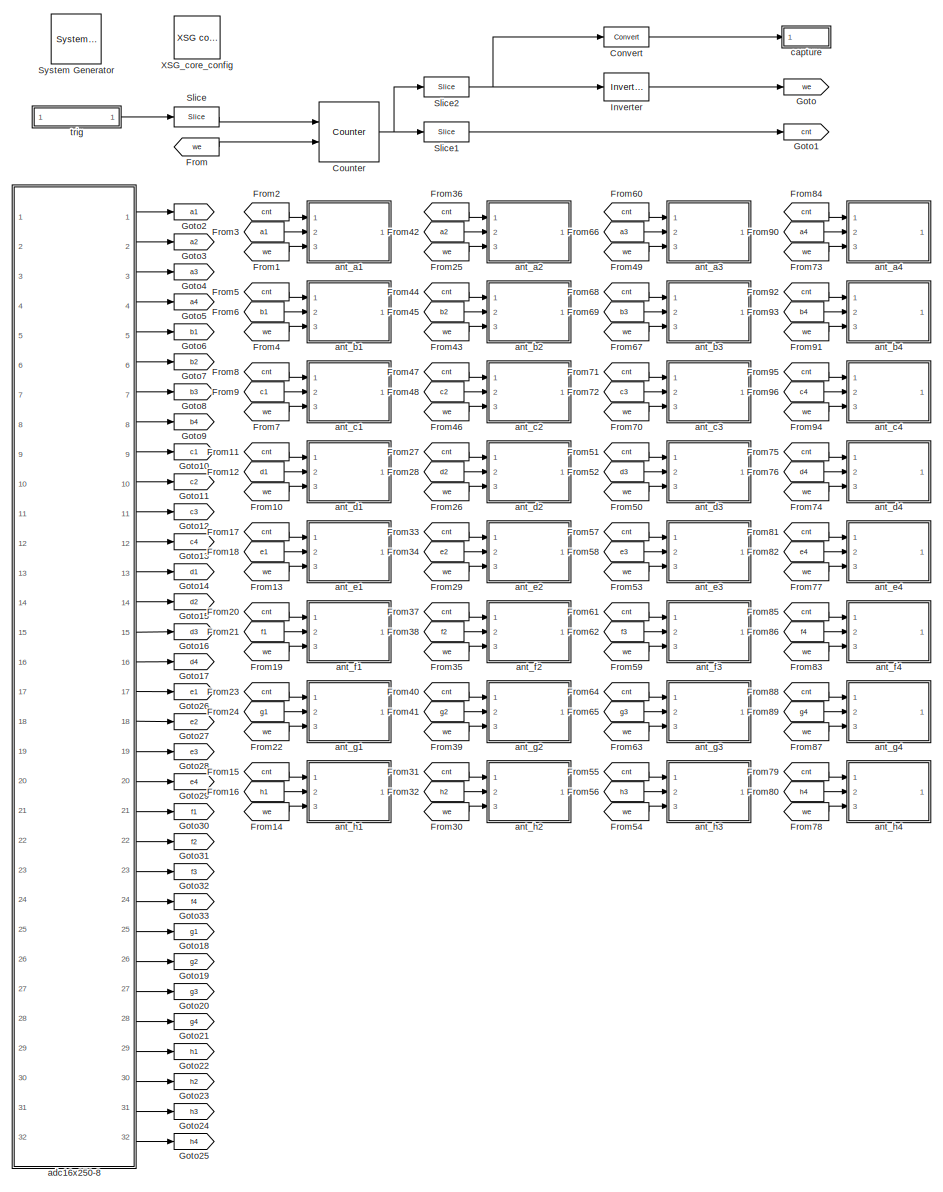
[diagram: root canvas - part 1/1, most of the canvas]
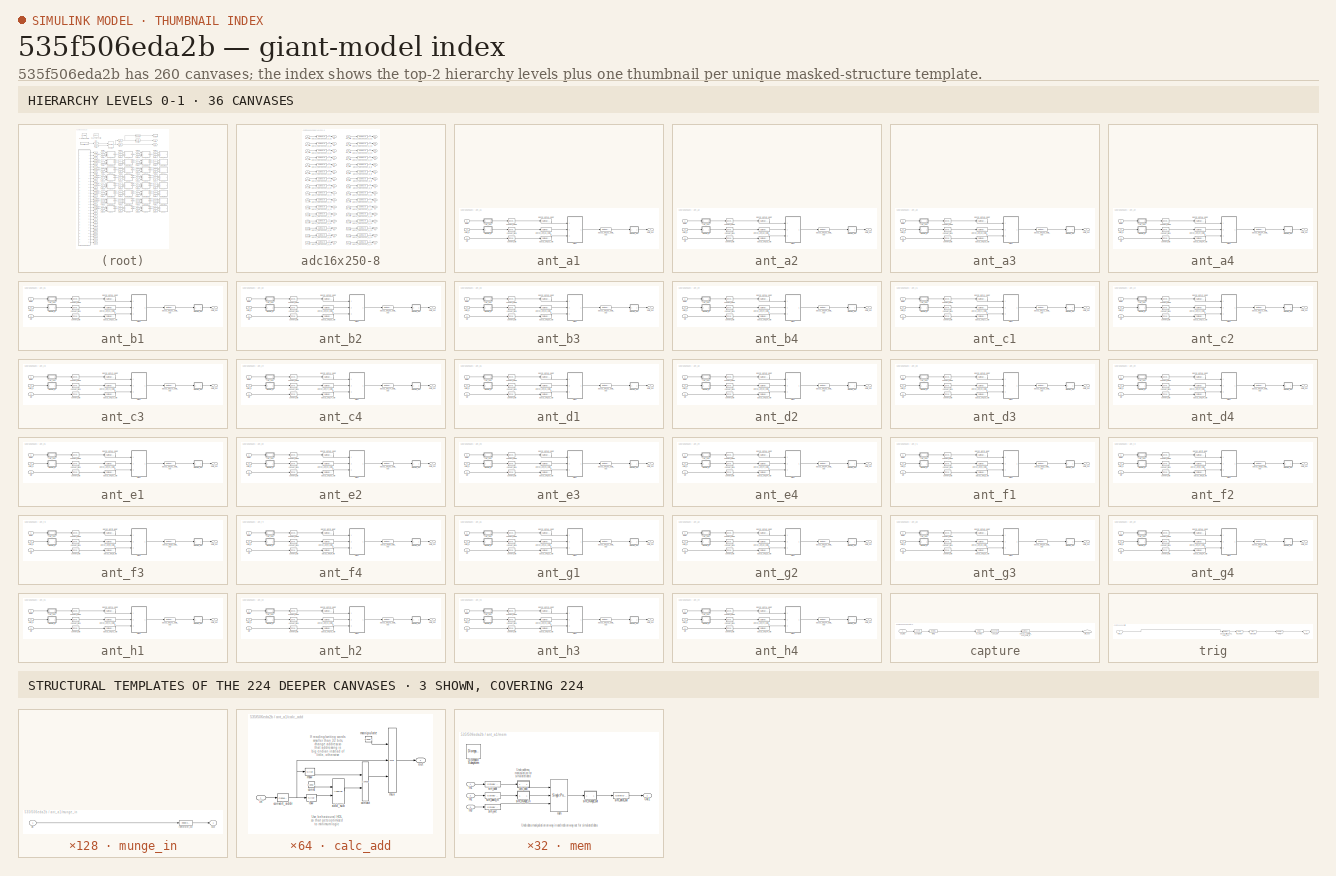
[diagram: thumbnail index - top-2 hierarchy levels (36 canvases) + 3 structural-template representatives of the remaining 224 canvases]
MODEL slx_535f506eda2b
KIND model
BLOCK [Reference]  System Generator  REF=xbsIndex_r4/ System Generator
  AttributesFormatString = System\nGenerator
  Impl_file = ISE Defaults
  Ports = []
  SourceBlock = xbsIndex_r4/ System Generator
  SourceType = Xilinx System Generator Block
  Synth_file = XST Defaults
  Tag = genX
  UserDataPersistent = on
  block_type = sysgen
  clock_wrapper = Clock Enables
  core_generation = According to Block Masks
  dbl_ovrd = According to Block Masks
  dcm_input_clock_period = 100
  deprecated_control = off
  directory = ./adc32/sysgen
  eval_field = 0
  has_advanced_control = 0
  incr_netlist = off
  infoedit = System Generator
  package = ff1759
  part = xc6vsx475t
  proj_type = Project Navigator
  run_coregen = off
  sg_icon_stat = 50,50,0,0,token,white,0,58c5b5770fe5f7c311f53dbc6e73f0f6,right,,[ ],[ ]
  sg_mask_display = fprintf('','COMMENT: begin icon graphics');\npatch([0 50 50 0 0 ],[0 0 50 50 0 ],[1 1 1 ]);\npatch([1.6375 16.81 27.31 37.81 48.31 27.31 12.1375 1.6375 ],[36.655 36.655 47.155 36.655 47.155 47.155 47.155 36.655 ],[0.933333 0.203922 0.141176 ]);\npatch([12.1375 27.31 16.81 1.6375 12.1375 ],[26.155 26.155 36.655 36.655 26.155 ],[0.698039 0.0313725 0.219608 ]);\npatch([1.6375 16.81 27.31 12.1375 1.6375 ]...<+327ch>
  sggui_pos = 339,221,464,465
  simulink_period = 1
  speed = -1
  synthesis_tool = XST
  sysclk_period = 5
  testbench = off
  trim_vbits = Everywhere in SubSystem
  xilinxfamily = virtex6
BLOCK [Reference] Convert  REF=xbsIndex_r4/Convert
  Ports = [1, 1]
  SourceBlock = xbsIndex_r4/Convert
  SourceType = Xilinx Type Converter Block
  arith_type = Unsigned
  bin_pt = 0
  block_type = convert
  dbl_ovrd = off
  en = off
  exp_bits = 8
  float_type = Single
  fraction_bits = 24
  gui_display_data_type = Fixed-point
  has_advanced_control = 0
  infoedit = Hardware notes: rounding and saturating require hardware resources; truncating and wrapping do not.
  latency = 0
  n_bits = 32
  overflow = Wrap
  pipeline = off
  quantization = Truncate
  sg_icon_stat = 45,20,1,1,white,blue,0,edca21da,right,,[ ],[ ]
  sg_mask_display = fprintf('','COMMENT: begin icon graphics');\npatch([0 45 45 0 0 ],[0 0 20 20 0 ],[0.77 0.82 0.91 ]);\nplot([0 45 45 0 0 ],[0 0 20 20 0 ]);\npatch([17.55 20.44 22.44 24.44 26.44 22.44 19.55 17.55 ],[12.22 12.22 14.22 12.22 14.22 14.22 14.22 12.22 ],[1 1 1 ]);\npatch([19.55 22.44 20.44 17.55 19.55 ],[10.22 10.22 12.22 12.22 10.22 ],[0.931 0.946 0.973 ]);\npatch([17.55 20.44 22.44 19.55 17.55 ],[8.22 8.22...<+309ch>
  sggui_pos = 20,20,677,759
  xl_area = [0,0,0,0,0,0,0]
  xl_use_area = off
BLOCK [Reference] Counter  REF=xbsIndex_r4/Counter
  Ports = [2, 1]
  SourceBlock = xbsIndex_r4/Counter
  SourceType = Xilinx Counter Block
  arith_type = Unsigned
  bin_pt = 0
  block_type = counter
  cnt_by_val = 1
  cnt_to = Inf
  cnt_type = Free Running
  dbl_ovrd = off
  en = on
  explicit_period = on
  has_advanced_control = 0
  implementation = Fabric
  infoedit = Hardware notes: Free running counters are the least expensive in hardware.  A count limited counter is implemented by combining a counter with a comparator.
  load_pin = off
  n_bits = 12
  operation = Up
  period = 1
  rst = on
  sg_icon_stat = 60,60,2,1,white,blue,0,ae3608d6,right,,[ ],[ ]
  sg_mask_display = fprintf('','COMMENT: begin icon graphics');\npatch([0 60 60 0 0 ],[0 0 60 60 0 ],[0.77 0.82 0.91 ]);\nplot([0 60 60 0 0 ],[0 0 60 60 0 ]);\npatch([12.2 23.76 31.76 39.76 47.76 31.76 20.2 12.2 ],[38.88 38.88 46.88 38.88 46.88 46.88 46.88 38.88 ],[1 1 1 ]);\npatch([20.2 31.76 23.76 12.2 20.2 ],[30.88 30.88 38.88 38.88 30.88 ],[0.931 0.946 0.973 ]);\npatch([12.2 23.76 31.76 20.2 12.2 ],[22.88 22.88 30.88 ...<+408ch>
  sggui_pos = 20,20,559,887
  start_count = 0
  use_behavioral_HDL = off
  xl_area = [0,0,0,0,0,0,0]
  xl_use_area = off
BLOCK [From] From
  GotoTag = we
BLOCK [From] From1
  GotoTag = we
BLOCK [From] From10
  GotoTag = we
BLOCK [From] From11
  GotoTag = cnt
BLOCK [From] From12
  GotoTag = d1
BLOCK [From] From13
  GotoTag = we
BLOCK [From] From14
  GotoTag = we
BLOCK [From] From15
  GotoTag = cnt
BLOCK [From] From16
  GotoTag = h1
BLOCK [From] From17
  GotoTag = cnt
BLOCK [From] From18
  GotoTag = e1
BLOCK [From] From19
  GotoTag = we
BLOCK [From] From2
  GotoTag = cnt
BLOCK [From] From20
  GotoTag = cnt
BLOCK [From] From21
  GotoTag = f1
BLOCK [From] From22
  GotoTag = we
BLOCK [From] From23
  GotoTag = cnt
BLOCK [From] From24
  GotoTag = g1
BLOCK [From] From25
  GotoTag = we
BLOCK [From] From26
  GotoTag = we
BLOCK [From] From27
  GotoTag = cnt
BLOCK [From] From28
  GotoTag = d2
BLOCK [From] From29
  GotoTag = we
BLOCK [From] From3
  GotoTag = a1
BLOCK [From] From30
  GotoTag = we
BLOCK [From] From31
  GotoTag = cnt
BLOCK [From] From32
  GotoTag = h2
BLOCK [From] From33
  GotoTag = cnt
BLOCK [From] From34
  GotoTag = e2
BLOCK [From] From35
  GotoTag = we
BLOCK [From] From36
  GotoTag = cnt
BLOCK [From] From37
  GotoTag = cnt
BLOCK [From] From38
  GotoTag = f2
BLOCK [From] From39
  GotoTag = we
BLOCK [From] From4
  GotoTag = we
BLOCK [From] From40
  GotoTag = cnt
BLOCK [From] From41
  GotoTag = g2
BLOCK [From] From42
  GotoTag = a2
BLOCK [From] From43
  GotoTag = we
BLOCK [From] From44
  GotoTag = cnt
BLOCK [From] From45
  GotoTag = b2
BLOCK [From] From46
  GotoTag = we
BLOCK [From] From47
  GotoTag = cnt
BLOCK [From] From48
  GotoTag = c2
BLOCK [From] From49
  GotoTag = we
BLOCK [From] From5
  GotoTag = cnt
BLOCK [From] From50
  GotoTag = we
BLOCK [From] From51
  GotoTag = cnt
BLOCK [From] From52
  GotoTag = d3
BLOCK [From] From53
  GotoTag = we
BLOCK [From] From54
  GotoTag = we
BLOCK [From] From55
  GotoTag = cnt
BLOCK [From] From56
  GotoTag = h3
BLOCK [From] From57
  GotoTag = cnt
BLOCK [From] From58
  GotoTag = e3
BLOCK [From] From59
  GotoTag = we
BLOCK [From] From6
  GotoTag = b1
BLOCK [From] From60
  GotoTag = cnt
BLOCK [From] From61
  GotoTag = cnt
BLOCK [From] From62
  GotoTag = f3
BLOCK [From] From63
  GotoTag = we
BLOCK [From] From64
  GotoTag = cnt
BLOCK [From] From65
  GotoTag = g3
BLOCK [From] From66
  GotoTag = a3
BLOCK [From] From67
  GotoTag = we
BLOCK [From] From68
  GotoTag = cnt
BLOCK [From] From69
  GotoTag = b3
BLOCK [From] From7
  GotoTag = we
BLOCK [From] From70
  GotoTag = we
BLOCK [From] From71
  GotoTag = cnt
BLOCK [From] From72
  GotoTag = c3
BLOCK [From] From73
  GotoTag = we
BLOCK [From] From74
  GotoTag = we
BLOCK [From] From75
  GotoTag = cnt
BLOCK [From] From76
  GotoTag = d4
BLOCK [From] From77
  GotoTag = we
BLOCK [From] From78
  GotoTag = we
BLOCK [From] From79
  GotoTag = cnt
BLOCK [From] From8
  GotoTag = cnt
BLOCK [From] From80
  GotoTag = h4
BLOCK [From] From81
  GotoTag = cnt
BLOCK [From] From82
  GotoTag = e4
BLOCK [From] From83
  GotoTag = we
BLOCK [From] From84
  GotoTag = cnt
BLOCK [From] From85
  GotoTag = cnt
BLOCK [From] From86
  GotoTag = f4
BLOCK [From] From87
  GotoTag = we
BLOCK [From] From88
  GotoTag = cnt
BLOCK [From] From89
  GotoTag = g4
BLOCK [From] From9
  GotoTag = c1
BLOCK [From] From90
  GotoTag = a4
BLOCK [From] From91
  GotoTag = we
BLOCK [From] From92
  GotoTag = cnt
BLOCK [From] From93
  GotoTag = b4
BLOCK [From] From94
  GotoTag = we
BLOCK [From] From95
  GotoTag = cnt
BLOCK [From] From96
  GotoTag = c4
BLOCK [Goto] Goto
  GotoTag = we
BLOCK [Goto] Goto1
  GotoTag = cnt
BLOCK [Goto] Goto10
  GotoTag = c1
BLOCK [Goto] Goto11
  GotoTag = c2
BLOCK [Goto] Goto12
  GotoTag = c3
BLOCK [Goto] Goto13
  GotoTag = c4
BLOCK [Goto] Goto14
  GotoTag = d1
BLOCK [Goto] Goto15
  GotoTag = d2
BLOCK [Goto] Goto16
  GotoTag = d3
BLOCK [Goto] Goto17
  GotoTag = d4
BLOCK [Goto] Goto18
  GotoTag = g1
BLOCK [Goto] Goto19
  GotoTag = g2
BLOCK [Goto] Goto2
  GotoTag = a1
BLOCK [Goto] Goto20
  GotoTag = g3
BLOCK [Goto] Goto21
  GotoTag = g4
BLOCK [Goto] Goto22
  GotoTag = h1
BLOCK [Goto] Goto23
  GotoTag = h2
BLOCK [Goto] Goto24
  GotoTag = h3
BLOCK [Goto] Goto25
  GotoTag = h4
BLOCK [Goto] Goto26
  GotoTag = e1
BLOCK [Goto] Goto27
  GotoTag = e2
BLOCK [Goto] Goto28
  GotoTag = e3
BLOCK [Goto] Goto29
  GotoTag = e4
BLOCK [Goto] Goto3
  GotoTag = a2
BLOCK [Goto] Goto30
  GotoTag = f1
BLOCK [Goto] Goto31
  GotoTag = f2
BLOCK [Goto] Goto32
  GotoTag = f3
BLOCK [Goto] Goto33
  GotoTag = f4
BLOCK [Goto] Goto4
  GotoTag = a3
BLOCK [Goto] Goto5
  GotoTag = a4
BLOCK [Goto] Goto6
  GotoTag = b1
BLOCK [Goto] Goto7
  GotoTag = b2
BLOCK [Goto] Goto8
  GotoTag = b3
BLOCK [Goto] Goto9
  GotoTag = b4
BLOCK [Reference] Inverter  REF=xbsIndex_r4/Inverter
  Ports = [1, 1]
  SourceBlock = xbsIndex_r4/Inverter
  SourceType = Xilinx Inverter Block
  block_type = inv
  dbl_ovrd = off
  en = off
  has_advanced_control = 0
  infoedit = Bitwise logical negation (one's complement) operator.
  latency = 0
  sg_icon_stat = 45,28,1,1,white,blue,0,267846e5,right,,[ ],[ ]
  sg_mask_display = fprintf('','COMMENT: begin icon graphics');\npatch([0 45 45 0 0 ],[0 0 28 28 0 ],[0.77 0.82 0.91 ]);\nplot([0 45 45 0 0 ],[0 0 28 28 0 ]);\npatch([13.1 18.88 22.88 26.88 30.88 22.88 17.1 13.1 ],[18.44 18.44 22.44 18.44 22.44 22.44 22.44 18.44 ],[1 1 1 ]);\npatch([17.1 22.88 18.88 13.1 17.1 ],[14.44 14.44 18.44 18.44 14.44 ],[0.931 0.946 0.973 ]);\npatch([13.1 18.88 22.88 17.1 13.1 ],[10.44 10.44 14.44 ...<+286ch>
  sggui_pos = -1,-1,-1,-1
  xl_area = [0,0,0,0,0,0,0]
  xl_use_area = off
BLOCK [Reference] Slice  REF=xbsIndex_r4/Slice
  Ports = [1, 1]
  SourceBlock = xbsIndex_r4/Slice
  SourceType = Xilinx Bit Slice Extractor Block
  base0 = LSB of Input
  base1 = MSB of Input
  bit0 = 0
  bit1 = 0
  block_type = slice
  boolean_output = on
  dbl_ovrd = off
  has_advanced_control = 0
  infoedit = Extracts a given range of bits from each input sample and presents it at the output.  The output type is ordinarily unsigned with binary point at zero, but can be Boolean when the slice is one bit wide.<br><br>Hardware notes: In hardware this block costs nothing.  <repeated x132 — deduplicated; at blocks: Slice, Slice1, Slice2, lsw, msw, slice_reg>
  mode = Lower Bit Location + Width
  nbits = 1
  sg_icon_stat = 45,20,1,1,white,blue,0,1fd851a7,right,,[ ],[ ]
  sg_mask_display = fprintf('','COMMENT: begin icon graphics');\npatch([0 45 45 0 0 ],[0 0 20 20 0 ],[0.77 0.82 0.91 ]);\nplot([0 45 45 0 0 ],[0 0 20 20 0 ]);\npatch([17.55 20.44 22.44 24.44 26.44 22.44 19.55 17.55 ],[12.22 12.22 14.22 12.22 14.22 14.22 14.22 12.22 ],[1 1 1 ]);\npatch([19.55 22.44 20.44 17.55 19.55 ],[10.22 10.22 12.22 12.22 10.22 ],[0.931 0.946 0.973 ]);\npatch([17.55 20.44 22.44 19.55 17.55 ],[8.22 8.22...<+310ch>  <repeated x3 — deduplicated; at blocks: Slice, Slice1, Slice2>
  sggui_pos = -1,-1,-1,-1
BLOCK [Reference] Slice1  REF=xbsIndex_r4/Slice
  Ports = [1, 1]
  SourceBlock = xbsIndex_r4/Slice
  SourceType = Xilinx Bit Slice Extractor Block
  base0 = LSB of Input
  base1 = MSB of Input
  bit0 = 0
  bit1 = 0
  block_type = slice
  boolean_output = off
  dbl_ovrd = off
  has_advanced_control = 0
  mode = Lower Bit Location + Width
  nbits = 11
  sg_icon_stat = 45,20,1,1,white,blue,0,1fd851a7,right,,[ ],[ ]
  sggui_pos = 20,20,704,582
BLOCK [Reference] Slice2  REF=xbsIndex_r4/Slice
  Ports = [1, 1]
  SourceBlock = xbsIndex_r4/Slice
  SourceType = Xilinx Bit Slice Extractor Block
  base0 = LSB of Input
  base1 = MSB of Input
  bit0 = 0
  bit1 = 0
  block_type = slice
  boolean_output = on
  dbl_ovrd = off
  has_advanced_control = 0
  mode = Upper Bit Location + Width
  nbits = 1
  sg_icon_stat = 45,20,1,1,white,blue,0,1fd851a7,right,,[ ],[ ]
  sggui_pos = 20,20,704,582
BLOCK [Reference] XSG_core_config  REF=xps_library/XSG core config  (lib defined in mdl_00b5cec29cd0, mdl_02ab6ecaa3d1, +5 more)
  MKDIG_clk_src = sys_clk
  Ports = []
  ROACH2_clk_src = adc0_clk
  ROACH_clk_src = adc0_clk
  SourceBlock = xps_library/XSG core config
  SourceType = xsg core config
  Tag = xps:xsg
  clk_rate = 200
  clk_src = adc0_clk
  hw_sys = ROACH2:sx475t
  sample_period = 1
  synthesis_tool = XST
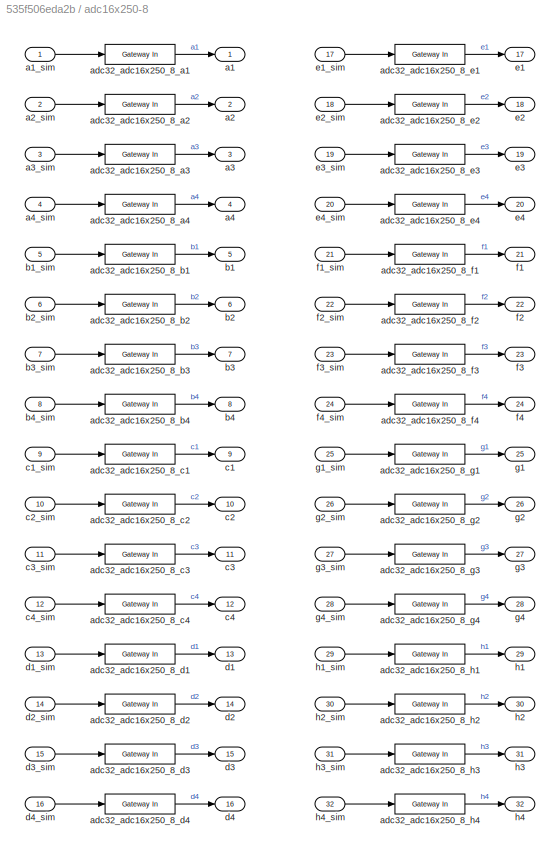
BLOCK [SubSystem] adc16x250-8
  AncestorBlock = xps_library/ADCs/adc16x250-8
  AttributesFormatString = r2 rev%<roach2_rev>\nzdok rev%<zdok_rev>
  FunctionWithSeparateData = off
  MaskHideContents = off
  MinAlgLoopOccurrences = off
  Opaque = off
  Ports = [32, 32]
  PropExecContextOutsideSubsystem = off
  RTWSystemCode = Auto
  RequestExecContextInheritance = off
  Tag = xps:adc16
  UserDataPersistent = on
BLOCK [Outport] adc16x250-8/a1
  IconDisplay = Port number
BLOCK [Inport] adc16x250-8/a1_sim
  IconDisplay = Port number
BLOCK [Outport] adc16x250-8/a2
  IconDisplay = Port number
  Port = 2
BLOCK [Inport] adc16x250-8/a2_sim
  IconDisplay = Port number
  Port = 2
BLOCK [Outport] adc16x250-8/a3
  IconDisplay = Port number
  Port = 3
BLOCK [Inport] adc16x250-8/a3_sim
  IconDisplay = Port number
  Port = 3
BLOCK [Outport] adc16x250-8/a4
  IconDisplay = Port number
  Port = 4
BLOCK [Inport] adc16x250-8/a4_sim
  IconDisplay = Port number
  Port = 4
BLOCK [Reference] adc16x250-8/adc32_adc16x250_8_a1  REF=xbsIndex_r4/Gateway In
  ADCChannel = '1'
  LOCs = {}
  Ports = [1, 1]
  SourceBlock = xbsIndex_r4/Gateway In
  SourceType = Xilinx Gateway In Block
  UseAsADC = off
  arith_type = Signed  (2's comp)
  bin_pt = 7
  block_type = gatewayin
  dbl_ovrd = off
  exp_width = 8
  frac_width = 24
  gui_display_data_type = Fixed-point
  has_advanced_control = 0
  hdl_port = on
  infoedit = Gateway in block.  Converts inputs of type Simulink integer, single, double and fixed-point to  Xilinx fixed-point or floating-point data type.<br><br>Hardware notes:  In hardware these blocks become top level input ports.  <repeated x97 — deduplicated; at blocks: adc32_adc16x250_8_a1, adc32_adc16x250_8_a2, adc32_adc16x250_8_a3, adc32_adc16x250_8_a4, adc32_adc16x250_8_b1, adc32_adc16x250_8_b2, adc32_adc16x250_8_b3, adc32_adc16x250_8_b4, adc32_adc16x250_8_c1, adc32_adc16x250_8_c2, adc32_adc16x250_8_c3, adc32_adc16x250_8_c4, adc32_adc16x250_8_d1, adc32_adc16x250_8_d2, adc32_adc16x250_8_d3, adc32_adc16x250_8_d4, +50 more>
  inherit_from_input = off
  locs_specified = off
  n_bits = 8
  overflow = Saturate
  period = 1
  preci_type = Single
  quantization = Round  (unbiased: +/- Inf)
  sg_icon_stat = 70,20,1,1,white,yellow,1,00d3666e,right,,[ ],[ ]
  sg_mask_display = fprintf('','COMMENT: begin icon graphics');\npatch([0 70 70 0 0 ],[0 0 20 20 0 ],[0.95 0.93 0.65 ]);\nplot([0 70 70 0 0 ],[0 0 20 20 0 ]);\npatch([30.55 33.44 35.44 37.44 39.44 35.44 32.55 30.55 ],[12.22 12.22 14.22 12.22 14.22 14.22 14.22 12.22 ],[1 1 1 ]);\npatch([32.55 35.44 33.44 30.55 32.55 ],[10.22 10.22 12.22 12.22 10.22 ],[0.985 0.979 0.895 ]);\npatch([30.55 33.44 35.44 32.55 30.55 ],[8.22 8.22...<+383ch>  <repeated x32 — deduplicated; at blocks: adc32_adc16x250_8_a1, adc32_adc16x250_8_a2, adc32_adc16x250_8_a3, adc32_adc16x250_8_a4, adc32_adc16x250_8_b1, adc32_adc16x250_8_b2, adc32_adc16x250_8_b3, adc32_adc16x250_8_b4, adc32_adc16x250_8_c1, adc32_adc16x250_8_c2, adc32_adc16x250_8_c3, adc32_adc16x250_8_c4, adc32_adc16x250_8_d1, adc32_adc16x250_8_d2, adc32_adc16x250_8_d3, adc32_adc16x250_8_d4, +16 more>
  sggui_pos = -1,-1,-1,-1
  timing_constraint = None
  xl_area = [0,0,0,0,0,0,0]
  xl_use_area = off
BLOCK [Reference] adc16x250-8/adc32_adc16x250_8_a2  REF=xbsIndex_r4/Gateway In
  ADCChannel = '1'
  LOCs = {}
  Ports = [1, 1]
  SourceBlock = xbsIndex_r4/Gateway In
  SourceType = Xilinx Gateway In Block
  UseAsADC = off
  arith_type = Signed  (2's comp)
  bin_pt = 7
  block_type = gatewayin
  dbl_ovrd = off
  exp_width = 8
  frac_width = 24
  gui_display_data_type = Fixed-point
  has_advanced_control = 0
  hdl_port = on
  inherit_from_input = off
  locs_specified = off
  n_bits = 8
  overflow = Saturate
  period = 1
  preci_type = Single
  quantization = Round  (unbiased: +/- Inf)
  sg_icon_stat = 70,20,1,1,white,yellow,1,00d3666e,right,,[ ],[ ]
  sggui_pos = -1,-1,-1,-1
  timing_constraint = None
  xl_area = [0,0,0,0,0,0,0]
  xl_use_area = off
BLOCK [Reference] adc16x250-8/adc32_adc16x250_8_a3  REF=xbsIndex_r4/Gateway In
  ADCChannel = '1'
  LOCs = {}
  Ports = [1, 1]
  SourceBlock = xbsIndex_r4/Gateway In
  SourceType = Xilinx Gateway In Block
  UseAsADC = off
  arith_type = Signed  (2's comp)
  bin_pt = 7
  block_type = gatewayin
  dbl_ovrd = off
  exp_width = 8
  frac_width = 24
  gui_display_data_type = Fixed-point
  has_advanced_control = 0
  hdl_port = on
  inherit_from_input = off
  locs_specified = off
  n_bits = 8
  overflow = Saturate
  period = 1
  preci_type = Single
  quantization = Round  (unbiased: +/- Inf)
  sg_icon_stat = 70,20,1,1,white,yellow,1,00d3666e,right,,[ ],[ ]
  sggui_pos = -1,-1,-1,-1
  timing_constraint = None
  xl_area = [0,0,0,0,0,0,0]
  xl_use_area = off
BLOCK [Reference] adc16x250-8/adc32_adc16x250_8_a4  REF=xbsIndex_r4/Gateway In
  ADCChannel = '1'
  LOCs = {}
  Ports = [1, 1]
  SourceBlock = xbsIndex_r4/Gateway In
  SourceType = Xilinx Gateway In Block
  UseAsADC = off
  arith_type = Signed  (2's comp)
  bin_pt = 7
  block_type = gatewayin
  dbl_ovrd = off
  exp_width = 8
  frac_width = 24
  gui_display_data_type = Fixed-point
  has_advanced_control = 0
  hdl_port = on
  inherit_from_input = off
  locs_specified = off
  n_bits = 8
  overflow = Saturate
  period = 1
  preci_type = Single
  quantization = Round  (unbiased: +/- Inf)
  sg_icon_stat = 70,20,1,1,white,yellow,1,00d3666e,right,,[ ],[ ]
  sggui_pos = -1,-1,-1,-1
  timing_constraint = None
  xl_area = [0,0,0,0,0,0,0]
  xl_use_area = off
BLOCK [Reference] adc16x250-8/adc32_adc16x250_8_b1  REF=xbsIndex_r4/Gateway In
  ADCChannel = '1'
  LOCs = {}
  Ports = [1, 1]
  SourceBlock = xbsIndex_r4/Gateway In
  SourceType = Xilinx Gateway In Block
  UseAsADC = off
  arith_type = Signed  (2's comp)
  bin_pt = 7
  block_type = gatewayin
  dbl_ovrd = off
  exp_width = 8
  frac_width = 24
  gui_display_data_type = Fixed-point
  has_advanced_control = 0
  hdl_port = on
  inherit_from_input = off
  locs_specified = off
  n_bits = 8
  overflow = Saturate
  period = 1
  preci_type = Single
  quantization = Round  (unbiased: +/- Inf)
  sg_icon_stat = 70,20,1,1,white,yellow,1,00d3666e,right,,[ ],[ ]
  sggui_pos = -1,-1,-1,-1
  timing_constraint = None
  xl_area = [0,0,0,0,0,0,0]
  xl_use_area = off
BLOCK [Reference] adc16x250-8/adc32_adc16x250_8_b2  REF=xbsIndex_r4/Gateway In
  ADCChannel = '1'
  LOCs = {}
  Ports = [1, 1]
  SourceBlock = xbsIndex_r4/Gateway In
  SourceType = Xilinx Gateway In Block
  UseAsADC = off
  arith_type = Signed  (2's comp)
  bin_pt = 7
  block_type = gatewayin
  dbl_ovrd = off
  exp_width = 8
  frac_width = 24
  gui_display_data_type = Fixed-point
  has_advanced_control = 0
  hdl_port = on
  inherit_from_input = off
  locs_specified = off
  n_bits = 8
  overflow = Saturate
  period = 1
  preci_type = Single
  quantization = Round  (unbiased: +/- Inf)
  sg_icon_stat = 70,20,1,1,white,yellow,1,00d3666e,right,,[ ],[ ]
  sggui_pos = -1,-1,-1,-1
  timing_constraint = None
  xl_area = [0,0,0,0,0,0,0]
  xl_use_area = off
BLOCK [Reference] adc16x250-8/adc32_adc16x250_8_b3  REF=xbsIndex_r4/Gateway In
  ADCChannel = '1'
  LOCs = {}
  Ports = [1, 1]
  SourceBlock = xbsIndex_r4/Gateway In
  SourceType = Xilinx Gateway In Block
  UseAsADC = off
  arith_type = Signed  (2's comp)
  bin_pt = 7
  block_type = gatewayin
  dbl_ovrd = off
  exp_width = 8
  frac_width = 24
  gui_display_data_type = Fixed-point
  has_advanced_control = 0
  hdl_port = on
  inherit_from_input = off
  locs_specified = off
  n_bits = 8
  overflow = Saturate
  period = 1
  preci_type = Single
  quantization = Round  (unbiased: +/- Inf)
  sg_icon_stat = 70,20,1,1,white,yellow,1,00d3666e,right,,[ ],[ ]
  sggui_pos = -1,-1,-1,-1
  timing_constraint = None
  xl_area = [0,0,0,0,0,0,0]
  xl_use_area = off
BLOCK [Reference] adc16x250-8/adc32_adc16x250_8_b4  REF=xbsIndex_r4/Gateway In
  ADCChannel = '1'
  LOCs = {}
  Ports = [1, 1]
  SourceBlock = xbsIndex_r4/Gateway In
  SourceType = Xilinx Gateway In Block
  UseAsADC = off
  arith_type = Signed  (2's comp)
  bin_pt = 7
  block_type = gatewayin
  dbl_ovrd = off
  exp_width = 8
  frac_width = 24
  gui_display_data_type = Fixed-point
  has_advanced_control = 0
  hdl_port = on
  inherit_from_input = off
  locs_specified = off
  n_bits = 8
  overflow = Saturate
  period = 1
  preci_type = Single
  quantization = Round  (unbiased: +/- Inf)
  sg_icon_stat = 70,20,1,1,white,yellow,1,00d3666e,right,,[ ],[ ]
  sggui_pos = -1,-1,-1,-1
  timing_constraint = None
  xl_area = [0,0,0,0,0,0,0]
  xl_use_area = off
BLOCK [Reference] adc16x250-8/adc32_adc16x250_8_c1  REF=xbsIndex_r4/Gateway In
  ADCChannel = '1'
  LOCs = {}
  Ports = [1, 1]
  SourceBlock = xbsIndex_r4/Gateway In
  SourceType = Xilinx Gateway In Block
  UseAsADC = off
  arith_type = Signed  (2's comp)
  bin_pt = 7
  block_type = gatewayin
  dbl_ovrd = off
  exp_width = 8
  frac_width = 24
  gui_display_data_type = Fixed-point
  has_advanced_control = 0
  hdl_port = on
  inherit_from_input = off
  locs_specified = off
  n_bits = 8
  overflow = Saturate
  period = 1
  preci_type = Single
  quantization = Round  (unbiased: +/- Inf)
  sg_icon_stat = 70,20,1,1,white,yellow,1,00d3666e,right,,[ ],[ ]
  sggui_pos = -1,-1,-1,-1
  timing_constraint = None
  xl_area = [0,0,0,0,0,0,0]
  xl_use_area = off
BLOCK [Reference] adc16x250-8/adc32_adc16x250_8_c2  REF=xbsIndex_r4/Gateway In
  ADCChannel = '1'
  LOCs = {}
  Ports = [1, 1]
  SourceBlock = xbsIndex_r4/Gateway In
  SourceType = Xilinx Gateway In Block
  UseAsADC = off
  arith_type = Signed  (2's comp)
  bin_pt = 7
  block_type = gatewayin
  dbl_ovrd = off
  exp_width = 8
  frac_width = 24
  gui_display_data_type = Fixed-point
  has_advanced_control = 0
  hdl_port = on
  inherit_from_input = off
  locs_specified = off
  n_bits = 8
  overflow = Saturate
  period = 1
  preci_type = Single
  quantization = Round  (unbiased: +/- Inf)
  sg_icon_stat = 70,20,1,1,white,yellow,1,00d3666e,right,,[ ],[ ]
  sggui_pos = -1,-1,-1,-1
  timing_constraint = None
  xl_area = [0,0,0,0,0,0,0]
  xl_use_area = off
BLOCK [Reference] adc16x250-8/adc32_adc16x250_8_c3  REF=xbsIndex_r4/Gateway In
  ADCChannel = '1'
  LOCs = {}
  Ports = [1, 1]
  SourceBlock = xbsIndex_r4/Gateway In
  SourceType = Xilinx Gateway In Block
  UseAsADC = off
  arith_type = Signed  (2's comp)
  bin_pt = 7
  block_type = gatewayin
  dbl_ovrd = off
  exp_width = 8
  frac_width = 24
  gui_display_data_type = Fixed-point
  has_advanced_control = 0
  hdl_port = on
  inherit_from_input = off
  locs_specified = off
  n_bits = 8
  overflow = Saturate
  period = 1
  preci_type = Single
  quantization = Round  (unbiased: +/- Inf)
  sg_icon_stat = 70,20,1,1,white,yellow,1,00d3666e,right,,[ ],[ ]
  sggui_pos = -1,-1,-1,-1
  timing_constraint = None
  xl_area = [0,0,0,0,0,0,0]
  xl_use_area = off
BLOCK [Reference] adc16x250-8/adc32_adc16x250_8_c4  REF=xbsIndex_r4/Gateway In
  ADCChannel = '1'
  LOCs = {}
  Ports = [1, 1]
  SourceBlock = xbsIndex_r4/Gateway In
  SourceType = Xilinx Gateway In Block
  UseAsADC = off
  arith_type = Signed  (2's comp)
  bin_pt = 7
  block_type = gatewayin
  dbl_ovrd = off
  exp_width = 8
  frac_width = 24
  gui_display_data_type = Fixed-point
  has_advanced_control = 0
  hdl_port = on
  inherit_from_input = off
  locs_specified = off
  n_bits = 8
  overflow = Saturate
  period = 1
  preci_type = Single
  quantization = Round  (unbiased: +/- Inf)
  sg_icon_stat = 70,20,1,1,white,yellow,1,00d3666e,right,,[ ],[ ]
  sggui_pos = -1,-1,-1,-1
  timing_constraint = None
  xl_area = [0,0,0,0,0,0,0]
  xl_use_area = off
BLOCK [Reference] adc16x250-8/adc32_adc16x250_8_d1  REF=xbsIndex_r4/Gateway In
  ADCChannel = '1'
  LOCs = {}
  Ports = [1, 1]
  SourceBlock = xbsIndex_r4/Gateway In
  SourceType = Xilinx Gateway In Block
  UseAsADC = off
  arith_type = Signed  (2's comp)
  bin_pt = 7
  block_type = gatewayin
  dbl_ovrd = off
  exp_width = 8
  frac_width = 24
  gui_display_data_type = Fixed-point
  has_advanced_control = 0
  hdl_port = on
  inherit_from_input = off
  locs_specified = off
  n_bits = 8
  overflow = Saturate
  period = 1
  preci_type = Single
  quantization = Round  (unbiased: +/- Inf)
  sg_icon_stat = 70,20,1,1,white,yellow,1,00d3666e,right,,[ ],[ ]
  sggui_pos = -1,-1,-1,-1
  timing_constraint = None
  xl_area = [0,0,0,0,0,0,0]
  xl_use_area = off
BLOCK [Reference] adc16x250-8/adc32_adc16x250_8_d2  REF=xbsIndex_r4/Gateway In
  ADCChannel = '1'
  LOCs = {}
  Ports = [1, 1]
  SourceBlock = xbsIndex_r4/Gateway In
  SourceType = Xilinx Gateway In Block
  UseAsADC = off
  arith_type = Signed  (2's comp)
  bin_pt = 7
  block_type = gatewayin
  dbl_ovrd = off
  exp_width = 8
  frac_width = 24
  gui_display_data_type = Fixed-point
  has_advanced_control = 0
  hdl_port = on
  inherit_from_input = off
  locs_specified = off
  n_bits = 8
  overflow = Saturate
  period = 1
  preci_type = Single
  quantization = Round  (unbiased: +/- Inf)
  sg_icon_stat = 70,20,1,1,white,yellow,1,00d3666e,right,,[ ],[ ]
  sggui_pos = -1,-1,-1,-1
  timing_constraint = None
  xl_area = [0,0,0,0,0,0,0]
  xl_use_area = off
BLOCK [Reference] adc16x250-8/adc32_adc16x250_8_d3  REF=xbsIndex_r4/Gateway In
  ADCChannel = '1'
  LOCs = {}
  Ports = [1, 1]
  SourceBlock = xbsIndex_r4/Gateway In
  SourceType = Xilinx Gateway In Block
  UseAsADC = off
  arith_type = Signed  (2's comp)
  bin_pt = 7
  block_type = gatewayin
  dbl_ovrd = off
  exp_width = 8
  frac_width = 24
  gui_display_data_type = Fixed-point
  has_advanced_control = 0
  hdl_port = on
  inherit_from_input = off
  locs_specified = off
  n_bits = 8
  overflow = Saturate
  period = 1
  preci_type = Single
  quantization = Round  (unbiased: +/- Inf)
  sg_icon_stat = 70,20,1,1,white,yellow,1,00d3666e,right,,[ ],[ ]
  sggui_pos = -1,-1,-1,-1
  timing_constraint = None
  xl_area = [0,0,0,0,0,0,0]
  xl_use_area = off
BLOCK [Reference] adc16x250-8/adc32_adc16x250_8_d4  REF=xbsIndex_r4/Gateway In
  ADCChannel = '1'
  LOCs = {}
  Ports = [1, 1]
  SourceBlock = xbsIndex_r4/Gateway In
  SourceType = Xilinx Gateway In Block
  UseAsADC = off
  arith_type = Signed  (2's comp)
  bin_pt = 7
  block_type = gatewayin
  dbl_ovrd = off
  exp_width = 8
  frac_width = 24
  gui_display_data_type = Fixed-point
  has_advanced_control = 0
  hdl_port = on
  inherit_from_input = off
  locs_specified = off
  n_bits = 8
  overflow = Saturate
  period = 1
  preci_type = Single
  quantization = Round  (unbiased: +/- Inf)
  sg_icon_stat = 70,20,1,1,white,yellow,1,00d3666e,right,,[ ],[ ]
  sggui_pos = -1,-1,-1,-1
  timing_constraint = None
  xl_area = [0,0,0,0,0,0,0]
  xl_use_area = off
BLOCK [Reference] adc16x250-8/adc32_adc16x250_8_e1  REF=xbsIndex_r4/Gateway In
  ADCChannel = '1'
  LOCs = {}
  Ports = [1, 1]
  SourceBlock = xbsIndex_r4/Gateway In
  SourceType = Xilinx Gateway In Block
  UseAsADC = off
  arith_type = Signed  (2's comp)
  bin_pt = 7
  block_type = gatewayin
  dbl_ovrd = off
  exp_width = 8
  frac_width = 24
  gui_display_data_type = Fixed-point
  has_advanced_control = 0
  hdl_port = on
  inherit_from_input = off
  locs_specified = off
  n_bits = 8
  overflow = Saturate
  period = 1
  preci_type = Single
  quantization = Round  (unbiased: +/- Inf)
  sg_icon_stat = 70,20,1,1,white,yellow,1,00d3666e,right,,[ ],[ ]
  sggui_pos = -1,-1,-1,-1
  timing_constraint = None
  xl_area = [0,0,0,0,0,0,0]
  xl_use_area = off
BLOCK [Reference] adc16x250-8/adc32_adc16x250_8_e2  REF=xbsIndex_r4/Gateway In
  ADCChannel = '1'
  LOCs = {}
  Ports = [1, 1]
  SourceBlock = xbsIndex_r4/Gateway In
  SourceType = Xilinx Gateway In Block
  UseAsADC = off
  arith_type = Signed  (2's comp)
  bin_pt = 7
  block_type = gatewayin
  dbl_ovrd = off
  exp_width = 8
  frac_width = 24
  gui_display_data_type = Fixed-point
  has_advanced_control = 0
  hdl_port = on
  inherit_from_input = off
  locs_specified = off
  n_bits = 8
  overflow = Saturate
  period = 1
  preci_type = Single
  quantization = Round  (unbiased: +/- Inf)
  sg_icon_stat = 70,20,1,1,white,yellow,1,00d3666e,right,,[ ],[ ]
  sggui_pos = -1,-1,-1,-1
  timing_constraint = None
  xl_area = [0,0,0,0,0,0,0]
  xl_use_area = off
BLOCK [Reference] adc16x250-8/adc32_adc16x250_8_e3  REF=xbsIndex_r4/Gateway In
  ADCChannel = '1'
  LOCs = {}
  Ports = [1, 1]
  SourceBlock = xbsIndex_r4/Gateway In
  SourceType = Xilinx Gateway In Block
  UseAsADC = off
  arith_type = Signed  (2's comp)
  bin_pt = 7
  block_type = gatewayin
  dbl_ovrd = off
  exp_width = 8
  frac_width = 24
  gui_display_data_type = Fixed-point
  has_advanced_control = 0
  hdl_port = on
  inherit_from_input = off
  locs_specified = off
  n_bits = 8
  overflow = Saturate
  period = 1
  preci_type = Single
  quantization = Round  (unbiased: +/- Inf)
  sg_icon_stat = 70,20,1,1,white,yellow,1,00d3666e,right,,[ ],[ ]
  sggui_pos = -1,-1,-1,-1
  timing_constraint = None
  xl_area = [0,0,0,0,0,0,0]
  xl_use_area = off
BLOCK [Reference] adc16x250-8/adc32_adc16x250_8_e4  REF=xbsIndex_r4/Gateway In
  ADCChannel = '1'
  LOCs = {}
  Ports = [1, 1]
  SourceBlock = xbsIndex_r4/Gateway In
  SourceType = Xilinx Gateway In Block
  UseAsADC = off
  arith_type = Signed  (2's comp)
  bin_pt = 7
  block_type = gatewayin
  dbl_ovrd = off
  exp_width = 8
  frac_width = 24
  gui_display_data_type = Fixed-point
  has_advanced_control = 0
  hdl_port = on
  inherit_from_input = off
  locs_specified = off
  n_bits = 8
  overflow = Saturate
  period = 1
  preci_type = Single
  quantization = Round  (unbiased: +/- Inf)
  sg_icon_stat = 70,20,1,1,white,yellow,1,00d3666e,right,,[ ],[ ]
  sggui_pos = -1,-1,-1,-1
  timing_constraint = None
  xl_area = [0,0,0,0,0,0,0]
  xl_use_area = off
BLOCK [Reference] adc16x250-8/adc32_adc16x250_8_f1  REF=xbsIndex_r4/Gateway In
  ADCChannel = '1'
  LOCs = {}
  Ports = [1, 1]
  SourceBlock = xbsIndex_r4/Gateway In
  SourceType = Xilinx Gateway In Block
  UseAsADC = off
  arith_type = Signed  (2's comp)
  bin_pt = 7
  block_type = gatewayin
  dbl_ovrd = off
  exp_width = 8
  frac_width = 24
  gui_display_data_type = Fixed-point
  has_advanced_control = 0
  hdl_port = on
  inherit_from_input = off
  locs_specified = off
  n_bits = 8
  overflow = Saturate
  period = 1
  preci_type = Single
  quantization = Round  (unbiased: +/- Inf)
  sg_icon_stat = 70,20,1,1,white,yellow,1,00d3666e,right,,[ ],[ ]
  sggui_pos = -1,-1,-1,-1
  timing_constraint = None
  xl_area = [0,0,0,0,0,0,0]
  xl_use_area = off
BLOCK [Reference] adc16x250-8/adc32_adc16x250_8_f2  REF=xbsIndex_r4/Gateway In
  ADCChannel = '1'
  LOCs = {}
  Ports = [1, 1]
  SourceBlock = xbsIndex_r4/Gateway In
  SourceType = Xilinx Gateway In Block
  UseAsADC = off
  arith_type = Signed  (2's comp)
  bin_pt = 7
  block_type = gatewayin
  dbl_ovrd = off
  exp_width = 8
  frac_width = 24
  gui_display_data_type = Fixed-point
  has_advanced_control = 0
  hdl_port = on
  inherit_from_input = off
  locs_specified = off
  n_bits = 8
  overflow = Saturate
  period = 1
  preci_type = Single
  quantization = Round  (unbiased: +/- Inf)
  sg_icon_stat = 70,20,1,1,white,yellow,1,00d3666e,right,,[ ],[ ]
  sggui_pos = -1,-1,-1,-1
  timing_constraint = None
  xl_area = [0,0,0,0,0,0,0]
  xl_use_area = off
BLOCK [Reference] adc16x250-8/adc32_adc16x250_8_f3  REF=xbsIndex_r4/Gateway In
  ADCChannel = '1'
  LOCs = {}
  Ports = [1, 1]
  SourceBlock = xbsIndex_r4/Gateway In
  SourceType = Xilinx Gateway In Block
  UseAsADC = off
  arith_type = Signed  (2's comp)
  bin_pt = 7
  block_type = gatewayin
  dbl_ovrd = off
  exp_width = 8
  frac_width = 24
  gui_display_data_type = Fixed-point
  has_advanced_control = 0
  hdl_port = on
  inherit_from_input = off
  locs_specified = off
  n_bits = 8
  overflow = Saturate
  period = 1
  preci_type = Single
  quantization = Round  (unbiased: +/- Inf)
  sg_icon_stat = 70,20,1,1,white,yellow,1,00d3666e,right,,[ ],[ ]
  sggui_pos = -1,-1,-1,-1
  timing_constraint = None
  xl_area = [0,0,0,0,0,0,0]
  xl_use_area = off
BLOCK [Reference] adc16x250-8/adc32_adc16x250_8_f4  REF=xbsIndex_r4/Gateway In
  ADCChannel = '1'
  LOCs = {}
  Ports = [1, 1]
  SourceBlock = xbsIndex_r4/Gateway In
  SourceType = Xilinx Gateway In Block
  UseAsADC = off
  arith_type = Signed  (2's comp)
  bin_pt = 7
  block_type = gatewayin
  dbl_ovrd = off
  exp_width = 8
  frac_width = 24
  gui_display_data_type = Fixed-point
  has_advanced_control = 0
  hdl_port = on
  inherit_from_input = off
  locs_specified = off
  n_bits = 8
  overflow = Saturate
  period = 1
  preci_type = Single
  quantization = Round  (unbiased: +/- Inf)
  sg_icon_stat = 70,20,1,1,white,yellow,1,00d3666e,right,,[ ],[ ]
  sggui_pos = -1,-1,-1,-1
  timing_constraint = None
  xl_area = [0,0,0,0,0,0,0]
  xl_use_area = off
BLOCK [Reference] adc16x250-8/adc32_adc16x250_8_g1  REF=xbsIndex_r4/Gateway In
  ADCChannel = '1'
  LOCs = {}
  Ports = [1, 1]
  SourceBlock = xbsIndex_r4/Gateway In
  SourceType = Xilinx Gateway In Block
  UseAsADC = off
  arith_type = Signed  (2's comp)
  bin_pt = 7
  block_type = gatewayin
  dbl_ovrd = off
  exp_width = 8
  frac_width = 24
  gui_display_data_type = Fixed-point
  has_advanced_control = 0
  hdl_port = on
  inherit_from_input = off
  locs_specified = off
  n_bits = 8
  overflow = Saturate
  period = 1
  preci_type = Single
  quantization = Round  (unbiased: +/- Inf)
  sg_icon_stat = 70,20,1,1,white,yellow,1,00d3666e,right,,[ ],[ ]
  sggui_pos = -1,-1,-1,-1
  timing_constraint = None
  xl_area = [0,0,0,0,0,0,0]
  xl_use_area = off
BLOCK [Reference] adc16x250-8/adc32_adc16x250_8_g2  REF=xbsIndex_r4/Gateway In
  ADCChannel = '1'
  LOCs = {}
  Ports = [1, 1]
  SourceBlock = xbsIndex_r4/Gateway In
  SourceType = Xilinx Gateway In Block
  UseAsADC = off
  arith_type = Signed  (2's comp)
  bin_pt = 7
  block_type = gatewayin
  dbl_ovrd = off
  exp_width = 8
  frac_width = 24
  gui_display_data_type = Fixed-point
  has_advanced_control = 0
  hdl_port = on
  inherit_from_input = off
  locs_specified = off
  n_bits = 8
  overflow = Saturate
  period = 1
  preci_type = Single
  quantization = Round  (unbiased: +/- Inf)
  sg_icon_stat = 70,20,1,1,white,yellow,1,00d3666e,right,,[ ],[ ]
  sggui_pos = -1,-1,-1,-1
  timing_constraint = None
  xl_area = [0,0,0,0,0,0,0]
  xl_use_area = off
BLOCK [Reference] adc16x250-8/adc32_adc16x250_8_g3  REF=xbsIndex_r4/Gateway In
  ADCChannel = '1'
  LOCs = {}
  Ports = [1, 1]
  SourceBlock = xbsIndex_r4/Gateway In
  SourceType = Xilinx Gateway In Block
  UseAsADC = off
  arith_type = Signed  (2's comp)
  bin_pt = 7
  block_type = gatewayin
  dbl_ovrd = off
  exp_width = 8
  frac_width = 24
  gui_display_data_type = Fixed-point
  has_advanced_control = 0
  hdl_port = on
  inherit_from_input = off
  locs_specified = off
  n_bits = 8
  overflow = Saturate
  period = 1
  preci_type = Single
  quantization = Round  (unbiased: +/- Inf)
  sg_icon_stat = 70,20,1,1,white,yellow,1,00d3666e,right,,[ ],[ ]
  sggui_pos = -1,-1,-1,-1
  timing_constraint = None
  xl_area = [0,0,0,0,0,0,0]
  xl_use_area = off
BLOCK [Reference] adc16x250-8/adc32_adc16x250_8_g4  REF=xbsIndex_r4/Gateway In
  ADCChannel = '1'
  LOCs = {}
  Ports = [1, 1]
  SourceBlock = xbsIndex_r4/Gateway In
  SourceType = Xilinx Gateway In Block
  UseAsADC = off
  arith_type = Signed  (2's comp)
  bin_pt = 7
  block_type = gatewayin
  dbl_ovrd = off
  exp_width = 8
  frac_width = 24
  gui_display_data_type = Fixed-point
  has_advanced_control = 0
  hdl_port = on
  inherit_from_input = off
  locs_specified = off
  n_bits = 8
  overflow = Saturate
  period = 1
  preci_type = Single
  quantization = Round  (unbiased: +/- Inf)
  sg_icon_stat = 70,20,1,1,white,yellow,1,00d3666e,right,,[ ],[ ]
  sggui_pos = -1,-1,-1,-1
  timing_constraint = None
  xl_area = [0,0,0,0,0,0,0]
  xl_use_area = off
BLOCK [Reference] adc16x250-8/adc32_adc16x250_8_h1  REF=xbsIndex_r4/Gateway In
  ADCChannel = '1'
  LOCs = {}
  Ports = [1, 1]
  SourceBlock = xbsIndex_r4/Gateway In
  SourceType = Xilinx Gateway In Block
  UseAsADC = off
  arith_type = Signed  (2's comp)
  bin_pt = 7
  block_type = gatewayin
  dbl_ovrd = off
  exp_width = 8
  frac_width = 24
  gui_display_data_type = Fixed-point
  has_advanced_control = 0
  hdl_port = on
  inherit_from_input = off
  locs_specified = off
  n_bits = 8
  overflow = Saturate
  period = 1
  preci_type = Single
  quantization = Round  (unbiased: +/- Inf)
  sg_icon_stat = 70,20,1,1,white,yellow,1,00d3666e,right,,[ ],[ ]
  sggui_pos = -1,-1,-1,-1
  timing_constraint = None
  xl_area = [0,0,0,0,0,0,0]
  xl_use_area = off
BLOCK [Reference] adc16x250-8/adc32_adc16x250_8_h2  REF=xbsIndex_r4/Gateway In
  ADCChannel = '1'
  LOCs = {}
  Ports = [1, 1]
  SourceBlock = xbsIndex_r4/Gateway In
  SourceType = Xilinx Gateway In Block
  UseAsADC = off
  arith_type = Signed  (2's comp)
  bin_pt = 7
  block_type = gatewayin
  dbl_ovrd = off
  exp_width = 8
  frac_width = 24
  gui_display_data_type = Fixed-point
  has_advanced_control = 0
  hdl_port = on
  inherit_from_input = off
  locs_specified = off
  n_bits = 8
  overflow = Saturate
  period = 1
  preci_type = Single
  quantization = Round  (unbiased: +/- Inf)
  sg_icon_stat = 70,20,1,1,white,yellow,1,00d3666e,right,,[ ],[ ]
  sggui_pos = -1,-1,-1,-1
  timing_constraint = None
  xl_area = [0,0,0,0,0,0,0]
  xl_use_area = off
BLOCK [Reference] adc16x250-8/adc32_adc16x250_8_h3  REF=xbsIndex_r4/Gateway In
  ADCChannel = '1'
  LOCs = {}
  Ports = [1, 1]
  SourceBlock = xbsIndex_r4/Gateway In
  SourceType = Xilinx Gateway In Block
  UseAsADC = off
  arith_type = Signed  (2's comp)
  bin_pt = 7
  block_type = gatewayin
  dbl_ovrd = off
  exp_width = 8
  frac_width = 24
  gui_display_data_type = Fixed-point
  has_advanced_control = 0
  hdl_port = on
  inherit_from_input = off
  locs_specified = off
  n_bits = 8
  overflow = Saturate
  period = 1
  preci_type = Single
  quantization = Round  (unbiased: +/- Inf)
  sg_icon_stat = 70,20,1,1,white,yellow,1,00d3666e,right,,[ ],[ ]
  sggui_pos = -1,-1,-1,-1
  timing_constraint = None
  xl_area = [0,0,0,0,0,0,0]
  xl_use_area = off
BLOCK [Reference] adc16x250-8/adc32_adc16x250_8_h4  REF=xbsIndex_r4/Gateway In
  ADCChannel = '1'
  LOCs = {}
  Ports = [1, 1]
  SourceBlock = xbsIndex_r4/Gateway In
  SourceType = Xilinx Gateway In Block
  UseAsADC = off
  arith_type = Signed  (2's comp)
  bin_pt = 7
  block_type = gatewayin
  dbl_ovrd = off
  exp_width = 8
  frac_width = 24
  gui_display_data_type = Fixed-point
  has_advanced_control = 0
  hdl_port = on
  inherit_from_input = off
  locs_specified = off
  n_bits = 8
  overflow = Saturate
  period = 1
  preci_type = Single
  quantization = Round  (unbiased: +/- Inf)
  sg_icon_stat = 70,20,1,1,white,yellow,1,00d3666e,right,,[ ],[ ]
  sggui_pos = -1,-1,-1,-1
  timing_constraint = None
  xl_area = [0,0,0,0,0,0,0]
  xl_use_area = off
BLOCK [Outport] adc16x250-8/b1
  IconDisplay = Port number
  Port = 5
BLOCK [Inport] adc16x250-8/b1_sim
  IconDisplay = Port number
  Port = 5
BLOCK [Outport] adc16x250-8/b2
  IconDisplay = Port number
  Port = 6
BLOCK [Inport] adc16x250-8/b2_sim
  IconDisplay = Port number
  Port = 6
BLOCK [Outport] adc16x250-8/b3
  IconDisplay = Port number
  Port = 7
BLOCK [Inport] adc16x250-8/b3_sim
  IconDisplay = Port number
  Port = 7
BLOCK [Outport] adc16x250-8/b4
  IconDisplay = Port number
  Port = 8
BLOCK [Inport] adc16x250-8/b4_sim
  IconDisplay = Port number
  Port = 8
BLOCK [Outport] adc16x250-8/c1
  IconDisplay = Port number
  Port = 9
BLOCK [Inport] adc16x250-8/c1_sim
  IconDisplay = Port number
  Port = 9
BLOCK [Outport] adc16x250-8/c2
  IconDisplay = Port number
  Port = 10
BLOCK [Inport] adc16x250-8/c2_sim
  IconDisplay = Port number
  Port = 10
BLOCK [Outport] adc16x250-8/c3
  IconDisplay = Port number
  Port = 11
BLOCK [Inport] adc16x250-8/c3_sim
  IconDisplay = Port number
  Port = 11
BLOCK [Outport] adc16x250-8/c4
  IconDisplay = Port number
  Port = 12
BLOCK [Inport] adc16x250-8/c4_sim
  IconDisplay = Port number
  Port = 12
BLOCK [Outport] adc16x250-8/d1
  IconDisplay = Port number
  Port = 13
BLOCK [Inport] adc16x250-8/d1_sim
  IconDisplay = Port number
  Port = 13
BLOCK [Outport] adc16x250-8/d2
  IconDisplay = Port number
  Port = 14
BLOCK [Inport] adc16x250-8/d2_sim
  IconDisplay = Port number
  Port = 14
BLOCK [Outport] adc16x250-8/d3
  IconDisplay = Port number
  Port = 15
BLOCK [Inport] adc16x250-8/d3_sim
  IconDisplay = Port number
  Port = 15
BLOCK [Outport] adc16x250-8/d4
  IconDisplay = Port number
  Port = 16
BLOCK [Inport] adc16x250-8/d4_sim
  IconDisplay = Port number
  Port = 16
BLOCK [Outport] adc16x250-8/e1
  IconDisplay = Port number
  Port = 17
BLOCK [Inport] adc16x250-8/e1_sim
  IconDisplay = Port number
  Port = 17
BLOCK [Outport] adc16x250-8/e2
  IconDisplay = Port number
  Port = 18
BLOCK [Inport] adc16x250-8/e2_sim
  IconDisplay = Port number
  Port = 18
BLOCK [Outport] adc16x250-8/e3
  IconDisplay = Port number
  Port = 19
BLOCK [Inport] adc16x250-8/e3_sim
  IconDisplay = Port number
  Port = 19
BLOCK [Outport] adc16x250-8/e4
  IconDisplay = Port number
  Port = 20
BLOCK [Inport] adc16x250-8/e4_sim
  IconDisplay = Port number
  Port = 20
BLOCK [Outport] adc16x250-8/f1
  IconDisplay = Port number
  Port = 21
BLOCK [Inport] adc16x250-8/f1_sim
  IconDisplay = Port number
  Port = 21
BLOCK [Outport] adc16x250-8/f2
  IconDisplay = Port number
  Port = 22
BLOCK [Inport] adc16x250-8/f2_sim
  IconDisplay = Port number
  Port = 22
BLOCK [Outport] adc16x250-8/f3
  IconDisplay = Port number
  Port = 23
BLOCK [Inport] adc16x250-8/f3_sim
  IconDisplay = Port number
  Port = 23
BLOCK [Outport] adc16x250-8/f4
  IconDisplay = Port number
  Port = 24
BLOCK [Inport] adc16x250-8/f4_sim
  IconDisplay = Port number
  Port = 24
BLOCK [Outport] adc16x250-8/g1
  IconDisplay = Port number
  Port = 25
BLOCK [Inport] adc16x250-8/g1_sim
  IconDisplay = Port number
  Port = 25
BLOCK [Outport] adc16x250-8/g2
  IconDisplay = Port number
  Port = 26
BLOCK [Inport] adc16x250-8/g2_sim
  IconDisplay = Port number
  Port = 26
BLOCK [Outport] adc16x250-8/g3
  IconDisplay = Port number
  Port = 27
BLOCK [Inport] adc16x250-8/g3_sim
  IconDisplay = Port number
  Port = 27
BLOCK [Outport] adc16x250-8/g4
  IconDisplay = Port number
  Port = 28
BLOCK [Inport] adc16x250-8/g4_sim
  IconDisplay = Port number
  Port = 28
BLOCK [Outport] adc16x250-8/h1
  IconDisplay = Port number
  Port = 29
BLOCK [Inport] adc16x250-8/h1_sim
  IconDisplay = Port number
  Port = 29
BLOCK [Outport] adc16x250-8/h2
  IconDisplay = Port number
  Port = 30
BLOCK [Inport] adc16x250-8/h2_sim
  IconDisplay = Port number
  Port = 30
BLOCK [Outport] adc16x250-8/h3
  IconDisplay = Port number
  Port = 31
BLOCK [Inport] adc16x250-8/h3_sim
  IconDisplay = Port number
  Port = 31
BLOCK [Outport] adc16x250-8/h4
  IconDisplay = Port number
  Port = 32
BLOCK [Inport] adc16x250-8/h4_sim
  IconDisplay = Port number
  Port = 32
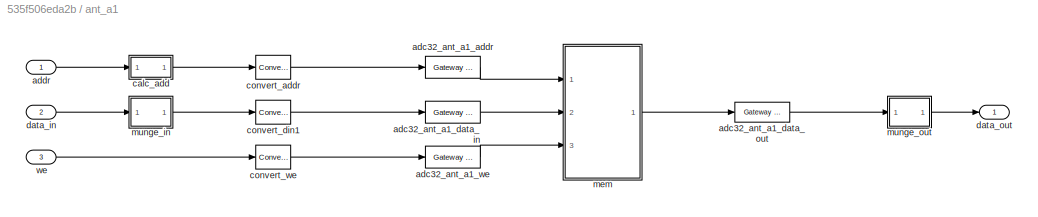
BLOCK [SubSystem] ant_a1
  AncestorBlock = xps_library/Shared BRAM
  FunctionWithSeparateData = off
  MaskHideContents = off
  MinAlgLoopOccurrences = off
  Opaque = off
  Ports = [3, 1]
  PropExecContextOutsideSubsystem = off
  RTWSystemCode = Auto
  RequestExecContextInheritance = off
  Tag = xps:bram
BLOCK [Reference] ant_a1/adc32_ant_a1_addr  REF=xbsIndex_r4/Gateway Out
  DACChannel = '1'
  LOCs = {'A5','B9','A9','C1','A3','G6','E9','A6','A7','A8','B8','B1','B3','D9','B5','B4','B6','C2'}
  Ports = [1, 1]
  SourceBlock = xbsIndex_r4/Gateway Out
  SourceType = Xilinx Gateway Out Block
  UseAsDAC = off
  block_type = gatewayout
  block_version = 9.1.01
  has_advanced_control = 0
  hdl_port = on
  infoedit = Gateway out block.  Converts Xilinx fixed point inputs into ouputs of type Simulink integer, double, or fixed point.<P><P>Hardware notes:  In hardware these blocks become top level output ports or are discarded, depending on how they are configured.  <repeated x128 — deduplicated; at blocks: adc32_ant_a1_addr, adc32_ant_a1_data_in, adc32_ant_a1_we, sim_data_out, adc32_ant_a2_addr, adc32_ant_a2_data_in, adc32_ant_a2_we, adc32_ant_a3_addr, adc32_ant_a3_data_in, adc32_ant_a3_we, adc32_ant_a4_addr, adc32_ant_a4_data_in, adc32_ant_a4_we, adc32_ant_b1_addr, adc32_ant_b1_data_in, adc32_ant_b1_we, +81 more>
  inherit_from_input = off
  locs_specified = off
  sg_icon_stat = 55,22,1,1,white,yellow,1,cc31b7ac,right,,[ ],[ ]
  sg_mask_display = fprintf('','COMMENT: begin icon graphics');\npatch([0 55 55 0 0 ],[0 0 22 22 0 ],[0.95 0.93 0.65 ]);\nplot([0 55 55 0 0 ],[0 0 22 22 0 ]);\npatch([20.325 24.66 27.66 30.66 33.66 27.66 23.325 20.325 ],[14.33 14.33 17.33 14.33 17.33 17.33 17.33 14.33 ],[1 1 1 ]);\npatch([23.325 27.66 24.66 20.325 23.325 ],[11.33 11.33 14.33 14.33 11.33 ],[0.985 0.979 0.895 ]);\npatch([20.325 24.66 27.66 23.325 20.325 ],[...<+396ch>  <repeated x128 — deduplicated; at blocks: adc32_ant_a1_addr, adc32_ant_a1_data_in, adc32_ant_a1_we, sim_data_out, adc32_ant_a2_addr, adc32_ant_a2_data_in, adc32_ant_a2_we, adc32_ant_a3_addr, adc32_ant_a3_data_in, adc32_ant_a3_we, adc32_ant_a4_addr, adc32_ant_a4_data_in, adc32_ant_a4_we, adc32_ant_b1_addr, adc32_ant_b1_data_in, adc32_ant_b1_we, +81 more>
  sggui_pos = 21,71,403,473
  sginterface = {'Nallatech'=>{'xdspkit'=>{'non_memory_mapped_port'=>'uprev_Shared_BRAM_addr'}},'Xilinx'=>{'jtaghwcosim'=>{'non_memory_mapped_port'=>'uprev_Shared_BRAM_addr'},'xdspkit'=>{'non_memory_mapped_port'=>'uprev_Shared_BRAM_addr'}}}  <repeated x32 — deduplicated; at blocks: adc32_ant_a1_addr, adc32_ant_a2_addr, adc32_ant_a3_addr, adc32_ant_a4_addr, adc32_ant_b1_addr, adc32_ant_b2_addr, adc32_ant_b3_addr, adc32_ant_b4_addr, adc32_ant_c1_addr, adc32_ant_c2_addr, adc32_ant_c3_addr, adc32_ant_c4_addr, adc32_ant_d1_addr, adc32_ant_d2_addr, adc32_ant_d3_addr, adc32_ant_d4_addr, +16 more>
  timing_constraint = None
  xl_area = [0, 0, 0, 0, 0, 0, 0]
  xl_use_area = off
BLOCK [Reference] ant_a1/adc32_ant_a1_data_in  REF=xbsIndex_r4/Gateway Out
  DACChannel = '1'
  LOCs = {'B21','B22','A22','B23','B19','C19','A20','A21','A23','B24','A24','A25','E18','D18','C18','B18'}
  Ports = [1, 1]
  SourceBlock = xbsIndex_r4/Gateway Out
  SourceType = Xilinx Gateway Out Block
  UseAsDAC = off
  block_type = gatewayout
  block_version = 9.1.01
  has_advanced_control = 0
  hdl_port = on
  inherit_from_input = off
  locs_specified = off
  sg_icon_stat = 55,22,1,1,white,yellow,1,cc31b7ac,right,,[ ],[ ]
  sggui_pos = 23,125,404,629
  sginterface = {'Nallatech'=>{'xdspkit'=>{'non_memory_mapped_port'=>'uprev_Shared_BRAM_data_in'}},'Xilinx'=>{'jtaghwcosim'=>{'non_memory_mapped_port'=>'uprev_Shared_BRAM_data_in'},'xdspkit'=>{'non_memory_mapped_port'=>'uprev_Shared_BRAM_data_in'}}}  <repeated x32 — deduplicated; at blocks: adc32_ant_a1_data_in, adc32_ant_a2_data_in, adc32_ant_a3_data_in, adc32_ant_a4_data_in, adc32_ant_b1_data_in, adc32_ant_b2_data_in, adc32_ant_b3_data_in, adc32_ant_b4_data_in, adc32_ant_c1_data_in, adc32_ant_c2_data_in, adc32_ant_c3_data_in, adc32_ant_c4_data_in, adc32_ant_d1_data_in, adc32_ant_d2_data_in, adc32_ant_d3_data_in, adc32_ant_d4_data_in, +16 more>
  timing_constraint = None
  xl_area = [0, 0, 0, 0, 0, 0, 0]
  xl_use_area = off
BLOCK [Reference] ant_a1/adc32_ant_a1_data_out  REF=xbsIndex_r4/Gateway In
  ADCChannel = '1'
  LOCs = {}
  Ports = [1, 1]
  SourceBlock = xbsIndex_r4/Gateway In
  SourceType = Xilinx Gateway In Block
  UseAsADC = off
  arith_type = Unsigned
  bin_pt = 0
  block_type = gatewayin
  block_version = 9.1.01
  dbl_ovrd = off
  exp_width = 8
  frac_width = 24
  gui_display_data_type = Fixed-point
  has_advanced_control = 0
  hdl_port = on
  inherit_from_input = off
  locs_specified = off
  n_bits = 32
  overflow = Wrap
  period = sample_rate
  preci_type = Single
  quantization = Truncate
  sg_icon_stat = 55,20,1,1,white,yellow,1,00d3666e,right,,[ ],[ ]
  sg_mask_display = fprintf('','COMMENT: begin icon graphics');\npatch([0 55 55 0 0 ],[0 0 20 20 0 ],[0.95 0.93 0.65 ]);\nplot([0 55 55 0 0 ],[0 0 20 20 0 ]);\npatch([22.55 25.44 27.44 29.44 31.44 27.44 24.55 22.55 ],[12.22 12.22 14.22 12.22 14.22 14.22 14.22 12.22 ],[1 1 1 ]);\npatch([24.55 27.44 25.44 22.55 24.55 ],[10.22 10.22 12.22 12.22 10.22 ],[0.985 0.979 0.895 ]);\npatch([22.55 25.44 27.44 24.55 22.55 ],[8.22 8.22...<+383ch>  <repeated x128 — deduplicated; at blocks: adc32_ant_a1_data_out, sim_addr, sim_data_in, sim_we, adc32_ant_a2_data_out, adc32_ant_a3_data_out, adc32_ant_a4_data_out, adc32_ant_b1_data_out, adc32_ant_b2_data_out, adc32_ant_b3_data_out, adc32_ant_b4_data_out, adc32_ant_c1_data_out, adc32_ant_c2_data_out, adc32_ant_c3_data_out, adc32_ant_c4_data_out, adc32_ant_d1_data_out, +19 more>
  sggui_pos = 22,152,420,659
  sginterface = {'Nallatech'=>{'xdspkit'=>{'non_memory_mapped_port'=>'uprev_Shared_BRAM_data_out'}},'Xilinx'=>{'jtaghwcosim'=>{'non_memory_mapped_port'=>'uprev_Shared_BRAM_data_out'},'xdspkit'=>{'non_memory_mapped_port'=>'uprev_Shared_BRAM_data_out'}}}  <repeated x32 — deduplicated; at blocks: adc32_ant_a1_data_out, adc32_ant_a2_data_out, adc32_ant_a3_data_out, adc32_ant_a4_data_out, adc32_ant_b1_data_out, adc32_ant_b2_data_out, adc32_ant_b3_data_out, adc32_ant_b4_data_out, adc32_ant_c1_data_out, adc32_ant_c2_data_out, adc32_ant_c3_data_out, adc32_ant_c4_data_out, adc32_ant_d1_data_out, adc32_ant_d2_data_out, adc32_ant_d3_data_out, adc32_ant_d4_data_out, +16 more>
  timing_constraint = None
  xl_area = [0, 0, 0, 0, 0, 0, 0]
  xl_use_area = off
BLOCK [Reference] ant_a1/adc32_ant_a1_we  REF=xbsIndex_r4/Gateway Out
  DACChannel = '1'
  LOCs = {'A14'}
  Ports = [1, 1]
  SourceBlock = xbsIndex_r4/Gateway Out
  SourceType = Xilinx Gateway Out Block
  UseAsDAC = off
  block_type = gatewayout
  block_version = 9.1.01
  has_advanced_control = 0
  hdl_port = on
  inherit_from_input = off
  locs_specified = off
  sg_icon_stat = 55,22,1,1,white,yellow,1,cc31b7ac,right,,[ ],[ ]
  sggui_pos = 20,20,404,629
  sginterface = {'Nallatech'=>{'xdspkit'=>{'non_memory_mapped_port'=>'uprev_Shared_BRAM_we'}},'Xilinx'=>{'jtaghwcosim'=>{'non_memory_mapped_port'=>'uprev_Shared_BRAM_we'},'xdspkit'=>{'non_memory_mapped_port'=>'uprev_Shared_BRAM_we'}}}  <repeated x32 — deduplicated; at blocks: adc32_ant_a1_we, adc32_ant_a2_we, adc32_ant_a3_we, adc32_ant_a4_we, adc32_ant_b1_we, adc32_ant_b2_we, adc32_ant_b3_we, adc32_ant_b4_we, adc32_ant_c1_we, adc32_ant_c2_we, adc32_ant_c3_we, adc32_ant_c4_we, adc32_ant_d1_we, adc32_ant_d2_we, adc32_ant_d3_we, adc32_ant_d4_we, +16 more>
  timing_constraint = None
  xl_area = [0, 0, 0, 0, 0, 0, 0]
  xl_use_area = off
BLOCK [Inport] ant_a1/addr
  IconDisplay = Port number
BLOCK [SubSystem] ant_a1/calc_add
  FunctionWithSeparateData = off
  MaskHideContents = off
  MinAlgLoopOccurrences = off
  Opaque = off
  Ports = [1, 1]
  PropExecContextOutsideSubsystem = off
  RTWSystemCode = Auto
  RequestExecContextInheritance = off
BLOCK [Reference] ant_a1/calc_add/add_sub  REF=xbsIndex_r4/AddSub
  Ports = [2, 1]
  SourceBlock = xbsIndex_r4/AddSub
  SourceType = Xilinx Adder/Subtracter Block
  arith_type = Unsigned
  bin_pt = 0
  block_type = addsub
  block_version = 11.4
  dbl_ovrd = off
  en = off
  has_advanced_control = 0
  hw_selection = Fabric
  latency = 0
  mode = Subtraction
  n_bits = max(1, log2(32/data_width))
  overflow = Wrap
  pipelined = off
  precision = User Defined
  quantization = Truncate
  sg_icon_stat = 35,78,2,1,white,blue,0,32e1f85f,right,,[ ],[ ]
  sg_mask_display = fprintf('','COMMENT: begin icon graphics');\npatch([0 35 35 0 0 ],[0 0 78 78 0 ],[0.77 0.82 0.91 ]);\nplot([0 35 35 0 0 ],[0 0 78 78 0 ]);\npatch([5.875 13.1 18.1 23.1 28.1 18.1 10.875 5.875 ],[44.55 44.55 49.55 44.55 49.55 49.55 49.55 44.55 ],[1 1 1 ]);\npatch([10.875 18.1 13.1 5.875 10.875 ],[39.55 39.55 44.55 44.55 39.55 ],[0.931 0.946 0.973 ]);\npatch([5.875 13.1 18.1 10.875 5.875 ],[34.55 34.55 39...<+416ch>  <repeated x64 — deduplicated; at blocks: add_sub>
  sggui_pos = 24,152,420,360
  use_behavioral_HDL = on
  use_carryin = off
  use_carryout = off
  xl_area = [0,0,0,0,0,0,0]
  xl_use_area = off
BLOCK [Reference] ant_a1/calc_add/concat  REF=xbsIndex_r4/Concat
  Ports = [2, 1]
  SourceBlock = xbsIndex_r4/Concat
  SourceType = Xilinx Bus Concatenator Block
  block_type = concat
  block_version = 11.4
  dbl_ovrd = off
  has_advanced_control = 0
  infoedit = Concatenates two or more inputs.  Output will be cast to an unsigned value with the binary point at zero.
  num_inputs = 2
  sg_icon_stat = 20,120,2,1,white,blue,0,16398980,right,,[ ],[ ]
  sg_mask_display = fprintf('','COMMENT: begin icon graphics');\npatch([0 20 20 0 0 ],[0 0 120 120 0 ],[0.77 0.82 0.91 ]);\nplot([0 20 20 0 0 ],[0 0 120 120 0 ]);\npatch([5.55 8.44 10.44 12.44 14.44 10.44 7.55 5.55 ],[62.22 62.22 64.22 62.22 64.22 64.22 64.22 62.22 ],[1 1 1 ]);\npatch([7.55 10.44 8.44 5.55 7.55 ],[60.22 60.22 62.22 62.22 60.22 ],[0.931 0.946 0.973 ]);\npatch([5.55 8.44 10.44 7.55 5.55 ],[58.22 58.22 60.22...<+402ch>  <repeated x64 — deduplicated; at blocks: concat>
  sggui_pos = -1,-1,-1,-1
BLOCK [Reference] ant_a1/calc_add/const  REF=xbsIndex_r4/Constant
  Ports = [0, 1]
  SourceBlock = xbsIndex_r4/Constant
  SourceType = Xilinx Constant Block Block
  arith_type = Unsigned
  bin_pt = 0
  block_type = constant
  block_version = 11.4
  carry = CIN
  const = max(0, 32/data_width-1)
  dbl_ovrd = off
  dsp48_infoedit = The use of this block for DSP48 instructions is deprecated.  Please use the Opmode block.
  equ = P=C
  exp_width = 8
  explicit_period = on
  frac_width = 24
  gui_display_data_type = Fixed-point
  has_advanced_control = 0
  inp1 = P
  inp2 = PCIN>>17
  n_bits = max(1, log2(32/data_width))
  opr = +
  opselect = C
  period = sample_rate
  preci_type = Single
  sg_icon_stat = 20,18,0,1,white,blue,0,bf4ddd8b,right,,[ ],[ ]
  sg_list_contents = {'table'=>{'carry'=>'popup(0|1|CIN|~SIGN(P or PCIN)|~SIGN(A*B or A:B)|~SIGND(A*B or A:B))','inp1'=>'popup(0|P|A:B|A*B|C|P+C|A:B+C)','inp2'=>'popup(0|PCIN|P|C|PCIN>>17|P>>17)','opselect'=>'popup(C + A*B|PCIN + A*B|P + A*B|A * B|C + A:B|C - A:B|C|Custom)','userSelections'=>{'carry'=>'CIN','inp1'=>'P','inp2'=>'PCIN>>17','opselect'=>'C'}}}  <repeated x128 — deduplicated; at blocks: const, manipulate>
  sg_mask_display = fprintf('','COMMENT: begin icon graphics');\npatch([0 20 20 0 0 ],[0 0 18 18 0 ],[0.77 0.82 0.91 ]);\nplot([0 20 20 0 0 ],[0 0 18 18 0 ]);\npatch([5.55 8.44 10.44 12.44 14.44 10.44 7.55 5.55 ],[11.22 11.22 13.22 11.22 13.22 13.22 13.22 11.22 ],[1 1 1 ]);\npatch([7.55 10.44 8.44 5.55 7.55 ],[9.22 9.22 11.22 11.22 9.22 ],[0.931 0.946 0.973 ]);\npatch([5.55 8.44 10.44 7.55 5.55 ],[7.22 7.22 9.22 9.22 7.22...<+284ch>  <repeated x128 — deduplicated; at blocks: const, manipulate>
  sggui_pos = 536,513,474,439
BLOCK [Reference] ant_a1/calc_add/convert_addr  REF=xbsIndex_r4/Convert
  Ports = [1, 1]
  SourceBlock = xbsIndex_r4/Convert
  SourceType = Xilinx Type Converter Block
  arith_type = Unsigned
  bin_pt = 0
  block_type = convert
  block_version = 9.1.01
  dbl_ovrd = off
  en = off
  exp_bits = 8
  float_type = Single
  fraction_bits = 24
  gui_display_data_type = Fixed-point
  has_advanced_control = 0
  infoedit = Hardware notes: rounding and saturating require hardware resources; truncating and wrapping do not.
  latency = 0
  n_bits = addr_width
  overflow = Wrap
  pipeline = off
  quantization = Truncate
  sg_icon_stat = 35,24,1,1,white,blue,0,edca21da,right,,[ ],[ ]
  sg_mask_display = fprintf('','COMMENT: begin icon graphics');\npatch([0 35 35 0 0 ],[0 0 24 24 0 ],[0.77 0.82 0.91 ]);\nplot([0 35 35 0 0 ],[0 0 24 24 0 ]);\npatch([10.325 14.66 17.66 20.66 23.66 17.66 13.325 10.325 ],[15.33 15.33 18.33 15.33 18.33 18.33 18.33 15.33 ],[1 1 1 ]);\npatch([13.325 17.66 14.66 10.325 13.325 ],[12.33 12.33 15.33 15.33 12.33 ],[0.931 0.946 0.973 ]);\npatch([10.325 14.66 17.66 13.325 10.325 ],[...<+321ch>  <repeated x160 — deduplicated; at blocks: convert_addr, convert_din1, convert_we>
  sggui_pos = 21,51,636,521
  xl_area = [0, 0, 0, 0, 0, 0, 0]
  xl_use_area = off
BLOCK [Inport] ant_a1/calc_add/in
  IconDisplay = Port number
BLOCK [Reference] ant_a1/calc_add/lsw  REF=xbsIndex_r4/Slice
  Ports = [1, 1]
  SourceBlock = xbsIndex_r4/Slice
  SourceType = Xilinx Bit Slice Extractor Block
  base0 = LSB of Input
  base1 = MSB of Input
  bit0 = 0
  bit1 = 0
  block_type = slice
  block_version = 11.4
  boolean_output = off
  dbl_ovrd = off
  has_advanced_control = 0
  mode = Lower Bit Location + Width
  nbits = max(1, log2(32/data_width))
  sg_icon_stat = 30,22,1,1,white,blue,0,1fd851a7,right,,[ ],[ ]
  sg_mask_display = fprintf('','COMMENT: begin icon graphics');\npatch([0 30 30 0 0 ],[0 0 22 22 0 ],[0.77 0.82 0.91 ]);\nplot([0 30 30 0 0 ],[0 0 22 22 0 ]);\npatch([8.325 12.66 15.66 18.66 21.66 15.66 11.325 8.325 ],[14.33 14.33 17.33 14.33 17.33 17.33 17.33 14.33 ],[1 1 1 ]);\npatch([11.325 15.66 12.66 8.325 11.325 ],[11.33 11.33 14.33 14.33 11.33 ],[0.931 0.946 0.973 ]);\npatch([8.325 12.66 15.66 11.325 8.325 ],[8.33 ...<+316ch>  <repeated x128 — deduplicated; at blocks: lsw, msw>
  sggui_pos = 1059,231,540,482
BLOCK [Reference] ant_a1/calc_add/manipulate  REF=xbsIndex_r4/Constant
  Ports = [0, 1]
  SourceBlock = xbsIndex_r4/Constant
  SourceType = Xilinx Constant Block Block
  arith_type = Unsigned
  bin_pt = 0
  block_type = constant
  block_version = 11.4
  carry = CIN
  const = min(1, floor(32/data_width) - 1)
  dbl_ovrd = off
  dsp48_infoedit = The use of this block for DSP48 instructions is deprecated.  Please use the Opmode block.
  equ = P=C
  exp_width = 8
  explicit_period = on
  frac_width = 24
  gui_display_data_type = Fixed-point
  has_advanced_control = 0
  inp1 = P
  inp2 = PCIN>>17
  n_bits = 1
  opr = +
  opselect = C
  period = sample_rate
  preci_type = Single
  sg_icon_stat = 20,18,0,1,white,blue,0,bf4ddd8b,right,,[ ],[ ]
  sggui_pos = 445,457,474,461
BLOCK [Reference] ant_a1/calc_add/msw  REF=xbsIndex_r4/Slice
  Ports = [1, 1]
  SourceBlock = xbsIndex_r4/Slice
  SourceType = Xilinx Bit Slice Extractor Block
  base0 = LSB of Input
  base1 = MSB of Input
  bit0 = 0
  bit1 = 0
  block_type = slice
  block_version = 11.4
  boolean_output = off
  dbl_ovrd = off
  has_advanced_control = 0
  mode = Upper Bit Location + Width
  nbits = addr_width - max(1, log2(32/data_width))
  sg_icon_stat = 30,22,1,1,white,blue,0,1fd851a7,right,,[ ],[ ]
  sggui_pos = 956,177,540,482
BLOCK [Reference] ant_a1/calc_add/mux  REF=xbsIndex_r4/Mux
  Ports = [3, 1]
  SourceBlock = xbsIndex_r4/Mux
  SourceType = Xilinx Bus Multiplexer Block
  arith_type = Unsigned
  bin_pt = 14
  block_type = mux
  block_version = 11.4
  dbl_ovrd = off
  en = off
  has_advanced_control = 0
  inputs = 2
  latency = 0
  n_bits = 16
  overflow = Wrap
  precision = Full
  quantization = Truncate
  sg_icon_stat = 25,198,3,1,white,blue,3,eb98d690,right,,[ ],[ ]
  sg_mask_display = fprintf('','COMMENT: begin icon graphics');\npatch([0 25 25 0 0 ],[0 28.2857 169.714 198 0 ],[0.77 0.82 0.91 ]);\nplot([0 25 25 0 0 ],[0 28.2857 169.714 198 0 ]);\npatch([5.325 9.66 12.66 15.66 18.66 12.66 8.325 5.325 ],[102.33 102.33 105.33 102.33 105.33 105.33 105.33 102.33 ],[1 1 1 ]);\npatch([8.325 12.66 9.66 5.325 8.325 ],[99.33 99.33 102.33 102.33 99.33 ],[0.931 0.946 0.973 ]);\npatch([5.325 9.66...<+478ch>  <repeated x64 — deduplicated; at blocks: mux>
  sggui_pos = -1,-1,-1,-1
  xl_area = [0,0,0,0,0,0,0]
  xl_use_area = off
BLOCK [Outport] ant_a1/calc_add/out
  IconDisplay = Port number
BLOCK [Reference] ant_a1/convert_addr  REF=xbsIndex_r4/Convert
  Ports = [1, 1]
  SourceBlock = xbsIndex_r4/Convert
  SourceType = Xilinx Type Converter Block
  arith_type = Unsigned
  bin_pt = 0
  block_type = convert
  block_version = 9.1.01
  dbl_ovrd = off
  en = off
  exp_bits = 8
  float_type = Single
  fraction_bits = 24
  gui_display_data_type = Fixed-point
  has_advanced_control = 0
  infoedit = Hardware notes: rounding and saturating require hardware resources; truncating and wrapping do not.
  latency = 0
  n_bits = addr_width
  overflow = Wrap
  pipeline = off
  quantization = Truncate
  sg_icon_stat = 35,24,1,1,white,blue,0,edca21da,right,,[ ],[ ]
  sggui_pos = 22,78,636,627
  xl_area = [0, 0, 0, 0, 0, 0, 0]
  xl_use_area = off
BLOCK [Reference] ant_a1/convert_din1  REF=xbsIndex_r4/Convert
  Ports = [1, 1]
  SourceBlock = xbsIndex_r4/Convert
  SourceType = Xilinx Type Converter Block
  arith_type = Unsigned
  bin_pt = 0
  block_type = convert
  block_version = 9.1.01
  dbl_ovrd = off
  en = off
  exp_bits = 8
  float_type = Single
  fraction_bits = 24
  gui_display_data_type = Fixed-point
  has_advanced_control = 0
  infoedit = Hardware notes: rounding and saturating require hardware resources; truncating and wrapping do not.
  latency = 0
  n_bits = 32
  overflow = Wrap
  pipeline = off
  quantization = Truncate
  sg_icon_stat = 35,24,1,1,white,blue,0,edca21da,right,,[ ],[ ]
  sggui_pos = 26,186,636,627
  xl_area = [0, 0, 0, 0, 0, 0, 0]
  xl_use_area = off
BLOCK [Reference] ant_a1/convert_we  REF=xbsIndex_r4/Convert
  Ports = [1, 1]
  SourceBlock = xbsIndex_r4/Convert
  SourceType = Xilinx Type Converter Block
  arith_type = Unsigned
  bin_pt = 0
  block_type = convert
  block_version = 9.1.01
  dbl_ovrd = off
  en = off
  exp_bits = 8
  float_type = Single
  fraction_bits = 24
  gui_display_data_type = Fixed-point
  has_advanced_control = 0
  infoedit = Hardware notes: rounding and saturating require hardware resources; truncating and wrapping do not.
  latency = 0
  n_bits = 1
  overflow = Wrap
  pipeline = off
  quantization = Truncate
  sg_icon_stat = 35,24,1,1,white,blue,0,edca21da,right,,[ ],[ ]
  sggui_pos = 21,51,636,627
  xl_area = [0, 0, 0, 0, 0, 0, 0]
  xl_use_area = off
BLOCK [Inport] ant_a1/data_in
  IconDisplay = Port number
  Port = 2
BLOCK [Outport] ant_a1/data_out
  IconDisplay = Port number
BLOCK [SubSystem] ant_a1/mem
  FunctionWithSeparateData = off
  MaskHideContents = off
  MinAlgLoopOccurrences = off
  Opaque = off
  Ports = [3, 1]
  PropExecContextOutsideSubsystem = off
  RTWSystemCode = Auto
  RequestExecContextInheritance = off
BLOCK [Reference] ant_a1/mem/Disregard Subsystem  REF=xbsIndex_r4/Disregard Subsystem
  AttributesFormatString = Disregard Subsystem\nFor Generation
  Ports = []
  SourceBlock = xbsIndex_r4/Disregard Subsystem
  SourceType = Xilinx Disregard Subsystem For Generation Block
  Tag = discardX
  block_type = disregard
  block_version = 9.1.01
  has_advanced_control = 0
  infoedit = Place this block into a subsystem to have System Generator ignore the subsystem during code generation. This block can be used in combination with the Simulation Multiplexer block to provide an alternative simulation model for another subsystem (e.g., to provide a simulation model for a black box).  <repeated x32 — deduplicated; at blocks: Disregard Subsystem>
  sg_icon_stat = 51,50,-1,-1,darkgray,black,0,0,right,
  sg_mask_display = fprintf('','COMMENT: begin icon graphics');\npatch([0 51 51 0 ],[0 0 50 50 ],[0.1 0.1 0.1]);\npatch([12 4 16 4 12 25 29 33 47 36 25 17 29 17 25 36 47 33 29 25 12 ],[5 13 25 37 45 45 41 45 45 34 45 37 25 13 5 16 5 5 9 5 5 ],[0.33 0.33 0.33]);\nplot([0 0 51 51 0 ],[0 50 50 0 0 ]);\nfprintf('','COMMENT: end icon graphics');\nfprintf('','COMMENT: begin icon text');\nfprintf('','COMMENT: end icon text');  <repeated x32 — deduplicated; at blocks: Disregard Subsystem>
  sggui_pos = -1,-1,-1,-1
BLOCK [Inport] ant_a1/mem/In1
  IconDisplay = Port number
BLOCK [Inport] ant_a1/mem/In2
  IconDisplay = Port number
  Port = 2
BLOCK [Inport] ant_a1/mem/In3
  IconDisplay = Port number
  Port = 3
BLOCK [Outport] ant_a1/mem/Out1
  IconDisplay = Port number
BLOCK [SubSystem] ant_a1/mem/calc_add
  FunctionWithSeparateData = off
  MaskHideContents = off
  MinAlgLoopOccurrences = off
  Opaque = off
  Ports = [1, 1]
  PropExecContextOutsideSubsystem = off
  RTWSystemCode = Auto
  RequestExecContextInheritance = off
BLOCK [Reference] ant_a1/mem/calc_add/add_sub  REF=xbsIndex_r4/AddSub
  Ports = [2, 1]
  SourceBlock = xbsIndex_r4/AddSub
  SourceType = Xilinx Adder/Subtracter Block
  arith_type = Unsigned
  bin_pt = 0
  block_type = addsub
  block_version = 11.4
  dbl_ovrd = off
  en = off
  has_advanced_control = 0
  hw_selection = Fabric
  latency = 0
  mode = Subtraction
  n_bits = max(1, log2(32/data_width))
  overflow = Wrap
  pipelined = off
  precision = User Defined
  quantization = Truncate
  sg_icon_stat = 35,78,2,1,white,blue,0,32e1f85f,right,,[ ],[ ]
  sggui_pos = 24,152,420,360
  use_behavioral_HDL = on
  use_carryin = off
  use_carryout = off
  xl_area = [0,0,0,0,0,0,0]
  xl_use_area = off
BLOCK [Reference] ant_a1/mem/calc_add/concat  REF=xbsIndex_r4/Concat
  Ports = [2, 1]
  SourceBlock = xbsIndex_r4/Concat
  SourceType = Xilinx Bus Concatenator Block
  block_type = concat
  block_version = 11.4
  dbl_ovrd = off
  has_advanced_control = 0
  infoedit = Concatenates two or more inputs.  Output will be cast to an unsigned value with the binary point at zero.
  num_inputs = 2
  sg_icon_stat = 20,120,2,1,white,blue,0,16398980,right,,[ ],[ ]
  sggui_pos = -1,-1,-1,-1
BLOCK [Reference] ant_a1/mem/calc_add/const  REF=xbsIndex_r4/Constant
  Ports = [0, 1]
  SourceBlock = xbsIndex_r4/Constant
  SourceType = Xilinx Constant Block Block
  arith_type = Unsigned
  bin_pt = 0
  block_type = constant
  block_version = 11.4
  carry = CIN
  const = max(0, 32/data_width-1)
  dbl_ovrd = off
  dsp48_infoedit = The use of this block for DSP48 instructions is deprecated.  Please use the Opmode block.
  equ = P=C
  exp_width = 8
  explicit_period = on
  frac_width = 24
  gui_display_data_type = Fixed-point
  has_advanced_control = 0
  inp1 = P
  inp2 = PCIN>>17
  n_bits = max(1, log2(32/data_width))
  opr = +
  opselect = C
  period = sample_rate
  preci_type = Single
  sg_icon_stat = 20,18,0,1,white,blue,0,bf4ddd8b,right,,[ ],[ ]
  sggui_pos = 536,513,474,439
BLOCK [Reference] ant_a1/mem/calc_add/convert_addr  REF=xbsIndex_r4/Convert
  Ports = [1, 1]
  SourceBlock = xbsIndex_r4/Convert
  SourceType = Xilinx Type Converter Block
  arith_type = Unsigned
  bin_pt = 0
  block_type = convert
  block_version = 9.1.01
  dbl_ovrd = off
  en = off
  exp_bits = 8
  float_type = Single
  fraction_bits = 24
  gui_display_data_type = Fixed-point
  has_advanced_control = 0
  infoedit = Hardware notes: rounding and saturating require hardware resources; truncating and wrapping do not.
  latency = 0
  n_bits = addr_width
  overflow = Wrap
  pipeline = off
  quantization = Truncate
  sg_icon_stat = 35,24,1,1,white,blue,0,edca21da,right,,[ ],[ ]
  sggui_pos = 21,51,636,521
  xl_area = [0, 0, 0, 0, 0, 0, 0]
  xl_use_area = off
BLOCK [Inport] ant_a1/mem/calc_add/in
  IconDisplay = Port number
BLOCK [Reference] ant_a1/mem/calc_add/lsw  REF=xbsIndex_r4/Slice
  Ports = [1, 1]
  SourceBlock = xbsIndex_r4/Slice
  SourceType = Xilinx Bit Slice Extractor Block
  base0 = LSB of Input
  base1 = MSB of Input
  bit0 = 0
  bit1 = 0
  block_type = slice
  block_version = 11.4
  boolean_output = off
  dbl_ovrd = off
  has_advanced_control = 0
  mode = Lower Bit Location + Width
  nbits = max(1, log2(32/data_width))
  sg_icon_stat = 30,22,1,1,white,blue,0,1fd851a7,right,,[ ],[ ]
  sggui_pos = 1059,231,540,482
BLOCK [Reference] ant_a1/mem/calc_add/manipulate  REF=xbsIndex_r4/Constant
  Ports = [0, 1]
  SourceBlock = xbsIndex_r4/Constant
  SourceType = Xilinx Constant Block Block
  arith_type = Unsigned
  bin_pt = 0
  block_type = constant
  block_version = 11.4
  carry = CIN
  const = min(1, floor(32/data_width) - 1)
  dbl_ovrd = off
  dsp48_infoedit = The use of this block for DSP48 instructions is deprecated.  Please use the Opmode block.
  equ = P=C
  exp_width = 8
  explicit_period = on
  frac_width = 24
  gui_display_data_type = Fixed-point
  has_advanced_control = 0
  inp1 = P
  inp2 = PCIN>>17
  n_bits = 1
  opr = +
  opselect = C
  period = sample_rate
  preci_type = Single
  sg_icon_stat = 20,18,0,1,white,blue,0,bf4ddd8b,right,,[ ],[ ]
  sggui_pos = 445,457,474,461
BLOCK [Reference] ant_a1/mem/calc_add/msw  REF=xbsIndex_r4/Slice
  Ports = [1, 1]
  SourceBlock = xbsIndex_r4/Slice
  SourceType = Xilinx Bit Slice Extractor Block
  base0 = LSB of Input
  base1 = MSB of Input
  bit0 = 0
  bit1 = 0
  block_type = slice
  block_version = 11.4
  boolean_output = off
  dbl_ovrd = off
  has_advanced_control = 0
  mode = Upper Bit Location + Width
  nbits = addr_width - max(1, log2(32/data_width))
  sg_icon_stat = 30,22,1,1,white,blue,0,1fd851a7,right,,[ ],[ ]
  sggui_pos = 956,177,540,482
BLOCK [Reference] ant_a1/mem/calc_add/mux  REF=xbsIndex_r4/Mux
  Ports = [3, 1]
  SourceBlock = xbsIndex_r4/Mux
  SourceType = Xilinx Bus Multiplexer Block
  arith_type = Unsigned
  bin_pt = 14
  block_type = mux
  block_version = 11.4
  dbl_ovrd = off
  en = off
  has_advanced_control = 0
  inputs = 2
  latency = 0
  n_bits = 16
  overflow = Wrap
  precision = Full
  quantization = Truncate
  sg_icon_stat = 25,198,3,1,white,blue,3,eb98d690,right,,[ ],[ ]
  sggui_pos = -1,-1,-1,-1
  xl_area = [0,0,0,0,0,0,0]
  xl_use_area = off
BLOCK [Outport] ant_a1/mem/calc_add/out
  IconDisplay = Port number
BLOCK [Reference] ant_a1/mem/ram  REF=xbsIndex_r4/Single Port RAM
  Ports = [3, 1]
  SourceBlock = xbsIndex_r4/Single Port RAM
  SourceType = Xilinx Single Port Random Access Memory Block
  block_type = spram
  block_version = 11.4
  dbl_ovrd = off
  depth = 2^addr_width
  distributed_mem = Block RAM
  en = off
  has_advanced_control = 0
  initVector = init_vals
  init_reg = 0
  latency = 1
  optimize = Area
  rst = off
  sg_icon_stat = 60,114,3,1,white,blue,0,afe23399,right,,[ ],[ ]
  sg_mask_display = fprintf('','COMMENT: begin icon graphics');\npatch([0 60 60 0 0 ],[0 0 114 114 0 ],[0.77 0.82 0.91 ]);\nplot([0 60 60 0 0 ],[0 0 114 114 0 ]);\npatch([12.2 23.76 31.76 39.76 47.76 31.76 20.2 12.2 ],[65.88 65.88 73.88 65.88 73.88 73.88 73.88 65.88 ],[1 1 1 ]);\npatch([20.2 31.76 23.76 12.2 20.2 ],[57.88 57.88 65.88 65.88 57.88 ],[0.931 0.946 0.973 ]);\npatch([12.2 23.76 31.76 20.2 12.2 ],[49.88 49.88 57...<+444ch>  <repeated x32 — deduplicated; at blocks: ram>
  sggui_pos = 22,98,435,384
  write_mode = Read After Write
  xl_area = [0,0,0,0,0,0,0]
  xl_use_area = off
BLOCK [Reference] ant_a1/mem/sim_addr  REF=xbsIndex_r4/Gateway In
  ADCChannel = '1'
  LOCs = {}
  Ports = [1, 1]
  SourceBlock = xbsIndex_r4/Gateway In
  SourceType = Xilinx Gateway In Block
  UseAsADC = off
  arith_type = Unsigned
  bin_pt = 0
  block_type = gatewayin
  block_version = 9.1.01
  dbl_ovrd = off
  exp_width = 8
  frac_width = 24
  gui_display_data_type = Fixed-point
  has_advanced_control = 0
  hdl_port = on
  infoedit = Gateway in block.  Converts inputs of type Simulink integer, double and fixed point to  Xilinx fixed point type.<br><br>Hardware notes:  In hardware these blocks become top level input ports.  <repeated x64 — deduplicated; at blocks: sim_addr, sim_we>
  inherit_from_input = off
  locs_specified = off
  n_bits = addr_width
  overflow = Wrap
  period = sample_rate
  preci_type = Single
  quantization = Truncate
  sg_icon_stat = 55,20,1,1,white,yellow,1,00d3666e,right,,[ ],[ ]
  sggui_pos = 24,152,419,481
  sginterface = {'Nallatech'=>{'xdspkit'=>{'non_memory_mapped_port'=>'sim_addr'}},'Xilinx'=>{'jtaghwcosim'=>{'non_memory_mapped_port'=>'sim_addr'},'xdspkit'=>{'non_memory_mapped_port'=>'sim_addr'}}}
  timing_constraint = None
  xl_area = [0, 0, 0, 0, 0, 0, 0]
  xl_use_area = off
BLOCK [Reference] ant_a1/mem/sim_data_in  REF=xbsIndex_r4/Gateway In
  ADCChannel = '1'
  LOCs = {}
  Ports = [1, 1]
  SourceBlock = xbsIndex_r4/Gateway In
  SourceType = Xilinx Gateway In Block
  UseAsADC = off
  arith_type = Unsigned
  bin_pt = 0
  block_type = gatewayin
  block_version = 9.1.01
  dbl_ovrd = off
  exp_width = 8
  frac_width = 24
  gui_display_data_type = Fixed-point
  has_advanced_control = 0
  hdl_port = on
  inherit_from_input = off
  locs_specified = off
  n_bits = 32
  overflow = Wrap
  period = sample_rate
  preci_type = Single
  quantization = Truncate
  sg_icon_stat = 55,20,1,1,white,yellow,1,00d3666e,right,,[ ],[ ]
  sggui_pos = 56,254,420,659
  sginterface = {'Nallatech'=>{'xdspkit'=>{'non_memory_mapped_port'=>'sim_data_in'}},'Xilinx'=>{'jtaghwcosim'=>{'non_memory_mapped_port'=>'sim_data_in'},'xdspkit'=>{'non_memory_mapped_port'=>'sim_data_in'}}}  <repeated x32 — deduplicated; at blocks: sim_data_in>
  timing_constraint = None
  xl_area = [0, 0, 0, 0, 0, 0, 0]
  xl_use_area = off
BLOCK [Reference] ant_a1/mem/sim_data_out  REF=xbsIndex_r4/Gateway Out
  DACChannel = '1'
  LOCs = {'B21','B22','A22','B23','B19','C19','A20','A21','A23','B24','A24','A25','E18','D18','C18','B18'}
  Ports = [1, 1]
  SourceBlock = xbsIndex_r4/Gateway Out
  SourceType = Xilinx Gateway Out Block
  UseAsDAC = off
  block_type = gatewayout
  block_version = 9.1.01
  has_advanced_control = 0
  hdl_port = on
  inherit_from_input = off
  locs_specified = off
  sg_icon_stat = 55,22,1,1,white,yellow,1,cc31b7ac,right,,[ ],[ ]
  sggui_pos = 23,125,404,629
  sginterface = {'Nallatech'=>{'xdspkit'=>{'non_memory_mapped_port'=>'sim_data_out'}},'Xilinx'=>{'jtaghwcosim'=>{'non_memory_mapped_port'=>'sim_data_out'},'xdspkit'=>{'non_memory_mapped_port'=>'sim_data_out'}}}  <repeated x32 — deduplicated; at blocks: sim_data_out>
  timing_constraint = None
  xl_area = [0, 0, 0, 0, 0, 0, 0]
  xl_use_area = off
BLOCK [SubSystem] ant_a1/mem/sim_munge_in
  AncestorBlock = casper_library_flow_control/munge
  AttributesFormatString = split:32\njoin:0\nUnsigned [32,0]
  FunctionWithSeparateData = off
  MaskHideContents = off
  MinAlgLoopOccurrences = off
  Opaque = off
  Ports = [1, 1]
  PropExecContextOutsideSubsystem = off
  RTWSystemCode = Auto
  RequestExecContextInheritance = off
  UserDataPersistent = on
BLOCK [Inport] ant_a1/mem/sim_munge_in/din
  IconDisplay = Port number
BLOCK [Outport] ant_a1/mem/sim_munge_in/dout
  IconDisplay = Port number
BLOCK [Reference] ant_a1/mem/sim_munge_in/reinterpret_out  REF=xbsIndex_r4/Reinterpret
  Ports = [1, 1]
  SourceBlock = xbsIndex_r4/Reinterpret
  SourceType = Xilinx Type Reinterpreter Block
  arith_type = Unsigned
  bin_pt = 0
  block_type = reinterpret
  force_arith_type = on
  force_bin_pt = on
  has_advanced_control = 0
  infoedit = Changes signal type without altering the binary representation.   You can change the signal between signed and unsigned, and relocate the binary point.<br><br>Hardware notes: In hardware this block costs nothing.<br><br>Example:  Suppose the input is 6 bits wide, signed, with 2 fractional bits, and the output is forced to unsigned with 0 fractional bits.  Then an input of -2.0 (1110.00 in binary 2...<+58ch>  <repeated x130 — deduplicated; at blocks: reinterpret_out, reint1>
  sg_icon_stat = 55,20,1,1,white,blue,0,6b04d0b0,right,,[ ],[ ]
  sg_mask_display = fprintf('','COMMENT: begin icon graphics');\npatch([0 55 55 0 0 ],[0 0 20 20 0 ],[0.77 0.82 0.91 ]);\nplot([0 55 55 0 0 ],[0 0 20 20 0 ]);\npatch([22.55 25.44 27.44 29.44 31.44 27.44 24.55 22.55 ],[12.22 12.22 14.22 12.22 14.22 14.22 14.22 12.22 ],[1 1 1 ]);\npatch([24.55 27.44 25.44 22.55 24.55 ],[10.22 10.22 12.22 12.22 10.22 ],[0.931 0.946 0.973 ]);\npatch([22.55 25.44 27.44 24.55 22.55 ],[8.22 8.22...<+300ch>  <repeated x128 — deduplicated; at blocks: reinterpret_out>
  sggui_pos = -1,-1,-1,-1
BLOCK [SubSystem] ant_a1/mem/sim_munge_out
  AncestorBlock = casper_library_flow_control/munge
  AttributesFormatString = split:32\njoin:0\nUnsigned [32,0]
  FunctionWithSeparateData = off
  MaskHideContents = off
  MinAlgLoopOccurrences = off
  Opaque = off
  Ports = [1, 1]
  PropExecContextOutsideSubsystem = off
  RTWSystemCode = Auto
  RequestExecContextInheritance = off
  UserDataPersistent = on
BLOCK [Inport] ant_a1/mem/sim_munge_out/din
  IconDisplay = Port number
BLOCK [Outport] ant_a1/mem/sim_munge_out/dout
  IconDisplay = Port number
BLOCK [Reference] ant_a1/mem/sim_munge_out/reinterpret_out  REF=xbsIndex_r4/Reinterpret
  Ports = [1, 1]
  SourceBlock = xbsIndex_r4/Reinterpret
  SourceType = Xilinx Type Reinterpreter Block
  arith_type = Unsigned
  bin_pt = 0
  block_type = reinterpret
  force_arith_type = on
  force_bin_pt = on
  has_advanced_control = 0
  sg_icon_stat = 55,20,1,1,white,blue,0,6b04d0b0,right,,[ ],[ ]
  sggui_pos = -1,-1,-1,-1
BLOCK [Reference] ant_a1/mem/sim_we  REF=xbsIndex_r4/Gateway In
  ADCChannel = '1'
  LOCs = {}
  Ports = [1, 1]
  SourceBlock = xbsIndex_r4/Gateway In
  SourceType = Xilinx Gateway In Block
  UseAsADC = off
  arith_type = Boolean
  bin_pt = 0
  block_type = gatewayin
  block_version = 9.1.01
  dbl_ovrd = off
  exp_width = 8
  frac_width = 24
  gui_display_data_type = Fixed-point
  has_advanced_control = 0
  hdl_port = on
  inherit_from_input = off
  locs_specified = off
  n_bits = 1
  overflow = Wrap
  period = sample_rate
  preci_type = Single
  quantization = Truncate
  sg_icon_stat = 55,20,1,1,white,yellow,1,00d3666e,right,,[ ],[ ]
  sggui_pos = -1,-1,-1,-1
  sginterface = {'Nallatech'=>{'xdspkit'=>{'non_memory_mapped_port'=>'sim_we'}},'Xilinx'=>{'jtaghwcosim'=>{'non_memory_mapped_port'=>'sim_we'},'xdspkit'=>{'non_memory_mapped_port'=>'sim_we'}}}
  timing_constraint = None
  xl_area = [0, 0, 0, 0, 0, 0, 0]
  xl_use_area = off
BLOCK [SubSystem] ant_a1/munge_in
  AncestorBlock = casper_library_flow_control/munge
  AttributesFormatString = split:32\njoin:0\nUnsigned [32,0]
  FunctionWithSeparateData = off
  MaskHideContents = off
  MinAlgLoopOccurrences = off
  Opaque = off
  Ports = [1, 1]
  PropExecContextOutsideSubsystem = off
  RTWSystemCode = Auto
  RequestExecContextInheritance = off
  UserDataPersistent = on
BLOCK [Inport] ant_a1/munge_in/din
  IconDisplay = Port number
BLOCK [Outport] ant_a1/munge_in/dout
  IconDisplay = Port number
BLOCK [Reference] ant_a1/munge_in/reinterpret_out  REF=xbsIndex_r4/Reinterpret
  Ports = [1, 1]
  SourceBlock = xbsIndex_r4/Reinterpret
  SourceType = Xilinx Type Reinterpreter Block
  arith_type = Unsigned
  bin_pt = 0
  block_type = reinterpret
  force_arith_type = on
  force_bin_pt = on
  has_advanced_control = 0
  sg_icon_stat = 55,20,1,1,white,blue,0,6b04d0b0,right,,[ ],[ ]
  sggui_pos = -1,-1,-1,-1
BLOCK [SubSystem] ant_a1/munge_out
  AncestorBlock = casper_library_flow_control/munge
  AttributesFormatString = split:32\njoin:0\nUnsigned [32,0]
  FunctionWithSeparateData = off
  MaskHideContents = off
  MinAlgLoopOccurrences = off
  Opaque = off
  Ports = [1, 1]
  PropExecContextOutsideSubsystem = off
  RTWSystemCode = Auto
  RequestExecContextInheritance = off
  UserDataPersistent = on
BLOCK [Inport] ant_a1/munge_out/din
  IconDisplay = Port number
BLOCK [Outport] ant_a1/munge_out/dout
  IconDisplay = Port number
BLOCK [Reference] ant_a1/munge_out/reinterpret_out  REF=xbsIndex_r4/Reinterpret
  Ports = [1, 1]
  SourceBlock = xbsIndex_r4/Reinterpret
  SourceType = Xilinx Type Reinterpreter Block
  arith_type = Unsigned
  bin_pt = 0
  block_type = reinterpret
  force_arith_type = on
  force_bin_pt = on
  has_advanced_control = 0
  sg_icon_stat = 55,20,1,1,white,blue,0,6b04d0b0,right,,[ ],[ ]
  sggui_pos = -1,-1,-1,-1
BLOCK [Inport] ant_a1/we
  IconDisplay = Port number
  Port = 3
BLOCK [SubSystem] ant_a2
  AncestorBlock = xps_library/Shared BRAM
  FunctionWithSeparateData = off
  MaskHideContents = off
  MinAlgLoopOccurrences = off
  Opaque = off
  Ports = [3, 1]
  PropExecContextOutsideSubsystem = off
  RTWSystemCode = Auto
  RequestExecContextInheritance = off
  Tag = xps:bram
BLOCK [Reference] ant_a2/adc32_ant_a2_addr  REF=xbsIndex_r4/Gateway Out
  DACChannel = '1'
  LOCs = {'A5','B9','A9','C1','A3','G6','E9','A6','A7','A8','B8','B1','B3','D9','B5','B4','B6','C2'}
  Ports = [1, 1]
  SourceBlock = xbsIndex_r4/Gateway Out
  SourceType = Xilinx Gateway Out Block
  UseAsDAC = off
  block_type = gatewayout
  block_version = 9.1.01
  has_advanced_control = 0
  hdl_port = on
  inherit_from_input = off
  locs_specified = off
  sg_icon_stat = 55,22,1,1,white,yellow,1,cc31b7ac,right,,[ ],[ ]
  sggui_pos = 21,71,403,473
  timing_constraint = None
  xl_area = [0, 0, 0, 0, 0, 0, 0]
  xl_use_area = off
BLOCK [Reference] ant_a2/adc32_ant_a2_data_in  REF=xbsIndex_r4/Gateway Out
  DACChannel = '1'
  LOCs = {'B21','B22','A22','B23','B19','C19','A20','A21','A23','B24','A24','A25','E18','D18','C18','B18'}
  Ports = [1, 1]
  SourceBlock = xbsIndex_r4/Gateway Out
  SourceType = Xilinx Gateway Out Block
  UseAsDAC = off
  block_type = gatewayout
  block_version = 9.1.01
  has_advanced_control = 0
  hdl_port = on
  inherit_from_input = off
  locs_specified = off
  sg_icon_stat = 55,22,1,1,white,yellow,1,cc31b7ac,right,,[ ],[ ]
  sggui_pos = 23,125,404,629
  timing_constraint = None
  xl_area = [0, 0, 0, 0, 0, 0, 0]
  xl_use_area = off
BLOCK [Reference] ant_a2/adc32_ant_a2_data_out  REF=xbsIndex_r4/Gateway In
  ADCChannel = '1'
  LOCs = {}
  Ports = [1, 1]
  SourceBlock = xbsIndex_r4/Gateway In
  SourceType = Xilinx Gateway In Block
  UseAsADC = off
  arith_type = Unsigned
  bin_pt = 0
  block_type = gatewayin
  block_version = 9.1.01
  dbl_ovrd = off
  exp_width = 8
  frac_width = 24
  gui_display_data_type = Fixed-point
  has_advanced_control = 0
  hdl_port = on
  inherit_from_input = off
  locs_specified = off
  n_bits = 32
  overflow = Wrap
  period = sample_rate
  preci_type = Single
  quantization = Truncate
  sg_icon_stat = 55,20,1,1,white,yellow,1,00d3666e,right,,[ ],[ ]
  sggui_pos = 22,152,420,659
  timing_constraint = None
  xl_area = [0, 0, 0, 0, 0, 0, 0]
  xl_use_area = off
BLOCK [Reference] ant_a2/adc32_ant_a2_we  REF=xbsIndex_r4/Gateway Out
  DACChannel = '1'
  LOCs = {'A14'}
  Ports = [1, 1]
  SourceBlock = xbsIndex_r4/Gateway Out
  SourceType = Xilinx Gateway Out Block
  UseAsDAC = off
  block_type = gatewayout
  block_version = 9.1.01
  has_advanced_control = 0
  hdl_port = on
  inherit_from_input = off
  locs_specified = off
  sg_icon_stat = 55,22,1,1,white,yellow,1,cc31b7ac,right,,[ ],[ ]
  sggui_pos = 20,20,404,629
  timing_constraint = None
  xl_area = [0, 0, 0, 0, 0, 0, 0]
  xl_use_area = off
BLOCK [Inport] ant_a2/addr
  IconDisplay = Port number
BLOCK [SubSystem] ant_a2/calc_add
  FunctionWithSeparateData = off
  MaskHideContents = off
  MinAlgLoopOccurrences = off
  Opaque = off
  Ports = [1, 1]
  PropExecContextOutsideSubsystem = off
  RTWSystemCode = Auto
  RequestExecContextInheritance = off
BLOCK [Reference] ant_a2/calc_add/add_sub  REF=xbsIndex_r4/AddSub
  Ports = [2, 1]
  SourceBlock = xbsIndex_r4/AddSub
  SourceType = Xilinx Adder/Subtracter Block
  arith_type = Unsigned
  bin_pt = 0
  block_type = addsub
  block_version = 11.4
  dbl_ovrd = off
  en = off
  has_advanced_control = 0
  hw_selection = Fabric
  latency = 0
  mode = Subtraction
  n_bits = max(1, log2(32/data_width))
  overflow = Wrap
  pipelined = off
  precision = User Defined
  quantization = Truncate
  sg_icon_stat = 35,78,2,1,white,blue,0,32e1f85f,right,,[ ],[ ]
  sggui_pos = 24,152,420,360
  use_behavioral_HDL = on
  use_carryin = off
  use_carryout = off
  xl_area = [0,0,0,0,0,0,0]
  xl_use_area = off
BLOCK [Reference] ant_a2/calc_add/concat  REF=xbsIndex_r4/Concat
  Ports = [2, 1]
  SourceBlock = xbsIndex_r4/Concat
  SourceType = Xilinx Bus Concatenator Block
  block_type = concat
  block_version = 11.4
  dbl_ovrd = off
  has_advanced_control = 0
  infoedit = Concatenates two or more inputs.  Output will be cast to an unsigned value with the binary point at zero.
  num_inputs = 2
  sg_icon_stat = 20,120,2,1,white,blue,0,16398980,right,,[ ],[ ]
  sggui_pos = -1,-1,-1,-1
BLOCK [Reference] ant_a2/calc_add/const  REF=xbsIndex_r4/Constant
  Ports = [0, 1]
  SourceBlock = xbsIndex_r4/Constant
  SourceType = Xilinx Constant Block Block
  arith_type = Unsigned
  bin_pt = 0
  block_type = constant
  block_version = 11.4
  carry = CIN
  const = max(0, 32/data_width-1)
  dbl_ovrd = off
  dsp48_infoedit = The use of this block for DSP48 instructions is deprecated.  Please use the Opmode block.
  equ = P=C
  exp_width = 8
  explicit_period = on
  frac_width = 24
  gui_display_data_type = Fixed-point
  has_advanced_control = 0
  inp1 = P
  inp2 = PCIN>>17
  n_bits = max(1, log2(32/data_width))
  opr = +
  opselect = C
  period = sample_rate
  preci_type = Single
  sg_icon_stat = 20,18,0,1,white,blue,0,bf4ddd8b,right,,[ ],[ ]
  sggui_pos = 536,513,474,439
BLOCK [Reference] ant_a2/calc_add/convert_addr  REF=xbsIndex_r4/Convert
  Ports = [1, 1]
  SourceBlock = xbsIndex_r4/Convert
  SourceType = Xilinx Type Converter Block
  arith_type = Unsigned
  bin_pt = 0
  block_type = convert
  block_version = 9.1.01
  dbl_ovrd = off
  en = off
  exp_bits = 8
  float_type = Single
  fraction_bits = 24
  gui_display_data_type = Fixed-point
  has_advanced_control = 0
  infoedit = Hardware notes: rounding and saturating require hardware resources; truncating and wrapping do not.
  latency = 0
  n_bits = addr_width
  overflow = Wrap
  pipeline = off
  quantization = Truncate
  sg_icon_stat = 35,24,1,1,white,blue,0,edca21da,right,,[ ],[ ]
  sggui_pos = 21,51,636,521
  xl_area = [0, 0, 0, 0, 0, 0, 0]
  xl_use_area = off
BLOCK [Inport] ant_a2/calc_add/in
  IconDisplay = Port number
BLOCK [Reference] ant_a2/calc_add/lsw  REF=xbsIndex_r4/Slice
  Ports = [1, 1]
  SourceBlock = xbsIndex_r4/Slice
  SourceType = Xilinx Bit Slice Extractor Block
  base0 = LSB of Input
  base1 = MSB of Input
  bit0 = 0
  bit1 = 0
  block_type = slice
  block_version = 11.4
  boolean_output = off
  dbl_ovrd = off
  has_advanced_control = 0
  mode = Lower Bit Location + Width
  nbits = max(1, log2(32/data_width))
  sg_icon_stat = 30,22,1,1,white,blue,0,1fd851a7,right,,[ ],[ ]
  sggui_pos = 1059,231,540,482
BLOCK [Reference] ant_a2/calc_add/manipulate  REF=xbsIndex_r4/Constant
  Ports = [0, 1]
  SourceBlock = xbsIndex_r4/Constant
  SourceType = Xilinx Constant Block Block
  arith_type = Unsigned
  bin_pt = 0
  block_type = constant
  block_version = 11.4
  carry = CIN
  const = min(1, floor(32/data_width) - 1)
  dbl_ovrd = off
  dsp48_infoedit = The use of this block for DSP48 instructions is deprecated.  Please use the Opmode block.
  equ = P=C
  exp_width = 8
  explicit_period = on
  frac_width = 24
  gui_display_data_type = Fixed-point
  has_advanced_control = 0
  inp1 = P
  inp2 = PCIN>>17
  n_bits = 1
  opr = +
  opselect = C
  period = sample_rate
  preci_type = Single
  sg_icon_stat = 20,18,0,1,white,blue,0,bf4ddd8b,right,,[ ],[ ]
  sggui_pos = 445,457,474,461
BLOCK [Reference] ant_a2/calc_add/msw  REF=xbsIndex_r4/Slice
  Ports = [1, 1]
  SourceBlock = xbsIndex_r4/Slice
  SourceType = Xilinx Bit Slice Extractor Block
  base0 = LSB of Input
  base1 = MSB of Input
  bit0 = 0
  bit1 = 0
  block_type = slice
  block_version = 11.4
  boolean_output = off
  dbl_ovrd = off
  has_advanced_control = 0
  mode = Upper Bit Location + Width
  nbits = addr_width - max(1, log2(32/data_width))
  sg_icon_stat = 30,22,1,1,white,blue,0,1fd851a7,right,,[ ],[ ]
  sggui_pos = 956,177,540,482
BLOCK [Reference] ant_a2/calc_add/mux  REF=xbsIndex_r4/Mux
  Ports = [3, 1]
  SourceBlock = xbsIndex_r4/Mux
  SourceType = Xilinx Bus Multiplexer Block
  arith_type = Unsigned
  bin_pt = 14
  block_type = mux
  block_version = 11.4
  dbl_ovrd = off
  en = off
  has_advanced_control = 0
  inputs = 2
  latency = 0
  n_bits = 16
  overflow = Wrap
  precision = Full
  quantization = Truncate
  sg_icon_stat = 25,198,3,1,white,blue,3,eb98d690,right,,[ ],[ ]
  sggui_pos = -1,-1,-1,-1
  xl_area = [0,0,0,0,0,0,0]
  xl_use_area = off
BLOCK [Outport] ant_a2/calc_add/out
  IconDisplay = Port number
BLOCK [Reference] ant_a2/convert_addr  REF=xbsIndex_r4/Convert
  Ports = [1, 1]
  SourceBlock = xbsIndex_r4/Convert
  SourceType = Xilinx Type Converter Block
  arith_type = Unsigned
  bin_pt = 0
  block_type = convert
  block_version = 9.1.01
  dbl_ovrd = off
  en = off
  exp_bits = 8
  float_type = Single
  fraction_bits = 24
  gui_display_data_type = Fixed-point
  has_advanced_control = 0
  infoedit = Hardware notes: rounding and saturating require hardware resources; truncating and wrapping do not.
  latency = 0
  n_bits = addr_width
  overflow = Wrap
  pipeline = off
  quantization = Truncate
  sg_icon_stat = 35,24,1,1,white,blue,0,edca21da,right,,[ ],[ ]
  sggui_pos = 22,78,636,627
  xl_area = [0, 0, 0, 0, 0, 0, 0]
  xl_use_area = off
BLOCK [Reference] ant_a2/convert_din1  REF=xbsIndex_r4/Convert
  Ports = [1, 1]
  SourceBlock = xbsIndex_r4/Convert
  SourceType = Xilinx Type Converter Block
  arith_type = Unsigned
  bin_pt = 0
  block_type = convert
  block_version = 9.1.01
  dbl_ovrd = off
  en = off
  exp_bits = 8
  float_type = Single
  fraction_bits = 24
  gui_display_data_type = Fixed-point
  has_advanced_control = 0
  infoedit = Hardware notes: rounding and saturating require hardware resources; truncating and wrapping do not.
  latency = 0
  n_bits = 32
  overflow = Wrap
  pipeline = off
  quantization = Truncate
  sg_icon_stat = 35,24,1,1,white,blue,0,edca21da,right,,[ ],[ ]
  sggui_pos = 26,186,636,627
  xl_area = [0, 0, 0, 0, 0, 0, 0]
  xl_use_area = off
BLOCK [Reference] ant_a2/convert_we  REF=xbsIndex_r4/Convert
  Ports = [1, 1]
  SourceBlock = xbsIndex_r4/Convert
  SourceType = Xilinx Type Converter Block
  arith_type = Unsigned
  bin_pt = 0
  block_type = convert
  block_version = 9.1.01
  dbl_ovrd = off
  en = off
  exp_bits = 8
  float_type = Single
  fraction_bits = 24
  gui_display_data_type = Fixed-point
  has_advanced_control = 0
  infoedit = Hardware notes: rounding and saturating require hardware resources; truncating and wrapping do not.
  latency = 0
  n_bits = 1
  overflow = Wrap
  pipeline = off
  quantization = Truncate
  sg_icon_stat = 35,24,1,1,white,blue,0,edca21da,right,,[ ],[ ]
  sggui_pos = 21,51,636,627
  xl_area = [0, 0, 0, 0, 0, 0, 0]
  xl_use_area = off
BLOCK [Inport] ant_a2/data_in
  IconDisplay = Port number
  Port = 2
BLOCK [Outport] ant_a2/data_out
  IconDisplay = Port number
BLOCK [SubSystem] ant_a2/mem
  FunctionWithSeparateData = off
  MaskHideContents = off
  MinAlgLoopOccurrences = off
  Opaque = off
  Ports = [3, 1]
  PropExecContextOutsideSubsystem = off
  RTWSystemCode = Auto
  RequestExecContextInheritance = off
BLOCK [Reference] ant_a2/mem/Disregard Subsystem  REF=xbsIndex_r4/Disregard Subsystem
  AttributesFormatString = Disregard Subsystem\nFor Generation
  Ports = []
  SourceBlock = xbsIndex_r4/Disregard Subsystem
  SourceType = Xilinx Disregard Subsystem For Generation Block
  Tag = discardX
  block_type = disregard
  block_version = 9.1.01
  has_advanced_control = 0
  sg_icon_stat = 51,50,-1,-1,darkgray,black,0,0,right,
  sggui_pos = -1,-1,-1,-1
BLOCK [Inport] ant_a2/mem/In1
  IconDisplay = Port number
BLOCK [Inport] ant_a2/mem/In2
  IconDisplay = Port number
  Port = 2
BLOCK [Inport] ant_a2/mem/In3
  IconDisplay = Port number
  Port = 3
BLOCK [Outport] ant_a2/mem/Out1
  IconDisplay = Port number
BLOCK [SubSystem] ant_a2/mem/calc_add
  FunctionWithSeparateData = off
  MaskHideContents = off
  MinAlgLoopOccurrences = off
  Opaque = off
  Ports = [1, 1]
  PropExecContextOutsideSubsystem = off
  RTWSystemCode = Auto
  RequestExecContextInheritance = off
BLOCK [Reference] ant_a2/mem/calc_add/add_sub  REF=xbsIndex_r4/AddSub
  Ports = [2, 1]
  SourceBlock = xbsIndex_r4/AddSub
  SourceType = Xilinx Adder/Subtracter Block
  arith_type = Unsigned
  bin_pt = 0
  block_type = addsub
  block_version = 11.4
  dbl_ovrd = off
  en = off
  has_advanced_control = 0
  hw_selection = Fabric
  latency = 0
  mode = Subtraction
  n_bits = max(1, log2(32/data_width))
  overflow = Wrap
  pipelined = off
  precision = User Defined
  quantization = Truncate
  sg_icon_stat = 35,78,2,1,white,blue,0,32e1f85f,right,,[ ],[ ]
  sggui_pos = 24,152,420,360
  use_behavioral_HDL = on
  use_carryin = off
  use_carryout = off
  xl_area = [0,0,0,0,0,0,0]
  xl_use_area = off
BLOCK [Reference] ant_a2/mem/calc_add/concat  REF=xbsIndex_r4/Concat
  Ports = [2, 1]
  SourceBlock = xbsIndex_r4/Concat
  SourceType = Xilinx Bus Concatenator Block
  block_type = concat
  block_version = 11.4
  dbl_ovrd = off
  has_advanced_control = 0
  infoedit = Concatenates two or more inputs.  Output will be cast to an unsigned value with the binary point at zero.
  num_inputs = 2
  sg_icon_stat = 20,120,2,1,white,blue,0,16398980,right,,[ ],[ ]
  sggui_pos = -1,-1,-1,-1
BLOCK [Reference] ant_a2/mem/calc_add/const  REF=xbsIndex_r4/Constant
  Ports = [0, 1]
  SourceBlock = xbsIndex_r4/Constant
  SourceType = Xilinx Constant Block Block
  arith_type = Unsigned
  bin_pt = 0
  block_type = constant
  block_version = 11.4
  carry = CIN
  const = max(0, 32/data_width-1)
  dbl_ovrd = off
  dsp48_infoedit = The use of this block for DSP48 instructions is deprecated.  Please use the Opmode block.
  equ = P=C
  exp_width = 8
  explicit_period = on
  frac_width = 24
  gui_display_data_type = Fixed-point
  has_advanced_control = 0
  inp1 = P
  inp2 = PCIN>>17
  n_bits = max(1, log2(32/data_width))
  opr = +
  opselect = C
  period = sample_rate
  preci_type = Single
  sg_icon_stat = 20,18,0,1,white,blue,0,bf4ddd8b,right,,[ ],[ ]
  sggui_pos = 536,513,474,439
BLOCK [Reference] ant_a2/mem/calc_add/convert_addr  REF=xbsIndex_r4/Convert
  Ports = [1, 1]
  SourceBlock = xbsIndex_r4/Convert
  SourceType = Xilinx Type Converter Block
  arith_type = Unsigned
  bin_pt = 0
  block_type = convert
  block_version = 9.1.01
  dbl_ovrd = off
  en = off
  exp_bits = 8
  float_type = Single
  fraction_bits = 24
  gui_display_data_type = Fixed-point
  has_advanced_control = 0
  infoedit = Hardware notes: rounding and saturating require hardware resources; truncating and wrapping do not.
  latency = 0
  n_bits = addr_width
  overflow = Wrap
  pipeline = off
  quantization = Truncate
  sg_icon_stat = 35,24,1,1,white,blue,0,edca21da,right,,[ ],[ ]
  sggui_pos = 21,51,636,521
  xl_area = [0, 0, 0, 0, 0, 0, 0]
  xl_use_area = off
BLOCK [Inport] ant_a2/mem/calc_add/in
  IconDisplay = Port number
BLOCK [Reference] ant_a2/mem/calc_add/lsw  REF=xbsIndex_r4/Slice
  Ports = [1, 1]
  SourceBlock = xbsIndex_r4/Slice
  SourceType = Xilinx Bit Slice Extractor Block
  base0 = LSB of Input
  base1 = MSB of Input
  bit0 = 0
  bit1 = 0
  block_type = slice
  block_version = 11.4
  boolean_output = off
  dbl_ovrd = off
  has_advanced_control = 0
  mode = Lower Bit Location + Width
  nbits = max(1, log2(32/data_width))
  sg_icon_stat = 30,22,1,1,white,blue,0,1fd851a7,right,,[ ],[ ]
  sggui_pos = 1059,231,540,482
BLOCK [Reference] ant_a2/mem/calc_add/manipulate  REF=xbsIndex_r4/Constant
  Ports = [0, 1]
  SourceBlock = xbsIndex_r4/Constant
  SourceType = Xilinx Constant Block Block
  arith_type = Unsigned
  bin_pt = 0
  block_type = constant
  block_version = 11.4
  carry = CIN
  const = min(1, floor(32/data_width) - 1)
  dbl_ovrd = off
  dsp48_infoedit = The use of this block for DSP48 instructions is deprecated.  Please use the Opmode block.
  equ = P=C
  exp_width = 8
  explicit_period = on
  frac_width = 24
  gui_display_data_type = Fixed-point
  has_advanced_control = 0
  inp1 = P
  inp2 = PCIN>>17
  n_bits = 1
  opr = +
  opselect = C
  period = sample_rate
  preci_type = Single
  sg_icon_stat = 20,18,0,1,white,blue,0,bf4ddd8b,right,,[ ],[ ]
  sggui_pos = 445,457,474,461
BLOCK [Reference] ant_a2/mem/calc_add/msw  REF=xbsIndex_r4/Slice
  Ports = [1, 1]
  SourceBlock = xbsIndex_r4/Slice
  SourceType = Xilinx Bit Slice Extractor Block
  base0 = LSB of Input
  base1 = MSB of Input
  bit0 = 0
  bit1 = 0
  block_type = slice
  block_version = 11.4
  boolean_output = off
  dbl_ovrd = off
  has_advanced_control = 0
  mode = Upper Bit Location + Width
  nbits = addr_width - max(1, log2(32/data_width))
  sg_icon_stat = 30,22,1,1,white,blue,0,1fd851a7,right,,[ ],[ ]
  sggui_pos = 956,177,540,482
BLOCK [Reference] ant_a2/mem/calc_add/mux  REF=xbsIndex_r4/Mux
  Ports = [3, 1]
  SourceBlock = xbsIndex_r4/Mux
  SourceType = Xilinx Bus Multiplexer Block
  arith_type = Unsigned
  bin_pt = 14
  block_type = mux
  block_version = 11.4
  dbl_ovrd = off
  en = off
  has_advanced_control = 0
  inputs = 2
  latency = 0
  n_bits = 16
  overflow = Wrap
  precision = Full
  quantization = Truncate
  sg_icon_stat = 25,198,3,1,white,blue,3,eb98d690,right,,[ ],[ ]
  sggui_pos = -1,-1,-1,-1
  xl_area = [0,0,0,0,0,0,0]
  xl_use_area = off
BLOCK [Outport] ant_a2/mem/calc_add/out
  IconDisplay = Port number
BLOCK [Reference] ant_a2/mem/ram  REF=xbsIndex_r4/Single Port RAM
  Ports = [3, 1]
  SourceBlock = xbsIndex_r4/Single Port RAM
  SourceType = Xilinx Single Port Random Access Memory Block
  block_type = spram
  block_version = 11.4
  dbl_ovrd = off
  depth = 2^addr_width
  distributed_mem = Block RAM
  en = off
  has_advanced_control = 0
  initVector = init_vals
  init_reg = 0
  latency = 1
  optimize = Area
  rst = off
  sg_icon_stat = 60,114,3,1,white,blue,0,afe23399,right,,[ ],[ ]
  sggui_pos = 22,98,435,384
  write_mode = Read After Write
  xl_area = [0,0,0,0,0,0,0]
  xl_use_area = off
BLOCK [Reference] ant_a2/mem/sim_addr  REF=xbsIndex_r4/Gateway In
  ADCChannel = '1'
  LOCs = {}
  Ports = [1, 1]
  SourceBlock = xbsIndex_r4/Gateway In
  SourceType = Xilinx Gateway In Block
  UseAsADC = off
  arith_type = Unsigned
  bin_pt = 0
  block_type = gatewayin
  block_version = 9.1.01
  dbl_ovrd = off
  exp_width = 8
  frac_width = 24
  gui_display_data_type = Fixed-point
  has_advanced_control = 0
  hdl_port = on
  inherit_from_input = off
  locs_specified = off
  n_bits = addr_width
  overflow = Wrap
  period = sample_rate
  preci_type = Single
  quantization = Truncate
  sg_icon_stat = 55,20,1,1,white,yellow,1,00d3666e,right,,[ ],[ ]
  sggui_pos = 24,152,419,481
  sginterface = {'Nallatech'=>{'xdspkit'=>{'non_memory_mapped_port'=>'sim_addr'}},'Xilinx'=>{'jtaghwcosim'=>{'non_memory_mapped_port'=>'sim_addr'},'xdspkit'=>{'non_memory_mapped_port'=>'sim_addr'}}}
  timing_constraint = None
  xl_area = [0, 0, 0, 0, 0, 0, 0]
  xl_use_area = off
BLOCK [Reference] ant_a2/mem/sim_data_in  REF=xbsIndex_r4/Gateway In
  ADCChannel = '1'
  LOCs = {}
  Ports = [1, 1]
  SourceBlock = xbsIndex_r4/Gateway In
  SourceType = Xilinx Gateway In Block
  UseAsADC = off
  arith_type = Unsigned
  bin_pt = 0
  block_type = gatewayin
  block_version = 9.1.01
  dbl_ovrd = off
  exp_width = 8
  frac_width = 24
  gui_display_data_type = Fixed-point
  has_advanced_control = 0
  hdl_port = on
  inherit_from_input = off
  locs_specified = off
  n_bits = 32
  overflow = Wrap
  period = sample_rate
  preci_type = Single
  quantization = Truncate
  sg_icon_stat = 55,20,1,1,white,yellow,1,00d3666e,right,,[ ],[ ]
  sggui_pos = 56,254,420,659
  timing_constraint = None
  xl_area = [0, 0, 0, 0, 0, 0, 0]
  xl_use_area = off
BLOCK [Reference] ant_a2/mem/sim_data_out  REF=xbsIndex_r4/Gateway Out
  DACChannel = '1'
  LOCs = {'B21','B22','A22','B23','B19','C19','A20','A21','A23','B24','A24','A25','E18','D18','C18','B18'}
  Ports = [1, 1]
  SourceBlock = xbsIndex_r4/Gateway Out
  SourceType = Xilinx Gateway Out Block
  UseAsDAC = off
  block_type = gatewayout
  block_version = 9.1.01
  has_advanced_control = 0
  hdl_port = on
  inherit_from_input = off
  locs_specified = off
  sg_icon_stat = 55,22,1,1,white,yellow,1,cc31b7ac,right,,[ ],[ ]
  sggui_pos = 23,125,404,629
  timing_constraint = None
  xl_area = [0, 0, 0, 0, 0, 0, 0]
  xl_use_area = off
BLOCK [SubSystem] ant_a2/mem/sim_munge_in
  AncestorBlock = casper_library_flow_control/munge
  AttributesFormatString = split:32\njoin:0\nUnsigned [32,0]
  FunctionWithSeparateData = off
  MaskHideContents = off
  MinAlgLoopOccurrences = off
  Opaque = off
  Ports = [1, 1]
  PropExecContextOutsideSubsystem = off
  RTWSystemCode = Auto
  RequestExecContextInheritance = off
  UserDataPersistent = on
BLOCK [Inport] ant_a2/mem/sim_munge_in/din
  IconDisplay = Port number
BLOCK [Outport] ant_a2/mem/sim_munge_in/dout
  IconDisplay = Port number
BLOCK [Reference] ant_a2/mem/sim_munge_in/reinterpret_out  REF=xbsIndex_r4/Reinterpret
  Ports = [1, 1]
  SourceBlock = xbsIndex_r4/Reinterpret
  SourceType = Xilinx Type Reinterpreter Block
  arith_type = Unsigned
  bin_pt = 0
  block_type = reinterpret
  force_arith_type = on
  force_bin_pt = on
  has_advanced_control = 0
  sg_icon_stat = 55,20,1,1,white,blue,0,6b04d0b0,right,,[ ],[ ]
  sggui_pos = -1,-1,-1,-1
BLOCK [SubSystem] ant_a2/mem/sim_munge_out
  AncestorBlock = casper_library_flow_control/munge
  AttributesFormatString = split:32\njoin:0\nUnsigned [32,0]
  FunctionWithSeparateData = off
  MaskHideContents = off
  MinAlgLoopOccurrences = off
  Opaque = off
  Ports = [1, 1]
  PropExecContextOutsideSubsystem = off
  RTWSystemCode = Auto
  RequestExecContextInheritance = off
  UserDataPersistent = on
BLOCK [Inport] ant_a2/mem/sim_munge_out/din
  IconDisplay = Port number
BLOCK [Outport] ant_a2/mem/sim_munge_out/dout
  IconDisplay = Port number
BLOCK [Reference] ant_a2/mem/sim_munge_out/reinterpret_out  REF=xbsIndex_r4/Reinterpret
  Ports = [1, 1]
  SourceBlock = xbsIndex_r4/Reinterpret
  SourceType = Xilinx Type Reinterpreter Block
  arith_type = Unsigned
  bin_pt = 0
  block_type = reinterpret
  force_arith_type = on
  force_bin_pt = on
  has_advanced_control = 0
  sg_icon_stat = 55,20,1,1,white,blue,0,6b04d0b0,right,,[ ],[ ]
  sggui_pos = -1,-1,-1,-1
BLOCK [Reference] ant_a2/mem/sim_we  REF=xbsIndex_r4/Gateway In
  ADCChannel = '1'
  LOCs = {}
  Ports = [1, 1]
  SourceBlock = xbsIndex_r4/Gateway In
  SourceType = Xilinx Gateway In Block
  UseAsADC = off
  arith_type = Boolean
  bin_pt = 0
  block_type = gatewayin
  block_version = 9.1.01
  dbl_ovrd = off
  exp_width = 8
  frac_width = 24
  gui_display_data_type = Fixed-point
  has_advanced_control = 0
  hdl_port = on
  inherit_from_input = off
  locs_specified = off
  n_bits = 1
  overflow = Wrap
  period = sample_rate
  preci_type = Single
  quantization = Truncate
  sg_icon_stat = 55,20,1,1,white,yellow,1,00d3666e,right,,[ ],[ ]
  sggui_pos = -1,-1,-1,-1
  sginterface = {'Nallatech'=>{'xdspkit'=>{'non_memory_mapped_port'=>'sim_we'}},'Xilinx'=>{'jtaghwcosim'=>{'non_memory_mapped_port'=>'sim_we'},'xdspkit'=>{'non_memory_mapped_port'=>'sim_we'}}}
  timing_constraint = None
  xl_area = [0, 0, 0, 0, 0, 0, 0]
  xl_use_area = off
BLOCK [SubSystem] ant_a2/munge_in
  AncestorBlock = casper_library_flow_control/munge
  AttributesFormatString = split:32\njoin:0\nUnsigned [32,0]
  FunctionWithSeparateData = off
  MaskHideContents = off
  MinAlgLoopOccurrences = off
  Opaque = off
  Ports = [1, 1]
  PropExecContextOutsideSubsystem = off
  RTWSystemCode = Auto
  RequestExecContextInheritance = off
  UserDataPersistent = on
BLOCK [Inport] ant_a2/munge_in/din
  IconDisplay = Port number
BLOCK [Outport] ant_a2/munge_in/dout
  IconDisplay = Port number
BLOCK [Reference] ant_a2/munge_in/reinterpret_out  REF=xbsIndex_r4/Reinterpret
  Ports = [1, 1]
  SourceBlock = xbsIndex_r4/Reinterpret
  SourceType = Xilinx Type Reinterpreter Block
  arith_type = Unsigned
  bin_pt = 0
  block_type = reinterpret
  force_arith_type = on
  force_bin_pt = on
  has_advanced_control = 0
  sg_icon_stat = 55,20,1,1,white,blue,0,6b04d0b0,right,,[ ],[ ]
  sggui_pos = -1,-1,-1,-1
BLOCK [SubSystem] ant_a2/munge_out
  AncestorBlock = casper_library_flow_control/munge
  AttributesFormatString = split:32\njoin:0\nUnsigned [32,0]
  FunctionWithSeparateData = off
  MaskHideContents = off
  MinAlgLoopOccurrences = off
  Opaque = off
  Ports = [1, 1]
  PropExecContextOutsideSubsystem = off
  RTWSystemCode = Auto
  RequestExecContextInheritance = off
  UserDataPersistent = on
BLOCK [Inport] ant_a2/munge_out/din
  IconDisplay = Port number
BLOCK [Outport] ant_a2/munge_out/dout
  IconDisplay = Port number
BLOCK [Reference] ant_a2/munge_out/reinterpret_out  REF=xbsIndex_r4/Reinterpret
  Ports = [1, 1]
  SourceBlock = xbsIndex_r4/Reinterpret
  SourceType = Xilinx Type Reinterpreter Block
  arith_type = Unsigned
  bin_pt = 0
  block_type = reinterpret
  force_arith_type = on
  force_bin_pt = on
  has_advanced_control = 0
  sg_icon_stat = 55,20,1,1,white,blue,0,6b04d0b0,right,,[ ],[ ]
  sggui_pos = -1,-1,-1,-1
BLOCK [Inport] ant_a2/we
  IconDisplay = Port number
  Port = 3
BLOCK [SubSystem] ant_a3
  AncestorBlock = xps_library/Shared BRAM
  FunctionWithSeparateData = off
  MaskHideContents = off
  MinAlgLoopOccurrences = off
  Opaque = off
  Ports = [3, 1]
  PropExecContextOutsideSubsystem = off
  RTWSystemCode = Auto
  RequestExecContextInheritance = off
  Tag = xps:bram
BLOCK [Reference] ant_a3/adc32_ant_a3_addr  REF=xbsIndex_r4/Gateway Out
  DACChannel = '1'
  LOCs = {'A5','B9','A9','C1','A3','G6','E9','A6','A7','A8','B8','B1','B3','D9','B5','B4','B6','C2'}
  Ports = [1, 1]
  SourceBlock = xbsIndex_r4/Gateway Out
  SourceType = Xilinx Gateway Out Block
  UseAsDAC = off
  block_type = gatewayout
  block_version = 9.1.01
  has_advanced_control = 0
  hdl_port = on
  inherit_from_input = off
  locs_specified = off
  sg_icon_stat = 55,22,1,1,white,yellow,1,cc31b7ac,right,,[ ],[ ]
  sggui_pos = 21,71,403,473
  timing_constraint = None
  xl_area = [0, 0, 0, 0, 0, 0, 0]
  xl_use_area = off
BLOCK [Reference] ant_a3/adc32_ant_a3_data_in  REF=xbsIndex_r4/Gateway Out
  DACChannel = '1'
  LOCs = {'B21','B22','A22','B23','B19','C19','A20','A21','A23','B24','A24','A25','E18','D18','C18','B18'}
  Ports = [1, 1]
  SourceBlock = xbsIndex_r4/Gateway Out
  SourceType = Xilinx Gateway Out Block
  UseAsDAC = off
  block_type = gatewayout
  block_version = 9.1.01
  has_advanced_control = 0
  hdl_port = on
  inherit_from_input = off
  locs_specified = off
  sg_icon_stat = 55,22,1,1,white,yellow,1,cc31b7ac,right,,[ ],[ ]
  sggui_pos = 23,125,404,629
  timing_constraint = None
  xl_area = [0, 0, 0, 0, 0, 0, 0]
  xl_use_area = off
BLOCK [Reference] ant_a3/adc32_ant_a3_data_out  REF=xbsIndex_r4/Gateway In
  ADCChannel = '1'
  LOCs = {}
  Ports = [1, 1]
  SourceBlock = xbsIndex_r4/Gateway In
  SourceType = Xilinx Gateway In Block
  UseAsADC = off
  arith_type = Unsigned
  bin_pt = 0
  block_type = gatewayin
  block_version = 9.1.01
  dbl_ovrd = off
  exp_width = 8
  frac_width = 24
  gui_display_data_type = Fixed-point
  has_advanced_control = 0
  hdl_port = on
  inherit_from_input = off
  locs_specified = off
  n_bits = 32
  overflow = Wrap
  period = sample_rate
  preci_type = Single
  quantization = Truncate
  sg_icon_stat = 55,20,1,1,white,yellow,1,00d3666e,right,,[ ],[ ]
  sggui_pos = 22,152,420,659
  timing_constraint = None
  xl_area = [0, 0, 0, 0, 0, 0, 0]
  xl_use_area = off
BLOCK [Reference] ant_a3/adc32_ant_a3_we  REF=xbsIndex_r4/Gateway Out
  DACChannel = '1'
  LOCs = {'A14'}
  Ports = [1, 1]
  SourceBlock = xbsIndex_r4/Gateway Out
  SourceType = Xilinx Gateway Out Block
  UseAsDAC = off
  block_type = gatewayout
  block_version = 9.1.01
  has_advanced_control = 0
  hdl_port = on
  inherit_from_input = off
  locs_specified = off
  sg_icon_stat = 55,22,1,1,white,yellow,1,cc31b7ac,right,,[ ],[ ]
  sggui_pos = 20,20,404,629
  timing_constraint = None
  xl_area = [0, 0, 0, 0, 0, 0, 0]
  xl_use_area = off
BLOCK [Inport] ant_a3/addr
  IconDisplay = Port number
BLOCK [SubSystem] ant_a3/calc_add
  FunctionWithSeparateData = off
  MaskHideContents = off
  MinAlgLoopOccurrences = off
  Opaque = off
  Ports = [1, 1]
  PropExecContextOutsideSubsystem = off
  RTWSystemCode = Auto
  RequestExecContextInheritance = off
BLOCK [Reference] ant_a3/calc_add/add_sub  REF=xbsIndex_r4/AddSub
  Ports = [2, 1]
  SourceBlock = xbsIndex_r4/AddSub
  SourceType = Xilinx Adder/Subtracter Block
  arith_type = Unsigned
  bin_pt = 0
  block_type = addsub
  block_version = 11.4
  dbl_ovrd = off
  en = off
  has_advanced_control = 0
  hw_selection = Fabric
  latency = 0
  mode = Subtraction
  n_bits = max(1, log2(32/data_width))
  overflow = Wrap
  pipelined = off
  precision = User Defined
  quantization = Truncate
  sg_icon_stat = 35,78,2,1,white,blue,0,32e1f85f,right,,[ ],[ ]
  sggui_pos = 24,152,420,360
  use_behavioral_HDL = on
  use_carryin = off
  use_carryout = off
  xl_area = [0,0,0,0,0,0,0]
  xl_use_area = off
BLOCK [Reference] ant_a3/calc_add/concat  REF=xbsIndex_r4/Concat
  Ports = [2, 1]
  SourceBlock = xbsIndex_r4/Concat
  SourceType = Xilinx Bus Concatenator Block
  block_type = concat
  block_version = 11.4
  dbl_ovrd = off
  has_advanced_control = 0
  infoedit = Concatenates two or more inputs.  Output will be cast to an unsigned value with the binary point at zero.
  num_inputs = 2
  sg_icon_stat = 20,120,2,1,white,blue,0,16398980,right,,[ ],[ ]
  sggui_pos = -1,-1,-1,-1
BLOCK [Reference] ant_a3/calc_add/const  REF=xbsIndex_r4/Constant
  Ports = [0, 1]
  SourceBlock = xbsIndex_r4/Constant
  SourceType = Xilinx Constant Block Block
  arith_type = Unsigned
  bin_pt = 0
  block_type = constant
  block_version = 11.4
  carry = CIN
  const = max(0, 32/data_width-1)
  dbl_ovrd = off
  dsp48_infoedit = The use of this block for DSP48 instructions is deprecated.  Please use the Opmode block.
  equ = P=C
  exp_width = 8
  explicit_period = on
  frac_width = 24
  gui_display_data_type = Fixed-point
  has_advanced_control = 0
  inp1 = P
  inp2 = PCIN>>17
  n_bits = max(1, log2(32/data_width))
  opr = +
  opselect = C
  period = sample_rate
  preci_type = Single
  sg_icon_stat = 20,18,0,1,white,blue,0,bf4ddd8b,right,,[ ],[ ]
  sggui_pos = 536,513,474,439
BLOCK [Reference] ant_a3/calc_add/convert_addr  REF=xbsIndex_r4/Convert
  Ports = [1, 1]
  SourceBlock = xbsIndex_r4/Convert
  SourceType = Xilinx Type Converter Block
  arith_type = Unsigned
  bin_pt = 0
  block_type = convert
  block_version = 9.1.01
  dbl_ovrd = off
  en = off
  exp_bits = 8
  float_type = Single
  fraction_bits = 24
  gui_display_data_type = Fixed-point
  has_advanced_control = 0
  infoedit = Hardware notes: rounding and saturating require hardware resources; truncating and wrapping do not.
  latency = 0
  n_bits = addr_width
  overflow = Wrap
  pipeline = off
  quantization = Truncate
  sg_icon_stat = 35,24,1,1,white,blue,0,edca21da,right,,[ ],[ ]
  sggui_pos = 21,51,636,521
  xl_area = [0, 0, 0, 0, 0, 0, 0]
  xl_use_area = off
BLOCK [Inport] ant_a3/calc_add/in
  IconDisplay = Port number
BLOCK [Reference] ant_a3/calc_add/lsw  REF=xbsIndex_r4/Slice
  Ports = [1, 1]
  SourceBlock = xbsIndex_r4/Slice
  SourceType = Xilinx Bit Slice Extractor Block
  base0 = LSB of Input
  base1 = MSB of Input
  bit0 = 0
  bit1 = 0
  block_type = slice
  block_version = 11.4
  boolean_output = off
  dbl_ovrd = off
  has_advanced_control = 0
  mode = Lower Bit Location + Width
  nbits = max(1, log2(32/data_width))
  sg_icon_stat = 30,22,1,1,white,blue,0,1fd851a7,right,,[ ],[ ]
  sggui_pos = 1059,231,540,482
BLOCK [Reference] ant_a3/calc_add/manipulate  REF=xbsIndex_r4/Constant
  Ports = [0, 1]
  SourceBlock = xbsIndex_r4/Constant
  SourceType = Xilinx Constant Block Block
  arith_type = Unsigned
  bin_pt = 0
  block_type = constant
  block_version = 11.4
  carry = CIN
  const = min(1, floor(32/data_width) - 1)
  dbl_ovrd = off
  dsp48_infoedit = The use of this block for DSP48 instructions is deprecated.  Please use the Opmode block.
  equ = P=C
  exp_width = 8
  explicit_period = on
  frac_width = 24
  gui_display_data_type = Fixed-point
  has_advanced_control = 0
  inp1 = P
  inp2 = PCIN>>17
  n_bits = 1
  opr = +
  opselect = C
  period = sample_rate
  preci_type = Single
  sg_icon_stat = 20,18,0,1,white,blue,0,bf4ddd8b,right,,[ ],[ ]
  sggui_pos = 445,457,474,461
BLOCK [Reference] ant_a3/calc_add/msw  REF=xbsIndex_r4/Slice
  Ports = [1, 1]
  SourceBlock = xbsIndex_r4/Slice
  SourceType = Xilinx Bit Slice Extractor Block
  base0 = LSB of Input
  base1 = MSB of Input
  bit0 = 0
  bit1 = 0
  block_type = slice
  block_version = 11.4
  boolean_output = off
  dbl_ovrd = off
  has_advanced_control = 0
  mode = Upper Bit Location + Width
  nbits = addr_width - max(1, log2(32/data_width))
  sg_icon_stat = 30,22,1,1,white,blue,0,1fd851a7,right,,[ ],[ ]
  sggui_pos = 956,177,540,482
BLOCK [Reference] ant_a3/calc_add/mux  REF=xbsIndex_r4/Mux
  Ports = [3, 1]
  SourceBlock = xbsIndex_r4/Mux
  SourceType = Xilinx Bus Multiplexer Block
  arith_type = Unsigned
  bin_pt = 14
  block_type = mux
  block_version = 11.4
  dbl_ovrd = off
  en = off
  has_advanced_control = 0
  inputs = 2
  latency = 0
  n_bits = 16
  overflow = Wrap
  precision = Full
  quantization = Truncate
  sg_icon_stat = 25,198,3,1,white,blue,3,eb98d690,right,,[ ],[ ]
  sggui_pos = -1,-1,-1,-1
  xl_area = [0,0,0,0,0,0,0]
  xl_use_area = off
BLOCK [Outport] ant_a3/calc_add/out
  IconDisplay = Port number
BLOCK [Reference] ant_a3/convert_addr  REF=xbsIndex_r4/Convert
  Ports = [1, 1]
  SourceBlock = xbsIndex_r4/Convert
  SourceType = Xilinx Type Converter Block
  arith_type = Unsigned
  bin_pt = 0
  block_type = convert
  block_version = 9.1.01
  dbl_ovrd = off
  en = off
  exp_bits = 8
  float_type = Single
  fraction_bits = 24
  gui_display_data_type = Fixed-point
  has_advanced_control = 0
  infoedit = Hardware notes: rounding and saturating require hardware resources; truncating and wrapping do not.
  latency = 0
  n_bits = addr_width
  overflow = Wrap
  pipeline = off
  quantization = Truncate
  sg_icon_stat = 35,24,1,1,white,blue,0,edca21da,right,,[ ],[ ]
  sggui_pos = 22,78,636,627
  xl_area = [0, 0, 0, 0, 0, 0, 0]
  xl_use_area = off
BLOCK [Reference] ant_a3/convert_din1  REF=xbsIndex_r4/Convert
  Ports = [1, 1]
  SourceBlock = xbsIndex_r4/Convert
  SourceType = Xilinx Type Converter Block
  arith_type = Unsigned
  bin_pt = 0
  block_type = convert
  block_version = 9.1.01
  dbl_ovrd = off
  en = off
  exp_bits = 8
  float_type = Single
  fraction_bits = 24
  gui_display_data_type = Fixed-point
  has_advanced_control = 0
  infoedit = Hardware notes: rounding and saturating require hardware resources; truncating and wrapping do not.
  latency = 0
  n_bits = 32
  overflow = Wrap
  pipeline = off
  quantization = Truncate
  sg_icon_stat = 35,24,1,1,white,blue,0,edca21da,right,,[ ],[ ]
  sggui_pos = 26,186,636,627
  xl_area = [0, 0, 0, 0, 0, 0, 0]
  xl_use_area = off
BLOCK [Reference] ant_a3/convert_we  REF=xbsIndex_r4/Convert
  Ports = [1, 1]
  SourceBlock = xbsIndex_r4/Convert
  SourceType = Xilinx Type Converter Block
  arith_type = Unsigned
  bin_pt = 0
  block_type = convert
  block_version = 9.1.01
  dbl_ovrd = off
  en = off
  exp_bits = 8
  float_type = Single
  fraction_bits = 24
  gui_display_data_type = Fixed-point
  has_advanced_control = 0
  infoedit = Hardware notes: rounding and saturating require hardware resources; truncating and wrapping do not.
  latency = 0
  n_bits = 1
  overflow = Wrap
  pipeline = off
  quantization = Truncate
  sg_icon_stat = 35,24,1,1,white,blue,0,edca21da,right,,[ ],[ ]
  sggui_pos = 21,51,636,627
  xl_area = [0, 0, 0, 0, 0, 0, 0]
  xl_use_area = off
BLOCK [Inport] ant_a3/data_in
  IconDisplay = Port number
  Port = 2
BLOCK [Outport] ant_a3/data_out
  IconDisplay = Port number
BLOCK [SubSystem] ant_a3/mem
  FunctionWithSeparateData = off
  MaskHideContents = off
  MinAlgLoopOccurrences = off
  Opaque = off
  Ports = [3, 1]
  PropExecContextOutsideSubsystem = off
  RTWSystemCode = Auto
  RequestExecContextInheritance = off
BLOCK [Reference] ant_a3/mem/Disregard Subsystem  REF=xbsIndex_r4/Disregard Subsystem
  AttributesFormatString = Disregard Subsystem\nFor Generation
  Ports = []
  SourceBlock = xbsIndex_r4/Disregard Subsystem
  SourceType = Xilinx Disregard Subsystem For Generation Block
  Tag = discardX
  block_type = disregard
  block_version = 9.1.01
  has_advanced_control = 0
  sg_icon_stat = 51,50,-1,-1,darkgray,black,0,0,right,
  sggui_pos = -1,-1,-1,-1
BLOCK [Inport] ant_a3/mem/In1
  IconDisplay = Port number
BLOCK [Inport] ant_a3/mem/In2
  IconDisplay = Port number
  Port = 2
BLOCK [Inport] ant_a3/mem/In3
  IconDisplay = Port number
  Port = 3
BLOCK [Outport] ant_a3/mem/Out1
  IconDisplay = Port number
BLOCK [SubSystem] ant_a3/mem/calc_add
  FunctionWithSeparateData = off
  MaskHideContents = off
  MinAlgLoopOccurrences = off
  Opaque = off
  Ports = [1, 1]
  PropExecContextOutsideSubsystem = off
  RTWSystemCode = Auto
  RequestExecContextInheritance = off
BLOCK [Reference] ant_a3/mem/calc_add/add_sub  REF=xbsIndex_r4/AddSub
  Ports = [2, 1]
  SourceBlock = xbsIndex_r4/AddSub
  SourceType = Xilinx Adder/Subtracter Block
  arith_type = Unsigned
  bin_pt = 0
  block_type = addsub
  block_version = 11.4
  dbl_ovrd = off
  en = off
  has_advanced_control = 0
  hw_selection = Fabric
  latency = 0
  mode = Subtraction
  n_bits = max(1, log2(32/data_width))
  overflow = Wrap
  pipelined = off
  precision = User Defined
  quantization = Truncate
  sg_icon_stat = 35,78,2,1,white,blue,0,32e1f85f,right,,[ ],[ ]
  sggui_pos = 24,152,420,360
  use_behavioral_HDL = on
  use_carryin = off
  use_carryout = off
  xl_area = [0,0,0,0,0,0,0]
  xl_use_area = off
BLOCK [Reference] ant_a3/mem/calc_add/concat  REF=xbsIndex_r4/Concat
  Ports = [2, 1]
  SourceBlock = xbsIndex_r4/Concat
  SourceType = Xilinx Bus Concatenator Block
  block_type = concat
  block_version = 11.4
  dbl_ovrd = off
  has_advanced_control = 0
  infoedit = Concatenates two or more inputs.  Output will be cast to an unsigned value with the binary point at zero.
  num_inputs = 2
  sg_icon_stat = 20,120,2,1,white,blue,0,16398980,right,,[ ],[ ]
  sggui_pos = -1,-1,-1,-1
BLOCK [Reference] ant_a3/mem/calc_add/const  REF=xbsIndex_r4/Constant
  Ports = [0, 1]
  SourceBlock = xbsIndex_r4/Constant
  SourceType = Xilinx Constant Block Block
  arith_type = Unsigned
  bin_pt = 0
  block_type = constant
  block_version = 11.4
  carry = CIN
  const = max(0, 32/data_width-1)
  dbl_ovrd = off
  dsp48_infoedit = The use of this block for DSP48 instructions is deprecated.  Please use the Opmode block.
  equ = P=C
  exp_width = 8
  explicit_period = on
  frac_width = 24
  gui_display_data_type = Fixed-point
  has_advanced_control = 0
  inp1 = P
  inp2 = PCIN>>17
  n_bits = max(1, log2(32/data_width))
  opr = +
  opselect = C
  period = sample_rate
  preci_type = Single
  sg_icon_stat = 20,18,0,1,white,blue,0,bf4ddd8b,right,,[ ],[ ]
  sggui_pos = 536,513,474,439
BLOCK [Reference] ant_a3/mem/calc_add/convert_addr  REF=xbsIndex_r4/Convert
  Ports = [1, 1]
  SourceBlock = xbsIndex_r4/Convert
  SourceType = Xilinx Type Converter Block
  arith_type = Unsigned
  bin_pt = 0
  block_type = convert
  block_version = 9.1.01
  dbl_ovrd = off
  en = off
  exp_bits = 8
  float_type = Single
  fraction_bits = 24
  gui_display_data_type = Fixed-point
  has_advanced_control = 0
  infoedit = Hardware notes: rounding and saturating require hardware resources; truncating and wrapping do not.
  latency = 0
  n_bits = addr_width
  overflow = Wrap
  pipeline = off
  quantization = Truncate
  sg_icon_stat = 35,24,1,1,white,blue,0,edca21da,right,,[ ],[ ]
  sggui_pos = 21,51,636,521
  xl_area = [0, 0, 0, 0, 0, 0, 0]
  xl_use_area = off
BLOCK [Inport] ant_a3/mem/calc_add/in
  IconDisplay = Port number
BLOCK [Reference] ant_a3/mem/calc_add/lsw  REF=xbsIndex_r4/Slice
  Ports = [1, 1]
  SourceBlock = xbsIndex_r4/Slice
  SourceType = Xilinx Bit Slice Extractor Block
  base0 = LSB of Input
  base1 = MSB of Input
  bit0 = 0
  bit1 = 0
  block_type = slice
  block_version = 11.4
  boolean_output = off
  dbl_ovrd = off
  has_advanced_control = 0
  mode = Lower Bit Location + Width
  nbits = max(1, log2(32/data_width))
  sg_icon_stat = 30,22,1,1,white,blue,0,1fd851a7,right,,[ ],[ ]
  sggui_pos = 1059,231,540,482
BLOCK [Reference] ant_a3/mem/calc_add/manipulate  REF=xbsIndex_r4/Constant
  Ports = [0, 1]
  SourceBlock = xbsIndex_r4/Constant
  SourceType = Xilinx Constant Block Block
  arith_type = Unsigned
  bin_pt = 0
  block_type = constant
  block_version = 11.4
  carry = CIN
  const = min(1, floor(32/data_width) - 1)
  dbl_ovrd = off
  dsp48_infoedit = The use of this block for DSP48 instructions is deprecated.  Please use the Opmode block.
  equ = P=C
  exp_width = 8
  explicit_period = on
  frac_width = 24
  gui_display_data_type = Fixed-point
  has_advanced_control = 0
  inp1 = P
  inp2 = PCIN>>17
  n_bits = 1
  opr = +
  opselect = C
  period = sample_rate
  preci_type = Single
  sg_icon_stat = 20,18,0,1,white,blue,0,bf4ddd8b,right,,[ ],[ ]
  sggui_pos = 445,457,474,461
BLOCK [Reference] ant_a3/mem/calc_add/msw  REF=xbsIndex_r4/Slice
  Ports = [1, 1]
  SourceBlock = xbsIndex_r4/Slice
  SourceType = Xilinx Bit Slice Extractor Block
  base0 = LSB of Input
  base1 = MSB of Input
  bit0 = 0
  bit1 = 0
  block_type = slice
  block_version = 11.4
  boolean_output = off
  dbl_ovrd = off
  has_advanced_control = 0
  mode = Upper Bit Location + Width
  nbits = addr_width - max(1, log2(32/data_width))
  sg_icon_stat = 30,22,1,1,white,blue,0,1fd851a7,right,,[ ],[ ]
  sggui_pos = 956,177,540,482
BLOCK [Reference] ant_a3/mem/calc_add/mux  REF=xbsIndex_r4/Mux
  Ports = [3, 1]
  SourceBlock = xbsIndex_r4/Mux
  SourceType = Xilinx Bus Multiplexer Block
  arith_type = Unsigned
  bin_pt = 14
  block_type = mux
  block_version = 11.4
  dbl_ovrd = off
  en = off
  has_advanced_control = 0
  inputs = 2
  latency = 0
  n_bits = 16
  overflow = Wrap
  precision = Full
  quantization = Truncate
  sg_icon_stat = 25,198,3,1,white,blue,3,eb98d690,right,,[ ],[ ]
  sggui_pos = -1,-1,-1,-1
  xl_area = [0,0,0,0,0,0,0]
  xl_use_area = off
BLOCK [Outport] ant_a3/mem/calc_add/out
  IconDisplay = Port number
BLOCK [Reference] ant_a3/mem/ram  REF=xbsIndex_r4/Single Port RAM
  Ports = [3, 1]
  SourceBlock = xbsIndex_r4/Single Port RAM
  SourceType = Xilinx Single Port Random Access Memory Block
  block_type = spram
  block_version = 11.4
  dbl_ovrd = off
  depth = 2^addr_width
  distributed_mem = Block RAM
  en = off
  has_advanced_control = 0
  initVector = init_vals
  init_reg = 0
  latency = 1
  optimize = Area
  rst = off
  sg_icon_stat = 60,114,3,1,white,blue,0,afe23399,right,,[ ],[ ]
  sggui_pos = 22,98,435,384
  write_mode = Read After Write
  xl_area = [0,0,0,0,0,0,0]
  xl_use_area = off
BLOCK [Reference] ant_a3/mem/sim_addr  REF=xbsIndex_r4/Gateway In
  ADCChannel = '1'
  LOCs = {}
  Ports = [1, 1]
  SourceBlock = xbsIndex_r4/Gateway In
  SourceType = Xilinx Gateway In Block
  UseAsADC = off
  arith_type = Unsigned
  bin_pt = 0
  block_type = gatewayin
  block_version = 9.1.01
  dbl_ovrd = off
  exp_width = 8
  frac_width = 24
  gui_display_data_type = Fixed-point
  has_advanced_control = 0
  hdl_port = on
  inherit_from_input = off
  locs_specified = off
  n_bits = addr_width
  overflow = Wrap
  period = sample_rate
  preci_type = Single
  quantization = Truncate
  sg_icon_stat = 55,20,1,1,white,yellow,1,00d3666e,right,,[ ],[ ]
  sggui_pos = 24,152,419,481
  sginterface = {'Nallatech'=>{'xdspkit'=>{'non_memory_mapped_port'=>'sim_addr'}},'Xilinx'=>{'jtaghwcosim'=>{'non_memory_mapped_port'=>'sim_addr'},'xdspkit'=>{'non_memory_mapped_port'=>'sim_addr'}}}
  timing_constraint = None
  xl_area = [0, 0, 0, 0, 0, 0, 0]
  xl_use_area = off
BLOCK [Reference] ant_a3/mem/sim_data_in  REF=xbsIndex_r4/Gateway In
  ADCChannel = '1'
  LOCs = {}
  Ports = [1, 1]
  SourceBlock = xbsIndex_r4/Gateway In
  SourceType = Xilinx Gateway In Block
  UseAsADC = off
  arith_type = Unsigned
  bin_pt = 0
  block_type = gatewayin
  block_version = 9.1.01
  dbl_ovrd = off
  exp_width = 8
  frac_width = 24
  gui_display_data_type = Fixed-point
  has_advanced_control = 0
  hdl_port = on
  inherit_from_input = off
  locs_specified = off
  n_bits = 32
  overflow = Wrap
  period = sample_rate
  preci_type = Single
  quantization = Truncate
  sg_icon_stat = 55,20,1,1,white,yellow,1,00d3666e,right,,[ ],[ ]
  sggui_pos = 56,254,420,659
  timing_constraint = None
  xl_area = [0, 0, 0, 0, 0, 0, 0]
  xl_use_area = off
BLOCK [Reference] ant_a3/mem/sim_data_out  REF=xbsIndex_r4/Gateway Out
  DACChannel = '1'
  LOCs = {'B21','B22','A22','B23','B19','C19','A20','A21','A23','B24','A24','A25','E18','D18','C18','B18'}
  Ports = [1, 1]
  SourceBlock = xbsIndex_r4/Gateway Out
  SourceType = Xilinx Gateway Out Block
  UseAsDAC = off
  block_type = gatewayout
  block_version = 9.1.01
  has_advanced_control = 0
  hdl_port = on
  inherit_from_input = off
  locs_specified = off
  sg_icon_stat = 55,22,1,1,white,yellow,1,cc31b7ac,right,,[ ],[ ]
  sggui_pos = 23,125,404,629
  timing_constraint = None
  xl_area = [0, 0, 0, 0, 0, 0, 0]
  xl_use_area = off
BLOCK [SubSystem] ant_a3/mem/sim_munge_in
  AncestorBlock = casper_library_flow_control/munge
  AttributesFormatString = split:32\njoin:0\nUnsigned [32,0]
  FunctionWithSeparateData = off
  MaskHideContents = off
  MinAlgLoopOccurrences = off
  Opaque = off
  Ports = [1, 1]
  PropExecContextOutsideSubsystem = off
  RTWSystemCode = Auto
  RequestExecContextInheritance = off
  UserDataPersistent = on
BLOCK [Inport] ant_a3/mem/sim_munge_in/din
  IconDisplay = Port number
BLOCK [Outport] ant_a3/mem/sim_munge_in/dout
  IconDisplay = Port number
BLOCK [Reference] ant_a3/mem/sim_munge_in/reinterpret_out  REF=xbsIndex_r4/Reinterpret
  Ports = [1, 1]
  SourceBlock = xbsIndex_r4/Reinterpret
  SourceType = Xilinx Type Reinterpreter Block
  arith_type = Unsigned
  bin_pt = 0
  block_type = reinterpret
  force_arith_type = on
  force_bin_pt = on
  has_advanced_control = 0
  sg_icon_stat = 55,20,1,1,white,blue,0,6b04d0b0,right,,[ ],[ ]
  sggui_pos = -1,-1,-1,-1
BLOCK [SubSystem] ant_a3/mem/sim_munge_out
  AncestorBlock = casper_library_flow_control/munge
  AttributesFormatString = split:32\njoin:0\nUnsigned [32,0]
  FunctionWithSeparateData = off
  MaskHideContents = off
  MinAlgLoopOccurrences = off
  Opaque = off
  Ports = [1, 1]
  PropExecContextOutsideSubsystem = off
  RTWSystemCode = Auto
  RequestExecContextInheritance = off
  UserDataPersistent = on
BLOCK [Inport] ant_a3/mem/sim_munge_out/din
  IconDisplay = Port number
BLOCK [Outport] ant_a3/mem/sim_munge_out/dout
  IconDisplay = Port number
BLOCK [Reference] ant_a3/mem/sim_munge_out/reinterpret_out  REF=xbsIndex_r4/Reinterpret
  Ports = [1, 1]
  SourceBlock = xbsIndex_r4/Reinterpret
  SourceType = Xilinx Type Reinterpreter Block
  arith_type = Unsigned
  bin_pt = 0
  block_type = reinterpret
  force_arith_type = on
  force_bin_pt = on
  has_advanced_control = 0
  sg_icon_stat = 55,20,1,1,white,blue,0,6b04d0b0,right,,[ ],[ ]
  sggui_pos = -1,-1,-1,-1
BLOCK [Reference] ant_a3/mem/sim_we  REF=xbsIndex_r4/Gateway In
  ADCChannel = '1'
  LOCs = {}
  Ports = [1, 1]
  SourceBlock = xbsIndex_r4/Gateway In
  SourceType = Xilinx Gateway In Block
  UseAsADC = off
  arith_type = Boolean
  bin_pt = 0
  block_type = gatewayin
  block_version = 9.1.01
  dbl_ovrd = off
  exp_width = 8
  frac_width = 24
  gui_display_data_type = Fixed-point
  has_advanced_control = 0
  hdl_port = on
  inherit_from_input = off
  locs_specified = off
  n_bits = 1
  overflow = Wrap
  period = sample_rate
  preci_type = Single
  quantization = Truncate
  sg_icon_stat = 55,20,1,1,white,yellow,1,00d3666e,right,,[ ],[ ]
  sggui_pos = -1,-1,-1,-1
  sginterface = {'Nallatech'=>{'xdspkit'=>{'non_memory_mapped_port'=>'sim_we'}},'Xilinx'=>{'jtaghwcosim'=>{'non_memory_mapped_port'=>'sim_we'},'xdspkit'=>{'non_memory_mapped_port'=>'sim_we'}}}
  timing_constraint = None
  xl_area = [0, 0, 0, 0, 0, 0, 0]
  xl_use_area = off
BLOCK [SubSystem] ant_a3/munge_in
  AncestorBlock = casper_library_flow_control/munge
  AttributesFormatString = split:32\njoin:0\nUnsigned [32,0]
  FunctionWithSeparateData = off
  MaskHideContents = off
  MinAlgLoopOccurrences = off
  Opaque = off
  Ports = [1, 1]
  PropExecContextOutsideSubsystem = off
  RTWSystemCode = Auto
  RequestExecContextInheritance = off
  UserDataPersistent = on
BLOCK [Inport] ant_a3/munge_in/din
  IconDisplay = Port number
BLOCK [Outport] ant_a3/munge_in/dout
  IconDisplay = Port number
BLOCK [Reference] ant_a3/munge_in/reinterpret_out  REF=xbsIndex_r4/Reinterpret
  Ports = [1, 1]
  SourceBlock = xbsIndex_r4/Reinterpret
  SourceType = Xilinx Type Reinterpreter Block
  arith_type = Unsigned
  bin_pt = 0
  block_type = reinterpret
  force_arith_type = on
  force_bin_pt = on
  has_advanced_control = 0
  sg_icon_stat = 55,20,1,1,white,blue,0,6b04d0b0,right,,[ ],[ ]
  sggui_pos = -1,-1,-1,-1
BLOCK [SubSystem] ant_a3/munge_out
  AncestorBlock = casper_library_flow_control/munge
  AttributesFormatString = split:32\njoin:0\nUnsigned [32,0]
  FunctionWithSeparateData = off
  MaskHideContents = off
  MinAlgLoopOccurrences = off
  Opaque = off
  Ports = [1, 1]
  PropExecContextOutsideSubsystem = off
  RTWSystemCode = Auto
  RequestExecContextInheritance = off
  UserDataPersistent = on
BLOCK [Inport] ant_a3/munge_out/din
  IconDisplay = Port number
BLOCK [Outport] ant_a3/munge_out/dout
  IconDisplay = Port number
BLOCK [Reference] ant_a3/munge_out/reinterpret_out  REF=xbsIndex_r4/Reinterpret
  Ports = [1, 1]
  SourceBlock = xbsIndex_r4/Reinterpret
  SourceType = Xilinx Type Reinterpreter Block
  arith_type = Unsigned
  bin_pt = 0
  block_type = reinterpret
  force_arith_type = on
  force_bin_pt = on
  has_advanced_control = 0
  sg_icon_stat = 55,20,1,1,white,blue,0,6b04d0b0,right,,[ ],[ ]
  sggui_pos = -1,-1,-1,-1
BLOCK [Inport] ant_a3/we
  IconDisplay = Port number
  Port = 3
BLOCK [SubSystem] ant_a4
  AncestorBlock = xps_library/Shared BRAM
  FunctionWithSeparateData = off
  MaskHideContents = off
  MinAlgLoopOccurrences = off
  Opaque = off
  Ports = [3, 1]
  PropExecContextOutsideSubsystem = off
  RTWSystemCode = Auto
  RequestExecContextInheritance = off
  Tag = xps:bram
BLOCK [Reference] ant_a4/adc32_ant_a4_addr  REF=xbsIndex_r4/Gateway Out
  DACChannel = '1'
  LOCs = {'A5','B9','A9','C1','A3','G6','E9','A6','A7','A8','B8','B1','B3','D9','B5','B4','B6','C2'}
  Ports = [1, 1]
  SourceBlock = xbsIndex_r4/Gateway Out
  SourceType = Xilinx Gateway Out Block
  UseAsDAC = off
  block_type = gatewayout
  block_version = 9.1.01
  has_advanced_control = 0
  hdl_port = on
  inherit_from_input = off
  locs_specified = off
  sg_icon_stat = 55,22,1,1,white,yellow,1,cc31b7ac,right,,[ ],[ ]
  sggui_pos = 21,71,403,473
  timing_constraint = None
  xl_area = [0, 0, 0, 0, 0, 0, 0]
  xl_use_area = off
BLOCK [Reference] ant_a4/adc32_ant_a4_data_in  REF=xbsIndex_r4/Gateway Out
  DACChannel = '1'
  LOCs = {'B21','B22','A22','B23','B19','C19','A20','A21','A23','B24','A24','A25','E18','D18','C18','B18'}
  Ports = [1, 1]
  SourceBlock = xbsIndex_r4/Gateway Out
  SourceType = Xilinx Gateway Out Block
  UseAsDAC = off
  block_type = gatewayout
  block_version = 9.1.01
  has_advanced_control = 0
  hdl_port = on
  inherit_from_input = off
  locs_specified = off
  sg_icon_stat = 55,22,1,1,white,yellow,1,cc31b7ac,right,,[ ],[ ]
  sggui_pos = 23,125,404,629
  timing_constraint = None
  xl_area = [0, 0, 0, 0, 0, 0, 0]
  xl_use_area = off
BLOCK [Reference] ant_a4/adc32_ant_a4_data_out  REF=xbsIndex_r4/Gateway In
  ADCChannel = '1'
  LOCs = {}
  Ports = [1, 1]
  SourceBlock = xbsIndex_r4/Gateway In
  SourceType = Xilinx Gateway In Block
  UseAsADC = off
  arith_type = Unsigned
  bin_pt = 0
  block_type = gatewayin
  block_version = 9.1.01
  dbl_ovrd = off
  exp_width = 8
  frac_width = 24
  gui_display_data_type = Fixed-point
  has_advanced_control = 0
  hdl_port = on
  inherit_from_input = off
  locs_specified = off
  n_bits = 32
  overflow = Wrap
  period = sample_rate
  preci_type = Single
  quantization = Truncate
  sg_icon_stat = 55,20,1,1,white,yellow,1,00d3666e,right,,[ ],[ ]
  sggui_pos = 22,152,420,659
  timing_constraint = None
  xl_area = [0, 0, 0, 0, 0, 0, 0]
  xl_use_area = off
BLOCK [Reference] ant_a4/adc32_ant_a4_we  REF=xbsIndex_r4/Gateway Out
  DACChannel = '1'
  LOCs = {'A14'}
  Ports = [1, 1]
  SourceBlock = xbsIndex_r4/Gateway Out
  SourceType = Xilinx Gateway Out Block
  UseAsDAC = off
  block_type = gatewayout
  block_version = 9.1.01
  has_advanced_control = 0
  hdl_port = on
  inherit_from_input = off
  locs_specified = off
  sg_icon_stat = 55,22,1,1,white,yellow,1,cc31b7ac,right,,[ ],[ ]
  sggui_pos = 20,20,404,629
  timing_constraint = None
  xl_area = [0, 0, 0, 0, 0, 0, 0]
  xl_use_area = off
BLOCK [Inport] ant_a4/addr
  IconDisplay = Port number
BLOCK [SubSystem] ant_a4/calc_add
  FunctionWithSeparateData = off
  MaskHideContents = off
  MinAlgLoopOccurrences = off
  Opaque = off
  Ports = [1, 1]
  PropExecContextOutsideSubsystem = off
  RTWSystemCode = Auto
  RequestExecContextInheritance = off
BLOCK [Reference] ant_a4/calc_add/add_sub  REF=xbsIndex_r4/AddSub
  Ports = [2, 1]
  SourceBlock = xbsIndex_r4/AddSub
  SourceType = Xilinx Adder/Subtracter Block
  arith_type = Unsigned
  bin_pt = 0
  block_type = addsub
  block_version = 11.4
  dbl_ovrd = off
  en = off
  has_advanced_control = 0
  hw_selection = Fabric
  latency = 0
  mode = Subtraction
  n_bits = max(1, log2(32/data_width))
  overflow = Wrap
  pipelined = off
  precision = User Defined
  quantization = Truncate
  sg_icon_stat = 35,78,2,1,white,blue,0,32e1f85f,right,,[ ],[ ]
  sggui_pos = 24,152,420,360
  use_behavioral_HDL = on
  use_carryin = off
  use_carryout = off
  xl_area = [0,0,0,0,0,0,0]
  xl_use_area = off
BLOCK [Reference] ant_a4/calc_add/concat  REF=xbsIndex_r4/Concat
  Ports = [2, 1]
  SourceBlock = xbsIndex_r4/Concat
  SourceType = Xilinx Bus Concatenator Block
  block_type = concat
  block_version = 11.4
  dbl_ovrd = off
  has_advanced_control = 0
  infoedit = Concatenates two or more inputs.  Output will be cast to an unsigned value with the binary point at zero.
  num_inputs = 2
  sg_icon_stat = 20,120,2,1,white,blue,0,16398980,right,,[ ],[ ]
  sggui_pos = -1,-1,-1,-1
BLOCK [Reference] ant_a4/calc_add/const  REF=xbsIndex_r4/Constant
  Ports = [0, 1]
  SourceBlock = xbsIndex_r4/Constant
  SourceType = Xilinx Constant Block Block
  arith_type = Unsigned
  bin_pt = 0
  block_type = constant
  block_version = 11.4
  carry = CIN
  const = max(0, 32/data_width-1)
  dbl_ovrd = off
  dsp48_infoedit = The use of this block for DSP48 instructions is deprecated.  Please use the Opmode block.
  equ = P=C
  exp_width = 8
  explicit_period = on
  frac_width = 24
  gui_display_data_type = Fixed-point
  has_advanced_control = 0
  inp1 = P
  inp2 = PCIN>>17
  n_bits = max(1, log2(32/data_width))
  opr = +
  opselect = C
  period = sample_rate
  preci_type = Single
  sg_icon_stat = 20,18,0,1,white,blue,0,bf4ddd8b,right,,[ ],[ ]
  sggui_pos = 536,513,474,439
BLOCK [Reference] ant_a4/calc_add/convert_addr  REF=xbsIndex_r4/Convert
  Ports = [1, 1]
  SourceBlock = xbsIndex_r4/Convert
  SourceType = Xilinx Type Converter Block
  arith_type = Unsigned
  bin_pt = 0
  block_type = convert
  block_version = 9.1.01
  dbl_ovrd = off
  en = off
  exp_bits = 8
  float_type = Single
  fraction_bits = 24
  gui_display_data_type = Fixed-point
  has_advanced_control = 0
  infoedit = Hardware notes: rounding and saturating require hardware resources; truncating and wrapping do not.
  latency = 0
  n_bits = addr_width
  overflow = Wrap
  pipeline = off
  quantization = Truncate
  sg_icon_stat = 35,24,1,1,white,blue,0,edca21da,right,,[ ],[ ]
  sggui_pos = 21,51,636,521
  xl_area = [0, 0, 0, 0, 0, 0, 0]
  xl_use_area = off
BLOCK [Inport] ant_a4/calc_add/in
  IconDisplay = Port number
BLOCK [Reference] ant_a4/calc_add/lsw  REF=xbsIndex_r4/Slice
  Ports = [1, 1]
  SourceBlock = xbsIndex_r4/Slice
  SourceType = Xilinx Bit Slice Extractor Block
  base0 = LSB of Input
  base1 = MSB of Input
  bit0 = 0
  bit1 = 0
  block_type = slice
  block_version = 11.4
  boolean_output = off
  dbl_ovrd = off
  has_advanced_control = 0
  mode = Lower Bit Location + Width
  nbits = max(1, log2(32/data_width))
  sg_icon_stat = 30,22,1,1,white,blue,0,1fd851a7,right,,[ ],[ ]
  sggui_pos = 1059,231,540,482
BLOCK [Reference] ant_a4/calc_add/manipulate  REF=xbsIndex_r4/Constant
  Ports = [0, 1]
  SourceBlock = xbsIndex_r4/Constant
  SourceType = Xilinx Constant Block Block
  arith_type = Unsigned
  bin_pt = 0
  block_type = constant
  block_version = 11.4
  carry = CIN
  const = min(1, floor(32/data_width) - 1)
  dbl_ovrd = off
  dsp48_infoedit = The use of this block for DSP48 instructions is deprecated.  Please use the Opmode block.
  equ = P=C
  exp_width = 8
  explicit_period = on
  frac_width = 24
  gui_display_data_type = Fixed-point
  has_advanced_control = 0
  inp1 = P
  inp2 = PCIN>>17
  n_bits = 1
  opr = +
  opselect = C
  period = sample_rate
  preci_type = Single
  sg_icon_stat = 20,18,0,1,white,blue,0,bf4ddd8b,right,,[ ],[ ]
  sggui_pos = 445,457,474,461
BLOCK [Reference] ant_a4/calc_add/msw  REF=xbsIndex_r4/Slice
  Ports = [1, 1]
  SourceBlock = xbsIndex_r4/Slice
  SourceType = Xilinx Bit Slice Extractor Block
  base0 = LSB of Input
  base1 = MSB of Input
  bit0 = 0
  bit1 = 0
  block_type = slice
  block_version = 11.4
  boolean_output = off
  dbl_ovrd = off
  has_advanced_control = 0
  mode = Upper Bit Location + Width
  nbits = addr_width - max(1, log2(32/data_width))
  sg_icon_stat = 30,22,1,1,white,blue,0,1fd851a7,right,,[ ],[ ]
  sggui_pos = 956,177,540,482
BLOCK [Reference] ant_a4/calc_add/mux  REF=xbsIndex_r4/Mux
  Ports = [3, 1]
  SourceBlock = xbsIndex_r4/Mux
  SourceType = Xilinx Bus Multiplexer Block
  arith_type = Unsigned
  bin_pt = 14
  block_type = mux
  block_version = 11.4
  dbl_ovrd = off
  en = off
  has_advanced_control = 0
  inputs = 2
  latency = 0
  n_bits = 16
  overflow = Wrap
  precision = Full
  quantization = Truncate
  sg_icon_stat = 25,198,3,1,white,blue,3,eb98d690,right,,[ ],[ ]
  sggui_pos = -1,-1,-1,-1
  xl_area = [0,0,0,0,0,0,0]
  xl_use_area = off
BLOCK [Outport] ant_a4/calc_add/out
  IconDisplay = Port number
BLOCK [Reference] ant_a4/convert_addr  REF=xbsIndex_r4/Convert
  Ports = [1, 1]
  SourceBlock = xbsIndex_r4/Convert
  SourceType = Xilinx Type Converter Block
  arith_type = Unsigned
  bin_pt = 0
  block_type = convert
  block_version = 9.1.01
  dbl_ovrd = off
  en = off
  exp_bits = 8
  float_type = Single
  fraction_bits = 24
  gui_display_data_type = Fixed-point
  has_advanced_control = 0
  infoedit = Hardware notes: rounding and saturating require hardware resources; truncating and wrapping do not.
  latency = 0
  n_bits = addr_width
  overflow = Wrap
  pipeline = off
  quantization = Truncate
  sg_icon_stat = 35,24,1,1,white,blue,0,edca21da,right,,[ ],[ ]
  sggui_pos = 22,78,636,627
  xl_area = [0, 0, 0, 0, 0, 0, 0]
  xl_use_area = off
BLOCK [Reference] ant_a4/convert_din1  REF=xbsIndex_r4/Convert
  Ports = [1, 1]
  SourceBlock = xbsIndex_r4/Convert
  SourceType = Xilinx Type Converter Block
  arith_type = Unsigned
  bin_pt = 0
  block_type = convert
  block_version = 9.1.01
  dbl_ovrd = off
  en = off
  exp_bits = 8
  float_type = Single
  fraction_bits = 24
  gui_display_data_type = Fixed-point
  has_advanced_control = 0
  infoedit = Hardware notes: rounding and saturating require hardware resources; truncating and wrapping do not.
  latency = 0
  n_bits = 32
  overflow = Wrap
  pipeline = off
  quantization = Truncate
  sg_icon_stat = 35,24,1,1,white,blue,0,edca21da,right,,[ ],[ ]
  sggui_pos = 26,186,636,627
  xl_area = [0, 0, 0, 0, 0, 0, 0]
  xl_use_area = off
BLOCK [Reference] ant_a4/convert_we  REF=xbsIndex_r4/Convert
  Ports = [1, 1]
  SourceBlock = xbsIndex_r4/Convert
  SourceType = Xilinx Type Converter Block
  arith_type = Unsigned
  bin_pt = 0
  block_type = convert
  block_version = 9.1.01
  dbl_ovrd = off
  en = off
  exp_bits = 8
  float_type = Single
  fraction_bits = 24
  gui_display_data_type = Fixed-point
  has_advanced_control = 0
  infoedit = Hardware notes: rounding and saturating require hardware resources; truncating and wrapping do not.
  latency = 0
  n_bits = 1
  overflow = Wrap
  pipeline = off
  quantization = Truncate
  sg_icon_stat = 35,24,1,1,white,blue,0,edca21da,right,,[ ],[ ]
  sggui_pos = 21,51,636,627
  xl_area = [0, 0, 0, 0, 0, 0, 0]
  xl_use_area = off
BLOCK [Inport] ant_a4/data_in
  IconDisplay = Port number
  Port = 2
BLOCK [Outport] ant_a4/data_out
  IconDisplay = Port number
BLOCK [SubSystem] ant_a4/mem
  FunctionWithSeparateData = off
  MaskHideContents = off
  MinAlgLoopOccurrences = off
  Opaque = off
  Ports = [3, 1]
  PropExecContextOutsideSubsystem = off
  RTWSystemCode = Auto
  RequestExecContextInheritance = off
BLOCK [Reference] ant_a4/mem/Disregard Subsystem  REF=xbsIndex_r4/Disregard Subsystem
  AttributesFormatString = Disregard Subsystem\nFor Generation
  Ports = []
  SourceBlock = xbsIndex_r4/Disregard Subsystem
  SourceType = Xilinx Disregard Subsystem For Generation Block
  Tag = discardX
  block_type = disregard
  block_version = 9.1.01
  has_advanced_control = 0
  sg_icon_stat = 51,50,-1,-1,darkgray,black,0,0,right,
  sggui_pos = -1,-1,-1,-1
BLOCK [Inport] ant_a4/mem/In1
  IconDisplay = Port number
BLOCK [Inport] ant_a4/mem/In2
  IconDisplay = Port number
  Port = 2
BLOCK [Inport] ant_a4/mem/In3
  IconDisplay = Port number
  Port = 3
BLOCK [Outport] ant_a4/mem/Out1
  IconDisplay = Port number
BLOCK [SubSystem] ant_a4/mem/calc_add
  FunctionWithSeparateData = off
  MaskHideContents = off
  MinAlgLoopOccurrences = off
  Opaque = off
  Ports = [1, 1]
  PropExecContextOutsideSubsystem = off
  RTWSystemCode = Auto
  RequestExecContextInheritance = off
BLOCK [Reference] ant_a4/mem/calc_add/add_sub  REF=xbsIndex_r4/AddSub
  Ports = [2, 1]
  SourceBlock = xbsIndex_r4/AddSub
  SourceType = Xilinx Adder/Subtracter Block
  arith_type = Unsigned
  bin_pt = 0
  block_type = addsub
  block_version = 11.4
  dbl_ovrd = off
  en = off
  has_advanced_control = 0
  hw_selection = Fabric
  latency = 0
  mode = Subtraction
  n_bits = max(1, log2(32/data_width))
  overflow = Wrap
  pipelined = off
  precision = User Defined
  quantization = Truncate
  sg_icon_stat = 35,78,2,1,white,blue,0,32e1f85f,right,,[ ],[ ]
  sggui_pos = 24,152,420,360
  use_behavioral_HDL = on
  use_carryin = off
  use_carryout = off
  xl_area = [0,0,0,0,0,0,0]
  xl_use_area = off
BLOCK [Reference] ant_a4/mem/calc_add/concat  REF=xbsIndex_r4/Concat
  Ports = [2, 1]
  SourceBlock = xbsIndex_r4/Concat
  SourceType = Xilinx Bus Concatenator Block
  block_type = concat
  block_version = 11.4
  dbl_ovrd = off
  has_advanced_control = 0
  infoedit = Concatenates two or more inputs.  Output will be cast to an unsigned value with the binary point at zero.
  num_inputs = 2
  sg_icon_stat = 20,120,2,1,white,blue,0,16398980,right,,[ ],[ ]
  sggui_pos = -1,-1,-1,-1
BLOCK [Reference] ant_a4/mem/calc_add/const  REF=xbsIndex_r4/Constant
  Ports = [0, 1]
  SourceBlock = xbsIndex_r4/Constant
  SourceType = Xilinx Constant Block Block
  arith_type = Unsigned
  bin_pt = 0
  block_type = constant
  block_version = 11.4
  carry = CIN
  const = max(0, 32/data_width-1)
  dbl_ovrd = off
  dsp48_infoedit = The use of this block for DSP48 instructions is deprecated.  Please use the Opmode block.
  equ = P=C
  exp_width = 8
  explicit_period = on
  frac_width = 24
  gui_display_data_type = Fixed-point
  has_advanced_control = 0
  inp1 = P
  inp2 = PCIN>>17
  n_bits = max(1, log2(32/data_width))
  opr = +
  opselect = C
  period = sample_rate
  preci_type = Single
  sg_icon_stat = 20,18,0,1,white,blue,0,bf4ddd8b,right,,[ ],[ ]
  sggui_pos = 536,513,474,439
BLOCK [Reference] ant_a4/mem/calc_add/convert_addr  REF=xbsIndex_r4/Convert
  Ports = [1, 1]
  SourceBlock = xbsIndex_r4/Convert
  SourceType = Xilinx Type Converter Block
  arith_type = Unsigned
  bin_pt = 0
  block_type = convert
  block_version = 9.1.01
  dbl_ovrd = off
  en = off
  exp_bits = 8
  float_type = Single
  fraction_bits = 24
  gui_display_data_type = Fixed-point
  has_advanced_control = 0
  infoedit = Hardware notes: rounding and saturating require hardware resources; truncating and wrapping do not.
  latency = 0
  n_bits = addr_width
  overflow = Wrap
  pipeline = off
  quantization = Truncate
  sg_icon_stat = 35,24,1,1,white,blue,0,edca21da,right,,[ ],[ ]
  sggui_pos = 21,51,636,521
  xl_area = [0, 0, 0, 0, 0, 0, 0]
  xl_use_area = off
BLOCK [Inport] ant_a4/mem/calc_add/in
  IconDisplay = Port number
BLOCK [Reference] ant_a4/mem/calc_add/lsw  REF=xbsIndex_r4/Slice
  Ports = [1, 1]
  SourceBlock = xbsIndex_r4/Slice
  SourceType = Xilinx Bit Slice Extractor Block
  base0 = LSB of Input
  base1 = MSB of Input
  bit0 = 0
  bit1 = 0
  block_type = slice
  block_version = 11.4
  boolean_output = off
  dbl_ovrd = off
  has_advanced_control = 0
  mode = Lower Bit Location + Width
  nbits = max(1, log2(32/data_width))
  sg_icon_stat = 30,22,1,1,white,blue,0,1fd851a7,right,,[ ],[ ]
  sggui_pos = 1059,231,540,482
BLOCK [Reference] ant_a4/mem/calc_add/manipulate  REF=xbsIndex_r4/Constant
  Ports = [0, 1]
  SourceBlock = xbsIndex_r4/Constant
  SourceType = Xilinx Constant Block Block
  arith_type = Unsigned
  bin_pt = 0
  block_type = constant
  block_version = 11.4
  carry = CIN
  const = min(1, floor(32/data_width) - 1)
  dbl_ovrd = off
  dsp48_infoedit = The use of this block for DSP48 instructions is deprecated.  Please use the Opmode block.
  equ = P=C
  exp_width = 8
  explicit_period = on
  frac_width = 24
  gui_display_data_type = Fixed-point
  has_advanced_control = 0
  inp1 = P
  inp2 = PCIN>>17
  n_bits = 1
  opr = +
  opselect = C
  period = sample_rate
  preci_type = Single
  sg_icon_stat = 20,18,0,1,white,blue,0,bf4ddd8b,right,,[ ],[ ]
  sggui_pos = 445,457,474,461
BLOCK [Reference] ant_a4/mem/calc_add/msw  REF=xbsIndex_r4/Slice
  Ports = [1, 1]
  SourceBlock = xbsIndex_r4/Slice
  SourceType = Xilinx Bit Slice Extractor Block
  base0 = LSB of Input
  base1 = MSB of Input
  bit0 = 0
  bit1 = 0
  block_type = slice
  block_version = 11.4
  boolean_output = off
  dbl_ovrd = off
  has_advanced_control = 0
  mode = Upper Bit Location + Width
  nbits = addr_width - max(1, log2(32/data_width))
  sg_icon_stat = 30,22,1,1,white,blue,0,1fd851a7,right,,[ ],[ ]
  sggui_pos = 956,177,540,482
BLOCK [Reference] ant_a4/mem/calc_add/mux  REF=xbsIndex_r4/Mux
  Ports = [3, 1]
  SourceBlock = xbsIndex_r4/Mux
  SourceType = Xilinx Bus Multiplexer Block
  arith_type = Unsigned
  bin_pt = 14
  block_type = mux
  block_version = 11.4
  dbl_ovrd = off
  en = off
  has_advanced_control = 0
  inputs = 2
  latency = 0
  n_bits = 16
  overflow = Wrap
  precision = Full
  quantization = Truncate
  sg_icon_stat = 25,198,3,1,white,blue,3,eb98d690,right,,[ ],[ ]
  sggui_pos = -1,-1,-1,-1
  xl_area = [0,0,0,0,0,0,0]
  xl_use_area = off
BLOCK [Outport] ant_a4/mem/calc_add/out
  IconDisplay = Port number
BLOCK [Reference] ant_a4/mem/ram  REF=xbsIndex_r4/Single Port RAM
  Ports = [3, 1]
  SourceBlock = xbsIndex_r4/Single Port RAM
  SourceType = Xilinx Single Port Random Access Memory Block
  block_type = spram
  block_version = 11.4
  dbl_ovrd = off
  depth = 2^addr_width
  distributed_mem = Block RAM
  en = off
  has_advanced_control = 0
  initVector = init_vals
  init_reg = 0
  latency = 1
  optimize = Area
  rst = off
  sg_icon_stat = 60,114,3,1,white,blue,0,afe23399,right,,[ ],[ ]
  sggui_pos = 22,98,435,384
  write_mode = Read After Write
  xl_area = [0,0,0,0,0,0,0]
  xl_use_area = off
BLOCK [Reference] ant_a4/mem/sim_addr  REF=xbsIndex_r4/Gateway In
  ADCChannel = '1'
  LOCs = {}
  Ports = [1, 1]
  SourceBlock = xbsIndex_r4/Gateway In
  SourceType = Xilinx Gateway In Block
  UseAsADC = off
  arith_type = Unsigned
  bin_pt = 0
  block_type = gatewayin
  block_version = 9.1.01
  dbl_ovrd = off
  exp_width = 8
  frac_width = 24
  gui_display_data_type = Fixed-point
  has_advanced_control = 0
  hdl_port = on
  inherit_from_input = off
  locs_specified = off
  n_bits = addr_width
  overflow = Wrap
  period = sample_rate
  preci_type = Single
  quantization = Truncate
  sg_icon_stat = 55,20,1,1,white,yellow,1,00d3666e,right,,[ ],[ ]
  sggui_pos = 24,152,419,481
  sginterface = {'Nallatech'=>{'xdspkit'=>{'non_memory_mapped_port'=>'sim_addr'}},'Xilinx'=>{'jtaghwcosim'=>{'non_memory_mapped_port'=>'sim_addr'},'xdspkit'=>{'non_memory_mapped_port'=>'sim_addr'}}}
  timing_constraint = None
  xl_area = [0, 0, 0, 0, 0, 0, 0]
  xl_use_area = off
BLOCK [Reference] ant_a4/mem/sim_data_in  REF=xbsIndex_r4/Gateway In
  ADCChannel = '1'
  LOCs = {}
  Ports = [1, 1]
  SourceBlock = xbsIndex_r4/Gateway In
  SourceType = Xilinx Gateway In Block
  UseAsADC = off
  arith_type = Unsigned
  bin_pt = 0
  block_type = gatewayin
  block_version = 9.1.01
  dbl_ovrd = off
  exp_width = 8
  frac_width = 24
  gui_display_data_type = Fixed-point
  has_advanced_control = 0
  hdl_port = on
  inherit_from_input = off
  locs_specified = off
  n_bits = 32
  overflow = Wrap
  period = sample_rate
  preci_type = Single
  quantization = Truncate
  sg_icon_stat = 55,20,1,1,white,yellow,1,00d3666e,right,,[ ],[ ]
  sggui_pos = 56,254,420,659
  timing_constraint = None
  xl_area = [0, 0, 0, 0, 0, 0, 0]
  xl_use_area = off
BLOCK [Reference] ant_a4/mem/sim_data_out  REF=xbsIndex_r4/Gateway Out
  DACChannel = '1'
  LOCs = {'B21','B22','A22','B23','B19','C19','A20','A21','A23','B24','A24','A25','E18','D18','C18','B18'}
  Ports = [1, 1]
  SourceBlock = xbsIndex_r4/Gateway Out
  SourceType = Xilinx Gateway Out Block
  UseAsDAC = off
  block_type = gatewayout
  block_version = 9.1.01
  has_advanced_control = 0
  hdl_port = on
  inherit_from_input = off
  locs_specified = off
  sg_icon_stat = 55,22,1,1,white,yellow,1,cc31b7ac,right,,[ ],[ ]
  sggui_pos = 23,125,404,629
  timing_constraint = None
  xl_area = [0, 0, 0, 0, 0, 0, 0]
  xl_use_area = off
BLOCK [SubSystem] ant_a4/mem/sim_munge_in
  AncestorBlock = casper_library_flow_control/munge
  AttributesFormatString = split:32\njoin:0\nUnsigned [32,0]
  FunctionWithSeparateData = off
  MaskHideContents = off
  MinAlgLoopOccurrences = off
  Opaque = off
  Ports = [1, 1]
  PropExecContextOutsideSubsystem = off
  RTWSystemCode = Auto
  RequestExecContextInheritance = off
  UserDataPersistent = on
BLOCK [Inport] ant_a4/mem/sim_munge_in/din
  IconDisplay = Port number
BLOCK [Outport] ant_a4/mem/sim_munge_in/dout
  IconDisplay = Port number
BLOCK [Reference] ant_a4/mem/sim_munge_in/reinterpret_out  REF=xbsIndex_r4/Reinterpret
  Ports = [1, 1]
  SourceBlock = xbsIndex_r4/Reinterpret
  SourceType = Xilinx Type Reinterpreter Block
  arith_type = Unsigned
  bin_pt = 0
  block_type = reinterpret
  force_arith_type = on
  force_bin_pt = on
  has_advanced_control = 0
  sg_icon_stat = 55,20,1,1,white,blue,0,6b04d0b0,right,,[ ],[ ]
  sggui_pos = -1,-1,-1,-1
BLOCK [SubSystem] ant_a4/mem/sim_munge_out
  AncestorBlock = casper_library_flow_control/munge
  AttributesFormatString = split:32\njoin:0\nUnsigned [32,0]
  FunctionWithSeparateData = off
  MaskHideContents = off
  MinAlgLoopOccurrences = off
  Opaque = off
  Ports = [1, 1]
  PropExecContextOutsideSubsystem = off
  RTWSystemCode = Auto
  RequestExecContextInheritance = off
  UserDataPersistent = on
BLOCK [Inport] ant_a4/mem/sim_munge_out/din
  IconDisplay = Port number
BLOCK [Outport] ant_a4/mem/sim_munge_out/dout
  IconDisplay = Port number
BLOCK [Reference] ant_a4/mem/sim_munge_out/reinterpret_out  REF=xbsIndex_r4/Reinterpret
  Ports = [1, 1]
  SourceBlock = xbsIndex_r4/Reinterpret
  SourceType = Xilinx Type Reinterpreter Block
  arith_type = Unsigned
  bin_pt = 0
  block_type = reinterpret
  force_arith_type = on
  force_bin_pt = on
  has_advanced_control = 0
  sg_icon_stat = 55,20,1,1,white,blue,0,6b04d0b0,right,,[ ],[ ]
  sggui_pos = -1,-1,-1,-1
BLOCK [Reference] ant_a4/mem/sim_we  REF=xbsIndex_r4/Gateway In
  ADCChannel = '1'
  LOCs = {}
  Ports = [1, 1]
  SourceBlock = xbsIndex_r4/Gateway In
  SourceType = Xilinx Gateway In Block
  UseAsADC = off
  arith_type = Boolean
  bin_pt = 0
  block_type = gatewayin
  block_version = 9.1.01
  dbl_ovrd = off
  exp_width = 8
  frac_width = 24
  gui_display_data_type = Fixed-point
  has_advanced_control = 0
  hdl_port = on
  inherit_from_input = off
  locs_specified = off
  n_bits = 1
  overflow = Wrap
  period = sample_rate
  preci_type = Single
  quantization = Truncate
  sg_icon_stat = 55,20,1,1,white,yellow,1,00d3666e,right,,[ ],[ ]
  sggui_pos = -1,-1,-1,-1
  sginterface = {'Nallatech'=>{'xdspkit'=>{'non_memory_mapped_port'=>'sim_we'}},'Xilinx'=>{'jtaghwcosim'=>{'non_memory_mapped_port'=>'sim_we'},'xdspkit'=>{'non_memory_mapped_port'=>'sim_we'}}}
  timing_constraint = None
  xl_area = [0, 0, 0, 0, 0, 0, 0]
  xl_use_area = off
BLOCK [SubSystem] ant_a4/munge_in
  AncestorBlock = casper_library_flow_control/munge
  AttributesFormatString = split:32\njoin:0\nUnsigned [32,0]
  FunctionWithSeparateData = off
  MaskHideContents = off
  MinAlgLoopOccurrences = off
  Opaque = off
  Ports = [1, 1]
  PropExecContextOutsideSubsystem = off
  RTWSystemCode = Auto
  RequestExecContextInheritance = off
  UserDataPersistent = on
BLOCK [Inport] ant_a4/munge_in/din
  IconDisplay = Port number
BLOCK [Outport] ant_a4/munge_in/dout
  IconDisplay = Port number
BLOCK [Reference] ant_a4/munge_in/reinterpret_out  REF=xbsIndex_r4/Reinterpret
  Ports = [1, 1]
  SourceBlock = xbsIndex_r4/Reinterpret
  SourceType = Xilinx Type Reinterpreter Block
  arith_type = Unsigned
  bin_pt = 0
  block_type = reinterpret
  force_arith_type = on
  force_bin_pt = on
  has_advanced_control = 0
  sg_icon_stat = 55,20,1,1,white,blue,0,6b04d0b0,right,,[ ],[ ]
  sggui_pos = -1,-1,-1,-1
BLOCK [SubSystem] ant_a4/munge_out
  AncestorBlock = casper_library_flow_control/munge
  AttributesFormatString = split:32\njoin:0\nUnsigned [32,0]
  FunctionWithSeparateData = off
  MaskHideContents = off
  MinAlgLoopOccurrences = off
  Opaque = off
  Ports = [1, 1]
  PropExecContextOutsideSubsystem = off
  RTWSystemCode = Auto
  RequestExecContextInheritance = off
  UserDataPersistent = on
BLOCK [Inport] ant_a4/munge_out/din
  IconDisplay = Port number
BLOCK [Outport] ant_a4/munge_out/dout
  IconDisplay = Port number
BLOCK [Reference] ant_a4/munge_out/reinterpret_out  REF=xbsIndex_r4/Reinterpret
  Ports = [1, 1]
  SourceBlock = xbsIndex_r4/Reinterpret
  SourceType = Xilinx Type Reinterpreter Block
  arith_type = Unsigned
  bin_pt = 0
  block_type = reinterpret
  force_arith_type = on
  force_bin_pt = on
  has_advanced_control = 0
  sg_icon_stat = 55,20,1,1,white,blue,0,6b04d0b0,right,,[ ],[ ]
  sggui_pos = -1,-1,-1,-1
BLOCK [Inport] ant_a4/we
  IconDisplay = Port number
  Port = 3
BLOCK [SubSystem] ant_b1
  AncestorBlock = xps_library/Shared BRAM
  FunctionWithSeparateData = off
  MaskHideContents = off
  MinAlgLoopOccurrences = off
  Opaque = off
  Ports = [3, 1]
  PropExecContextOutsideSubsystem = off
  RTWSystemCode = Auto
  RequestExecContextInheritance = off
  Tag = xps:bram
BLOCK [Reference] ant_b1/adc32_ant_b1_addr  REF=xbsIndex_r4/Gateway Out
  DACChannel = '1'
  LOCs = {'A5','B9','A9','C1','A3','G6','E9','A6','A7','A8','B8','B1','B3','D9','B5','B4','B6','C2'}
  Ports = [1, 1]
  SourceBlock = xbsIndex_r4/Gateway Out
  SourceType = Xilinx Gateway Out Block
  UseAsDAC = off
  block_type = gatewayout
  block_version = 9.1.01
  has_advanced_control = 0
  hdl_port = on
  inherit_from_input = off
  locs_specified = off
  sg_icon_stat = 55,22,1,1,white,yellow,1,cc31b7ac,right,,[ ],[ ]
  sggui_pos = 21,71,403,473
  timing_constraint = None
  xl_area = [0, 0, 0, 0, 0, 0, 0]
  xl_use_area = off
BLOCK [Reference] ant_b1/adc32_ant_b1_data_in  REF=xbsIndex_r4/Gateway Out
  DACChannel = '1'
  LOCs = {'B21','B22','A22','B23','B19','C19','A20','A21','A23','B24','A24','A25','E18','D18','C18','B18'}
  Ports = [1, 1]
  SourceBlock = xbsIndex_r4/Gateway Out
  SourceType = Xilinx Gateway Out Block
  UseAsDAC = off
  block_type = gatewayout
  block_version = 9.1.01
  has_advanced_control = 0
  hdl_port = on
  inherit_from_input = off
  locs_specified = off
  sg_icon_stat = 55,22,1,1,white,yellow,1,cc31b7ac,right,,[ ],[ ]
  sggui_pos = 23,125,404,629
  timing_constraint = None
  xl_area = [0, 0, 0, 0, 0, 0, 0]
  xl_use_area = off
BLOCK [Reference] ant_b1/adc32_ant_b1_data_out  REF=xbsIndex_r4/Gateway In
  ADCChannel = '1'
  LOCs = {}
  Ports = [1, 1]
  SourceBlock = xbsIndex_r4/Gateway In
  SourceType = Xilinx Gateway In Block
  UseAsADC = off
  arith_type = Unsigned
  bin_pt = 0
  block_type = gatewayin
  block_version = 9.1.01
  dbl_ovrd = off
  exp_width = 8
  frac_width = 24
  gui_display_data_type = Fixed-point
  has_advanced_control = 0
  hdl_port = on
  inherit_from_input = off
  locs_specified = off
  n_bits = 32
  overflow = Wrap
  period = sample_rate
  preci_type = Single
  quantization = Truncate
  sg_icon_stat = 55,20,1,1,white,yellow,1,00d3666e,right,,[ ],[ ]
  sggui_pos = 22,152,420,659
  timing_constraint = None
  xl_area = [0, 0, 0, 0, 0, 0, 0]
  xl_use_area = off
BLOCK [Reference] ant_b1/adc32_ant_b1_we  REF=xbsIndex_r4/Gateway Out
  DACChannel = '1'
  LOCs = {'A14'}
  Ports = [1, 1]
  SourceBlock = xbsIndex_r4/Gateway Out
  SourceType = Xilinx Gateway Out Block
  UseAsDAC = off
  block_type = gatewayout
  block_version = 9.1.01
  has_advanced_control = 0
  hdl_port = on
  inherit_from_input = off
  locs_specified = off
  sg_icon_stat = 55,22,1,1,white,yellow,1,cc31b7ac,right,,[ ],[ ]
  sggui_pos = 20,20,404,629
  timing_constraint = None
  xl_area = [0, 0, 0, 0, 0, 0, 0]
  xl_use_area = off
BLOCK [Inport] ant_b1/addr
  IconDisplay = Port number
BLOCK [SubSystem] ant_b1/calc_add
  FunctionWithSeparateData = off
  MaskHideContents = off
  MinAlgLoopOccurrences = off
  Opaque = off
  Ports = [1, 1]
  PropExecContextOutsideSubsystem = off
  RTWSystemCode = Auto
  RequestExecContextInheritance = off
BLOCK [Reference] ant_b1/calc_add/add_sub  REF=xbsIndex_r4/AddSub
  Ports = [2, 1]
  SourceBlock = xbsIndex_r4/AddSub
  SourceType = Xilinx Adder/Subtracter Block
  arith_type = Unsigned
  bin_pt = 0
  block_type = addsub
  block_version = 11.4
  dbl_ovrd = off
  en = off
  has_advanced_control = 0
  hw_selection = Fabric
  latency = 0
  mode = Subtraction
  n_bits = max(1, log2(32/data_width))
  overflow = Wrap
  pipelined = off
  precision = User Defined
  quantization = Truncate
  sg_icon_stat = 35,78,2,1,white,blue,0,32e1f85f,right,,[ ],[ ]
  sggui_pos = 24,152,420,360
  use_behavioral_HDL = on
  use_carryin = off
  use_carryout = off
  xl_area = [0,0,0,0,0,0,0]
  xl_use_area = off
BLOCK [Reference] ant_b1/calc_add/concat  REF=xbsIndex_r4/Concat
  Ports = [2, 1]
  SourceBlock = xbsIndex_r4/Concat
  SourceType = Xilinx Bus Concatenator Block
  block_type = concat
  block_version = 11.4
  dbl_ovrd = off
  has_advanced_control = 0
  infoedit = Concatenates two or more inputs.  Output will be cast to an unsigned value with the binary point at zero.
  num_inputs = 2
  sg_icon_stat = 20,120,2,1,white,blue,0,16398980,right,,[ ],[ ]
  sggui_pos = -1,-1,-1,-1
BLOCK [Reference] ant_b1/calc_add/const  REF=xbsIndex_r4/Constant
  Ports = [0, 1]
  SourceBlock = xbsIndex_r4/Constant
  SourceType = Xilinx Constant Block Block
  arith_type = Unsigned
  bin_pt = 0
  block_type = constant
  block_version = 11.4
  carry = CIN
  const = max(0, 32/data_width-1)
  dbl_ovrd = off
  dsp48_infoedit = The use of this block for DSP48 instructions is deprecated.  Please use the Opmode block.
  equ = P=C
  exp_width = 8
  explicit_period = on
  frac_width = 24
  gui_display_data_type = Fixed-point
  has_advanced_control = 0
  inp1 = P
  inp2 = PCIN>>17
  n_bits = max(1, log2(32/data_width))
  opr = +
  opselect = C
  period = sample_rate
  preci_type = Single
  sg_icon_stat = 20,18,0,1,white,blue,0,bf4ddd8b,right,,[ ],[ ]
  sggui_pos = 536,513,474,439
BLOCK [Reference] ant_b1/calc_add/convert_addr  REF=xbsIndex_r4/Convert
  Ports = [1, 1]
  SourceBlock = xbsIndex_r4/Convert
  SourceType = Xilinx Type Converter Block
  arith_type = Unsigned
  bin_pt = 0
  block_type = convert
  block_version = 9.1.01
  dbl_ovrd = off
  en = off
  exp_bits = 8
  float_type = Single
  fraction_bits = 24
  gui_display_data_type = Fixed-point
  has_advanced_control = 0
  infoedit = Hardware notes: rounding and saturating require hardware resources; truncating and wrapping do not.
  latency = 0
  n_bits = addr_width
  overflow = Wrap
  pipeline = off
  quantization = Truncate
  sg_icon_stat = 35,24,1,1,white,blue,0,edca21da,right,,[ ],[ ]
  sggui_pos = 21,51,636,521
  xl_area = [0, 0, 0, 0, 0, 0, 0]
  xl_use_area = off
BLOCK [Inport] ant_b1/calc_add/in
  IconDisplay = Port number
BLOCK [Reference] ant_b1/calc_add/lsw  REF=xbsIndex_r4/Slice
  Ports = [1, 1]
  SourceBlock = xbsIndex_r4/Slice
  SourceType = Xilinx Bit Slice Extractor Block
  base0 = LSB of Input
  base1 = MSB of Input
  bit0 = 0
  bit1 = 0
  block_type = slice
  block_version = 11.4
  boolean_output = off
  dbl_ovrd = off
  has_advanced_control = 0
  mode = Lower Bit Location + Width
  nbits = max(1, log2(32/data_width))
  sg_icon_stat = 30,22,1,1,white,blue,0,1fd851a7,right,,[ ],[ ]
  sggui_pos = 1059,231,540,482
BLOCK [Reference] ant_b1/calc_add/manipulate  REF=xbsIndex_r4/Constant
  Ports = [0, 1]
  SourceBlock = xbsIndex_r4/Constant
  SourceType = Xilinx Constant Block Block
  arith_type = Unsigned
  bin_pt = 0
  block_type = constant
  block_version = 11.4
  carry = CIN
  const = min(1, floor(32/data_width) - 1)
  dbl_ovrd = off
  dsp48_infoedit = The use of this block for DSP48 instructions is deprecated.  Please use the Opmode block.
  equ = P=C
  exp_width = 8
  explicit_period = on
  frac_width = 24
  gui_display_data_type = Fixed-point
  has_advanced_control = 0
  inp1 = P
  inp2 = PCIN>>17
  n_bits = 1
  opr = +
  opselect = C
  period = sample_rate
  preci_type = Single
  sg_icon_stat = 20,18,0,1,white,blue,0,bf4ddd8b,right,,[ ],[ ]
  sggui_pos = 445,457,474,461
BLOCK [Reference] ant_b1/calc_add/msw  REF=xbsIndex_r4/Slice
  Ports = [1, 1]
  SourceBlock = xbsIndex_r4/Slice
  SourceType = Xilinx Bit Slice Extractor Block
  base0 = LSB of Input
  base1 = MSB of Input
  bit0 = 0
  bit1 = 0
  block_type = slice
  block_version = 11.4
  boolean_output = off
  dbl_ovrd = off
  has_advanced_control = 0
  mode = Upper Bit Location + Width
  nbits = addr_width - max(1, log2(32/data_width))
  sg_icon_stat = 30,22,1,1,white,blue,0,1fd851a7,right,,[ ],[ ]
  sggui_pos = 956,177,540,482
BLOCK [Reference] ant_b1/calc_add/mux  REF=xbsIndex_r4/Mux
  Ports = [3, 1]
  SourceBlock = xbsIndex_r4/Mux
  SourceType = Xilinx Bus Multiplexer Block
  arith_type = Unsigned
  bin_pt = 14
  block_type = mux
  block_version = 11.4
  dbl_ovrd = off
  en = off
  has_advanced_control = 0
  inputs = 2
  latency = 0
  n_bits = 16
  overflow = Wrap
  precision = Full
  quantization = Truncate
  sg_icon_stat = 25,198,3,1,white,blue,3,eb98d690,right,,[ ],[ ]
  sggui_pos = -1,-1,-1,-1
  xl_area = [0,0,0,0,0,0,0]
  xl_use_area = off
BLOCK [Outport] ant_b1/calc_add/out
  IconDisplay = Port number
BLOCK [Reference] ant_b1/convert_addr  REF=xbsIndex_r4/Convert
  Ports = [1, 1]
  SourceBlock = xbsIndex_r4/Convert
  SourceType = Xilinx Type Converter Block
  arith_type = Unsigned
  bin_pt = 0
  block_type = convert
  block_version = 9.1.01
  dbl_ovrd = off
  en = off
  exp_bits = 8
  float_type = Single
  fraction_bits = 24
  gui_display_data_type = Fixed-point
  has_advanced_control = 0
  infoedit = Hardware notes: rounding and saturating require hardware resources; truncating and wrapping do not.
  latency = 0
  n_bits = addr_width
  overflow = Wrap
  pipeline = off
  quantization = Truncate
  sg_icon_stat = 35,24,1,1,white,blue,0,edca21da,right,,[ ],[ ]
  sggui_pos = 22,78,636,627
  xl_area = [0, 0, 0, 0, 0, 0, 0]
  xl_use_area = off
BLOCK [Reference] ant_b1/convert_din1  REF=xbsIndex_r4/Convert
  Ports = [1, 1]
  SourceBlock = xbsIndex_r4/Convert
  SourceType = Xilinx Type Converter Block
  arith_type = Unsigned
  bin_pt = 0
  block_type = convert
  block_version = 9.1.01
  dbl_ovrd = off
  en = off
  exp_bits = 8
  float_type = Single
  fraction_bits = 24
  gui_display_data_type = Fixed-point
  has_advanced_control = 0
  infoedit = Hardware notes: rounding and saturating require hardware resources; truncating and wrapping do not.
  latency = 0
  n_bits = 32
  overflow = Wrap
  pipeline = off
  quantization = Truncate
  sg_icon_stat = 35,24,1,1,white,blue,0,edca21da,right,,[ ],[ ]
  sggui_pos = 26,186,636,627
  xl_area = [0, 0, 0, 0, 0, 0, 0]
  xl_use_area = off
BLOCK [Reference] ant_b1/convert_we  REF=xbsIndex_r4/Convert
  Ports = [1, 1]
  SourceBlock = xbsIndex_r4/Convert
  SourceType = Xilinx Type Converter Block
  arith_type = Unsigned
  bin_pt = 0
  block_type = convert
  block_version = 9.1.01
  dbl_ovrd = off
  en = off
  exp_bits = 8
  float_type = Single
  fraction_bits = 24
  gui_display_data_type = Fixed-point
  has_advanced_control = 0
  infoedit = Hardware notes: rounding and saturating require hardware resources; truncating and wrapping do not.
  latency = 0
  n_bits = 1
  overflow = Wrap
  pipeline = off
  quantization = Truncate
  sg_icon_stat = 35,24,1,1,white,blue,0,edca21da,right,,[ ],[ ]
  sggui_pos = 21,51,636,627
  xl_area = [0, 0, 0, 0, 0, 0, 0]
  xl_use_area = off
BLOCK [Inport] ant_b1/data_in
  IconDisplay = Port number
  Port = 2
BLOCK [Outport] ant_b1/data_out
  IconDisplay = Port number
BLOCK [SubSystem] ant_b1/mem
  FunctionWithSeparateData = off
  MaskHideContents = off
  MinAlgLoopOccurrences = off
  Opaque = off
  Ports = [3, 1]
  PropExecContextOutsideSubsystem = off
  RTWSystemCode = Auto
  RequestExecContextInheritance = off
BLOCK [Reference] ant_b1/mem/Disregard Subsystem  REF=xbsIndex_r4/Disregard Subsystem
  AttributesFormatString = Disregard Subsystem\nFor Generation
  Ports = []
  SourceBlock = xbsIndex_r4/Disregard Subsystem
  SourceType = Xilinx Disregard Subsystem For Generation Block
  Tag = discardX
  block_type = disregard
  block_version = 9.1.01
  has_advanced_control = 0
  sg_icon_stat = 51,50,-1,-1,darkgray,black,0,0,right,
  sggui_pos = -1,-1,-1,-1
BLOCK [Inport] ant_b1/mem/In1
  IconDisplay = Port number
BLOCK [Inport] ant_b1/mem/In2
  IconDisplay = Port number
  Port = 2
BLOCK [Inport] ant_b1/mem/In3
  IconDisplay = Port number
  Port = 3
BLOCK [Outport] ant_b1/mem/Out1
  IconDisplay = Port number
BLOCK [SubSystem] ant_b1/mem/calc_add
  FunctionWithSeparateData = off
  MaskHideContents = off
  MinAlgLoopOccurrences = off
  Opaque = off
  Ports = [1, 1]
  PropExecContextOutsideSubsystem = off
  RTWSystemCode = Auto
  RequestExecContextInheritance = off
BLOCK [Reference] ant_b1/mem/calc_add/add_sub  REF=xbsIndex_r4/AddSub
  Ports = [2, 1]
  SourceBlock = xbsIndex_r4/AddSub
  SourceType = Xilinx Adder/Subtracter Block
  arith_type = Unsigned
  bin_pt = 0
  block_type = addsub
  block_version = 11.4
  dbl_ovrd = off
  en = off
  has_advanced_control = 0
  hw_selection = Fabric
  latency = 0
  mode = Subtraction
  n_bits = max(1, log2(32/data_width))
  overflow = Wrap
  pipelined = off
  precision = User Defined
  quantization = Truncate
  sg_icon_stat = 35,78,2,1,white,blue,0,32e1f85f,right,,[ ],[ ]
  sggui_pos = 24,152,420,360
  use_behavioral_HDL = on
  use_carryin = off
  use_carryout = off
  xl_area = [0,0,0,0,0,0,0]
  xl_use_area = off
BLOCK [Reference] ant_b1/mem/calc_add/concat  REF=xbsIndex_r4/Concat
  Ports = [2, 1]
  SourceBlock = xbsIndex_r4/Concat
  SourceType = Xilinx Bus Concatenator Block
  block_type = concat
  block_version = 11.4
  dbl_ovrd = off
  has_advanced_control = 0
  infoedit = Concatenates two or more inputs.  Output will be cast to an unsigned value with the binary point at zero.
  num_inputs = 2
  sg_icon_stat = 20,120,2,1,white,blue,0,16398980,right,,[ ],[ ]
  sggui_pos = -1,-1,-1,-1
BLOCK [Reference] ant_b1/mem/calc_add/const  REF=xbsIndex_r4/Constant
  Ports = [0, 1]
  SourceBlock = xbsIndex_r4/Constant
  SourceType = Xilinx Constant Block Block
  arith_type = Unsigned
  bin_pt = 0
  block_type = constant
  block_version = 11.4
  carry = CIN
  const = max(0, 32/data_width-1)
  dbl_ovrd = off
  dsp48_infoedit = The use of this block for DSP48 instructions is deprecated.  Please use the Opmode block.
  equ = P=C
  exp_width = 8
  explicit_period = on
  frac_width = 24
  gui_display_data_type = Fixed-point
  has_advanced_control = 0
  inp1 = P
  inp2 = PCIN>>17
  n_bits = max(1, log2(32/data_width))
  opr = +
  opselect = C
  period = sample_rate
  preci_type = Single
  sg_icon_stat = 20,18,0,1,white,blue,0,bf4ddd8b,right,,[ ],[ ]
  sggui_pos = 536,513,474,439
BLOCK [Reference] ant_b1/mem/calc_add/convert_addr  REF=xbsIndex_r4/Convert
  Ports = [1, 1]
  SourceBlock = xbsIndex_r4/Convert
  SourceType = Xilinx Type Converter Block
  arith_type = Unsigned
  bin_pt = 0
  block_type = convert
  block_version = 9.1.01
  dbl_ovrd = off
  en = off
  exp_bits = 8
  float_type = Single
  fraction_bits = 24
  gui_display_data_type = Fixed-point
  has_advanced_control = 0
  infoedit = Hardware notes: rounding and saturating require hardware resources; truncating and wrapping do not.
  latency = 0
  n_bits = addr_width
  overflow = Wrap
  pipeline = off
  quantization = Truncate
  sg_icon_stat = 35,24,1,1,white,blue,0,edca21da,right,,[ ],[ ]
  sggui_pos = 21,51,636,521
  xl_area = [0, 0, 0, 0, 0, 0, 0]
  xl_use_area = off
BLOCK [Inport] ant_b1/mem/calc_add/in
  IconDisplay = Port number
BLOCK [Reference] ant_b1/mem/calc_add/lsw  REF=xbsIndex_r4/Slice
  Ports = [1, 1]
  SourceBlock = xbsIndex_r4/Slice
  SourceType = Xilinx Bit Slice Extractor Block
  base0 = LSB of Input
  base1 = MSB of Input
  bit0 = 0
  bit1 = 0
  block_type = slice
  block_version = 11.4
  boolean_output = off
  dbl_ovrd = off
  has_advanced_control = 0
  mode = Lower Bit Location + Width
  nbits = max(1, log2(32/data_width))
  sg_icon_stat = 30,22,1,1,white,blue,0,1fd851a7,right,,[ ],[ ]
  sggui_pos = 1059,231,540,482
BLOCK [Reference] ant_b1/mem/calc_add/manipulate  REF=xbsIndex_r4/Constant
  Ports = [0, 1]
  SourceBlock = xbsIndex_r4/Constant
  SourceType = Xilinx Constant Block Block
  arith_type = Unsigned
  bin_pt = 0
  block_type = constant
  block_version = 11.4
  carry = CIN
  const = min(1, floor(32/data_width) - 1)
  dbl_ovrd = off
  dsp48_infoedit = The use of this block for DSP48 instructions is deprecated.  Please use the Opmode block.
  equ = P=C
  exp_width = 8
  explicit_period = on
  frac_width = 24
  gui_display_data_type = Fixed-point
  has_advanced_control = 0
  inp1 = P
  inp2 = PCIN>>17
  n_bits = 1
  opr = +
  opselect = C
  period = sample_rate
  preci_type = Single
  sg_icon_stat = 20,18,0,1,white,blue,0,bf4ddd8b,right,,[ ],[ ]
  sggui_pos = 445,457,474,461
BLOCK [Reference] ant_b1/mem/calc_add/msw  REF=xbsIndex_r4/Slice
  Ports = [1, 1]
  SourceBlock = xbsIndex_r4/Slice
  SourceType = Xilinx Bit Slice Extractor Block
  base0 = LSB of Input
  base1 = MSB of Input
  bit0 = 0
  bit1 = 0
  block_type = slice
  block_version = 11.4
  boolean_output = off
  dbl_ovrd = off
  has_advanced_control = 0
  mode = Upper Bit Location + Width
  nbits = addr_width - max(1, log2(32/data_width))
  sg_icon_stat = 30,22,1,1,white,blue,0,1fd851a7,right,,[ ],[ ]
  sggui_pos = 956,177,540,482
BLOCK [Reference] ant_b1/mem/calc_add/mux  REF=xbsIndex_r4/Mux
  Ports = [3, 1]
  SourceBlock = xbsIndex_r4/Mux
  SourceType = Xilinx Bus Multiplexer Block
  arith_type = Unsigned
  bin_pt = 14
  block_type = mux
  block_version = 11.4
  dbl_ovrd = off
  en = off
  has_advanced_control = 0
  inputs = 2
  latency = 0
  n_bits = 16
  overflow = Wrap
  precision = Full
  quantization = Truncate
  sg_icon_stat = 25,198,3,1,white,blue,3,eb98d690,right,,[ ],[ ]
  sggui_pos = -1,-1,-1,-1
  xl_area = [0,0,0,0,0,0,0]
  xl_use_area = off
BLOCK [Outport] ant_b1/mem/calc_add/out
  IconDisplay = Port number
BLOCK [Reference] ant_b1/mem/ram  REF=xbsIndex_r4/Single Port RAM
  Ports = [3, 1]
  SourceBlock = xbsIndex_r4/Single Port RAM
  SourceType = Xilinx Single Port Random Access Memory Block
  block_type = spram
  block_version = 11.4
  dbl_ovrd = off
  depth = 2^addr_width
  distributed_mem = Block RAM
  en = off
  has_advanced_control = 0
  initVector = init_vals
  init_reg = 0
  latency = 1
  optimize = Area
  rst = off
  sg_icon_stat = 60,114,3,1,white,blue,0,afe23399,right,,[ ],[ ]
  sggui_pos = 22,98,435,384
  write_mode = Read After Write
  xl_area = [0,0,0,0,0,0,0]
  xl_use_area = off
BLOCK [Reference] ant_b1/mem/sim_addr  REF=xbsIndex_r4/Gateway In
  ADCChannel = '1'
  LOCs = {}
  Ports = [1, 1]
  SourceBlock = xbsIndex_r4/Gateway In
  SourceType = Xilinx Gateway In Block
  UseAsADC = off
  arith_type = Unsigned
  bin_pt = 0
  block_type = gatewayin
  block_version = 9.1.01
  dbl_ovrd = off
  exp_width = 8
  frac_width = 24
  gui_display_data_type = Fixed-point
  has_advanced_control = 0
  hdl_port = on
  inherit_from_input = off
  locs_specified = off
  n_bits = addr_width
  overflow = Wrap
  period = sample_rate
  preci_type = Single
  quantization = Truncate
  sg_icon_stat = 55,20,1,1,white,yellow,1,00d3666e,right,,[ ],[ ]
  sggui_pos = 24,152,419,481
  sginterface = {'Nallatech'=>{'xdspkit'=>{'non_memory_mapped_port'=>'sim_addr'}},'Xilinx'=>{'jtaghwcosim'=>{'non_memory_mapped_port'=>'sim_addr'},'xdspkit'=>{'non_memory_mapped_port'=>'sim_addr'}}}
  timing_constraint = None
  xl_area = [0, 0, 0, 0, 0, 0, 0]
  xl_use_area = off
BLOCK [Reference] ant_b1/mem/sim_data_in  REF=xbsIndex_r4/Gateway In
  ADCChannel = '1'
  LOCs = {}
  Ports = [1, 1]
  SourceBlock = xbsIndex_r4/Gateway In
  SourceType = Xilinx Gateway In Block
  UseAsADC = off
  arith_type = Unsigned
  bin_pt = 0
  block_type = gatewayin
  block_version = 9.1.01
  dbl_ovrd = off
  exp_width = 8
  frac_width = 24
  gui_display_data_type = Fixed-point
  has_advanced_control = 0
  hdl_port = on
  inherit_from_input = off
  locs_specified = off
  n_bits = 32
  overflow = Wrap
  period = sample_rate
  preci_type = Single
  quantization = Truncate
  sg_icon_stat = 55,20,1,1,white,yellow,1,00d3666e,right,,[ ],[ ]
  sggui_pos = 56,254,420,659
  timing_constraint = None
  xl_area = [0, 0, 0, 0, 0, 0, 0]
  xl_use_area = off
BLOCK [Reference] ant_b1/mem/sim_data_out  REF=xbsIndex_r4/Gateway Out
  DACChannel = '1'
  LOCs = {'B21','B22','A22','B23','B19','C19','A20','A21','A23','B24','A24','A25','E18','D18','C18','B18'}
  Ports = [1, 1]
  SourceBlock = xbsIndex_r4/Gateway Out
  SourceType = Xilinx Gateway Out Block
  UseAsDAC = off
  block_type = gatewayout
  block_version = 9.1.01
  has_advanced_control = 0
  hdl_port = on
  inherit_from_input = off
  locs_specified = off
  sg_icon_stat = 55,22,1,1,white,yellow,1,cc31b7ac,right,,[ ],[ ]
  sggui_pos = 23,125,404,629
  timing_constraint = None
  xl_area = [0, 0, 0, 0, 0, 0, 0]
  xl_use_area = off
BLOCK [SubSystem] ant_b1/mem/sim_munge_in
  AncestorBlock = casper_library_flow_control/munge
  AttributesFormatString = split:32\njoin:0\nUnsigned [32,0]
  FunctionWithSeparateData = off
  MaskHideContents = off
  MinAlgLoopOccurrences = off
  Opaque = off
  Ports = [1, 1]
  PropExecContextOutsideSubsystem = off
  RTWSystemCode = Auto
  RequestExecContextInheritance = off
  UserDataPersistent = on
BLOCK [Inport] ant_b1/mem/sim_munge_in/din
  IconDisplay = Port number
BLOCK [Outport] ant_b1/mem/sim_munge_in/dout
  IconDisplay = Port number
BLOCK [Reference] ant_b1/mem/sim_munge_in/reinterpret_out  REF=xbsIndex_r4/Reinterpret
  Ports = [1, 1]
  SourceBlock = xbsIndex_r4/Reinterpret
  SourceType = Xilinx Type Reinterpreter Block
  arith_type = Unsigned
  bin_pt = 0
  block_type = reinterpret
  force_arith_type = on
  force_bin_pt = on
  has_advanced_control = 0
  sg_icon_stat = 55,20,1,1,white,blue,0,6b04d0b0,right,,[ ],[ ]
  sggui_pos = -1,-1,-1,-1
BLOCK [SubSystem] ant_b1/mem/sim_munge_out
  AncestorBlock = casper_library_flow_control/munge
  AttributesFormatString = split:32\njoin:0\nUnsigned [32,0]
  FunctionWithSeparateData = off
  MaskHideContents = off
  MinAlgLoopOccurrences = off
  Opaque = off
  Ports = [1, 1]
  PropExecContextOutsideSubsystem = off
  RTWSystemCode = Auto
  RequestExecContextInheritance = off
  UserDataPersistent = on
BLOCK [Inport] ant_b1/mem/sim_munge_out/din
  IconDisplay = Port number
BLOCK [Outport] ant_b1/mem/sim_munge_out/dout
  IconDisplay = Port number
BLOCK [Reference] ant_b1/mem/sim_munge_out/reinterpret_out  REF=xbsIndex_r4/Reinterpret
  Ports = [1, 1]
  SourceBlock = xbsIndex_r4/Reinterpret
  SourceType = Xilinx Type Reinterpreter Block
  arith_type = Unsigned
  bin_pt = 0
  block_type = reinterpret
  force_arith_type = on
  force_bin_pt = on
  has_advanced_control = 0
  sg_icon_stat = 55,20,1,1,white,blue,0,6b04d0b0,right,,[ ],[ ]
  sggui_pos = -1,-1,-1,-1
BLOCK [Reference] ant_b1/mem/sim_we  REF=xbsIndex_r4/Gateway In
  ADCChannel = '1'
  LOCs = {}
  Ports = [1, 1]
  SourceBlock = xbsIndex_r4/Gateway In
  SourceType = Xilinx Gateway In Block
  UseAsADC = off
  arith_type = Boolean
  bin_pt = 0
  block_type = gatewayin
  block_version = 9.1.01
  dbl_ovrd = off
  exp_width = 8
  frac_width = 24
  gui_display_data_type = Fixed-point
  has_advanced_control = 0
  hdl_port = on
  inherit_from_input = off
  locs_specified = off
  n_bits = 1
  overflow = Wrap
  period = sample_rate
  preci_type = Single
  quantization = Truncate
  sg_icon_stat = 55,20,1,1,white,yellow,1,00d3666e,right,,[ ],[ ]
  sggui_pos = -1,-1,-1,-1
  sginterface = {'Nallatech'=>{'xdspkit'=>{'non_memory_mapped_port'=>'sim_we'}},'Xilinx'=>{'jtaghwcosim'=>{'non_memory_mapped_port'=>'sim_we'},'xdspkit'=>{'non_memory_mapped_port'=>'sim_we'}}}
  timing_constraint = None
  xl_area = [0, 0, 0, 0, 0, 0, 0]
  xl_use_area = off
BLOCK [SubSystem] ant_b1/munge_in
  AncestorBlock = casper_library_flow_control/munge
  AttributesFormatString = split:32\njoin:0\nUnsigned [32,0]
  FunctionWithSeparateData = off
  MaskHideContents = off
  MinAlgLoopOccurrences = off
  Opaque = off
  Ports = [1, 1]
  PropExecContextOutsideSubsystem = off
  RTWSystemCode = Auto
  RequestExecContextInheritance = off
  UserDataPersistent = on
BLOCK [Inport] ant_b1/munge_in/din
  IconDisplay = Port number
BLOCK [Outport] ant_b1/munge_in/dout
  IconDisplay = Port number
BLOCK [Reference] ant_b1/munge_in/reinterpret_out  REF=xbsIndex_r4/Reinterpret
  Ports = [1, 1]
  SourceBlock = xbsIndex_r4/Reinterpret
  SourceType = Xilinx Type Reinterpreter Block
  arith_type = Unsigned
  bin_pt = 0
  block_type = reinterpret
  force_arith_type = on
  force_bin_pt = on
  has_advanced_control = 0
  sg_icon_stat = 55,20,1,1,white,blue,0,6b04d0b0,right,,[ ],[ ]
  sggui_pos = -1,-1,-1,-1
BLOCK [SubSystem] ant_b1/munge_out
  AncestorBlock = casper_library_flow_control/munge
  AttributesFormatString = split:32\njoin:0\nUnsigned [32,0]
  FunctionWithSeparateData = off
  MaskHideContents = off
  MinAlgLoopOccurrences = off
  Opaque = off
  Ports = [1, 1]
  PropExecContextOutsideSubsystem = off
  RTWSystemCode = Auto
  RequestExecContextInheritance = off
  UserDataPersistent = on
BLOCK [Inport] ant_b1/munge_out/din
  IconDisplay = Port number
BLOCK [Outport] ant_b1/munge_out/dout
  IconDisplay = Port number
BLOCK [Reference] ant_b1/munge_out/reinterpret_out  REF=xbsIndex_r4/Reinterpret
  Ports = [1, 1]
  SourceBlock = xbsIndex_r4/Reinterpret
  SourceType = Xilinx Type Reinterpreter Block
  arith_type = Unsigned
  bin_pt = 0
  block_type = reinterpret
  force_arith_type = on
  force_bin_pt = on
  has_advanced_control = 0
  sg_icon_stat = 55,20,1,1,white,blue,0,6b04d0b0,right,,[ ],[ ]
  sggui_pos = -1,-1,-1,-1
BLOCK [Inport] ant_b1/we
  IconDisplay = Port number
  Port = 3
BLOCK [SubSystem] ant_b2
  AncestorBlock = xps_library/Shared BRAM
  FunctionWithSeparateData = off
  MaskHideContents = off
  MinAlgLoopOccurrences = off
  Opaque = off
  Ports = [3, 1]
  PropExecContextOutsideSubsystem = off
  RTWSystemCode = Auto
  RequestExecContextInheritance = off
  Tag = xps:bram
BLOCK [Reference] ant_b2/adc32_ant_b2_addr  REF=xbsIndex_r4/Gateway Out
  DACChannel = '1'
  LOCs = {'A5','B9','A9','C1','A3','G6','E9','A6','A7','A8','B8','B1','B3','D9','B5','B4','B6','C2'}
  Ports = [1, 1]
  SourceBlock = xbsIndex_r4/Gateway Out
  SourceType = Xilinx Gateway Out Block
  UseAsDAC = off
  block_type = gatewayout
  block_version = 9.1.01
  has_advanced_control = 0
  hdl_port = on
  inherit_from_input = off
  locs_specified = off
  sg_icon_stat = 55,22,1,1,white,yellow,1,cc31b7ac,right,,[ ],[ ]
  sggui_pos = 21,71,403,473
  timing_constraint = None
  xl_area = [0, 0, 0, 0, 0, 0, 0]
  xl_use_area = off
BLOCK [Reference] ant_b2/adc32_ant_b2_data_in  REF=xbsIndex_r4/Gateway Out
  DACChannel = '1'
  LOCs = {'B21','B22','A22','B23','B19','C19','A20','A21','A23','B24','A24','A25','E18','D18','C18','B18'}
  Ports = [1, 1]
  SourceBlock = xbsIndex_r4/Gateway Out
  SourceType = Xilinx Gateway Out Block
  UseAsDAC = off
  block_type = gatewayout
  block_version = 9.1.01
  has_advanced_control = 0
  hdl_port = on
  inherit_from_input = off
  locs_specified = off
  sg_icon_stat = 55,22,1,1,white,yellow,1,cc31b7ac,right,,[ ],[ ]
  sggui_pos = 23,125,404,629
  timing_constraint = None
  xl_area = [0, 0, 0, 0, 0, 0, 0]
  xl_use_area = off
BLOCK [Reference] ant_b2/adc32_ant_b2_data_out  REF=xbsIndex_r4/Gateway In
  ADCChannel = '1'
  LOCs = {}
  Ports = [1, 1]
  SourceBlock = xbsIndex_r4/Gateway In
  SourceType = Xilinx Gateway In Block
  UseAsADC = off
  arith_type = Unsigned
  bin_pt = 0
  block_type = gatewayin
  block_version = 9.1.01
  dbl_ovrd = off
  exp_width = 8
  frac_width = 24
  gui_display_data_type = Fixed-point
  has_advanced_control = 0
  hdl_port = on
  inherit_from_input = off
  locs_specified = off
  n_bits = 32
  overflow = Wrap
  period = sample_rate
  preci_type = Single
  quantization = Truncate
  sg_icon_stat = 55,20,1,1,white,yellow,1,00d3666e,right,,[ ],[ ]
  sggui_pos = 22,152,420,659
  timing_constraint = None
  xl_area = [0, 0, 0, 0, 0, 0, 0]
  xl_use_area = off
BLOCK [Reference] ant_b2/adc32_ant_b2_we  REF=xbsIndex_r4/Gateway Out
  DACChannel = '1'
  LOCs = {'A14'}
  Ports = [1, 1]
  SourceBlock = xbsIndex_r4/Gateway Out
  SourceType = Xilinx Gateway Out Block
  UseAsDAC = off
  block_type = gatewayout
  block_version = 9.1.01
  has_advanced_control = 0
  hdl_port = on
  inherit_from_input = off
  locs_specified = off
  sg_icon_stat = 55,22,1,1,white,yellow,1,cc31b7ac,right,,[ ],[ ]
  sggui_pos = 20,20,404,629
  timing_constraint = None
  xl_area = [0, 0, 0, 0, 0, 0, 0]
  xl_use_area = off
BLOCK [Inport] ant_b2/addr
  IconDisplay = Port number
BLOCK [SubSystem] ant_b2/calc_add
  FunctionWithSeparateData = off
  MaskHideContents = off
  MinAlgLoopOccurrences = off
  Opaque = off
  Ports = [1, 1]
  PropExecContextOutsideSubsystem = off
  RTWSystemCode = Auto
  RequestExecContextInheritance = off
BLOCK [Reference] ant_b2/calc_add/add_sub  REF=xbsIndex_r4/AddSub
  Ports = [2, 1]
  SourceBlock = xbsIndex_r4/AddSub
  SourceType = Xilinx Adder/Subtracter Block
  arith_type = Unsigned
  bin_pt = 0
  block_type = addsub
  block_version = 11.4
  dbl_ovrd = off
  en = off
  has_advanced_control = 0
  hw_selection = Fabric
  latency = 0
  mode = Subtraction
  n_bits = max(1, log2(32/data_width))
  overflow = Wrap
  pipelined = off
  precision = User Defined
  quantization = Truncate
  sg_icon_stat = 35,78,2,1,white,blue,0,32e1f85f,right,,[ ],[ ]
  sggui_pos = 24,152,420,360
  use_behavioral_HDL = on
  use_carryin = off
  use_carryout = off
  xl_area = [0,0,0,0,0,0,0]
  xl_use_area = off
BLOCK [Reference] ant_b2/calc_add/concat  REF=xbsIndex_r4/Concat
  Ports = [2, 1]
  SourceBlock = xbsIndex_r4/Concat
  SourceType = Xilinx Bus Concatenator Block
  block_type = concat
  block_version = 11.4
  dbl_ovrd = off
  has_advanced_control = 0
  infoedit = Concatenates two or more inputs.  Output will be cast to an unsigned value with the binary point at zero.
  num_inputs = 2
  sg_icon_stat = 20,120,2,1,white,blue,0,16398980,right,,[ ],[ ]
  sggui_pos = -1,-1,-1,-1
BLOCK [Reference] ant_b2/calc_add/const  REF=xbsIndex_r4/Constant
  Ports = [0, 1]
  SourceBlock = xbsIndex_r4/Constant
  SourceType = Xilinx Constant Block Block
  arith_type = Unsigned
  bin_pt = 0
  block_type = constant
  block_version = 11.4
  carry = CIN
  const = max(0, 32/data_width-1)
  dbl_ovrd = off
  dsp48_infoedit = The use of this block for DSP48 instructions is deprecated.  Please use the Opmode block.
  equ = P=C
  exp_width = 8
  explicit_period = on
  frac_width = 24
  gui_display_data_type = Fixed-point
  has_advanced_control = 0
  inp1 = P
  inp2 = PCIN>>17
  n_bits = max(1, log2(32/data_width))
  opr = +
  opselect = C
  period = sample_rate
  preci_type = Single
  sg_icon_stat = 20,18,0,1,white,blue,0,bf4ddd8b,right,,[ ],[ ]
  sggui_pos = 536,513,474,439
BLOCK [Reference] ant_b2/calc_add/convert_addr  REF=xbsIndex_r4/Convert
  Ports = [1, 1]
  SourceBlock = xbsIndex_r4/Convert
  SourceType = Xilinx Type Converter Block
  arith_type = Unsigned
  bin_pt = 0
  block_type = convert
  block_version = 9.1.01
  dbl_ovrd = off
  en = off
  exp_bits = 8
  float_type = Single
  fraction_bits = 24
  gui_display_data_type = Fixed-point
  has_advanced_control = 0
  infoedit = Hardware notes: rounding and saturating require hardware resources; truncating and wrapping do not.
  latency = 0
  n_bits = addr_width
  overflow = Wrap
  pipeline = off
  quantization = Truncate
  sg_icon_stat = 35,24,1,1,white,blue,0,edca21da,right,,[ ],[ ]
  sggui_pos = 21,51,636,521
  xl_area = [0, 0, 0, 0, 0, 0, 0]
  xl_use_area = off
BLOCK [Inport] ant_b2/calc_add/in
  IconDisplay = Port number
BLOCK [Reference] ant_b2/calc_add/lsw  REF=xbsIndex_r4/Slice
  Ports = [1, 1]
  SourceBlock = xbsIndex_r4/Slice
  SourceType = Xilinx Bit Slice Extractor Block
  base0 = LSB of Input
  base1 = MSB of Input
  bit0 = 0
  bit1 = 0
  block_type = slice
  block_version = 11.4
  boolean_output = off
  dbl_ovrd = off
  has_advanced_control = 0
  mode = Lower Bit Location + Width
  nbits = max(1, log2(32/data_width))
  sg_icon_stat = 30,22,1,1,white,blue,0,1fd851a7,right,,[ ],[ ]
  sggui_pos = 1059,231,540,482
BLOCK [Reference] ant_b2/calc_add/manipulate  REF=xbsIndex_r4/Constant
  Ports = [0, 1]
  SourceBlock = xbsIndex_r4/Constant
  SourceType = Xilinx Constant Block Block
  arith_type = Unsigned
  bin_pt = 0
  block_type = constant
  block_version = 11.4
  carry = CIN
  const = min(1, floor(32/data_width) - 1)
  dbl_ovrd = off
  dsp48_infoedit = The use of this block for DSP48 instructions is deprecated.  Please use the Opmode block.
  equ = P=C
  exp_width = 8
  explicit_period = on
  frac_width = 24
  gui_display_data_type = Fixed-point
  has_advanced_control = 0
  inp1 = P
  inp2 = PCIN>>17
  n_bits = 1
  opr = +
  opselect = C
  period = sample_rate
  preci_type = Single
  sg_icon_stat = 20,18,0,1,white,blue,0,bf4ddd8b,right,,[ ],[ ]
  sggui_pos = 445,457,474,461
BLOCK [Reference] ant_b2/calc_add/msw  REF=xbsIndex_r4/Slice
  Ports = [1, 1]
  SourceBlock = xbsIndex_r4/Slice
  SourceType = Xilinx Bit Slice Extractor Block
  base0 = LSB of Input
  base1 = MSB of Input
  bit0 = 0
  bit1 = 0
  block_type = slice
  block_version = 11.4
  boolean_output = off
  dbl_ovrd = off
  has_advanced_control = 0
  mode = Upper Bit Location + Width
  nbits = addr_width - max(1, log2(32/data_width))
  sg_icon_stat = 30,22,1,1,white,blue,0,1fd851a7,right,,[ ],[ ]
  sggui_pos = 956,177,540,482
BLOCK [Reference] ant_b2/calc_add/mux  REF=xbsIndex_r4/Mux
  Ports = [3, 1]
  SourceBlock = xbsIndex_r4/Mux
  SourceType = Xilinx Bus Multiplexer Block
  arith_type = Unsigned
  bin_pt = 14
  block_type = mux
  block_version = 11.4
  dbl_ovrd = off
  en = off
  has_advanced_control = 0
  inputs = 2
  latency = 0
  n_bits = 16
  overflow = Wrap
  precision = Full
  quantization = Truncate
  sg_icon_stat = 25,198,3,1,white,blue,3,eb98d690,right,,[ ],[ ]
  sggui_pos = -1,-1,-1,-1
  xl_area = [0,0,0,0,0,0,0]
  xl_use_area = off
BLOCK [Outport] ant_b2/calc_add/out
  IconDisplay = Port number
BLOCK [Reference] ant_b2/convert_addr  REF=xbsIndex_r4/Convert
  Ports = [1, 1]
  SourceBlock = xbsIndex_r4/Convert
  SourceType = Xilinx Type Converter Block
  arith_type = Unsigned
  bin_pt = 0
  block_type = convert
  block_version = 9.1.01
  dbl_ovrd = off
  en = off
  exp_bits = 8
  float_type = Single
  fraction_bits = 24
  gui_display_data_type = Fixed-point
  has_advanced_control = 0
  infoedit = Hardware notes: rounding and saturating require hardware resources; truncating and wrapping do not.
  latency = 0
  n_bits = addr_width
  overflow = Wrap
  pipeline = off
  quantization = Truncate
  sg_icon_stat = 35,24,1,1,white,blue,0,edca21da,right,,[ ],[ ]
  sggui_pos = 22,78,636,627
  xl_area = [0, 0, 0, 0, 0, 0, 0]
  xl_use_area = off
BLOCK [Reference] ant_b2/convert_din1  REF=xbsIndex_r4/Convert
  Ports = [1, 1]
  SourceBlock = xbsIndex_r4/Convert
  SourceType = Xilinx Type Converter Block
  arith_type = Unsigned
  bin_pt = 0
  block_type = convert
  block_version = 9.1.01
  dbl_ovrd = off
  en = off
  exp_bits = 8
  float_type = Single
  fraction_bits = 24
  gui_display_data_type = Fixed-point
  has_advanced_control = 0
  infoedit = Hardware notes: rounding and saturating require hardware resources; truncating and wrapping do not.
  latency = 0
  n_bits = 32
  overflow = Wrap
  pipeline = off
  quantization = Truncate
  sg_icon_stat = 35,24,1,1,white,blue,0,edca21da,right,,[ ],[ ]
  sggui_pos = 26,186,636,627
  xl_area = [0, 0, 0, 0, 0, 0, 0]
  xl_use_area = off
BLOCK [Reference] ant_b2/convert_we  REF=xbsIndex_r4/Convert
  Ports = [1, 1]
  SourceBlock = xbsIndex_r4/Convert
  SourceType = Xilinx Type Converter Block
  arith_type = Unsigned
  bin_pt = 0
  block_type = convert
  block_version = 9.1.01
  dbl_ovrd = off
  en = off
  exp_bits = 8
  float_type = Single
  fraction_bits = 24
  gui_display_data_type = Fixed-point
  has_advanced_control = 0
  infoedit = Hardware notes: rounding and saturating require hardware resources; truncating and wrapping do not.
  latency = 0
  n_bits = 1
  overflow = Wrap
  pipeline = off
  quantization = Truncate
  sg_icon_stat = 35,24,1,1,white,blue,0,edca21da,right,,[ ],[ ]
  sggui_pos = 21,51,636,627
  xl_area = [0, 0, 0, 0, 0, 0, 0]
  xl_use_area = off
BLOCK [Inport] ant_b2/data_in
  IconDisplay = Port number
  Port = 2
BLOCK [Outport] ant_b2/data_out
  IconDisplay = Port number
BLOCK [SubSystem] ant_b2/mem
  FunctionWithSeparateData = off
  MaskHideContents = off
  MinAlgLoopOccurrences = off
  Opaque = off
  Ports = [3, 1]
  PropExecContextOutsideSubsystem = off
  RTWSystemCode = Auto
  RequestExecContextInheritance = off
BLOCK [Reference] ant_b2/mem/Disregard Subsystem  REF=xbsIndex_r4/Disregard Subsystem
  AttributesFormatString = Disregard Subsystem\nFor Generation
  Ports = []
  SourceBlock = xbsIndex_r4/Disregard Subsystem
  SourceType = Xilinx Disregard Subsystem For Generation Block
  Tag = discardX
  block_type = disregard
  block_version = 9.1.01
  has_advanced_control = 0
  sg_icon_stat = 51,50,-1,-1,darkgray,black,0,0,right,
  sggui_pos = -1,-1,-1,-1
BLOCK [Inport] ant_b2/mem/In1
  IconDisplay = Port number
BLOCK [Inport] ant_b2/mem/In2
  IconDisplay = Port number
  Port = 2
BLOCK [Inport] ant_b2/mem/In3
  IconDisplay = Port number
  Port = 3
BLOCK [Outport] ant_b2/mem/Out1
  IconDisplay = Port number
BLOCK [SubSystem] ant_b2/mem/calc_add
  FunctionWithSeparateData = off
  MaskHideContents = off
  MinAlgLoopOccurrences = off
  Opaque = off
  Ports = [1, 1]
  PropExecContextOutsideSubsystem = off
  RTWSystemCode = Auto
  RequestExecContextInheritance = off
BLOCK [Reference] ant_b2/mem/calc_add/add_sub  REF=xbsIndex_r4/AddSub
  Ports = [2, 1]
  SourceBlock = xbsIndex_r4/AddSub
  SourceType = Xilinx Adder/Subtracter Block
  arith_type = Unsigned
  bin_pt = 0
  block_type = addsub
  block_version = 11.4
  dbl_ovrd = off
  en = off
  has_advanced_control = 0
  hw_selection = Fabric
  latency = 0
  mode = Subtraction
  n_bits = max(1, log2(32/data_width))
  overflow = Wrap
  pipelined = off
  precision = User Defined
  quantization = Truncate
  sg_icon_stat = 35,78,2,1,white,blue,0,32e1f85f,right,,[ ],[ ]
  sggui_pos = 24,152,420,360
  use_behavioral_HDL = on
  use_carryin = off
  use_carryout = off
  xl_area = [0,0,0,0,0,0,0]
  xl_use_area = off
BLOCK [Reference] ant_b2/mem/calc_add/concat  REF=xbsIndex_r4/Concat
  Ports = [2, 1]
  SourceBlock = xbsIndex_r4/Concat
  SourceType = Xilinx Bus Concatenator Block
  block_type = concat
  block_version = 11.4
  dbl_ovrd = off
  has_advanced_control = 0
  infoedit = Concatenates two or more inputs.  Output will be cast to an unsigned value with the binary point at zero.
  num_inputs = 2
  sg_icon_stat = 20,120,2,1,white,blue,0,16398980,right,,[ ],[ ]
  sggui_pos = -1,-1,-1,-1
BLOCK [Reference] ant_b2/mem/calc_add/const  REF=xbsIndex_r4/Constant
  Ports = [0, 1]
  SourceBlock = xbsIndex_r4/Constant
  SourceType = Xilinx Constant Block Block
  arith_type = Unsigned
  bin_pt = 0
  block_type = constant
  block_version = 11.4
  carry = CIN
  const = max(0, 32/data_width-1)
  dbl_ovrd = off
  dsp48_infoedit = The use of this block for DSP48 instructions is deprecated.  Please use the Opmode block.
  equ = P=C
  exp_width = 8
  explicit_period = on
  frac_width = 24
  gui_display_data_type = Fixed-point
  has_advanced_control = 0
  inp1 = P
  inp2 = PCIN>>17
  n_bits = max(1, log2(32/data_width))
  opr = +
  opselect = C
  period = sample_rate
  preci_type = Single
  sg_icon_stat = 20,18,0,1,white,blue,0,bf4ddd8b,right,,[ ],[ ]
  sggui_pos = 536,513,474,439
BLOCK [Reference] ant_b2/mem/calc_add/convert_addr  REF=xbsIndex_r4/Convert
  Ports = [1, 1]
  SourceBlock = xbsIndex_r4/Convert
  SourceType = Xilinx Type Converter Block
  arith_type = Unsigned
  bin_pt = 0
  block_type = convert
  block_version = 9.1.01
  dbl_ovrd = off
  en = off
  exp_bits = 8
  float_type = Single
  fraction_bits = 24
  gui_display_data_type = Fixed-point
  has_advanced_control = 0
  infoedit = Hardware notes: rounding and saturating require hardware resources; truncating and wrapping do not.
  latency = 0
  n_bits = addr_width
  overflow = Wrap
  pipeline = off
  quantization = Truncate
  sg_icon_stat = 35,24,1,1,white,blue,0,edca21da,right,,[ ],[ ]
  sggui_pos = 21,51,636,521
  xl_area = [0, 0, 0, 0, 0, 0, 0]
  xl_use_area = off
BLOCK [Inport] ant_b2/mem/calc_add/in
  IconDisplay = Port number
BLOCK [Reference] ant_b2/mem/calc_add/lsw  REF=xbsIndex_r4/Slice
  Ports = [1, 1]
  SourceBlock = xbsIndex_r4/Slice
  SourceType = Xilinx Bit Slice Extractor Block
  base0 = LSB of Input
  base1 = MSB of Input
  bit0 = 0
  bit1 = 0
  block_type = slice
  block_version = 11.4
  boolean_output = off
  dbl_ovrd = off
  has_advanced_control = 0
  mode = Lower Bit Location + Width
  nbits = max(1, log2(32/data_width))
  sg_icon_stat = 30,22,1,1,white,blue,0,1fd851a7,right,,[ ],[ ]
  sggui_pos = 1059,231,540,482
BLOCK [Reference] ant_b2/mem/calc_add/manipulate  REF=xbsIndex_r4/Constant
  Ports = [0, 1]
  SourceBlock = xbsIndex_r4/Constant
  SourceType = Xilinx Constant Block Block
  arith_type = Unsigned
  bin_pt = 0
  block_type = constant
  block_version = 11.4
  carry = CIN
  const = min(1, floor(32/data_width) - 1)
  dbl_ovrd = off
  dsp48_infoedit = The use of this block for DSP48 instructions is deprecated.  Please use the Opmode block.
  equ = P=C
  exp_width = 8
  explicit_period = on
  frac_width = 24
  gui_display_data_type = Fixed-point
  has_advanced_control = 0
  inp1 = P
  inp2 = PCIN>>17
  n_bits = 1
  opr = +
  opselect = C
  period = sample_rate
  preci_type = Single
  sg_icon_stat = 20,18,0,1,white,blue,0,bf4ddd8b,right,,[ ],[ ]
  sggui_pos = 445,457,474,461
BLOCK [Reference] ant_b2/mem/calc_add/msw  REF=xbsIndex_r4/Slice
  Ports = [1, 1]
  SourceBlock = xbsIndex_r4/Slice
  SourceType = Xilinx Bit Slice Extractor Block
  base0 = LSB of Input
  base1 = MSB of Input
  bit0 = 0
  bit1 = 0
  block_type = slice
  block_version = 11.4
  boolean_output = off
  dbl_ovrd = off
  has_advanced_control = 0
  mode = Upper Bit Location + Width
  nbits = addr_width - max(1, log2(32/data_width))
  sg_icon_stat = 30,22,1,1,white,blue,0,1fd851a7,right,,[ ],[ ]
  sggui_pos = 956,177,540,482
BLOCK [Reference] ant_b2/mem/calc_add/mux  REF=xbsIndex_r4/Mux
  Ports = [3, 1]
  SourceBlock = xbsIndex_r4/Mux
  SourceType = Xilinx Bus Multiplexer Block
  arith_type = Unsigned
  bin_pt = 14
  block_type = mux
  block_version = 11.4
  dbl_ovrd = off
  en = off
  has_advanced_control = 0
  inputs = 2
  latency = 0
  n_bits = 16
  overflow = Wrap
  precision = Full
  quantization = Truncate
  sg_icon_stat = 25,198,3,1,white,blue,3,eb98d690,right,,[ ],[ ]
  sggui_pos = -1,-1,-1,-1
  xl_area = [0,0,0,0,0,0,0]
  xl_use_area = off
BLOCK [Outport] ant_b2/mem/calc_add/out
  IconDisplay = Port number
BLOCK [Reference] ant_b2/mem/ram  REF=xbsIndex_r4/Single Port RAM
  Ports = [3, 1]
  SourceBlock = xbsIndex_r4/Single Port RAM
  SourceType = Xilinx Single Port Random Access Memory Block
  block_type = spram
  block_version = 11.4
  dbl_ovrd = off
  depth = 2^addr_width
  distributed_mem = Block RAM
  en = off
  has_advanced_control = 0
  initVector = init_vals
  init_reg = 0
  latency = 1
  optimize = Area
  rst = off
  sg_icon_stat = 60,114,3,1,white,blue,0,afe23399,right,,[ ],[ ]
  sggui_pos = 22,98,435,384
  write_mode = Read After Write
  xl_area = [0,0,0,0,0,0,0]
  xl_use_area = off
BLOCK [Reference] ant_b2/mem/sim_addr  REF=xbsIndex_r4/Gateway In
  ADCChannel = '1'
  LOCs = {}
  Ports = [1, 1]
  SourceBlock = xbsIndex_r4/Gateway In
  SourceType = Xilinx Gateway In Block
  UseAsADC = off
  arith_type = Unsigned
  bin_pt = 0
  block_type = gatewayin
  block_version = 9.1.01
  dbl_ovrd = off
  exp_width = 8
  frac_width = 24
  gui_display_data_type = Fixed-point
  has_advanced_control = 0
  hdl_port = on
  inherit_from_input = off
  locs_specified = off
  n_bits = addr_width
  overflow = Wrap
  period = sample_rate
  preci_type = Single
  quantization = Truncate
  sg_icon_stat = 55,20,1,1,white,yellow,1,00d3666e,right,,[ ],[ ]
  sggui_pos = 24,152,419,481
  sginterface = {'Nallatech'=>{'xdspkit'=>{'non_memory_mapped_port'=>'sim_addr'}},'Xilinx'=>{'jtaghwcosim'=>{'non_memory_mapped_port'=>'sim_addr'},'xdspkit'=>{'non_memory_mapped_port'=>'sim_addr'}}}
  timing_constraint = None
  xl_area = [0, 0, 0, 0, 0, 0, 0]
  xl_use_area = off
BLOCK [Reference] ant_b2/mem/sim_data_in  REF=xbsIndex_r4/Gateway In
  ADCChannel = '1'
  LOCs = {}
  Ports = [1, 1]
  SourceBlock = xbsIndex_r4/Gateway In
  SourceType = Xilinx Gateway In Block
  UseAsADC = off
  arith_type = Unsigned
  bin_pt = 0
  block_type = gatewayin
  block_version = 9.1.01
  dbl_ovrd = off
  exp_width = 8
  frac_width = 24
  gui_display_data_type = Fixed-point
  has_advanced_control = 0
  hdl_port = on
  inherit_from_input = off
  locs_specified = off
  n_bits = 32
  overflow = Wrap
  period = sample_rate
  preci_type = Single
  quantization = Truncate
  sg_icon_stat = 55,20,1,1,white,yellow,1,00d3666e,right,,[ ],[ ]
  sggui_pos = 56,254,420,659
  timing_constraint = None
  xl_area = [0, 0, 0, 0, 0, 0, 0]
  xl_use_area = off
BLOCK [Reference] ant_b2/mem/sim_data_out  REF=xbsIndex_r4/Gateway Out
  DACChannel = '1'
  LOCs = {'B21','B22','A22','B23','B19','C19','A20','A21','A23','B24','A24','A25','E18','D18','C18','B18'}
  Ports = [1, 1]
  SourceBlock = xbsIndex_r4/Gateway Out
  SourceType = Xilinx Gateway Out Block
  UseAsDAC = off
  block_type = gatewayout
  block_version = 9.1.01
  has_advanced_control = 0
  hdl_port = on
  inherit_from_input = off
  locs_specified = off
  sg_icon_stat = 55,22,1,1,white,yellow,1,cc31b7ac,right,,[ ],[ ]
  sggui_pos = 23,125,404,629
  timing_constraint = None
  xl_area = [0, 0, 0, 0, 0, 0, 0]
  xl_use_area = off
BLOCK [SubSystem] ant_b2/mem/sim_munge_in
  AncestorBlock = casper_library_flow_control/munge
  AttributesFormatString = split:32\njoin:0\nUnsigned [32,0]
  FunctionWithSeparateData = off
  MaskHideContents = off
  MinAlgLoopOccurrences = off
  Opaque = off
  Ports = [1, 1]
  PropExecContextOutsideSubsystem = off
  RTWSystemCode = Auto
  RequestExecContextInheritance = off
  UserDataPersistent = on
BLOCK [Inport] ant_b2/mem/sim_munge_in/din
  IconDisplay = Port number
BLOCK [Outport] ant_b2/mem/sim_munge_in/dout
  IconDisplay = Port number
BLOCK [Reference] ant_b2/mem/sim_munge_in/reinterpret_out  REF=xbsIndex_r4/Reinterpret
  Ports = [1, 1]
  SourceBlock = xbsIndex_r4/Reinterpret
  SourceType = Xilinx Type Reinterpreter Block
  arith_type = Unsigned
  bin_pt = 0
  block_type = reinterpret
  force_arith_type = on
  force_bin_pt = on
  has_advanced_control = 0
  sg_icon_stat = 55,20,1,1,white,blue,0,6b04d0b0,right,,[ ],[ ]
  sggui_pos = -1,-1,-1,-1
BLOCK [SubSystem] ant_b2/mem/sim_munge_out
  AncestorBlock = casper_library_flow_control/munge
  AttributesFormatString = split:32\njoin:0\nUnsigned [32,0]
  FunctionWithSeparateData = off
  MaskHideContents = off
  MinAlgLoopOccurrences = off
  Opaque = off
  Ports = [1, 1]
  PropExecContextOutsideSubsystem = off
  RTWSystemCode = Auto
  RequestExecContextInheritance = off
  UserDataPersistent = on
BLOCK [Inport] ant_b2/mem/sim_munge_out/din
  IconDisplay = Port number
BLOCK [Outport] ant_b2/mem/sim_munge_out/dout
  IconDisplay = Port number
BLOCK [Reference] ant_b2/mem/sim_munge_out/reinterpret_out  REF=xbsIndex_r4/Reinterpret
  Ports = [1, 1]
  SourceBlock = xbsIndex_r4/Reinterpret
  SourceType = Xilinx Type Reinterpreter Block
  arith_type = Unsigned
  bin_pt = 0
  block_type = reinterpret
  force_arith_type = on
  force_bin_pt = on
  has_advanced_control = 0
  sg_icon_stat = 55,20,1,1,white,blue,0,6b04d0b0,right,,[ ],[ ]
  sggui_pos = -1,-1,-1,-1
BLOCK [Reference] ant_b2/mem/sim_we  REF=xbsIndex_r4/Gateway In
  ADCChannel = '1'
  LOCs = {}
  Ports = [1, 1]
  SourceBlock = xbsIndex_r4/Gateway In
  SourceType = Xilinx Gateway In Block
  UseAsADC = off
  arith_type = Boolean
  bin_pt = 0
  block_type = gatewayin
  block_version = 9.1.01
  dbl_ovrd = off
  exp_width = 8
  frac_width = 24
  gui_display_data_type = Fixed-point
  has_advanced_control = 0
  hdl_port = on
  inherit_from_input = off
  locs_specified = off
  n_bits = 1
  overflow = Wrap
  period = sample_rate
  preci_type = Single
  quantization = Truncate
  sg_icon_stat = 55,20,1,1,white,yellow,1,00d3666e,right,,[ ],[ ]
  sggui_pos = -1,-1,-1,-1
  sginterface = {'Nallatech'=>{'xdspkit'=>{'non_memory_mapped_port'=>'sim_we'}},'Xilinx'=>{'jtaghwcosim'=>{'non_memory_mapped_port'=>'sim_we'},'xdspkit'=>{'non_memory_mapped_port'=>'sim_we'}}}
  timing_constraint = None
  xl_area = [0, 0, 0, 0, 0, 0, 0]
  xl_use_area = off
BLOCK [SubSystem] ant_b2/munge_in
  AncestorBlock = casper_library_flow_control/munge
  AttributesFormatString = split:32\njoin:0\nUnsigned [32,0]
  FunctionWithSeparateData = off
  MaskHideContents = off
  MinAlgLoopOccurrences = off
  Opaque = off
  Ports = [1, 1]
  PropExecContextOutsideSubsystem = off
  RTWSystemCode = Auto
  RequestExecContextInheritance = off
  UserDataPersistent = on
BLOCK [Inport] ant_b2/munge_in/din
  IconDisplay = Port number
BLOCK [Outport] ant_b2/munge_in/dout
  IconDisplay = Port number
BLOCK [Reference] ant_b2/munge_in/reinterpret_out  REF=xbsIndex_r4/Reinterpret
  Ports = [1, 1]
  SourceBlock = xbsIndex_r4/Reinterpret
  SourceType = Xilinx Type Reinterpreter Block
  arith_type = Unsigned
  bin_pt = 0
  block_type = reinterpret
  force_arith_type = on
  force_bin_pt = on
  has_advanced_control = 0
  sg_icon_stat = 55,20,1,1,white,blue,0,6b04d0b0,right,,[ ],[ ]
  sggui_pos = -1,-1,-1,-1
BLOCK [SubSystem] ant_b2/munge_out
  AncestorBlock = casper_library_flow_control/munge
  AttributesFormatString = split:32\njoin:0\nUnsigned [32,0]
  FunctionWithSeparateData = off
  MaskHideContents = off
  MinAlgLoopOccurrences = off
  Opaque = off
  Ports = [1, 1]
  PropExecContextOutsideSubsystem = off
  RTWSystemCode = Auto
  RequestExecContextInheritance = off
  UserDataPersistent = on
BLOCK [Inport] ant_b2/munge_out/din
  IconDisplay = Port number
BLOCK [Outport] ant_b2/munge_out/dout
  IconDisplay = Port number
BLOCK [Reference] ant_b2/munge_out/reinterpret_out  REF=xbsIndex_r4/Reinterpret
  Ports = [1, 1]
  SourceBlock = xbsIndex_r4/Reinterpret
  SourceType = Xilinx Type Reinterpreter Block
  arith_type = Unsigned
  bin_pt = 0
  block_type = reinterpret
  force_arith_type = on
  force_bin_pt = on
  has_advanced_control = 0
  sg_icon_stat = 55,20,1,1,white,blue,0,6b04d0b0,right,,[ ],[ ]
  sggui_pos = -1,-1,-1,-1
BLOCK [Inport] ant_b2/we
  IconDisplay = Port number
  Port = 3
BLOCK [SubSystem] ant_b3
  AncestorBlock = xps_library/Shared BRAM
  FunctionWithSeparateData = off
  MaskHideContents = off
  MinAlgLoopOccurrences = off
  Opaque = off
  Ports = [3, 1]
  PropExecContextOutsideSubsystem = off
  RTWSystemCode = Auto
  RequestExecContextInheritance = off
  Tag = xps:bram
BLOCK [Reference] ant_b3/adc32_ant_b3_addr  REF=xbsIndex_r4/Gateway Out
  DACChannel = '1'
  LOCs = {'A5','B9','A9','C1','A3','G6','E9','A6','A7','A8','B8','B1','B3','D9','B5','B4','B6','C2'}
  Ports = [1, 1]
  SourceBlock = xbsIndex_r4/Gateway Out
  SourceType = Xilinx Gateway Out Block
  UseAsDAC = off
  block_type = gatewayout
  block_version = 9.1.01
  has_advanced_control = 0
  hdl_port = on
  inherit_from_input = off
  locs_specified = off
  sg_icon_stat = 55,22,1,1,white,yellow,1,cc31b7ac,right,,[ ],[ ]
  sggui_pos = 21,71,403,473
  timing_constraint = None
  xl_area = [0, 0, 0, 0, 0, 0, 0]
  xl_use_area = off
BLOCK [Reference] ant_b3/adc32_ant_b3_data_in  REF=xbsIndex_r4/Gateway Out
  DACChannel = '1'
  LOCs = {'B21','B22','A22','B23','B19','C19','A20','A21','A23','B24','A24','A25','E18','D18','C18','B18'}
  Ports = [1, 1]
  SourceBlock = xbsIndex_r4/Gateway Out
  SourceType = Xilinx Gateway Out Block
  UseAsDAC = off
  block_type = gatewayout
  block_version = 9.1.01
  has_advanced_control = 0
  hdl_port = on
  inherit_from_input = off
  locs_specified = off
  sg_icon_stat = 55,22,1,1,white,yellow,1,cc31b7ac,right,,[ ],[ ]
  sggui_pos = 23,125,404,629
  timing_constraint = None
  xl_area = [0, 0, 0, 0, 0, 0, 0]
  xl_use_area = off
BLOCK [Reference] ant_b3/adc32_ant_b3_data_out  REF=xbsIndex_r4/Gateway In
  ADCChannel = '1'
  LOCs = {}
  Ports = [1, 1]
  SourceBlock = xbsIndex_r4/Gateway In
  SourceType = Xilinx Gateway In Block
  UseAsADC = off
  arith_type = Unsigned
  bin_pt = 0
  block_type = gatewayin
  block_version = 9.1.01
  dbl_ovrd = off
  exp_width = 8
  frac_width = 24
  gui_display_data_type = Fixed-point
  has_advanced_control = 0
  hdl_port = on
  inherit_from_input = off
  locs_specified = off
  n_bits = 32
  overflow = Wrap
  period = sample_rate
  preci_type = Single
  quantization = Truncate
  sg_icon_stat = 55,20,1,1,white,yellow,1,00d3666e,right,,[ ],[ ]
  sggui_pos = 22,152,420,659
  timing_constraint = None
  xl_area = [0, 0, 0, 0, 0, 0, 0]
  xl_use_area = off
BLOCK [Reference] ant_b3/adc32_ant_b3_we  REF=xbsIndex_r4/Gateway Out
  DACChannel = '1'
  LOCs = {'A14'}
  Ports = [1, 1]
  SourceBlock = xbsIndex_r4/Gateway Out
  SourceType = Xilinx Gateway Out Block
  UseAsDAC = off
  block_type = gatewayout
  block_version = 9.1.01
  has_advanced_control = 0
  hdl_port = on
  inherit_from_input = off
  locs_specified = off
  sg_icon_stat = 55,22,1,1,white,yellow,1,cc31b7ac,right,,[ ],[ ]
  sggui_pos = 20,20,404,629
  timing_constraint = None
  xl_area = [0, 0, 0, 0, 0, 0, 0]
  xl_use_area = off
BLOCK [Inport] ant_b3/addr
  IconDisplay = Port number
BLOCK [SubSystem] ant_b3/calc_add
  FunctionWithSeparateData = off
  MaskHideContents = off
  MinAlgLoopOccurrences = off
  Opaque = off
  Ports = [1, 1]
  PropExecContextOutsideSubsystem = off
  RTWSystemCode = Auto
  RequestExecContextInheritance = off
BLOCK [Reference] ant_b3/calc_add/add_sub  REF=xbsIndex_r4/AddSub
  Ports = [2, 1]
  SourceBlock = xbsIndex_r4/AddSub
  SourceType = Xilinx Adder/Subtracter Block
  arith_type = Unsigned
  bin_pt = 0
  block_type = addsub
  block_version = 11.4
  dbl_ovrd = off
  en = off
  has_advanced_control = 0
  hw_selection = Fabric
  latency = 0
  mode = Subtraction
  n_bits = max(1, log2(32/data_width))
  overflow = Wrap
  pipelined = off
  precision = User Defined
  quantization = Truncate
  sg_icon_stat = 35,78,2,1,white,blue,0,32e1f85f,right,,[ ],[ ]
  sggui_pos = 24,152,420,360
  use_behavioral_HDL = on
  use_carryin = off
  use_carryout = off
  xl_area = [0,0,0,0,0,0,0]
  xl_use_area = off
BLOCK [Reference] ant_b3/calc_add/concat  REF=xbsIndex_r4/Concat
  Ports = [2, 1]
  SourceBlock = xbsIndex_r4/Concat
  SourceType = Xilinx Bus Concatenator Block
  block_type = concat
  block_version = 11.4
  dbl_ovrd = off
  has_advanced_control = 0
  infoedit = Concatenates two or more inputs.  Output will be cast to an unsigned value with the binary point at zero.
  num_inputs = 2
  sg_icon_stat = 20,120,2,1,white,blue,0,16398980,right,,[ ],[ ]
  sggui_pos = -1,-1,-1,-1
BLOCK [Reference] ant_b3/calc_add/const  REF=xbsIndex_r4/Constant
  Ports = [0, 1]
  SourceBlock = xbsIndex_r4/Constant
  SourceType = Xilinx Constant Block Block
  arith_type = Unsigned
  bin_pt = 0
  block_type = constant
  block_version = 11.4
  carry = CIN
  const = max(0, 32/data_width-1)
  dbl_ovrd = off
  dsp48_infoedit = The use of this block for DSP48 instructions is deprecated.  Please use the Opmode block.
  equ = P=C
  exp_width = 8
  explicit_period = on
  frac_width = 24
  gui_display_data_type = Fixed-point
  has_advanced_control = 0
  inp1 = P
  inp2 = PCIN>>17
  n_bits = max(1, log2(32/data_width))
  opr = +
  opselect = C
  period = sample_rate
  preci_type = Single
  sg_icon_stat = 20,18,0,1,white,blue,0,bf4ddd8b,right,,[ ],[ ]
  sggui_pos = 536,513,474,439
BLOCK [Reference] ant_b3/calc_add/convert_addr  REF=xbsIndex_r4/Convert
  Ports = [1, 1]
  SourceBlock = xbsIndex_r4/Convert
  SourceType = Xilinx Type Converter Block
  arith_type = Unsigned
  bin_pt = 0
  block_type = convert
  block_version = 9.1.01
  dbl_ovrd = off
  en = off
  exp_bits = 8
  float_type = Single
  fraction_bits = 24
  gui_display_data_type = Fixed-point
  has_advanced_control = 0
  infoedit = Hardware notes: rounding and saturating require hardware resources; truncating and wrapping do not.
  latency = 0
  n_bits = addr_width
  overflow = Wrap
  pipeline = off
  quantization = Truncate
  sg_icon_stat = 35,24,1,1,white,blue,0,edca21da,right,,[ ],[ ]
  sggui_pos = 21,51,636,521
  xl_area = [0, 0, 0, 0, 0, 0, 0]
  xl_use_area = off
BLOCK [Inport] ant_b3/calc_add/in
  IconDisplay = Port number
BLOCK [Reference] ant_b3/calc_add/lsw  REF=xbsIndex_r4/Slice
  Ports = [1, 1]
  SourceBlock = xbsIndex_r4/Slice
  SourceType = Xilinx Bit Slice Extractor Block
  base0 = LSB of Input
  base1 = MSB of Input
  bit0 = 0
  bit1 = 0
  block_type = slice
  block_version = 11.4
  boolean_output = off
  dbl_ovrd = off
  has_advanced_control = 0
  mode = Lower Bit Location + Width
  nbits = max(1, log2(32/data_width))
  sg_icon_stat = 30,22,1,1,white,blue,0,1fd851a7,right,,[ ],[ ]
  sggui_pos = 1059,231,540,482
BLOCK [Reference] ant_b3/calc_add/manipulate  REF=xbsIndex_r4/Constant
  Ports = [0, 1]
  SourceBlock = xbsIndex_r4/Constant
  SourceType = Xilinx Constant Block Block
  arith_type = Unsigned
  bin_pt = 0
  block_type = constant
  block_version = 11.4
  carry = CIN
  const = min(1, floor(32/data_width) - 1)
  dbl_ovrd = off
  dsp48_infoedit = The use of this block for DSP48 instructions is deprecated.  Please use the Opmode block.
  equ = P=C
  exp_width = 8
  explicit_period = on
  frac_width = 24
  gui_display_data_type = Fixed-point
  has_advanced_control = 0
  inp1 = P
  inp2 = PCIN>>17
  n_bits = 1
  opr = +
  opselect = C
  period = sample_rate
  preci_type = Single
  sg_icon_stat = 20,18,0,1,white,blue,0,bf4ddd8b,right,,[ ],[ ]
  sggui_pos = 445,457,474,461
BLOCK [Reference] ant_b3/calc_add/msw  REF=xbsIndex_r4/Slice
  Ports = [1, 1]
  SourceBlock = xbsIndex_r4/Slice
  SourceType = Xilinx Bit Slice Extractor Block
  base0 = LSB of Input
  base1 = MSB of Input
  bit0 = 0
  bit1 = 0
  block_type = slice
  block_version = 11.4
  boolean_output = off
  dbl_ovrd = off
  has_advanced_control = 0
  mode = Upper Bit Location + Width
  nbits = addr_width - max(1, log2(32/data_width))
  sg_icon_stat = 30,22,1,1,white,blue,0,1fd851a7,right,,[ ],[ ]
  sggui_pos = 956,177,540,482
BLOCK [Reference] ant_b3/calc_add/mux  REF=xbsIndex_r4/Mux
  Ports = [3, 1]
  SourceBlock = xbsIndex_r4/Mux
  SourceType = Xilinx Bus Multiplexer Block
  arith_type = Unsigned
  bin_pt = 14
  block_type = mux
  block_version = 11.4
  dbl_ovrd = off
  en = off
  has_advanced_control = 0
  inputs = 2
  latency = 0
  n_bits = 16
  overflow = Wrap
  precision = Full
  quantization = Truncate
  sg_icon_stat = 25,198,3,1,white,blue,3,eb98d690,right,,[ ],[ ]
  sggui_pos = -1,-1,-1,-1
  xl_area = [0,0,0,0,0,0,0]
  xl_use_area = off
BLOCK [Outport] ant_b3/calc_add/out
  IconDisplay = Port number
BLOCK [Reference] ant_b3/convert_addr  REF=xbsIndex_r4/Convert
  Ports = [1, 1]
  SourceBlock = xbsIndex_r4/Convert
  SourceType = Xilinx Type Converter Block
  arith_type = Unsigned
  bin_pt = 0
  block_type = convert
  block_version = 9.1.01
  dbl_ovrd = off
  en = off
  exp_bits = 8
  float_type = Single
  fraction_bits = 24
  gui_display_data_type = Fixed-point
  has_advanced_control = 0
  infoedit = Hardware notes: rounding and saturating require hardware resources; truncating and wrapping do not.
  latency = 0
  n_bits = addr_width
  overflow = Wrap
  pipeline = off
  quantization = Truncate
  sg_icon_stat = 35,24,1,1,white,blue,0,edca21da,right,,[ ],[ ]
  sggui_pos = 22,78,636,627
  xl_area = [0, 0, 0, 0, 0, 0, 0]
  xl_use_area = off
BLOCK [Reference] ant_b3/convert_din1  REF=xbsIndex_r4/Convert
  Ports = [1, 1]
  SourceBlock = xbsIndex_r4/Convert
  SourceType = Xilinx Type Converter Block
  arith_type = Unsigned
  bin_pt = 0
  block_type = convert
  block_version = 9.1.01
  dbl_ovrd = off
  en = off
  exp_bits = 8
  float_type = Single
  fraction_bits = 24
  gui_display_data_type = Fixed-point
  has_advanced_control = 0
  infoedit = Hardware notes: rounding and saturating require hardware resources; truncating and wrapping do not.
  latency = 0
  n_bits = 32
  overflow = Wrap
  pipeline = off
  quantization = Truncate
  sg_icon_stat = 35,24,1,1,white,blue,0,edca21da,right,,[ ],[ ]
  sggui_pos = 26,186,636,627
  xl_area = [0, 0, 0, 0, 0, 0, 0]
  xl_use_area = off
BLOCK [Reference] ant_b3/convert_we  REF=xbsIndex_r4/Convert
  Ports = [1, 1]
  SourceBlock = xbsIndex_r4/Convert
  SourceType = Xilinx Type Converter Block
  arith_type = Unsigned
  bin_pt = 0
  block_type = convert
  block_version = 9.1.01
  dbl_ovrd = off
  en = off
  exp_bits = 8
  float_type = Single
  fraction_bits = 24
  gui_display_data_type = Fixed-point
  has_advanced_control = 0
  infoedit = Hardware notes: rounding and saturating require hardware resources; truncating and wrapping do not.
  latency = 0
  n_bits = 1
  overflow = Wrap
  pipeline = off
  quantization = Truncate
  sg_icon_stat = 35,24,1,1,white,blue,0,edca21da,right,,[ ],[ ]
  sggui_pos = 21,51,636,627
  xl_area = [0, 0, 0, 0, 0, 0, 0]
  xl_use_area = off
BLOCK [Inport] ant_b3/data_in
  IconDisplay = Port number
  Port = 2
BLOCK [Outport] ant_b3/data_out
  IconDisplay = Port number
BLOCK [SubSystem] ant_b3/mem
  FunctionWithSeparateData = off
  MaskHideContents = off
  MinAlgLoopOccurrences = off
  Opaque = off
  Ports = [3, 1]
  PropExecContextOutsideSubsystem = off
  RTWSystemCode = Auto
  RequestExecContextInheritance = off
BLOCK [Reference] ant_b3/mem/Disregard Subsystem  REF=xbsIndex_r4/Disregard Subsystem
  AttributesFormatString = Disregard Subsystem\nFor Generation
  Ports = []
  SourceBlock = xbsIndex_r4/Disregard Subsystem
  SourceType = Xilinx Disregard Subsystem For Generation Block
  Tag = discardX
  block_type = disregard
  block_version = 9.1.01
  has_advanced_control = 0
  sg_icon_stat = 51,50,-1,-1,darkgray,black,0,0,right,
  sggui_pos = -1,-1,-1,-1
BLOCK [Inport] ant_b3/mem/In1
  IconDisplay = Port number
BLOCK [Inport] ant_b3/mem/In2
  IconDisplay = Port number
  Port = 2
BLOCK [Inport] ant_b3/mem/In3
  IconDisplay = Port number
  Port = 3
BLOCK [Outport] ant_b3/mem/Out1
  IconDisplay = Port number
BLOCK [SubSystem] ant_b3/mem/calc_add
  FunctionWithSeparateData = off
  MaskHideContents = off
  MinAlgLoopOccurrences = off
  Opaque = off
  Ports = [1, 1]
  PropExecContextOutsideSubsystem = off
  RTWSystemCode = Auto
  RequestExecContextInheritance = off
BLOCK [Reference] ant_b3/mem/calc_add/add_sub  REF=xbsIndex_r4/AddSub
  Ports = [2, 1]
  SourceBlock = xbsIndex_r4/AddSub
  SourceType = Xilinx Adder/Subtracter Block
  arith_type = Unsigned
  bin_pt = 0
  block_type = addsub
  block_version = 11.4
  dbl_ovrd = off
  en = off
  has_advanced_control = 0
  hw_selection = Fabric
  latency = 0
  mode = Subtraction
  n_bits = max(1, log2(32/data_width))
  overflow = Wrap
  pipelined = off
  precision = User Defined
  quantization = Truncate
  sg_icon_stat = 35,78,2,1,white,blue,0,32e1f85f,right,,[ ],[ ]
  sggui_pos = 24,152,420,360
  use_behavioral_HDL = on
  use_carryin = off
  use_carryout = off
  xl_area = [0,0,0,0,0,0,0]
  xl_use_area = off
BLOCK [Reference] ant_b3/mem/calc_add/concat  REF=xbsIndex_r4/Concat
  Ports = [2, 1]
  SourceBlock = xbsIndex_r4/Concat
  SourceType = Xilinx Bus Concatenator Block
  block_type = concat
  block_version = 11.4
  dbl_ovrd = off
  has_advanced_control = 0
  infoedit = Concatenates two or more inputs.  Output will be cast to an unsigned value with the binary point at zero.
  num_inputs = 2
  sg_icon_stat = 20,120,2,1,white,blue,0,16398980,right,,[ ],[ ]
  sggui_pos = -1,-1,-1,-1
BLOCK [Reference] ant_b3/mem/calc_add/const  REF=xbsIndex_r4/Constant
  Ports = [0, 1]
  SourceBlock = xbsIndex_r4/Constant
  SourceType = Xilinx Constant Block Block
  arith_type = Unsigned
  bin_pt = 0
  block_type = constant
  block_version = 11.4
  carry = CIN
  const = max(0, 32/data_width-1)
  dbl_ovrd = off
  dsp48_infoedit = The use of this block for DSP48 instructions is deprecated.  Please use the Opmode block.
  equ = P=C
  exp_width = 8
  explicit_period = on
  frac_width = 24
  gui_display_data_type = Fixed-point
  has_advanced_control = 0
  inp1 = P
  inp2 = PCIN>>17
  n_bits = max(1, log2(32/data_width))
  opr = +
  opselect = C
  period = sample_rate
  preci_type = Single
  sg_icon_stat = 20,18,0,1,white,blue,0,bf4ddd8b,right,,[ ],[ ]
  sggui_pos = 536,513,474,439
BLOCK [Reference] ant_b3/mem/calc_add/convert_addr  REF=xbsIndex_r4/Convert
  Ports = [1, 1]
  SourceBlock = xbsIndex_r4/Convert
  SourceType = Xilinx Type Converter Block
  arith_type = Unsigned
  bin_pt = 0
  block_type = convert
  block_version = 9.1.01
  dbl_ovrd = off
  en = off
  exp_bits = 8
  float_type = Single
  fraction_bits = 24
  gui_display_data_type = Fixed-point
  has_advanced_control = 0
  infoedit = Hardware notes: rounding and saturating require hardware resources; truncating and wrapping do not.
  latency = 0
  n_bits = addr_width
  overflow = Wrap
  pipeline = off
  quantization = Truncate
  sg_icon_stat = 35,24,1,1,white,blue,0,edca21da,right,,[ ],[ ]
  sggui_pos = 21,51,636,521
  xl_area = [0, 0, 0, 0, 0, 0, 0]
  xl_use_area = off
BLOCK [Inport] ant_b3/mem/calc_add/in
  IconDisplay = Port number
BLOCK [Reference] ant_b3/mem/calc_add/lsw  REF=xbsIndex_r4/Slice
  Ports = [1, 1]
  SourceBlock = xbsIndex_r4/Slice
  SourceType = Xilinx Bit Slice Extractor Block
  base0 = LSB of Input
  base1 = MSB of Input
  bit0 = 0
  bit1 = 0
  block_type = slice
  block_version = 11.4
  boolean_output = off
  dbl_ovrd = off
  has_advanced_control = 0
  mode = Lower Bit Location + Width
  nbits = max(1, log2(32/data_width))
  sg_icon_stat = 30,22,1,1,white,blue,0,1fd851a7,right,,[ ],[ ]
  sggui_pos = 1059,231,540,482
BLOCK [Reference] ant_b3/mem/calc_add/manipulate  REF=xbsIndex_r4/Constant
  Ports = [0, 1]
  SourceBlock = xbsIndex_r4/Constant
  SourceType = Xilinx Constant Block Block
  arith_type = Unsigned
  bin_pt = 0
  block_type = constant
  block_version = 11.4
  carry = CIN
  const = min(1, floor(32/data_width) - 1)
  dbl_ovrd = off
  dsp48_infoedit = The use of this block for DSP48 instructions is deprecated.  Please use the Opmode block.
  equ = P=C
  exp_width = 8
  explicit_period = on
  frac_width = 24
  gui_display_data_type = Fixed-point
  has_advanced_control = 0
  inp1 = P
  inp2 = PCIN>>17
  n_bits = 1
  opr = +
  opselect = C
  period = sample_rate
  preci_type = Single
  sg_icon_stat = 20,18,0,1,white,blue,0,bf4ddd8b,right,,[ ],[ ]
  sggui_pos = 445,457,474,461
BLOCK [Reference] ant_b3/mem/calc_add/msw  REF=xbsIndex_r4/Slice
  Ports = [1, 1]
  SourceBlock = xbsIndex_r4/Slice
  SourceType = Xilinx Bit Slice Extractor Block
  base0 = LSB of Input
  base1 = MSB of Input
  bit0 = 0
  bit1 = 0
  block_type = slice
  block_version = 11.4
  boolean_output = off
  dbl_ovrd = off
  has_advanced_control = 0
  mode = Upper Bit Location + Width
  nbits = addr_width - max(1, log2(32/data_width))
  sg_icon_stat = 30,22,1,1,white,blue,0,1fd851a7,right,,[ ],[ ]
  sggui_pos = 956,177,540,482
BLOCK [Reference] ant_b3/mem/calc_add/mux  REF=xbsIndex_r4/Mux
  Ports = [3, 1]
  SourceBlock = xbsIndex_r4/Mux
  SourceType = Xilinx Bus Multiplexer Block
  arith_type = Unsigned
  bin_pt = 14
  block_type = mux
  block_version = 11.4
  dbl_ovrd = off
  en = off
  has_advanced_control = 0
  inputs = 2
  latency = 0
  n_bits = 16
  overflow = Wrap
  precision = Full
  quantization = Truncate
  sg_icon_stat = 25,198,3,1,white,blue,3,eb98d690,right,,[ ],[ ]
  sggui_pos = -1,-1,-1,-1
  xl_area = [0,0,0,0,0,0,0]
  xl_use_area = off
BLOCK [Outport] ant_b3/mem/calc_add/out
  IconDisplay = Port number
BLOCK [Reference] ant_b3/mem/ram  REF=xbsIndex_r4/Single Port RAM
  Ports = [3, 1]
  SourceBlock = xbsIndex_r4/Single Port RAM
  SourceType = Xilinx Single Port Random Access Memory Block
  block_type = spram
  block_version = 11.4
  dbl_ovrd = off
  depth = 2^addr_width
  distributed_mem = Block RAM
  en = off
  has_advanced_control = 0
  initVector = init_vals
  init_reg = 0
  latency = 1
  optimize = Area
  rst = off
  sg_icon_stat = 60,114,3,1,white,blue,0,afe23399,right,,[ ],[ ]
  sggui_pos = 22,98,435,384
  write_mode = Read After Write
  xl_area = [0,0,0,0,0,0,0]
  xl_use_area = off
BLOCK [Reference] ant_b3/mem/sim_addr  REF=xbsIndex_r4/Gateway In
  ADCChannel = '1'
  LOCs = {}
  Ports = [1, 1]
  SourceBlock = xbsIndex_r4/Gateway In
  SourceType = Xilinx Gateway In Block
  UseAsADC = off
  arith_type = Unsigned
  bin_pt = 0
  block_type = gatewayin
  block_version = 9.1.01
  dbl_ovrd = off
  exp_width = 8
  frac_width = 24
  gui_display_data_type = Fixed-point
  has_advanced_control = 0
  hdl_port = on
  inherit_from_input = off
  locs_specified = off
  n_bits = addr_width
  overflow = Wrap
  period = sample_rate
  preci_type = Single
  quantization = Truncate
  sg_icon_stat = 55,20,1,1,white,yellow,1,00d3666e,right,,[ ],[ ]
  sggui_pos = 24,152,419,481
  sginterface = {'Nallatech'=>{'xdspkit'=>{'non_memory_mapped_port'=>'sim_addr'}},'Xilinx'=>{'jtaghwcosim'=>{'non_memory_mapped_port'=>'sim_addr'},'xdspkit'=>{'non_memory_mapped_port'=>'sim_addr'}}}
  timing_constraint = None
  xl_area = [0, 0, 0, 0, 0, 0, 0]
  xl_use_area = off
BLOCK [Reference] ant_b3/mem/sim_data_in  REF=xbsIndex_r4/Gateway In
  ADCChannel = '1'
  LOCs = {}
  Ports = [1, 1]
  SourceBlock = xbsIndex_r4/Gateway In
  SourceType = Xilinx Gateway In Block
  UseAsADC = off
  arith_type = Unsigned
  bin_pt = 0
  block_type = gatewayin
  block_version = 9.1.01
  dbl_ovrd = off
  exp_width = 8
  frac_width = 24
  gui_display_data_type = Fixed-point
  has_advanced_control = 0
  hdl_port = on
  inherit_from_input = off
  locs_specified = off
  n_bits = 32
  overflow = Wrap
  period = sample_rate
  preci_type = Single
  quantization = Truncate
  sg_icon_stat = 55,20,1,1,white,yellow,1,00d3666e,right,,[ ],[ ]
  sggui_pos = 56,254,420,659
  timing_constraint = None
  xl_area = [0, 0, 0, 0, 0, 0, 0]
  xl_use_area = off
BLOCK [Reference] ant_b3/mem/sim_data_out  REF=xbsIndex_r4/Gateway Out
  DACChannel = '1'
  LOCs = {'B21','B22','A22','B23','B19','C19','A20','A21','A23','B24','A24','A25','E18','D18','C18','B18'}
  Ports = [1, 1]
  SourceBlock = xbsIndex_r4/Gateway Out
  SourceType = Xilinx Gateway Out Block
  UseAsDAC = off
  block_type = gatewayout
  block_version = 9.1.01
  has_advanced_control = 0
  hdl_port = on
  inherit_from_input = off
  locs_specified = off
  sg_icon_stat = 55,22,1,1,white,yellow,1,cc31b7ac,right,,[ ],[ ]
  sggui_pos = 23,125,404,629
  timing_constraint = None
  xl_area = [0, 0, 0, 0, 0, 0, 0]
  xl_use_area = off
BLOCK [SubSystem] ant_b3/mem/sim_munge_in
  AncestorBlock = casper_library_flow_control/munge
  AttributesFormatString = split:32\njoin:0\nUnsigned [32,0]
  FunctionWithSeparateData = off
  MaskHideContents = off
  MinAlgLoopOccurrences = off
  Opaque = off
  Ports = [1, 1]
  PropExecContextOutsideSubsystem = off
  RTWSystemCode = Auto
  RequestExecContextInheritance = off
  UserDataPersistent = on
BLOCK [Inport] ant_b3/mem/sim_munge_in/din
  IconDisplay = Port number
BLOCK [Outport] ant_b3/mem/sim_munge_in/dout
  IconDisplay = Port number
BLOCK [Reference] ant_b3/mem/sim_munge_in/reinterpret_out  REF=xbsIndex_r4/Reinterpret
  Ports = [1, 1]
  SourceBlock = xbsIndex_r4/Reinterpret
  SourceType = Xilinx Type Reinterpreter Block
  arith_type = Unsigned
  bin_pt = 0
  block_type = reinterpret
  force_arith_type = on
  force_bin_pt = on
  has_advanced_control = 0
  sg_icon_stat = 55,20,1,1,white,blue,0,6b04d0b0,right,,[ ],[ ]
  sggui_pos = -1,-1,-1,-1
BLOCK [SubSystem] ant_b3/mem/sim_munge_out
  AncestorBlock = casper_library_flow_control/munge
  AttributesFormatString = split:32\njoin:0\nUnsigned [32,0]
  FunctionWithSeparateData = off
  MaskHideContents = off
  MinAlgLoopOccurrences = off
  Opaque = off
  Ports = [1, 1]
  PropExecContextOutsideSubsystem = off
  RTWSystemCode = Auto
  RequestExecContextInheritance = off
  UserDataPersistent = on
BLOCK [Inport] ant_b3/mem/sim_munge_out/din
  IconDisplay = Port number
BLOCK [Outport] ant_b3/mem/sim_munge_out/dout
  IconDisplay = Port number
BLOCK [Reference] ant_b3/mem/sim_munge_out/reinterpret_out  REF=xbsIndex_r4/Reinterpret
  Ports = [1, 1]
  SourceBlock = xbsIndex_r4/Reinterpret
  SourceType = Xilinx Type Reinterpreter Block
  arith_type = Unsigned
  bin_pt = 0
  block_type = reinterpret
  force_arith_type = on
  force_bin_pt = on
  has_advanced_control = 0
  sg_icon_stat = 55,20,1,1,white,blue,0,6b04d0b0,right,,[ ],[ ]
  sggui_pos = -1,-1,-1,-1
BLOCK [Reference] ant_b3/mem/sim_we  REF=xbsIndex_r4/Gateway In
  ADCChannel = '1'
  LOCs = {}
  Ports = [1, 1]
  SourceBlock = xbsIndex_r4/Gateway In
  SourceType = Xilinx Gateway In Block
  UseAsADC = off
  arith_type = Boolean
  bin_pt = 0
  block_type = gatewayin
  block_version = 9.1.01
  dbl_ovrd = off
  exp_width = 8
  frac_width = 24
  gui_display_data_type = Fixed-point
  has_advanced_control = 0
  hdl_port = on
  inherit_from_input = off
  locs_specified = off
  n_bits = 1
  overflow = Wrap
  period = sample_rate
  preci_type = Single
  quantization = Truncate
  sg_icon_stat = 55,20,1,1,white,yellow,1,00d3666e,right,,[ ],[ ]
  sggui_pos = -1,-1,-1,-1
  sginterface = {'Nallatech'=>{'xdspkit'=>{'non_memory_mapped_port'=>'sim_we'}},'Xilinx'=>{'jtaghwcosim'=>{'non_memory_mapped_port'=>'sim_we'},'xdspkit'=>{'non_memory_mapped_port'=>'sim_we'}}}
  timing_constraint = None
  xl_area = [0, 0, 0, 0, 0, 0, 0]
  xl_use_area = off
BLOCK [SubSystem] ant_b3/munge_in
  AncestorBlock = casper_library_flow_control/munge
  AttributesFormatString = split:32\njoin:0\nUnsigned [32,0]
  FunctionWithSeparateData = off
  MaskHideContents = off
  MinAlgLoopOccurrences = off
  Opaque = off
  Ports = [1, 1]
  PropExecContextOutsideSubsystem = off
  RTWSystemCode = Auto
  RequestExecContextInheritance = off
  UserDataPersistent = on
BLOCK [Inport] ant_b3/munge_in/din
  IconDisplay = Port number
BLOCK [Outport] ant_b3/munge_in/dout
  IconDisplay = Port number
BLOCK [Reference] ant_b3/munge_in/reinterpret_out  REF=xbsIndex_r4/Reinterpret
  Ports = [1, 1]
  SourceBlock = xbsIndex_r4/Reinterpret
  SourceType = Xilinx Type Reinterpreter Block
  arith_type = Unsigned
  bin_pt = 0
  block_type = reinterpret
  force_arith_type = on
  force_bin_pt = on
  has_advanced_control = 0
  sg_icon_stat = 55,20,1,1,white,blue,0,6b04d0b0,right,,[ ],[ ]
  sggui_pos = -1,-1,-1,-1
BLOCK [SubSystem] ant_b3/munge_out
  AncestorBlock = casper_library_flow_control/munge
  AttributesFormatString = split:32\njoin:0\nUnsigned [32,0]
  FunctionWithSeparateData = off
  MaskHideContents = off
  MinAlgLoopOccurrences = off
  Opaque = off
  Ports = [1, 1]
  PropExecContextOutsideSubsystem = off
  RTWSystemCode = Auto
  RequestExecContextInheritance = off
  UserDataPersistent = on
BLOCK [Inport] ant_b3/munge_out/din
  IconDisplay = Port number
BLOCK [Outport] ant_b3/munge_out/dout
  IconDisplay = Port number
BLOCK [Reference] ant_b3/munge_out/reinterpret_out  REF=xbsIndex_r4/Reinterpret
  Ports = [1, 1]
  SourceBlock = xbsIndex_r4/Reinterpret
  SourceType = Xilinx Type Reinterpreter Block
  arith_type = Unsigned
  bin_pt = 0
  block_type = reinterpret
  force_arith_type = on
  force_bin_pt = on
  has_advanced_control = 0
  sg_icon_stat = 55,20,1,1,white,blue,0,6b04d0b0,right,,[ ],[ ]
  sggui_pos = -1,-1,-1,-1
BLOCK [Inport] ant_b3/we
  IconDisplay = Port number
  Port = 3
BLOCK [SubSystem] ant_b4
  AncestorBlock = xps_library/Shared BRAM
  FunctionWithSeparateData = off
  MaskHideContents = off
  MinAlgLoopOccurrences = off
  Opaque = off
  Ports = [3, 1]
  PropExecContextOutsideSubsystem = off
  RTWSystemCode = Auto
  RequestExecContextInheritance = off
  Tag = xps:bram
BLOCK [Reference] ant_b4/adc32_ant_b4_addr  REF=xbsIndex_r4/Gateway Out
  DACChannel = '1'
  LOCs = {'A5','B9','A9','C1','A3','G6','E9','A6','A7','A8','B8','B1','B3','D9','B5','B4','B6','C2'}
  Ports = [1, 1]
  SourceBlock = xbsIndex_r4/Gateway Out
  SourceType = Xilinx Gateway Out Block
  UseAsDAC = off
  block_type = gatewayout
  block_version = 9.1.01
  has_advanced_control = 0
  hdl_port = on
  inherit_from_input = off
  locs_specified = off
  sg_icon_stat = 55,22,1,1,white,yellow,1,cc31b7ac,right,,[ ],[ ]
  sggui_pos = 21,71,403,473
  timing_constraint = None
  xl_area = [0, 0, 0, 0, 0, 0, 0]
  xl_use_area = off
BLOCK [Reference] ant_b4/adc32_ant_b4_data_in  REF=xbsIndex_r4/Gateway Out
  DACChannel = '1'
  LOCs = {'B21','B22','A22','B23','B19','C19','A20','A21','A23','B24','A24','A25','E18','D18','C18','B18'}
  Ports = [1, 1]
  SourceBlock = xbsIndex_r4/Gateway Out
  SourceType = Xilinx Gateway Out Block
  UseAsDAC = off
  block_type = gatewayout
  block_version = 9.1.01
  has_advanced_control = 0
  hdl_port = on
  inherit_from_input = off
  locs_specified = off
  sg_icon_stat = 55,22,1,1,white,yellow,1,cc31b7ac,right,,[ ],[ ]
  sggui_pos = 23,125,404,629
  timing_constraint = None
  xl_area = [0, 0, 0, 0, 0, 0, 0]
  xl_use_area = off
BLOCK [Reference] ant_b4/adc32_ant_b4_data_out  REF=xbsIndex_r4/Gateway In
  ADCChannel = '1'
  LOCs = {}
  Ports = [1, 1]
  SourceBlock = xbsIndex_r4/Gateway In
  SourceType = Xilinx Gateway In Block
  UseAsADC = off
  arith_type = Unsigned
  bin_pt = 0
  block_type = gatewayin
  block_version = 9.1.01
  dbl_ovrd = off
  exp_width = 8
  frac_width = 24
  gui_display_data_type = Fixed-point
  has_advanced_control = 0
  hdl_port = on
  inherit_from_input = off
  locs_specified = off
  n_bits = 32
  overflow = Wrap
  period = sample_rate
  preci_type = Single
  quantization = Truncate
  sg_icon_stat = 55,20,1,1,white,yellow,1,00d3666e,right,,[ ],[ ]
  sggui_pos = 22,152,420,659
  timing_constraint = None
  xl_area = [0, 0, 0, 0, 0, 0, 0]
  xl_use_area = off
BLOCK [Reference] ant_b4/adc32_ant_b4_we  REF=xbsIndex_r4/Gateway Out
  DACChannel = '1'
  LOCs = {'A14'}
  Ports = [1, 1]
  SourceBlock = xbsIndex_r4/Gateway Out
  SourceType = Xilinx Gateway Out Block
  UseAsDAC = off
  block_type = gatewayout
  block_version = 9.1.01
  has_advanced_control = 0
  hdl_port = on
  inherit_from_input = off
  locs_specified = off
  sg_icon_stat = 55,22,1,1,white,yellow,1,cc31b7ac,right,,[ ],[ ]
  sggui_pos = 20,20,404,629
  timing_constraint = None
  xl_area = [0, 0, 0, 0, 0, 0, 0]
  xl_use_area = off
BLOCK [Inport] ant_b4/addr
  IconDisplay = Port number
BLOCK [SubSystem] ant_b4/calc_add
  FunctionWithSeparateData = off
  MaskHideContents = off
  MinAlgLoopOccurrences = off
  Opaque = off
  Ports = [1, 1]
  PropExecContextOutsideSubsystem = off
  RTWSystemCode = Auto
  RequestExecContextInheritance = off
BLOCK [Reference] ant_b4/calc_add/add_sub  REF=xbsIndex_r4/AddSub
  Ports = [2, 1]
  SourceBlock = xbsIndex_r4/AddSub
  SourceType = Xilinx Adder/Subtracter Block
  arith_type = Unsigned
  bin_pt = 0
  block_type = addsub
  block_version = 11.4
  dbl_ovrd = off
  en = off
  has_advanced_control = 0
  hw_selection = Fabric
  latency = 0
  mode = Subtraction
  n_bits = max(1, log2(32/data_width))
  overflow = Wrap
  pipelined = off
  precision = User Defined
  quantization = Truncate
  sg_icon_stat = 35,78,2,1,white,blue,0,32e1f85f,right,,[ ],[ ]
  sggui_pos = 24,152,420,360
  use_behavioral_HDL = on
  use_carryin = off
  use_carryout = off
  xl_area = [0,0,0,0,0,0,0]
  xl_use_area = off
BLOCK [Reference] ant_b4/calc_add/concat  REF=xbsIndex_r4/Concat
  Ports = [2, 1]
  SourceBlock = xbsIndex_r4/Concat
  SourceType = Xilinx Bus Concatenator Block
  block_type = concat
  block_version = 11.4
  dbl_ovrd = off
  has_advanced_control = 0
  infoedit = Concatenates two or more inputs.  Output will be cast to an unsigned value with the binary point at zero.
  num_inputs = 2
  sg_icon_stat = 20,120,2,1,white,blue,0,16398980,right,,[ ],[ ]
  sggui_pos = -1,-1,-1,-1
BLOCK [Reference] ant_b4/calc_add/const  REF=xbsIndex_r4/Constant
  Ports = [0, 1]
  SourceBlock = xbsIndex_r4/Constant
  SourceType = Xilinx Constant Block Block
  arith_type = Unsigned
  bin_pt = 0
  block_type = constant
  block_version = 11.4
  carry = CIN
  const = max(0, 32/data_width-1)
  dbl_ovrd = off
  dsp48_infoedit = The use of this block for DSP48 instructions is deprecated.  Please use the Opmode block.
  equ = P=C
  exp_width = 8
  explicit_period = on
  frac_width = 24
  gui_display_data_type = Fixed-point
  has_advanced_control = 0
  inp1 = P
  inp2 = PCIN>>17
  n_bits = max(1, log2(32/data_width))
  opr = +
  opselect = C
  period = sample_rate
  preci_type = Single
  sg_icon_stat = 20,18,0,1,white,blue,0,bf4ddd8b,right,,[ ],[ ]
  sggui_pos = 536,513,474,439
BLOCK [Reference] ant_b4/calc_add/convert_addr  REF=xbsIndex_r4/Convert
  Ports = [1, 1]
  SourceBlock = xbsIndex_r4/Convert
  SourceType = Xilinx Type Converter Block
  arith_type = Unsigned
  bin_pt = 0
  block_type = convert
  block_version = 9.1.01
  dbl_ovrd = off
  en = off
  exp_bits = 8
  float_type = Single
  fraction_bits = 24
  gui_display_data_type = Fixed-point
  has_advanced_control = 0
  infoedit = Hardware notes: rounding and saturating require hardware resources; truncating and wrapping do not.
  latency = 0
  n_bits = addr_width
  overflow = Wrap
  pipeline = off
  quantization = Truncate
  sg_icon_stat = 35,24,1,1,white,blue,0,edca21da,right,,[ ],[ ]
  sggui_pos = 21,51,636,521
  xl_area = [0, 0, 0, 0, 0, 0, 0]
  xl_use_area = off
BLOCK [Inport] ant_b4/calc_add/in
  IconDisplay = Port number
BLOCK [Reference] ant_b4/calc_add/lsw  REF=xbsIndex_r4/Slice
  Ports = [1, 1]
  SourceBlock = xbsIndex_r4/Slice
  SourceType = Xilinx Bit Slice Extractor Block
  base0 = LSB of Input
  base1 = MSB of Input
  bit0 = 0
  bit1 = 0
  block_type = slice
  block_version = 11.4
  boolean_output = off
  dbl_ovrd = off
  has_advanced_control = 0
  mode = Lower Bit Location + Width
  nbits = max(1, log2(32/data_width))
  sg_icon_stat = 30,22,1,1,white,blue,0,1fd851a7,right,,[ ],[ ]
  sggui_pos = 1059,231,540,482
BLOCK [Reference] ant_b4/calc_add/manipulate  REF=xbsIndex_r4/Constant
  Ports = [0, 1]
  SourceBlock = xbsIndex_r4/Constant
  SourceType = Xilinx Constant Block Block
  arith_type = Unsigned
  bin_pt = 0
  block_type = constant
  block_version = 11.4
  carry = CIN
  const = min(1, floor(32/data_width) - 1)
  dbl_ovrd = off
  dsp48_infoedit = The use of this block for DSP48 instructions is deprecated.  Please use the Opmode block.
  equ = P=C
  exp_width = 8
  explicit_period = on
  frac_width = 24
  gui_display_data_type = Fixed-point
  has_advanced_control = 0
  inp1 = P
  inp2 = PCIN>>17
  n_bits = 1
  opr = +
  opselect = C
  period = sample_rate
  preci_type = Single
  sg_icon_stat = 20,18,0,1,white,blue,0,bf4ddd8b,right,,[ ],[ ]
  sggui_pos = 445,457,474,461
BLOCK [Reference] ant_b4/calc_add/msw  REF=xbsIndex_r4/Slice
  Ports = [1, 1]
  SourceBlock = xbsIndex_r4/Slice
  SourceType = Xilinx Bit Slice Extractor Block
  base0 = LSB of Input
  base1 = MSB of Input
  bit0 = 0
  bit1 = 0
  block_type = slice
  block_version = 11.4
  boolean_output = off
  dbl_ovrd = off
  has_advanced_control = 0
  mode = Upper Bit Location + Width
  nbits = addr_width - max(1, log2(32/data_width))
  sg_icon_stat = 30,22,1,1,white,blue,0,1fd851a7,right,,[ ],[ ]
  sggui_pos = 956,177,540,482
BLOCK [Reference] ant_b4/calc_add/mux  REF=xbsIndex_r4/Mux
  Ports = [3, 1]
  SourceBlock = xbsIndex_r4/Mux
  SourceType = Xilinx Bus Multiplexer Block
  arith_type = Unsigned
  bin_pt = 14
  block_type = mux
  block_version = 11.4
  dbl_ovrd = off
  en = off
  has_advanced_control = 0
  inputs = 2
  latency = 0
  n_bits = 16
  overflow = Wrap
  precision = Full
  quantization = Truncate
  sg_icon_stat = 25,198,3,1,white,blue,3,eb98d690,right,,[ ],[ ]
  sggui_pos = -1,-1,-1,-1
  xl_area = [0,0,0,0,0,0,0]
  xl_use_area = off
BLOCK [Outport] ant_b4/calc_add/out
  IconDisplay = Port number
BLOCK [Reference] ant_b4/convert_addr  REF=xbsIndex_r4/Convert
  Ports = [1, 1]
  SourceBlock = xbsIndex_r4/Convert
  SourceType = Xilinx Type Converter Block
  arith_type = Unsigned
  bin_pt = 0
  block_type = convert
  block_version = 9.1.01
  dbl_ovrd = off
  en = off
  exp_bits = 8
  float_type = Single
  fraction_bits = 24
  gui_display_data_type = Fixed-point
  has_advanced_control = 0
  infoedit = Hardware notes: rounding and saturating require hardware resources; truncating and wrapping do not.
  latency = 0
  n_bits = addr_width
  overflow = Wrap
  pipeline = off
  quantization = Truncate
  sg_icon_stat = 35,24,1,1,white,blue,0,edca21da,right,,[ ],[ ]
  sggui_pos = 22,78,636,627
  xl_area = [0, 0, 0, 0, 0, 0, 0]
  xl_use_area = off
BLOCK [Reference] ant_b4/convert_din1  REF=xbsIndex_r4/Convert
  Ports = [1, 1]
  SourceBlock = xbsIndex_r4/Convert
  SourceType = Xilinx Type Converter Block
  arith_type = Unsigned
  bin_pt = 0
  block_type = convert
  block_version = 9.1.01
  dbl_ovrd = off
  en = off
  exp_bits = 8
  float_type = Single
  fraction_bits = 24
  gui_display_data_type = Fixed-point
  has_advanced_control = 0
  infoedit = Hardware notes: rounding and saturating require hardware resources; truncating and wrapping do not.
  latency = 0
  n_bits = 32
  overflow = Wrap
  pipeline = off
  quantization = Truncate
  sg_icon_stat = 35,24,1,1,white,blue,0,edca21da,right,,[ ],[ ]
  sggui_pos = 26,186,636,627
  xl_area = [0, 0, 0, 0, 0, 0, 0]
  xl_use_area = off
BLOCK [Reference] ant_b4/convert_we  REF=xbsIndex_r4/Convert
  Ports = [1, 1]
  SourceBlock = xbsIndex_r4/Convert
  SourceType = Xilinx Type Converter Block
  arith_type = Unsigned
  bin_pt = 0
  block_type = convert
  block_version = 9.1.01
  dbl_ovrd = off
  en = off
  exp_bits = 8
  float_type = Single
  fraction_bits = 24
  gui_display_data_type = Fixed-point
  has_advanced_control = 0
  infoedit = Hardware notes: rounding and saturating require hardware resources; truncating and wrapping do not.
  latency = 0
  n_bits = 1
  overflow = Wrap
  pipeline = off
  quantization = Truncate
  sg_icon_stat = 35,24,1,1,white,blue,0,edca21da,right,,[ ],[ ]
  sggui_pos = 21,51,636,627
  xl_area = [0, 0, 0, 0, 0, 0, 0]
  xl_use_area = off
BLOCK [Inport] ant_b4/data_in
  IconDisplay = Port number
  Port = 2
BLOCK [Outport] ant_b4/data_out
  IconDisplay = Port number
BLOCK [SubSystem] ant_b4/mem
  FunctionWithSeparateData = off
  MaskHideContents = off
  MinAlgLoopOccurrences = off
  Opaque = off
  Ports = [3, 1]
  PropExecContextOutsideSubsystem = off
  RTWSystemCode = Auto
  RequestExecContextInheritance = off
BLOCK [Reference] ant_b4/mem/Disregard Subsystem  REF=xbsIndex_r4/Disregard Subsystem
  AttributesFormatString = Disregard Subsystem\nFor Generation
  Ports = []
  SourceBlock = xbsIndex_r4/Disregard Subsystem
  SourceType = Xilinx Disregard Subsystem For Generation Block
  Tag = discardX
  block_type = disregard
  block_version = 9.1.01
  has_advanced_control = 0
  sg_icon_stat = 51,50,-1,-1,darkgray,black,0,0,right,
  sggui_pos = -1,-1,-1,-1
BLOCK [Inport] ant_b4/mem/In1
  IconDisplay = Port number
BLOCK [Inport] ant_b4/mem/In2
  IconDisplay = Port number
  Port = 2
BLOCK [Inport] ant_b4/mem/In3
  IconDisplay = Port number
  Port = 3
BLOCK [Outport] ant_b4/mem/Out1
  IconDisplay = Port number
BLOCK [SubSystem] ant_b4/mem/calc_add
  FunctionWithSeparateData = off
  MaskHideContents = off
  MinAlgLoopOccurrences = off
  Opaque = off
  Ports = [1, 1]
  PropExecContextOutsideSubsystem = off
  RTWSystemCode = Auto
  RequestExecContextInheritance = off
BLOCK [Reference] ant_b4/mem/calc_add/add_sub  REF=xbsIndex_r4/AddSub
  Ports = [2, 1]
  SourceBlock = xbsIndex_r4/AddSub
  SourceType = Xilinx Adder/Subtracter Block
  arith_type = Unsigned
  bin_pt = 0
  block_type = addsub
  block_version = 11.4
  dbl_ovrd = off
  en = off
  has_advanced_control = 0
  hw_selection = Fabric
  latency = 0
  mode = Subtraction
  n_bits = max(1, log2(32/data_width))
  overflow = Wrap
  pipelined = off
  precision = User Defined
  quantization = Truncate
  sg_icon_stat = 35,78,2,1,white,blue,0,32e1f85f,right,,[ ],[ ]
  sggui_pos = 24,152,420,360
  use_behavioral_HDL = on
  use_carryin = off
  use_carryout = off
  xl_area = [0,0,0,0,0,0,0]
  xl_use_area = off
BLOCK [Reference] ant_b4/mem/calc_add/concat  REF=xbsIndex_r4/Concat
  Ports = [2, 1]
  SourceBlock = xbsIndex_r4/Concat
  SourceType = Xilinx Bus Concatenator Block
  block_type = concat
  block_version = 11.4
  dbl_ovrd = off
  has_advanced_control = 0
  infoedit = Concatenates two or more inputs.  Output will be cast to an unsigned value with the binary point at zero.
  num_inputs = 2
  sg_icon_stat = 20,120,2,1,white,blue,0,16398980,right,,[ ],[ ]
  sggui_pos = -1,-1,-1,-1
BLOCK [Reference] ant_b4/mem/calc_add/const  REF=xbsIndex_r4/Constant
  Ports = [0, 1]
  SourceBlock = xbsIndex_r4/Constant
  SourceType = Xilinx Constant Block Block
  arith_type = Unsigned
  bin_pt = 0
  block_type = constant
  block_version = 11.4
  carry = CIN
  const = max(0, 32/data_width-1)
  dbl_ovrd = off
  dsp48_infoedit = The use of this block for DSP48 instructions is deprecated.  Please use the Opmode block.
  equ = P=C
  exp_width = 8
  explicit_period = on
  frac_width = 24
  gui_display_data_type = Fixed-point
  has_advanced_control = 0
  inp1 = P
  inp2 = PCIN>>17
  n_bits = max(1, log2(32/data_width))
  opr = +
  opselect = C
  period = sample_rate
  preci_type = Single
  sg_icon_stat = 20,18,0,1,white,blue,0,bf4ddd8b,right,,[ ],[ ]
  sggui_pos = 536,513,474,439
BLOCK [Reference] ant_b4/mem/calc_add/convert_addr  REF=xbsIndex_r4/Convert
  Ports = [1, 1]
  SourceBlock = xbsIndex_r4/Convert
  SourceType = Xilinx Type Converter Block
  arith_type = Unsigned
  bin_pt = 0
  block_type = convert
  block_version = 9.1.01
  dbl_ovrd = off
  en = off
  exp_bits = 8
  float_type = Single
  fraction_bits = 24
  gui_display_data_type = Fixed-point
  has_advanced_control = 0
  infoedit = Hardware notes: rounding and saturating require hardware resources; truncating and wrapping do not.
  latency = 0
  n_bits = addr_width
  overflow = Wrap
  pipeline = off
  quantization = Truncate
  sg_icon_stat = 35,24,1,1,white,blue,0,edca21da,right,,[ ],[ ]
  sggui_pos = 21,51,636,521
  xl_area = [0, 0, 0, 0, 0, 0, 0]
  xl_use_area = off
BLOCK [Inport] ant_b4/mem/calc_add/in
  IconDisplay = Port number
BLOCK [Reference] ant_b4/mem/calc_add/lsw  REF=xbsIndex_r4/Slice
  Ports = [1, 1]
  SourceBlock = xbsIndex_r4/Slice
  SourceType = Xilinx Bit Slice Extractor Block
  base0 = LSB of Input
  base1 = MSB of Input
  bit0 = 0
  bit1 = 0
  block_type = slice
  block_version = 11.4
  boolean_output = off
  dbl_ovrd = off
  has_advanced_control = 0
  mode = Lower Bit Location + Width
  nbits = max(1, log2(32/data_width))
  sg_icon_stat = 30,22,1,1,white,blue,0,1fd851a7,right,,[ ],[ ]
  sggui_pos = 1059,231,540,482
BLOCK [Reference] ant_b4/mem/calc_add/manipulate  REF=xbsIndex_r4/Constant
  Ports = [0, 1]
  SourceBlock = xbsIndex_r4/Constant
  SourceType = Xilinx Constant Block Block
  arith_type = Unsigned
  bin_pt = 0
  block_type = constant
  block_version = 11.4
  carry = CIN
  const = min(1, floor(32/data_width) - 1)
  dbl_ovrd = off
  dsp48_infoedit = The use of this block for DSP48 instructions is deprecated.  Please use the Opmode block.
  equ = P=C
  exp_width = 8
  explicit_period = on
  frac_width = 24
  gui_display_data_type = Fixed-point
  has_advanced_control = 0
  inp1 = P
  inp2 = PCIN>>17
  n_bits = 1
  opr = +
  opselect = C
  period = sample_rate
  preci_type = Single
  sg_icon_stat = 20,18,0,1,white,blue,0,bf4ddd8b,right,,[ ],[ ]
  sggui_pos = 445,457,474,461
BLOCK [Reference] ant_b4/mem/calc_add/msw  REF=xbsIndex_r4/Slice
  Ports = [1, 1]
  SourceBlock = xbsIndex_r4/Slice
  SourceType = Xilinx Bit Slice Extractor Block
  base0 = LSB of Input
  base1 = MSB of Input
  bit0 = 0
  bit1 = 0
  block_type = slice
  block_version = 11.4
  boolean_output = off
  dbl_ovrd = off
  has_advanced_control = 0
  mode = Upper Bit Location + Width
  nbits = addr_width - max(1, log2(32/data_width))
  sg_icon_stat = 30,22,1,1,white,blue,0,1fd851a7,right,,[ ],[ ]
  sggui_pos = 956,177,540,482
BLOCK [Reference] ant_b4/mem/calc_add/mux  REF=xbsIndex_r4/Mux
  Ports = [3, 1]
  SourceBlock = xbsIndex_r4/Mux
  SourceType = Xilinx Bus Multiplexer Block
  arith_type = Unsigned
  bin_pt = 14
  block_type = mux
  block_version = 11.4
  dbl_ovrd = off
  en = off
  has_advanced_control = 0
  inputs = 2
  latency = 0
  n_bits = 16
  overflow = Wrap
  precision = Full
  quantization = Truncate
  sg_icon_stat = 25,198,3,1,white,blue,3,eb98d690,right,,[ ],[ ]
  sggui_pos = -1,-1,-1,-1
  xl_area = [0,0,0,0,0,0,0]
  xl_use_area = off
BLOCK [Outport] ant_b4/mem/calc_add/out
  IconDisplay = Port number
BLOCK [Reference] ant_b4/mem/ram  REF=xbsIndex_r4/Single Port RAM
  Ports = [3, 1]
  SourceBlock = xbsIndex_r4/Single Port RAM
  SourceType = Xilinx Single Port Random Access Memory Block
  block_type = spram
  block_version = 11.4
  dbl_ovrd = off
  depth = 2^addr_width
  distributed_mem = Block RAM
  en = off
  has_advanced_control = 0
  initVector = init_vals
  init_reg = 0
  latency = 1
  optimize = Area
  rst = off
  sg_icon_stat = 60,114,3,1,white,blue,0,afe23399,right,,[ ],[ ]
  sggui_pos = 22,98,435,384
  write_mode = Read After Write
  xl_area = [0,0,0,0,0,0,0]
  xl_use_area = off
BLOCK [Reference] ant_b4/mem/sim_addr  REF=xbsIndex_r4/Gateway In
  ADCChannel = '1'
  LOCs = {}
  Ports = [1, 1]
  SourceBlock = xbsIndex_r4/Gateway In
  SourceType = Xilinx Gateway In Block
  UseAsADC = off
  arith_type = Unsigned
  bin_pt = 0
  block_type = gatewayin
  block_version = 9.1.01
  dbl_ovrd = off
  exp_width = 8
  frac_width = 24
  gui_display_data_type = Fixed-point
  has_advanced_control = 0
  hdl_port = on
  inherit_from_input = off
  locs_specified = off
  n_bits = addr_width
  overflow = Wrap
  period = sample_rate
  preci_type = Single
  quantization = Truncate
  sg_icon_stat = 55,20,1,1,white,yellow,1,00d3666e,right,,[ ],[ ]
  sggui_pos = 24,152,419,481
  sginterface = {'Nallatech'=>{'xdspkit'=>{'non_memory_mapped_port'=>'sim_addr'}},'Xilinx'=>{'jtaghwcosim'=>{'non_memory_mapped_port'=>'sim_addr'},'xdspkit'=>{'non_memory_mapped_port'=>'sim_addr'}}}
  timing_constraint = None
  xl_area = [0, 0, 0, 0, 0, 0, 0]
  xl_use_area = off
BLOCK [Reference] ant_b4/mem/sim_data_in  REF=xbsIndex_r4/Gateway In
  ADCChannel = '1'
  LOCs = {}
  Ports = [1, 1]
  SourceBlock = xbsIndex_r4/Gateway In
  SourceType = Xilinx Gateway In Block
  UseAsADC = off
  arith_type = Unsigned
  bin_pt = 0
  block_type = gatewayin
  block_version = 9.1.01
  dbl_ovrd = off
  exp_width = 8
  frac_width = 24
  gui_display_data_type = Fixed-point
  has_advanced_control = 0
  hdl_port = on
  inherit_from_input = off
  locs_specified = off
  n_bits = 32
  overflow = Wrap
  period = sample_rate
  preci_type = Single
  quantization = Truncate
  sg_icon_stat = 55,20,1,1,white,yellow,1,00d3666e,right,,[ ],[ ]
  sggui_pos = 56,254,420,659
  timing_constraint = None
  xl_area = [0, 0, 0, 0, 0, 0, 0]
  xl_use_area = off
BLOCK [Reference] ant_b4/mem/sim_data_out  REF=xbsIndex_r4/Gateway Out
  DACChannel = '1'
  LOCs = {'B21','B22','A22','B23','B19','C19','A20','A21','A23','B24','A24','A25','E18','D18','C18','B18'}
  Ports = [1, 1]
  SourceBlock = xbsIndex_r4/Gateway Out
  SourceType = Xilinx Gateway Out Block
  UseAsDAC = off
  block_type = gatewayout
  block_version = 9.1.01
  has_advanced_control = 0
  hdl_port = on
  inherit_from_input = off
  locs_specified = off
  sg_icon_stat = 55,22,1,1,white,yellow,1,cc31b7ac,right,,[ ],[ ]
  sggui_pos = 23,125,404,629
  timing_constraint = None
  xl_area = [0, 0, 0, 0, 0, 0, 0]
  xl_use_area = off
BLOCK [SubSystem] ant_b4/mem/sim_munge_in
  AncestorBlock = casper_library_flow_control/munge
  AttributesFormatString = split:32\njoin:0\nUnsigned [32,0]
  FunctionWithSeparateData = off
  MaskHideContents = off
  MinAlgLoopOccurrences = off
  Opaque = off
  Ports = [1, 1]
  PropExecContextOutsideSubsystem = off
  RTWSystemCode = Auto
  RequestExecContextInheritance = off
  UserDataPersistent = on
BLOCK [Inport] ant_b4/mem/sim_munge_in/din
  IconDisplay = Port number
BLOCK [Outport] ant_b4/mem/sim_munge_in/dout
  IconDisplay = Port number
BLOCK [Reference] ant_b4/mem/sim_munge_in/reinterpret_out  REF=xbsIndex_r4/Reinterpret
  Ports = [1, 1]
  SourceBlock = xbsIndex_r4/Reinterpret
  SourceType = Xilinx Type Reinterpreter Block
  arith_type = Unsigned
  bin_pt = 0
  block_type = reinterpret
  force_arith_type = on
  force_bin_pt = on
  has_advanced_control = 0
  sg_icon_stat = 55,20,1,1,white,blue,0,6b04d0b0,right,,[ ],[ ]
  sggui_pos = -1,-1,-1,-1
BLOCK [SubSystem] ant_b4/mem/sim_munge_out
  AncestorBlock = casper_library_flow_control/munge
  AttributesFormatString = split:32\njoin:0\nUnsigned [32,0]
  FunctionWithSeparateData = off
  MaskHideContents = off
  MinAlgLoopOccurrences = off
  Opaque = off
  Ports = [1, 1]
  PropExecContextOutsideSubsystem = off
  RTWSystemCode = Auto
  RequestExecContextInheritance = off
  UserDataPersistent = on
BLOCK [Inport] ant_b4/mem/sim_munge_out/din
  IconDisplay = Port number
BLOCK [Outport] ant_b4/mem/sim_munge_out/dout
  IconDisplay = Port number
BLOCK [Reference] ant_b4/mem/sim_munge_out/reinterpret_out  REF=xbsIndex_r4/Reinterpret
  Ports = [1, 1]
  SourceBlock = xbsIndex_r4/Reinterpret
  SourceType = Xilinx Type Reinterpreter Block
  arith_type = Unsigned
  bin_pt = 0
  block_type = reinterpret
  force_arith_type = on
  force_bin_pt = on
  has_advanced_control = 0
  sg_icon_stat = 55,20,1,1,white,blue,0,6b04d0b0,right,,[ ],[ ]
  sggui_pos = -1,-1,-1,-1
BLOCK [Reference] ant_b4/mem/sim_we  REF=xbsIndex_r4/Gateway In
  ADCChannel = '1'
  LOCs = {}
  Ports = [1, 1]
  SourceBlock = xbsIndex_r4/Gateway In
  SourceType = Xilinx Gateway In Block
  UseAsADC = off
  arith_type = Boolean
  bin_pt = 0
  block_type = gatewayin
  block_version = 9.1.01
  dbl_ovrd = off
  exp_width = 8
  frac_width = 24
  gui_display_data_type = Fixed-point
  has_advanced_control = 0
  hdl_port = on
  inherit_from_input = off
  locs_specified = off
  n_bits = 1
  overflow = Wrap
  period = sample_rate
  preci_type = Single
  quantization = Truncate
  sg_icon_stat = 55,20,1,1,white,yellow,1,00d3666e,right,,[ ],[ ]
  sggui_pos = -1,-1,-1,-1
  sginterface = {'Nallatech'=>{'xdspkit'=>{'non_memory_mapped_port'=>'sim_we'}},'Xilinx'=>{'jtaghwcosim'=>{'non_memory_mapped_port'=>'sim_we'},'xdspkit'=>{'non_memory_mapped_port'=>'sim_we'}}}
  timing_constraint = None
  xl_area = [0, 0, 0, 0, 0, 0, 0]
  xl_use_area = off
BLOCK [SubSystem] ant_b4/munge_in
  AncestorBlock = casper_library_flow_control/munge
  AttributesFormatString = split:32\njoin:0\nUnsigned [32,0]
  FunctionWithSeparateData = off
  MaskHideContents = off
  MinAlgLoopOccurrences = off
  Opaque = off
  Ports = [1, 1]
  PropExecContextOutsideSubsystem = off
  RTWSystemCode = Auto
  RequestExecContextInheritance = off
  UserDataPersistent = on
BLOCK [Inport] ant_b4/munge_in/din
  IconDisplay = Port number
BLOCK [Outport] ant_b4/munge_in/dout
  IconDisplay = Port number
BLOCK [Reference] ant_b4/munge_in/reinterpret_out  REF=xbsIndex_r4/Reinterpret
  Ports = [1, 1]
  SourceBlock = xbsIndex_r4/Reinterpret
  SourceType = Xilinx Type Reinterpreter Block
  arith_type = Unsigned
  bin_pt = 0
  block_type = reinterpret
  force_arith_type = on
  force_bin_pt = on
  has_advanced_control = 0
  sg_icon_stat = 55,20,1,1,white,blue,0,6b04d0b0,right,,[ ],[ ]
  sggui_pos = -1,-1,-1,-1
BLOCK [SubSystem] ant_b4/munge_out
  AncestorBlock = casper_library_flow_control/munge
  AttributesFormatString = split:32\njoin:0\nUnsigned [32,0]
  FunctionWithSeparateData = off
  MaskHideContents = off
  MinAlgLoopOccurrences = off
  Opaque = off
  Ports = [1, 1]
  PropExecContextOutsideSubsystem = off
  RTWSystemCode = Auto
  RequestExecContextInheritance = off
  UserDataPersistent = on
BLOCK [Inport] ant_b4/munge_out/din
  IconDisplay = Port number
BLOCK [Outport] ant_b4/munge_out/dout
  IconDisplay = Port number
BLOCK [Reference] ant_b4/munge_out/reinterpret_out  REF=xbsIndex_r4/Reinterpret
  Ports = [1, 1]
  SourceBlock = xbsIndex_r4/Reinterpret
  SourceType = Xilinx Type Reinterpreter Block
  arith_type = Unsigned
  bin_pt = 0
  block_type = reinterpret
  force_arith_type = on
  force_bin_pt = on
  has_advanced_control = 0
  sg_icon_stat = 55,20,1,1,white,blue,0,6b04d0b0,right,,[ ],[ ]
  sggui_pos = -1,-1,-1,-1
BLOCK [Inport] ant_b4/we
  IconDisplay = Port number
  Port = 3
BLOCK [SubSystem] ant_c1
  AncestorBlock = xps_library/Shared BRAM
  FunctionWithSeparateData = off
  MaskHideContents = off
  MinAlgLoopOccurrences = off
  Opaque = off
  Ports = [3, 1]
  PropExecContextOutsideSubsystem = off
  RTWSystemCode = Auto
  RequestExecContextInheritance = off
  Tag = xps:bram
BLOCK [Reference] ant_c1/adc32_ant_c1_addr  REF=xbsIndex_r4/Gateway Out
  DACChannel = '1'
  LOCs = {'A5','B9','A9','C1','A3','G6','E9','A6','A7','A8','B8','B1','B3','D9','B5','B4','B6','C2'}
  Ports = [1, 1]
  SourceBlock = xbsIndex_r4/Gateway Out
  SourceType = Xilinx Gateway Out Block
  UseAsDAC = off
  block_type = gatewayout
  block_version = 9.1.01
  has_advanced_control = 0
  hdl_port = on
  inherit_from_input = off
  locs_specified = off
  sg_icon_stat = 55,22,1,1,white,yellow,1,cc31b7ac,right,,[ ],[ ]
  sggui_pos = 21,71,403,473
  timing_constraint = None
  xl_area = [0, 0, 0, 0, 0, 0, 0]
  xl_use_area = off
BLOCK [Reference] ant_c1/adc32_ant_c1_data_in  REF=xbsIndex_r4/Gateway Out
  DACChannel = '1'
  LOCs = {'B21','B22','A22','B23','B19','C19','A20','A21','A23','B24','A24','A25','E18','D18','C18','B18'}
  Ports = [1, 1]
  SourceBlock = xbsIndex_r4/Gateway Out
  SourceType = Xilinx Gateway Out Block
  UseAsDAC = off
  block_type = gatewayout
  block_version = 9.1.01
  has_advanced_control = 0
  hdl_port = on
  inherit_from_input = off
  locs_specified = off
  sg_icon_stat = 55,22,1,1,white,yellow,1,cc31b7ac,right,,[ ],[ ]
  sggui_pos = 23,125,404,629
  timing_constraint = None
  xl_area = [0, 0, 0, 0, 0, 0, 0]
  xl_use_area = off
BLOCK [Reference] ant_c1/adc32_ant_c1_data_out  REF=xbsIndex_r4/Gateway In
  ADCChannel = '1'
  LOCs = {}
  Ports = [1, 1]
  SourceBlock = xbsIndex_r4/Gateway In
  SourceType = Xilinx Gateway In Block
  UseAsADC = off
  arith_type = Unsigned
  bin_pt = 0
  block_type = gatewayin
  block_version = 9.1.01
  dbl_ovrd = off
  exp_width = 8
  frac_width = 24
  gui_display_data_type = Fixed-point
  has_advanced_control = 0
  hdl_port = on
  inherit_from_input = off
  locs_specified = off
  n_bits = 32
  overflow = Wrap
  period = sample_rate
  preci_type = Single
  quantization = Truncate
  sg_icon_stat = 55,20,1,1,white,yellow,1,00d3666e,right,,[ ],[ ]
  sggui_pos = 22,152,420,659
  timing_constraint = None
  xl_area = [0, 0, 0, 0, 0, 0, 0]
  xl_use_area = off
BLOCK [Reference] ant_c1/adc32_ant_c1_we  REF=xbsIndex_r4/Gateway Out
  DACChannel = '1'
  LOCs = {'A14'}
  Ports = [1, 1]
  SourceBlock = xbsIndex_r4/Gateway Out
  SourceType = Xilinx Gateway Out Block
  UseAsDAC = off
  block_type = gatewayout
  block_version = 9.1.01
  has_advanced_control = 0
  hdl_port = on
  inherit_from_input = off
  locs_specified = off
  sg_icon_stat = 55,22,1,1,white,yellow,1,cc31b7ac,right,,[ ],[ ]
  sggui_pos = 20,20,404,629
  timing_constraint = None
  xl_area = [0, 0, 0, 0, 0, 0, 0]
  xl_use_area = off
BLOCK [Inport] ant_c1/addr
  IconDisplay = Port number
BLOCK [SubSystem] ant_c1/calc_add
  FunctionWithSeparateData = off
  MaskHideContents = off
  MinAlgLoopOccurrences = off
  Opaque = off
  Ports = [1, 1]
  PropExecContextOutsideSubsystem = off
  RTWSystemCode = Auto
  RequestExecContextInheritance = off
BLOCK [Reference] ant_c1/calc_add/add_sub  REF=xbsIndex_r4/AddSub
  Ports = [2, 1]
  SourceBlock = xbsIndex_r4/AddSub
  SourceType = Xilinx Adder/Subtracter Block
  arith_type = Unsigned
  bin_pt = 0
  block_type = addsub
  block_version = 11.4
  dbl_ovrd = off
  en = off
  has_advanced_control = 0
  hw_selection = Fabric
  latency = 0
  mode = Subtraction
  n_bits = max(1, log2(32/data_width))
  overflow = Wrap
  pipelined = off
  precision = User Defined
  quantization = Truncate
  sg_icon_stat = 35,78,2,1,white,blue,0,32e1f85f,right,,[ ],[ ]
  sggui_pos = 24,152,420,360
  use_behavioral_HDL = on
  use_carryin = off
  use_carryout = off
  xl_area = [0,0,0,0,0,0,0]
  xl_use_area = off
BLOCK [Reference] ant_c1/calc_add/concat  REF=xbsIndex_r4/Concat
  Ports = [2, 1]
  SourceBlock = xbsIndex_r4/Concat
  SourceType = Xilinx Bus Concatenator Block
  block_type = concat
  block_version = 11.4
  dbl_ovrd = off
  has_advanced_control = 0
  infoedit = Concatenates two or more inputs.  Output will be cast to an unsigned value with the binary point at zero.
  num_inputs = 2
  sg_icon_stat = 20,120,2,1,white,blue,0,16398980,right,,[ ],[ ]
  sggui_pos = -1,-1,-1,-1
BLOCK [Reference] ant_c1/calc_add/const  REF=xbsIndex_r4/Constant
  Ports = [0, 1]
  SourceBlock = xbsIndex_r4/Constant
  SourceType = Xilinx Constant Block Block
  arith_type = Unsigned
  bin_pt = 0
  block_type = constant
  block_version = 11.4
  carry = CIN
  const = max(0, 32/data_width-1)
  dbl_ovrd = off
  dsp48_infoedit = The use of this block for DSP48 instructions is deprecated.  Please use the Opmode block.
  equ = P=C
  exp_width = 8
  explicit_period = on
  frac_width = 24
  gui_display_data_type = Fixed-point
  has_advanced_control = 0
  inp1 = P
  inp2 = PCIN>>17
  n_bits = max(1, log2(32/data_width))
  opr = +
  opselect = C
  period = sample_rate
  preci_type = Single
  sg_icon_stat = 20,18,0,1,white,blue,0,bf4ddd8b,right,,[ ],[ ]
  sggui_pos = 536,513,474,439
BLOCK [Reference] ant_c1/calc_add/convert_addr  REF=xbsIndex_r4/Convert
  Ports = [1, 1]
  SourceBlock = xbsIndex_r4/Convert
  SourceType = Xilinx Type Converter Block
  arith_type = Unsigned
  bin_pt = 0
  block_type = convert
  block_version = 9.1.01
  dbl_ovrd = off
  en = off
  exp_bits = 8
  float_type = Single
  fraction_bits = 24
  gui_display_data_type = Fixed-point
  has_advanced_control = 0
  infoedit = Hardware notes: rounding and saturating require hardware resources; truncating and wrapping do not.
  latency = 0
  n_bits = addr_width
  overflow = Wrap
  pipeline = off
  quantization = Truncate
  sg_icon_stat = 35,24,1,1,white,blue,0,edca21da,right,,[ ],[ ]
  sggui_pos = 21,51,636,521
  xl_area = [0, 0, 0, 0, 0, 0, 0]
  xl_use_area = off
BLOCK [Inport] ant_c1/calc_add/in
  IconDisplay = Port number
BLOCK [Reference] ant_c1/calc_add/lsw  REF=xbsIndex_r4/Slice
  Ports = [1, 1]
  SourceBlock = xbsIndex_r4/Slice
  SourceType = Xilinx Bit Slice Extractor Block
  base0 = LSB of Input
  base1 = MSB of Input
  bit0 = 0
  bit1 = 0
  block_type = slice
  block_version = 11.4
  boolean_output = off
  dbl_ovrd = off
  has_advanced_control = 0
  mode = Lower Bit Location + Width
  nbits = max(1, log2(32/data_width))
  sg_icon_stat = 30,22,1,1,white,blue,0,1fd851a7,right,,[ ],[ ]
  sggui_pos = 1059,231,540,482
BLOCK [Reference] ant_c1/calc_add/manipulate  REF=xbsIndex_r4/Constant
  Ports = [0, 1]
  SourceBlock = xbsIndex_r4/Constant
  SourceType = Xilinx Constant Block Block
  arith_type = Unsigned
  bin_pt = 0
  block_type = constant
  block_version = 11.4
  carry = CIN
  const = min(1, floor(32/data_width) - 1)
  dbl_ovrd = off
  dsp48_infoedit = The use of this block for DSP48 instructions is deprecated.  Please use the Opmode block.
  equ = P=C
  exp_width = 8
  explicit_period = on
  frac_width = 24
  gui_display_data_type = Fixed-point
  has_advanced_control = 0
  inp1 = P
  inp2 = PCIN>>17
  n_bits = 1
  opr = +
  opselect = C
  period = sample_rate
  preci_type = Single
  sg_icon_stat = 20,18,0,1,white,blue,0,bf4ddd8b,right,,[ ],[ ]
  sggui_pos = 445,457,474,461
BLOCK [Reference] ant_c1/calc_add/msw  REF=xbsIndex_r4/Slice
  Ports = [1, 1]
  SourceBlock = xbsIndex_r4/Slice
  SourceType = Xilinx Bit Slice Extractor Block
  base0 = LSB of Input
  base1 = MSB of Input
  bit0 = 0
  bit1 = 0
  block_type = slice
  block_version = 11.4
  boolean_output = off
  dbl_ovrd = off
  has_advanced_control = 0
  mode = Upper Bit Location + Width
  nbits = addr_width - max(1, log2(32/data_width))
  sg_icon_stat = 30,22,1,1,white,blue,0,1fd851a7,right,,[ ],[ ]
  sggui_pos = 956,177,540,482
BLOCK [Reference] ant_c1/calc_add/mux  REF=xbsIndex_r4/Mux
  Ports = [3, 1]
  SourceBlock = xbsIndex_r4/Mux
  SourceType = Xilinx Bus Multiplexer Block
  arith_type = Unsigned
  bin_pt = 14
  block_type = mux
  block_version = 11.4
  dbl_ovrd = off
  en = off
  has_advanced_control = 0
  inputs = 2
  latency = 0
  n_bits = 16
  overflow = Wrap
  precision = Full
  quantization = Truncate
  sg_icon_stat = 25,198,3,1,white,blue,3,eb98d690,right,,[ ],[ ]
  sggui_pos = -1,-1,-1,-1
  xl_area = [0,0,0,0,0,0,0]
  xl_use_area = off
BLOCK [Outport] ant_c1/calc_add/out
  IconDisplay = Port number
BLOCK [Reference] ant_c1/convert_addr  REF=xbsIndex_r4/Convert
  Ports = [1, 1]
  SourceBlock = xbsIndex_r4/Convert
  SourceType = Xilinx Type Converter Block
  arith_type = Unsigned
  bin_pt = 0
  block_type = convert
  block_version = 9.1.01
  dbl_ovrd = off
  en = off
  exp_bits = 8
  float_type = Single
  fraction_bits = 24
  gui_display_data_type = Fixed-point
  has_advanced_control = 0
  infoedit = Hardware notes: rounding and saturating require hardware resources; truncating and wrapping do not.
  latency = 0
  n_bits = addr_width
  overflow = Wrap
  pipeline = off
  quantization = Truncate
  sg_icon_stat = 35,24,1,1,white,blue,0,edca21da,right,,[ ],[ ]
  sggui_pos = 22,78,636,627
  xl_area = [0, 0, 0, 0, 0, 0, 0]
  xl_use_area = off
BLOCK [Reference] ant_c1/convert_din1  REF=xbsIndex_r4/Convert
  Ports = [1, 1]
  SourceBlock = xbsIndex_r4/Convert
  SourceType = Xilinx Type Converter Block
  arith_type = Unsigned
  bin_pt = 0
  block_type = convert
  block_version = 9.1.01
  dbl_ovrd = off
  en = off
  exp_bits = 8
  float_type = Single
  fraction_bits = 24
  gui_display_data_type = Fixed-point
  has_advanced_control = 0
  infoedit = Hardware notes: rounding and saturating require hardware resources; truncating and wrapping do not.
  latency = 0
  n_bits = 32
  overflow = Wrap
  pipeline = off
  quantization = Truncate
  sg_icon_stat = 35,24,1,1,white,blue,0,edca21da,right,,[ ],[ ]
  sggui_pos = 26,186,636,627
  xl_area = [0, 0, 0, 0, 0, 0, 0]
  xl_use_area = off
BLOCK [Reference] ant_c1/convert_we  REF=xbsIndex_r4/Convert
  Ports = [1, 1]
  SourceBlock = xbsIndex_r4/Convert
  SourceType = Xilinx Type Converter Block
  arith_type = Unsigned
  bin_pt = 0
  block_type = convert
  block_version = 9.1.01
  dbl_ovrd = off
  en = off
  exp_bits = 8
  float_type = Single
  fraction_bits = 24
  gui_display_data_type = Fixed-point
  has_advanced_control = 0
  infoedit = Hardware notes: rounding and saturating require hardware resources; truncating and wrapping do not.
  latency = 0
  n_bits = 1
  overflow = Wrap
  pipeline = off
  quantization = Truncate
  sg_icon_stat = 35,24,1,1,white,blue,0,edca21da,right,,[ ],[ ]
  sggui_pos = 21,51,636,627
  xl_area = [0, 0, 0, 0, 0, 0, 0]
  xl_use_area = off
BLOCK [Inport] ant_c1/data_in
  IconDisplay = Port number
  Port = 2
BLOCK [Outport] ant_c1/data_out
  IconDisplay = Port number
BLOCK [SubSystem] ant_c1/mem
  FunctionWithSeparateData = off
  MaskHideContents = off
  MinAlgLoopOccurrences = off
  Opaque = off
  Ports = [3, 1]
  PropExecContextOutsideSubsystem = off
  RTWSystemCode = Auto
  RequestExecContextInheritance = off
BLOCK [Reference] ant_c1/mem/Disregard Subsystem  REF=xbsIndex_r4/Disregard Subsystem
  AttributesFormatString = Disregard Subsystem\nFor Generation
  Ports = []
  SourceBlock = xbsIndex_r4/Disregard Subsystem
  SourceType = Xilinx Disregard Subsystem For Generation Block
  Tag = discardX
  block_type = disregard
  block_version = 9.1.01
  has_advanced_control = 0
  sg_icon_stat = 51,50,-1,-1,darkgray,black,0,0,right,
  sggui_pos = -1,-1,-1,-1
BLOCK [Inport] ant_c1/mem/In1
  IconDisplay = Port number
BLOCK [Inport] ant_c1/mem/In2
  IconDisplay = Port number
  Port = 2
BLOCK [Inport] ant_c1/mem/In3
  IconDisplay = Port number
  Port = 3
BLOCK [Outport] ant_c1/mem/Out1
  IconDisplay = Port number
BLOCK [SubSystem] ant_c1/mem/calc_add
  FunctionWithSeparateData = off
  MaskHideContents = off
  MinAlgLoopOccurrences = off
  Opaque = off
  Ports = [1, 1]
  PropExecContextOutsideSubsystem = off
  RTWSystemCode = Auto
  RequestExecContextInheritance = off
BLOCK [Reference] ant_c1/mem/calc_add/add_sub  REF=xbsIndex_r4/AddSub
  Ports = [2, 1]
  SourceBlock = xbsIndex_r4/AddSub
  SourceType = Xilinx Adder/Subtracter Block
  arith_type = Unsigned
  bin_pt = 0
  block_type = addsub
  block_version = 11.4
  dbl_ovrd = off
  en = off
  has_advanced_control = 0
  hw_selection = Fabric
  latency = 0
  mode = Subtraction
  n_bits = max(1, log2(32/data_width))
  overflow = Wrap
  pipelined = off
  precision = User Defined
  quantization = Truncate
  sg_icon_stat = 35,78,2,1,white,blue,0,32e1f85f,right,,[ ],[ ]
  sggui_pos = 24,152,420,360
  use_behavioral_HDL = on
  use_carryin = off
  use_carryout = off
  xl_area = [0,0,0,0,0,0,0]
  xl_use_area = off
BLOCK [Reference] ant_c1/mem/calc_add/concat  REF=xbsIndex_r4/Concat
  Ports = [2, 1]
  SourceBlock = xbsIndex_r4/Concat
  SourceType = Xilinx Bus Concatenator Block
  block_type = concat
  block_version = 11.4
  dbl_ovrd = off
  has_advanced_control = 0
  infoedit = Concatenates two or more inputs.  Output will be cast to an unsigned value with the binary point at zero.
  num_inputs = 2
  sg_icon_stat = 20,120,2,1,white,blue,0,16398980,right,,[ ],[ ]
  sggui_pos = -1,-1,-1,-1
BLOCK [Reference] ant_c1/mem/calc_add/const  REF=xbsIndex_r4/Constant
  Ports = [0, 1]
  SourceBlock = xbsIndex_r4/Constant
  SourceType = Xilinx Constant Block Block
  arith_type = Unsigned
  bin_pt = 0
  block_type = constant
  block_version = 11.4
  carry = CIN
  const = max(0, 32/data_width-1)
  dbl_ovrd = off
  dsp48_infoedit = The use of this block for DSP48 instructions is deprecated.  Please use the Opmode block.
  equ = P=C
  exp_width = 8
  explicit_period = on
  frac_width = 24
  gui_display_data_type = Fixed-point
  has_advanced_control = 0
  inp1 = P
  inp2 = PCIN>>17
  n_bits = max(1, log2(32/data_width))
  opr = +
  opselect = C
  period = sample_rate
  preci_type = Single
  sg_icon_stat = 20,18,0,1,white,blue,0,bf4ddd8b,right,,[ ],[ ]
  sggui_pos = 536,513,474,439
BLOCK [Reference] ant_c1/mem/calc_add/convert_addr  REF=xbsIndex_r4/Convert
  Ports = [1, 1]
  SourceBlock = xbsIndex_r4/Convert
  SourceType = Xilinx Type Converter Block
  arith_type = Unsigned
  bin_pt = 0
  block_type = convert
  block_version = 9.1.01
  dbl_ovrd = off
  en = off
  exp_bits = 8
  float_type = Single
  fraction_bits = 24
  gui_display_data_type = Fixed-point
  has_advanced_control = 0
  infoedit = Hardware notes: rounding and saturating require hardware resources; truncating and wrapping do not.
  latency = 0
  n_bits = addr_width
  overflow = Wrap
  pipeline = off
  quantization = Truncate
  sg_icon_stat = 35,24,1,1,white,blue,0,edca21da,right,,[ ],[ ]
  sggui_pos = 21,51,636,521
  xl_area = [0, 0, 0, 0, 0, 0, 0]
  xl_use_area = off
BLOCK [Inport] ant_c1/mem/calc_add/in
  IconDisplay = Port number
BLOCK [Reference] ant_c1/mem/calc_add/lsw  REF=xbsIndex_r4/Slice
  Ports = [1, 1]
  SourceBlock = xbsIndex_r4/Slice
  SourceType = Xilinx Bit Slice Extractor Block
  base0 = LSB of Input
  base1 = MSB of Input
  bit0 = 0
  bit1 = 0
  block_type = slice
  block_version = 11.4
  boolean_output = off
  dbl_ovrd = off
  has_advanced_control = 0
  mode = Lower Bit Location + Width
  nbits = max(1, log2(32/data_width))
  sg_icon_stat = 30,22,1,1,white,blue,0,1fd851a7,right,,[ ],[ ]
  sggui_pos = 1059,231,540,482
BLOCK [Reference] ant_c1/mem/calc_add/manipulate  REF=xbsIndex_r4/Constant
  Ports = [0, 1]
  SourceBlock = xbsIndex_r4/Constant
  SourceType = Xilinx Constant Block Block
  arith_type = Unsigned
  bin_pt = 0
  block_type = constant
  block_version = 11.4
  carry = CIN
  const = min(1, floor(32/data_width) - 1)
  dbl_ovrd = off
  dsp48_infoedit = The use of this block for DSP48 instructions is deprecated.  Please use the Opmode block.
  equ = P=C
  exp_width = 8
  explicit_period = on
  frac_width = 24
  gui_display_data_type = Fixed-point
  has_advanced_control = 0
  inp1 = P
  inp2 = PCIN>>17
  n_bits = 1
  opr = +
  opselect = C
  period = sample_rate
  preci_type = Single
  sg_icon_stat = 20,18,0,1,white,blue,0,bf4ddd8b,right,,[ ],[ ]
  sggui_pos = 445,457,474,461
BLOCK [Reference] ant_c1/mem/calc_add/msw  REF=xbsIndex_r4/Slice
  Ports = [1, 1]
  SourceBlock = xbsIndex_r4/Slice
  SourceType = Xilinx Bit Slice Extractor Block
  base0 = LSB of Input
  base1 = MSB of Input
  bit0 = 0
  bit1 = 0
  block_type = slice
  block_version = 11.4
  boolean_output = off
  dbl_ovrd = off
  has_advanced_control = 0
  mode = Upper Bit Location + Width
  nbits = addr_width - max(1, log2(32/data_width))
  sg_icon_stat = 30,22,1,1,white,blue,0,1fd851a7,right,,[ ],[ ]
  sggui_pos = 956,177,540,482
BLOCK [Reference] ant_c1/mem/calc_add/mux  REF=xbsIndex_r4/Mux
  Ports = [3, 1]
  SourceBlock = xbsIndex_r4/Mux
  SourceType = Xilinx Bus Multiplexer Block
  arith_type = Unsigned
  bin_pt = 14
  block_type = mux
  block_version = 11.4
  dbl_ovrd = off
  en = off
  has_advanced_control = 0
  inputs = 2
  latency = 0
  n_bits = 16
  overflow = Wrap
  precision = Full
  quantization = Truncate
  sg_icon_stat = 25,198,3,1,white,blue,3,eb98d690,right,,[ ],[ ]
  sggui_pos = -1,-1,-1,-1
  xl_area = [0,0,0,0,0,0,0]
  xl_use_area = off
BLOCK [Outport] ant_c1/mem/calc_add/out
  IconDisplay = Port number
BLOCK [Reference] ant_c1/mem/ram  REF=xbsIndex_r4/Single Port RAM
  Ports = [3, 1]
  SourceBlock = xbsIndex_r4/Single Port RAM
  SourceType = Xilinx Single Port Random Access Memory Block
  block_type = spram
  block_version = 11.4
  dbl_ovrd = off
  depth = 2^addr_width
  distributed_mem = Block RAM
  en = off
  has_advanced_control = 0
  initVector = init_vals
  init_reg = 0
  latency = 1
  optimize = Area
  rst = off
  sg_icon_stat = 60,114,3,1,white,blue,0,afe23399,right,,[ ],[ ]
  sggui_pos = 22,98,435,384
  write_mode = Read After Write
  xl_area = [0,0,0,0,0,0,0]
  xl_use_area = off
BLOCK [Reference] ant_c1/mem/sim_addr  REF=xbsIndex_r4/Gateway In
  ADCChannel = '1'
  LOCs = {}
  Ports = [1, 1]
  SourceBlock = xbsIndex_r4/Gateway In
  SourceType = Xilinx Gateway In Block
  UseAsADC = off
  arith_type = Unsigned
  bin_pt = 0
  block_type = gatewayin
  block_version = 9.1.01
  dbl_ovrd = off
  exp_width = 8
  frac_width = 24
  gui_display_data_type = Fixed-point
  has_advanced_control = 0
  hdl_port = on
  inherit_from_input = off
  locs_specified = off
  n_bits = addr_width
  overflow = Wrap
  period = sample_rate
  preci_type = Single
  quantization = Truncate
  sg_icon_stat = 55,20,1,1,white,yellow,1,00d3666e,right,,[ ],[ ]
  sggui_pos = 24,152,419,481
  sginterface = {'Nallatech'=>{'xdspkit'=>{'non_memory_mapped_port'=>'sim_addr'}},'Xilinx'=>{'jtaghwcosim'=>{'non_memory_mapped_port'=>'sim_addr'},'xdspkit'=>{'non_memory_mapped_port'=>'sim_addr'}}}
  timing_constraint = None
  xl_area = [0, 0, 0, 0, 0, 0, 0]
  xl_use_area = off
BLOCK [Reference] ant_c1/mem/sim_data_in  REF=xbsIndex_r4/Gateway In
  ADCChannel = '1'
  LOCs = {}
  Ports = [1, 1]
  SourceBlock = xbsIndex_r4/Gateway In
  SourceType = Xilinx Gateway In Block
  UseAsADC = off
  arith_type = Unsigned
  bin_pt = 0
  block_type = gatewayin
  block_version = 9.1.01
  dbl_ovrd = off
  exp_width = 8
  frac_width = 24
  gui_display_data_type = Fixed-point
  has_advanced_control = 0
  hdl_port = on
  inherit_from_input = off
  locs_specified = off
  n_bits = 32
  overflow = Wrap
  period = sample_rate
  preci_type = Single
  quantization = Truncate
  sg_icon_stat = 55,20,1,1,white,yellow,1,00d3666e,right,,[ ],[ ]
  sggui_pos = 56,254,420,659
  timing_constraint = None
  xl_area = [0, 0, 0, 0, 0, 0, 0]
  xl_use_area = off
BLOCK [Reference] ant_c1/mem/sim_data_out  REF=xbsIndex_r4/Gateway Out
  DACChannel = '1'
  LOCs = {'B21','B22','A22','B23','B19','C19','A20','A21','A23','B24','A24','A25','E18','D18','C18','B18'}
  Ports = [1, 1]
  SourceBlock = xbsIndex_r4/Gateway Out
  SourceType = Xilinx Gateway Out Block
  UseAsDAC = off
  block_type = gatewayout
  block_version = 9.1.01
  has_advanced_control = 0
  hdl_port = on
  inherit_from_input = off
  locs_specified = off
  sg_icon_stat = 55,22,1,1,white,yellow,1,cc31b7ac,right,,[ ],[ ]
  sggui_pos = 23,125,404,629
  timing_constraint = None
  xl_area = [0, 0, 0, 0, 0, 0, 0]
  xl_use_area = off
BLOCK [SubSystem] ant_c1/mem/sim_munge_in
  AncestorBlock = casper_library_flow_control/munge
  AttributesFormatString = split:32\njoin:0\nUnsigned [32,0]
  FunctionWithSeparateData = off
  MaskHideContents = off
  MinAlgLoopOccurrences = off
  Opaque = off
  Ports = [1, 1]
  PropExecContextOutsideSubsystem = off
  RTWSystemCode = Auto
  RequestExecContextInheritance = off
  UserDataPersistent = on
BLOCK [Inport] ant_c1/mem/sim_munge_in/din
  IconDisplay = Port number
BLOCK [Outport] ant_c1/mem/sim_munge_in/dout
  IconDisplay = Port number
BLOCK [Reference] ant_c1/mem/sim_munge_in/reinterpret_out  REF=xbsIndex_r4/Reinterpret
  Ports = [1, 1]
  SourceBlock = xbsIndex_r4/Reinterpret
  SourceType = Xilinx Type Reinterpreter Block
  arith_type = Unsigned
  bin_pt = 0
  block_type = reinterpret
  force_arith_type = on
  force_bin_pt = on
  has_advanced_control = 0
  sg_icon_stat = 55,20,1,1,white,blue,0,6b04d0b0,right,,[ ],[ ]
  sggui_pos = -1,-1,-1,-1
BLOCK [SubSystem] ant_c1/mem/sim_munge_out
  AncestorBlock = casper_library_flow_control/munge
  AttributesFormatString = split:32\njoin:0\nUnsigned [32,0]
  FunctionWithSeparateData = off
  MaskHideContents = off
  MinAlgLoopOccurrences = off
  Opaque = off
  Ports = [1, 1]
  PropExecContextOutsideSubsystem = off
  RTWSystemCode = Auto
  RequestExecContextInheritance = off
  UserDataPersistent = on
BLOCK [Inport] ant_c1/mem/sim_munge_out/din
  IconDisplay = Port number
BLOCK [Outport] ant_c1/mem/sim_munge_out/dout
  IconDisplay = Port number
BLOCK [Reference] ant_c1/mem/sim_munge_out/reinterpret_out  REF=xbsIndex_r4/Reinterpret
  Ports = [1, 1]
  SourceBlock = xbsIndex_r4/Reinterpret
  SourceType = Xilinx Type Reinterpreter Block
  arith_type = Unsigned
  bin_pt = 0
  block_type = reinterpret
  force_arith_type = on
  force_bin_pt = on
  has_advanced_control = 0
  sg_icon_stat = 55,20,1,1,white,blue,0,6b04d0b0,right,,[ ],[ ]
  sggui_pos = -1,-1,-1,-1
BLOCK [Reference] ant_c1/mem/sim_we  REF=xbsIndex_r4/Gateway In
  ADCChannel = '1'
  LOCs = {}
  Ports = [1, 1]
  SourceBlock = xbsIndex_r4/Gateway In
  SourceType = Xilinx Gateway In Block
  UseAsADC = off
  arith_type = Boolean
  bin_pt = 0
  block_type = gatewayin
  block_version = 9.1.01
  dbl_ovrd = off
  exp_width = 8
  frac_width = 24
  gui_display_data_type = Fixed-point
  has_advanced_control = 0
  hdl_port = on
  inherit_from_input = off
  locs_specified = off
  n_bits = 1
  overflow = Wrap
  period = sample_rate
  preci_type = Single
  quantization = Truncate
  sg_icon_stat = 55,20,1,1,white,yellow,1,00d3666e,right,,[ ],[ ]
  sggui_pos = -1,-1,-1,-1
  sginterface = {'Nallatech'=>{'xdspkit'=>{'non_memory_mapped_port'=>'sim_we'}},'Xilinx'=>{'jtaghwcosim'=>{'non_memory_mapped_port'=>'sim_we'},'xdspkit'=>{'non_memory_mapped_port'=>'sim_we'}}}
  timing_constraint = None
  xl_area = [0, 0, 0, 0, 0, 0, 0]
  xl_use_area = off
BLOCK [SubSystem] ant_c1/munge_in
  AncestorBlock = casper_library_flow_control/munge
  AttributesFormatString = split:32\njoin:0\nUnsigned [32,0]
  FunctionWithSeparateData = off
  MaskHideContents = off
  MinAlgLoopOccurrences = off
  Opaque = off
  Ports = [1, 1]
  PropExecContextOutsideSubsystem = off
  RTWSystemCode = Auto
  RequestExecContextInheritance = off
  UserDataPersistent = on
BLOCK [Inport] ant_c1/munge_in/din
  IconDisplay = Port number
BLOCK [Outport] ant_c1/munge_in/dout
  IconDisplay = Port number
BLOCK [Reference] ant_c1/munge_in/reinterpret_out  REF=xbsIndex_r4/Reinterpret
  Ports = [1, 1]
  SourceBlock = xbsIndex_r4/Reinterpret
  SourceType = Xilinx Type Reinterpreter Block
  arith_type = Unsigned
  bin_pt = 0
  block_type = reinterpret
  force_arith_type = on
  force_bin_pt = on
  has_advanced_control = 0
  sg_icon_stat = 55,20,1,1,white,blue,0,6b04d0b0,right,,[ ],[ ]
  sggui_pos = -1,-1,-1,-1
BLOCK [SubSystem] ant_c1/munge_out
  AncestorBlock = casper_library_flow_control/munge
  AttributesFormatString = split:32\njoin:0\nUnsigned [32,0]
  FunctionWithSeparateData = off
  MaskHideContents = off
  MinAlgLoopOccurrences = off
  Opaque = off
  Ports = [1, 1]
  PropExecContextOutsideSubsystem = off
  RTWSystemCode = Auto
  RequestExecContextInheritance = off
  UserDataPersistent = on
BLOCK [Inport] ant_c1/munge_out/din
  IconDisplay = Port number
BLOCK [Outport] ant_c1/munge_out/dout
  IconDisplay = Port number
BLOCK [Reference] ant_c1/munge_out/reinterpret_out  REF=xbsIndex_r4/Reinterpret
  Ports = [1, 1]
  SourceBlock = xbsIndex_r4/Reinterpret
  SourceType = Xilinx Type Reinterpreter Block
  arith_type = Unsigned
  bin_pt = 0
  block_type = reinterpret
  force_arith_type = on
  force_bin_pt = on
  has_advanced_control = 0
  sg_icon_stat = 55,20,1,1,white,blue,0,6b04d0b0,right,,[ ],[ ]
  sggui_pos = -1,-1,-1,-1
BLOCK [Inport] ant_c1/we
  IconDisplay = Port number
  Port = 3
BLOCK [SubSystem] ant_c2
  AncestorBlock = xps_library/Shared BRAM
  FunctionWithSeparateData = off
  MaskHideContents = off
  MinAlgLoopOccurrences = off
  Opaque = off
  Ports = [3, 1]
  PropExecContextOutsideSubsystem = off
  RTWSystemCode = Auto
  RequestExecContextInheritance = off
  Tag = xps:bram
BLOCK [Reference] ant_c2/adc32_ant_c2_addr  REF=xbsIndex_r4/Gateway Out
  DACChannel = '1'
  LOCs = {'A5','B9','A9','C1','A3','G6','E9','A6','A7','A8','B8','B1','B3','D9','B5','B4','B6','C2'}
  Ports = [1, 1]
  SourceBlock = xbsIndex_r4/Gateway Out
  SourceType = Xilinx Gateway Out Block
  UseAsDAC = off
  block_type = gatewayout
  block_version = 9.1.01
  has_advanced_control = 0
  hdl_port = on
  inherit_from_input = off
  locs_specified = off
  sg_icon_stat = 55,22,1,1,white,yellow,1,cc31b7ac,right,,[ ],[ ]
  sggui_pos = 21,71,403,473
  timing_constraint = None
  xl_area = [0, 0, 0, 0, 0, 0, 0]
  xl_use_area = off
BLOCK [Reference] ant_c2/adc32_ant_c2_data_in  REF=xbsIndex_r4/Gateway Out
  DACChannel = '1'
  LOCs = {'B21','B22','A22','B23','B19','C19','A20','A21','A23','B24','A24','A25','E18','D18','C18','B18'}
  Ports = [1, 1]
  SourceBlock = xbsIndex_r4/Gateway Out
  SourceType = Xilinx Gateway Out Block
  UseAsDAC = off
  block_type = gatewayout
  block_version = 9.1.01
  has_advanced_control = 0
  hdl_port = on
  inherit_from_input = off
  locs_specified = off
  sg_icon_stat = 55,22,1,1,white,yellow,1,cc31b7ac,right,,[ ],[ ]
  sggui_pos = 23,125,404,629
  timing_constraint = None
  xl_area = [0, 0, 0, 0, 0, 0, 0]
  xl_use_area = off
BLOCK [Reference] ant_c2/adc32_ant_c2_data_out  REF=xbsIndex_r4/Gateway In
  ADCChannel = '1'
  LOCs = {}
  Ports = [1, 1]
  SourceBlock = xbsIndex_r4/Gateway In
  SourceType = Xilinx Gateway In Block
  UseAsADC = off
  arith_type = Unsigned
  bin_pt = 0
  block_type = gatewayin
  block_version = 9.1.01
  dbl_ovrd = off
  exp_width = 8
  frac_width = 24
  gui_display_data_type = Fixed-point
  has_advanced_control = 0
  hdl_port = on
  inherit_from_input = off
  locs_specified = off
  n_bits = 32
  overflow = Wrap
  period = sample_rate
  preci_type = Single
  quantization = Truncate
  sg_icon_stat = 55,20,1,1,white,yellow,1,00d3666e,right,,[ ],[ ]
  sggui_pos = 22,152,420,659
  timing_constraint = None
  xl_area = [0, 0, 0, 0, 0, 0, 0]
  xl_use_area = off
BLOCK [Reference] ant_c2/adc32_ant_c2_we  REF=xbsIndex_r4/Gateway Out
  DACChannel = '1'
  LOCs = {'A14'}
  Ports = [1, 1]
  SourceBlock = xbsIndex_r4/Gateway Out
  SourceType = Xilinx Gateway Out Block
  UseAsDAC = off
  block_type = gatewayout
  block_version = 9.1.01
  has_advanced_control = 0
  hdl_port = on
  inherit_from_input = off
  locs_specified = off
  sg_icon_stat = 55,22,1,1,white,yellow,1,cc31b7ac,right,,[ ],[ ]
  sggui_pos = 20,20,404,629
  timing_constraint = None
  xl_area = [0, 0, 0, 0, 0, 0, 0]
  xl_use_area = off
BLOCK [Inport] ant_c2/addr
  IconDisplay = Port number
BLOCK [SubSystem] ant_c2/calc_add
  FunctionWithSeparateData = off
  MaskHideContents = off
  MinAlgLoopOccurrences = off
  Opaque = off
  Ports = [1, 1]
  PropExecContextOutsideSubsystem = off
  RTWSystemCode = Auto
  RequestExecContextInheritance = off
BLOCK [Reference] ant_c2/calc_add/add_sub  REF=xbsIndex_r4/AddSub
  Ports = [2, 1]
  SourceBlock = xbsIndex_r4/AddSub
  SourceType = Xilinx Adder/Subtracter Block
  arith_type = Unsigned
  bin_pt = 0
  block_type = addsub
  block_version = 11.4
  dbl_ovrd = off
  en = off
  has_advanced_control = 0
  hw_selection = Fabric
  latency = 0
  mode = Subtraction
  n_bits = max(1, log2(32/data_width))
  overflow = Wrap
  pipelined = off
  precision = User Defined
  quantization = Truncate
  sg_icon_stat = 35,78,2,1,white,blue,0,32e1f85f,right,,[ ],[ ]
  sggui_pos = 24,152,420,360
  use_behavioral_HDL = on
  use_carryin = off
  use_carryout = off
  xl_area = [0,0,0,0,0,0,0]
  xl_use_area = off
BLOCK [Reference] ant_c2/calc_add/concat  REF=xbsIndex_r4/Concat
  Ports = [2, 1]
  SourceBlock = xbsIndex_r4/Concat
  SourceType = Xilinx Bus Concatenator Block
  block_type = concat
  block_version = 11.4
  dbl_ovrd = off
  has_advanced_control = 0
  infoedit = Concatenates two or more inputs.  Output will be cast to an unsigned value with the binary point at zero.
  num_inputs = 2
  sg_icon_stat = 20,120,2,1,white,blue,0,16398980,right,,[ ],[ ]
  sggui_pos = -1,-1,-1,-1
BLOCK [Reference] ant_c2/calc_add/const  REF=xbsIndex_r4/Constant
  Ports = [0, 1]
  SourceBlock = xbsIndex_r4/Constant
  SourceType = Xilinx Constant Block Block
  arith_type = Unsigned
  bin_pt = 0
  block_type = constant
  block_version = 11.4
  carry = CIN
  const = max(0, 32/data_width-1)
  dbl_ovrd = off
  dsp48_infoedit = The use of this block for DSP48 instructions is deprecated.  Please use the Opmode block.
  equ = P=C
  exp_width = 8
  explicit_period = on
  frac_width = 24
  gui_display_data_type = Fixed-point
  has_advanced_control = 0
  inp1 = P
  inp2 = PCIN>>17
  n_bits = max(1, log2(32/data_width))
  opr = +
  opselect = C
  period = sample_rate
  preci_type = Single
  sg_icon_stat = 20,18,0,1,white,blue,0,bf4ddd8b,right,,[ ],[ ]
  sggui_pos = 536,513,474,439
BLOCK [Reference] ant_c2/calc_add/convert_addr  REF=xbsIndex_r4/Convert
  Ports = [1, 1]
  SourceBlock = xbsIndex_r4/Convert
  SourceType = Xilinx Type Converter Block
  arith_type = Unsigned
  bin_pt = 0
  block_type = convert
  block_version = 9.1.01
  dbl_ovrd = off
  en = off
  exp_bits = 8
  float_type = Single
  fraction_bits = 24
  gui_display_data_type = Fixed-point
  has_advanced_control = 0
  infoedit = Hardware notes: rounding and saturating require hardware resources; truncating and wrapping do not.
  latency = 0
  n_bits = addr_width
  overflow = Wrap
  pipeline = off
  quantization = Truncate
  sg_icon_stat = 35,24,1,1,white,blue,0,edca21da,right,,[ ],[ ]
  sggui_pos = 21,51,636,521
  xl_area = [0, 0, 0, 0, 0, 0, 0]
  xl_use_area = off
BLOCK [Inport] ant_c2/calc_add/in
  IconDisplay = Port number
BLOCK [Reference] ant_c2/calc_add/lsw  REF=xbsIndex_r4/Slice
  Ports = [1, 1]
  SourceBlock = xbsIndex_r4/Slice
  SourceType = Xilinx Bit Slice Extractor Block
  base0 = LSB of Input
  base1 = MSB of Input
  bit0 = 0
  bit1 = 0
  block_type = slice
  block_version = 11.4
  boolean_output = off
  dbl_ovrd = off
  has_advanced_control = 0
  mode = Lower Bit Location + Width
  nbits = max(1, log2(32/data_width))
  sg_icon_stat = 30,22,1,1,white,blue,0,1fd851a7,right,,[ ],[ ]
  sggui_pos = 1059,231,540,482
BLOCK [Reference] ant_c2/calc_add/manipulate  REF=xbsIndex_r4/Constant
  Ports = [0, 1]
  SourceBlock = xbsIndex_r4/Constant
  SourceType = Xilinx Constant Block Block
  arith_type = Unsigned
  bin_pt = 0
  block_type = constant
  block_version = 11.4
  carry = CIN
  const = min(1, floor(32/data_width) - 1)
  dbl_ovrd = off
  dsp48_infoedit = The use of this block for DSP48 instructions is deprecated.  Please use the Opmode block.
  equ = P=C
  exp_width = 8
  explicit_period = on
  frac_width = 24
  gui_display_data_type = Fixed-point
  has_advanced_control = 0
  inp1 = P
  inp2 = PCIN>>17
  n_bits = 1
  opr = +
  opselect = C
  period = sample_rate
  preci_type = Single
  sg_icon_stat = 20,18,0,1,white,blue,0,bf4ddd8b,right,,[ ],[ ]
  sggui_pos = 445,457,474,461
BLOCK [Reference] ant_c2/calc_add/msw  REF=xbsIndex_r4/Slice
  Ports = [1, 1]
  SourceBlock = xbsIndex_r4/Slice
  SourceType = Xilinx Bit Slice Extractor Block
  base0 = LSB of Input
  base1 = MSB of Input
  bit0 = 0
  bit1 = 0
  block_type = slice
  block_version = 11.4
  boolean_output = off
  dbl_ovrd = off
  has_advanced_control = 0
  mode = Upper Bit Location + Width
  nbits = addr_width - max(1, log2(32/data_width))
  sg_icon_stat = 30,22,1,1,white,blue,0,1fd851a7,right,,[ ],[ ]
  sggui_pos = 956,177,540,482
BLOCK [Reference] ant_c2/calc_add/mux  REF=xbsIndex_r4/Mux
  Ports = [3, 1]
  SourceBlock = xbsIndex_r4/Mux
  SourceType = Xilinx Bus Multiplexer Block
  arith_type = Unsigned
  bin_pt = 14
  block_type = mux
  block_version = 11.4
  dbl_ovrd = off
  en = off
  has_advanced_control = 0
  inputs = 2
  latency = 0
  n_bits = 16
  overflow = Wrap
  precision = Full
  quantization = Truncate
  sg_icon_stat = 25,198,3,1,white,blue,3,eb98d690,right,,[ ],[ ]
  sggui_pos = -1,-1,-1,-1
  xl_area = [0,0,0,0,0,0,0]
  xl_use_area = off
BLOCK [Outport] ant_c2/calc_add/out
  IconDisplay = Port number
BLOCK [Reference] ant_c2/convert_addr  REF=xbsIndex_r4/Convert
  Ports = [1, 1]
  SourceBlock = xbsIndex_r4/Convert
  SourceType = Xilinx Type Converter Block
  arith_type = Unsigned
  bin_pt = 0
  block_type = convert
  block_version = 9.1.01
  dbl_ovrd = off
  en = off
  exp_bits = 8
  float_type = Single
  fraction_bits = 24
  gui_display_data_type = Fixed-point
  has_advanced_control = 0
  infoedit = Hardware notes: rounding and saturating require hardware resources; truncating and wrapping do not.
  latency = 0
  n_bits = addr_width
  overflow = Wrap
  pipeline = off
  quantization = Truncate
  sg_icon_stat = 35,24,1,1,white,blue,0,edca21da,right,,[ ],[ ]
  sggui_pos = 22,78,636,627
  xl_area = [0, 0, 0, 0, 0, 0, 0]
  xl_use_area = off
BLOCK [Reference] ant_c2/convert_din1  REF=xbsIndex_r4/Convert
  Ports = [1, 1]
  SourceBlock = xbsIndex_r4/Convert
  SourceType = Xilinx Type Converter Block
  arith_type = Unsigned
  bin_pt = 0
  block_type = convert
  block_version = 9.1.01
  dbl_ovrd = off
  en = off
  exp_bits = 8
  float_type = Single
  fraction_bits = 24
  gui_display_data_type = Fixed-point
  has_advanced_control = 0
  infoedit = Hardware notes: rounding and saturating require hardware resources; truncating and wrapping do not.
  latency = 0
  n_bits = 32
  overflow = Wrap
  pipeline = off
  quantization = Truncate
  sg_icon_stat = 35,24,1,1,white,blue,0,edca21da,right,,[ ],[ ]
  sggui_pos = 26,186,636,627
  xl_area = [0, 0, 0, 0, 0, 0, 0]
  xl_use_area = off
BLOCK [Reference] ant_c2/convert_we  REF=xbsIndex_r4/Convert
  Ports = [1, 1]
  SourceBlock = xbsIndex_r4/Convert
  SourceType = Xilinx Type Converter Block
  arith_type = Unsigned
  bin_pt = 0
  block_type = convert
  block_version = 9.1.01
  dbl_ovrd = off
  en = off
  exp_bits = 8
  float_type = Single
  fraction_bits = 24
  gui_display_data_type = Fixed-point
  has_advanced_control = 0
  infoedit = Hardware notes: rounding and saturating require hardware resources; truncating and wrapping do not.
  latency = 0
  n_bits = 1
  overflow = Wrap
  pipeline = off
  quantization = Truncate
  sg_icon_stat = 35,24,1,1,white,blue,0,edca21da,right,,[ ],[ ]
  sggui_pos = 21,51,636,627
  xl_area = [0, 0, 0, 0, 0, 0, 0]
  xl_use_area = off
BLOCK [Inport] ant_c2/data_in
  IconDisplay = Port number
  Port = 2
BLOCK [Outport] ant_c2/data_out
  IconDisplay = Port number
BLOCK [SubSystem] ant_c2/mem
  FunctionWithSeparateData = off
  MaskHideContents = off
  MinAlgLoopOccurrences = off
  Opaque = off
  Ports = [3, 1]
  PropExecContextOutsideSubsystem = off
  RTWSystemCode = Auto
  RequestExecContextInheritance = off
BLOCK [Reference] ant_c2/mem/Disregard Subsystem  REF=xbsIndex_r4/Disregard Subsystem
  AttributesFormatString = Disregard Subsystem\nFor Generation
  Ports = []
  SourceBlock = xbsIndex_r4/Disregard Subsystem
  SourceType = Xilinx Disregard Subsystem For Generation Block
  Tag = discardX
  block_type = disregard
  block_version = 9.1.01
  has_advanced_control = 0
  sg_icon_stat = 51,50,-1,-1,darkgray,black,0,0,right,
  sggui_pos = -1,-1,-1,-1
BLOCK [Inport] ant_c2/mem/In1
  IconDisplay = Port number
BLOCK [Inport] ant_c2/mem/In2
  IconDisplay = Port number
  Port = 2
BLOCK [Inport] ant_c2/mem/In3
  IconDisplay = Port number
  Port = 3
BLOCK [Outport] ant_c2/mem/Out1
  IconDisplay = Port number
BLOCK [SubSystem] ant_c2/mem/calc_add
  FunctionWithSeparateData = off
  MaskHideContents = off
  MinAlgLoopOccurrences = off
  Opaque = off
  Ports = [1, 1]
  PropExecContextOutsideSubsystem = off
  RTWSystemCode = Auto
  RequestExecContextInheritance = off
BLOCK [Reference] ant_c2/mem/calc_add/add_sub  REF=xbsIndex_r4/AddSub
  Ports = [2, 1]
  SourceBlock = xbsIndex_r4/AddSub
  SourceType = Xilinx Adder/Subtracter Block
  arith_type = Unsigned
  bin_pt = 0
  block_type = addsub
  block_version = 11.4
  dbl_ovrd = off
  en = off
  has_advanced_control = 0
  hw_selection = Fabric
  latency = 0
  mode = Subtraction
  n_bits = max(1, log2(32/data_width))
  overflow = Wrap
  pipelined = off
  precision = User Defined
  quantization = Truncate
  sg_icon_stat = 35,78,2,1,white,blue,0,32e1f85f,right,,[ ],[ ]
  sggui_pos = 24,152,420,360
  use_behavioral_HDL = on
  use_carryin = off
  use_carryout = off
  xl_area = [0,0,0,0,0,0,0]
  xl_use_area = off
BLOCK [Reference] ant_c2/mem/calc_add/concat  REF=xbsIndex_r4/Concat
  Ports = [2, 1]
  SourceBlock = xbsIndex_r4/Concat
  SourceType = Xilinx Bus Concatenator Block
  block_type = concat
  block_version = 11.4
  dbl_ovrd = off
  has_advanced_control = 0
  infoedit = Concatenates two or more inputs.  Output will be cast to an unsigned value with the binary point at zero.
  num_inputs = 2
  sg_icon_stat = 20,120,2,1,white,blue,0,16398980,right,,[ ],[ ]
  sggui_pos = -1,-1,-1,-1
BLOCK [Reference] ant_c2/mem/calc_add/const  REF=xbsIndex_r4/Constant
  Ports = [0, 1]
  SourceBlock = xbsIndex_r4/Constant
  SourceType = Xilinx Constant Block Block
  arith_type = Unsigned
  bin_pt = 0
  block_type = constant
  block_version = 11.4
  carry = CIN
  const = max(0, 32/data_width-1)
  dbl_ovrd = off
  dsp48_infoedit = The use of this block for DSP48 instructions is deprecated.  Please use the Opmode block.
  equ = P=C
  exp_width = 8
  explicit_period = on
  frac_width = 24
  gui_display_data_type = Fixed-point
  has_advanced_control = 0
  inp1 = P
  inp2 = PCIN>>17
  n_bits = max(1, log2(32/data_width))
  opr = +
  opselect = C
  period = sample_rate
  preci_type = Single
  sg_icon_stat = 20,18,0,1,white,blue,0,bf4ddd8b,right,,[ ],[ ]
  sggui_pos = 536,513,474,439
BLOCK [Reference] ant_c2/mem/calc_add/convert_addr  REF=xbsIndex_r4/Convert
  Ports = [1, 1]
  SourceBlock = xbsIndex_r4/Convert
  SourceType = Xilinx Type Converter Block
  arith_type = Unsigned
  bin_pt = 0
  block_type = convert
  block_version = 9.1.01
  dbl_ovrd = off
  en = off
  exp_bits = 8
  float_type = Single
  fraction_bits = 24
  gui_display_data_type = Fixed-point
  has_advanced_control = 0
  infoedit = Hardware notes: rounding and saturating require hardware resources; truncating and wrapping do not.
  latency = 0
  n_bits = addr_width
  overflow = Wrap
  pipeline = off
  quantization = Truncate
  sg_icon_stat = 35,24,1,1,white,blue,0,edca21da,right,,[ ],[ ]
  sggui_pos = 21,51,636,521
  xl_area = [0, 0, 0, 0, 0, 0, 0]
  xl_use_area = off
BLOCK [Inport] ant_c2/mem/calc_add/in
  IconDisplay = Port number
BLOCK [Reference] ant_c2/mem/calc_add/lsw  REF=xbsIndex_r4/Slice
  Ports = [1, 1]
  SourceBlock = xbsIndex_r4/Slice
  SourceType = Xilinx Bit Slice Extractor Block
  base0 = LSB of Input
  base1 = MSB of Input
  bit0 = 0
  bit1 = 0
  block_type = slice
  block_version = 11.4
  boolean_output = off
  dbl_ovrd = off
  has_advanced_control = 0
  mode = Lower Bit Location + Width
  nbits = max(1, log2(32/data_width))
  sg_icon_stat = 30,22,1,1,white,blue,0,1fd851a7,right,,[ ],[ ]
  sggui_pos = 1059,231,540,482
BLOCK [Reference] ant_c2/mem/calc_add/manipulate  REF=xbsIndex_r4/Constant
  Ports = [0, 1]
  SourceBlock = xbsIndex_r4/Constant
  SourceType = Xilinx Constant Block Block
  arith_type = Unsigned
  bin_pt = 0
  block_type = constant
  block_version = 11.4
  carry = CIN
  const = min(1, floor(32/data_width) - 1)
  dbl_ovrd = off
  dsp48_infoedit = The use of this block for DSP48 instructions is deprecated.  Please use the Opmode block.
  equ = P=C
  exp_width = 8
  explicit_period = on
  frac_width = 24
  gui_display_data_type = Fixed-point
  has_advanced_control = 0
  inp1 = P
  inp2 = PCIN>>17
  n_bits = 1
  opr = +
  opselect = C
  period = sample_rate
  preci_type = Single
  sg_icon_stat = 20,18,0,1,white,blue,0,bf4ddd8b,right,,[ ],[ ]
  sggui_pos = 445,457,474,461
BLOCK [Reference] ant_c2/mem/calc_add/msw  REF=xbsIndex_r4/Slice
  Ports = [1, 1]
  SourceBlock = xbsIndex_r4/Slice
  SourceType = Xilinx Bit Slice Extractor Block
  base0 = LSB of Input
  base1 = MSB of Input
  bit0 = 0
  bit1 = 0
  block_type = slice
  block_version = 11.4
  boolean_output = off
  dbl_ovrd = off
  has_advanced_control = 0
  mode = Upper Bit Location + Width
  nbits = addr_width - max(1, log2(32/data_width))
  sg_icon_stat = 30,22,1,1,white,blue,0,1fd851a7,right,,[ ],[ ]
  sggui_pos = 956,177,540,482
BLOCK [Reference] ant_c2/mem/calc_add/mux  REF=xbsIndex_r4/Mux
  Ports = [3, 1]
  SourceBlock = xbsIndex_r4/Mux
  SourceType = Xilinx Bus Multiplexer Block
  arith_type = Unsigned
  bin_pt = 14
  block_type = mux
  block_version = 11.4
  dbl_ovrd = off
  en = off
  has_advanced_control = 0
  inputs = 2
  latency = 0
  n_bits = 16
  overflow = Wrap
  precision = Full
  quantization = Truncate
  sg_icon_stat = 25,198,3,1,white,blue,3,eb98d690,right,,[ ],[ ]
  sggui_pos = -1,-1,-1,-1
  xl_area = [0,0,0,0,0,0,0]
  xl_use_area = off
BLOCK [Outport] ant_c2/mem/calc_add/out
  IconDisplay = Port number
BLOCK [Reference] ant_c2/mem/ram  REF=xbsIndex_r4/Single Port RAM
  Ports = [3, 1]
  SourceBlock = xbsIndex_r4/Single Port RAM
  SourceType = Xilinx Single Port Random Access Memory Block
  block_type = spram
  block_version = 11.4
  dbl_ovrd = off
  depth = 2^addr_width
  distributed_mem = Block RAM
  en = off
  has_advanced_control = 0
  initVector = init_vals
  init_reg = 0
  latency = 1
  optimize = Area
  rst = off
  sg_icon_stat = 60,114,3,1,white,blue,0,afe23399,right,,[ ],[ ]
  sggui_pos = 22,98,435,384
  write_mode = Read After Write
  xl_area = [0,0,0,0,0,0,0]
  xl_use_area = off
BLOCK [Reference] ant_c2/mem/sim_addr  REF=xbsIndex_r4/Gateway In
  ADCChannel = '1'
  LOCs = {}
  Ports = [1, 1]
  SourceBlock = xbsIndex_r4/Gateway In
  SourceType = Xilinx Gateway In Block
  UseAsADC = off
  arith_type = Unsigned
  bin_pt = 0
  block_type = gatewayin
  block_version = 9.1.01
  dbl_ovrd = off
  exp_width = 8
  frac_width = 24
  gui_display_data_type = Fixed-point
  has_advanced_control = 0
  hdl_port = on
  inherit_from_input = off
  locs_specified = off
  n_bits = addr_width
  overflow = Wrap
  period = sample_rate
  preci_type = Single
  quantization = Truncate
  sg_icon_stat = 55,20,1,1,white,yellow,1,00d3666e,right,,[ ],[ ]
  sggui_pos = 24,152,419,481
  sginterface = {'Nallatech'=>{'xdspkit'=>{'non_memory_mapped_port'=>'sim_addr'}},'Xilinx'=>{'jtaghwcosim'=>{'non_memory_mapped_port'=>'sim_addr'},'xdspkit'=>{'non_memory_mapped_port'=>'sim_addr'}}}
  timing_constraint = None
  xl_area = [0, 0, 0, 0, 0, 0, 0]
  xl_use_area = off
BLOCK [Reference] ant_c2/mem/sim_data_in  REF=xbsIndex_r4/Gateway In
  ADCChannel = '1'
  LOCs = {}
  Ports = [1, 1]
  SourceBlock = xbsIndex_r4/Gateway In
  SourceType = Xilinx Gateway In Block
  UseAsADC = off
  arith_type = Unsigned
  bin_pt = 0
  block_type = gatewayin
  block_version = 9.1.01
  dbl_ovrd = off
  exp_width = 8
  frac_width = 24
  gui_display_data_type = Fixed-point
  has_advanced_control = 0
  hdl_port = on
  inherit_from_input = off
  locs_specified = off
  n_bits = 32
  overflow = Wrap
  period = sample_rate
  preci_type = Single
  quantization = Truncate
  sg_icon_stat = 55,20,1,1,white,yellow,1,00d3666e,right,,[ ],[ ]
  sggui_pos = 56,254,420,659
  timing_constraint = None
  xl_area = [0, 0, 0, 0, 0, 0, 0]
  xl_use_area = off
BLOCK [Reference] ant_c2/mem/sim_data_out  REF=xbsIndex_r4/Gateway Out
  DACChannel = '1'
  LOCs = {'B21','B22','A22','B23','B19','C19','A20','A21','A23','B24','A24','A25','E18','D18','C18','B18'}
  Ports = [1, 1]
  SourceBlock = xbsIndex_r4/Gateway Out
  SourceType = Xilinx Gateway Out Block
  UseAsDAC = off
  block_type = gatewayout
  block_version = 9.1.01
  has_advanced_control = 0
  hdl_port = on
  inherit_from_input = off
  locs_specified = off
  sg_icon_stat = 55,22,1,1,white,yellow,1,cc31b7ac,right,,[ ],[ ]
  sggui_pos = 23,125,404,629
  timing_constraint = None
  xl_area = [0, 0, 0, 0, 0, 0, 0]
  xl_use_area = off
BLOCK [SubSystem] ant_c2/mem/sim_munge_in
  AncestorBlock = casper_library_flow_control/munge
  AttributesFormatString = split:32\njoin:0\nUnsigned [32,0]
  FunctionWithSeparateData = off
  MaskHideContents = off
  MinAlgLoopOccurrences = off
  Opaque = off
  Ports = [1, 1]
  PropExecContextOutsideSubsystem = off
  RTWSystemCode = Auto
  RequestExecContextInheritance = off
  UserDataPersistent = on
BLOCK [Inport] ant_c2/mem/sim_munge_in/din
  IconDisplay = Port number
BLOCK [Outport] ant_c2/mem/sim_munge_in/dout
  IconDisplay = Port number
BLOCK [Reference] ant_c2/mem/sim_munge_in/reinterpret_out  REF=xbsIndex_r4/Reinterpret
  Ports = [1, 1]
  SourceBlock = xbsIndex_r4/Reinterpret
  SourceType = Xilinx Type Reinterpreter Block
  arith_type = Unsigned
  bin_pt = 0
  block_type = reinterpret
  force_arith_type = on
  force_bin_pt = on
  has_advanced_control = 0
  sg_icon_stat = 55,20,1,1,white,blue,0,6b04d0b0,right,,[ ],[ ]
  sggui_pos = -1,-1,-1,-1
BLOCK [SubSystem] ant_c2/mem/sim_munge_out
  AncestorBlock = casper_library_flow_control/munge
  AttributesFormatString = split:32\njoin:0\nUnsigned [32,0]
  FunctionWithSeparateData = off
  MaskHideContents = off
  MinAlgLoopOccurrences = off
  Opaque = off
  Ports = [1, 1]
  PropExecContextOutsideSubsystem = off
  RTWSystemCode = Auto
  RequestExecContextInheritance = off
  UserDataPersistent = on
BLOCK [Inport] ant_c2/mem/sim_munge_out/din
  IconDisplay = Port number
BLOCK [Outport] ant_c2/mem/sim_munge_out/dout
  IconDisplay = Port number
BLOCK [Reference] ant_c2/mem/sim_munge_out/reinterpret_out  REF=xbsIndex_r4/Reinterpret
  Ports = [1, 1]
  SourceBlock = xbsIndex_r4/Reinterpret
  SourceType = Xilinx Type Reinterpreter Block
  arith_type = Unsigned
  bin_pt = 0
  block_type = reinterpret
  force_arith_type = on
  force_bin_pt = on
  has_advanced_control = 0
  sg_icon_stat = 55,20,1,1,white,blue,0,6b04d0b0,right,,[ ],[ ]
  sggui_pos = -1,-1,-1,-1
BLOCK [Reference] ant_c2/mem/sim_we  REF=xbsIndex_r4/Gateway In
  ADCChannel = '1'
  LOCs = {}
  Ports = [1, 1]
  SourceBlock = xbsIndex_r4/Gateway In
  SourceType = Xilinx Gateway In Block
  UseAsADC = off
  arith_type = Boolean
  bin_pt = 0
  block_type = gatewayin
  block_version = 9.1.01
  dbl_ovrd = off
  exp_width = 8
  frac_width = 24
  gui_display_data_type = Fixed-point
  has_advanced_control = 0
  hdl_port = on
  inherit_from_input = off
  locs_specified = off
  n_bits = 1
  overflow = Wrap
  period = sample_rate
  preci_type = Single
  quantization = Truncate
  sg_icon_stat = 55,20,1,1,white,yellow,1,00d3666e,right,,[ ],[ ]
  sggui_pos = -1,-1,-1,-1
  sginterface = {'Nallatech'=>{'xdspkit'=>{'non_memory_mapped_port'=>'sim_we'}},'Xilinx'=>{'jtaghwcosim'=>{'non_memory_mapped_port'=>'sim_we'},'xdspkit'=>{'non_memory_mapped_port'=>'sim_we'}}}
  timing_constraint = None
  xl_area = [0, 0, 0, 0, 0, 0, 0]
  xl_use_area = off
BLOCK [SubSystem] ant_c2/munge_in
  AncestorBlock = casper_library_flow_control/munge
  AttributesFormatString = split:32\njoin:0\nUnsigned [32,0]
  FunctionWithSeparateData = off
  MaskHideContents = off
  MinAlgLoopOccurrences = off
  Opaque = off
  Ports = [1, 1]
  PropExecContextOutsideSubsystem = off
  RTWSystemCode = Auto
  RequestExecContextInheritance = off
  UserDataPersistent = on
BLOCK [Inport] ant_c2/munge_in/din
  IconDisplay = Port number
BLOCK [Outport] ant_c2/munge_in/dout
  IconDisplay = Port number
BLOCK [Reference] ant_c2/munge_in/reinterpret_out  REF=xbsIndex_r4/Reinterpret
  Ports = [1, 1]
  SourceBlock = xbsIndex_r4/Reinterpret
  SourceType = Xilinx Type Reinterpreter Block
  arith_type = Unsigned
  bin_pt = 0
  block_type = reinterpret
  force_arith_type = on
  force_bin_pt = on
  has_advanced_control = 0
  sg_icon_stat = 55,20,1,1,white,blue,0,6b04d0b0,right,,[ ],[ ]
  sggui_pos = -1,-1,-1,-1
BLOCK [SubSystem] ant_c2/munge_out
  AncestorBlock = casper_library_flow_control/munge
  AttributesFormatString = split:32\njoin:0\nUnsigned [32,0]
  FunctionWithSeparateData = off
  MaskHideContents = off
  MinAlgLoopOccurrences = off
  Opaque = off
  Ports = [1, 1]
  PropExecContextOutsideSubsystem = off
  RTWSystemCode = Auto
  RequestExecContextInheritance = off
  UserDataPersistent = on
BLOCK [Inport] ant_c2/munge_out/din
  IconDisplay = Port number
BLOCK [Outport] ant_c2/munge_out/dout
  IconDisplay = Port number
BLOCK [Reference] ant_c2/munge_out/reinterpret_out  REF=xbsIndex_r4/Reinterpret
  Ports = [1, 1]
  SourceBlock = xbsIndex_r4/Reinterpret
  SourceType = Xilinx Type Reinterpreter Block
  arith_type = Unsigned
  bin_pt = 0
  block_type = reinterpret
  force_arith_type = on
  force_bin_pt = on
  has_advanced_control = 0
  sg_icon_stat = 55,20,1,1,white,blue,0,6b04d0b0,right,,[ ],[ ]
  sggui_pos = -1,-1,-1,-1
BLOCK [Inport] ant_c2/we
  IconDisplay = Port number
  Port = 3
BLOCK [SubSystem] ant_c3
  AncestorBlock = xps_library/Shared BRAM
  FunctionWithSeparateData = off
  MaskHideContents = off
  MinAlgLoopOccurrences = off
  Opaque = off
  Ports = [3, 1]
  PropExecContextOutsideSubsystem = off
  RTWSystemCode = Auto
  RequestExecContextInheritance = off
  Tag = xps:bram
BLOCK [Reference] ant_c3/adc32_ant_c3_addr  REF=xbsIndex_r4/Gateway Out
  DACChannel = '1'
  LOCs = {'A5','B9','A9','C1','A3','G6','E9','A6','A7','A8','B8','B1','B3','D9','B5','B4','B6','C2'}
  Ports = [1, 1]
  SourceBlock = xbsIndex_r4/Gateway Out
  SourceType = Xilinx Gateway Out Block
  UseAsDAC = off
  block_type = gatewayout
  block_version = 9.1.01
  has_advanced_control = 0
  hdl_port = on
  inherit_from_input = off
  locs_specified = off
  sg_icon_stat = 55,22,1,1,white,yellow,1,cc31b7ac,right,,[ ],[ ]
  sggui_pos = 21,71,403,473
  timing_constraint = None
  xl_area = [0, 0, 0, 0, 0, 0, 0]
  xl_use_area = off
BLOCK [Reference] ant_c3/adc32_ant_c3_data_in  REF=xbsIndex_r4/Gateway Out
  DACChannel = '1'
  LOCs = {'B21','B22','A22','B23','B19','C19','A20','A21','A23','B24','A24','A25','E18','D18','C18','B18'}
  Ports = [1, 1]
  SourceBlock = xbsIndex_r4/Gateway Out
  SourceType = Xilinx Gateway Out Block
  UseAsDAC = off
  block_type = gatewayout
  block_version = 9.1.01
  has_advanced_control = 0
  hdl_port = on
  inherit_from_input = off
  locs_specified = off
  sg_icon_stat = 55,22,1,1,white,yellow,1,cc31b7ac,right,,[ ],[ ]
  sggui_pos = 23,125,404,629
  timing_constraint = None
  xl_area = [0, 0, 0, 0, 0, 0, 0]
  xl_use_area = off
BLOCK [Reference] ant_c3/adc32_ant_c3_data_out  REF=xbsIndex_r4/Gateway In
  ADCChannel = '1'
  LOCs = {}
  Ports = [1, 1]
  SourceBlock = xbsIndex_r4/Gateway In
  SourceType = Xilinx Gateway In Block
  UseAsADC = off
  arith_type = Unsigned
  bin_pt = 0
  block_type = gatewayin
  block_version = 9.1.01
  dbl_ovrd = off
  exp_width = 8
  frac_width = 24
  gui_display_data_type = Fixed-point
  has_advanced_control = 0
  hdl_port = on
  inherit_from_input = off
  locs_specified = off
  n_bits = 32
  overflow = Wrap
  period = sample_rate
  preci_type = Single
  quantization = Truncate
  sg_icon_stat = 55,20,1,1,white,yellow,1,00d3666e,right,,[ ],[ ]
  sggui_pos = 22,152,420,659
  timing_constraint = None
  xl_area = [0, 0, 0, 0, 0, 0, 0]
  xl_use_area = off
BLOCK [Reference] ant_c3/adc32_ant_c3_we  REF=xbsIndex_r4/Gateway Out
  DACChannel = '1'
  LOCs = {'A14'}
  Ports = [1, 1]
  SourceBlock = xbsIndex_r4/Gateway Out
  SourceType = Xilinx Gateway Out Block
  UseAsDAC = off
  block_type = gatewayout
  block_version = 9.1.01
  has_advanced_control = 0
  hdl_port = on
  inherit_from_input = off
  locs_specified = off
  sg_icon_stat = 55,22,1,1,white,yellow,1,cc31b7ac,right,,[ ],[ ]
  sggui_pos = 20,20,404,629
  timing_constraint = None
  xl_area = [0, 0, 0, 0, 0, 0, 0]
  xl_use_area = off
BLOCK [Inport] ant_c3/addr
  IconDisplay = Port number
BLOCK [SubSystem] ant_c3/calc_add
  FunctionWithSeparateData = off
  MaskHideContents = off
  MinAlgLoopOccurrences = off
  Opaque = off
  Ports = [1, 1]
  PropExecContextOutsideSubsystem = off
  RTWSystemCode = Auto
  RequestExecContextInheritance = off
BLOCK [Reference] ant_c3/calc_add/add_sub  REF=xbsIndex_r4/AddSub
  Ports = [2, 1]
  SourceBlock = xbsIndex_r4/AddSub
  SourceType = Xilinx Adder/Subtracter Block
  arith_type = Unsigned
  bin_pt = 0
  block_type = addsub
  block_version = 11.4
  dbl_ovrd = off
  en = off
  has_advanced_control = 0
  hw_selection = Fabric
  latency = 0
  mode = Subtraction
  n_bits = max(1, log2(32/data_width))
  overflow = Wrap
  pipelined = off
  precision = User Defined
  quantization = Truncate
  sg_icon_stat = 35,78,2,1,white,blue,0,32e1f85f,right,,[ ],[ ]
  sggui_pos = 24,152,420,360
  use_behavioral_HDL = on
  use_carryin = off
  use_carryout = off
  xl_area = [0,0,0,0,0,0,0]
  xl_use_area = off
BLOCK [Reference] ant_c3/calc_add/concat  REF=xbsIndex_r4/Concat
  Ports = [2, 1]
  SourceBlock = xbsIndex_r4/Concat
  SourceType = Xilinx Bus Concatenator Block
  block_type = concat
  block_version = 11.4
  dbl_ovrd = off
  has_advanced_control = 0
  infoedit = Concatenates two or more inputs.  Output will be cast to an unsigned value with the binary point at zero.
  num_inputs = 2
  sg_icon_stat = 20,120,2,1,white,blue,0,16398980,right,,[ ],[ ]
  sggui_pos = -1,-1,-1,-1
BLOCK [Reference] ant_c3/calc_add/const  REF=xbsIndex_r4/Constant
  Ports = [0, 1]
  SourceBlock = xbsIndex_r4/Constant
  SourceType = Xilinx Constant Block Block
  arith_type = Unsigned
  bin_pt = 0
  block_type = constant
  block_version = 11.4
  carry = CIN
  const = max(0, 32/data_width-1)
  dbl_ovrd = off
  dsp48_infoedit = The use of this block for DSP48 instructions is deprecated.  Please use the Opmode block.
  equ = P=C
  exp_width = 8
  explicit_period = on
  frac_width = 24
  gui_display_data_type = Fixed-point
  has_advanced_control = 0
  inp1 = P
  inp2 = PCIN>>17
  n_bits = max(1, log2(32/data_width))
  opr = +
  opselect = C
  period = sample_rate
  preci_type = Single
  sg_icon_stat = 20,18,0,1,white,blue,0,bf4ddd8b,right,,[ ],[ ]
  sggui_pos = 536,513,474,439
BLOCK [Reference] ant_c3/calc_add/convert_addr  REF=xbsIndex_r4/Convert
  Ports = [1, 1]
  SourceBlock = xbsIndex_r4/Convert
  SourceType = Xilinx Type Converter Block
  arith_type = Unsigned
  bin_pt = 0
  block_type = convert
  block_version = 9.1.01
  dbl_ovrd = off
  en = off
  exp_bits = 8
  float_type = Single
  fraction_bits = 24
  gui_display_data_type = Fixed-point
  has_advanced_control = 0
  infoedit = Hardware notes: rounding and saturating require hardware resources; truncating and wrapping do not.
  latency = 0
  n_bits = addr_width
  overflow = Wrap
  pipeline = off
  quantization = Truncate
  sg_icon_stat = 35,24,1,1,white,blue,0,edca21da,right,,[ ],[ ]
  sggui_pos = 21,51,636,521
  xl_area = [0, 0, 0, 0, 0, 0, 0]
  xl_use_area = off
BLOCK [Inport] ant_c3/calc_add/in
  IconDisplay = Port number
BLOCK [Reference] ant_c3/calc_add/lsw  REF=xbsIndex_r4/Slice
  Ports = [1, 1]
  SourceBlock = xbsIndex_r4/Slice
  SourceType = Xilinx Bit Slice Extractor Block
  base0 = LSB of Input
  base1 = MSB of Input
  bit0 = 0
  bit1 = 0
  block_type = slice
  block_version = 11.4
  boolean_output = off
  dbl_ovrd = off
  has_advanced_control = 0
  mode = Lower Bit Location + Width
  nbits = max(1, log2(32/data_width))
  sg_icon_stat = 30,22,1,1,white,blue,0,1fd851a7,right,,[ ],[ ]
  sggui_pos = 1059,231,540,482
BLOCK [Reference] ant_c3/calc_add/manipulate  REF=xbsIndex_r4/Constant
  Ports = [0, 1]
  SourceBlock = xbsIndex_r4/Constant
  SourceType = Xilinx Constant Block Block
  arith_type = Unsigned
  bin_pt = 0
  block_type = constant
  block_version = 11.4
  carry = CIN
  const = min(1, floor(32/data_width) - 1)
  dbl_ovrd = off
  dsp48_infoedit = The use of this block for DSP48 instructions is deprecated.  Please use the Opmode block.
  equ = P=C
  exp_width = 8
  explicit_period = on
  frac_width = 24
  gui_display_data_type = Fixed-point
  has_advanced_control = 0
  inp1 = P
  inp2 = PCIN>>17
  n_bits = 1
  opr = +
  opselect = C
  period = sample_rate
  preci_type = Single
  sg_icon_stat = 20,18,0,1,white,blue,0,bf4ddd8b,right,,[ ],[ ]
  sggui_pos = 445,457,474,461
BLOCK [Reference] ant_c3/calc_add/msw  REF=xbsIndex_r4/Slice
  Ports = [1, 1]
  SourceBlock = xbsIndex_r4/Slice
  SourceType = Xilinx Bit Slice Extractor Block
  base0 = LSB of Input
  base1 = MSB of Input
  bit0 = 0
  bit1 = 0
  block_type = slice
  block_version = 11.4
  boolean_output = off
  dbl_ovrd = off
  has_advanced_control = 0
  mode = Upper Bit Location + Width
  nbits = addr_width - max(1, log2(32/data_width))
  sg_icon_stat = 30,22,1,1,white,blue,0,1fd851a7,right,,[ ],[ ]
  sggui_pos = 956,177,540,482
BLOCK [Reference] ant_c3/calc_add/mux  REF=xbsIndex_r4/Mux
  Ports = [3, 1]
  SourceBlock = xbsIndex_r4/Mux
  SourceType = Xilinx Bus Multiplexer Block
  arith_type = Unsigned
  bin_pt = 14
  block_type = mux
  block_version = 11.4
  dbl_ovrd = off
  en = off
  has_advanced_control = 0
  inputs = 2
  latency = 0
  n_bits = 16
  overflow = Wrap
  precision = Full
  quantization = Truncate
  sg_icon_stat = 25,198,3,1,white,blue,3,eb98d690,right,,[ ],[ ]
  sggui_pos = -1,-1,-1,-1
  xl_area = [0,0,0,0,0,0,0]
  xl_use_area = off
BLOCK [Outport] ant_c3/calc_add/out
  IconDisplay = Port number
BLOCK [Reference] ant_c3/convert_addr  REF=xbsIndex_r4/Convert
  Ports = [1, 1]
  SourceBlock = xbsIndex_r4/Convert
  SourceType = Xilinx Type Converter Block
  arith_type = Unsigned
  bin_pt = 0
  block_type = convert
  block_version = 9.1.01
  dbl_ovrd = off
  en = off
  exp_bits = 8
  float_type = Single
  fraction_bits = 24
  gui_display_data_type = Fixed-point
  has_advanced_control = 0
  infoedit = Hardware notes: rounding and saturating require hardware resources; truncating and wrapping do not.
  latency = 0
  n_bits = addr_width
  overflow = Wrap
  pipeline = off
  quantization = Truncate
  sg_icon_stat = 35,24,1,1,white,blue,0,edca21da,right,,[ ],[ ]
  sggui_pos = 22,78,636,627
  xl_area = [0, 0, 0, 0, 0, 0, 0]
  xl_use_area = off
BLOCK [Reference] ant_c3/convert_din1  REF=xbsIndex_r4/Convert
  Ports = [1, 1]
  SourceBlock = xbsIndex_r4/Convert
  SourceType = Xilinx Type Converter Block
  arith_type = Unsigned
  bin_pt = 0
  block_type = convert
  block_version = 9.1.01
  dbl_ovrd = off
  en = off
  exp_bits = 8
  float_type = Single
  fraction_bits = 24
  gui_display_data_type = Fixed-point
  has_advanced_control = 0
  infoedit = Hardware notes: rounding and saturating require hardware resources; truncating and wrapping do not.
  latency = 0
  n_bits = 32
  overflow = Wrap
  pipeline = off
  quantization = Truncate
  sg_icon_stat = 35,24,1,1,white,blue,0,edca21da,right,,[ ],[ ]
  sggui_pos = 26,186,636,627
  xl_area = [0, 0, 0, 0, 0, 0, 0]
  xl_use_area = off
BLOCK [Reference] ant_c3/convert_we  REF=xbsIndex_r4/Convert
  Ports = [1, 1]
  SourceBlock = xbsIndex_r4/Convert
  SourceType = Xilinx Type Converter Block
  arith_type = Unsigned
  bin_pt = 0
  block_type = convert
  block_version = 9.1.01
  dbl_ovrd = off
  en = off
  exp_bits = 8
  float_type = Single
  fraction_bits = 24
  gui_display_data_type = Fixed-point
  has_advanced_control = 0
  infoedit = Hardware notes: rounding and saturating require hardware resources; truncating and wrapping do not.
  latency = 0
  n_bits = 1
  overflow = Wrap
  pipeline = off
  quantization = Truncate
  sg_icon_stat = 35,24,1,1,white,blue,0,edca21da,right,,[ ],[ ]
  sggui_pos = 21,51,636,627
  xl_area = [0, 0, 0, 0, 0, 0, 0]
  xl_use_area = off
BLOCK [Inport] ant_c3/data_in
  IconDisplay = Port number
  Port = 2
BLOCK [Outport] ant_c3/data_out
  IconDisplay = Port number
BLOCK [SubSystem] ant_c3/mem
  FunctionWithSeparateData = off
  MaskHideContents = off
  MinAlgLoopOccurrences = off
  Opaque = off
  Ports = [3, 1]
  PropExecContextOutsideSubsystem = off
  RTWSystemCode = Auto
  RequestExecContextInheritance = off
BLOCK [Reference] ant_c3/mem/Disregard Subsystem  REF=xbsIndex_r4/Disregard Subsystem
  AttributesFormatString = Disregard Subsystem\nFor Generation
  Ports = []
  SourceBlock = xbsIndex_r4/Disregard Subsystem
  SourceType = Xilinx Disregard Subsystem For Generation Block
  Tag = discardX
  block_type = disregard
  block_version = 9.1.01
  has_advanced_control = 0
  sg_icon_stat = 51,50,-1,-1,darkgray,black,0,0,right,
  sggui_pos = -1,-1,-1,-1
BLOCK [Inport] ant_c3/mem/In1
  IconDisplay = Port number
BLOCK [Inport] ant_c3/mem/In2
  IconDisplay = Port number
  Port = 2
BLOCK [Inport] ant_c3/mem/In3
  IconDisplay = Port number
  Port = 3
BLOCK [Outport] ant_c3/mem/Out1
  IconDisplay = Port number
BLOCK [SubSystem] ant_c3/mem/calc_add
  FunctionWithSeparateData = off
  MaskHideContents = off
  MinAlgLoopOccurrences = off
  Opaque = off
  Ports = [1, 1]
  PropExecContextOutsideSubsystem = off
  RTWSystemCode = Auto
  RequestExecContextInheritance = off
BLOCK [Reference] ant_c3/mem/calc_add/add_sub  REF=xbsIndex_r4/AddSub
  Ports = [2, 1]
  SourceBlock = xbsIndex_r4/AddSub
  SourceType = Xilinx Adder/Subtracter Block
  arith_type = Unsigned
  bin_pt = 0
  block_type = addsub
  block_version = 11.4
  dbl_ovrd = off
  en = off
  has_advanced_control = 0
  hw_selection = Fabric
  latency = 0
  mode = Subtraction
  n_bits = max(1, log2(32/data_width))
  overflow = Wrap
  pipelined = off
  precision = User Defined
  quantization = Truncate
  sg_icon_stat = 35,78,2,1,white,blue,0,32e1f85f,right,,[ ],[ ]
  sggui_pos = 24,152,420,360
  use_behavioral_HDL = on
  use_carryin = off
  use_carryout = off
  xl_area = [0,0,0,0,0,0,0]
  xl_use_area = off
BLOCK [Reference] ant_c3/mem/calc_add/concat  REF=xbsIndex_r4/Concat
  Ports = [2, 1]
  SourceBlock = xbsIndex_r4/Concat
  SourceType = Xilinx Bus Concatenator Block
  block_type = concat
  block_version = 11.4
  dbl_ovrd = off
  has_advanced_control = 0
  infoedit = Concatenates two or more inputs.  Output will be cast to an unsigned value with the binary point at zero.
  num_inputs = 2
  sg_icon_stat = 20,120,2,1,white,blue,0,16398980,right,,[ ],[ ]
  sggui_pos = -1,-1,-1,-1
BLOCK [Reference] ant_c3/mem/calc_add/const  REF=xbsIndex_r4/Constant
  Ports = [0, 1]
  SourceBlock = xbsIndex_r4/Constant
  SourceType = Xilinx Constant Block Block
  arith_type = Unsigned
  bin_pt = 0
  block_type = constant
  block_version = 11.4
  carry = CIN
  const = max(0, 32/data_width-1)
  dbl_ovrd = off
  dsp48_infoedit = The use of this block for DSP48 instructions is deprecated.  Please use the Opmode block.
  equ = P=C
  exp_width = 8
  explicit_period = on
  frac_width = 24
  gui_display_data_type = Fixed-point
  has_advanced_control = 0
  inp1 = P
  inp2 = PCIN>>17
  n_bits = max(1, log2(32/data_width))
  opr = +
  opselect = C
  period = sample_rate
  preci_type = Single
  sg_icon_stat = 20,18,0,1,white,blue,0,bf4ddd8b,right,,[ ],[ ]
  sggui_pos = 536,513,474,439
BLOCK [Reference] ant_c3/mem/calc_add/convert_addr  REF=xbsIndex_r4/Convert
  Ports = [1, 1]
  SourceBlock = xbsIndex_r4/Convert
  SourceType = Xilinx Type Converter Block
  arith_type = Unsigned
  bin_pt = 0
  block_type = convert
  block_version = 9.1.01
  dbl_ovrd = off
  en = off
  exp_bits = 8
  float_type = Single
  fraction_bits = 24
  gui_display_data_type = Fixed-point
  has_advanced_control = 0
  infoedit = Hardware notes: rounding and saturating require hardware resources; truncating and wrapping do not.
  latency = 0
  n_bits = addr_width
  overflow = Wrap
  pipeline = off
  quantization = Truncate
  sg_icon_stat = 35,24,1,1,white,blue,0,edca21da,right,,[ ],[ ]
  sggui_pos = 21,51,636,521
  xl_area = [0, 0, 0, 0, 0, 0, 0]
  xl_use_area = off
BLOCK [Inport] ant_c3/mem/calc_add/in
  IconDisplay = Port number
BLOCK [Reference] ant_c3/mem/calc_add/lsw  REF=xbsIndex_r4/Slice
  Ports = [1, 1]
  SourceBlock = xbsIndex_r4/Slice
  SourceType = Xilinx Bit Slice Extractor Block
  base0 = LSB of Input
  base1 = MSB of Input
  bit0 = 0
  bit1 = 0
  block_type = slice
  block_version = 11.4
  boolean_output = off
  dbl_ovrd = off
  has_advanced_control = 0
  mode = Lower Bit Location + Width
  nbits = max(1, log2(32/data_width))
  sg_icon_stat = 30,22,1,1,white,blue,0,1fd851a7,right,,[ ],[ ]
  sggui_pos = 1059,231,540,482
BLOCK [Reference] ant_c3/mem/calc_add/manipulate  REF=xbsIndex_r4/Constant
  Ports = [0, 1]
  SourceBlock = xbsIndex_r4/Constant
  SourceType = Xilinx Constant Block Block
  arith_type = Unsigned
  bin_pt = 0
  block_type = constant
  block_version = 11.4
  carry = CIN
  const = min(1, floor(32/data_width) - 1)
  dbl_ovrd = off
  dsp48_infoedit = The use of this block for DSP48 instructions is deprecated.  Please use the Opmode block.
  equ = P=C
  exp_width = 8
  explicit_period = on
  frac_width = 24
  gui_display_data_type = Fixed-point
  has_advanced_control = 0
  inp1 = P
  inp2 = PCIN>>17
  n_bits = 1
  opr = +
  opselect = C
  period = sample_rate
  preci_type = Single
  sg_icon_stat = 20,18,0,1,white,blue,0,bf4ddd8b,right,,[ ],[ ]
  sggui_pos = 445,457,474,461
BLOCK [Reference] ant_c3/mem/calc_add/msw  REF=xbsIndex_r4/Slice
  Ports = [1, 1]
  SourceBlock = xbsIndex_r4/Slice
  SourceType = Xilinx Bit Slice Extractor Block
  base0 = LSB of Input
  base1 = MSB of Input
  bit0 = 0
  bit1 = 0
  block_type = slice
  block_version = 11.4
  boolean_output = off
  dbl_ovrd = off
  has_advanced_control = 0
  mode = Upper Bit Location + Width
  nbits = addr_width - max(1, log2(32/data_width))
  sg_icon_stat = 30,22,1,1,white,blue,0,1fd851a7,right,,[ ],[ ]
  sggui_pos = 956,177,540,482
BLOCK [Reference] ant_c3/mem/calc_add/mux  REF=xbsIndex_r4/Mux
  Ports = [3, 1]
  SourceBlock = xbsIndex_r4/Mux
  SourceType = Xilinx Bus Multiplexer Block
  arith_type = Unsigned
  bin_pt = 14
  block_type = mux
  block_version = 11.4
  dbl_ovrd = off
  en = off
  has_advanced_control = 0
  inputs = 2
  latency = 0
  n_bits = 16
  overflow = Wrap
  precision = Full
  quantization = Truncate
  sg_icon_stat = 25,198,3,1,white,blue,3,eb98d690,right,,[ ],[ ]
  sggui_pos = -1,-1,-1,-1
  xl_area = [0,0,0,0,0,0,0]
  xl_use_area = off
BLOCK [Outport] ant_c3/mem/calc_add/out
  IconDisplay = Port number
BLOCK [Reference] ant_c3/mem/ram  REF=xbsIndex_r4/Single Port RAM
  Ports = [3, 1]
  SourceBlock = xbsIndex_r4/Single Port RAM
  SourceType = Xilinx Single Port Random Access Memory Block
  block_type = spram
  block_version = 11.4
  dbl_ovrd = off
  depth = 2^addr_width
  distributed_mem = Block RAM
  en = off
  has_advanced_control = 0
  initVector = init_vals
  init_reg = 0
  latency = 1
  optimize = Area
  rst = off
  sg_icon_stat = 60,114,3,1,white,blue,0,afe23399,right,,[ ],[ ]
  sggui_pos = 22,98,435,384
  write_mode = Read After Write
  xl_area = [0,0,0,0,0,0,0]
  xl_use_area = off
BLOCK [Reference] ant_c3/mem/sim_addr  REF=xbsIndex_r4/Gateway In
  ADCChannel = '1'
  LOCs = {}
  Ports = [1, 1]
  SourceBlock = xbsIndex_r4/Gateway In
  SourceType = Xilinx Gateway In Block
  UseAsADC = off
  arith_type = Unsigned
  bin_pt = 0
  block_type = gatewayin
  block_version = 9.1.01
  dbl_ovrd = off
  exp_width = 8
  frac_width = 24
  gui_display_data_type = Fixed-point
  has_advanced_control = 0
  hdl_port = on
  inherit_from_input = off
  locs_specified = off
  n_bits = addr_width
  overflow = Wrap
  period = sample_rate
  preci_type = Single
  quantization = Truncate
  sg_icon_stat = 55,20,1,1,white,yellow,1,00d3666e,right,,[ ],[ ]
  sggui_pos = 24,152,419,481
  sginterface = {'Nallatech'=>{'xdspkit'=>{'non_memory_mapped_port'=>'sim_addr'}},'Xilinx'=>{'jtaghwcosim'=>{'non_memory_mapped_port'=>'sim_addr'},'xdspkit'=>{'non_memory_mapped_port'=>'sim_addr'}}}
  timing_constraint = None
  xl_area = [0, 0, 0, 0, 0, 0, 0]
  xl_use_area = off
BLOCK [Reference] ant_c3/mem/sim_data_in  REF=xbsIndex_r4/Gateway In
  ADCChannel = '1'
  LOCs = {}
  Ports = [1, 1]
  SourceBlock = xbsIndex_r4/Gateway In
  SourceType = Xilinx Gateway In Block
  UseAsADC = off
  arith_type = Unsigned
  bin_pt = 0
  block_type = gatewayin
  block_version = 9.1.01
  dbl_ovrd = off
  exp_width = 8
  frac_width = 24
  gui_display_data_type = Fixed-point
  has_advanced_control = 0
  hdl_port = on
  inherit_from_input = off
  locs_specified = off
  n_bits = 32
  overflow = Wrap
  period = sample_rate
  preci_type = Single
  quantization = Truncate
  sg_icon_stat = 55,20,1,1,white,yellow,1,00d3666e,right,,[ ],[ ]
  sggui_pos = 56,254,420,659
  timing_constraint = None
  xl_area = [0, 0, 0, 0, 0, 0, 0]
  xl_use_area = off
BLOCK [Reference] ant_c3/mem/sim_data_out  REF=xbsIndex_r4/Gateway Out
  DACChannel = '1'
  LOCs = {'B21','B22','A22','B23','B19','C19','A20','A21','A23','B24','A24','A25','E18','D18','C18','B18'}
  Ports = [1, 1]
  SourceBlock = xbsIndex_r4/Gateway Out
  SourceType = Xilinx Gateway Out Block
  UseAsDAC = off
  block_type = gatewayout
  block_version = 9.1.01
  has_advanced_control = 0
  hdl_port = on
  inherit_from_input = off
  locs_specified = off
  sg_icon_stat = 55,22,1,1,white,yellow,1,cc31b7ac,right,,[ ],[ ]
  sggui_pos = 23,125,404,629
  timing_constraint = None
  xl_area = [0, 0, 0, 0, 0, 0, 0]
  xl_use_area = off
BLOCK [SubSystem] ant_c3/mem/sim_munge_in
  AncestorBlock = casper_library_flow_control/munge
  AttributesFormatString = split:32\njoin:0\nUnsigned [32,0]
  FunctionWithSeparateData = off
  MaskHideContents = off
  MinAlgLoopOccurrences = off
  Opaque = off
  Ports = [1, 1]
  PropExecContextOutsideSubsystem = off
  RTWSystemCode = Auto
  RequestExecContextInheritance = off
  UserDataPersistent = on
BLOCK [Inport] ant_c3/mem/sim_munge_in/din
  IconDisplay = Port number
BLOCK [Outport] ant_c3/mem/sim_munge_in/dout
  IconDisplay = Port number
BLOCK [Reference] ant_c3/mem/sim_munge_in/reinterpret_out  REF=xbsIndex_r4/Reinterpret
  Ports = [1, 1]
  SourceBlock = xbsIndex_r4/Reinterpret
  SourceType = Xilinx Type Reinterpreter Block
  arith_type = Unsigned
  bin_pt = 0
  block_type = reinterpret
  force_arith_type = on
  force_bin_pt = on
  has_advanced_control = 0
  sg_icon_stat = 55,20,1,1,white,blue,0,6b04d0b0,right,,[ ],[ ]
  sggui_pos = -1,-1,-1,-1
BLOCK [SubSystem] ant_c3/mem/sim_munge_out
  AncestorBlock = casper_library_flow_control/munge
  AttributesFormatString = split:32\njoin:0\nUnsigned [32,0]
  FunctionWithSeparateData = off
  MaskHideContents = off
  MinAlgLoopOccurrences = off
  Opaque = off
  Ports = [1, 1]
  PropExecContextOutsideSubsystem = off
  RTWSystemCode = Auto
  RequestExecContextInheritance = off
  UserDataPersistent = on
BLOCK [Inport] ant_c3/mem/sim_munge_out/din
  IconDisplay = Port number
BLOCK [Outport] ant_c3/mem/sim_munge_out/dout
  IconDisplay = Port number
BLOCK [Reference] ant_c3/mem/sim_munge_out/reinterpret_out  REF=xbsIndex_r4/Reinterpret
  Ports = [1, 1]
  SourceBlock = xbsIndex_r4/Reinterpret
  SourceType = Xilinx Type Reinterpreter Block
  arith_type = Unsigned
  bin_pt = 0
  block_type = reinterpret
  force_arith_type = on
  force_bin_pt = on
  has_advanced_control = 0
  sg_icon_stat = 55,20,1,1,white,blue,0,6b04d0b0,right,,[ ],[ ]
  sggui_pos = -1,-1,-1,-1
BLOCK [Reference] ant_c3/mem/sim_we  REF=xbsIndex_r4/Gateway In
  ADCChannel = '1'
  LOCs = {}
  Ports = [1, 1]
  SourceBlock = xbsIndex_r4/Gateway In
  SourceType = Xilinx Gateway In Block
  UseAsADC = off
  arith_type = Boolean
  bin_pt = 0
  block_type = gatewayin
  block_version = 9.1.01
  dbl_ovrd = off
  exp_width = 8
  frac_width = 24
  gui_display_data_type = Fixed-point
  has_advanced_control = 0
  hdl_port = on
  inherit_from_input = off
  locs_specified = off
  n_bits = 1
  overflow = Wrap
  period = sample_rate
  preci_type = Single
  quantization = Truncate
  sg_icon_stat = 55,20,1,1,white,yellow,1,00d3666e,right,,[ ],[ ]
  sggui_pos = -1,-1,-1,-1
  sginterface = {'Nallatech'=>{'xdspkit'=>{'non_memory_mapped_port'=>'sim_we'}},'Xilinx'=>{'jtaghwcosim'=>{'non_memory_mapped_port'=>'sim_we'},'xdspkit'=>{'non_memory_mapped_port'=>'sim_we'}}}
  timing_constraint = None
  xl_area = [0, 0, 0, 0, 0, 0, 0]
  xl_use_area = off
BLOCK [SubSystem] ant_c3/munge_in
  AncestorBlock = casper_library_flow_control/munge
  AttributesFormatString = split:32\njoin:0\nUnsigned [32,0]
  FunctionWithSeparateData = off
  MaskHideContents = off
  MinAlgLoopOccurrences = off
  Opaque = off
  Ports = [1, 1]
  PropExecContextOutsideSubsystem = off
  RTWSystemCode = Auto
  RequestExecContextInheritance = off
  UserDataPersistent = on
BLOCK [Inport] ant_c3/munge_in/din
  IconDisplay = Port number
BLOCK [Outport] ant_c3/munge_in/dout
  IconDisplay = Port number
BLOCK [Reference] ant_c3/munge_in/reinterpret_out  REF=xbsIndex_r4/Reinterpret
  Ports = [1, 1]
  SourceBlock = xbsIndex_r4/Reinterpret
  SourceType = Xilinx Type Reinterpreter Block
  arith_type = Unsigned
  bin_pt = 0
  block_type = reinterpret
  force_arith_type = on
  force_bin_pt = on
  has_advanced_control = 0
  sg_icon_stat = 55,20,1,1,white,blue,0,6b04d0b0,right,,[ ],[ ]
  sggui_pos = -1,-1,-1,-1
BLOCK [SubSystem] ant_c3/munge_out
  AncestorBlock = casper_library_flow_control/munge
  AttributesFormatString = split:32\njoin:0\nUnsigned [32,0]
  FunctionWithSeparateData = off
  MaskHideContents = off
  MinAlgLoopOccurrences = off
  Opaque = off
  Ports = [1, 1]
  PropExecContextOutsideSubsystem = off
  RTWSystemCode = Auto
  RequestExecContextInheritance = off
  UserDataPersistent = on
BLOCK [Inport] ant_c3/munge_out/din
  IconDisplay = Port number
BLOCK [Outport] ant_c3/munge_out/dout
  IconDisplay = Port number
BLOCK [Reference] ant_c3/munge_out/reinterpret_out  REF=xbsIndex_r4/Reinterpret
  Ports = [1, 1]
  SourceBlock = xbsIndex_r4/Reinterpret
  SourceType = Xilinx Type Reinterpreter Block
  arith_type = Unsigned
  bin_pt = 0
  block_type = reinterpret
  force_arith_type = on
  force_bin_pt = on
  has_advanced_control = 0
  sg_icon_stat = 55,20,1,1,white,blue,0,6b04d0b0,right,,[ ],[ ]
  sggui_pos = -1,-1,-1,-1
BLOCK [Inport] ant_c3/we
  IconDisplay = Port number
  Port = 3
BLOCK [SubSystem] ant_c4
  AncestorBlock = xps_library/Shared BRAM
  FunctionWithSeparateData = off
  MaskHideContents = off
  MinAlgLoopOccurrences = off
  Opaque = off
  Ports = [3, 1]
  PropExecContextOutsideSubsystem = off
  RTWSystemCode = Auto
  RequestExecContextInheritance = off
  Tag = xps:bram
BLOCK [Reference] ant_c4/adc32_ant_c4_addr  REF=xbsIndex_r4/Gateway Out
  DACChannel = '1'
  LOCs = {'A5','B9','A9','C1','A3','G6','E9','A6','A7','A8','B8','B1','B3','D9','B5','B4','B6','C2'}
  Ports = [1, 1]
  SourceBlock = xbsIndex_r4/Gateway Out
  SourceType = Xilinx Gateway Out Block
  UseAsDAC = off
  block_type = gatewayout
  block_version = 9.1.01
  has_advanced_control = 0
  hdl_port = on
  inherit_from_input = off
  locs_specified = off
  sg_icon_stat = 55,22,1,1,white,yellow,1,cc31b7ac,right,,[ ],[ ]
  sggui_pos = 21,71,403,473
  timing_constraint = None
  xl_area = [0, 0, 0, 0, 0, 0, 0]
  xl_use_area = off
BLOCK [Reference] ant_c4/adc32_ant_c4_data_in  REF=xbsIndex_r4/Gateway Out
  DACChannel = '1'
  LOCs = {'B21','B22','A22','B23','B19','C19','A20','A21','A23','B24','A24','A25','E18','D18','C18','B18'}
  Ports = [1, 1]
  SourceBlock = xbsIndex_r4/Gateway Out
  SourceType = Xilinx Gateway Out Block
  UseAsDAC = off
  block_type = gatewayout
  block_version = 9.1.01
  has_advanced_control = 0
  hdl_port = on
  inherit_from_input = off
  locs_specified = off
  sg_icon_stat = 55,22,1,1,white,yellow,1,cc31b7ac,right,,[ ],[ ]
  sggui_pos = 23,125,404,629
  timing_constraint = None
  xl_area = [0, 0, 0, 0, 0, 0, 0]
  xl_use_area = off
BLOCK [Reference] ant_c4/adc32_ant_c4_data_out  REF=xbsIndex_r4/Gateway In
  ADCChannel = '1'
  LOCs = {}
  Ports = [1, 1]
  SourceBlock = xbsIndex_r4/Gateway In
  SourceType = Xilinx Gateway In Block
  UseAsADC = off
  arith_type = Unsigned
  bin_pt = 0
  block_type = gatewayin
  block_version = 9.1.01
  dbl_ovrd = off
  exp_width = 8
  frac_width = 24
  gui_display_data_type = Fixed-point
  has_advanced_control = 0
  hdl_port = on
  inherit_from_input = off
  locs_specified = off
  n_bits = 32
  overflow = Wrap
  period = sample_rate
  preci_type = Single
  quantization = Truncate
  sg_icon_stat = 55,20,1,1,white,yellow,1,00d3666e,right,,[ ],[ ]
  sggui_pos = 22,152,420,659
  timing_constraint = None
  xl_area = [0, 0, 0, 0, 0, 0, 0]
  xl_use_area = off
BLOCK [Reference] ant_c4/adc32_ant_c4_we  REF=xbsIndex_r4/Gateway Out
  DACChannel = '1'
  LOCs = {'A14'}
  Ports = [1, 1]
  SourceBlock = xbsIndex_r4/Gateway Out
  SourceType = Xilinx Gateway Out Block
  UseAsDAC = off
  block_type = gatewayout
  block_version = 9.1.01
  has_advanced_control = 0
  hdl_port = on
  inherit_from_input = off
  locs_specified = off
  sg_icon_stat = 55,22,1,1,white,yellow,1,cc31b7ac,right,,[ ],[ ]
  sggui_pos = 20,20,404,629
  timing_constraint = None
  xl_area = [0, 0, 0, 0, 0, 0, 0]
  xl_use_area = off
BLOCK [Inport] ant_c4/addr
  IconDisplay = Port number
BLOCK [SubSystem] ant_c4/calc_add
  FunctionWithSeparateData = off
  MaskHideContents = off
  MinAlgLoopOccurrences = off
  Opaque = off
  Ports = [1, 1]
  PropExecContextOutsideSubsystem = off
  RTWSystemCode = Auto
  RequestExecContextInheritance = off
BLOCK [Reference] ant_c4/calc_add/add_sub  REF=xbsIndex_r4/AddSub
  Ports = [2, 1]
  SourceBlock = xbsIndex_r4/AddSub
  SourceType = Xilinx Adder/Subtracter Block
  arith_type = Unsigned
  bin_pt = 0
  block_type = addsub
  block_version = 11.4
  dbl_ovrd = off
  en = off
  has_advanced_control = 0
  hw_selection = Fabric
  latency = 0
  mode = Subtraction
  n_bits = max(1, log2(32/data_width))
  overflow = Wrap
  pipelined = off
  precision = User Defined
  quantization = Truncate
  sg_icon_stat = 35,78,2,1,white,blue,0,32e1f85f,right,,[ ],[ ]
  sggui_pos = 24,152,420,360
  use_behavioral_HDL = on
  use_carryin = off
  use_carryout = off
  xl_area = [0,0,0,0,0,0,0]
  xl_use_area = off
BLOCK [Reference] ant_c4/calc_add/concat  REF=xbsIndex_r4/Concat
  Ports = [2, 1]
  SourceBlock = xbsIndex_r4/Concat
  SourceType = Xilinx Bus Concatenator Block
  block_type = concat
  block_version = 11.4
  dbl_ovrd = off
  has_advanced_control = 0
  infoedit = Concatenates two or more inputs.  Output will be cast to an unsigned value with the binary point at zero.
  num_inputs = 2
  sg_icon_stat = 20,120,2,1,white,blue,0,16398980,right,,[ ],[ ]
  sggui_pos = -1,-1,-1,-1
BLOCK [Reference] ant_c4/calc_add/const  REF=xbsIndex_r4/Constant
  Ports = [0, 1]
  SourceBlock = xbsIndex_r4/Constant
  SourceType = Xilinx Constant Block Block
  arith_type = Unsigned
  bin_pt = 0
  block_type = constant
  block_version = 11.4
  carry = CIN
  const = max(0, 32/data_width-1)
  dbl_ovrd = off
  dsp48_infoedit = The use of this block for DSP48 instructions is deprecated.  Please use the Opmode block.
  equ = P=C
  exp_width = 8
  explicit_period = on
  frac_width = 24
  gui_display_data_type = Fixed-point
  has_advanced_control = 0
  inp1 = P
  inp2 = PCIN>>17
  n_bits = max(1, log2(32/data_width))
  opr = +
  opselect = C
  period = sample_rate
  preci_type = Single
  sg_icon_stat = 20,18,0,1,white,blue,0,bf4ddd8b,right,,[ ],[ ]
  sggui_pos = 536,513,474,439
BLOCK [Reference] ant_c4/calc_add/convert_addr  REF=xbsIndex_r4/Convert
  Ports = [1, 1]
  SourceBlock = xbsIndex_r4/Convert
  SourceType = Xilinx Type Converter Block
  arith_type = Unsigned
  bin_pt = 0
  block_type = convert
  block_version = 9.1.01
  dbl_ovrd = off
  en = off
  exp_bits = 8
  float_type = Single
  fraction_bits = 24
  gui_display_data_type = Fixed-point
  has_advanced_control = 0
  infoedit = Hardware notes: rounding and saturating require hardware resources; truncating and wrapping do not.
  latency = 0
  n_bits = addr_width
  overflow = Wrap
  pipeline = off
  quantization = Truncate
  sg_icon_stat = 35,24,1,1,white,blue,0,edca21da,right,,[ ],[ ]
  sggui_pos = 21,51,636,521
  xl_area = [0, 0, 0, 0, 0, 0, 0]
  xl_use_area = off
BLOCK [Inport] ant_c4/calc_add/in
  IconDisplay = Port number
BLOCK [Reference] ant_c4/calc_add/lsw  REF=xbsIndex_r4/Slice
  Ports = [1, 1]
  SourceBlock = xbsIndex_r4/Slice
  SourceType = Xilinx Bit Slice Extractor Block
  base0 = LSB of Input
  base1 = MSB of Input
  bit0 = 0
  bit1 = 0
  block_type = slice
  block_version = 11.4
  boolean_output = off
  dbl_ovrd = off
  has_advanced_control = 0
  mode = Lower Bit Location + Width
  nbits = max(1, log2(32/data_width))
  sg_icon_stat = 30,22,1,1,white,blue,0,1fd851a7,right,,[ ],[ ]
  sggui_pos = 1059,231,540,482
BLOCK [Reference] ant_c4/calc_add/manipulate  REF=xbsIndex_r4/Constant
  Ports = [0, 1]
  SourceBlock = xbsIndex_r4/Constant
  SourceType = Xilinx Constant Block Block
  arith_type = Unsigned
  bin_pt = 0
  block_type = constant
  block_version = 11.4
  carry = CIN
  const = min(1, floor(32/data_width) - 1)
  dbl_ovrd = off
  dsp48_infoedit = The use of this block for DSP48 instructions is deprecated.  Please use the Opmode block.
  equ = P=C
  exp_width = 8
  explicit_period = on
  frac_width = 24
  gui_display_data_type = Fixed-point
  has_advanced_control = 0
  inp1 = P
  inp2 = PCIN>>17
  n_bits = 1
  opr = +
  opselect = C
  period = sample_rate
  preci_type = Single
  sg_icon_stat = 20,18,0,1,white,blue,0,bf4ddd8b,right,,[ ],[ ]
  sggui_pos = 445,457,474,461
BLOCK [Reference] ant_c4/calc_add/msw  REF=xbsIndex_r4/Slice
  Ports = [1, 1]
  SourceBlock = xbsIndex_r4/Slice
  SourceType = Xilinx Bit Slice Extractor Block
  base0 = LSB of Input
  base1 = MSB of Input
  bit0 = 0
  bit1 = 0
  block_type = slice
  block_version = 11.4
  boolean_output = off
  dbl_ovrd = off
  has_advanced_control = 0
  mode = Upper Bit Location + Width
  nbits = addr_width - max(1, log2(32/data_width))
  sg_icon_stat = 30,22,1,1,white,blue,0,1fd851a7,right,,[ ],[ ]
  sggui_pos = 956,177,540,482
BLOCK [Reference] ant_c4/calc_add/mux  REF=xbsIndex_r4/Mux
  Ports = [3, 1]
  SourceBlock = xbsIndex_r4/Mux
  SourceType = Xilinx Bus Multiplexer Block
  arith_type = Unsigned
  bin_pt = 14
  block_type = mux
  block_version = 11.4
  dbl_ovrd = off
  en = off
  has_advanced_control = 0
  inputs = 2
  latency = 0
  n_bits = 16
  overflow = Wrap
  precision = Full
  quantization = Truncate
  sg_icon_stat = 25,198,3,1,white,blue,3,eb98d690,right,,[ ],[ ]
  sggui_pos = -1,-1,-1,-1
  xl_area = [0,0,0,0,0,0,0]
  xl_use_area = off
BLOCK [Outport] ant_c4/calc_add/out
  IconDisplay = Port number
BLOCK [Reference] ant_c4/convert_addr  REF=xbsIndex_r4/Convert
  Ports = [1, 1]
  SourceBlock = xbsIndex_r4/Convert
  SourceType = Xilinx Type Converter Block
  arith_type = Unsigned
  bin_pt = 0
  block_type = convert
  block_version = 9.1.01
  dbl_ovrd = off
  en = off
  exp_bits = 8
  float_type = Single
  fraction_bits = 24
  gui_display_data_type = Fixed-point
  has_advanced_control = 0
  infoedit = Hardware notes: rounding and saturating require hardware resources; truncating and wrapping do not.
  latency = 0
  n_bits = addr_width
  overflow = Wrap
  pipeline = off
  quantization = Truncate
  sg_icon_stat = 35,24,1,1,white,blue,0,edca21da,right,,[ ],[ ]
  sggui_pos = 22,78,636,627
  xl_area = [0, 0, 0, 0, 0, 0, 0]
  xl_use_area = off
BLOCK [Reference] ant_c4/convert_din1  REF=xbsIndex_r4/Convert
  Ports = [1, 1]
  SourceBlock = xbsIndex_r4/Convert
  SourceType = Xilinx Type Converter Block
  arith_type = Unsigned
  bin_pt = 0
  block_type = convert
  block_version = 9.1.01
  dbl_ovrd = off
  en = off
  exp_bits = 8
  float_type = Single
  fraction_bits = 24
  gui_display_data_type = Fixed-point
  has_advanced_control = 0
  infoedit = Hardware notes: rounding and saturating require hardware resources; truncating and wrapping do not.
  latency = 0
  n_bits = 32
  overflow = Wrap
  pipeline = off
  quantization = Truncate
  sg_icon_stat = 35,24,1,1,white,blue,0,edca21da,right,,[ ],[ ]
  sggui_pos = 26,186,636,627
  xl_area = [0, 0, 0, 0, 0, 0, 0]
  xl_use_area = off
BLOCK [Reference] ant_c4/convert_we  REF=xbsIndex_r4/Convert
  Ports = [1, 1]
  SourceBlock = xbsIndex_r4/Convert
  SourceType = Xilinx Type Converter Block
  arith_type = Unsigned
  bin_pt = 0
  block_type = convert
  block_version = 9.1.01
  dbl_ovrd = off
  en = off
  exp_bits = 8
  float_type = Single
  fraction_bits = 24
  gui_display_data_type = Fixed-point
  has_advanced_control = 0
  infoedit = Hardware notes: rounding and saturating require hardware resources; truncating and wrapping do not.
  latency = 0
  n_bits = 1
  overflow = Wrap
  pipeline = off
  quantization = Truncate
  sg_icon_stat = 35,24,1,1,white,blue,0,edca21da,right,,[ ],[ ]
  sggui_pos = 21,51,636,627
  xl_area = [0, 0, 0, 0, 0, 0, 0]
  xl_use_area = off
BLOCK [Inport] ant_c4/data_in
  IconDisplay = Port number
  Port = 2
BLOCK [Outport] ant_c4/data_out
  IconDisplay = Port number
BLOCK [SubSystem] ant_c4/mem
  FunctionWithSeparateData = off
  MaskHideContents = off
  MinAlgLoopOccurrences = off
  Opaque = off
  Ports = [3, 1]
  PropExecContextOutsideSubsystem = off
  RTWSystemCode = Auto
  RequestExecContextInheritance = off
BLOCK [Reference] ant_c4/mem/Disregard Subsystem  REF=xbsIndex_r4/Disregard Subsystem
  AttributesFormatString = Disregard Subsystem\nFor Generation
  Ports = []
  SourceBlock = xbsIndex_r4/Disregard Subsystem
  SourceType = Xilinx Disregard Subsystem For Generation Block
  Tag = discardX
  block_type = disregard
  block_version = 9.1.01
  has_advanced_control = 0
  sg_icon_stat = 51,50,-1,-1,darkgray,black,0,0,right,
  sggui_pos = -1,-1,-1,-1
BLOCK [Inport] ant_c4/mem/In1
  IconDisplay = Port number
BLOCK [Inport] ant_c4/mem/In2
  IconDisplay = Port number
  Port = 2
BLOCK [Inport] ant_c4/mem/In3
  IconDisplay = Port number
  Port = 3
BLOCK [Outport] ant_c4/mem/Out1
  IconDisplay = Port number
BLOCK [SubSystem] ant_c4/mem/calc_add
  FunctionWithSeparateData = off
  MaskHideContents = off
  MinAlgLoopOccurrences = off
  Opaque = off
  Ports = [1, 1]
  PropExecContextOutsideSubsystem = off
  RTWSystemCode = Auto
  RequestExecContextInheritance = off
BLOCK [Reference] ant_c4/mem/calc_add/add_sub  REF=xbsIndex_r4/AddSub
  Ports = [2, 1]
  SourceBlock = xbsIndex_r4/AddSub
  SourceType = Xilinx Adder/Subtracter Block
  arith_type = Unsigned
  bin_pt = 0
  block_type = addsub
  block_version = 11.4
  dbl_ovrd = off
  en = off
  has_advanced_control = 0
  hw_selection = Fabric
  latency = 0
  mode = Subtraction
  n_bits = max(1, log2(32/data_width))
  overflow = Wrap
  pipelined = off
  precision = User Defined
  quantization = Truncate
  sg_icon_stat = 35,78,2,1,white,blue,0,32e1f85f,right,,[ ],[ ]
  sggui_pos = 24,152,420,360
  use_behavioral_HDL = on
  use_carryin = off
  use_carryout = off
  xl_area = [0,0,0,0,0,0,0]
  xl_use_area = off
BLOCK [Reference] ant_c4/mem/calc_add/concat  REF=xbsIndex_r4/Concat
  Ports = [2, 1]
  SourceBlock = xbsIndex_r4/Concat
  SourceType = Xilinx Bus Concatenator Block
  block_type = concat
  block_version = 11.4
  dbl_ovrd = off
  has_advanced_control = 0
  infoedit = Concatenates two or more inputs.  Output will be cast to an unsigned value with the binary point at zero.
  num_inputs = 2
  sg_icon_stat = 20,120,2,1,white,blue,0,16398980,right,,[ ],[ ]
  sggui_pos = -1,-1,-1,-1
BLOCK [Reference] ant_c4/mem/calc_add/const  REF=xbsIndex_r4/Constant
  Ports = [0, 1]
  SourceBlock = xbsIndex_r4/Constant
  SourceType = Xilinx Constant Block Block
  arith_type = Unsigned
  bin_pt = 0
  block_type = constant
  block_version = 11.4
  carry = CIN
  const = max(0, 32/data_width-1)
  dbl_ovrd = off
  dsp48_infoedit = The use of this block for DSP48 instructions is deprecated.  Please use the Opmode block.
  equ = P=C
  exp_width = 8
  explicit_period = on
  frac_width = 24
  gui_display_data_type = Fixed-point
  has_advanced_control = 0
  inp1 = P
  inp2 = PCIN>>17
  n_bits = max(1, log2(32/data_width))
  opr = +
  opselect = C
  period = sample_rate
  preci_type = Single
  sg_icon_stat = 20,18,0,1,white,blue,0,bf4ddd8b,right,,[ ],[ ]
  sggui_pos = 536,513,474,439
BLOCK [Reference] ant_c4/mem/calc_add/convert_addr  REF=xbsIndex_r4/Convert
  Ports = [1, 1]
  SourceBlock = xbsIndex_r4/Convert
  SourceType = Xilinx Type Converter Block
  arith_type = Unsigned
  bin_pt = 0
  block_type = convert
  block_version = 9.1.01
  dbl_ovrd = off
  en = off
  exp_bits = 8
  float_type = Single
  fraction_bits = 24
  gui_display_data_type = Fixed-point
  has_advanced_control = 0
  infoedit = Hardware notes: rounding and saturating require hardware resources; truncating and wrapping do not.
  latency = 0
  n_bits = addr_width
  overflow = Wrap
  pipeline = off
  quantization = Truncate
  sg_icon_stat = 35,24,1,1,white,blue,0,edca21da,right,,[ ],[ ]
  sggui_pos = 21,51,636,521
  xl_area = [0, 0, 0, 0, 0, 0, 0]
  xl_use_area = off
BLOCK [Inport] ant_c4/mem/calc_add/in
  IconDisplay = Port number
BLOCK [Reference] ant_c4/mem/calc_add/lsw  REF=xbsIndex_r4/Slice
  Ports = [1, 1]
  SourceBlock = xbsIndex_r4/Slice
  SourceType = Xilinx Bit Slice Extractor Block
  base0 = LSB of Input
  base1 = MSB of Input
  bit0 = 0
  bit1 = 0
  block_type = slice
  block_version = 11.4
  boolean_output = off
  dbl_ovrd = off
  has_advanced_control = 0
  mode = Lower Bit Location + Width
  nbits = max(1, log2(32/data_width))
  sg_icon_stat = 30,22,1,1,white,blue,0,1fd851a7,right,,[ ],[ ]
  sggui_pos = 1059,231,540,482
BLOCK [Reference] ant_c4/mem/calc_add/manipulate  REF=xbsIndex_r4/Constant
  Ports = [0, 1]
  SourceBlock = xbsIndex_r4/Constant
  SourceType = Xilinx Constant Block Block
  arith_type = Unsigned
  bin_pt = 0
  block_type = constant
  block_version = 11.4
  carry = CIN
  const = min(1, floor(32/data_width) - 1)
  dbl_ovrd = off
  dsp48_infoedit = The use of this block for DSP48 instructions is deprecated.  Please use the Opmode block.
  equ = P=C
  exp_width = 8
  explicit_period = on
  frac_width = 24
  gui_display_data_type = Fixed-point
  has_advanced_control = 0
  inp1 = P
  inp2 = PCIN>>17
  n_bits = 1
  opr = +
  opselect = C
  period = sample_rate
  preci_type = Single
  sg_icon_stat = 20,18,0,1,white,blue,0,bf4ddd8b,right,,[ ],[ ]
  sggui_pos = 445,457,474,461
BLOCK [Reference] ant_c4/mem/calc_add/msw  REF=xbsIndex_r4/Slice
  Ports = [1, 1]
  SourceBlock = xbsIndex_r4/Slice
  SourceType = Xilinx Bit Slice Extractor Block
  base0 = LSB of Input
  base1 = MSB of Input
  bit0 = 0
  bit1 = 0
  block_type = slice
  block_version = 11.4
  boolean_output = off
  dbl_ovrd = off
  has_advanced_control = 0
  mode = Upper Bit Location + Width
  nbits = addr_width - max(1, log2(32/data_width))
  sg_icon_stat = 30,22,1,1,white,blue,0,1fd851a7,right,,[ ],[ ]
  sggui_pos = 956,177,540,482
BLOCK [Reference] ant_c4/mem/calc_add/mux  REF=xbsIndex_r4/Mux
  Ports = [3, 1]
  SourceBlock = xbsIndex_r4/Mux
  SourceType = Xilinx Bus Multiplexer Block
  arith_type = Unsigned
  bin_pt = 14
  block_type = mux
  block_version = 11.4
  dbl_ovrd = off
  en = off
  has_advanced_control = 0
  inputs = 2
  latency = 0
  n_bits = 16
  overflow = Wrap
  precision = Full
  quantization = Truncate
  sg_icon_stat = 25,198,3,1,white,blue,3,eb98d690,right,,[ ],[ ]
  sggui_pos = -1,-1,-1,-1
  xl_area = [0,0,0,0,0,0,0]
  xl_use_area = off
BLOCK [Outport] ant_c4/mem/calc_add/out
  IconDisplay = Port number
BLOCK [Reference] ant_c4/mem/ram  REF=xbsIndex_r4/Single Port RAM
  Ports = [3, 1]
  SourceBlock = xbsIndex_r4/Single Port RAM
  SourceType = Xilinx Single Port Random Access Memory Block
  block_type = spram
  block_version = 11.4
  dbl_ovrd = off
  depth = 2^addr_width
  distributed_mem = Block RAM
  en = off
  has_advanced_control = 0
  initVector = init_vals
  init_reg = 0
  latency = 1
  optimize = Area
  rst = off
  sg_icon_stat = 60,114,3,1,white,blue,0,afe23399,right,,[ ],[ ]
  sggui_pos = 22,98,435,384
  write_mode = Read After Write
  xl_area = [0,0,0,0,0,0,0]
  xl_use_area = off
BLOCK [Reference] ant_c4/mem/sim_addr  REF=xbsIndex_r4/Gateway In
  ADCChannel = '1'
  LOCs = {}
  Ports = [1, 1]
  SourceBlock = xbsIndex_r4/Gateway In
  SourceType = Xilinx Gateway In Block
  UseAsADC = off
  arith_type = Unsigned
  bin_pt = 0
  block_type = gatewayin
  block_version = 9.1.01
  dbl_ovrd = off
  exp_width = 8
  frac_width = 24
  gui_display_data_type = Fixed-point
  has_advanced_control = 0
  hdl_port = on
  inherit_from_input = off
  locs_specified = off
  n_bits = addr_width
  overflow = Wrap
  period = sample_rate
  preci_type = Single
  quantization = Truncate
  sg_icon_stat = 55,20,1,1,white,yellow,1,00d3666e,right,,[ ],[ ]
  sggui_pos = 24,152,419,481
  sginterface = {'Nallatech'=>{'xdspkit'=>{'non_memory_mapped_port'=>'sim_addr'}},'Xilinx'=>{'jtaghwcosim'=>{'non_memory_mapped_port'=>'sim_addr'},'xdspkit'=>{'non_memory_mapped_port'=>'sim_addr'}}}
  timing_constraint = None
  xl_area = [0, 0, 0, 0, 0, 0, 0]
  xl_use_area = off
BLOCK [Reference] ant_c4/mem/sim_data_in  REF=xbsIndex_r4/Gateway In
  ADCChannel = '1'
  LOCs = {}
  Ports = [1, 1]
  SourceBlock = xbsIndex_r4/Gateway In
  SourceType = Xilinx Gateway In Block
  UseAsADC = off
  arith_type = Unsigned
  bin_pt = 0
  block_type = gatewayin
  block_version = 9.1.01
  dbl_ovrd = off
  exp_width = 8
  frac_width = 24
  gui_display_data_type = Fixed-point
  has_advanced_control = 0
  hdl_port = on
  inherit_from_input = off
  locs_specified = off
  n_bits = 32
  overflow = Wrap
  period = sample_rate
  preci_type = Single
  quantization = Truncate
  sg_icon_stat = 55,20,1,1,white,yellow,1,00d3666e,right,,[ ],[ ]
  sggui_pos = 56,254,420,659
  timing_constraint = None
  xl_area = [0, 0, 0, 0, 0, 0, 0]
  xl_use_area = off
BLOCK [Reference] ant_c4/mem/sim_data_out  REF=xbsIndex_r4/Gateway Out
  DACChannel = '1'
  LOCs = {'B21','B22','A22','B23','B19','C19','A20','A21','A23','B24','A24','A25','E18','D18','C18','B18'}
  Ports = [1, 1]
  SourceBlock = xbsIndex_r4/Gateway Out
  SourceType = Xilinx Gateway Out Block
  UseAsDAC = off
  block_type = gatewayout
  block_version = 9.1.01
  has_advanced_control = 0
  hdl_port = on
  inherit_from_input = off
  locs_specified = off
  sg_icon_stat = 55,22,1,1,white,yellow,1,cc31b7ac,right,,[ ],[ ]
  sggui_pos = 23,125,404,629
  timing_constraint = None
  xl_area = [0, 0, 0, 0, 0, 0, 0]
  xl_use_area = off
BLOCK [SubSystem] ant_c4/mem/sim_munge_in
  AncestorBlock = casper_library_flow_control/munge
  AttributesFormatString = split:32\njoin:0\nUnsigned [32,0]
  FunctionWithSeparateData = off
  MaskHideContents = off
  MinAlgLoopOccurrences = off
  Opaque = off
  Ports = [1, 1]
  PropExecContextOutsideSubsystem = off
  RTWSystemCode = Auto
  RequestExecContextInheritance = off
  UserDataPersistent = on
BLOCK [Inport] ant_c4/mem/sim_munge_in/din
  IconDisplay = Port number
BLOCK [Outport] ant_c4/mem/sim_munge_in/dout
  IconDisplay = Port number
BLOCK [Reference] ant_c4/mem/sim_munge_in/reinterpret_out  REF=xbsIndex_r4/Reinterpret
  Ports = [1, 1]
  SourceBlock = xbsIndex_r4/Reinterpret
  SourceType = Xilinx Type Reinterpreter Block
  arith_type = Unsigned
  bin_pt = 0
  block_type = reinterpret
  force_arith_type = on
  force_bin_pt = on
  has_advanced_control = 0
  sg_icon_stat = 55,20,1,1,white,blue,0,6b04d0b0,right,,[ ],[ ]
  sggui_pos = -1,-1,-1,-1
BLOCK [SubSystem] ant_c4/mem/sim_munge_out
  AncestorBlock = casper_library_flow_control/munge
  AttributesFormatString = split:32\njoin:0\nUnsigned [32,0]
  FunctionWithSeparateData = off
  MaskHideContents = off
  MinAlgLoopOccurrences = off
  Opaque = off
  Ports = [1, 1]
  PropExecContextOutsideSubsystem = off
  RTWSystemCode = Auto
  RequestExecContextInheritance = off
  UserDataPersistent = on
BLOCK [Inport] ant_c4/mem/sim_munge_out/din
  IconDisplay = Port number
BLOCK [Outport] ant_c4/mem/sim_munge_out/dout
  IconDisplay = Port number
BLOCK [Reference] ant_c4/mem/sim_munge_out/reinterpret_out  REF=xbsIndex_r4/Reinterpret
  Ports = [1, 1]
  SourceBlock = xbsIndex_r4/Reinterpret
  SourceType = Xilinx Type Reinterpreter Block
  arith_type = Unsigned
  bin_pt = 0
  block_type = reinterpret
  force_arith_type = on
  force_bin_pt = on
  has_advanced_control = 0
  sg_icon_stat = 55,20,1,1,white,blue,0,6b04d0b0,right,,[ ],[ ]
  sggui_pos = -1,-1,-1,-1
BLOCK [Reference] ant_c4/mem/sim_we  REF=xbsIndex_r4/Gateway In
  ADCChannel = '1'
  LOCs = {}
  Ports = [1, 1]
  SourceBlock = xbsIndex_r4/Gateway In
  SourceType = Xilinx Gateway In Block
  UseAsADC = off
  arith_type = Boolean
  bin_pt = 0
  block_type = gatewayin
  block_version = 9.1.01
  dbl_ovrd = off
  exp_width = 8
  frac_width = 24
  gui_display_data_type = Fixed-point
  has_advanced_control = 0
  hdl_port = on
  inherit_from_input = off
  locs_specified = off
  n_bits = 1
  overflow = Wrap
  period = sample_rate
  preci_type = Single
  quantization = Truncate
  sg_icon_stat = 55,20,1,1,white,yellow,1,00d3666e,right,,[ ],[ ]
  sggui_pos = -1,-1,-1,-1
  sginterface = {'Nallatech'=>{'xdspkit'=>{'non_memory_mapped_port'=>'sim_we'}},'Xilinx'=>{'jtaghwcosim'=>{'non_memory_mapped_port'=>'sim_we'},'xdspkit'=>{'non_memory_mapped_port'=>'sim_we'}}}
  timing_constraint = None
  xl_area = [0, 0, 0, 0, 0, 0, 0]
  xl_use_area = off
BLOCK [SubSystem] ant_c4/munge_in
  AncestorBlock = casper_library_flow_control/munge
  AttributesFormatString = split:32\njoin:0\nUnsigned [32,0]
  FunctionWithSeparateData = off
  MaskHideContents = off
  MinAlgLoopOccurrences = off
  Opaque = off
  Ports = [1, 1]
  PropExecContextOutsideSubsystem = off
  RTWSystemCode = Auto
  RequestExecContextInheritance = off
  UserDataPersistent = on
BLOCK [Inport] ant_c4/munge_in/din
  IconDisplay = Port number
BLOCK [Outport] ant_c4/munge_in/dout
  IconDisplay = Port number
BLOCK [Reference] ant_c4/munge_in/reinterpret_out  REF=xbsIndex_r4/Reinterpret
  Ports = [1, 1]
  SourceBlock = xbsIndex_r4/Reinterpret
  SourceType = Xilinx Type Reinterpreter Block
  arith_type = Unsigned
  bin_pt = 0
  block_type = reinterpret
  force_arith_type = on
  force_bin_pt = on
  has_advanced_control = 0
  sg_icon_stat = 55,20,1,1,white,blue,0,6b04d0b0,right,,[ ],[ ]
  sggui_pos = -1,-1,-1,-1
BLOCK [SubSystem] ant_c4/munge_out
  AncestorBlock = casper_library_flow_control/munge
  AttributesFormatString = split:32\njoin:0\nUnsigned [32,0]
  FunctionWithSeparateData = off
  MaskHideContents = off
  MinAlgLoopOccurrences = off
  Opaque = off
  Ports = [1, 1]
  PropExecContextOutsideSubsystem = off
  RTWSystemCode = Auto
  RequestExecContextInheritance = off
  UserDataPersistent = on
BLOCK [Inport] ant_c4/munge_out/din
  IconDisplay = Port number
BLOCK [Outport] ant_c4/munge_out/dout
  IconDisplay = Port number
BLOCK [Reference] ant_c4/munge_out/reinterpret_out  REF=xbsIndex_r4/Reinterpret
  Ports = [1, 1]
  SourceBlock = xbsIndex_r4/Reinterpret
  SourceType = Xilinx Type Reinterpreter Block
  arith_type = Unsigned
  bin_pt = 0
  block_type = reinterpret
  force_arith_type = on
  force_bin_pt = on
  has_advanced_control = 0
  sg_icon_stat = 55,20,1,1,white,blue,0,6b04d0b0,right,,[ ],[ ]
  sggui_pos = -1,-1,-1,-1
BLOCK [Inport] ant_c4/we
  IconDisplay = Port number
  Port = 3
BLOCK [SubSystem] ant_d1
  AncestorBlock = xps_library/Shared BRAM
  FunctionWithSeparateData = off
  MaskHideContents = off
  MinAlgLoopOccurrences = off
  Opaque = off
  Ports = [3, 1]
  PropExecContextOutsideSubsystem = off
  RTWSystemCode = Auto
  RequestExecContextInheritance = off
  Tag = xps:bram
BLOCK [Reference] ant_d1/adc32_ant_d1_addr  REF=xbsIndex_r4/Gateway Out
  DACChannel = '1'
  LOCs = {'A5','B9','A9','C1','A3','G6','E9','A6','A7','A8','B8','B1','B3','D9','B5','B4','B6','C2'}
  Ports = [1, 1]
  SourceBlock = xbsIndex_r4/Gateway Out
  SourceType = Xilinx Gateway Out Block
  UseAsDAC = off
  block_type = gatewayout
  block_version = 9.1.01
  has_advanced_control = 0
  hdl_port = on
  inherit_from_input = off
  locs_specified = off
  sg_icon_stat = 55,22,1,1,white,yellow,1,cc31b7ac,right,,[ ],[ ]
  sggui_pos = 21,71,403,473
  timing_constraint = None
  xl_area = [0, 0, 0, 0, 0, 0, 0]
  xl_use_area = off
BLOCK [Reference] ant_d1/adc32_ant_d1_data_in  REF=xbsIndex_r4/Gateway Out
  DACChannel = '1'
  LOCs = {'B21','B22','A22','B23','B19','C19','A20','A21','A23','B24','A24','A25','E18','D18','C18','B18'}
  Ports = [1, 1]
  SourceBlock = xbsIndex_r4/Gateway Out
  SourceType = Xilinx Gateway Out Block
  UseAsDAC = off
  block_type = gatewayout
  block_version = 9.1.01
  has_advanced_control = 0
  hdl_port = on
  inherit_from_input = off
  locs_specified = off
  sg_icon_stat = 55,22,1,1,white,yellow,1,cc31b7ac,right,,[ ],[ ]
  sggui_pos = 23,125,404,629
  timing_constraint = None
  xl_area = [0, 0, 0, 0, 0, 0, 0]
  xl_use_area = off
BLOCK [Reference] ant_d1/adc32_ant_d1_data_out  REF=xbsIndex_r4/Gateway In
  ADCChannel = '1'
  LOCs = {}
  Ports = [1, 1]
  SourceBlock = xbsIndex_r4/Gateway In
  SourceType = Xilinx Gateway In Block
  UseAsADC = off
  arith_type = Unsigned
  bin_pt = 0
  block_type = gatewayin
  block_version = 9.1.01
  dbl_ovrd = off
  exp_width = 8
  frac_width = 24
  gui_display_data_type = Fixed-point
  has_advanced_control = 0
  hdl_port = on
  inherit_from_input = off
  locs_specified = off
  n_bits = 32
  overflow = Wrap
  period = sample_rate
  preci_type = Single
  quantization = Truncate
  sg_icon_stat = 55,20,1,1,white,yellow,1,00d3666e,right,,[ ],[ ]
  sggui_pos = 22,152,420,659
  timing_constraint = None
  xl_area = [0, 0, 0, 0, 0, 0, 0]
  xl_use_area = off
BLOCK [Reference] ant_d1/adc32_ant_d1_we  REF=xbsIndex_r4/Gateway Out
  DACChannel = '1'
  LOCs = {'A14'}
  Ports = [1, 1]
  SourceBlock = xbsIndex_r4/Gateway Out
  SourceType = Xilinx Gateway Out Block
  UseAsDAC = off
  block_type = gatewayout
  block_version = 9.1.01
  has_advanced_control = 0
  hdl_port = on
  inherit_from_input = off
  locs_specified = off
  sg_icon_stat = 55,22,1,1,white,yellow,1,cc31b7ac,right,,[ ],[ ]
  sggui_pos = 20,20,404,629
  timing_constraint = None
  xl_area = [0, 0, 0, 0, 0, 0, 0]
  xl_use_area = off
BLOCK [Inport] ant_d1/addr
  IconDisplay = Port number
BLOCK [SubSystem] ant_d1/calc_add
  FunctionWithSeparateData = off
  MaskHideContents = off
  MinAlgLoopOccurrences = off
  Opaque = off
  Ports = [1, 1]
  PropExecContextOutsideSubsystem = off
  RTWSystemCode = Auto
  RequestExecContextInheritance = off
BLOCK [Reference] ant_d1/calc_add/add_sub  REF=xbsIndex_r4/AddSub
  Ports = [2, 1]
  SourceBlock = xbsIndex_r4/AddSub
  SourceType = Xilinx Adder/Subtracter Block
  arith_type = Unsigned
  bin_pt = 0
  block_type = addsub
  block_version = 11.4
  dbl_ovrd = off
  en = off
  has_advanced_control = 0
  hw_selection = Fabric
  latency = 0
  mode = Subtraction
  n_bits = max(1, log2(32/data_width))
  overflow = Wrap
  pipelined = off
  precision = User Defined
  quantization = Truncate
  sg_icon_stat = 35,78,2,1,white,blue,0,32e1f85f,right,,[ ],[ ]
  sggui_pos = 24,152,420,360
  use_behavioral_HDL = on
  use_carryin = off
  use_carryout = off
  xl_area = [0,0,0,0,0,0,0]
  xl_use_area = off
BLOCK [Reference] ant_d1/calc_add/concat  REF=xbsIndex_r4/Concat
  Ports = [2, 1]
  SourceBlock = xbsIndex_r4/Concat
  SourceType = Xilinx Bus Concatenator Block
  block_type = concat
  block_version = 11.4
  dbl_ovrd = off
  has_advanced_control = 0
  infoedit = Concatenates two or more inputs.  Output will be cast to an unsigned value with the binary point at zero.
  num_inputs = 2
  sg_icon_stat = 20,120,2,1,white,blue,0,16398980,right,,[ ],[ ]
  sggui_pos = -1,-1,-1,-1
BLOCK [Reference] ant_d1/calc_add/const  REF=xbsIndex_r4/Constant
  Ports = [0, 1]
  SourceBlock = xbsIndex_r4/Constant
  SourceType = Xilinx Constant Block Block
  arith_type = Unsigned
  bin_pt = 0
  block_type = constant
  block_version = 11.4
  carry = CIN
  const = max(0, 32/data_width-1)
  dbl_ovrd = off
  dsp48_infoedit = The use of this block for DSP48 instructions is deprecated.  Please use the Opmode block.
  equ = P=C
  exp_width = 8
  explicit_period = on
  frac_width = 24
  gui_display_data_type = Fixed-point
  has_advanced_control = 0
  inp1 = P
  inp2 = PCIN>>17
  n_bits = max(1, log2(32/data_width))
  opr = +
  opselect = C
  period = sample_rate
  preci_type = Single
  sg_icon_stat = 20,18,0,1,white,blue,0,bf4ddd8b,right,,[ ],[ ]
  sggui_pos = 536,513,474,439
BLOCK [Reference] ant_d1/calc_add/convert_addr  REF=xbsIndex_r4/Convert
  Ports = [1, 1]
  SourceBlock = xbsIndex_r4/Convert
  SourceType = Xilinx Type Converter Block
  arith_type = Unsigned
  bin_pt = 0
  block_type = convert
  block_version = 9.1.01
  dbl_ovrd = off
  en = off
  exp_bits = 8
  float_type = Single
  fraction_bits = 24
  gui_display_data_type = Fixed-point
  has_advanced_control = 0
  infoedit = Hardware notes: rounding and saturating require hardware resources; truncating and wrapping do not.
  latency = 0
  n_bits = addr_width
  overflow = Wrap
  pipeline = off
  quantization = Truncate
  sg_icon_stat = 35,24,1,1,white,blue,0,edca21da,right,,[ ],[ ]
  sggui_pos = 21,51,636,521
  xl_area = [0, 0, 0, 0, 0, 0, 0]
  xl_use_area = off
BLOCK [Inport] ant_d1/calc_add/in
  IconDisplay = Port number
BLOCK [Reference] ant_d1/calc_add/lsw  REF=xbsIndex_r4/Slice
  Ports = [1, 1]
  SourceBlock = xbsIndex_r4/Slice
  SourceType = Xilinx Bit Slice Extractor Block
  base0 = LSB of Input
  base1 = MSB of Input
  bit0 = 0
  bit1 = 0
  block_type = slice
  block_version = 11.4
  boolean_output = off
  dbl_ovrd = off
  has_advanced_control = 0
  mode = Lower Bit Location + Width
  nbits = max(1, log2(32/data_width))
  sg_icon_stat = 30,22,1,1,white,blue,0,1fd851a7,right,,[ ],[ ]
  sggui_pos = 1059,231,540,482
BLOCK [Reference] ant_d1/calc_add/manipulate  REF=xbsIndex_r4/Constant
  Ports = [0, 1]
  SourceBlock = xbsIndex_r4/Constant
  SourceType = Xilinx Constant Block Block
  arith_type = Unsigned
  bin_pt = 0
  block_type = constant
  block_version = 11.4
  carry = CIN
  const = min(1, floor(32/data_width) - 1)
  dbl_ovrd = off
  dsp48_infoedit = The use of this block for DSP48 instructions is deprecated.  Please use the Opmode block.
  equ = P=C
  exp_width = 8
  explicit_period = on
  frac_width = 24
  gui_display_data_type = Fixed-point
  has_advanced_control = 0
  inp1 = P
  inp2 = PCIN>>17
  n_bits = 1
  opr = +
  opselect = C
  period = sample_rate
  preci_type = Single
  sg_icon_stat = 20,18,0,1,white,blue,0,bf4ddd8b,right,,[ ],[ ]
  sggui_pos = 445,457,474,461
BLOCK [Reference] ant_d1/calc_add/msw  REF=xbsIndex_r4/Slice
  Ports = [1, 1]
  SourceBlock = xbsIndex_r4/Slice
  SourceType = Xilinx Bit Slice Extractor Block
  base0 = LSB of Input
  base1 = MSB of Input
  bit0 = 0
  bit1 = 0
  block_type = slice
  block_version = 11.4
  boolean_output = off
  dbl_ovrd = off
  has_advanced_control = 0
  mode = Upper Bit Location + Width
  nbits = addr_width - max(1, log2(32/data_width))
  sg_icon_stat = 30,22,1,1,white,blue,0,1fd851a7,right,,[ ],[ ]
  sggui_pos = 956,177,540,482
BLOCK [Reference] ant_d1/calc_add/mux  REF=xbsIndex_r4/Mux
  Ports = [3, 1]
  SourceBlock = xbsIndex_r4/Mux
  SourceType = Xilinx Bus Multiplexer Block
  arith_type = Unsigned
  bin_pt = 14
  block_type = mux
  block_version = 11.4
  dbl_ovrd = off
  en = off
  has_advanced_control = 0
  inputs = 2
  latency = 0
  n_bits = 16
  overflow = Wrap
  precision = Full
  quantization = Truncate
  sg_icon_stat = 25,198,3,1,white,blue,3,eb98d690,right,,[ ],[ ]
  sggui_pos = -1,-1,-1,-1
  xl_area = [0,0,0,0,0,0,0]
  xl_use_area = off
BLOCK [Outport] ant_d1/calc_add/out
  IconDisplay = Port number
BLOCK [Reference] ant_d1/convert_addr  REF=xbsIndex_r4/Convert
  Ports = [1, 1]
  SourceBlock = xbsIndex_r4/Convert
  SourceType = Xilinx Type Converter Block
  arith_type = Unsigned
  bin_pt = 0
  block_type = convert
  block_version = 9.1.01
  dbl_ovrd = off
  en = off
  exp_bits = 8
  float_type = Single
  fraction_bits = 24
  gui_display_data_type = Fixed-point
  has_advanced_control = 0
  infoedit = Hardware notes: rounding and saturating require hardware resources; truncating and wrapping do not.
  latency = 0
  n_bits = addr_width
  overflow = Wrap
  pipeline = off
  quantization = Truncate
  sg_icon_stat = 35,24,1,1,white,blue,0,edca21da,right,,[ ],[ ]
  sggui_pos = 22,78,636,627
  xl_area = [0, 0, 0, 0, 0, 0, 0]
  xl_use_area = off
BLOCK [Reference] ant_d1/convert_din1  REF=xbsIndex_r4/Convert
  Ports = [1, 1]
  SourceBlock = xbsIndex_r4/Convert
  SourceType = Xilinx Type Converter Block
  arith_type = Unsigned
  bin_pt = 0
  block_type = convert
  block_version = 9.1.01
  dbl_ovrd = off
  en = off
  exp_bits = 8
  float_type = Single
  fraction_bits = 24
  gui_display_data_type = Fixed-point
  has_advanced_control = 0
  infoedit = Hardware notes: rounding and saturating require hardware resources; truncating and wrapping do not.
  latency = 0
  n_bits = 32
  overflow = Wrap
  pipeline = off
  quantization = Truncate
  sg_icon_stat = 35,24,1,1,white,blue,0,edca21da,right,,[ ],[ ]
  sggui_pos = 26,186,636,627
  xl_area = [0, 0, 0, 0, 0, 0, 0]
  xl_use_area = off
BLOCK [Reference] ant_d1/convert_we  REF=xbsIndex_r4/Convert
  Ports = [1, 1]
  SourceBlock = xbsIndex_r4/Convert
  SourceType = Xilinx Type Converter Block
  arith_type = Unsigned
  bin_pt = 0
  block_type = convert
  block_version = 9.1.01
  dbl_ovrd = off
  en = off
  exp_bits = 8
  float_type = Single
  fraction_bits = 24
  gui_display_data_type = Fixed-point
  has_advanced_control = 0
  infoedit = Hardware notes: rounding and saturating require hardware resources; truncating and wrapping do not.
  latency = 0
  n_bits = 1
  overflow = Wrap
  pipeline = off
  quantization = Truncate
  sg_icon_stat = 35,24,1,1,white,blue,0,edca21da,right,,[ ],[ ]
  sggui_pos = 21,51,636,627
  xl_area = [0, 0, 0, 0, 0, 0, 0]
  xl_use_area = off
BLOCK [Inport] ant_d1/data_in
  IconDisplay = Port number
  Port = 2
BLOCK [Outport] ant_d1/data_out
  IconDisplay = Port number
BLOCK [SubSystem] ant_d1/mem
  FunctionWithSeparateData = off
  MaskHideContents = off
  MinAlgLoopOccurrences = off
  Opaque = off
  Ports = [3, 1]
  PropExecContextOutsideSubsystem = off
  RTWSystemCode = Auto
  RequestExecContextInheritance = off
BLOCK [Reference] ant_d1/mem/Disregard Subsystem  REF=xbsIndex_r4/Disregard Subsystem
  AttributesFormatString = Disregard Subsystem\nFor Generation
  Ports = []
  SourceBlock = xbsIndex_r4/Disregard Subsystem
  SourceType = Xilinx Disregard Subsystem For Generation Block
  Tag = discardX
  block_type = disregard
  block_version = 9.1.01
  has_advanced_control = 0
  sg_icon_stat = 51,50,-1,-1,darkgray,black,0,0,right,
  sggui_pos = -1,-1,-1,-1
BLOCK [Inport] ant_d1/mem/In1
  IconDisplay = Port number
BLOCK [Inport] ant_d1/mem/In2
  IconDisplay = Port number
  Port = 2
BLOCK [Inport] ant_d1/mem/In3
  IconDisplay = Port number
  Port = 3
BLOCK [Outport] ant_d1/mem/Out1
  IconDisplay = Port number
BLOCK [SubSystem] ant_d1/mem/calc_add
  FunctionWithSeparateData = off
  MaskHideContents = off
  MinAlgLoopOccurrences = off
  Opaque = off
  Ports = [1, 1]
  PropExecContextOutsideSubsystem = off
  RTWSystemCode = Auto
  RequestExecContextInheritance = off
BLOCK [Reference] ant_d1/mem/calc_add/add_sub  REF=xbsIndex_r4/AddSub
  Ports = [2, 1]
  SourceBlock = xbsIndex_r4/AddSub
  SourceType = Xilinx Adder/Subtracter Block
  arith_type = Unsigned
  bin_pt = 0
  block_type = addsub
  block_version = 11.4
  dbl_ovrd = off
  en = off
  has_advanced_control = 0
  hw_selection = Fabric
  latency = 0
  mode = Subtraction
  n_bits = max(1, log2(32/data_width))
  overflow = Wrap
  pipelined = off
  precision = User Defined
  quantization = Truncate
  sg_icon_stat = 35,78,2,1,white,blue,0,32e1f85f,right,,[ ],[ ]
  sggui_pos = 24,152,420,360
  use_behavioral_HDL = on
  use_carryin = off
  use_carryout = off
  xl_area = [0,0,0,0,0,0,0]
  xl_use_area = off
BLOCK [Reference] ant_d1/mem/calc_add/concat  REF=xbsIndex_r4/Concat
  Ports = [2, 1]
  SourceBlock = xbsIndex_r4/Concat
  SourceType = Xilinx Bus Concatenator Block
  block_type = concat
  block_version = 11.4
  dbl_ovrd = off
  has_advanced_control = 0
  infoedit = Concatenates two or more inputs.  Output will be cast to an unsigned value with the binary point at zero.
  num_inputs = 2
  sg_icon_stat = 20,120,2,1,white,blue,0,16398980,right,,[ ],[ ]
  sggui_pos = -1,-1,-1,-1
BLOCK [Reference] ant_d1/mem/calc_add/const  REF=xbsIndex_r4/Constant
  Ports = [0, 1]
  SourceBlock = xbsIndex_r4/Constant
  SourceType = Xilinx Constant Block Block
  arith_type = Unsigned
  bin_pt = 0
  block_type = constant
  block_version = 11.4
  carry = CIN
  const = max(0, 32/data_width-1)
  dbl_ovrd = off
  dsp48_infoedit = The use of this block for DSP48 instructions is deprecated.  Please use the Opmode block.
  equ = P=C
  exp_width = 8
  explicit_period = on
  frac_width = 24
  gui_display_data_type = Fixed-point
  has_advanced_control = 0
  inp1 = P
  inp2 = PCIN>>17
  n_bits = max(1, log2(32/data_width))
  opr = +
  opselect = C
  period = sample_rate
  preci_type = Single
  sg_icon_stat = 20,18,0,1,white,blue,0,bf4ddd8b,right,,[ ],[ ]
  sggui_pos = 536,513,474,439
BLOCK [Reference] ant_d1/mem/calc_add/convert_addr  REF=xbsIndex_r4/Convert
  Ports = [1, 1]
  SourceBlock = xbsIndex_r4/Convert
  SourceType = Xilinx Type Converter Block
  arith_type = Unsigned
  bin_pt = 0
  block_type = convert
  block_version = 9.1.01
  dbl_ovrd = off
  en = off
  exp_bits = 8
  float_type = Single
  fraction_bits = 24
  gui_display_data_type = Fixed-point
  has_advanced_control = 0
  infoedit = Hardware notes: rounding and saturating require hardware resources; truncating and wrapping do not.
  latency = 0
  n_bits = addr_width
  overflow = Wrap
  pipeline = off
  quantization = Truncate
  sg_icon_stat = 35,24,1,1,white,blue,0,edca21da,right,,[ ],[ ]
  sggui_pos = 21,51,636,521
  xl_area = [0, 0, 0, 0, 0, 0, 0]
  xl_use_area = off
BLOCK [Inport] ant_d1/mem/calc_add/in
  IconDisplay = Port number
BLOCK [Reference] ant_d1/mem/calc_add/lsw  REF=xbsIndex_r4/Slice
  Ports = [1, 1]
  SourceBlock = xbsIndex_r4/Slice
  SourceType = Xilinx Bit Slice Extractor Block
  base0 = LSB of Input
  base1 = MSB of Input
  bit0 = 0
  bit1 = 0
  block_type = slice
  block_version = 11.4
  boolean_output = off
  dbl_ovrd = off
  has_advanced_control = 0
  mode = Lower Bit Location + Width
  nbits = max(1, log2(32/data_width))
  sg_icon_stat = 30,22,1,1,white,blue,0,1fd851a7,right,,[ ],[ ]
  sggui_pos = 1059,231,540,482
BLOCK [Reference] ant_d1/mem/calc_add/manipulate  REF=xbsIndex_r4/Constant
  Ports = [0, 1]
  SourceBlock = xbsIndex_r4/Constant
  SourceType = Xilinx Constant Block Block
  arith_type = Unsigned
  bin_pt = 0
  block_type = constant
  block_version = 11.4
  carry = CIN
  const = min(1, floor(32/data_width) - 1)
  dbl_ovrd = off
  dsp48_infoedit = The use of this block for DSP48 instructions is deprecated.  Please use the Opmode block.
  equ = P=C
  exp_width = 8
  explicit_period = on
  frac_width = 24
  gui_display_data_type = Fixed-point
  has_advanced_control = 0
  inp1 = P
  inp2 = PCIN>>17
  n_bits = 1
  opr = +
  opselect = C
  period = sample_rate
  preci_type = Single
  sg_icon_stat = 20,18,0,1,white,blue,0,bf4ddd8b,right,,[ ],[ ]
  sggui_pos = 445,457,474,461
BLOCK [Reference] ant_d1/mem/calc_add/msw  REF=xbsIndex_r4/Slice
  Ports = [1, 1]
  SourceBlock = xbsIndex_r4/Slice
  SourceType = Xilinx Bit Slice Extractor Block
  base0 = LSB of Input
  base1 = MSB of Input
  bit0 = 0
  bit1 = 0
  block_type = slice
  block_version = 11.4
  boolean_output = off
  dbl_ovrd = off
  has_advanced_control = 0
  mode = Upper Bit Location + Width
  nbits = addr_width - max(1, log2(32/data_width))
  sg_icon_stat = 30,22,1,1,white,blue,0,1fd851a7,right,,[ ],[ ]
  sggui_pos = 956,177,540,482
BLOCK [Reference] ant_d1/mem/calc_add/mux  REF=xbsIndex_r4/Mux
  Ports = [3, 1]
  SourceBlock = xbsIndex_r4/Mux
  SourceType = Xilinx Bus Multiplexer Block
  arith_type = Unsigned
  bin_pt = 14
  block_type = mux
  block_version = 11.4
  dbl_ovrd = off
  en = off
  has_advanced_control = 0
  inputs = 2
  latency = 0
  n_bits = 16
  overflow = Wrap
  precision = Full
  quantization = Truncate
  sg_icon_stat = 25,198,3,1,white,blue,3,eb98d690,right,,[ ],[ ]
  sggui_pos = -1,-1,-1,-1
  xl_area = [0,0,0,0,0,0,0]
  xl_use_area = off
BLOCK [Outport] ant_d1/mem/calc_add/out
  IconDisplay = Port number
BLOCK [Reference] ant_d1/mem/ram  REF=xbsIndex_r4/Single Port RAM
  Ports = [3, 1]
  SourceBlock = xbsIndex_r4/Single Port RAM
  SourceType = Xilinx Single Port Random Access Memory Block
  block_type = spram
  block_version = 11.4
  dbl_ovrd = off
  depth = 2^addr_width
  distributed_mem = Block RAM
  en = off
  has_advanced_control = 0
  initVector = init_vals
  init_reg = 0
  latency = 1
  optimize = Area
  rst = off
  sg_icon_stat = 60,114,3,1,white,blue,0,afe23399,right,,[ ],[ ]
  sggui_pos = 22,98,435,384
  write_mode = Read After Write
  xl_area = [0,0,0,0,0,0,0]
  xl_use_area = off
BLOCK [Reference] ant_d1/mem/sim_addr  REF=xbsIndex_r4/Gateway In
  ADCChannel = '1'
  LOCs = {}
  Ports = [1, 1]
  SourceBlock = xbsIndex_r4/Gateway In
  SourceType = Xilinx Gateway In Block
  UseAsADC = off
  arith_type = Unsigned
  bin_pt = 0
  block_type = gatewayin
  block_version = 9.1.01
  dbl_ovrd = off
  exp_width = 8
  frac_width = 24
  gui_display_data_type = Fixed-point
  has_advanced_control = 0
  hdl_port = on
  inherit_from_input = off
  locs_specified = off
  n_bits = addr_width
  overflow = Wrap
  period = sample_rate
  preci_type = Single
  quantization = Truncate
  sg_icon_stat = 55,20,1,1,white,yellow,1,00d3666e,right,,[ ],[ ]
  sggui_pos = 24,152,419,481
  sginterface = {'Nallatech'=>{'xdspkit'=>{'non_memory_mapped_port'=>'sim_addr'}},'Xilinx'=>{'jtaghwcosim'=>{'non_memory_mapped_port'=>'sim_addr'},'xdspkit'=>{'non_memory_mapped_port'=>'sim_addr'}}}
  timing_constraint = None
  xl_area = [0, 0, 0, 0, 0, 0, 0]
  xl_use_area = off
BLOCK [Reference] ant_d1/mem/sim_data_in  REF=xbsIndex_r4/Gateway In
  ADCChannel = '1'
  LOCs = {}
  Ports = [1, 1]
  SourceBlock = xbsIndex_r4/Gateway In
  SourceType = Xilinx Gateway In Block
  UseAsADC = off
  arith_type = Unsigned
  bin_pt = 0
  block_type = gatewayin
  block_version = 9.1.01
  dbl_ovrd = off
  exp_width = 8
  frac_width = 24
  gui_display_data_type = Fixed-point
  has_advanced_control = 0
  hdl_port = on
  inherit_from_input = off
  locs_specified = off
  n_bits = 32
  overflow = Wrap
  period = sample_rate
  preci_type = Single
  quantization = Truncate
  sg_icon_stat = 55,20,1,1,white,yellow,1,00d3666e,right,,[ ],[ ]
  sggui_pos = 56,254,420,659
  timing_constraint = None
  xl_area = [0, 0, 0, 0, 0, 0, 0]
  xl_use_area = off
BLOCK [Reference] ant_d1/mem/sim_data_out  REF=xbsIndex_r4/Gateway Out
  DACChannel = '1'
  LOCs = {'B21','B22','A22','B23','B19','C19','A20','A21','A23','B24','A24','A25','E18','D18','C18','B18'}
  Ports = [1, 1]
  SourceBlock = xbsIndex_r4/Gateway Out
  SourceType = Xilinx Gateway Out Block
  UseAsDAC = off
  block_type = gatewayout
  block_version = 9.1.01
  has_advanced_control = 0
  hdl_port = on
  inherit_from_input = off
  locs_specified = off
  sg_icon_stat = 55,22,1,1,white,yellow,1,cc31b7ac,right,,[ ],[ ]
  sggui_pos = 23,125,404,629
  timing_constraint = None
  xl_area = [0, 0, 0, 0, 0, 0, 0]
  xl_use_area = off
BLOCK [SubSystem] ant_d1/mem/sim_munge_in
  AncestorBlock = casper_library_flow_control/munge
  AttributesFormatString = split:32\njoin:0\nUnsigned [32,0]
  FunctionWithSeparateData = off
  MaskHideContents = off
  MinAlgLoopOccurrences = off
  Opaque = off
  Ports = [1, 1]
  PropExecContextOutsideSubsystem = off
  RTWSystemCode = Auto
  RequestExecContextInheritance = off
  UserDataPersistent = on
BLOCK [Inport] ant_d1/mem/sim_munge_in/din
  IconDisplay = Port number
BLOCK [Outport] ant_d1/mem/sim_munge_in/dout
  IconDisplay = Port number
BLOCK [Reference] ant_d1/mem/sim_munge_in/reinterpret_out  REF=xbsIndex_r4/Reinterpret
  Ports = [1, 1]
  SourceBlock = xbsIndex_r4/Reinterpret
  SourceType = Xilinx Type Reinterpreter Block
  arith_type = Unsigned
  bin_pt = 0
  block_type = reinterpret
  force_arith_type = on
  force_bin_pt = on
  has_advanced_control = 0
  sg_icon_stat = 55,20,1,1,white,blue,0,6b04d0b0,right,,[ ],[ ]
  sggui_pos = -1,-1,-1,-1
BLOCK [SubSystem] ant_d1/mem/sim_munge_out
  AncestorBlock = casper_library_flow_control/munge
  AttributesFormatString = split:32\njoin:0\nUnsigned [32,0]
  FunctionWithSeparateData = off
  MaskHideContents = off
  MinAlgLoopOccurrences = off
  Opaque = off
  Ports = [1, 1]
  PropExecContextOutsideSubsystem = off
  RTWSystemCode = Auto
  RequestExecContextInheritance = off
  UserDataPersistent = on
BLOCK [Inport] ant_d1/mem/sim_munge_out/din
  IconDisplay = Port number
BLOCK [Outport] ant_d1/mem/sim_munge_out/dout
  IconDisplay = Port number
BLOCK [Reference] ant_d1/mem/sim_munge_out/reinterpret_out  REF=xbsIndex_r4/Reinterpret
  Ports = [1, 1]
  SourceBlock = xbsIndex_r4/Reinterpret
  SourceType = Xilinx Type Reinterpreter Block
  arith_type = Unsigned
  bin_pt = 0
  block_type = reinterpret
  force_arith_type = on
  force_bin_pt = on
  has_advanced_control = 0
  sg_icon_stat = 55,20,1,1,white,blue,0,6b04d0b0,right,,[ ],[ ]
  sggui_pos = -1,-1,-1,-1
BLOCK [Reference] ant_d1/mem/sim_we  REF=xbsIndex_r4/Gateway In
  ADCChannel = '1'
  LOCs = {}
  Ports = [1, 1]
  SourceBlock = xbsIndex_r4/Gateway In
  SourceType = Xilinx Gateway In Block
  UseAsADC = off
  arith_type = Boolean
  bin_pt = 0
  block_type = gatewayin
  block_version = 9.1.01
  dbl_ovrd = off
  exp_width = 8
  frac_width = 24
  gui_display_data_type = Fixed-point
  has_advanced_control = 0
  hdl_port = on
  inherit_from_input = off
  locs_specified = off
  n_bits = 1
  overflow = Wrap
  period = sample_rate
  preci_type = Single
  quantization = Truncate
  sg_icon_stat = 55,20,1,1,white,yellow,1,00d3666e,right,,[ ],[ ]
  sggui_pos = -1,-1,-1,-1
  sginterface = {'Nallatech'=>{'xdspkit'=>{'non_memory_mapped_port'=>'sim_we'}},'Xilinx'=>{'jtaghwcosim'=>{'non_memory_mapped_port'=>'sim_we'},'xdspkit'=>{'non_memory_mapped_port'=>'sim_we'}}}
  timing_constraint = None
  xl_area = [0, 0, 0, 0, 0, 0, 0]
  xl_use_area = off
BLOCK [SubSystem] ant_d1/munge_in
  AncestorBlock = casper_library_flow_control/munge
  AttributesFormatString = split:32\njoin:0\nUnsigned [32,0]
  FunctionWithSeparateData = off
  MaskHideContents = off
  MinAlgLoopOccurrences = off
  Opaque = off
  Ports = [1, 1]
  PropExecContextOutsideSubsystem = off
  RTWSystemCode = Auto
  RequestExecContextInheritance = off
  UserDataPersistent = on
BLOCK [Inport] ant_d1/munge_in/din
  IconDisplay = Port number
BLOCK [Outport] ant_d1/munge_in/dout
  IconDisplay = Port number
BLOCK [Reference] ant_d1/munge_in/reinterpret_out  REF=xbsIndex_r4/Reinterpret
  Ports = [1, 1]
  SourceBlock = xbsIndex_r4/Reinterpret
  SourceType = Xilinx Type Reinterpreter Block
  arith_type = Unsigned
  bin_pt = 0
  block_type = reinterpret
  force_arith_type = on
  force_bin_pt = on
  has_advanced_control = 0
  sg_icon_stat = 55,20,1,1,white,blue,0,6b04d0b0,right,,[ ],[ ]
  sggui_pos = -1,-1,-1,-1
BLOCK [SubSystem] ant_d1/munge_out
  AncestorBlock = casper_library_flow_control/munge
  AttributesFormatString = split:32\njoin:0\nUnsigned [32,0]
  FunctionWithSeparateData = off
  MaskHideContents = off
  MinAlgLoopOccurrences = off
  Opaque = off
  Ports = [1, 1]
  PropExecContextOutsideSubsystem = off
  RTWSystemCode = Auto
  RequestExecContextInheritance = off
  UserDataPersistent = on
BLOCK [Inport] ant_d1/munge_out/din
  IconDisplay = Port number
BLOCK [Outport] ant_d1/munge_out/dout
  IconDisplay = Port number
BLOCK [Reference] ant_d1/munge_out/reinterpret_out  REF=xbsIndex_r4/Reinterpret
  Ports = [1, 1]
  SourceBlock = xbsIndex_r4/Reinterpret
  SourceType = Xilinx Type Reinterpreter Block
  arith_type = Unsigned
  bin_pt = 0
  block_type = reinterpret
  force_arith_type = on
  force_bin_pt = on
  has_advanced_control = 0
  sg_icon_stat = 55,20,1,1,white,blue,0,6b04d0b0,right,,[ ],[ ]
  sggui_pos = -1,-1,-1,-1
BLOCK [Inport] ant_d1/we
  IconDisplay = Port number
  Port = 3
BLOCK [SubSystem] ant_d2
  AncestorBlock = xps_library/Shared BRAM
  FunctionWithSeparateData = off
  MaskHideContents = off
  MinAlgLoopOccurrences = off
  Opaque = off
  Ports = [3, 1]
  PropExecContextOutsideSubsystem = off
  RTWSystemCode = Auto
  RequestExecContextInheritance = off
  Tag = xps:bram
BLOCK [Reference] ant_d2/adc32_ant_d2_addr  REF=xbsIndex_r4/Gateway Out
  DACChannel = '1'
  LOCs = {'A5','B9','A9','C1','A3','G6','E9','A6','A7','A8','B8','B1','B3','D9','B5','B4','B6','C2'}
  Ports = [1, 1]
  SourceBlock = xbsIndex_r4/Gateway Out
  SourceType = Xilinx Gateway Out Block
  UseAsDAC = off
  block_type = gatewayout
  block_version = 9.1.01
  has_advanced_control = 0
  hdl_port = on
  inherit_from_input = off
  locs_specified = off
  sg_icon_stat = 55,22,1,1,white,yellow,1,cc31b7ac,right,,[ ],[ ]
  sggui_pos = 21,71,403,473
  timing_constraint = None
  xl_area = [0, 0, 0, 0, 0, 0, 0]
  xl_use_area = off
BLOCK [Reference] ant_d2/adc32_ant_d2_data_in  REF=xbsIndex_r4/Gateway Out
  DACChannel = '1'
  LOCs = {'B21','B22','A22','B23','B19','C19','A20','A21','A23','B24','A24','A25','E18','D18','C18','B18'}
  Ports = [1, 1]
  SourceBlock = xbsIndex_r4/Gateway Out
  SourceType = Xilinx Gateway Out Block
  UseAsDAC = off
  block_type = gatewayout
  block_version = 9.1.01
  has_advanced_control = 0
  hdl_port = on
  inherit_from_input = off
  locs_specified = off
  sg_icon_stat = 55,22,1,1,white,yellow,1,cc31b7ac,right,,[ ],[ ]
  sggui_pos = 23,125,404,629
  timing_constraint = None
  xl_area = [0, 0, 0, 0, 0, 0, 0]
  xl_use_area = off
BLOCK [Reference] ant_d2/adc32_ant_d2_data_out  REF=xbsIndex_r4/Gateway In
  ADCChannel = '1'
  LOCs = {}
  Ports = [1, 1]
  SourceBlock = xbsIndex_r4/Gateway In
  SourceType = Xilinx Gateway In Block
  UseAsADC = off
  arith_type = Unsigned
  bin_pt = 0
  block_type = gatewayin
  block_version = 9.1.01
  dbl_ovrd = off
  exp_width = 8
  frac_width = 24
  gui_display_data_type = Fixed-point
  has_advanced_control = 0
  hdl_port = on
  inherit_from_input = off
  locs_specified = off
  n_bits = 32
  overflow = Wrap
  period = sample_rate
  preci_type = Single
  quantization = Truncate
  sg_icon_stat = 55,20,1,1,white,yellow,1,00d3666e,right,,[ ],[ ]
  sggui_pos = 22,152,420,659
  timing_constraint = None
  xl_area = [0, 0, 0, 0, 0, 0, 0]
  xl_use_area = off
BLOCK [Reference] ant_d2/adc32_ant_d2_we  REF=xbsIndex_r4/Gateway Out
  DACChannel = '1'
  LOCs = {'A14'}
  Ports = [1, 1]
  SourceBlock = xbsIndex_r4/Gateway Out
  SourceType = Xilinx Gateway Out Block
  UseAsDAC = off
  block_type = gatewayout
  block_version = 9.1.01
  has_advanced_control = 0
  hdl_port = on
  inherit_from_input = off
  locs_specified = off
  sg_icon_stat = 55,22,1,1,white,yellow,1,cc31b7ac,right,,[ ],[ ]
  sggui_pos = 20,20,404,629
  timing_constraint = None
  xl_area = [0, 0, 0, 0, 0, 0, 0]
  xl_use_area = off
BLOCK [Inport] ant_d2/addr
  IconDisplay = Port number
BLOCK [SubSystem] ant_d2/calc_add
  FunctionWithSeparateData = off
  MaskHideContents = off
  MinAlgLoopOccurrences = off
  Opaque = off
  Ports = [1, 1]
  PropExecContextOutsideSubsystem = off
  RTWSystemCode = Auto
  RequestExecContextInheritance = off
BLOCK [Reference] ant_d2/calc_add/add_sub  REF=xbsIndex_r4/AddSub
  Ports = [2, 1]
  SourceBlock = xbsIndex_r4/AddSub
  SourceType = Xilinx Adder/Subtracter Block
  arith_type = Unsigned
  bin_pt = 0
  block_type = addsub
  block_version = 11.4
  dbl_ovrd = off
  en = off
  has_advanced_control = 0
  hw_selection = Fabric
  latency = 0
  mode = Subtraction
  n_bits = max(1, log2(32/data_width))
  overflow = Wrap
  pipelined = off
  precision = User Defined
  quantization = Truncate
  sg_icon_stat = 35,78,2,1,white,blue,0,32e1f85f,right,,[ ],[ ]
  sggui_pos = 24,152,420,360
  use_behavioral_HDL = on
  use_carryin = off
  use_carryout = off
  xl_area = [0,0,0,0,0,0,0]
  xl_use_area = off
BLOCK [Reference] ant_d2/calc_add/concat  REF=xbsIndex_r4/Concat
  Ports = [2, 1]
  SourceBlock = xbsIndex_r4/Concat
  SourceType = Xilinx Bus Concatenator Block
  block_type = concat
  block_version = 11.4
  dbl_ovrd = off
  has_advanced_control = 0
  infoedit = Concatenates two or more inputs.  Output will be cast to an unsigned value with the binary point at zero.
  num_inputs = 2
  sg_icon_stat = 20,120,2,1,white,blue,0,16398980,right,,[ ],[ ]
  sggui_pos = -1,-1,-1,-1
BLOCK [Reference] ant_d2/calc_add/const  REF=xbsIndex_r4/Constant
  Ports = [0, 1]
  SourceBlock = xbsIndex_r4/Constant
  SourceType = Xilinx Constant Block Block
  arith_type = Unsigned
  bin_pt = 0
  block_type = constant
  block_version = 11.4
  carry = CIN
  const = max(0, 32/data_width-1)
  dbl_ovrd = off
  dsp48_infoedit = The use of this block for DSP48 instructions is deprecated.  Please use the Opmode block.
  equ = P=C
  exp_width = 8
  explicit_period = on
  frac_width = 24
  gui_display_data_type = Fixed-point
  has_advanced_control = 0
  inp1 = P
  inp2 = PCIN>>17
  n_bits = max(1, log2(32/data_width))
  opr = +
  opselect = C
  period = sample_rate
  preci_type = Single
  sg_icon_stat = 20,18,0,1,white,blue,0,bf4ddd8b,right,,[ ],[ ]
  sggui_pos = 536,513,474,439
BLOCK [Reference] ant_d2/calc_add/convert_addr  REF=xbsIndex_r4/Convert
  Ports = [1, 1]
  SourceBlock = xbsIndex_r4/Convert
  SourceType = Xilinx Type Converter Block
  arith_type = Unsigned
  bin_pt = 0
  block_type = convert
  block_version = 9.1.01
  dbl_ovrd = off
  en = off
  exp_bits = 8
  float_type = Single
  fraction_bits = 24
  gui_display_data_type = Fixed-point
  has_advanced_control = 0
  infoedit = Hardware notes: rounding and saturating require hardware resources; truncating and wrapping do not.
  latency = 0
  n_bits = addr_width
  overflow = Wrap
  pipeline = off
  quantization = Truncate
  sg_icon_stat = 35,24,1,1,white,blue,0,edca21da,right,,[ ],[ ]
  sggui_pos = 21,51,636,521
  xl_area = [0, 0, 0, 0, 0, 0, 0]
  xl_use_area = off
BLOCK [Inport] ant_d2/calc_add/in
  IconDisplay = Port number
BLOCK [Reference] ant_d2/calc_add/lsw  REF=xbsIndex_r4/Slice
  Ports = [1, 1]
  SourceBlock = xbsIndex_r4/Slice
  SourceType = Xilinx Bit Slice Extractor Block
  base0 = LSB of Input
  base1 = MSB of Input
  bit0 = 0
  bit1 = 0
  block_type = slice
  block_version = 11.4
  boolean_output = off
  dbl_ovrd = off
  has_advanced_control = 0
  mode = Lower Bit Location + Width
  nbits = max(1, log2(32/data_width))
  sg_icon_stat = 30,22,1,1,white,blue,0,1fd851a7,right,,[ ],[ ]
  sggui_pos = 1059,231,540,482
BLOCK [Reference] ant_d2/calc_add/manipulate  REF=xbsIndex_r4/Constant
  Ports = [0, 1]
  SourceBlock = xbsIndex_r4/Constant
  SourceType = Xilinx Constant Block Block
  arith_type = Unsigned
  bin_pt = 0
  block_type = constant
  block_version = 11.4
  carry = CIN
  const = min(1, floor(32/data_width) - 1)
  dbl_ovrd = off
  dsp48_infoedit = The use of this block for DSP48 instructions is deprecated.  Please use the Opmode block.
  equ = P=C
  exp_width = 8
  explicit_period = on
  frac_width = 24
  gui_display_data_type = Fixed-point
  has_advanced_control = 0
  inp1 = P
  inp2 = PCIN>>17
  n_bits = 1
  opr = +
  opselect = C
  period = sample_rate
  preci_type = Single
  sg_icon_stat = 20,18,0,1,white,blue,0,bf4ddd8b,right,,[ ],[ ]
  sggui_pos = 445,457,474,461
BLOCK [Reference] ant_d2/calc_add/msw  REF=xbsIndex_r4/Slice
  Ports = [1, 1]
  SourceBlock = xbsIndex_r4/Slice
  SourceType = Xilinx Bit Slice Extractor Block
  base0 = LSB of Input
  base1 = MSB of Input
  bit0 = 0
  bit1 = 0
  block_type = slice
  block_version = 11.4
  boolean_output = off
  dbl_ovrd = off
  has_advanced_control = 0
  mode = Upper Bit Location + Width
  nbits = addr_width - max(1, log2(32/data_width))
  sg_icon_stat = 30,22,1,1,white,blue,0,1fd851a7,right,,[ ],[ ]
  sggui_pos = 956,177,540,482
BLOCK [Reference] ant_d2/calc_add/mux  REF=xbsIndex_r4/Mux
  Ports = [3, 1]
  SourceBlock = xbsIndex_r4/Mux
  SourceType = Xilinx Bus Multiplexer Block
  arith_type = Unsigned
  bin_pt = 14
  block_type = mux
  block_version = 11.4
  dbl_ovrd = off
  en = off
  has_advanced_control = 0
  inputs = 2
  latency = 0
  n_bits = 16
  overflow = Wrap
  precision = Full
  quantization = Truncate
  sg_icon_stat = 25,198,3,1,white,blue,3,eb98d690,right,,[ ],[ ]
  sggui_pos = -1,-1,-1,-1
  xl_area = [0,0,0,0,0,0,0]
  xl_use_area = off
BLOCK [Outport] ant_d2/calc_add/out
  IconDisplay = Port number
BLOCK [Reference] ant_d2/convert_addr  REF=xbsIndex_r4/Convert
  Ports = [1, 1]
  SourceBlock = xbsIndex_r4/Convert
  SourceType = Xilinx Type Converter Block
  arith_type = Unsigned
  bin_pt = 0
  block_type = convert
  block_version = 9.1.01
  dbl_ovrd = off
  en = off
  exp_bits = 8
  float_type = Single
  fraction_bits = 24
  gui_display_data_type = Fixed-point
  has_advanced_control = 0
  infoedit = Hardware notes: rounding and saturating require hardware resources; truncating and wrapping do not.
  latency = 0
  n_bits = addr_width
  overflow = Wrap
  pipeline = off
  quantization = Truncate
  sg_icon_stat = 35,24,1,1,white,blue,0,edca21da,right,,[ ],[ ]
  sggui_pos = 22,78,636,627
  xl_area = [0, 0, 0, 0, 0, 0, 0]
  xl_use_area = off
BLOCK [Reference] ant_d2/convert_din1  REF=xbsIndex_r4/Convert
  Ports = [1, 1]
  SourceBlock = xbsIndex_r4/Convert
  SourceType = Xilinx Type Converter Block
  arith_type = Unsigned
  bin_pt = 0
  block_type = convert
  block_version = 9.1.01
  dbl_ovrd = off
  en = off
  exp_bits = 8
  float_type = Single
  fraction_bits = 24
  gui_display_data_type = Fixed-point
  has_advanced_control = 0
  infoedit = Hardware notes: rounding and saturating require hardware resources; truncating and wrapping do not.
  latency = 0
  n_bits = 32
  overflow = Wrap
  pipeline = off
  quantization = Truncate
  sg_icon_stat = 35,24,1,1,white,blue,0,edca21da,right,,[ ],[ ]
  sggui_pos = 26,186,636,627
  xl_area = [0, 0, 0, 0, 0, 0, 0]
  xl_use_area = off
BLOCK [Reference] ant_d2/convert_we  REF=xbsIndex_r4/Convert
  Ports = [1, 1]
  SourceBlock = xbsIndex_r4/Convert
  SourceType = Xilinx Type Converter Block
  arith_type = Unsigned
  bin_pt = 0
  block_type = convert
  block_version = 9.1.01
  dbl_ovrd = off
  en = off
  exp_bits = 8
  float_type = Single
  fraction_bits = 24
  gui_display_data_type = Fixed-point
  has_advanced_control = 0
  infoedit = Hardware notes: rounding and saturating require hardware resources; truncating and wrapping do not.
  latency = 0
  n_bits = 1
  overflow = Wrap
  pipeline = off
  quantization = Truncate
  sg_icon_stat = 35,24,1,1,white,blue,0,edca21da,right,,[ ],[ ]
  sggui_pos = 21,51,636,627
  xl_area = [0, 0, 0, 0, 0, 0, 0]
  xl_use_area = off
BLOCK [Inport] ant_d2/data_in
  IconDisplay = Port number
  Port = 2
BLOCK [Outport] ant_d2/data_out
  IconDisplay = Port number
BLOCK [SubSystem] ant_d2/mem
  FunctionWithSeparateData = off
  MaskHideContents = off
  MinAlgLoopOccurrences = off
  Opaque = off
  Ports = [3, 1]
  PropExecContextOutsideSubsystem = off
  RTWSystemCode = Auto
  RequestExecContextInheritance = off
BLOCK [Reference] ant_d2/mem/Disregard Subsystem  REF=xbsIndex_r4/Disregard Subsystem
  AttributesFormatString = Disregard Subsystem\nFor Generation
  Ports = []
  SourceBlock = xbsIndex_r4/Disregard Subsystem
  SourceType = Xilinx Disregard Subsystem For Generation Block
  Tag = discardX
  block_type = disregard
  block_version = 9.1.01
  has_advanced_control = 0
  sg_icon_stat = 51,50,-1,-1,darkgray,black,0,0,right,
  sggui_pos = -1,-1,-1,-1
BLOCK [Inport] ant_d2/mem/In1
  IconDisplay = Port number
BLOCK [Inport] ant_d2/mem/In2
  IconDisplay = Port number
  Port = 2
BLOCK [Inport] ant_d2/mem/In3
  IconDisplay = Port number
  Port = 3
BLOCK [Outport] ant_d2/mem/Out1
  IconDisplay = Port number
BLOCK [SubSystem] ant_d2/mem/calc_add
  FunctionWithSeparateData = off
  MaskHideContents = off
  MinAlgLoopOccurrences = off
  Opaque = off
  Ports = [1, 1]
  PropExecContextOutsideSubsystem = off
  RTWSystemCode = Auto
  RequestExecContextInheritance = off
BLOCK [Reference] ant_d2/mem/calc_add/add_sub  REF=xbsIndex_r4/AddSub
  Ports = [2, 1]
  SourceBlock = xbsIndex_r4/AddSub
  SourceType = Xilinx Adder/Subtracter Block
  arith_type = Unsigned
  bin_pt = 0
  block_type = addsub
  block_version = 11.4
  dbl_ovrd = off
  en = off
  has_advanced_control = 0
  hw_selection = Fabric
  latency = 0
  mode = Subtraction
  n_bits = max(1, log2(32/data_width))
  overflow = Wrap
  pipelined = off
  precision = User Defined
  quantization = Truncate
  sg_icon_stat = 35,78,2,1,white,blue,0,32e1f85f,right,,[ ],[ ]
  sggui_pos = 24,152,420,360
  use_behavioral_HDL = on
  use_carryin = off
  use_carryout = off
  xl_area = [0,0,0,0,0,0,0]
  xl_use_area = off
BLOCK [Reference] ant_d2/mem/calc_add/concat  REF=xbsIndex_r4/Concat
  Ports = [2, 1]
  SourceBlock = xbsIndex_r4/Concat
  SourceType = Xilinx Bus Concatenator Block
  block_type = concat
  block_version = 11.4
  dbl_ovrd = off
  has_advanced_control = 0
  infoedit = Concatenates two or more inputs.  Output will be cast to an unsigned value with the binary point at zero.
  num_inputs = 2
  sg_icon_stat = 20,120,2,1,white,blue,0,16398980,right,,[ ],[ ]
  sggui_pos = -1,-1,-1,-1
BLOCK [Reference] ant_d2/mem/calc_add/const  REF=xbsIndex_r4/Constant
  Ports = [0, 1]
  SourceBlock = xbsIndex_r4/Constant
  SourceType = Xilinx Constant Block Block
  arith_type = Unsigned
  bin_pt = 0
  block_type = constant
  block_version = 11.4
  carry = CIN
  const = max(0, 32/data_width-1)
  dbl_ovrd = off
  dsp48_infoedit = The use of this block for DSP48 instructions is deprecated.  Please use the Opmode block.
  equ = P=C
  exp_width = 8
  explicit_period = on
  frac_width = 24
  gui_display_data_type = Fixed-point
  has_advanced_control = 0
  inp1 = P
  inp2 = PCIN>>17
  n_bits = max(1, log2(32/data_width))
  opr = +
  opselect = C
  period = sample_rate
  preci_type = Single
  sg_icon_stat = 20,18,0,1,white,blue,0,bf4ddd8b,right,,[ ],[ ]
  sggui_pos = 536,513,474,439
BLOCK [Reference] ant_d2/mem/calc_add/convert_addr  REF=xbsIndex_r4/Convert
  Ports = [1, 1]
  SourceBlock = xbsIndex_r4/Convert
  SourceType = Xilinx Type Converter Block
  arith_type = Unsigned
  bin_pt = 0
  block_type = convert
  block_version = 9.1.01
  dbl_ovrd = off
  en = off
  exp_bits = 8
  float_type = Single
  fraction_bits = 24
  gui_display_data_type = Fixed-point
  has_advanced_control = 0
  infoedit = Hardware notes: rounding and saturating require hardware resources; truncating and wrapping do not.
  latency = 0
  n_bits = addr_width
  overflow = Wrap
  pipeline = off
  quantization = Truncate
  sg_icon_stat = 35,24,1,1,white,blue,0,edca21da,right,,[ ],[ ]
  sggui_pos = 21,51,636,521
  xl_area = [0, 0, 0, 0, 0, 0, 0]
  xl_use_area = off
BLOCK [Inport] ant_d2/mem/calc_add/in
  IconDisplay = Port number
BLOCK [Reference] ant_d2/mem/calc_add/lsw  REF=xbsIndex_r4/Slice
  Ports = [1, 1]
  SourceBlock = xbsIndex_r4/Slice
  SourceType = Xilinx Bit Slice Extractor Block
  base0 = LSB of Input
  base1 = MSB of Input
  bit0 = 0
  bit1 = 0
  block_type = slice
  block_version = 11.4
  boolean_output = off
  dbl_ovrd = off
  has_advanced_control = 0
  mode = Lower Bit Location + Width
  nbits = max(1, log2(32/data_width))
  sg_icon_stat = 30,22,1,1,white,blue,0,1fd851a7,right,,[ ],[ ]
  sggui_pos = 1059,231,540,482
BLOCK [Reference] ant_d2/mem/calc_add/manipulate  REF=xbsIndex_r4/Constant
  Ports = [0, 1]
  SourceBlock = xbsIndex_r4/Constant
  SourceType = Xilinx Constant Block Block
  arith_type = Unsigned
  bin_pt = 0
  block_type = constant
  block_version = 11.4
  carry = CIN
  const = min(1, floor(32/data_width) - 1)
  dbl_ovrd = off
  dsp48_infoedit = The use of this block for DSP48 instructions is deprecated.  Please use the Opmode block.
  equ = P=C
  exp_width = 8
  explicit_period = on
  frac_width = 24
  gui_display_data_type = Fixed-point
  has_advanced_control = 0
  inp1 = P
  inp2 = PCIN>>17
  n_bits = 1
  opr = +
  opselect = C
  period = sample_rate
  preci_type = Single
  sg_icon_stat = 20,18,0,1,white,blue,0,bf4ddd8b,right,,[ ],[ ]
  sggui_pos = 445,457,474,461
BLOCK [Reference] ant_d2/mem/calc_add/msw  REF=xbsIndex_r4/Slice
  Ports = [1, 1]
  SourceBlock = xbsIndex_r4/Slice
  SourceType = Xilinx Bit Slice Extractor Block
  base0 = LSB of Input
  base1 = MSB of Input
  bit0 = 0
  bit1 = 0
  block_type = slice
  block_version = 11.4
  boolean_output = off
  dbl_ovrd = off
  has_advanced_control = 0
  mode = Upper Bit Location + Width
  nbits = addr_width - max(1, log2(32/data_width))
  sg_icon_stat = 30,22,1,1,white,blue,0,1fd851a7,right,,[ ],[ ]
  sggui_pos = 956,177,540,482
BLOCK [Reference] ant_d2/mem/calc_add/mux  REF=xbsIndex_r4/Mux
  Ports = [3, 1]
  SourceBlock = xbsIndex_r4/Mux
  SourceType = Xilinx Bus Multiplexer Block
  arith_type = Unsigned
  bin_pt = 14
  block_type = mux
  block_version = 11.4
  dbl_ovrd = off
  en = off
  has_advanced_control = 0
  inputs = 2
  latency = 0
  n_bits = 16
  overflow = Wrap
  precision = Full
  quantization = Truncate
  sg_icon_stat = 25,198,3,1,white,blue,3,eb98d690,right,,[ ],[ ]
  sggui_pos = -1,-1,-1,-1
  xl_area = [0,0,0,0,0,0,0]
  xl_use_area = off
BLOCK [Outport] ant_d2/mem/calc_add/out
  IconDisplay = Port number
BLOCK [Reference] ant_d2/mem/ram  REF=xbsIndex_r4/Single Port RAM
  Ports = [3, 1]
  SourceBlock = xbsIndex_r4/Single Port RAM
  SourceType = Xilinx Single Port Random Access Memory Block
  block_type = spram
  block_version = 11.4
  dbl_ovrd = off
  depth = 2^addr_width
  distributed_mem = Block RAM
  en = off
  has_advanced_control = 0
  initVector = init_vals
  init_reg = 0
  latency = 1
  optimize = Area
  rst = off
  sg_icon_stat = 60,114,3,1,white,blue,0,afe23399,right,,[ ],[ ]
  sggui_pos = 22,98,435,384
  write_mode = Read After Write
  xl_area = [0,0,0,0,0,0,0]
  xl_use_area = off
BLOCK [Reference] ant_d2/mem/sim_addr  REF=xbsIndex_r4/Gateway In
  ADCChannel = '1'
  LOCs = {}
  Ports = [1, 1]
  SourceBlock = xbsIndex_r4/Gateway In
  SourceType = Xilinx Gateway In Block
  UseAsADC = off
  arith_type = Unsigned
  bin_pt = 0
  block_type = gatewayin
  block_version = 9.1.01
  dbl_ovrd = off
  exp_width = 8
  frac_width = 24
  gui_display_data_type = Fixed-point
  has_advanced_control = 0
  hdl_port = on
  inherit_from_input = off
  locs_specified = off
  n_bits = addr_width
  overflow = Wrap
  period = sample_rate
  preci_type = Single
  quantization = Truncate
  sg_icon_stat = 55,20,1,1,white,yellow,1,00d3666e,right,,[ ],[ ]
  sggui_pos = 24,152,419,481
  sginterface = {'Nallatech'=>{'xdspkit'=>{'non_memory_mapped_port'=>'sim_addr'}},'Xilinx'=>{'jtaghwcosim'=>{'non_memory_mapped_port'=>'sim_addr'},'xdspkit'=>{'non_memory_mapped_port'=>'sim_addr'}}}
  timing_constraint = None
  xl_area = [0, 0, 0, 0, 0, 0, 0]
  xl_use_area = off
BLOCK [Reference] ant_d2/mem/sim_data_in  REF=xbsIndex_r4/Gateway In
  ADCChannel = '1'
  LOCs = {}
  Ports = [1, 1]
  SourceBlock = xbsIndex_r4/Gateway In
  SourceType = Xilinx Gateway In Block
  UseAsADC = off
  arith_type = Unsigned
  bin_pt = 0
  block_type = gatewayin
  block_version = 9.1.01
  dbl_ovrd = off
  exp_width = 8
  frac_width = 24
  gui_display_data_type = Fixed-point
  has_advanced_control = 0
  hdl_port = on
  inherit_from_input = off
  locs_specified = off
  n_bits = 32
  overflow = Wrap
  period = sample_rate
  preci_type = Single
  quantization = Truncate
  sg_icon_stat = 55,20,1,1,white,yellow,1,00d3666e,right,,[ ],[ ]
  sggui_pos = 56,254,420,659
  timing_constraint = None
  xl_area = [0, 0, 0, 0, 0, 0, 0]
  xl_use_area = off
BLOCK [Reference] ant_d2/mem/sim_data_out  REF=xbsIndex_r4/Gateway Out
  DACChannel = '1'
  LOCs = {'B21','B22','A22','B23','B19','C19','A20','A21','A23','B24','A24','A25','E18','D18','C18','B18'}
  Ports = [1, 1]
  SourceBlock = xbsIndex_r4/Gateway Out
  SourceType = Xilinx Gateway Out Block
  UseAsDAC = off
  block_type = gatewayout
  block_version = 9.1.01
  has_advanced_control = 0
  hdl_port = on
  inherit_from_input = off
  locs_specified = off
  sg_icon_stat = 55,22,1,1,white,yellow,1,cc31b7ac,right,,[ ],[ ]
  sggui_pos = 23,125,404,629
  timing_constraint = None
  xl_area = [0, 0, 0, 0, 0, 0, 0]
  xl_use_area = off
BLOCK [SubSystem] ant_d2/mem/sim_munge_in
  AncestorBlock = casper_library_flow_control/munge
  AttributesFormatString = split:32\njoin:0\nUnsigned [32,0]
  FunctionWithSeparateData = off
  MaskHideContents = off
  MinAlgLoopOccurrences = off
  Opaque = off
  Ports = [1, 1]
  PropExecContextOutsideSubsystem = off
  RTWSystemCode = Auto
  RequestExecContextInheritance = off
  UserDataPersistent = on
BLOCK [Inport] ant_d2/mem/sim_munge_in/din
  IconDisplay = Port number
BLOCK [Outport] ant_d2/mem/sim_munge_in/dout
  IconDisplay = Port number
BLOCK [Reference] ant_d2/mem/sim_munge_in/reinterpret_out  REF=xbsIndex_r4/Reinterpret
  Ports = [1, 1]
  SourceBlock = xbsIndex_r4/Reinterpret
  SourceType = Xilinx Type Reinterpreter Block
  arith_type = Unsigned
  bin_pt = 0
  block_type = reinterpret
  force_arith_type = on
  force_bin_pt = on
  has_advanced_control = 0
  sg_icon_stat = 55,20,1,1,white,blue,0,6b04d0b0,right,,[ ],[ ]
  sggui_pos = -1,-1,-1,-1
BLOCK [SubSystem] ant_d2/mem/sim_munge_out
  AncestorBlock = casper_library_flow_control/munge
  AttributesFormatString = split:32\njoin:0\nUnsigned [32,0]
  FunctionWithSeparateData = off
  MaskHideContents = off
  MinAlgLoopOccurrences = off
  Opaque = off
  Ports = [1, 1]
  PropExecContextOutsideSubsystem = off
  RTWSystemCode = Auto
  RequestExecContextInheritance = off
  UserDataPersistent = on
BLOCK [Inport] ant_d2/mem/sim_munge_out/din
  IconDisplay = Port number
BLOCK [Outport] ant_d2/mem/sim_munge_out/dout
  IconDisplay = Port number
BLOCK [Reference] ant_d2/mem/sim_munge_out/reinterpret_out  REF=xbsIndex_r4/Reinterpret
  Ports = [1, 1]
  SourceBlock = xbsIndex_r4/Reinterpret
  SourceType = Xilinx Type Reinterpreter Block
  arith_type = Unsigned
  bin_pt = 0
  block_type = reinterpret
  force_arith_type = on
  force_bin_pt = on
  has_advanced_control = 0
  sg_icon_stat = 55,20,1,1,white,blue,0,6b04d0b0,right,,[ ],[ ]
  sggui_pos = -1,-1,-1,-1
BLOCK [Reference] ant_d2/mem/sim_we  REF=xbsIndex_r4/Gateway In
  ADCChannel = '1'
  LOCs = {}
  Ports = [1, 1]
  SourceBlock = xbsIndex_r4/Gateway In
  SourceType = Xilinx Gateway In Block
  UseAsADC = off
  arith_type = Boolean
  bin_pt = 0
  block_type = gatewayin
  block_version = 9.1.01
  dbl_ovrd = off
  exp_width = 8
  frac_width = 24
  gui_display_data_type = Fixed-point
  has_advanced_control = 0
  hdl_port = on
  inherit_from_input = off
  locs_specified = off
  n_bits = 1
  overflow = Wrap
  period = sample_rate
  preci_type = Single
  quantization = Truncate
  sg_icon_stat = 55,20,1,1,white,yellow,1,00d3666e,right,,[ ],[ ]
  sggui_pos = -1,-1,-1,-1
  sginterface = {'Nallatech'=>{'xdspkit'=>{'non_memory_mapped_port'=>'sim_we'}},'Xilinx'=>{'jtaghwcosim'=>{'non_memory_mapped_port'=>'sim_we'},'xdspkit'=>{'non_memory_mapped_port'=>'sim_we'}}}
  timing_constraint = None
  xl_area = [0, 0, 0, 0, 0, 0, 0]
  xl_use_area = off
BLOCK [SubSystem] ant_d2/munge_in
  AncestorBlock = casper_library_flow_control/munge
  AttributesFormatString = split:32\njoin:0\nUnsigned [32,0]
  FunctionWithSeparateData = off
  MaskHideContents = off
  MinAlgLoopOccurrences = off
  Opaque = off
  Ports = [1, 1]
  PropExecContextOutsideSubsystem = off
  RTWSystemCode = Auto
  RequestExecContextInheritance = off
  UserDataPersistent = on
BLOCK [Inport] ant_d2/munge_in/din
  IconDisplay = Port number
BLOCK [Outport] ant_d2/munge_in/dout
  IconDisplay = Port number
BLOCK [Reference] ant_d2/munge_in/reinterpret_out  REF=xbsIndex_r4/Reinterpret
  Ports = [1, 1]
  SourceBlock = xbsIndex_r4/Reinterpret
  SourceType = Xilinx Type Reinterpreter Block
  arith_type = Unsigned
  bin_pt = 0
  block_type = reinterpret
  force_arith_type = on
  force_bin_pt = on
  has_advanced_control = 0
  sg_icon_stat = 55,20,1,1,white,blue,0,6b04d0b0,right,,[ ],[ ]
  sggui_pos = -1,-1,-1,-1
BLOCK [SubSystem] ant_d2/munge_out
  AncestorBlock = casper_library_flow_control/munge
  AttributesFormatString = split:32\njoin:0\nUnsigned [32,0]
  FunctionWithSeparateData = off
  MaskHideContents = off
  MinAlgLoopOccurrences = off
  Opaque = off
  Ports = [1, 1]
  PropExecContextOutsideSubsystem = off
  RTWSystemCode = Auto
  RequestExecContextInheritance = off
  UserDataPersistent = on
BLOCK [Inport] ant_d2/munge_out/din
  IconDisplay = Port number
BLOCK [Outport] ant_d2/munge_out/dout
  IconDisplay = Port number
BLOCK [Reference] ant_d2/munge_out/reinterpret_out  REF=xbsIndex_r4/Reinterpret
  Ports = [1, 1]
  SourceBlock = xbsIndex_r4/Reinterpret
  SourceType = Xilinx Type Reinterpreter Block
  arith_type = Unsigned
  bin_pt = 0
  block_type = reinterpret
  force_arith_type = on
  force_bin_pt = on
  has_advanced_control = 0
  sg_icon_stat = 55,20,1,1,white,blue,0,6b04d0b0,right,,[ ],[ ]
  sggui_pos = -1,-1,-1,-1
BLOCK [Inport] ant_d2/we
  IconDisplay = Port number
  Port = 3
BLOCK [SubSystem] ant_d3
  AncestorBlock = xps_library/Shared BRAM
  FunctionWithSeparateData = off
  MaskHideContents = off
  MinAlgLoopOccurrences = off
  Opaque = off
  Ports = [3, 1]
  PropExecContextOutsideSubsystem = off
  RTWSystemCode = Auto
  RequestExecContextInheritance = off
  Tag = xps:bram
BLOCK [Reference] ant_d3/adc32_ant_d3_addr  REF=xbsIndex_r4/Gateway Out
  DACChannel = '1'
  LOCs = {'A5','B9','A9','C1','A3','G6','E9','A6','A7','A8','B8','B1','B3','D9','B5','B4','B6','C2'}
  Ports = [1, 1]
  SourceBlock = xbsIndex_r4/Gateway Out
  SourceType = Xilinx Gateway Out Block
  UseAsDAC = off
  block_type = gatewayout
  block_version = 9.1.01
  has_advanced_control = 0
  hdl_port = on
  inherit_from_input = off
  locs_specified = off
  sg_icon_stat = 55,22,1,1,white,yellow,1,cc31b7ac,right,,[ ],[ ]
  sggui_pos = 21,71,403,473
  timing_constraint = None
  xl_area = [0, 0, 0, 0, 0, 0, 0]
  xl_use_area = off
BLOCK [Reference] ant_d3/adc32_ant_d3_data_in  REF=xbsIndex_r4/Gateway Out
  DACChannel = '1'
  LOCs = {'B21','B22','A22','B23','B19','C19','A20','A21','A23','B24','A24','A25','E18','D18','C18','B18'}
  Ports = [1, 1]
  SourceBlock = xbsIndex_r4/Gateway Out
  SourceType = Xilinx Gateway Out Block
  UseAsDAC = off
  block_type = gatewayout
  block_version = 9.1.01
  has_advanced_control = 0
  hdl_port = on
  inherit_from_input = off
  locs_specified = off
  sg_icon_stat = 55,22,1,1,white,yellow,1,cc31b7ac,right,,[ ],[ ]
  sggui_pos = 23,125,404,629
  timing_constraint = None
  xl_area = [0, 0, 0, 0, 0, 0, 0]
  xl_use_area = off
BLOCK [Reference] ant_d3/adc32_ant_d3_data_out  REF=xbsIndex_r4/Gateway In
  ADCChannel = '1'
  LOCs = {}
  Ports = [1, 1]
  SourceBlock = xbsIndex_r4/Gateway In
  SourceType = Xilinx Gateway In Block
  UseAsADC = off
  arith_type = Unsigned
  bin_pt = 0
  block_type = gatewayin
  block_version = 9.1.01
  dbl_ovrd = off
  exp_width = 8
  frac_width = 24
  gui_display_data_type = Fixed-point
  has_advanced_control = 0
  hdl_port = on
  inherit_from_input = off
  locs_specified = off
  n_bits = 32
  overflow = Wrap
  period = sample_rate
  preci_type = Single
  quantization = Truncate
  sg_icon_stat = 55,20,1,1,white,yellow,1,00d3666e,right,,[ ],[ ]
  sggui_pos = 22,152,420,659
  timing_constraint = None
  xl_area = [0, 0, 0, 0, 0, 0, 0]
  xl_use_area = off
BLOCK [Reference] ant_d3/adc32_ant_d3_we  REF=xbsIndex_r4/Gateway Out
  DACChannel = '1'
  LOCs = {'A14'}
  Ports = [1, 1]
  SourceBlock = xbsIndex_r4/Gateway Out
  SourceType = Xilinx Gateway Out Block
  UseAsDAC = off
  block_type = gatewayout
  block_version = 9.1.01
  has_advanced_control = 0
  hdl_port = on
  inherit_from_input = off
  locs_specified = off
  sg_icon_stat = 55,22,1,1,white,yellow,1,cc31b7ac,right,,[ ],[ ]
  sggui_pos = 20,20,404,629
  timing_constraint = None
  xl_area = [0, 0, 0, 0, 0, 0, 0]
  xl_use_area = off
BLOCK [Inport] ant_d3/addr
  IconDisplay = Port number
BLOCK [SubSystem] ant_d3/calc_add
  FunctionWithSeparateData = off
  MaskHideContents = off
  MinAlgLoopOccurrences = off
  Opaque = off
  Ports = [1, 1]
  PropExecContextOutsideSubsystem = off
  RTWSystemCode = Auto
  RequestExecContextInheritance = off
BLOCK [Reference] ant_d3/calc_add/add_sub  REF=xbsIndex_r4/AddSub
  Ports = [2, 1]
  SourceBlock = xbsIndex_r4/AddSub
  SourceType = Xilinx Adder/Subtracter Block
  arith_type = Unsigned
  bin_pt = 0
  block_type = addsub
  block_version = 11.4
  dbl_ovrd = off
  en = off
  has_advanced_control = 0
  hw_selection = Fabric
  latency = 0
  mode = Subtraction
  n_bits = max(1, log2(32/data_width))
  overflow = Wrap
  pipelined = off
  precision = User Defined
  quantization = Truncate
  sg_icon_stat = 35,78,2,1,white,blue,0,32e1f85f,right,,[ ],[ ]
  sggui_pos = 24,152,420,360
  use_behavioral_HDL = on
  use_carryin = off
  use_carryout = off
  xl_area = [0,0,0,0,0,0,0]
  xl_use_area = off
BLOCK [Reference] ant_d3/calc_add/concat  REF=xbsIndex_r4/Concat
  Ports = [2, 1]
  SourceBlock = xbsIndex_r4/Concat
  SourceType = Xilinx Bus Concatenator Block
  block_type = concat
  block_version = 11.4
  dbl_ovrd = off
  has_advanced_control = 0
  infoedit = Concatenates two or more inputs.  Output will be cast to an unsigned value with the binary point at zero.
  num_inputs = 2
  sg_icon_stat = 20,120,2,1,white,blue,0,16398980,right,,[ ],[ ]
  sggui_pos = -1,-1,-1,-1
BLOCK [Reference] ant_d3/calc_add/const  REF=xbsIndex_r4/Constant
  Ports = [0, 1]
  SourceBlock = xbsIndex_r4/Constant
  SourceType = Xilinx Constant Block Block
  arith_type = Unsigned
  bin_pt = 0
  block_type = constant
  block_version = 11.4
  carry = CIN
  const = max(0, 32/data_width-1)
  dbl_ovrd = off
  dsp48_infoedit = The use of this block for DSP48 instructions is deprecated.  Please use the Opmode block.
  equ = P=C
  exp_width = 8
  explicit_period = on
  frac_width = 24
  gui_display_data_type = Fixed-point
  has_advanced_control = 0
  inp1 = P
  inp2 = PCIN>>17
  n_bits = max(1, log2(32/data_width))
  opr = +
  opselect = C
  period = sample_rate
  preci_type = Single
  sg_icon_stat = 20,18,0,1,white,blue,0,bf4ddd8b,right,,[ ],[ ]
  sggui_pos = 536,513,474,439
BLOCK [Reference] ant_d3/calc_add/convert_addr  REF=xbsIndex_r4/Convert
  Ports = [1, 1]
  SourceBlock = xbsIndex_r4/Convert
  SourceType = Xilinx Type Converter Block
  arith_type = Unsigned
  bin_pt = 0
  block_type = convert
  block_version = 9.1.01
  dbl_ovrd = off
  en = off
  exp_bits = 8
  float_type = Single
  fraction_bits = 24
  gui_display_data_type = Fixed-point
  has_advanced_control = 0
  infoedit = Hardware notes: rounding and saturating require hardware resources; truncating and wrapping do not.
  latency = 0
  n_bits = addr_width
  overflow = Wrap
  pipeline = off
  quantization = Truncate
  sg_icon_stat = 35,24,1,1,white,blue,0,edca21da,right,,[ ],[ ]
  sggui_pos = 21,51,636,521
  xl_area = [0, 0, 0, 0, 0, 0, 0]
  xl_use_area = off
BLOCK [Inport] ant_d3/calc_add/in
  IconDisplay = Port number
BLOCK [Reference] ant_d3/calc_add/lsw  REF=xbsIndex_r4/Slice
  Ports = [1, 1]
  SourceBlock = xbsIndex_r4/Slice
  SourceType = Xilinx Bit Slice Extractor Block
  base0 = LSB of Input
  base1 = MSB of Input
  bit0 = 0
  bit1 = 0
  block_type = slice
  block_version = 11.4
  boolean_output = off
  dbl_ovrd = off
  has_advanced_control = 0
  mode = Lower Bit Location + Width
  nbits = max(1, log2(32/data_width))
  sg_icon_stat = 30,22,1,1,white,blue,0,1fd851a7,right,,[ ],[ ]
  sggui_pos = 1059,231,540,482
BLOCK [Reference] ant_d3/calc_add/manipulate  REF=xbsIndex_r4/Constant
  Ports = [0, 1]
  SourceBlock = xbsIndex_r4/Constant
  SourceType = Xilinx Constant Block Block
  arith_type = Unsigned
  bin_pt = 0
  block_type = constant
  block_version = 11.4
  carry = CIN
  const = min(1, floor(32/data_width) - 1)
  dbl_ovrd = off
  dsp48_infoedit = The use of this block for DSP48 instructions is deprecated.  Please use the Opmode block.
  equ = P=C
  exp_width = 8
  explicit_period = on
  frac_width = 24
  gui_display_data_type = Fixed-point
  has_advanced_control = 0
  inp1 = P
  inp2 = PCIN>>17
  n_bits = 1
  opr = +
  opselect = C
  period = sample_rate
  preci_type = Single
  sg_icon_stat = 20,18,0,1,white,blue,0,bf4ddd8b,right,,[ ],[ ]
  sggui_pos = 445,457,474,461
BLOCK [Reference] ant_d3/calc_add/msw  REF=xbsIndex_r4/Slice
  Ports = [1, 1]
  SourceBlock = xbsIndex_r4/Slice
  SourceType = Xilinx Bit Slice Extractor Block
  base0 = LSB of Input
  base1 = MSB of Input
  bit0 = 0
  bit1 = 0
  block_type = slice
  block_version = 11.4
  boolean_output = off
  dbl_ovrd = off
  has_advanced_control = 0
  mode = Upper Bit Location + Width
  nbits = addr_width - max(1, log2(32/data_width))
  sg_icon_stat = 30,22,1,1,white,blue,0,1fd851a7,right,,[ ],[ ]
  sggui_pos = 956,177,540,482
BLOCK [Reference] ant_d3/calc_add/mux  REF=xbsIndex_r4/Mux
  Ports = [3, 1]
  SourceBlock = xbsIndex_r4/Mux
  SourceType = Xilinx Bus Multiplexer Block
  arith_type = Unsigned
  bin_pt = 14
  block_type = mux
  block_version = 11.4
  dbl_ovrd = off
  en = off
  has_advanced_control = 0
  inputs = 2
  latency = 0
  n_bits = 16
  overflow = Wrap
  precision = Full
  quantization = Truncate
  sg_icon_stat = 25,198,3,1,white,blue,3,eb98d690,right,,[ ],[ ]
  sggui_pos = -1,-1,-1,-1
  xl_area = [0,0,0,0,0,0,0]
  xl_use_area = off
BLOCK [Outport] ant_d3/calc_add/out
  IconDisplay = Port number
BLOCK [Reference] ant_d3/convert_addr  REF=xbsIndex_r4/Convert
  Ports = [1, 1]
  SourceBlock = xbsIndex_r4/Convert
  SourceType = Xilinx Type Converter Block
  arith_type = Unsigned
  bin_pt = 0
  block_type = convert
  block_version = 9.1.01
  dbl_ovrd = off
  en = off
  exp_bits = 8
  float_type = Single
  fraction_bits = 24
  gui_display_data_type = Fixed-point
  has_advanced_control = 0
  infoedit = Hardware notes: rounding and saturating require hardware resources; truncating and wrapping do not.
  latency = 0
  n_bits = addr_width
  overflow = Wrap
  pipeline = off
  quantization = Truncate
  sg_icon_stat = 35,24,1,1,white,blue,0,edca21da,right,,[ ],[ ]
  sggui_pos = 22,78,636,627
  xl_area = [0, 0, 0, 0, 0, 0, 0]
  xl_use_area = off
BLOCK [Reference] ant_d3/convert_din1  REF=xbsIndex_r4/Convert
  Ports = [1, 1]
  SourceBlock = xbsIndex_r4/Convert
  SourceType = Xilinx Type Converter Block
  arith_type = Unsigned
  bin_pt = 0
  block_type = convert
  block_version = 9.1.01
  dbl_ovrd = off
  en = off
  exp_bits = 8
  float_type = Single
  fraction_bits = 24
  gui_display_data_type = Fixed-point
  has_advanced_control = 0
  infoedit = Hardware notes: rounding and saturating require hardware resources; truncating and wrapping do not.
  latency = 0
  n_bits = 32
  overflow = Wrap
  pipeline = off
  quantization = Truncate
  sg_icon_stat = 35,24,1,1,white,blue,0,edca21da,right,,[ ],[ ]
  sggui_pos = 26,186,636,627
  xl_area = [0, 0, 0, 0, 0, 0, 0]
  xl_use_area = off
BLOCK [Reference] ant_d3/convert_we  REF=xbsIndex_r4/Convert
  Ports = [1, 1]
  SourceBlock = xbsIndex_r4/Convert
  SourceType = Xilinx Type Converter Block
  arith_type = Unsigned
  bin_pt = 0
  block_type = convert
  block_version = 9.1.01
  dbl_ovrd = off
  en = off
  exp_bits = 8
  float_type = Single
  fraction_bits = 24
  gui_display_data_type = Fixed-point
  has_advanced_control = 0
  infoedit = Hardware notes: rounding and saturating require hardware resources; truncating and wrapping do not.
  latency = 0
  n_bits = 1
  overflow = Wrap
  pipeline = off
  quantization = Truncate
  sg_icon_stat = 35,24,1,1,white,blue,0,edca21da,right,,[ ],[ ]
  sggui_pos = 21,51,636,627
  xl_area = [0, 0, 0, 0, 0, 0, 0]
  xl_use_area = off
BLOCK [Inport] ant_d3/data_in
  IconDisplay = Port number
  Port = 2
BLOCK [Outport] ant_d3/data_out
  IconDisplay = Port number
BLOCK [SubSystem] ant_d3/mem
  FunctionWithSeparateData = off
  MaskHideContents = off
  MinAlgLoopOccurrences = off
  Opaque = off
  Ports = [3, 1]
  PropExecContextOutsideSubsystem = off
  RTWSystemCode = Auto
  RequestExecContextInheritance = off
BLOCK [Reference] ant_d3/mem/Disregard Subsystem  REF=xbsIndex_r4/Disregard Subsystem
  AttributesFormatString = Disregard Subsystem\nFor Generation
  Ports = []
  SourceBlock = xbsIndex_r4/Disregard Subsystem
  SourceType = Xilinx Disregard Subsystem For Generation Block
  Tag = discardX
  block_type = disregard
  block_version = 9.1.01
  has_advanced_control = 0
  sg_icon_stat = 51,50,-1,-1,darkgray,black,0,0,right,
  sggui_pos = -1,-1,-1,-1
BLOCK [Inport] ant_d3/mem/In1
  IconDisplay = Port number
BLOCK [Inport] ant_d3/mem/In2
  IconDisplay = Port number
  Port = 2
BLOCK [Inport] ant_d3/mem/In3
  IconDisplay = Port number
  Port = 3
BLOCK [Outport] ant_d3/mem/Out1
  IconDisplay = Port number
BLOCK [SubSystem] ant_d3/mem/calc_add
  FunctionWithSeparateData = off
  MaskHideContents = off
  MinAlgLoopOccurrences = off
  Opaque = off
  Ports = [1, 1]
  PropExecContextOutsideSubsystem = off
  RTWSystemCode = Auto
  RequestExecContextInheritance = off
BLOCK [Reference] ant_d3/mem/calc_add/add_sub  REF=xbsIndex_r4/AddSub
  Ports = [2, 1]
  SourceBlock = xbsIndex_r4/AddSub
  SourceType = Xilinx Adder/Subtracter Block
  arith_type = Unsigned
  bin_pt = 0
  block_type = addsub
  block_version = 11.4
  dbl_ovrd = off
  en = off
  has_advanced_control = 0
  hw_selection = Fabric
  latency = 0
  mode = Subtraction
  n_bits = max(1, log2(32/data_width))
  overflow = Wrap
  pipelined = off
  precision = User Defined
  quantization = Truncate
  sg_icon_stat = 35,78,2,1,white,blue,0,32e1f85f,right,,[ ],[ ]
  sggui_pos = 24,152,420,360
  use_behavioral_HDL = on
  use_carryin = off
  use_carryout = off
  xl_area = [0,0,0,0,0,0,0]
  xl_use_area = off
BLOCK [Reference] ant_d3/mem/calc_add/concat  REF=xbsIndex_r4/Concat
  Ports = [2, 1]
  SourceBlock = xbsIndex_r4/Concat
  SourceType = Xilinx Bus Concatenator Block
  block_type = concat
  block_version = 11.4
  dbl_ovrd = off
  has_advanced_control = 0
  infoedit = Concatenates two or more inputs.  Output will be cast to an unsigned value with the binary point at zero.
  num_inputs = 2
  sg_icon_stat = 20,120,2,1,white,blue,0,16398980,right,,[ ],[ ]
  sggui_pos = -1,-1,-1,-1
BLOCK [Reference] ant_d3/mem/calc_add/const  REF=xbsIndex_r4/Constant
  Ports = [0, 1]
  SourceBlock = xbsIndex_r4/Constant
  SourceType = Xilinx Constant Block Block
  arith_type = Unsigned
  bin_pt = 0
  block_type = constant
  block_version = 11.4
  carry = CIN
  const = max(0, 32/data_width-1)
  dbl_ovrd = off
  dsp48_infoedit = The use of this block for DSP48 instructions is deprecated.  Please use the Opmode block.
  equ = P=C
  exp_width = 8
  explicit_period = on
  frac_width = 24
  gui_display_data_type = Fixed-point
  has_advanced_control = 0
  inp1 = P
  inp2 = PCIN>>17
  n_bits = max(1, log2(32/data_width))
  opr = +
  opselect = C
  period = sample_rate
  preci_type = Single
  sg_icon_stat = 20,18,0,1,white,blue,0,bf4ddd8b,right,,[ ],[ ]
  sggui_pos = 536,513,474,439
BLOCK [Reference] ant_d3/mem/calc_add/convert_addr  REF=xbsIndex_r4/Convert
  Ports = [1, 1]
  SourceBlock = xbsIndex_r4/Convert
  SourceType = Xilinx Type Converter Block
  arith_type = Unsigned
  bin_pt = 0
  block_type = convert
  block_version = 9.1.01
  dbl_ovrd = off
  en = off
  exp_bits = 8
  float_type = Single
  fraction_bits = 24
  gui_display_data_type = Fixed-point
  has_advanced_control = 0
  infoedit = Hardware notes: rounding and saturating require hardware resources; truncating and wrapping do not.
  latency = 0
  n_bits = addr_width
  overflow = Wrap
  pipeline = off
  quantization = Truncate
  sg_icon_stat = 35,24,1,1,white,blue,0,edca21da,right,,[ ],[ ]
  sggui_pos = 21,51,636,521
  xl_area = [0, 0, 0, 0, 0, 0, 0]
  xl_use_area = off
BLOCK [Inport] ant_d3/mem/calc_add/in
  IconDisplay = Port number
BLOCK [Reference] ant_d3/mem/calc_add/lsw  REF=xbsIndex_r4/Slice
  Ports = [1, 1]
  SourceBlock = xbsIndex_r4/Slice
  SourceType = Xilinx Bit Slice Extractor Block
  base0 = LSB of Input
  base1 = MSB of Input
  bit0 = 0
  bit1 = 0
  block_type = slice
  block_version = 11.4
  boolean_output = off
  dbl_ovrd = off
  has_advanced_control = 0
  mode = Lower Bit Location + Width
  nbits = max(1, log2(32/data_width))
  sg_icon_stat = 30,22,1,1,white,blue,0,1fd851a7,right,,[ ],[ ]
  sggui_pos = 1059,231,540,482
BLOCK [Reference] ant_d3/mem/calc_add/manipulate  REF=xbsIndex_r4/Constant
  Ports = [0, 1]
  SourceBlock = xbsIndex_r4/Constant
  SourceType = Xilinx Constant Block Block
  arith_type = Unsigned
  bin_pt = 0
  block_type = constant
  block_version = 11.4
  carry = CIN
  const = min(1, floor(32/data_width) - 1)
  dbl_ovrd = off
  dsp48_infoedit = The use of this block for DSP48 instructions is deprecated.  Please use the Opmode block.
  equ = P=C
  exp_width = 8
  explicit_period = on
  frac_width = 24
  gui_display_data_type = Fixed-point
  has_advanced_control = 0
  inp1 = P
  inp2 = PCIN>>17
  n_bits = 1
  opr = +
  opselect = C
  period = sample_rate
  preci_type = Single
  sg_icon_stat = 20,18,0,1,white,blue,0,bf4ddd8b,right,,[ ],[ ]
  sggui_pos = 445,457,474,461
BLOCK [Reference] ant_d3/mem/calc_add/msw  REF=xbsIndex_r4/Slice
  Ports = [1, 1]
  SourceBlock = xbsIndex_r4/Slice
  SourceType = Xilinx Bit Slice Extractor Block
  base0 = LSB of Input
  base1 = MSB of Input
  bit0 = 0
  bit1 = 0
  block_type = slice
  block_version = 11.4
  boolean_output = off
  dbl_ovrd = off
  has_advanced_control = 0
  mode = Upper Bit Location + Width
  nbits = addr_width - max(1, log2(32/data_width))
  sg_icon_stat = 30,22,1,1,white,blue,0,1fd851a7,right,,[ ],[ ]
  sggui_pos = 956,177,540,482
BLOCK [Reference] ant_d3/mem/calc_add/mux  REF=xbsIndex_r4/Mux
  Ports = [3, 1]
  SourceBlock = xbsIndex_r4/Mux
  SourceType = Xilinx Bus Multiplexer Block
  arith_type = Unsigned
  bin_pt = 14
  block_type = mux
  block_version = 11.4
  dbl_ovrd = off
  en = off
  has_advanced_control = 0
  inputs = 2
  latency = 0
  n_bits = 16
  overflow = Wrap
  precision = Full
  quantization = Truncate
  sg_icon_stat = 25,198,3,1,white,blue,3,eb98d690,right,,[ ],[ ]
  sggui_pos = -1,-1,-1,-1
  xl_area = [0,0,0,0,0,0,0]
  xl_use_area = off
BLOCK [Outport] ant_d3/mem/calc_add/out
  IconDisplay = Port number
BLOCK [Reference] ant_d3/mem/ram  REF=xbsIndex_r4/Single Port RAM
  Ports = [3, 1]
  SourceBlock = xbsIndex_r4/Single Port RAM
  SourceType = Xilinx Single Port Random Access Memory Block
  block_type = spram
  block_version = 11.4
  dbl_ovrd = off
  depth = 2^addr_width
  distributed_mem = Block RAM
  en = off
  has_advanced_control = 0
  initVector = init_vals
  init_reg = 0
  latency = 1
  optimize = Area
  rst = off
  sg_icon_stat = 60,114,3,1,white,blue,0,afe23399,right,,[ ],[ ]
  sggui_pos = 22,98,435,384
  write_mode = Read After Write
  xl_area = [0,0,0,0,0,0,0]
  xl_use_area = off
BLOCK [Reference] ant_d3/mem/sim_addr  REF=xbsIndex_r4/Gateway In
  ADCChannel = '1'
  LOCs = {}
  Ports = [1, 1]
  SourceBlock = xbsIndex_r4/Gateway In
  SourceType = Xilinx Gateway In Block
  UseAsADC = off
  arith_type = Unsigned
  bin_pt = 0
  block_type = gatewayin
  block_version = 9.1.01
  dbl_ovrd = off
  exp_width = 8
  frac_width = 24
  gui_display_data_type = Fixed-point
  has_advanced_control = 0
  hdl_port = on
  inherit_from_input = off
  locs_specified = off
  n_bits = addr_width
  overflow = Wrap
  period = sample_rate
  preci_type = Single
  quantization = Truncate
  sg_icon_stat = 55,20,1,1,white,yellow,1,00d3666e,right,,[ ],[ ]
  sggui_pos = 24,152,419,481
  sginterface = {'Nallatech'=>{'xdspkit'=>{'non_memory_mapped_port'=>'sim_addr'}},'Xilinx'=>{'jtaghwcosim'=>{'non_memory_mapped_port'=>'sim_addr'},'xdspkit'=>{'non_memory_mapped_port'=>'sim_addr'}}}
  timing_constraint = None
  xl_area = [0, 0, 0, 0, 0, 0, 0]
  xl_use_area = off
BLOCK [Reference] ant_d3/mem/sim_data_in  REF=xbsIndex_r4/Gateway In
  ADCChannel = '1'
  LOCs = {}
  Ports = [1, 1]
  SourceBlock = xbsIndex_r4/Gateway In
  SourceType = Xilinx Gateway In Block
  UseAsADC = off
  arith_type = Unsigned
  bin_pt = 0
  block_type = gatewayin
  block_version = 9.1.01
  dbl_ovrd = off
  exp_width = 8
  frac_width = 24
  gui_display_data_type = Fixed-point
  has_advanced_control = 0
  hdl_port = on
  inherit_from_input = off
  locs_specified = off
  n_bits = 32
  overflow = Wrap
  period = sample_rate
  preci_type = Single
  quantization = Truncate
  sg_icon_stat = 55,20,1,1,white,yellow,1,00d3666e,right,,[ ],[ ]
  sggui_pos = 56,254,420,659
  timing_constraint = None
  xl_area = [0, 0, 0, 0, 0, 0, 0]
  xl_use_area = off
BLOCK [Reference] ant_d3/mem/sim_data_out  REF=xbsIndex_r4/Gateway Out
  DACChannel = '1'
  LOCs = {'B21','B22','A22','B23','B19','C19','A20','A21','A23','B24','A24','A25','E18','D18','C18','B18'}
  Ports = [1, 1]
  SourceBlock = xbsIndex_r4/Gateway Out
  SourceType = Xilinx Gateway Out Block
  UseAsDAC = off
  block_type = gatewayout
  block_version = 9.1.01
  has_advanced_control = 0
  hdl_port = on
  inherit_from_input = off
  locs_specified = off
  sg_icon_stat = 55,22,1,1,white,yellow,1,cc31b7ac,right,,[ ],[ ]
  sggui_pos = 23,125,404,629
  timing_constraint = None
  xl_area = [0, 0, 0, 0, 0, 0, 0]
  xl_use_area = off
BLOCK [SubSystem] ant_d3/mem/sim_munge_in
  AncestorBlock = casper_library_flow_control/munge
  AttributesFormatString = split:32\njoin:0\nUnsigned [32,0]
  FunctionWithSeparateData = off
  MaskHideContents = off
  MinAlgLoopOccurrences = off
  Opaque = off
  Ports = [1, 1]
  PropExecContextOutsideSubsystem = off
  RTWSystemCode = Auto
  RequestExecContextInheritance = off
  UserDataPersistent = on
BLOCK [Inport] ant_d3/mem/sim_munge_in/din
  IconDisplay = Port number
BLOCK [Outport] ant_d3/mem/sim_munge_in/dout
  IconDisplay = Port number
BLOCK [Reference] ant_d3/mem/sim_munge_in/reinterpret_out  REF=xbsIndex_r4/Reinterpret
  Ports = [1, 1]
  SourceBlock = xbsIndex_r4/Reinterpret
  SourceType = Xilinx Type Reinterpreter Block
  arith_type = Unsigned
  bin_pt = 0
  block_type = reinterpret
  force_arith_type = on
  force_bin_pt = on
  has_advanced_control = 0
  sg_icon_stat = 55,20,1,1,white,blue,0,6b04d0b0,right,,[ ],[ ]
  sggui_pos = -1,-1,-1,-1
BLOCK [SubSystem] ant_d3/mem/sim_munge_out
  AncestorBlock = casper_library_flow_control/munge
  AttributesFormatString = split:32\njoin:0\nUnsigned [32,0]
  FunctionWithSeparateData = off
  MaskHideContents = off
  MinAlgLoopOccurrences = off
  Opaque = off
  Ports = [1, 1]
  PropExecContextOutsideSubsystem = off
  RTWSystemCode = Auto
  RequestExecContextInheritance = off
  UserDataPersistent = on
BLOCK [Inport] ant_d3/mem/sim_munge_out/din
  IconDisplay = Port number
BLOCK [Outport] ant_d3/mem/sim_munge_out/dout
  IconDisplay = Port number
BLOCK [Reference] ant_d3/mem/sim_munge_out/reinterpret_out  REF=xbsIndex_r4/Reinterpret
  Ports = [1, 1]
  SourceBlock = xbsIndex_r4/Reinterpret
  SourceType = Xilinx Type Reinterpreter Block
  arith_type = Unsigned
  bin_pt = 0
  block_type = reinterpret
  force_arith_type = on
  force_bin_pt = on
  has_advanced_control = 0
  sg_icon_stat = 55,20,1,1,white,blue,0,6b04d0b0,right,,[ ],[ ]
  sggui_pos = -1,-1,-1,-1
BLOCK [Reference] ant_d3/mem/sim_we  REF=xbsIndex_r4/Gateway In
  ADCChannel = '1'
  LOCs = {}
  Ports = [1, 1]
  SourceBlock = xbsIndex_r4/Gateway In
  SourceType = Xilinx Gateway In Block
  UseAsADC = off
  arith_type = Boolean
  bin_pt = 0
  block_type = gatewayin
  block_version = 9.1.01
  dbl_ovrd = off
  exp_width = 8
  frac_width = 24
  gui_display_data_type = Fixed-point
  has_advanced_control = 0
  hdl_port = on
  inherit_from_input = off
  locs_specified = off
  n_bits = 1
  overflow = Wrap
  period = sample_rate
  preci_type = Single
  quantization = Truncate
  sg_icon_stat = 55,20,1,1,white,yellow,1,00d3666e,right,,[ ],[ ]
  sggui_pos = -1,-1,-1,-1
  sginterface = {'Nallatech'=>{'xdspkit'=>{'non_memory_mapped_port'=>'sim_we'}},'Xilinx'=>{'jtaghwcosim'=>{'non_memory_mapped_port'=>'sim_we'},'xdspkit'=>{'non_memory_mapped_port'=>'sim_we'}}}
  timing_constraint = None
  xl_area = [0, 0, 0, 0, 0, 0, 0]
  xl_use_area = off
BLOCK [SubSystem] ant_d3/munge_in
  AncestorBlock = casper_library_flow_control/munge
  AttributesFormatString = split:32\njoin:0\nUnsigned [32,0]
  FunctionWithSeparateData = off
  MaskHideContents = off
  MinAlgLoopOccurrences = off
  Opaque = off
  Ports = [1, 1]
  PropExecContextOutsideSubsystem = off
  RTWSystemCode = Auto
  RequestExecContextInheritance = off
  UserDataPersistent = on
BLOCK [Inport] ant_d3/munge_in/din
  IconDisplay = Port number
BLOCK [Outport] ant_d3/munge_in/dout
  IconDisplay = Port number
BLOCK [Reference] ant_d3/munge_in/reinterpret_out  REF=xbsIndex_r4/Reinterpret
  Ports = [1, 1]
  SourceBlock = xbsIndex_r4/Reinterpret
  SourceType = Xilinx Type Reinterpreter Block
  arith_type = Unsigned
  bin_pt = 0
  block_type = reinterpret
  force_arith_type = on
  force_bin_pt = on
  has_advanced_control = 0
  sg_icon_stat = 55,20,1,1,white,blue,0,6b04d0b0,right,,[ ],[ ]
  sggui_pos = -1,-1,-1,-1
BLOCK [SubSystem] ant_d3/munge_out
  AncestorBlock = casper_library_flow_control/munge
  AttributesFormatString = split:32\njoin:0\nUnsigned [32,0]
  FunctionWithSeparateData = off
  MaskHideContents = off
  MinAlgLoopOccurrences = off
  Opaque = off
  Ports = [1, 1]
  PropExecContextOutsideSubsystem = off
  RTWSystemCode = Auto
  RequestExecContextInheritance = off
  UserDataPersistent = on
BLOCK [Inport] ant_d3/munge_out/din
  IconDisplay = Port number
BLOCK [Outport] ant_d3/munge_out/dout
  IconDisplay = Port number
BLOCK [Reference] ant_d3/munge_out/reinterpret_out  REF=xbsIndex_r4/Reinterpret
  Ports = [1, 1]
  SourceBlock = xbsIndex_r4/Reinterpret
  SourceType = Xilinx Type Reinterpreter Block
  arith_type = Unsigned
  bin_pt = 0
  block_type = reinterpret
  force_arith_type = on
  force_bin_pt = on
  has_advanced_control = 0
  sg_icon_stat = 55,20,1,1,white,blue,0,6b04d0b0,right,,[ ],[ ]
  sggui_pos = -1,-1,-1,-1
BLOCK [Inport] ant_d3/we
  IconDisplay = Port number
  Port = 3
BLOCK [SubSystem] ant_d4
  AncestorBlock = xps_library/Shared BRAM
  FunctionWithSeparateData = off
  MaskHideContents = off
  MinAlgLoopOccurrences = off
  Opaque = off
  Ports = [3, 1]
  PropExecContextOutsideSubsystem = off
  RTWSystemCode = Auto
  RequestExecContextInheritance = off
  Tag = xps:bram
BLOCK [Reference] ant_d4/adc32_ant_d4_addr  REF=xbsIndex_r4/Gateway Out
  DACChannel = '1'
  LOCs = {'A5','B9','A9','C1','A3','G6','E9','A6','A7','A8','B8','B1','B3','D9','B5','B4','B6','C2'}
  Ports = [1, 1]
  SourceBlock = xbsIndex_r4/Gateway Out
  SourceType = Xilinx Gateway Out Block
  UseAsDAC = off
  block_type = gatewayout
  block_version = 9.1.01
  has_advanced_control = 0
  hdl_port = on
  inherit_from_input = off
  locs_specified = off
  sg_icon_stat = 55,22,1,1,white,yellow,1,cc31b7ac,right,,[ ],[ ]
  sggui_pos = 21,71,403,473
  timing_constraint = None
  xl_area = [0, 0, 0, 0, 0, 0, 0]
  xl_use_area = off
BLOCK [Reference] ant_d4/adc32_ant_d4_data_in  REF=xbsIndex_r4/Gateway Out
  DACChannel = '1'
  LOCs = {'B21','B22','A22','B23','B19','C19','A20','A21','A23','B24','A24','A25','E18','D18','C18','B18'}
  Ports = [1, 1]
  SourceBlock = xbsIndex_r4/Gateway Out
  SourceType = Xilinx Gateway Out Block
  UseAsDAC = off
  block_type = gatewayout
  block_version = 9.1.01
  has_advanced_control = 0
  hdl_port = on
  inherit_from_input = off
  locs_specified = off
  sg_icon_stat = 55,22,1,1,white,yellow,1,cc31b7ac,right,,[ ],[ ]
  sggui_pos = 23,125,404,629
  timing_constraint = None
  xl_area = [0, 0, 0, 0, 0, 0, 0]
  xl_use_area = off
BLOCK [Reference] ant_d4/adc32_ant_d4_data_out  REF=xbsIndex_r4/Gateway In
  ADCChannel = '1'
  LOCs = {}
  Ports = [1, 1]
  SourceBlock = xbsIndex_r4/Gateway In
  SourceType = Xilinx Gateway In Block
  UseAsADC = off
  arith_type = Unsigned
  bin_pt = 0
  block_type = gatewayin
  block_version = 9.1.01
  dbl_ovrd = off
  exp_width = 8
  frac_width = 24
  gui_display_data_type = Fixed-point
  has_advanced_control = 0
  hdl_port = on
  inherit_from_input = off
  locs_specified = off
  n_bits = 32
  overflow = Wrap
  period = sample_rate
  preci_type = Single
  quantization = Truncate
  sg_icon_stat = 55,20,1,1,white,yellow,1,00d3666e,right,,[ ],[ ]
  sggui_pos = 22,152,420,659
  timing_constraint = None
  xl_area = [0, 0, 0, 0, 0, 0, 0]
  xl_use_area = off
BLOCK [Reference] ant_d4/adc32_ant_d4_we  REF=xbsIndex_r4/Gateway Out
  DACChannel = '1'
  LOCs = {'A14'}
  Ports = [1, 1]
  SourceBlock = xbsIndex_r4/Gateway Out
  SourceType = Xilinx Gateway Out Block
  UseAsDAC = off
  block_type = gatewayout
  block_version = 9.1.01
  has_advanced_control = 0
  hdl_port = on
  inherit_from_input = off
  locs_specified = off
  sg_icon_stat = 55,22,1,1,white,yellow,1,cc31b7ac,right,,[ ],[ ]
  sggui_pos = 20,20,404,629
  timing_constraint = None
  xl_area = [0, 0, 0, 0, 0, 0, 0]
  xl_use_area = off
BLOCK [Inport] ant_d4/addr
  IconDisplay = Port number
BLOCK [SubSystem] ant_d4/calc_add
  FunctionWithSeparateData = off
  MaskHideContents = off
  MinAlgLoopOccurrences = off
  Opaque = off
  Ports = [1, 1]
  PropExecContextOutsideSubsystem = off
  RTWSystemCode = Auto
  RequestExecContextInheritance = off
BLOCK [Reference] ant_d4/calc_add/add_sub  REF=xbsIndex_r4/AddSub
  Ports = [2, 1]
  SourceBlock = xbsIndex_r4/AddSub
  SourceType = Xilinx Adder/Subtracter Block
  arith_type = Unsigned
  bin_pt = 0
  block_type = addsub
  block_version = 11.4
  dbl_ovrd = off
  en = off
  has_advanced_control = 0
  hw_selection = Fabric
  latency = 0
  mode = Subtraction
  n_bits = max(1, log2(32/data_width))
  overflow = Wrap
  pipelined = off
  precision = User Defined
  quantization = Truncate
  sg_icon_stat = 35,78,2,1,white,blue,0,32e1f85f,right,,[ ],[ ]
  sggui_pos = 24,152,420,360
  use_behavioral_HDL = on
  use_carryin = off
  use_carryout = off
  xl_area = [0,0,0,0,0,0,0]
  xl_use_area = off
BLOCK [Reference] ant_d4/calc_add/concat  REF=xbsIndex_r4/Concat
  Ports = [2, 1]
  SourceBlock = xbsIndex_r4/Concat
  SourceType = Xilinx Bus Concatenator Block
  block_type = concat
  block_version = 11.4
  dbl_ovrd = off
  has_advanced_control = 0
  infoedit = Concatenates two or more inputs.  Output will be cast to an unsigned value with the binary point at zero.
  num_inputs = 2
  sg_icon_stat = 20,120,2,1,white,blue,0,16398980,right,,[ ],[ ]
  sggui_pos = -1,-1,-1,-1
BLOCK [Reference] ant_d4/calc_add/const  REF=xbsIndex_r4/Constant
  Ports = [0, 1]
  SourceBlock = xbsIndex_r4/Constant
  SourceType = Xilinx Constant Block Block
  arith_type = Unsigned
  bin_pt = 0
  block_type = constant
  block_version = 11.4
  carry = CIN
  const = max(0, 32/data_width-1)
  dbl_ovrd = off
  dsp48_infoedit = The use of this block for DSP48 instructions is deprecated.  Please use the Opmode block.
  equ = P=C
  exp_width = 8
  explicit_period = on
  frac_width = 24
  gui_display_data_type = Fixed-point
  has_advanced_control = 0
  inp1 = P
  inp2 = PCIN>>17
  n_bits = max(1, log2(32/data_width))
  opr = +
  opselect = C
  period = sample_rate
  preci_type = Single
  sg_icon_stat = 20,18,0,1,white,blue,0,bf4ddd8b,right,,[ ],[ ]
  sggui_pos = 536,513,474,439
BLOCK [Reference] ant_d4/calc_add/convert_addr  REF=xbsIndex_r4/Convert
  Ports = [1, 1]
  SourceBlock = xbsIndex_r4/Convert
  SourceType = Xilinx Type Converter Block
  arith_type = Unsigned
  bin_pt = 0
  block_type = convert
  block_version = 9.1.01
  dbl_ovrd = off
  en = off
  exp_bits = 8
  float_type = Single
  fraction_bits = 24
  gui_display_data_type = Fixed-point
  has_advanced_control = 0
  infoedit = Hardware notes: rounding and saturating require hardware resources; truncating and wrapping do not.
  latency = 0
  n_bits = addr_width
  overflow = Wrap
  pipeline = off
  quantization = Truncate
  sg_icon_stat = 35,24,1,1,white,blue,0,edca21da,right,,[ ],[ ]
  sggui_pos = 21,51,636,521
  xl_area = [0, 0, 0, 0, 0, 0, 0]
  xl_use_area = off
BLOCK [Inport] ant_d4/calc_add/in
  IconDisplay = Port number
BLOCK [Reference] ant_d4/calc_add/lsw  REF=xbsIndex_r4/Slice
  Ports = [1, 1]
  SourceBlock = xbsIndex_r4/Slice
  SourceType = Xilinx Bit Slice Extractor Block
  base0 = LSB of Input
  base1 = MSB of Input
  bit0 = 0
  bit1 = 0
  block_type = slice
  block_version = 11.4
  boolean_output = off
  dbl_ovrd = off
  has_advanced_control = 0
  mode = Lower Bit Location + Width
  nbits = max(1, log2(32/data_width))
  sg_icon_stat = 30,22,1,1,white,blue,0,1fd851a7,right,,[ ],[ ]
  sggui_pos = 1059,231,540,482
BLOCK [Reference] ant_d4/calc_add/manipulate  REF=xbsIndex_r4/Constant
  Ports = [0, 1]
  SourceBlock = xbsIndex_r4/Constant
  SourceType = Xilinx Constant Block Block
  arith_type = Unsigned
  bin_pt = 0
  block_type = constant
  block_version = 11.4
  carry = CIN
  const = min(1, floor(32/data_width) - 1)
  dbl_ovrd = off
  dsp48_infoedit = The use of this block for DSP48 instructions is deprecated.  Please use the Opmode block.
  equ = P=C
  exp_width = 8
  explicit_period = on
  frac_width = 24
  gui_display_data_type = Fixed-point
  has_advanced_control = 0
  inp1 = P
  inp2 = PCIN>>17
  n_bits = 1
  opr = +
  opselect = C
  period = sample_rate
  preci_type = Single
  sg_icon_stat = 20,18,0,1,white,blue,0,bf4ddd8b,right,,[ ],[ ]
  sggui_pos = 445,457,474,461
BLOCK [Reference] ant_d4/calc_add/msw  REF=xbsIndex_r4/Slice
  Ports = [1, 1]
  SourceBlock = xbsIndex_r4/Slice
  SourceType = Xilinx Bit Slice Extractor Block
  base0 = LSB of Input
  base1 = MSB of Input
  bit0 = 0
  bit1 = 0
  block_type = slice
  block_version = 11.4
  boolean_output = off
  dbl_ovrd = off
  has_advanced_control = 0
  mode = Upper Bit Location + Width
  nbits = addr_width - max(1, log2(32/data_width))
  sg_icon_stat = 30,22,1,1,white,blue,0,1fd851a7,right,,[ ],[ ]
  sggui_pos = 956,177,540,482
BLOCK [Reference] ant_d4/calc_add/mux  REF=xbsIndex_r4/Mux
  Ports = [3, 1]
  SourceBlock = xbsIndex_r4/Mux
  SourceType = Xilinx Bus Multiplexer Block
  arith_type = Unsigned
  bin_pt = 14
  block_type = mux
  block_version = 11.4
  dbl_ovrd = off
  en = off
  has_advanced_control = 0
  inputs = 2
  latency = 0
  n_bits = 16
  overflow = Wrap
  precision = Full
  quantization = Truncate
  sg_icon_stat = 25,198,3,1,white,blue,3,eb98d690,right,,[ ],[ ]
  sggui_pos = -1,-1,-1,-1
  xl_area = [0,0,0,0,0,0,0]
  xl_use_area = off
BLOCK [Outport] ant_d4/calc_add/out
  IconDisplay = Port number
BLOCK [Reference] ant_d4/convert_addr  REF=xbsIndex_r4/Convert
  Ports = [1, 1]
  SourceBlock = xbsIndex_r4/Convert
  SourceType = Xilinx Type Converter Block
  arith_type = Unsigned
  bin_pt = 0
  block_type = convert
  block_version = 9.1.01
  dbl_ovrd = off
  en = off
  exp_bits = 8
  float_type = Single
  fraction_bits = 24
  gui_display_data_type = Fixed-point
  has_advanced_control = 0
  infoedit = Hardware notes: rounding and saturating require hardware resources; truncating and wrapping do not.
  latency = 0
  n_bits = addr_width
  overflow = Wrap
  pipeline = off
  quantization = Truncate
  sg_icon_stat = 35,24,1,1,white,blue,0,edca21da,right,,[ ],[ ]
  sggui_pos = 22,78,636,627
  xl_area = [0, 0, 0, 0, 0, 0, 0]
  xl_use_area = off
BLOCK [Reference] ant_d4/convert_din1  REF=xbsIndex_r4/Convert
  Ports = [1, 1]
  SourceBlock = xbsIndex_r4/Convert
  SourceType = Xilinx Type Converter Block
  arith_type = Unsigned
  bin_pt = 0
  block_type = convert
  block_version = 9.1.01
  dbl_ovrd = off
  en = off
  exp_bits = 8
  float_type = Single
  fraction_bits = 24
  gui_display_data_type = Fixed-point
  has_advanced_control = 0
  infoedit = Hardware notes: rounding and saturating require hardware resources; truncating and wrapping do not.
  latency = 0
  n_bits = 32
  overflow = Wrap
  pipeline = off
  quantization = Truncate
  sg_icon_stat = 35,24,1,1,white,blue,0,edca21da,right,,[ ],[ ]
  sggui_pos = 26,186,636,627
  xl_area = [0, 0, 0, 0, 0, 0, 0]
  xl_use_area = off
BLOCK [Reference] ant_d4/convert_we  REF=xbsIndex_r4/Convert
  Ports = [1, 1]
  SourceBlock = xbsIndex_r4/Convert
  SourceType = Xilinx Type Converter Block
  arith_type = Unsigned
  bin_pt = 0
  block_type = convert
  block_version = 9.1.01
  dbl_ovrd = off
  en = off
  exp_bits = 8
  float_type = Single
  fraction_bits = 24
  gui_display_data_type = Fixed-point
  has_advanced_control = 0
  infoedit = Hardware notes: rounding and saturating require hardware resources; truncating and wrapping do not.
  latency = 0
  n_bits = 1
  overflow = Wrap
  pipeline = off
  quantization = Truncate
  sg_icon_stat = 35,24,1,1,white,blue,0,edca21da,right,,[ ],[ ]
  sggui_pos = 21,51,636,627
  xl_area = [0, 0, 0, 0, 0, 0, 0]
  xl_use_area = off
BLOCK [Inport] ant_d4/data_in
  IconDisplay = Port number
  Port = 2
BLOCK [Outport] ant_d4/data_out
  IconDisplay = Port number
BLOCK [SubSystem] ant_d4/mem
  FunctionWithSeparateData = off
  MaskHideContents = off
  MinAlgLoopOccurrences = off
  Opaque = off
  Ports = [3, 1]
  PropExecContextOutsideSubsystem = off
  RTWSystemCode = Auto
  RequestExecContextInheritance = off
BLOCK [Reference] ant_d4/mem/Disregard Subsystem  REF=xbsIndex_r4/Disregard Subsystem
  AttributesFormatString = Disregard Subsystem\nFor Generation
  Ports = []
  SourceBlock = xbsIndex_r4/Disregard Subsystem
  SourceType = Xilinx Disregard Subsystem For Generation Block
  Tag = discardX
  block_type = disregard
  block_version = 9.1.01
  has_advanced_control = 0
  sg_icon_stat = 51,50,-1,-1,darkgray,black,0,0,right,
  sggui_pos = -1,-1,-1,-1
BLOCK [Inport] ant_d4/mem/In1
  IconDisplay = Port number
BLOCK [Inport] ant_d4/mem/In2
  IconDisplay = Port number
  Port = 2
BLOCK [Inport] ant_d4/mem/In3
  IconDisplay = Port number
  Port = 3
BLOCK [Outport] ant_d4/mem/Out1
  IconDisplay = Port number
BLOCK [SubSystem] ant_d4/mem/calc_add
  FunctionWithSeparateData = off
  MaskHideContents = off
  MinAlgLoopOccurrences = off
  Opaque = off
  Ports = [1, 1]
  PropExecContextOutsideSubsystem = off
  RTWSystemCode = Auto
  RequestExecContextInheritance = off
BLOCK [Reference] ant_d4/mem/calc_add/add_sub  REF=xbsIndex_r4/AddSub
  Ports = [2, 1]
  SourceBlock = xbsIndex_r4/AddSub
  SourceType = Xilinx Adder/Subtracter Block
  arith_type = Unsigned
  bin_pt = 0
  block_type = addsub
  block_version = 11.4
  dbl_ovrd = off
  en = off
  has_advanced_control = 0
  hw_selection = Fabric
  latency = 0
  mode = Subtraction
  n_bits = max(1, log2(32/data_width))
  overflow = Wrap
  pipelined = off
  precision = User Defined
  quantization = Truncate
  sg_icon_stat = 35,78,2,1,white,blue,0,32e1f85f,right,,[ ],[ ]
  sggui_pos = 24,152,420,360
  use_behavioral_HDL = on
  use_carryin = off
  use_carryout = off
  xl_area = [0,0,0,0,0,0,0]
  xl_use_area = off
BLOCK [Reference] ant_d4/mem/calc_add/concat  REF=xbsIndex_r4/Concat
  Ports = [2, 1]
  SourceBlock = xbsIndex_r4/Concat
  SourceType = Xilinx Bus Concatenator Block
  block_type = concat
  block_version = 11.4
  dbl_ovrd = off
  has_advanced_control = 0
  infoedit = Concatenates two or more inputs.  Output will be cast to an unsigned value with the binary point at zero.
  num_inputs = 2
  sg_icon_stat = 20,120,2,1,white,blue,0,16398980,right,,[ ],[ ]
  sggui_pos = -1,-1,-1,-1
BLOCK [Reference] ant_d4/mem/calc_add/const  REF=xbsIndex_r4/Constant
  Ports = [0, 1]
  SourceBlock = xbsIndex_r4/Constant
  SourceType = Xilinx Constant Block Block
  arith_type = Unsigned
  bin_pt = 0
  block_type = constant
  block_version = 11.4
  carry = CIN
  const = max(0, 32/data_width-1)
  dbl_ovrd = off
  dsp48_infoedit = The use of this block for DSP48 instructions is deprecated.  Please use the Opmode block.
  equ = P=C
  exp_width = 8
  explicit_period = on
  frac_width = 24
  gui_display_data_type = Fixed-point
  has_advanced_control = 0
  inp1 = P
  inp2 = PCIN>>17
  n_bits = max(1, log2(32/data_width))
  opr = +
  opselect = C
  period = sample_rate
  preci_type = Single
  sg_icon_stat = 20,18,0,1,white,blue,0,bf4ddd8b,right,,[ ],[ ]
  sggui_pos = 536,513,474,439
BLOCK [Reference] ant_d4/mem/calc_add/convert_addr  REF=xbsIndex_r4/Convert
  Ports = [1, 1]
  SourceBlock = xbsIndex_r4/Convert
  SourceType = Xilinx Type Converter Block
  arith_type = Unsigned
  bin_pt = 0
  block_type = convert
  block_version = 9.1.01
  dbl_ovrd = off
  en = off
  exp_bits = 8
  float_type = Single
  fraction_bits = 24
  gui_display_data_type = Fixed-point
  has_advanced_control = 0
  infoedit = Hardware notes: rounding and saturating require hardware resources; truncating and wrapping do not.
  latency = 0
  n_bits = addr_width
  overflow = Wrap
  pipeline = off
  quantization = Truncate
  sg_icon_stat = 35,24,1,1,white,blue,0,edca21da,right,,[ ],[ ]
  sggui_pos = 21,51,636,521
  xl_area = [0, 0, 0, 0, 0, 0, 0]
  xl_use_area = off
BLOCK [Inport] ant_d4/mem/calc_add/in
  IconDisplay = Port number
BLOCK [Reference] ant_d4/mem/calc_add/lsw  REF=xbsIndex_r4/Slice
  Ports = [1, 1]
  SourceBlock = xbsIndex_r4/Slice
  SourceType = Xilinx Bit Slice Extractor Block
  base0 = LSB of Input
  base1 = MSB of Input
  bit0 = 0
  bit1 = 0
  block_type = slice
  block_version = 11.4
  boolean_output = off
  dbl_ovrd = off
  has_advanced_control = 0
  mode = Lower Bit Location + Width
  nbits = max(1, log2(32/data_width))
  sg_icon_stat = 30,22,1,1,white,blue,0,1fd851a7,right,,[ ],[ ]
  sggui_pos = 1059,231,540,482
BLOCK [Reference] ant_d4/mem/calc_add/manipulate  REF=xbsIndex_r4/Constant
  Ports = [0, 1]
  SourceBlock = xbsIndex_r4/Constant
  SourceType = Xilinx Constant Block Block
  arith_type = Unsigned
  bin_pt = 0
  block_type = constant
  block_version = 11.4
  carry = CIN
  const = min(1, floor(32/data_width) - 1)
  dbl_ovrd = off
  dsp48_infoedit = The use of this block for DSP48 instructions is deprecated.  Please use the Opmode block.
  equ = P=C
  exp_width = 8
  explicit_period = on
  frac_width = 24
  gui_display_data_type = Fixed-point
  has_advanced_control = 0
  inp1 = P
  inp2 = PCIN>>17
  n_bits = 1
  opr = +
  opselect = C
  period = sample_rate
  preci_type = Single
  sg_icon_stat = 20,18,0,1,white,blue,0,bf4ddd8b,right,,[ ],[ ]
  sggui_pos = 445,457,474,461
BLOCK [Reference] ant_d4/mem/calc_add/msw  REF=xbsIndex_r4/Slice
  Ports = [1, 1]
  SourceBlock = xbsIndex_r4/Slice
  SourceType = Xilinx Bit Slice Extractor Block
  base0 = LSB of Input
  base1 = MSB of Input
  bit0 = 0
  bit1 = 0
  block_type = slice
  block_version = 11.4
  boolean_output = off
  dbl_ovrd = off
  has_advanced_control = 0
  mode = Upper Bit Location + Width
  nbits = addr_width - max(1, log2(32/data_width))
  sg_icon_stat = 30,22,1,1,white,blue,0,1fd851a7,right,,[ ],[ ]
  sggui_pos = 956,177,540,482
BLOCK [Reference] ant_d4/mem/calc_add/mux  REF=xbsIndex_r4/Mux
  Ports = [3, 1]
  SourceBlock = xbsIndex_r4/Mux
  SourceType = Xilinx Bus Multiplexer Block
  arith_type = Unsigned
  bin_pt = 14
  block_type = mux
  block_version = 11.4
  dbl_ovrd = off
  en = off
  has_advanced_control = 0
  inputs = 2
  latency = 0
  n_bits = 16
  overflow = Wrap
  precision = Full
  quantization = Truncate
  sg_icon_stat = 25,198,3,1,white,blue,3,eb98d690,right,,[ ],[ ]
  sggui_pos = -1,-1,-1,-1
  xl_area = [0,0,0,0,0,0,0]
  xl_use_area = off
BLOCK [Outport] ant_d4/mem/calc_add/out
  IconDisplay = Port number
BLOCK [Reference] ant_d4/mem/ram  REF=xbsIndex_r4/Single Port RAM
  Ports = [3, 1]
  SourceBlock = xbsIndex_r4/Single Port RAM
  SourceType = Xilinx Single Port Random Access Memory Block
  block_type = spram
  block_version = 11.4
  dbl_ovrd = off
  depth = 2^addr_width
  distributed_mem = Block RAM
  en = off
  has_advanced_control = 0
  initVector = init_vals
  init_reg = 0
  latency = 1
  optimize = Area
  rst = off
  sg_icon_stat = 60,114,3,1,white,blue,0,afe23399,right,,[ ],[ ]
  sggui_pos = 22,98,435,384
  write_mode = Read After Write
  xl_area = [0,0,0,0,0,0,0]
  xl_use_area = off
BLOCK [Reference] ant_d4/mem/sim_addr  REF=xbsIndex_r4/Gateway In
  ADCChannel = '1'
  LOCs = {}
  Ports = [1, 1]
  SourceBlock = xbsIndex_r4/Gateway In
  SourceType = Xilinx Gateway In Block
  UseAsADC = off
  arith_type = Unsigned
  bin_pt = 0
  block_type = gatewayin
  block_version = 9.1.01
  dbl_ovrd = off
  exp_width = 8
  frac_width = 24
  gui_display_data_type = Fixed-point
  has_advanced_control = 0
  hdl_port = on
  inherit_from_input = off
  locs_specified = off
  n_bits = addr_width
  overflow = Wrap
  period = sample_rate
  preci_type = Single
  quantization = Truncate
  sg_icon_stat = 55,20,1,1,white,yellow,1,00d3666e,right,,[ ],[ ]
  sggui_pos = 24,152,419,481
  sginterface = {'Nallatech'=>{'xdspkit'=>{'non_memory_mapped_port'=>'sim_addr'}},'Xilinx'=>{'jtaghwcosim'=>{'non_memory_mapped_port'=>'sim_addr'},'xdspkit'=>{'non_memory_mapped_port'=>'sim_addr'}}}
  timing_constraint = None
  xl_area = [0, 0, 0, 0, 0, 0, 0]
  xl_use_area = off
BLOCK [Reference] ant_d4/mem/sim_data_in  REF=xbsIndex_r4/Gateway In
  ADCChannel = '1'
  LOCs = {}
  Ports = [1, 1]
  SourceBlock = xbsIndex_r4/Gateway In
  SourceType = Xilinx Gateway In Block
  UseAsADC = off
  arith_type = Unsigned
  bin_pt = 0
  block_type = gatewayin
  block_version = 9.1.01
  dbl_ovrd = off
  exp_width = 8
  frac_width = 24
  gui_display_data_type = Fixed-point
  has_advanced_control = 0
  hdl_port = on
  inherit_from_input = off
  locs_specified = off
  n_bits = 32
  overflow = Wrap
  period = sample_rate
  preci_type = Single
  quantization = Truncate
  sg_icon_stat = 55,20,1,1,white,yellow,1,00d3666e,right,,[ ],[ ]
  sggui_pos = 56,254,420,659
  timing_constraint = None
  xl_area = [0, 0, 0, 0, 0, 0, 0]
  xl_use_area = off
BLOCK [Reference] ant_d4/mem/sim_data_out  REF=xbsIndex_r4/Gateway Out
  DACChannel = '1'
  LOCs = {'B21','B22','A22','B23','B19','C19','A20','A21','A23','B24','A24','A25','E18','D18','C18','B18'}
  Ports = [1, 1]
  SourceBlock = xbsIndex_r4/Gateway Out
  SourceType = Xilinx Gateway Out Block
  UseAsDAC = off
  block_type = gatewayout
  block_version = 9.1.01
  has_advanced_control = 0
  hdl_port = on
  inherit_from_input = off
  locs_specified = off
  sg_icon_stat = 55,22,1,1,white,yellow,1,cc31b7ac,right,,[ ],[ ]
  sggui_pos = 23,125,404,629
  timing_constraint = None
  xl_area = [0, 0, 0, 0, 0, 0, 0]
  xl_use_area = off
BLOCK [SubSystem] ant_d4/mem/sim_munge_in
  AncestorBlock = casper_library_flow_control/munge
  AttributesFormatString = split:32\njoin:0\nUnsigned [32,0]
  FunctionWithSeparateData = off
  MaskHideContents = off
  MinAlgLoopOccurrences = off
  Opaque = off
  Ports = [1, 1]
  PropExecContextOutsideSubsystem = off
  RTWSystemCode = Auto
  RequestExecContextInheritance = off
  UserDataPersistent = on
BLOCK [Inport] ant_d4/mem/sim_munge_in/din
  IconDisplay = Port number
BLOCK [Outport] ant_d4/mem/sim_munge_in/dout
  IconDisplay = Port number
BLOCK [Reference] ant_d4/mem/sim_munge_in/reinterpret_out  REF=xbsIndex_r4/Reinterpret
  Ports = [1, 1]
  SourceBlock = xbsIndex_r4/Reinterpret
  SourceType = Xilinx Type Reinterpreter Block
  arith_type = Unsigned
  bin_pt = 0
  block_type = reinterpret
  force_arith_type = on
  force_bin_pt = on
  has_advanced_control = 0
  sg_icon_stat = 55,20,1,1,white,blue,0,6b04d0b0,right,,[ ],[ ]
  sggui_pos = -1,-1,-1,-1
BLOCK [SubSystem] ant_d4/mem/sim_munge_out
  AncestorBlock = casper_library_flow_control/munge
  AttributesFormatString = split:32\njoin:0\nUnsigned [32,0]
  FunctionWithSeparateData = off
  MaskHideContents = off
  MinAlgLoopOccurrences = off
  Opaque = off
  Ports = [1, 1]
  PropExecContextOutsideSubsystem = off
  RTWSystemCode = Auto
  RequestExecContextInheritance = off
  UserDataPersistent = on
BLOCK [Inport] ant_d4/mem/sim_munge_out/din
  IconDisplay = Port number
BLOCK [Outport] ant_d4/mem/sim_munge_out/dout
  IconDisplay = Port number
BLOCK [Reference] ant_d4/mem/sim_munge_out/reinterpret_out  REF=xbsIndex_r4/Reinterpret
  Ports = [1, 1]
  SourceBlock = xbsIndex_r4/Reinterpret
  SourceType = Xilinx Type Reinterpreter Block
  arith_type = Unsigned
  bin_pt = 0
  block_type = reinterpret
  force_arith_type = on
  force_bin_pt = on
  has_advanced_control = 0
  sg_icon_stat = 55,20,1,1,white,blue,0,6b04d0b0,right,,[ ],[ ]
  sggui_pos = -1,-1,-1,-1
BLOCK [Reference] ant_d4/mem/sim_we  REF=xbsIndex_r4/Gateway In
  ADCChannel = '1'
  LOCs = {}
  Ports = [1, 1]
  SourceBlock = xbsIndex_r4/Gateway In
  SourceType = Xilinx Gateway In Block
  UseAsADC = off
  arith_type = Boolean
  bin_pt = 0
  block_type = gatewayin
  block_version = 9.1.01
  dbl_ovrd = off
  exp_width = 8
  frac_width = 24
  gui_display_data_type = Fixed-point
  has_advanced_control = 0
  hdl_port = on
  inherit_from_input = off
  locs_specified = off
  n_bits = 1
  overflow = Wrap
  period = sample_rate
  preci_type = Single
  quantization = Truncate
  sg_icon_stat = 55,20,1,1,white,yellow,1,00d3666e,right,,[ ],[ ]
  sggui_pos = -1,-1,-1,-1
  sginterface = {'Nallatech'=>{'xdspkit'=>{'non_memory_mapped_port'=>'sim_we'}},'Xilinx'=>{'jtaghwcosim'=>{'non_memory_mapped_port'=>'sim_we'},'xdspkit'=>{'non_memory_mapped_port'=>'sim_we'}}}
  timing_constraint = None
  xl_area = [0, 0, 0, 0, 0, 0, 0]
  xl_use_area = off
BLOCK [SubSystem] ant_d4/munge_in
  AncestorBlock = casper_library_flow_control/munge
  AttributesFormatString = split:32\njoin:0\nUnsigned [32,0]
  FunctionWithSeparateData = off
  MaskHideContents = off
  MinAlgLoopOccurrences = off
  Opaque = off
  Ports = [1, 1]
  PropExecContextOutsideSubsystem = off
  RTWSystemCode = Auto
  RequestExecContextInheritance = off
  UserDataPersistent = on
BLOCK [Inport] ant_d4/munge_in/din
  IconDisplay = Port number
BLOCK [Outport] ant_d4/munge_in/dout
  IconDisplay = Port number
BLOCK [Reference] ant_d4/munge_in/reinterpret_out  REF=xbsIndex_r4/Reinterpret
  Ports = [1, 1]
  SourceBlock = xbsIndex_r4/Reinterpret
  SourceType = Xilinx Type Reinterpreter Block
  arith_type = Unsigned
  bin_pt = 0
  block_type = reinterpret
  force_arith_type = on
  force_bin_pt = on
  has_advanced_control = 0
  sg_icon_stat = 55,20,1,1,white,blue,0,6b04d0b0,right,,[ ],[ ]
  sggui_pos = -1,-1,-1,-1
BLOCK [SubSystem] ant_d4/munge_out
  AncestorBlock = casper_library_flow_control/munge
  AttributesFormatString = split:32\njoin:0\nUnsigned [32,0]
  FunctionWithSeparateData = off
  MaskHideContents = off
  MinAlgLoopOccurrences = off
  Opaque = off
  Ports = [1, 1]
  PropExecContextOutsideSubsystem = off
  RTWSystemCode = Auto
  RequestExecContextInheritance = off
  UserDataPersistent = on
BLOCK [Inport] ant_d4/munge_out/din
  IconDisplay = Port number
BLOCK [Outport] ant_d4/munge_out/dout
  IconDisplay = Port number
BLOCK [Reference] ant_d4/munge_out/reinterpret_out  REF=xbsIndex_r4/Reinterpret
  Ports = [1, 1]
  SourceBlock = xbsIndex_r4/Reinterpret
  SourceType = Xilinx Type Reinterpreter Block
  arith_type = Unsigned
  bin_pt = 0
  block_type = reinterpret
  force_arith_type = on
  force_bin_pt = on
  has_advanced_control = 0
  sg_icon_stat = 55,20,1,1,white,blue,0,6b04d0b0,right,,[ ],[ ]
  sggui_pos = -1,-1,-1,-1
BLOCK [Inport] ant_d4/we
  IconDisplay = Port number
  Port = 3
BLOCK [SubSystem] ant_e1
  AncestorBlock = xps_library/Shared BRAM
  FunctionWithSeparateData = off
  MaskHideContents = off
  MinAlgLoopOccurrences = off
  Opaque = off
  Ports = [3, 1]
  PropExecContextOutsideSubsystem = off
  RTWSystemCode = Auto
  RequestExecContextInheritance = off
  Tag = xps:bram
BLOCK [Reference] ant_e1/adc32_ant_e1_addr  REF=xbsIndex_r4/Gateway Out
  DACChannel = '1'
  LOCs = {'A5','B9','A9','C1','A3','G6','E9','A6','A7','A8','B8','B1','B3','D9','B5','B4','B6','C2'}
  Ports = [1, 1]
  SourceBlock = xbsIndex_r4/Gateway Out
  SourceType = Xilinx Gateway Out Block
  UseAsDAC = off
  block_type = gatewayout
  block_version = 9.1.01
  has_advanced_control = 0
  hdl_port = on
  inherit_from_input = off
  locs_specified = off
  sg_icon_stat = 55,22,1,1,white,yellow,1,cc31b7ac,right,,[ ],[ ]
  sggui_pos = 21,71,403,473
  timing_constraint = None
  xl_area = [0, 0, 0, 0, 0, 0, 0]
  xl_use_area = off
BLOCK [Reference] ant_e1/adc32_ant_e1_data_in  REF=xbsIndex_r4/Gateway Out
  DACChannel = '1'
  LOCs = {'B21','B22','A22','B23','B19','C19','A20','A21','A23','B24','A24','A25','E18','D18','C18','B18'}
  Ports = [1, 1]
  SourceBlock = xbsIndex_r4/Gateway Out
  SourceType = Xilinx Gateway Out Block
  UseAsDAC = off
  block_type = gatewayout
  block_version = 9.1.01
  has_advanced_control = 0
  hdl_port = on
  inherit_from_input = off
  locs_specified = off
  sg_icon_stat = 55,22,1,1,white,yellow,1,cc31b7ac,right,,[ ],[ ]
  sggui_pos = 23,125,404,629
  timing_constraint = None
  xl_area = [0, 0, 0, 0, 0, 0, 0]
  xl_use_area = off
BLOCK [Reference] ant_e1/adc32_ant_e1_data_out  REF=xbsIndex_r4/Gateway In
  ADCChannel = '1'
  LOCs = {}
  Ports = [1, 1]
  SourceBlock = xbsIndex_r4/Gateway In
  SourceType = Xilinx Gateway In Block
  UseAsADC = off
  arith_type = Unsigned
  bin_pt = 0
  block_type = gatewayin
  block_version = 9.1.01
  dbl_ovrd = off
  exp_width = 8
  frac_width = 24
  gui_display_data_type = Fixed-point
  has_advanced_control = 0
  hdl_port = on
  inherit_from_input = off
  locs_specified = off
  n_bits = 32
  overflow = Wrap
  period = sample_rate
  preci_type = Single
  quantization = Truncate
  sg_icon_stat = 55,20,1,1,white,yellow,1,00d3666e,right,,[ ],[ ]
  sggui_pos = 22,152,420,659
  timing_constraint = None
  xl_area = [0, 0, 0, 0, 0, 0, 0]
  xl_use_area = off
BLOCK [Reference] ant_e1/adc32_ant_e1_we  REF=xbsIndex_r4/Gateway Out
  DACChannel = '1'
  LOCs = {'A14'}
  Ports = [1, 1]
  SourceBlock = xbsIndex_r4/Gateway Out
  SourceType = Xilinx Gateway Out Block
  UseAsDAC = off
  block_type = gatewayout
  block_version = 9.1.01
  has_advanced_control = 0
  hdl_port = on
  inherit_from_input = off
  locs_specified = off
  sg_icon_stat = 55,22,1,1,white,yellow,1,cc31b7ac,right,,[ ],[ ]
  sggui_pos = 20,20,404,629
  timing_constraint = None
  xl_area = [0, 0, 0, 0, 0, 0, 0]
  xl_use_area = off
BLOCK [Inport] ant_e1/addr
  IconDisplay = Port number
BLOCK [SubSystem] ant_e1/calc_add
  FunctionWithSeparateData = off
  MaskHideContents = off
  MinAlgLoopOccurrences = off
  Opaque = off
  Ports = [1, 1]
  PropExecContextOutsideSubsystem = off
  RTWSystemCode = Auto
  RequestExecContextInheritance = off
BLOCK [Reference] ant_e1/calc_add/add_sub  REF=xbsIndex_r4/AddSub
  Ports = [2, 1]
  SourceBlock = xbsIndex_r4/AddSub
  SourceType = Xilinx Adder/Subtracter Block
  arith_type = Unsigned
  bin_pt = 0
  block_type = addsub
  block_version = 11.4
  dbl_ovrd = off
  en = off
  has_advanced_control = 0
  hw_selection = Fabric
  latency = 0
  mode = Subtraction
  n_bits = max(1, log2(32/data_width))
  overflow = Wrap
  pipelined = off
  precision = User Defined
  quantization = Truncate
  sg_icon_stat = 35,78,2,1,white,blue,0,32e1f85f,right,,[ ],[ ]
  sggui_pos = 24,152,420,360
  use_behavioral_HDL = on
  use_carryin = off
  use_carryout = off
  xl_area = [0,0,0,0,0,0,0]
  xl_use_area = off
BLOCK [Reference] ant_e1/calc_add/concat  REF=xbsIndex_r4/Concat
  Ports = [2, 1]
  SourceBlock = xbsIndex_r4/Concat
  SourceType = Xilinx Bus Concatenator Block
  block_type = concat
  block_version = 11.4
  dbl_ovrd = off
  has_advanced_control = 0
  infoedit = Concatenates two or more inputs.  Output will be cast to an unsigned value with the binary point at zero.
  num_inputs = 2
  sg_icon_stat = 20,120,2,1,white,blue,0,16398980,right,,[ ],[ ]
  sggui_pos = -1,-1,-1,-1
BLOCK [Reference] ant_e1/calc_add/const  REF=xbsIndex_r4/Constant
  Ports = [0, 1]
  SourceBlock = xbsIndex_r4/Constant
  SourceType = Xilinx Constant Block Block
  arith_type = Unsigned
  bin_pt = 0
  block_type = constant
  block_version = 11.4
  carry = CIN
  const = max(0, 32/data_width-1)
  dbl_ovrd = off
  dsp48_infoedit = The use of this block for DSP48 instructions is deprecated.  Please use the Opmode block.
  equ = P=C
  exp_width = 8
  explicit_period = on
  frac_width = 24
  gui_display_data_type = Fixed-point
  has_advanced_control = 0
  inp1 = P
  inp2 = PCIN>>17
  n_bits = max(1, log2(32/data_width))
  opr = +
  opselect = C
  period = sample_rate
  preci_type = Single
  sg_icon_stat = 20,18,0,1,white,blue,0,bf4ddd8b,right,,[ ],[ ]
  sggui_pos = 536,513,474,439
BLOCK [Reference] ant_e1/calc_add/convert_addr  REF=xbsIndex_r4/Convert
  Ports = [1, 1]
  SourceBlock = xbsIndex_r4/Convert
  SourceType = Xilinx Type Converter Block
  arith_type = Unsigned
  bin_pt = 0
  block_type = convert
  block_version = 9.1.01
  dbl_ovrd = off
  en = off
  exp_bits = 8
  float_type = Single
  fraction_bits = 24
  gui_display_data_type = Fixed-point
  has_advanced_control = 0
  infoedit = Hardware notes: rounding and saturating require hardware resources; truncating and wrapping do not.
  latency = 0
  n_bits = addr_width
  overflow = Wrap
  pipeline = off
  quantization = Truncate
  sg_icon_stat = 35,24,1,1,white,blue,0,edca21da,right,,[ ],[ ]
  sggui_pos = 21,51,636,521
  xl_area = [0, 0, 0, 0, 0, 0, 0]
  xl_use_area = off
BLOCK [Inport] ant_e1/calc_add/in
  IconDisplay = Port number
BLOCK [Reference] ant_e1/calc_add/lsw  REF=xbsIndex_r4/Slice
  Ports = [1, 1]
  SourceBlock = xbsIndex_r4/Slice
  SourceType = Xilinx Bit Slice Extractor Block
  base0 = LSB of Input
  base1 = MSB of Input
  bit0 = 0
  bit1 = 0
  block_type = slice
  block_version = 11.4
  boolean_output = off
  dbl_ovrd = off
  has_advanced_control = 0
  mode = Lower Bit Location + Width
  nbits = max(1, log2(32/data_width))
  sg_icon_stat = 30,22,1,1,white,blue,0,1fd851a7,right,,[ ],[ ]
  sggui_pos = 1059,231,540,482
BLOCK [Reference] ant_e1/calc_add/manipulate  REF=xbsIndex_r4/Constant
  Ports = [0, 1]
  SourceBlock = xbsIndex_r4/Constant
  SourceType = Xilinx Constant Block Block
  arith_type = Unsigned
  bin_pt = 0
  block_type = constant
  block_version = 11.4
  carry = CIN
  const = min(1, floor(32/data_width) - 1)
  dbl_ovrd = off
  dsp48_infoedit = The use of this block for DSP48 instructions is deprecated.  Please use the Opmode block.
  equ = P=C
  exp_width = 8
  explicit_period = on
  frac_width = 24
  gui_display_data_type = Fixed-point
  has_advanced_control = 0
  inp1 = P
  inp2 = PCIN>>17
  n_bits = 1
  opr = +
  opselect = C
  period = sample_rate
  preci_type = Single
  sg_icon_stat = 20,18,0,1,white,blue,0,bf4ddd8b,right,,[ ],[ ]
  sggui_pos = 445,457,474,461
BLOCK [Reference] ant_e1/calc_add/msw  REF=xbsIndex_r4/Slice
  Ports = [1, 1]
  SourceBlock = xbsIndex_r4/Slice
  SourceType = Xilinx Bit Slice Extractor Block
  base0 = LSB of Input
  base1 = MSB of Input
  bit0 = 0
  bit1 = 0
  block_type = slice
  block_version = 11.4
  boolean_output = off
  dbl_ovrd = off
  has_advanced_control = 0
  mode = Upper Bit Location + Width
  nbits = addr_width - max(1, log2(32/data_width))
  sg_icon_stat = 30,22,1,1,white,blue,0,1fd851a7,right,,[ ],[ ]
  sggui_pos = 956,177,540,482
BLOCK [Reference] ant_e1/calc_add/mux  REF=xbsIndex_r4/Mux
  Ports = [3, 1]
  SourceBlock = xbsIndex_r4/Mux
  SourceType = Xilinx Bus Multiplexer Block
  arith_type = Unsigned
  bin_pt = 14
  block_type = mux
  block_version = 11.4
  dbl_ovrd = off
  en = off
  has_advanced_control = 0
  inputs = 2
  latency = 0
  n_bits = 16
  overflow = Wrap
  precision = Full
  quantization = Truncate
  sg_icon_stat = 25,198,3,1,white,blue,3,eb98d690,right,,[ ],[ ]
  sggui_pos = -1,-1,-1,-1
  xl_area = [0,0,0,0,0,0,0]
  xl_use_area = off
BLOCK [Outport] ant_e1/calc_add/out
  IconDisplay = Port number
BLOCK [Reference] ant_e1/convert_addr  REF=xbsIndex_r4/Convert
  Ports = [1, 1]
  SourceBlock = xbsIndex_r4/Convert
  SourceType = Xilinx Type Converter Block
  arith_type = Unsigned
  bin_pt = 0
  block_type = convert
  block_version = 9.1.01
  dbl_ovrd = off
  en = off
  exp_bits = 8
  float_type = Single
  fraction_bits = 24
  gui_display_data_type = Fixed-point
  has_advanced_control = 0
  infoedit = Hardware notes: rounding and saturating require hardware resources; truncating and wrapping do not.
  latency = 0
  n_bits = addr_width
  overflow = Wrap
  pipeline = off
  quantization = Truncate
  sg_icon_stat = 35,24,1,1,white,blue,0,edca21da,right,,[ ],[ ]
  sggui_pos = 22,78,636,627
  xl_area = [0, 0, 0, 0, 0, 0, 0]
  xl_use_area = off
BLOCK [Reference] ant_e1/convert_din1  REF=xbsIndex_r4/Convert
  Ports = [1, 1]
  SourceBlock = xbsIndex_r4/Convert
  SourceType = Xilinx Type Converter Block
  arith_type = Unsigned
  bin_pt = 0
  block_type = convert
  block_version = 9.1.01
  dbl_ovrd = off
  en = off
  exp_bits = 8
  float_type = Single
  fraction_bits = 24
  gui_display_data_type = Fixed-point
  has_advanced_control = 0
  infoedit = Hardware notes: rounding and saturating require hardware resources; truncating and wrapping do not.
  latency = 0
  n_bits = 32
  overflow = Wrap
  pipeline = off
  quantization = Truncate
  sg_icon_stat = 35,24,1,1,white,blue,0,edca21da,right,,[ ],[ ]
  sggui_pos = 26,186,636,627
  xl_area = [0, 0, 0, 0, 0, 0, 0]
  xl_use_area = off
BLOCK [Reference] ant_e1/convert_we  REF=xbsIndex_r4/Convert
  Ports = [1, 1]
  SourceBlock = xbsIndex_r4/Convert
  SourceType = Xilinx Type Converter Block
  arith_type = Unsigned
  bin_pt = 0
  block_type = convert
  block_version = 9.1.01
  dbl_ovrd = off
  en = off
  exp_bits = 8
  float_type = Single
  fraction_bits = 24
  gui_display_data_type = Fixed-point
  has_advanced_control = 0
  infoedit = Hardware notes: rounding and saturating require hardware resources; truncating and wrapping do not.
  latency = 0
  n_bits = 1
  overflow = Wrap
  pipeline = off
  quantization = Truncate
  sg_icon_stat = 35,24,1,1,white,blue,0,edca21da,right,,[ ],[ ]
  sggui_pos = 21,51,636,627
  xl_area = [0, 0, 0, 0, 0, 0, 0]
  xl_use_area = off
BLOCK [Inport] ant_e1/data_in
  IconDisplay = Port number
  Port = 2
BLOCK [Outport] ant_e1/data_out
  IconDisplay = Port number
BLOCK [SubSystem] ant_e1/mem
  FunctionWithSeparateData = off
  MaskHideContents = off
  MinAlgLoopOccurrences = off
  Opaque = off
  Ports = [3, 1]
  PropExecContextOutsideSubsystem = off
  RTWSystemCode = Auto
  RequestExecContextInheritance = off
BLOCK [Reference] ant_e1/mem/Disregard Subsystem  REF=xbsIndex_r4/Disregard Subsystem
  AttributesFormatString = Disregard Subsystem\nFor Generation
  Ports = []
  SourceBlock = xbsIndex_r4/Disregard Subsystem
  SourceType = Xilinx Disregard Subsystem For Generation Block
  Tag = discardX
  block_type = disregard
  block_version = 9.1.01
  has_advanced_control = 0
  sg_icon_stat = 51,50,-1,-1,darkgray,black,0,0,right,
  sggui_pos = -1,-1,-1,-1
BLOCK [Inport] ant_e1/mem/In1
  IconDisplay = Port number
BLOCK [Inport] ant_e1/mem/In2
  IconDisplay = Port number
  Port = 2
BLOCK [Inport] ant_e1/mem/In3
  IconDisplay = Port number
  Port = 3
BLOCK [Outport] ant_e1/mem/Out1
  IconDisplay = Port number
BLOCK [SubSystem] ant_e1/mem/calc_add
  FunctionWithSeparateData = off
  MaskHideContents = off
  MinAlgLoopOccurrences = off
  Opaque = off
  Ports = [1, 1]
  PropExecContextOutsideSubsystem = off
  RTWSystemCode = Auto
  RequestExecContextInheritance = off
BLOCK [Reference] ant_e1/mem/calc_add/add_sub  REF=xbsIndex_r4/AddSub
  Ports = [2, 1]
  SourceBlock = xbsIndex_r4/AddSub
  SourceType = Xilinx Adder/Subtracter Block
  arith_type = Unsigned
  bin_pt = 0
  block_type = addsub
  block_version = 11.4
  dbl_ovrd = off
  en = off
  has_advanced_control = 0
  hw_selection = Fabric
  latency = 0
  mode = Subtraction
  n_bits = max(1, log2(32/data_width))
  overflow = Wrap
  pipelined = off
  precision = User Defined
  quantization = Truncate
  sg_icon_stat = 35,78,2,1,white,blue,0,32e1f85f,right,,[ ],[ ]
  sggui_pos = 24,152,420,360
  use_behavioral_HDL = on
  use_carryin = off
  use_carryout = off
  xl_area = [0,0,0,0,0,0,0]
  xl_use_area = off
BLOCK [Reference] ant_e1/mem/calc_add/concat  REF=xbsIndex_r4/Concat
  Ports = [2, 1]
  SourceBlock = xbsIndex_r4/Concat
  SourceType = Xilinx Bus Concatenator Block
  block_type = concat
  block_version = 11.4
  dbl_ovrd = off
  has_advanced_control = 0
  infoedit = Concatenates two or more inputs.  Output will be cast to an unsigned value with the binary point at zero.
  num_inputs = 2
  sg_icon_stat = 20,120,2,1,white,blue,0,16398980,right,,[ ],[ ]
  sggui_pos = -1,-1,-1,-1
BLOCK [Reference] ant_e1/mem/calc_add/const  REF=xbsIndex_r4/Constant
  Ports = [0, 1]
  SourceBlock = xbsIndex_r4/Constant
  SourceType = Xilinx Constant Block Block
  arith_type = Unsigned
  bin_pt = 0
  block_type = constant
  block_version = 11.4
  carry = CIN
  const = max(0, 32/data_width-1)
  dbl_ovrd = off
  dsp48_infoedit = The use of this block for DSP48 instructions is deprecated.  Please use the Opmode block.
  equ = P=C
  exp_width = 8
  explicit_period = on
  frac_width = 24
  gui_display_data_type = Fixed-point
  has_advanced_control = 0
  inp1 = P
  inp2 = PCIN>>17
  n_bits = max(1, log2(32/data_width))
  opr = +
  opselect = C
  period = sample_rate
  preci_type = Single
  sg_icon_stat = 20,18,0,1,white,blue,0,bf4ddd8b,right,,[ ],[ ]
  sggui_pos = 536,513,474,439
BLOCK [Reference] ant_e1/mem/calc_add/convert_addr  REF=xbsIndex_r4/Convert
  Ports = [1, 1]
  SourceBlock = xbsIndex_r4/Convert
  SourceType = Xilinx Type Converter Block
  arith_type = Unsigned
  bin_pt = 0
  block_type = convert
  block_version = 9.1.01
  dbl_ovrd = off
  en = off
  exp_bits = 8
  float_type = Single
  fraction_bits = 24
  gui_display_data_type = Fixed-point
  has_advanced_control = 0
  infoedit = Hardware notes: rounding and saturating require hardware resources; truncating and wrapping do not.
  latency = 0
  n_bits = addr_width
  overflow = Wrap
  pipeline = off
  quantization = Truncate
  sg_icon_stat = 35,24,1,1,white,blue,0,edca21da,right,,[ ],[ ]
  sggui_pos = 21,51,636,521
  xl_area = [0, 0, 0, 0, 0, 0, 0]
  xl_use_area = off
BLOCK [Inport] ant_e1/mem/calc_add/in
  IconDisplay = Port number
BLOCK [Reference] ant_e1/mem/calc_add/lsw  REF=xbsIndex_r4/Slice
  Ports = [1, 1]
  SourceBlock = xbsIndex_r4/Slice
  SourceType = Xilinx Bit Slice Extractor Block
  base0 = LSB of Input
  base1 = MSB of Input
  bit0 = 0
  bit1 = 0
  block_type = slice
  block_version = 11.4
  boolean_output = off
  dbl_ovrd = off
  has_advanced_control = 0
  mode = Lower Bit Location + Width
  nbits = max(1, log2(32/data_width))
  sg_icon_stat = 30,22,1,1,white,blue,0,1fd851a7,right,,[ ],[ ]
  sggui_pos = 1059,231,540,482
BLOCK [Reference] ant_e1/mem/calc_add/manipulate  REF=xbsIndex_r4/Constant
  Ports = [0, 1]
  SourceBlock = xbsIndex_r4/Constant
  SourceType = Xilinx Constant Block Block
  arith_type = Unsigned
  bin_pt = 0
  block_type = constant
  block_version = 11.4
  carry = CIN
  const = min(1, floor(32/data_width) - 1)
  dbl_ovrd = off
  dsp48_infoedit = The use of this block for DSP48 instructions is deprecated.  Please use the Opmode block.
  equ = P=C
  exp_width = 8
  explicit_period = on
  frac_width = 24
  gui_display_data_type = Fixed-point
  has_advanced_control = 0
  inp1 = P
  inp2 = PCIN>>17
  n_bits = 1
  opr = +
  opselect = C
  period = sample_rate
  preci_type = Single
  sg_icon_stat = 20,18,0,1,white,blue,0,bf4ddd8b,right,,[ ],[ ]
  sggui_pos = 445,457,474,461
BLOCK [Reference] ant_e1/mem/calc_add/msw  REF=xbsIndex_r4/Slice
  Ports = [1, 1]
  SourceBlock = xbsIndex_r4/Slice
  SourceType = Xilinx Bit Slice Extractor Block
  base0 = LSB of Input
  base1 = MSB of Input
  bit0 = 0
  bit1 = 0
  block_type = slice
  block_version = 11.4
  boolean_output = off
  dbl_ovrd = off
  has_advanced_control = 0
  mode = Upper Bit Location + Width
  nbits = addr_width - max(1, log2(32/data_width))
  sg_icon_stat = 30,22,1,1,white,blue,0,1fd851a7,right,,[ ],[ ]
  sggui_pos = 956,177,540,482
BLOCK [Reference] ant_e1/mem/calc_add/mux  REF=xbsIndex_r4/Mux
  Ports = [3, 1]
  SourceBlock = xbsIndex_r4/Mux
  SourceType = Xilinx Bus Multiplexer Block
  arith_type = Unsigned
  bin_pt = 14
  block_type = mux
  block_version = 11.4
  dbl_ovrd = off
  en = off
  has_advanced_control = 0
  inputs = 2
  latency = 0
  n_bits = 16
  overflow = Wrap
  precision = Full
  quantization = Truncate
  sg_icon_stat = 25,198,3,1,white,blue,3,eb98d690,right,,[ ],[ ]
  sggui_pos = -1,-1,-1,-1
  xl_area = [0,0,0,0,0,0,0]
  xl_use_area = off
BLOCK [Outport] ant_e1/mem/calc_add/out
  IconDisplay = Port number
BLOCK [Reference] ant_e1/mem/ram  REF=xbsIndex_r4/Single Port RAM
  Ports = [3, 1]
  SourceBlock = xbsIndex_r4/Single Port RAM
  SourceType = Xilinx Single Port Random Access Memory Block
  block_type = spram
  block_version = 11.4
  dbl_ovrd = off
  depth = 2^addr_width
  distributed_mem = Block RAM
  en = off
  has_advanced_control = 0
  initVector = init_vals
  init_reg = 0
  latency = 1
  optimize = Area
  rst = off
  sg_icon_stat = 60,114,3,1,white,blue,0,afe23399,right,,[ ],[ ]
  sggui_pos = 22,98,435,384
  write_mode = Read After Write
  xl_area = [0,0,0,0,0,0,0]
  xl_use_area = off
BLOCK [Reference] ant_e1/mem/sim_addr  REF=xbsIndex_r4/Gateway In
  ADCChannel = '1'
  LOCs = {}
  Ports = [1, 1]
  SourceBlock = xbsIndex_r4/Gateway In
  SourceType = Xilinx Gateway In Block
  UseAsADC = off
  arith_type = Unsigned
  bin_pt = 0
  block_type = gatewayin
  block_version = 9.1.01
  dbl_ovrd = off
  exp_width = 8
  frac_width = 24
  gui_display_data_type = Fixed-point
  has_advanced_control = 0
  hdl_port = on
  inherit_from_input = off
  locs_specified = off
  n_bits = addr_width
  overflow = Wrap
  period = sample_rate
  preci_type = Single
  quantization = Truncate
  sg_icon_stat = 55,20,1,1,white,yellow,1,00d3666e,right,,[ ],[ ]
  sggui_pos = 24,152,419,481
  sginterface = {'Nallatech'=>{'xdspkit'=>{'non_memory_mapped_port'=>'sim_addr'}},'Xilinx'=>{'jtaghwcosim'=>{'non_memory_mapped_port'=>'sim_addr'},'xdspkit'=>{'non_memory_mapped_port'=>'sim_addr'}}}
  timing_constraint = None
  xl_area = [0, 0, 0, 0, 0, 0, 0]
  xl_use_area = off
BLOCK [Reference] ant_e1/mem/sim_data_in  REF=xbsIndex_r4/Gateway In
  ADCChannel = '1'
  LOCs = {}
  Ports = [1, 1]
  SourceBlock = xbsIndex_r4/Gateway In
  SourceType = Xilinx Gateway In Block
  UseAsADC = off
  arith_type = Unsigned
  bin_pt = 0
  block_type = gatewayin
  block_version = 9.1.01
  dbl_ovrd = off
  exp_width = 8
  frac_width = 24
  gui_display_data_type = Fixed-point
  has_advanced_control = 0
  hdl_port = on
  inherit_from_input = off
  locs_specified = off
  n_bits = 32
  overflow = Wrap
  period = sample_rate
  preci_type = Single
  quantization = Truncate
  sg_icon_stat = 55,20,1,1,white,yellow,1,00d3666e,right,,[ ],[ ]
  sggui_pos = 56,254,420,659
  timing_constraint = None
  xl_area = [0, 0, 0, 0, 0, 0, 0]
  xl_use_area = off
BLOCK [Reference] ant_e1/mem/sim_data_out  REF=xbsIndex_r4/Gateway Out
  DACChannel = '1'
  LOCs = {'B21','B22','A22','B23','B19','C19','A20','A21','A23','B24','A24','A25','E18','D18','C18','B18'}
  Ports = [1, 1]
  SourceBlock = xbsIndex_r4/Gateway Out
  SourceType = Xilinx Gateway Out Block
  UseAsDAC = off
  block_type = gatewayout
  block_version = 9.1.01
  has_advanced_control = 0
  hdl_port = on
  inherit_from_input = off
  locs_specified = off
  sg_icon_stat = 55,22,1,1,white,yellow,1,cc31b7ac,right,,[ ],[ ]
  sggui_pos = 23,125,404,629
  timing_constraint = None
  xl_area = [0, 0, 0, 0, 0, 0, 0]
  xl_use_area = off
BLOCK [SubSystem] ant_e1/mem/sim_munge_in
  AncestorBlock = casper_library_flow_control/munge
  AttributesFormatString = split:32\njoin:0\nUnsigned [32,0]
  FunctionWithSeparateData = off
  MaskHideContents = off
  MinAlgLoopOccurrences = off
  Opaque = off
  Ports = [1, 1]
  PropExecContextOutsideSubsystem = off
  RTWSystemCode = Auto
  RequestExecContextInheritance = off
  UserDataPersistent = on
BLOCK [Inport] ant_e1/mem/sim_munge_in/din
  IconDisplay = Port number
BLOCK [Outport] ant_e1/mem/sim_munge_in/dout
  IconDisplay = Port number
BLOCK [Reference] ant_e1/mem/sim_munge_in/reinterpret_out  REF=xbsIndex_r4/Reinterpret
  Ports = [1, 1]
  SourceBlock = xbsIndex_r4/Reinterpret
  SourceType = Xilinx Type Reinterpreter Block
  arith_type = Unsigned
  bin_pt = 0
  block_type = reinterpret
  force_arith_type = on
  force_bin_pt = on
  has_advanced_control = 0
  sg_icon_stat = 55,20,1,1,white,blue,0,6b04d0b0,right,,[ ],[ ]
  sggui_pos = -1,-1,-1,-1
BLOCK [SubSystem] ant_e1/mem/sim_munge_out
  AncestorBlock = casper_library_flow_control/munge
  AttributesFormatString = split:32\njoin:0\nUnsigned [32,0]
  FunctionWithSeparateData = off
  MaskHideContents = off
  MinAlgLoopOccurrences = off
  Opaque = off
  Ports = [1, 1]
  PropExecContextOutsideSubsystem = off
  RTWSystemCode = Auto
  RequestExecContextInheritance = off
  UserDataPersistent = on
BLOCK [Inport] ant_e1/mem/sim_munge_out/din
  IconDisplay = Port number
BLOCK [Outport] ant_e1/mem/sim_munge_out/dout
  IconDisplay = Port number
BLOCK [Reference] ant_e1/mem/sim_munge_out/reinterpret_out  REF=xbsIndex_r4/Reinterpret
  Ports = [1, 1]
  SourceBlock = xbsIndex_r4/Reinterpret
  SourceType = Xilinx Type Reinterpreter Block
  arith_type = Unsigned
  bin_pt = 0
  block_type = reinterpret
  force_arith_type = on
  force_bin_pt = on
  has_advanced_control = 0
  sg_icon_stat = 55,20,1,1,white,blue,0,6b04d0b0,right,,[ ],[ ]
  sggui_pos = -1,-1,-1,-1
BLOCK [Reference] ant_e1/mem/sim_we  REF=xbsIndex_r4/Gateway In
  ADCChannel = '1'
  LOCs = {}
  Ports = [1, 1]
  SourceBlock = xbsIndex_r4/Gateway In
  SourceType = Xilinx Gateway In Block
  UseAsADC = off
  arith_type = Boolean
  bin_pt = 0
  block_type = gatewayin
  block_version = 9.1.01
  dbl_ovrd = off
  exp_width = 8
  frac_width = 24
  gui_display_data_type = Fixed-point
  has_advanced_control = 0
  hdl_port = on
  inherit_from_input = off
  locs_specified = off
  n_bits = 1
  overflow = Wrap
  period = sample_rate
  preci_type = Single
  quantization = Truncate
  sg_icon_stat = 55,20,1,1,white,yellow,1,00d3666e,right,,[ ],[ ]
  sggui_pos = -1,-1,-1,-1
  sginterface = {'Nallatech'=>{'xdspkit'=>{'non_memory_mapped_port'=>'sim_we'}},'Xilinx'=>{'jtaghwcosim'=>{'non_memory_mapped_port'=>'sim_we'},'xdspkit'=>{'non_memory_mapped_port'=>'sim_we'}}}
  timing_constraint = None
  xl_area = [0, 0, 0, 0, 0, 0, 0]
  xl_use_area = off
BLOCK [SubSystem] ant_e1/munge_in
  AncestorBlock = casper_library_flow_control/munge
  AttributesFormatString = split:32\njoin:0\nUnsigned [32,0]
  FunctionWithSeparateData = off
  MaskHideContents = off
  MinAlgLoopOccurrences = off
  Opaque = off
  Ports = [1, 1]
  PropExecContextOutsideSubsystem = off
  RTWSystemCode = Auto
  RequestExecContextInheritance = off
  UserDataPersistent = on
BLOCK [Inport] ant_e1/munge_in/din
  IconDisplay = Port number
BLOCK [Outport] ant_e1/munge_in/dout
  IconDisplay = Port number
BLOCK [Reference] ant_e1/munge_in/reinterpret_out  REF=xbsIndex_r4/Reinterpret
  Ports = [1, 1]
  SourceBlock = xbsIndex_r4/Reinterpret
  SourceType = Xilinx Type Reinterpreter Block
  arith_type = Unsigned
  bin_pt = 0
  block_type = reinterpret
  force_arith_type = on
  force_bin_pt = on
  has_advanced_control = 0
  sg_icon_stat = 55,20,1,1,white,blue,0,6b04d0b0,right,,[ ],[ ]
  sggui_pos = -1,-1,-1,-1
BLOCK [SubSystem] ant_e1/munge_out
  AncestorBlock = casper_library_flow_control/munge
  AttributesFormatString = split:32\njoin:0\nUnsigned [32,0]
  FunctionWithSeparateData = off
  MaskHideContents = off
  MinAlgLoopOccurrences = off
  Opaque = off
  Ports = [1, 1]
  PropExecContextOutsideSubsystem = off
  RTWSystemCode = Auto
  RequestExecContextInheritance = off
  UserDataPersistent = on
BLOCK [Inport] ant_e1/munge_out/din
  IconDisplay = Port number
BLOCK [Outport] ant_e1/munge_out/dout
  IconDisplay = Port number
BLOCK [Reference] ant_e1/munge_out/reinterpret_out  REF=xbsIndex_r4/Reinterpret
  Ports = [1, 1]
  SourceBlock = xbsIndex_r4/Reinterpret
  SourceType = Xilinx Type Reinterpreter Block
  arith_type = Unsigned
  bin_pt = 0
  block_type = reinterpret
  force_arith_type = on
  force_bin_pt = on
  has_advanced_control = 0
  sg_icon_stat = 55,20,1,1,white,blue,0,6b04d0b0,right,,[ ],[ ]
  sggui_pos = -1,-1,-1,-1
BLOCK [Inport] ant_e1/we
  IconDisplay = Port number
  Port = 3
BLOCK [SubSystem] ant_e2
  AncestorBlock = xps_library/Shared BRAM
  FunctionWithSeparateData = off
  MaskHideContents = off
  MinAlgLoopOccurrences = off
  Opaque = off
  Ports = [3, 1]
  PropExecContextOutsideSubsystem = off
  RTWSystemCode = Auto
  RequestExecContextInheritance = off
  Tag = xps:bram
BLOCK [Reference] ant_e2/adc32_ant_e2_addr  REF=xbsIndex_r4/Gateway Out
  DACChannel = '1'
  LOCs = {'A5','B9','A9','C1','A3','G6','E9','A6','A7','A8','B8','B1','B3','D9','B5','B4','B6','C2'}
  Ports = [1, 1]
  SourceBlock = xbsIndex_r4/Gateway Out
  SourceType = Xilinx Gateway Out Block
  UseAsDAC = off
  block_type = gatewayout
  block_version = 9.1.01
  has_advanced_control = 0
  hdl_port = on
  inherit_from_input = off
  locs_specified = off
  sg_icon_stat = 55,22,1,1,white,yellow,1,cc31b7ac,right,,[ ],[ ]
  sggui_pos = 21,71,403,473
  timing_constraint = None
  xl_area = [0, 0, 0, 0, 0, 0, 0]
  xl_use_area = off
BLOCK [Reference] ant_e2/adc32_ant_e2_data_in  REF=xbsIndex_r4/Gateway Out
  DACChannel = '1'
  LOCs = {'B21','B22','A22','B23','B19','C19','A20','A21','A23','B24','A24','A25','E18','D18','C18','B18'}
  Ports = [1, 1]
  SourceBlock = xbsIndex_r4/Gateway Out
  SourceType = Xilinx Gateway Out Block
  UseAsDAC = off
  block_type = gatewayout
  block_version = 9.1.01
  has_advanced_control = 0
  hdl_port = on
  inherit_from_input = off
  locs_specified = off
  sg_icon_stat = 55,22,1,1,white,yellow,1,cc31b7ac,right,,[ ],[ ]
  sggui_pos = 23,125,404,629
  timing_constraint = None
  xl_area = [0, 0, 0, 0, 0, 0, 0]
  xl_use_area = off
BLOCK [Reference] ant_e2/adc32_ant_e2_data_out  REF=xbsIndex_r4/Gateway In
  ADCChannel = '1'
  LOCs = {}
  Ports = [1, 1]
  SourceBlock = xbsIndex_r4/Gateway In
  SourceType = Xilinx Gateway In Block
  UseAsADC = off
  arith_type = Unsigned
  bin_pt = 0
  block_type = gatewayin
  block_version = 9.1.01
  dbl_ovrd = off
  exp_width = 8
  frac_width = 24
  gui_display_data_type = Fixed-point
  has_advanced_control = 0
  hdl_port = on
  inherit_from_input = off
  locs_specified = off
  n_bits = 32
  overflow = Wrap
  period = sample_rate
  preci_type = Single
  quantization = Truncate
  sg_icon_stat = 55,20,1,1,white,yellow,1,00d3666e,right,,[ ],[ ]
  sggui_pos = 22,152,420,659
  timing_constraint = None
  xl_area = [0, 0, 0, 0, 0, 0, 0]
  xl_use_area = off
BLOCK [Reference] ant_e2/adc32_ant_e2_we  REF=xbsIndex_r4/Gateway Out
  DACChannel = '1'
  LOCs = {'A14'}
  Ports = [1, 1]
  SourceBlock = xbsIndex_r4/Gateway Out
  SourceType = Xilinx Gateway Out Block
  UseAsDAC = off
  block_type = gatewayout
  block_version = 9.1.01
  has_advanced_control = 0
  hdl_port = on
  inherit_from_input = off
  locs_specified = off
  sg_icon_stat = 55,22,1,1,white,yellow,1,cc31b7ac,right,,[ ],[ ]
  sggui_pos = 20,20,404,629
  timing_constraint = None
  xl_area = [0, 0, 0, 0, 0, 0, 0]
  xl_use_area = off
BLOCK [Inport] ant_e2/addr
  IconDisplay = Port number
BLOCK [SubSystem] ant_e2/calc_add
  FunctionWithSeparateData = off
  MaskHideContents = off
  MinAlgLoopOccurrences = off
  Opaque = off
  Ports = [1, 1]
  PropExecContextOutsideSubsystem = off
  RTWSystemCode = Auto
  RequestExecContextInheritance = off
BLOCK [Reference] ant_e2/calc_add/add_sub  REF=xbsIndex_r4/AddSub
  Ports = [2, 1]
  SourceBlock = xbsIndex_r4/AddSub
  SourceType = Xilinx Adder/Subtracter Block
  arith_type = Unsigned
  bin_pt = 0
  block_type = addsub
  block_version = 11.4
  dbl_ovrd = off
  en = off
  has_advanced_control = 0
  hw_selection = Fabric
  latency = 0
  mode = Subtraction
  n_bits = max(1, log2(32/data_width))
  overflow = Wrap
  pipelined = off
  precision = User Defined
  quantization = Truncate
  sg_icon_stat = 35,78,2,1,white,blue,0,32e1f85f,right,,[ ],[ ]
  sggui_pos = 24,152,420,360
  use_behavioral_HDL = on
  use_carryin = off
  use_carryout = off
  xl_area = [0,0,0,0,0,0,0]
  xl_use_area = off
BLOCK [Reference] ant_e2/calc_add/concat  REF=xbsIndex_r4/Concat
  Ports = [2, 1]
  SourceBlock = xbsIndex_r4/Concat
  SourceType = Xilinx Bus Concatenator Block
  block_type = concat
  block_version = 11.4
  dbl_ovrd = off
  has_advanced_control = 0
  infoedit = Concatenates two or more inputs.  Output will be cast to an unsigned value with the binary point at zero.
  num_inputs = 2
  sg_icon_stat = 20,120,2,1,white,blue,0,16398980,right,,[ ],[ ]
  sggui_pos = -1,-1,-1,-1
BLOCK [Reference] ant_e2/calc_add/const  REF=xbsIndex_r4/Constant
  Ports = [0, 1]
  SourceBlock = xbsIndex_r4/Constant
  SourceType = Xilinx Constant Block Block
  arith_type = Unsigned
  bin_pt = 0
  block_type = constant
  block_version = 11.4
  carry = CIN
  const = max(0, 32/data_width-1)
  dbl_ovrd = off
  dsp48_infoedit = The use of this block for DSP48 instructions is deprecated.  Please use the Opmode block.
  equ = P=C
  exp_width = 8
  explicit_period = on
  frac_width = 24
  gui_display_data_type = Fixed-point
  has_advanced_control = 0
  inp1 = P
  inp2 = PCIN>>17
  n_bits = max(1, log2(32/data_width))
  opr = +
  opselect = C
  period = sample_rate
  preci_type = Single
  sg_icon_stat = 20,18,0,1,white,blue,0,bf4ddd8b,right,,[ ],[ ]
  sggui_pos = 536,513,474,439
BLOCK [Reference] ant_e2/calc_add/convert_addr  REF=xbsIndex_r4/Convert
  Ports = [1, 1]
  SourceBlock = xbsIndex_r4/Convert
  SourceType = Xilinx Type Converter Block
  arith_type = Unsigned
  bin_pt = 0
  block_type = convert
  block_version = 9.1.01
  dbl_ovrd = off
  en = off
  exp_bits = 8
  float_type = Single
  fraction_bits = 24
  gui_display_data_type = Fixed-point
  has_advanced_control = 0
  infoedit = Hardware notes: rounding and saturating require hardware resources; truncating and wrapping do not.
  latency = 0
  n_bits = addr_width
  overflow = Wrap
  pipeline = off
  quantization = Truncate
  sg_icon_stat = 35,24,1,1,white,blue,0,edca21da,right,,[ ],[ ]
  sggui_pos = 21,51,636,521
  xl_area = [0, 0, 0, 0, 0, 0, 0]
  xl_use_area = off
BLOCK [Inport] ant_e2/calc_add/in
  IconDisplay = Port number
BLOCK [Reference] ant_e2/calc_add/lsw  REF=xbsIndex_r4/Slice
  Ports = [1, 1]
  SourceBlock = xbsIndex_r4/Slice
  SourceType = Xilinx Bit Slice Extractor Block
  base0 = LSB of Input
  base1 = MSB of Input
  bit0 = 0
  bit1 = 0
  block_type = slice
  block_version = 11.4
  boolean_output = off
  dbl_ovrd = off
  has_advanced_control = 0
  mode = Lower Bit Location + Width
  nbits = max(1, log2(32/data_width))
  sg_icon_stat = 30,22,1,1,white,blue,0,1fd851a7,right,,[ ],[ ]
  sggui_pos = 1059,231,540,482
BLOCK [Reference] ant_e2/calc_add/manipulate  REF=xbsIndex_r4/Constant
  Ports = [0, 1]
  SourceBlock = xbsIndex_r4/Constant
  SourceType = Xilinx Constant Block Block
  arith_type = Unsigned
  bin_pt = 0
  block_type = constant
  block_version = 11.4
  carry = CIN
  const = min(1, floor(32/data_width) - 1)
  dbl_ovrd = off
  dsp48_infoedit = The use of this block for DSP48 instructions is deprecated.  Please use the Opmode block.
  equ = P=C
  exp_width = 8
  explicit_period = on
  frac_width = 24
  gui_display_data_type = Fixed-point
  has_advanced_control = 0
  inp1 = P
  inp2 = PCIN>>17
  n_bits = 1
  opr = +
  opselect = C
  period = sample_rate
  preci_type = Single
  sg_icon_stat = 20,18,0,1,white,blue,0,bf4ddd8b,right,,[ ],[ ]
  sggui_pos = 445,457,474,461
BLOCK [Reference] ant_e2/calc_add/msw  REF=xbsIndex_r4/Slice
  Ports = [1, 1]
  SourceBlock = xbsIndex_r4/Slice
  SourceType = Xilinx Bit Slice Extractor Block
  base0 = LSB of Input
  base1 = MSB of Input
  bit0 = 0
  bit1 = 0
  block_type = slice
  block_version = 11.4
  boolean_output = off
  dbl_ovrd = off
  has_advanced_control = 0
  mode = Upper Bit Location + Width
  nbits = addr_width - max(1, log2(32/data_width))
  sg_icon_stat = 30,22,1,1,white,blue,0,1fd851a7,right,,[ ],[ ]
  sggui_pos = 956,177,540,482
BLOCK [Reference] ant_e2/calc_add/mux  REF=xbsIndex_r4/Mux
  Ports = [3, 1]
  SourceBlock = xbsIndex_r4/Mux
  SourceType = Xilinx Bus Multiplexer Block
  arith_type = Unsigned
  bin_pt = 14
  block_type = mux
  block_version = 11.4
  dbl_ovrd = off
  en = off
  has_advanced_control = 0
  inputs = 2
  latency = 0
  n_bits = 16
  overflow = Wrap
  precision = Full
  quantization = Truncate
  sg_icon_stat = 25,198,3,1,white,blue,3,eb98d690,right,,[ ],[ ]
  sggui_pos = -1,-1,-1,-1
  xl_area = [0,0,0,0,0,0,0]
  xl_use_area = off
BLOCK [Outport] ant_e2/calc_add/out
  IconDisplay = Port number
BLOCK [Reference] ant_e2/convert_addr  REF=xbsIndex_r4/Convert
  Ports = [1, 1]
  SourceBlock = xbsIndex_r4/Convert
  SourceType = Xilinx Type Converter Block
  arith_type = Unsigned
  bin_pt = 0
  block_type = convert
  block_version = 9.1.01
  dbl_ovrd = off
  en = off
  exp_bits = 8
  float_type = Single
  fraction_bits = 24
  gui_display_data_type = Fixed-point
  has_advanced_control = 0
  infoedit = Hardware notes: rounding and saturating require hardware resources; truncating and wrapping do not.
  latency = 0
  n_bits = addr_width
  overflow = Wrap
  pipeline = off
  quantization = Truncate
  sg_icon_stat = 35,24,1,1,white,blue,0,edca21da,right,,[ ],[ ]
  sggui_pos = 22,78,636,627
  xl_area = [0, 0, 0, 0, 0, 0, 0]
  xl_use_area = off
BLOCK [Reference] ant_e2/convert_din1  REF=xbsIndex_r4/Convert
  Ports = [1, 1]
  SourceBlock = xbsIndex_r4/Convert
  SourceType = Xilinx Type Converter Block
  arith_type = Unsigned
  bin_pt = 0
  block_type = convert
  block_version = 9.1.01
  dbl_ovrd = off
  en = off
  exp_bits = 8
  float_type = Single
  fraction_bits = 24
  gui_display_data_type = Fixed-point
  has_advanced_control = 0
  infoedit = Hardware notes: rounding and saturating require hardware resources; truncating and wrapping do not.
  latency = 0
  n_bits = 32
  overflow = Wrap
  pipeline = off
  quantization = Truncate
  sg_icon_stat = 35,24,1,1,white,blue,0,edca21da,right,,[ ],[ ]
  sggui_pos = 26,186,636,627
  xl_area = [0, 0, 0, 0, 0, 0, 0]
  xl_use_area = off
BLOCK [Reference] ant_e2/convert_we  REF=xbsIndex_r4/Convert
  Ports = [1, 1]
  SourceBlock = xbsIndex_r4/Convert
  SourceType = Xilinx Type Converter Block
  arith_type = Unsigned
  bin_pt = 0
  block_type = convert
  block_version = 9.1.01
  dbl_ovrd = off
  en = off
  exp_bits = 8
  float_type = Single
  fraction_bits = 24
  gui_display_data_type = Fixed-point
  has_advanced_control = 0
  infoedit = Hardware notes: rounding and saturating require hardware resources; truncating and wrapping do not.
  latency = 0
  n_bits = 1
  overflow = Wrap
  pipeline = off
  quantization = Truncate
  sg_icon_stat = 35,24,1,1,white,blue,0,edca21da,right,,[ ],[ ]
  sggui_pos = 21,51,636,627
  xl_area = [0, 0, 0, 0, 0, 0, 0]
  xl_use_area = off
BLOCK [Inport] ant_e2/data_in
  IconDisplay = Port number
  Port = 2
BLOCK [Outport] ant_e2/data_out
  IconDisplay = Port number
BLOCK [SubSystem] ant_e2/mem
  FunctionWithSeparateData = off
  MaskHideContents = off
  MinAlgLoopOccurrences = off
  Opaque = off
  Ports = [3, 1]
  PropExecContextOutsideSubsystem = off
  RTWSystemCode = Auto
  RequestExecContextInheritance = off
BLOCK [Reference] ant_e2/mem/Disregard Subsystem  REF=xbsIndex_r4/Disregard Subsystem
  AttributesFormatString = Disregard Subsystem\nFor Generation
  Ports = []
  SourceBlock = xbsIndex_r4/Disregard Subsystem
  SourceType = Xilinx Disregard Subsystem For Generation Block
  Tag = discardX
  block_type = disregard
  block_version = 9.1.01
  has_advanced_control = 0
  sg_icon_stat = 51,50,-1,-1,darkgray,black,0,0,right,
  sggui_pos = -1,-1,-1,-1
BLOCK [Inport] ant_e2/mem/In1
  IconDisplay = Port number
BLOCK [Inport] ant_e2/mem/In2
  IconDisplay = Port number
  Port = 2
BLOCK [Inport] ant_e2/mem/In3
  IconDisplay = Port number
  Port = 3
BLOCK [Outport] ant_e2/mem/Out1
  IconDisplay = Port number
BLOCK [SubSystem] ant_e2/mem/calc_add
  FunctionWithSeparateData = off
  MaskHideContents = off
  MinAlgLoopOccurrences = off
  Opaque = off
  Ports = [1, 1]
  PropExecContextOutsideSubsystem = off
  RTWSystemCode = Auto
  RequestExecContextInheritance = off
BLOCK [Reference] ant_e2/mem/calc_add/add_sub  REF=xbsIndex_r4/AddSub
  Ports = [2, 1]
  SourceBlock = xbsIndex_r4/AddSub
  SourceType = Xilinx Adder/Subtracter Block
  arith_type = Unsigned
  bin_pt = 0
  block_type = addsub
  block_version = 11.4
  dbl_ovrd = off
  en = off
  has_advanced_control = 0
  hw_selection = Fabric
  latency = 0
  mode = Subtraction
  n_bits = max(1, log2(32/data_width))
  overflow = Wrap
  pipelined = off
  precision = User Defined
  quantization = Truncate
  sg_icon_stat = 35,78,2,1,white,blue,0,32e1f85f,right,,[ ],[ ]
  sggui_pos = 24,152,420,360
  use_behavioral_HDL = on
  use_carryin = off
  use_carryout = off
  xl_area = [0,0,0,0,0,0,0]
  xl_use_area = off
BLOCK [Reference] ant_e2/mem/calc_add/concat  REF=xbsIndex_r4/Concat
  Ports = [2, 1]
  SourceBlock = xbsIndex_r4/Concat
  SourceType = Xilinx Bus Concatenator Block
  block_type = concat
  block_version = 11.4
  dbl_ovrd = off
  has_advanced_control = 0
  infoedit = Concatenates two or more inputs.  Output will be cast to an unsigned value with the binary point at zero.
  num_inputs = 2
  sg_icon_stat = 20,120,2,1,white,blue,0,16398980,right,,[ ],[ ]
  sggui_pos = -1,-1,-1,-1
BLOCK [Reference] ant_e2/mem/calc_add/const  REF=xbsIndex_r4/Constant
  Ports = [0, 1]
  SourceBlock = xbsIndex_r4/Constant
  SourceType = Xilinx Constant Block Block
  arith_type = Unsigned
  bin_pt = 0
  block_type = constant
  block_version = 11.4
  carry = CIN
  const = max(0, 32/data_width-1)
  dbl_ovrd = off
  dsp48_infoedit = The use of this block for DSP48 instructions is deprecated.  Please use the Opmode block.
  equ = P=C
  exp_width = 8
  explicit_period = on
  frac_width = 24
  gui_display_data_type = Fixed-point
  has_advanced_control = 0
  inp1 = P
  inp2 = PCIN>>17
  n_bits = max(1, log2(32/data_width))
  opr = +
  opselect = C
  period = sample_rate
  preci_type = Single
  sg_icon_stat = 20,18,0,1,white,blue,0,bf4ddd8b,right,,[ ],[ ]
  sggui_pos = 536,513,474,439
BLOCK [Reference] ant_e2/mem/calc_add/convert_addr  REF=xbsIndex_r4/Convert
  Ports = [1, 1]
  SourceBlock = xbsIndex_r4/Convert
  SourceType = Xilinx Type Converter Block
  arith_type = Unsigned
  bin_pt = 0
  block_type = convert
  block_version = 9.1.01
  dbl_ovrd = off
  en = off
  exp_bits = 8
  float_type = Single
  fraction_bits = 24
  gui_display_data_type = Fixed-point
  has_advanced_control = 0
  infoedit = Hardware notes: rounding and saturating require hardware resources; truncating and wrapping do not.
  latency = 0
  n_bits = addr_width
  overflow = Wrap
  pipeline = off
  quantization = Truncate
  sg_icon_stat = 35,24,1,1,white,blue,0,edca21da,right,,[ ],[ ]
  sggui_pos = 21,51,636,521
  xl_area = [0, 0, 0, 0, 0, 0, 0]
  xl_use_area = off
BLOCK [Inport] ant_e2/mem/calc_add/in
  IconDisplay = Port number
BLOCK [Reference] ant_e2/mem/calc_add/lsw  REF=xbsIndex_r4/Slice
  Ports = [1, 1]
  SourceBlock = xbsIndex_r4/Slice
  SourceType = Xilinx Bit Slice Extractor Block
  base0 = LSB of Input
  base1 = MSB of Input
  bit0 = 0
  bit1 = 0
  block_type = slice
  block_version = 11.4
  boolean_output = off
  dbl_ovrd = off
  has_advanced_control = 0
  mode = Lower Bit Location + Width
  nbits = max(1, log2(32/data_width))
  sg_icon_stat = 30,22,1,1,white,blue,0,1fd851a7,right,,[ ],[ ]
  sggui_pos = 1059,231,540,482
BLOCK [Reference] ant_e2/mem/calc_add/manipulate  REF=xbsIndex_r4/Constant
  Ports = [0, 1]
  SourceBlock = xbsIndex_r4/Constant
  SourceType = Xilinx Constant Block Block
  arith_type = Unsigned
  bin_pt = 0
  block_type = constant
  block_version = 11.4
  carry = CIN
  const = min(1, floor(32/data_width) - 1)
  dbl_ovrd = off
  dsp48_infoedit = The use of this block for DSP48 instructions is deprecated.  Please use the Opmode block.
  equ = P=C
  exp_width = 8
  explicit_period = on
  frac_width = 24
  gui_display_data_type = Fixed-point
  has_advanced_control = 0
  inp1 = P
  inp2 = PCIN>>17
  n_bits = 1
  opr = +
  opselect = C
  period = sample_rate
  preci_type = Single
  sg_icon_stat = 20,18,0,1,white,blue,0,bf4ddd8b,right,,[ ],[ ]
  sggui_pos = 445,457,474,461
BLOCK [Reference] ant_e2/mem/calc_add/msw  REF=xbsIndex_r4/Slice
  Ports = [1, 1]
  SourceBlock = xbsIndex_r4/Slice
  SourceType = Xilinx Bit Slice Extractor Block
  base0 = LSB of Input
  base1 = MSB of Input
  bit0 = 0
  bit1 = 0
  block_type = slice
  block_version = 11.4
  boolean_output = off
  dbl_ovrd = off
  has_advanced_control = 0
  mode = Upper Bit Location + Width
  nbits = addr_width - max(1, log2(32/data_width))
  sg_icon_stat = 30,22,1,1,white,blue,0,1fd851a7,right,,[ ],[ ]
  sggui_pos = 956,177,540,482
BLOCK [Reference] ant_e2/mem/calc_add/mux  REF=xbsIndex_r4/Mux
  Ports = [3, 1]
  SourceBlock = xbsIndex_r4/Mux
  SourceType = Xilinx Bus Multiplexer Block
  arith_type = Unsigned
  bin_pt = 14
  block_type = mux
  block_version = 11.4
  dbl_ovrd = off
  en = off
  has_advanced_control = 0
  inputs = 2
  latency = 0
  n_bits = 16
  overflow = Wrap
  precision = Full
  quantization = Truncate
  sg_icon_stat = 25,198,3,1,white,blue,3,eb98d690,right,,[ ],[ ]
  sggui_pos = -1,-1,-1,-1
  xl_area = [0,0,0,0,0,0,0]
  xl_use_area = off
BLOCK [Outport] ant_e2/mem/calc_add/out
  IconDisplay = Port number
BLOCK [Reference] ant_e2/mem/ram  REF=xbsIndex_r4/Single Port RAM
  Ports = [3, 1]
  SourceBlock = xbsIndex_r4/Single Port RAM
  SourceType = Xilinx Single Port Random Access Memory Block
  block_type = spram
  block_version = 11.4
  dbl_ovrd = off
  depth = 2^addr_width
  distributed_mem = Block RAM
  en = off
  has_advanced_control = 0
  initVector = init_vals
  init_reg = 0
  latency = 1
  optimize = Area
  rst = off
  sg_icon_stat = 60,114,3,1,white,blue,0,afe23399,right,,[ ],[ ]
  sggui_pos = 22,98,435,384
  write_mode = Read After Write
  xl_area = [0,0,0,0,0,0,0]
  xl_use_area = off
BLOCK [Reference] ant_e2/mem/sim_addr  REF=xbsIndex_r4/Gateway In
  ADCChannel = '1'
  LOCs = {}
  Ports = [1, 1]
  SourceBlock = xbsIndex_r4/Gateway In
  SourceType = Xilinx Gateway In Block
  UseAsADC = off
  arith_type = Unsigned
  bin_pt = 0
  block_type = gatewayin
  block_version = 9.1.01
  dbl_ovrd = off
  exp_width = 8
  frac_width = 24
  gui_display_data_type = Fixed-point
  has_advanced_control = 0
  hdl_port = on
  inherit_from_input = off
  locs_specified = off
  n_bits = addr_width
  overflow = Wrap
  period = sample_rate
  preci_type = Single
  quantization = Truncate
  sg_icon_stat = 55,20,1,1,white,yellow,1,00d3666e,right,,[ ],[ ]
  sggui_pos = 24,152,419,481
  sginterface = {'Nallatech'=>{'xdspkit'=>{'non_memory_mapped_port'=>'sim_addr'}},'Xilinx'=>{'jtaghwcosim'=>{'non_memory_mapped_port'=>'sim_addr'},'xdspkit'=>{'non_memory_mapped_port'=>'sim_addr'}}}
  timing_constraint = None
  xl_area = [0, 0, 0, 0, 0, 0, 0]
  xl_use_area = off
BLOCK [Reference] ant_e2/mem/sim_data_in  REF=xbsIndex_r4/Gateway In
  ADCChannel = '1'
  LOCs = {}
  Ports = [1, 1]
  SourceBlock = xbsIndex_r4/Gateway In
  SourceType = Xilinx Gateway In Block
  UseAsADC = off
  arith_type = Unsigned
  bin_pt = 0
  block_type = gatewayin
  block_version = 9.1.01
  dbl_ovrd = off
  exp_width = 8
  frac_width = 24
  gui_display_data_type = Fixed-point
  has_advanced_control = 0
  hdl_port = on
  inherit_from_input = off
  locs_specified = off
  n_bits = 32
  overflow = Wrap
  period = sample_rate
  preci_type = Single
  quantization = Truncate
  sg_icon_stat = 55,20,1,1,white,yellow,1,00d3666e,right,,[ ],[ ]
  sggui_pos = 56,254,420,659
  timing_constraint = None
  xl_area = [0, 0, 0, 0, 0, 0, 0]
  xl_use_area = off
BLOCK [Reference] ant_e2/mem/sim_data_out  REF=xbsIndex_r4/Gateway Out
  DACChannel = '1'
  LOCs = {'B21','B22','A22','B23','B19','C19','A20','A21','A23','B24','A24','A25','E18','D18','C18','B18'}
  Ports = [1, 1]
  SourceBlock = xbsIndex_r4/Gateway Out
  SourceType = Xilinx Gateway Out Block
  UseAsDAC = off
  block_type = gatewayout
  block_version = 9.1.01
  has_advanced_control = 0
  hdl_port = on
  inherit_from_input = off
  locs_specified = off
  sg_icon_stat = 55,22,1,1,white,yellow,1,cc31b7ac,right,,[ ],[ ]
  sggui_pos = 23,125,404,629
  timing_constraint = None
  xl_area = [0, 0, 0, 0, 0, 0, 0]
  xl_use_area = off
BLOCK [SubSystem] ant_e2/mem/sim_munge_in
  AncestorBlock = casper_library_flow_control/munge
  AttributesFormatString = split:32\njoin:0\nUnsigned [32,0]
  FunctionWithSeparateData = off
  MaskHideContents = off
  MinAlgLoopOccurrences = off
  Opaque = off
  Ports = [1, 1]
  PropExecContextOutsideSubsystem = off
  RTWSystemCode = Auto
  RequestExecContextInheritance = off
  UserDataPersistent = on
BLOCK [Inport] ant_e2/mem/sim_munge_in/din
  IconDisplay = Port number
BLOCK [Outport] ant_e2/mem/sim_munge_in/dout
  IconDisplay = Port number
BLOCK [Reference] ant_e2/mem/sim_munge_in/reinterpret_out  REF=xbsIndex_r4/Reinterpret
  Ports = [1, 1]
  SourceBlock = xbsIndex_r4/Reinterpret
  SourceType = Xilinx Type Reinterpreter Block
  arith_type = Unsigned
  bin_pt = 0
  block_type = reinterpret
  force_arith_type = on
  force_bin_pt = on
  has_advanced_control = 0
  sg_icon_stat = 55,20,1,1,white,blue,0,6b04d0b0,right,,[ ],[ ]
  sggui_pos = -1,-1,-1,-1
BLOCK [SubSystem] ant_e2/mem/sim_munge_out
  AncestorBlock = casper_library_flow_control/munge
  AttributesFormatString = split:32\njoin:0\nUnsigned [32,0]
  FunctionWithSeparateData = off
  MaskHideContents = off
  MinAlgLoopOccurrences = off
  Opaque = off
  Ports = [1, 1]
  PropExecContextOutsideSubsystem = off
  RTWSystemCode = Auto
  RequestExecContextInheritance = off
  UserDataPersistent = on
BLOCK [Inport] ant_e2/mem/sim_munge_out/din
  IconDisplay = Port number
BLOCK [Outport] ant_e2/mem/sim_munge_out/dout
  IconDisplay = Port number
BLOCK [Reference] ant_e2/mem/sim_munge_out/reinterpret_out  REF=xbsIndex_r4/Reinterpret
  Ports = [1, 1]
  SourceBlock = xbsIndex_r4/Reinterpret
  SourceType = Xilinx Type Reinterpreter Block
  arith_type = Unsigned
  bin_pt = 0
  block_type = reinterpret
  force_arith_type = on
  force_bin_pt = on
  has_advanced_control = 0
  sg_icon_stat = 55,20,1,1,white,blue,0,6b04d0b0,right,,[ ],[ ]
  sggui_pos = -1,-1,-1,-1
BLOCK [Reference] ant_e2/mem/sim_we  REF=xbsIndex_r4/Gateway In
  ADCChannel = '1'
  LOCs = {}
  Ports = [1, 1]
  SourceBlock = xbsIndex_r4/Gateway In
  SourceType = Xilinx Gateway In Block
  UseAsADC = off
  arith_type = Boolean
  bin_pt = 0
  block_type = gatewayin
  block_version = 9.1.01
  dbl_ovrd = off
  exp_width = 8
  frac_width = 24
  gui_display_data_type = Fixed-point
  has_advanced_control = 0
  hdl_port = on
  inherit_from_input = off
  locs_specified = off
  n_bits = 1
  overflow = Wrap
  period = sample_rate
  preci_type = Single
  quantization = Truncate
  sg_icon_stat = 55,20,1,1,white,yellow,1,00d3666e,right,,[ ],[ ]
  sggui_pos = -1,-1,-1,-1
  sginterface = {'Nallatech'=>{'xdspkit'=>{'non_memory_mapped_port'=>'sim_we'}},'Xilinx'=>{'jtaghwcosim'=>{'non_memory_mapped_port'=>'sim_we'},'xdspkit'=>{'non_memory_mapped_port'=>'sim_we'}}}
  timing_constraint = None
  xl_area = [0, 0, 0, 0, 0, 0, 0]
  xl_use_area = off
BLOCK [SubSystem] ant_e2/munge_in
  AncestorBlock = casper_library_flow_control/munge
  AttributesFormatString = split:32\njoin:0\nUnsigned [32,0]
  FunctionWithSeparateData = off
  MaskHideContents = off
  MinAlgLoopOccurrences = off
  Opaque = off
  Ports = [1, 1]
  PropExecContextOutsideSubsystem = off
  RTWSystemCode = Auto
  RequestExecContextInheritance = off
  UserDataPersistent = on
BLOCK [Inport] ant_e2/munge_in/din
  IconDisplay = Port number
BLOCK [Outport] ant_e2/munge_in/dout
  IconDisplay = Port number
BLOCK [Reference] ant_e2/munge_in/reinterpret_out  REF=xbsIndex_r4/Reinterpret
  Ports = [1, 1]
  SourceBlock = xbsIndex_r4/Reinterpret
  SourceType = Xilinx Type Reinterpreter Block
  arith_type = Unsigned
  bin_pt = 0
  block_type = reinterpret
  force_arith_type = on
  force_bin_pt = on
  has_advanced_control = 0
  sg_icon_stat = 55,20,1,1,white,blue,0,6b04d0b0,right,,[ ],[ ]
  sggui_pos = -1,-1,-1,-1
BLOCK [SubSystem] ant_e2/munge_out
  AncestorBlock = casper_library_flow_control/munge
  AttributesFormatString = split:32\njoin:0\nUnsigned [32,0]
  FunctionWithSeparateData = off
  MaskHideContents = off
  MinAlgLoopOccurrences = off
  Opaque = off
  Ports = [1, 1]
  PropExecContextOutsideSubsystem = off
  RTWSystemCode = Auto
  RequestExecContextInheritance = off
  UserDataPersistent = on
BLOCK [Inport] ant_e2/munge_out/din
  IconDisplay = Port number
BLOCK [Outport] ant_e2/munge_out/dout
  IconDisplay = Port number
BLOCK [Reference] ant_e2/munge_out/reinterpret_out  REF=xbsIndex_r4/Reinterpret
  Ports = [1, 1]
  SourceBlock = xbsIndex_r4/Reinterpret
  SourceType = Xilinx Type Reinterpreter Block
  arith_type = Unsigned
  bin_pt = 0
  block_type = reinterpret
  force_arith_type = on
  force_bin_pt = on
  has_advanced_control = 0
  sg_icon_stat = 55,20,1,1,white,blue,0,6b04d0b0,right,,[ ],[ ]
  sggui_pos = -1,-1,-1,-1
BLOCK [Inport] ant_e2/we
  IconDisplay = Port number
  Port = 3
BLOCK [SubSystem] ant_e3
  AncestorBlock = xps_library/Shared BRAM
  FunctionWithSeparateData = off
  MaskHideContents = off
  MinAlgLoopOccurrences = off
  Opaque = off
  Ports = [3, 1]
  PropExecContextOutsideSubsystem = off
  RTWSystemCode = Auto
  RequestExecContextInheritance = off
  Tag = xps:bram
BLOCK [Reference] ant_e3/adc32_ant_e3_addr  REF=xbsIndex_r4/Gateway Out
  DACChannel = '1'
  LOCs = {'A5','B9','A9','C1','A3','G6','E9','A6','A7','A8','B8','B1','B3','D9','B5','B4','B6','C2'}
  Ports = [1, 1]
  SourceBlock = xbsIndex_r4/Gateway Out
  SourceType = Xilinx Gateway Out Block
  UseAsDAC = off
  block_type = gatewayout
  block_version = 9.1.01
  has_advanced_control = 0
  hdl_port = on
  inherit_from_input = off
  locs_specified = off
  sg_icon_stat = 55,22,1,1,white,yellow,1,cc31b7ac,right,,[ ],[ ]
  sggui_pos = 21,71,403,473
  timing_constraint = None
  xl_area = [0, 0, 0, 0, 0, 0, 0]
  xl_use_area = off
BLOCK [Reference] ant_e3/adc32_ant_e3_data_in  REF=xbsIndex_r4/Gateway Out
  DACChannel = '1'
  LOCs = {'B21','B22','A22','B23','B19','C19','A20','A21','A23','B24','A24','A25','E18','D18','C18','B18'}
  Ports = [1, 1]
  SourceBlock = xbsIndex_r4/Gateway Out
  SourceType = Xilinx Gateway Out Block
  UseAsDAC = off
  block_type = gatewayout
  block_version = 9.1.01
  has_advanced_control = 0
  hdl_port = on
  inherit_from_input = off
  locs_specified = off
  sg_icon_stat = 55,22,1,1,white,yellow,1,cc31b7ac,right,,[ ],[ ]
  sggui_pos = 23,125,404,629
  timing_constraint = None
  xl_area = [0, 0, 0, 0, 0, 0, 0]
  xl_use_area = off
BLOCK [Reference] ant_e3/adc32_ant_e3_data_out  REF=xbsIndex_r4/Gateway In
  ADCChannel = '1'
  LOCs = {}
  Ports = [1, 1]
  SourceBlock = xbsIndex_r4/Gateway In
  SourceType = Xilinx Gateway In Block
  UseAsADC = off
  arith_type = Unsigned
  bin_pt = 0
  block_type = gatewayin
  block_version = 9.1.01
  dbl_ovrd = off
  exp_width = 8
  frac_width = 24
  gui_display_data_type = Fixed-point
  has_advanced_control = 0
  hdl_port = on
  inherit_from_input = off
  locs_specified = off
  n_bits = 32
  overflow = Wrap
  period = sample_rate
  preci_type = Single
  quantization = Truncate
  sg_icon_stat = 55,20,1,1,white,yellow,1,00d3666e,right,,[ ],[ ]
  sggui_pos = 22,152,420,659
  timing_constraint = None
  xl_area = [0, 0, 0, 0, 0, 0, 0]
  xl_use_area = off
BLOCK [Reference] ant_e3/adc32_ant_e3_we  REF=xbsIndex_r4/Gateway Out
  DACChannel = '1'
  LOCs = {'A14'}
  Ports = [1, 1]
  SourceBlock = xbsIndex_r4/Gateway Out
  SourceType = Xilinx Gateway Out Block
  UseAsDAC = off
  block_type = gatewayout
  block_version = 9.1.01
  has_advanced_control = 0
  hdl_port = on
  inherit_from_input = off
  locs_specified = off
  sg_icon_stat = 55,22,1,1,white,yellow,1,cc31b7ac,right,,[ ],[ ]
  sggui_pos = 20,20,404,629
  timing_constraint = None
  xl_area = [0, 0, 0, 0, 0, 0, 0]
  xl_use_area = off
BLOCK [Inport] ant_e3/addr
  IconDisplay = Port number
BLOCK [SubSystem] ant_e3/calc_add
  FunctionWithSeparateData = off
  MaskHideContents = off
  MinAlgLoopOccurrences = off
  Opaque = off
  Ports = [1, 1]
  PropExecContextOutsideSubsystem = off
  RTWSystemCode = Auto
  RequestExecContextInheritance = off
BLOCK [Reference] ant_e3/calc_add/add_sub  REF=xbsIndex_r4/AddSub
  Ports = [2, 1]
  SourceBlock = xbsIndex_r4/AddSub
  SourceType = Xilinx Adder/Subtracter Block
  arith_type = Unsigned
  bin_pt = 0
  block_type = addsub
  block_version = 11.4
  dbl_ovrd = off
  en = off
  has_advanced_control = 0
  hw_selection = Fabric
  latency = 0
  mode = Subtraction
  n_bits = max(1, log2(32/data_width))
  overflow = Wrap
  pipelined = off
  precision = User Defined
  quantization = Truncate
  sg_icon_stat = 35,78,2,1,white,blue,0,32e1f85f,right,,[ ],[ ]
  sggui_pos = 24,152,420,360
  use_behavioral_HDL = on
  use_carryin = off
  use_carryout = off
  xl_area = [0,0,0,0,0,0,0]
  xl_use_area = off
BLOCK [Reference] ant_e3/calc_add/concat  REF=xbsIndex_r4/Concat
  Ports = [2, 1]
  SourceBlock = xbsIndex_r4/Concat
  SourceType = Xilinx Bus Concatenator Block
  block_type = concat
  block_version = 11.4
  dbl_ovrd = off
  has_advanced_control = 0
  infoedit = Concatenates two or more inputs.  Output will be cast to an unsigned value with the binary point at zero.
  num_inputs = 2
  sg_icon_stat = 20,120,2,1,white,blue,0,16398980,right,,[ ],[ ]
  sggui_pos = -1,-1,-1,-1
BLOCK [Reference] ant_e3/calc_add/const  REF=xbsIndex_r4/Constant
  Ports = [0, 1]
  SourceBlock = xbsIndex_r4/Constant
  SourceType = Xilinx Constant Block Block
  arith_type = Unsigned
  bin_pt = 0
  block_type = constant
  block_version = 11.4
  carry = CIN
  const = max(0, 32/data_width-1)
  dbl_ovrd = off
  dsp48_infoedit = The use of this block for DSP48 instructions is deprecated.  Please use the Opmode block.
  equ = P=C
  exp_width = 8
  explicit_period = on
  frac_width = 24
  gui_display_data_type = Fixed-point
  has_advanced_control = 0
  inp1 = P
  inp2 = PCIN>>17
  n_bits = max(1, log2(32/data_width))
  opr = +
  opselect = C
  period = sample_rate
  preci_type = Single
  sg_icon_stat = 20,18,0,1,white,blue,0,bf4ddd8b,right,,[ ],[ ]
  sggui_pos = 536,513,474,439
BLOCK [Reference] ant_e3/calc_add/convert_addr  REF=xbsIndex_r4/Convert
  Ports = [1, 1]
  SourceBlock = xbsIndex_r4/Convert
  SourceType = Xilinx Type Converter Block
  arith_type = Unsigned
  bin_pt = 0
  block_type = convert
  block_version = 9.1.01
  dbl_ovrd = off
  en = off
  exp_bits = 8
  float_type = Single
  fraction_bits = 24
  gui_display_data_type = Fixed-point
  has_advanced_control = 0
  infoedit = Hardware notes: rounding and saturating require hardware resources; truncating and wrapping do not.
  latency = 0
  n_bits = addr_width
  overflow = Wrap
  pipeline = off
  quantization = Truncate
  sg_icon_stat = 35,24,1,1,white,blue,0,edca21da,right,,[ ],[ ]
  sggui_pos = 21,51,636,521
  xl_area = [0, 0, 0, 0, 0, 0, 0]
  xl_use_area = off
BLOCK [Inport] ant_e3/calc_add/in
  IconDisplay = Port number
BLOCK [Reference] ant_e3/calc_add/lsw  REF=xbsIndex_r4/Slice
  Ports = [1, 1]
  SourceBlock = xbsIndex_r4/Slice
  SourceType = Xilinx Bit Slice Extractor Block
  base0 = LSB of Input
  base1 = MSB of Input
  bit0 = 0
  bit1 = 0
  block_type = slice
  block_version = 11.4
  boolean_output = off
  dbl_ovrd = off
  has_advanced_control = 0
  mode = Lower Bit Location + Width
  nbits = max(1, log2(32/data_width))
  sg_icon_stat = 30,22,1,1,white,blue,0,1fd851a7,right,,[ ],[ ]
  sggui_pos = 1059,231,540,482
BLOCK [Reference] ant_e3/calc_add/manipulate  REF=xbsIndex_r4/Constant
  Ports = [0, 1]
  SourceBlock = xbsIndex_r4/Constant
  SourceType = Xilinx Constant Block Block
  arith_type = Unsigned
  bin_pt = 0
  block_type = constant
  block_version = 11.4
  carry = CIN
  const = min(1, floor(32/data_width) - 1)
  dbl_ovrd = off
  dsp48_infoedit = The use of this block for DSP48 instructions is deprecated.  Please use the Opmode block.
  equ = P=C
  exp_width = 8
  explicit_period = on
  frac_width = 24
  gui_display_data_type = Fixed-point
  has_advanced_control = 0
  inp1 = P
  inp2 = PCIN>>17
  n_bits = 1
  opr = +
  opselect = C
  period = sample_rate
  preci_type = Single
  sg_icon_stat = 20,18,0,1,white,blue,0,bf4ddd8b,right,,[ ],[ ]
  sggui_pos = 445,457,474,461
BLOCK [Reference] ant_e3/calc_add/msw  REF=xbsIndex_r4/Slice
  Ports = [1, 1]
  SourceBlock = xbsIndex_r4/Slice
  SourceType = Xilinx Bit Slice Extractor Block
  base0 = LSB of Input
  base1 = MSB of Input
  bit0 = 0
  bit1 = 0
  block_type = slice
  block_version = 11.4
  boolean_output = off
  dbl_ovrd = off
  has_advanced_control = 0
  mode = Upper Bit Location + Width
  nbits = addr_width - max(1, log2(32/data_width))
  sg_icon_stat = 30,22,1,1,white,blue,0,1fd851a7,right,,[ ],[ ]
  sggui_pos = 956,177,540,482
BLOCK [Reference] ant_e3/calc_add/mux  REF=xbsIndex_r4/Mux
  Ports = [3, 1]
  SourceBlock = xbsIndex_r4/Mux
  SourceType = Xilinx Bus Multiplexer Block
  arith_type = Unsigned
  bin_pt = 14
  block_type = mux
  block_version = 11.4
  dbl_ovrd = off
  en = off
  has_advanced_control = 0
  inputs = 2
  latency = 0
  n_bits = 16
  overflow = Wrap
  precision = Full
  quantization = Truncate
  sg_icon_stat = 25,198,3,1,white,blue,3,eb98d690,right,,[ ],[ ]
  sggui_pos = -1,-1,-1,-1
  xl_area = [0,0,0,0,0,0,0]
  xl_use_area = off
BLOCK [Outport] ant_e3/calc_add/out
  IconDisplay = Port number
BLOCK [Reference] ant_e3/convert_addr  REF=xbsIndex_r4/Convert
  Ports = [1, 1]
  SourceBlock = xbsIndex_r4/Convert
  SourceType = Xilinx Type Converter Block
  arith_type = Unsigned
  bin_pt = 0
  block_type = convert
  block_version = 9.1.01
  dbl_ovrd = off
  en = off
  exp_bits = 8
  float_type = Single
  fraction_bits = 24
  gui_display_data_type = Fixed-point
  has_advanced_control = 0
  infoedit = Hardware notes: rounding and saturating require hardware resources; truncating and wrapping do not.
  latency = 0
  n_bits = addr_width
  overflow = Wrap
  pipeline = off
  quantization = Truncate
  sg_icon_stat = 35,24,1,1,white,blue,0,edca21da,right,,[ ],[ ]
  sggui_pos = 22,78,636,627
  xl_area = [0, 0, 0, 0, 0, 0, 0]
  xl_use_area = off
BLOCK [Reference] ant_e3/convert_din1  REF=xbsIndex_r4/Convert
  Ports = [1, 1]
  SourceBlock = xbsIndex_r4/Convert
  SourceType = Xilinx Type Converter Block
  arith_type = Unsigned
  bin_pt = 0
  block_type = convert
  block_version = 9.1.01
  dbl_ovrd = off
  en = off
  exp_bits = 8
  float_type = Single
  fraction_bits = 24
  gui_display_data_type = Fixed-point
  has_advanced_control = 0
  infoedit = Hardware notes: rounding and saturating require hardware resources; truncating and wrapping do not.
  latency = 0
  n_bits = 32
  overflow = Wrap
  pipeline = off
  quantization = Truncate
  sg_icon_stat = 35,24,1,1,white,blue,0,edca21da,right,,[ ],[ ]
  sggui_pos = 26,186,636,627
  xl_area = [0, 0, 0, 0, 0, 0, 0]
  xl_use_area = off
BLOCK [Reference] ant_e3/convert_we  REF=xbsIndex_r4/Convert
  Ports = [1, 1]
  SourceBlock = xbsIndex_r4/Convert
  SourceType = Xilinx Type Converter Block
  arith_type = Unsigned
  bin_pt = 0
  block_type = convert
  block_version = 9.1.01
  dbl_ovrd = off
  en = off
  exp_bits = 8
  float_type = Single
  fraction_bits = 24
  gui_display_data_type = Fixed-point
  has_advanced_control = 0
  infoedit = Hardware notes: rounding and saturating require hardware resources; truncating and wrapping do not.
  latency = 0
  n_bits = 1
  overflow = Wrap
  pipeline = off
  quantization = Truncate
  sg_icon_stat = 35,24,1,1,white,blue,0,edca21da,right,,[ ],[ ]
  sggui_pos = 21,51,636,627
  xl_area = [0, 0, 0, 0, 0, 0, 0]
  xl_use_area = off
BLOCK [Inport] ant_e3/data_in
  IconDisplay = Port number
  Port = 2
BLOCK [Outport] ant_e3/data_out
  IconDisplay = Port number
BLOCK [SubSystem] ant_e3/mem
  FunctionWithSeparateData = off
  MaskHideContents = off
  MinAlgLoopOccurrences = off
  Opaque = off
  Ports = [3, 1]
  PropExecContextOutsideSubsystem = off
  RTWSystemCode = Auto
  RequestExecContextInheritance = off
BLOCK [Reference] ant_e3/mem/Disregard Subsystem  REF=xbsIndex_r4/Disregard Subsystem
  AttributesFormatString = Disregard Subsystem\nFor Generation
  Ports = []
  SourceBlock = xbsIndex_r4/Disregard Subsystem
  SourceType = Xilinx Disregard Subsystem For Generation Block
  Tag = discardX
  block_type = disregard
  block_version = 9.1.01
  has_advanced_control = 0
  sg_icon_stat = 51,50,-1,-1,darkgray,black,0,0,right,
  sggui_pos = -1,-1,-1,-1
BLOCK [Inport] ant_e3/mem/In1
  IconDisplay = Port number
BLOCK [Inport] ant_e3/mem/In2
  IconDisplay = Port number
  Port = 2
BLOCK [Inport] ant_e3/mem/In3
  IconDisplay = Port number
  Port = 3
BLOCK [Outport] ant_e3/mem/Out1
  IconDisplay = Port number
BLOCK [SubSystem] ant_e3/mem/calc_add
  FunctionWithSeparateData = off
  MaskHideContents = off
  MinAlgLoopOccurrences = off
  Opaque = off
  Ports = [1, 1]
  PropExecContextOutsideSubsystem = off
  RTWSystemCode = Auto
  RequestExecContextInheritance = off
BLOCK [Reference] ant_e3/mem/calc_add/add_sub  REF=xbsIndex_r4/AddSub
  Ports = [2, 1]
  SourceBlock = xbsIndex_r4/AddSub
  SourceType = Xilinx Adder/Subtracter Block
  arith_type = Unsigned
  bin_pt = 0
  block_type = addsub
  block_version = 11.4
  dbl_ovrd = off
  en = off
  has_advanced_control = 0
  hw_selection = Fabric
  latency = 0
  mode = Subtraction
  n_bits = max(1, log2(32/data_width))
  overflow = Wrap
  pipelined = off
  precision = User Defined
  quantization = Truncate
  sg_icon_stat = 35,78,2,1,white,blue,0,32e1f85f,right,,[ ],[ ]
  sggui_pos = 24,152,420,360
  use_behavioral_HDL = on
  use_carryin = off
  use_carryout = off
  xl_area = [0,0,0,0,0,0,0]
  xl_use_area = off
BLOCK [Reference] ant_e3/mem/calc_add/concat  REF=xbsIndex_r4/Concat
  Ports = [2, 1]
  SourceBlock = xbsIndex_r4/Concat
  SourceType = Xilinx Bus Concatenator Block
  block_type = concat
  block_version = 11.4
  dbl_ovrd = off
  has_advanced_control = 0
  infoedit = Concatenates two or more inputs.  Output will be cast to an unsigned value with the binary point at zero.
  num_inputs = 2
  sg_icon_stat = 20,120,2,1,white,blue,0,16398980,right,,[ ],[ ]
  sggui_pos = -1,-1,-1,-1
BLOCK [Reference] ant_e3/mem/calc_add/const  REF=xbsIndex_r4/Constant
  Ports = [0, 1]
  SourceBlock = xbsIndex_r4/Constant
  SourceType = Xilinx Constant Block Block
  arith_type = Unsigned
  bin_pt = 0
  block_type = constant
  block_version = 11.4
  carry = CIN
  const = max(0, 32/data_width-1)
  dbl_ovrd = off
  dsp48_infoedit = The use of this block for DSP48 instructions is deprecated.  Please use the Opmode block.
  equ = P=C
  exp_width = 8
  explicit_period = on
  frac_width = 24
  gui_display_data_type = Fixed-point
  has_advanced_control = 0
  inp1 = P
  inp2 = PCIN>>17
  n_bits = max(1, log2(32/data_width))
  opr = +
  opselect = C
  period = sample_rate
  preci_type = Single
  sg_icon_stat = 20,18,0,1,white,blue,0,bf4ddd8b,right,,[ ],[ ]
  sggui_pos = 536,513,474,439
BLOCK [Reference] ant_e3/mem/calc_add/convert_addr  REF=xbsIndex_r4/Convert
  Ports = [1, 1]
  SourceBlock = xbsIndex_r4/Convert
  SourceType = Xilinx Type Converter Block
  arith_type = Unsigned
  bin_pt = 0
  block_type = convert
  block_version = 9.1.01
  dbl_ovrd = off
  en = off
  exp_bits = 8
  float_type = Single
  fraction_bits = 24
  gui_display_data_type = Fixed-point
  has_advanced_control = 0
  infoedit = Hardware notes: rounding and saturating require hardware resources; truncating and wrapping do not.
  latency = 0
  n_bits = addr_width
  overflow = Wrap
  pipeline = off
  quantization = Truncate
  sg_icon_stat = 35,24,1,1,white,blue,0,edca21da,right,,[ ],[ ]
  sggui_pos = 21,51,636,521
  xl_area = [0, 0, 0, 0, 0, 0, 0]
  xl_use_area = off
BLOCK [Inport] ant_e3/mem/calc_add/in
  IconDisplay = Port number
BLOCK [Reference] ant_e3/mem/calc_add/lsw  REF=xbsIndex_r4/Slice
  Ports = [1, 1]
  SourceBlock = xbsIndex_r4/Slice
  SourceType = Xilinx Bit Slice Extractor Block
  base0 = LSB of Input
  base1 = MSB of Input
  bit0 = 0
  bit1 = 0
  block_type = slice
  block_version = 11.4
  boolean_output = off
  dbl_ovrd = off
  has_advanced_control = 0
  mode = Lower Bit Location + Width
  nbits = max(1, log2(32/data_width))
  sg_icon_stat = 30,22,1,1,white,blue,0,1fd851a7,right,,[ ],[ ]
  sggui_pos = 1059,231,540,482
BLOCK [Reference] ant_e3/mem/calc_add/manipulate  REF=xbsIndex_r4/Constant
  Ports = [0, 1]
  SourceBlock = xbsIndex_r4/Constant
  SourceType = Xilinx Constant Block Block
  arith_type = Unsigned
  bin_pt = 0
  block_type = constant
  block_version = 11.4
  carry = CIN
  const = min(1, floor(32/data_width) - 1)
  dbl_ovrd = off
  dsp48_infoedit = The use of this block for DSP48 instructions is deprecated.  Please use the Opmode block.
  equ = P=C
  exp_width = 8
  explicit_period = on
  frac_width = 24
  gui_display_data_type = Fixed-point
  has_advanced_control = 0
  inp1 = P
  inp2 = PCIN>>17
  n_bits = 1
  opr = +
  opselect = C
  period = sample_rate
  preci_type = Single
  sg_icon_stat = 20,18,0,1,white,blue,0,bf4ddd8b,right,,[ ],[ ]
  sggui_pos = 445,457,474,461
BLOCK [Reference] ant_e3/mem/calc_add/msw  REF=xbsIndex_r4/Slice
  Ports = [1, 1]
  SourceBlock = xbsIndex_r4/Slice
  SourceType = Xilinx Bit Slice Extractor Block
  base0 = LSB of Input
  base1 = MSB of Input
  bit0 = 0
  bit1 = 0
  block_type = slice
  block_version = 11.4
  boolean_output = off
  dbl_ovrd = off
  has_advanced_control = 0
  mode = Upper Bit Location + Width
  nbits = addr_width - max(1, log2(32/data_width))
  sg_icon_stat = 30,22,1,1,white,blue,0,1fd851a7,right,,[ ],[ ]
  sggui_pos = 956,177,540,482
BLOCK [Reference] ant_e3/mem/calc_add/mux  REF=xbsIndex_r4/Mux
  Ports = [3, 1]
  SourceBlock = xbsIndex_r4/Mux
  SourceType = Xilinx Bus Multiplexer Block
  arith_type = Unsigned
  bin_pt = 14
  block_type = mux
  block_version = 11.4
  dbl_ovrd = off
  en = off
  has_advanced_control = 0
  inputs = 2
  latency = 0
  n_bits = 16
  overflow = Wrap
  precision = Full
  quantization = Truncate
  sg_icon_stat = 25,198,3,1,white,blue,3,eb98d690,right,,[ ],[ ]
  sggui_pos = -1,-1,-1,-1
  xl_area = [0,0,0,0,0,0,0]
  xl_use_area = off
BLOCK [Outport] ant_e3/mem/calc_add/out
  IconDisplay = Port number
BLOCK [Reference] ant_e3/mem/ram  REF=xbsIndex_r4/Single Port RAM
  Ports = [3, 1]
  SourceBlock = xbsIndex_r4/Single Port RAM
  SourceType = Xilinx Single Port Random Access Memory Block
  block_type = spram
  block_version = 11.4
  dbl_ovrd = off
  depth = 2^addr_width
  distributed_mem = Block RAM
  en = off
  has_advanced_control = 0
  initVector = init_vals
  init_reg = 0
  latency = 1
  optimize = Area
  rst = off
  sg_icon_stat = 60,114,3,1,white,blue,0,afe23399,right,,[ ],[ ]
  sggui_pos = 22,98,435,384
  write_mode = Read After Write
  xl_area = [0,0,0,0,0,0,0]
  xl_use_area = off
BLOCK [Reference] ant_e3/mem/sim_addr  REF=xbsIndex_r4/Gateway In
  ADCChannel = '1'
  LOCs = {}
  Ports = [1, 1]
  SourceBlock = xbsIndex_r4/Gateway In
  SourceType = Xilinx Gateway In Block
  UseAsADC = off
  arith_type = Unsigned
  bin_pt = 0
  block_type = gatewayin
  block_version = 9.1.01
  dbl_ovrd = off
  exp_width = 8
  frac_width = 24
  gui_display_data_type = Fixed-point
  has_advanced_control = 0
  hdl_port = on
  inherit_from_input = off
  locs_specified = off
  n_bits = addr_width
  overflow = Wrap
  period = sample_rate
  preci_type = Single
  quantization = Truncate
  sg_icon_stat = 55,20,1,1,white,yellow,1,00d3666e,right,,[ ],[ ]
  sggui_pos = 24,152,419,481
  sginterface = {'Nallatech'=>{'xdspkit'=>{'non_memory_mapped_port'=>'sim_addr'}},'Xilinx'=>{'jtaghwcosim'=>{'non_memory_mapped_port'=>'sim_addr'},'xdspkit'=>{'non_memory_mapped_port'=>'sim_addr'}}}
  timing_constraint = None
  xl_area = [0, 0, 0, 0, 0, 0, 0]
  xl_use_area = off
BLOCK [Reference] ant_e3/mem/sim_data_in  REF=xbsIndex_r4/Gateway In
  ADCChannel = '1'
  LOCs = {}
  Ports = [1, 1]
  SourceBlock = xbsIndex_r4/Gateway In
  SourceType = Xilinx Gateway In Block
  UseAsADC = off
  arith_type = Unsigned
  bin_pt = 0
  block_type = gatewayin
  block_version = 9.1.01
  dbl_ovrd = off
  exp_width = 8
  frac_width = 24
  gui_display_data_type = Fixed-point
  has_advanced_control = 0
  hdl_port = on
  inherit_from_input = off
  locs_specified = off
  n_bits = 32
  overflow = Wrap
  period = sample_rate
  preci_type = Single
  quantization = Truncate
  sg_icon_stat = 55,20,1,1,white,yellow,1,00d3666e,right,,[ ],[ ]
  sggui_pos = 56,254,420,659
  timing_constraint = None
  xl_area = [0, 0, 0, 0, 0, 0, 0]
  xl_use_area = off
BLOCK [Reference] ant_e3/mem/sim_data_out  REF=xbsIndex_r4/Gateway Out
  DACChannel = '1'
  LOCs = {'B21','B22','A22','B23','B19','C19','A20','A21','A23','B24','A24','A25','E18','D18','C18','B18'}
  Ports = [1, 1]
  SourceBlock = xbsIndex_r4/Gateway Out
  SourceType = Xilinx Gateway Out Block
  UseAsDAC = off
  block_type = gatewayout
  block_version = 9.1.01
  has_advanced_control = 0
  hdl_port = on
  inherit_from_input = off
  locs_specified = off
  sg_icon_stat = 55,22,1,1,white,yellow,1,cc31b7ac,right,,[ ],[ ]
  sggui_pos = 23,125,404,629
  timing_constraint = None
  xl_area = [0, 0, 0, 0, 0, 0, 0]
  xl_use_area = off
BLOCK [SubSystem] ant_e3/mem/sim_munge_in
  AncestorBlock = casper_library_flow_control/munge
  AttributesFormatString = split:32\njoin:0\nUnsigned [32,0]
  FunctionWithSeparateData = off
  MaskHideContents = off
  MinAlgLoopOccurrences = off
  Opaque = off
  Ports = [1, 1]
  PropExecContextOutsideSubsystem = off
  RTWSystemCode = Auto
  RequestExecContextInheritance = off
  UserDataPersistent = on
BLOCK [Inport] ant_e3/mem/sim_munge_in/din
  IconDisplay = Port number
BLOCK [Outport] ant_e3/mem/sim_munge_in/dout
  IconDisplay = Port number
BLOCK [Reference] ant_e3/mem/sim_munge_in/reinterpret_out  REF=xbsIndex_r4/Reinterpret
  Ports = [1, 1]
  SourceBlock = xbsIndex_r4/Reinterpret
  SourceType = Xilinx Type Reinterpreter Block
  arith_type = Unsigned
  bin_pt = 0
  block_type = reinterpret
  force_arith_type = on
  force_bin_pt = on
  has_advanced_control = 0
  sg_icon_stat = 55,20,1,1,white,blue,0,6b04d0b0,right,,[ ],[ ]
  sggui_pos = -1,-1,-1,-1
BLOCK [SubSystem] ant_e3/mem/sim_munge_out
  AncestorBlock = casper_library_flow_control/munge
  AttributesFormatString = split:32\njoin:0\nUnsigned [32,0]
  FunctionWithSeparateData = off
  MaskHideContents = off
  MinAlgLoopOccurrences = off
  Opaque = off
  Ports = [1, 1]
  PropExecContextOutsideSubsystem = off
  RTWSystemCode = Auto
  RequestExecContextInheritance = off
  UserDataPersistent = on
BLOCK [Inport] ant_e3/mem/sim_munge_out/din
  IconDisplay = Port number
BLOCK [Outport] ant_e3/mem/sim_munge_out/dout
  IconDisplay = Port number
BLOCK [Reference] ant_e3/mem/sim_munge_out/reinterpret_out  REF=xbsIndex_r4/Reinterpret
  Ports = [1, 1]
  SourceBlock = xbsIndex_r4/Reinterpret
  SourceType = Xilinx Type Reinterpreter Block
  arith_type = Unsigned
  bin_pt = 0
  block_type = reinterpret
  force_arith_type = on
  force_bin_pt = on
  has_advanced_control = 0
  sg_icon_stat = 55,20,1,1,white,blue,0,6b04d0b0,right,,[ ],[ ]
  sggui_pos = -1,-1,-1,-1
BLOCK [Reference] ant_e3/mem/sim_we  REF=xbsIndex_r4/Gateway In
  ADCChannel = '1'
  LOCs = {}
  Ports = [1, 1]
  SourceBlock = xbsIndex_r4/Gateway In
  SourceType = Xilinx Gateway In Block
  UseAsADC = off
  arith_type = Boolean
  bin_pt = 0
  block_type = gatewayin
  block_version = 9.1.01
  dbl_ovrd = off
  exp_width = 8
  frac_width = 24
  gui_display_data_type = Fixed-point
  has_advanced_control = 0
  hdl_port = on
  inherit_from_input = off
  locs_specified = off
  n_bits = 1
  overflow = Wrap
  period = sample_rate
  preci_type = Single
  quantization = Truncate
  sg_icon_stat = 55,20,1,1,white,yellow,1,00d3666e,right,,[ ],[ ]
  sggui_pos = -1,-1,-1,-1
  sginterface = {'Nallatech'=>{'xdspkit'=>{'non_memory_mapped_port'=>'sim_we'}},'Xilinx'=>{'jtaghwcosim'=>{'non_memory_mapped_port'=>'sim_we'},'xdspkit'=>{'non_memory_mapped_port'=>'sim_we'}}}
  timing_constraint = None
  xl_area = [0, 0, 0, 0, 0, 0, 0]
  xl_use_area = off
BLOCK [SubSystem] ant_e3/munge_in
  AncestorBlock = casper_library_flow_control/munge
  AttributesFormatString = split:32\njoin:0\nUnsigned [32,0]
  FunctionWithSeparateData = off
  MaskHideContents = off
  MinAlgLoopOccurrences = off
  Opaque = off
  Ports = [1, 1]
  PropExecContextOutsideSubsystem = off
  RTWSystemCode = Auto
  RequestExecContextInheritance = off
  UserDataPersistent = on
BLOCK [Inport] ant_e3/munge_in/din
  IconDisplay = Port number
BLOCK [Outport] ant_e3/munge_in/dout
  IconDisplay = Port number
BLOCK [Reference] ant_e3/munge_in/reinterpret_out  REF=xbsIndex_r4/Reinterpret
  Ports = [1, 1]
  SourceBlock = xbsIndex_r4/Reinterpret
  SourceType = Xilinx Type Reinterpreter Block
  arith_type = Unsigned
  bin_pt = 0
  block_type = reinterpret
  force_arith_type = on
  force_bin_pt = on
  has_advanced_control = 0
  sg_icon_stat = 55,20,1,1,white,blue,0,6b04d0b0,right,,[ ],[ ]
  sggui_pos = -1,-1,-1,-1
BLOCK [SubSystem] ant_e3/munge_out
  AncestorBlock = casper_library_flow_control/munge
  AttributesFormatString = split:32\njoin:0\nUnsigned [32,0]
  FunctionWithSeparateData = off
  MaskHideContents = off
  MinAlgLoopOccurrences = off
  Opaque = off
  Ports = [1, 1]
  PropExecContextOutsideSubsystem = off
  RTWSystemCode = Auto
  RequestExecContextInheritance = off
  UserDataPersistent = on
BLOCK [Inport] ant_e3/munge_out/din
  IconDisplay = Port number
BLOCK [Outport] ant_e3/munge_out/dout
  IconDisplay = Port number
BLOCK [Reference] ant_e3/munge_out/reinterpret_out  REF=xbsIndex_r4/Reinterpret
  Ports = [1, 1]
  SourceBlock = xbsIndex_r4/Reinterpret
  SourceType = Xilinx Type Reinterpreter Block
  arith_type = Unsigned
  bin_pt = 0
  block_type = reinterpret
  force_arith_type = on
  force_bin_pt = on
  has_advanced_control = 0
  sg_icon_stat = 55,20,1,1,white,blue,0,6b04d0b0,right,,[ ],[ ]
  sggui_pos = -1,-1,-1,-1
BLOCK [Inport] ant_e3/we
  IconDisplay = Port number
  Port = 3
BLOCK [SubSystem] ant_e4
  AncestorBlock = xps_library/Shared BRAM
  FunctionWithSeparateData = off
  MaskHideContents = off
  MinAlgLoopOccurrences = off
  Opaque = off
  Ports = [3, 1]
  PropExecContextOutsideSubsystem = off
  RTWSystemCode = Auto
  RequestExecContextInheritance = off
  Tag = xps:bram
BLOCK [Reference] ant_e4/adc32_ant_e4_addr  REF=xbsIndex_r4/Gateway Out
  DACChannel = '1'
  LOCs = {'A5','B9','A9','C1','A3','G6','E9','A6','A7','A8','B8','B1','B3','D9','B5','B4','B6','C2'}
  Ports = [1, 1]
  SourceBlock = xbsIndex_r4/Gateway Out
  SourceType = Xilinx Gateway Out Block
  UseAsDAC = off
  block_type = gatewayout
  block_version = 9.1.01
  has_advanced_control = 0
  hdl_port = on
  inherit_from_input = off
  locs_specified = off
  sg_icon_stat = 55,22,1,1,white,yellow,1,cc31b7ac,right,,[ ],[ ]
  sggui_pos = 21,71,403,473
  timing_constraint = None
  xl_area = [0, 0, 0, 0, 0, 0, 0]
  xl_use_area = off
BLOCK [Reference] ant_e4/adc32_ant_e4_data_in  REF=xbsIndex_r4/Gateway Out
  DACChannel = '1'
  LOCs = {'B21','B22','A22','B23','B19','C19','A20','A21','A23','B24','A24','A25','E18','D18','C18','B18'}
  Ports = [1, 1]
  SourceBlock = xbsIndex_r4/Gateway Out
  SourceType = Xilinx Gateway Out Block
  UseAsDAC = off
  block_type = gatewayout
  block_version = 9.1.01
  has_advanced_control = 0
  hdl_port = on
  inherit_from_input = off
  locs_specified = off
  sg_icon_stat = 55,22,1,1,white,yellow,1,cc31b7ac,right,,[ ],[ ]
  sggui_pos = 23,125,404,629
  timing_constraint = None
  xl_area = [0, 0, 0, 0, 0, 0, 0]
  xl_use_area = off
BLOCK [Reference] ant_e4/adc32_ant_e4_data_out  REF=xbsIndex_r4/Gateway In
  ADCChannel = '1'
  LOCs = {}
  Ports = [1, 1]
  SourceBlock = xbsIndex_r4/Gateway In
  SourceType = Xilinx Gateway In Block
  UseAsADC = off
  arith_type = Unsigned
  bin_pt = 0
  block_type = gatewayin
  block_version = 9.1.01
  dbl_ovrd = off
  exp_width = 8
  frac_width = 24
  gui_display_data_type = Fixed-point
  has_advanced_control = 0
  hdl_port = on
  inherit_from_input = off
  locs_specified = off
  n_bits = 32
  overflow = Wrap
  period = sample_rate
  preci_type = Single
  quantization = Truncate
  sg_icon_stat = 55,20,1,1,white,yellow,1,00d3666e,right,,[ ],[ ]
  sggui_pos = 22,152,420,659
  timing_constraint = None
  xl_area = [0, 0, 0, 0, 0, 0, 0]
  xl_use_area = off
BLOCK [Reference] ant_e4/adc32_ant_e4_we  REF=xbsIndex_r4/Gateway Out
  DACChannel = '1'
  LOCs = {'A14'}
  Ports = [1, 1]
  SourceBlock = xbsIndex_r4/Gateway Out
  SourceType = Xilinx Gateway Out Block
  UseAsDAC = off
  block_type = gatewayout
  block_version = 9.1.01
  has_advanced_control = 0
  hdl_port = on
  inherit_from_input = off
  locs_specified = off
  sg_icon_stat = 55,22,1,1,white,yellow,1,cc31b7ac,right,,[ ],[ ]
  sggui_pos = 20,20,404,629
  timing_constraint = None
  xl_area = [0, 0, 0, 0, 0, 0, 0]
  xl_use_area = off
BLOCK [Inport] ant_e4/addr
  IconDisplay = Port number
BLOCK [SubSystem] ant_e4/calc_add
  FunctionWithSeparateData = off
  MaskHideContents = off
  MinAlgLoopOccurrences = off
  Opaque = off
  Ports = [1, 1]
  PropExecContextOutsideSubsystem = off
  RTWSystemCode = Auto
  RequestExecContextInheritance = off
BLOCK [Reference] ant_e4/calc_add/add_sub  REF=xbsIndex_r4/AddSub
  Ports = [2, 1]
  SourceBlock = xbsIndex_r4/AddSub
  SourceType = Xilinx Adder/Subtracter Block
  arith_type = Unsigned
  bin_pt = 0
  block_type = addsub
  block_version = 11.4
  dbl_ovrd = off
  en = off
  has_advanced_control = 0
  hw_selection = Fabric
  latency = 0
  mode = Subtraction
  n_bits = max(1, log2(32/data_width))
  overflow = Wrap
  pipelined = off
  precision = User Defined
  quantization = Truncate
  sg_icon_stat = 35,78,2,1,white,blue,0,32e1f85f,right,,[ ],[ ]
  sggui_pos = 24,152,420,360
  use_behavioral_HDL = on
  use_carryin = off
  use_carryout = off
  xl_area = [0,0,0,0,0,0,0]
  xl_use_area = off
BLOCK [Reference] ant_e4/calc_add/concat  REF=xbsIndex_r4/Concat
  Ports = [2, 1]
  SourceBlock = xbsIndex_r4/Concat
  SourceType = Xilinx Bus Concatenator Block
  block_type = concat
  block_version = 11.4
  dbl_ovrd = off
  has_advanced_control = 0
  infoedit = Concatenates two or more inputs.  Output will be cast to an unsigned value with the binary point at zero.
  num_inputs = 2
  sg_icon_stat = 20,120,2,1,white,blue,0,16398980,right,,[ ],[ ]
  sggui_pos = -1,-1,-1,-1
BLOCK [Reference] ant_e4/calc_add/const  REF=xbsIndex_r4/Constant
  Ports = [0, 1]
  SourceBlock = xbsIndex_r4/Constant
  SourceType = Xilinx Constant Block Block
  arith_type = Unsigned
  bin_pt = 0
  block_type = constant
  block_version = 11.4
  carry = CIN
  const = max(0, 32/data_width-1)
  dbl_ovrd = off
  dsp48_infoedit = The use of this block for DSP48 instructions is deprecated.  Please use the Opmode block.
  equ = P=C
  exp_width = 8
  explicit_period = on
  frac_width = 24
  gui_display_data_type = Fixed-point
  has_advanced_control = 0
  inp1 = P
  inp2 = PCIN>>17
  n_bits = max(1, log2(32/data_width))
  opr = +
  opselect = C
  period = sample_rate
  preci_type = Single
  sg_icon_stat = 20,18,0,1,white,blue,0,bf4ddd8b,right,,[ ],[ ]
  sggui_pos = 536,513,474,439
BLOCK [Reference] ant_e4/calc_add/convert_addr  REF=xbsIndex_r4/Convert
  Ports = [1, 1]
  SourceBlock = xbsIndex_r4/Convert
  SourceType = Xilinx Type Converter Block
  arith_type = Unsigned
  bin_pt = 0
  block_type = convert
  block_version = 9.1.01
  dbl_ovrd = off
  en = off
  exp_bits = 8
  float_type = Single
  fraction_bits = 24
  gui_display_data_type = Fixed-point
  has_advanced_control = 0
  infoedit = Hardware notes: rounding and saturating require hardware resources; truncating and wrapping do not.
  latency = 0
  n_bits = addr_width
  overflow = Wrap
  pipeline = off
  quantization = Truncate
  sg_icon_stat = 35,24,1,1,white,blue,0,edca21da,right,,[ ],[ ]
  sggui_pos = 21,51,636,521
  xl_area = [0, 0, 0, 0, 0, 0, 0]
  xl_use_area = off
BLOCK [Inport] ant_e4/calc_add/in
  IconDisplay = Port number
BLOCK [Reference] ant_e4/calc_add/lsw  REF=xbsIndex_r4/Slice
  Ports = [1, 1]
  SourceBlock = xbsIndex_r4/Slice
  SourceType = Xilinx Bit Slice Extractor Block
  base0 = LSB of Input
  base1 = MSB of Input
  bit0 = 0
  bit1 = 0
  block_type = slice
  block_version = 11.4
  boolean_output = off
  dbl_ovrd = off
  has_advanced_control = 0
  mode = Lower Bit Location + Width
  nbits = max(1, log2(32/data_width))
  sg_icon_stat = 30,22,1,1,white,blue,0,1fd851a7,right,,[ ],[ ]
  sggui_pos = 1059,231,540,482
BLOCK [Reference] ant_e4/calc_add/manipulate  REF=xbsIndex_r4/Constant
  Ports = [0, 1]
  SourceBlock = xbsIndex_r4/Constant
  SourceType = Xilinx Constant Block Block
  arith_type = Unsigned
  bin_pt = 0
  block_type = constant
  block_version = 11.4
  carry = CIN
  const = min(1, floor(32/data_width) - 1)
  dbl_ovrd = off
  dsp48_infoedit = The use of this block for DSP48 instructions is deprecated.  Please use the Opmode block.
  equ = P=C
  exp_width = 8
  explicit_period = on
  frac_width = 24
  gui_display_data_type = Fixed-point
  has_advanced_control = 0
  inp1 = P
  inp2 = PCIN>>17
  n_bits = 1
  opr = +
  opselect = C
  period = sample_rate
  preci_type = Single
  sg_icon_stat = 20,18,0,1,white,blue,0,bf4ddd8b,right,,[ ],[ ]
  sggui_pos = 445,457,474,461
BLOCK [Reference] ant_e4/calc_add/msw  REF=xbsIndex_r4/Slice
  Ports = [1, 1]
  SourceBlock = xbsIndex_r4/Slice
  SourceType = Xilinx Bit Slice Extractor Block
  base0 = LSB of Input
  base1 = MSB of Input
  bit0 = 0
  bit1 = 0
  block_type = slice
  block_version = 11.4
  boolean_output = off
  dbl_ovrd = off
  has_advanced_control = 0
  mode = Upper Bit Location + Width
  nbits = addr_width - max(1, log2(32/data_width))
  sg_icon_stat = 30,22,1,1,white,blue,0,1fd851a7,right,,[ ],[ ]
  sggui_pos = 956,177,540,482
BLOCK [Reference] ant_e4/calc_add/mux  REF=xbsIndex_r4/Mux
  Ports = [3, 1]
  SourceBlock = xbsIndex_r4/Mux
  SourceType = Xilinx Bus Multiplexer Block
  arith_type = Unsigned
  bin_pt = 14
  block_type = mux
  block_version = 11.4
  dbl_ovrd = off
  en = off
  has_advanced_control = 0
  inputs = 2
  latency = 0
  n_bits = 16
  overflow = Wrap
  precision = Full
  quantization = Truncate
  sg_icon_stat = 25,198,3,1,white,blue,3,eb98d690,right,,[ ],[ ]
  sggui_pos = -1,-1,-1,-1
  xl_area = [0,0,0,0,0,0,0]
  xl_use_area = off
BLOCK [Outport] ant_e4/calc_add/out
  IconDisplay = Port number
BLOCK [Reference] ant_e4/convert_addr  REF=xbsIndex_r4/Convert
  Ports = [1, 1]
  SourceBlock = xbsIndex_r4/Convert
  SourceType = Xilinx Type Converter Block
  arith_type = Unsigned
  bin_pt = 0
  block_type = convert
  block_version = 9.1.01
  dbl_ovrd = off
  en = off
  exp_bits = 8
  float_type = Single
  fraction_bits = 24
  gui_display_data_type = Fixed-point
  has_advanced_control = 0
  infoedit = Hardware notes: rounding and saturating require hardware resources; truncating and wrapping do not.
  latency = 0
  n_bits = addr_width
  overflow = Wrap
  pipeline = off
  quantization = Truncate
  sg_icon_stat = 35,24,1,1,white,blue,0,edca21da,right,,[ ],[ ]
  sggui_pos = 22,78,636,627
  xl_area = [0, 0, 0, 0, 0, 0, 0]
  xl_use_area = off
BLOCK [Reference] ant_e4/convert_din1  REF=xbsIndex_r4/Convert
  Ports = [1, 1]
  SourceBlock = xbsIndex_r4/Convert
  SourceType = Xilinx Type Converter Block
  arith_type = Unsigned
  bin_pt = 0
  block_type = convert
  block_version = 9.1.01
  dbl_ovrd = off
  en = off
  exp_bits = 8
  float_type = Single
  fraction_bits = 24
  gui_display_data_type = Fixed-point
  has_advanced_control = 0
  infoedit = Hardware notes: rounding and saturating require hardware resources; truncating and wrapping do not.
  latency = 0
  n_bits = 32
  overflow = Wrap
  pipeline = off
  quantization = Truncate
  sg_icon_stat = 35,24,1,1,white,blue,0,edca21da,right,,[ ],[ ]
  sggui_pos = 26,186,636,627
  xl_area = [0, 0, 0, 0, 0, 0, 0]
  xl_use_area = off
BLOCK [Reference] ant_e4/convert_we  REF=xbsIndex_r4/Convert
  Ports = [1, 1]
  SourceBlock = xbsIndex_r4/Convert
  SourceType = Xilinx Type Converter Block
  arith_type = Unsigned
  bin_pt = 0
  block_type = convert
  block_version = 9.1.01
  dbl_ovrd = off
  en = off
  exp_bits = 8
  float_type = Single
  fraction_bits = 24
  gui_display_data_type = Fixed-point
  has_advanced_control = 0
  infoedit = Hardware notes: rounding and saturating require hardware resources; truncating and wrapping do not.
  latency = 0
  n_bits = 1
  overflow = Wrap
  pipeline = off
  quantization = Truncate
  sg_icon_stat = 35,24,1,1,white,blue,0,edca21da,right,,[ ],[ ]
  sggui_pos = 21,51,636,627
  xl_area = [0, 0, 0, 0, 0, 0, 0]
  xl_use_area = off
BLOCK [Inport] ant_e4/data_in
  IconDisplay = Port number
  Port = 2
BLOCK [Outport] ant_e4/data_out
  IconDisplay = Port number
BLOCK [SubSystem] ant_e4/mem
  FunctionWithSeparateData = off
  MaskHideContents = off
  MinAlgLoopOccurrences = off
  Opaque = off
  Ports = [3, 1]
  PropExecContextOutsideSubsystem = off
  RTWSystemCode = Auto
  RequestExecContextInheritance = off
BLOCK [Reference] ant_e4/mem/Disregard Subsystem  REF=xbsIndex_r4/Disregard Subsystem
  AttributesFormatString = Disregard Subsystem\nFor Generation
  Ports = []
  SourceBlock = xbsIndex_r4/Disregard Subsystem
  SourceType = Xilinx Disregard Subsystem For Generation Block
  Tag = discardX
  block_type = disregard
  block_version = 9.1.01
  has_advanced_control = 0
  sg_icon_stat = 51,50,-1,-1,darkgray,black,0,0,right,
  sggui_pos = -1,-1,-1,-1
BLOCK [Inport] ant_e4/mem/In1
  IconDisplay = Port number
BLOCK [Inport] ant_e4/mem/In2
  IconDisplay = Port number
  Port = 2
BLOCK [Inport] ant_e4/mem/In3
  IconDisplay = Port number
  Port = 3
BLOCK [Outport] ant_e4/mem/Out1
  IconDisplay = Port number
BLOCK [SubSystem] ant_e4/mem/calc_add
  FunctionWithSeparateData = off
  MaskHideContents = off
  MinAlgLoopOccurrences = off
  Opaque = off
  Ports = [1, 1]
  PropExecContextOutsideSubsystem = off
  RTWSystemCode = Auto
  RequestExecContextInheritance = off
BLOCK [Reference] ant_e4/mem/calc_add/add_sub  REF=xbsIndex_r4/AddSub
  Ports = [2, 1]
  SourceBlock = xbsIndex_r4/AddSub
  SourceType = Xilinx Adder/Subtracter Block
  arith_type = Unsigned
  bin_pt = 0
  block_type = addsub
  block_version = 11.4
  dbl_ovrd = off
  en = off
  has_advanced_control = 0
  hw_selection = Fabric
  latency = 0
  mode = Subtraction
  n_bits = max(1, log2(32/data_width))
  overflow = Wrap
  pipelined = off
  precision = User Defined
  quantization = Truncate
  sg_icon_stat = 35,78,2,1,white,blue,0,32e1f85f,right,,[ ],[ ]
  sggui_pos = 24,152,420,360
  use_behavioral_HDL = on
  use_carryin = off
  use_carryout = off
  xl_area = [0,0,0,0,0,0,0]
  xl_use_area = off
BLOCK [Reference] ant_e4/mem/calc_add/concat  REF=xbsIndex_r4/Concat
  Ports = [2, 1]
  SourceBlock = xbsIndex_r4/Concat
  SourceType = Xilinx Bus Concatenator Block
  block_type = concat
  block_version = 11.4
  dbl_ovrd = off
  has_advanced_control = 0
  infoedit = Concatenates two or more inputs.  Output will be cast to an unsigned value with the binary point at zero.
  num_inputs = 2
  sg_icon_stat = 20,120,2,1,white,blue,0,16398980,right,,[ ],[ ]
  sggui_pos = -1,-1,-1,-1
BLOCK [Reference] ant_e4/mem/calc_add/const  REF=xbsIndex_r4/Constant
  Ports = [0, 1]
  SourceBlock = xbsIndex_r4/Constant
  SourceType = Xilinx Constant Block Block
  arith_type = Unsigned
  bin_pt = 0
  block_type = constant
  block_version = 11.4
  carry = CIN
  const = max(0, 32/data_width-1)
  dbl_ovrd = off
  dsp48_infoedit = The use of this block for DSP48 instructions is deprecated.  Please use the Opmode block.
  equ = P=C
  exp_width = 8
  explicit_period = on
  frac_width = 24
  gui_display_data_type = Fixed-point
  has_advanced_control = 0
  inp1 = P
  inp2 = PCIN>>17
  n_bits = max(1, log2(32/data_width))
  opr = +
  opselect = C
  period = sample_rate
  preci_type = Single
  sg_icon_stat = 20,18,0,1,white,blue,0,bf4ddd8b,right,,[ ],[ ]
  sggui_pos = 536,513,474,439
BLOCK [Reference] ant_e4/mem/calc_add/convert_addr  REF=xbsIndex_r4/Convert
  Ports = [1, 1]
  SourceBlock = xbsIndex_r4/Convert
  SourceType = Xilinx Type Converter Block
  arith_type = Unsigned
  bin_pt = 0
  block_type = convert
  block_version = 9.1.01
  dbl_ovrd = off
  en = off
  exp_bits = 8
  float_type = Single
  fraction_bits = 24
  gui_display_data_type = Fixed-point
  has_advanced_control = 0
  infoedit = Hardware notes: rounding and saturating require hardware resources; truncating and wrapping do not.
  latency = 0
  n_bits = addr_width
  overflow = Wrap
  pipeline = off
  quantization = Truncate
  sg_icon_stat = 35,24,1,1,white,blue,0,edca21da,right,,[ ],[ ]
  sggui_pos = 21,51,636,521
  xl_area = [0, 0, 0, 0, 0, 0, 0]
  xl_use_area = off
BLOCK [Inport] ant_e4/mem/calc_add/in
  IconDisplay = Port number
BLOCK [Reference] ant_e4/mem/calc_add/lsw  REF=xbsIndex_r4/Slice
  Ports = [1, 1]
  SourceBlock = xbsIndex_r4/Slice
  SourceType = Xilinx Bit Slice Extractor Block
  base0 = LSB of Input
  base1 = MSB of Input
  bit0 = 0
  bit1 = 0
  block_type = slice
  block_version = 11.4
  boolean_output = off
  dbl_ovrd = off
  has_advanced_control = 0
  mode = Lower Bit Location + Width
  nbits = max(1, log2(32/data_width))
  sg_icon_stat = 30,22,1,1,white,blue,0,1fd851a7,right,,[ ],[ ]
  sggui_pos = 1059,231,540,482
BLOCK [Reference] ant_e4/mem/calc_add/manipulate  REF=xbsIndex_r4/Constant
  Ports = [0, 1]
  SourceBlock = xbsIndex_r4/Constant
  SourceType = Xilinx Constant Block Block
  arith_type = Unsigned
  bin_pt = 0
  block_type = constant
  block_version = 11.4
  carry = CIN
  const = min(1, floor(32/data_width) - 1)
  dbl_ovrd = off
  dsp48_infoedit = The use of this block for DSP48 instructions is deprecated.  Please use the Opmode block.
  equ = P=C
  exp_width = 8
  explicit_period = on
  frac_width = 24
  gui_display_data_type = Fixed-point
  has_advanced_control = 0
  inp1 = P
  inp2 = PCIN>>17
  n_bits = 1
  opr = +
  opselect = C
  period = sample_rate
  preci_type = Single
  sg_icon_stat = 20,18,0,1,white,blue,0,bf4ddd8b,right,,[ ],[ ]
  sggui_pos = 445,457,474,461
BLOCK [Reference] ant_e4/mem/calc_add/msw  REF=xbsIndex_r4/Slice
  Ports = [1, 1]
  SourceBlock = xbsIndex_r4/Slice
  SourceType = Xilinx Bit Slice Extractor Block
  base0 = LSB of Input
  base1 = MSB of Input
  bit0 = 0
  bit1 = 0
  block_type = slice
  block_version = 11.4
  boolean_output = off
  dbl_ovrd = off
  has_advanced_control = 0
  mode = Upper Bit Location + Width
  nbits = addr_width - max(1, log2(32/data_width))
  sg_icon_stat = 30,22,1,1,white,blue,0,1fd851a7,right,,[ ],[ ]
  sggui_pos = 956,177,540,482
BLOCK [Reference] ant_e4/mem/calc_add/mux  REF=xbsIndex_r4/Mux
  Ports = [3, 1]
  SourceBlock = xbsIndex_r4/Mux
  SourceType = Xilinx Bus Multiplexer Block
  arith_type = Unsigned
  bin_pt = 14
  block_type = mux
  block_version = 11.4
  dbl_ovrd = off
  en = off
  has_advanced_control = 0
  inputs = 2
  latency = 0
  n_bits = 16
  overflow = Wrap
  precision = Full
  quantization = Truncate
  sg_icon_stat = 25,198,3,1,white,blue,3,eb98d690,right,,[ ],[ ]
  sggui_pos = -1,-1,-1,-1
  xl_area = [0,0,0,0,0,0,0]
  xl_use_area = off
BLOCK [Outport] ant_e4/mem/calc_add/out
  IconDisplay = Port number
BLOCK [Reference] ant_e4/mem/ram  REF=xbsIndex_r4/Single Port RAM
  Ports = [3, 1]
  SourceBlock = xbsIndex_r4/Single Port RAM
  SourceType = Xilinx Single Port Random Access Memory Block
  block_type = spram
  block_version = 11.4
  dbl_ovrd = off
  depth = 2^addr_width
  distributed_mem = Block RAM
  en = off
  has_advanced_control = 0
  initVector = init_vals
  init_reg = 0
  latency = 1
  optimize = Area
  rst = off
  sg_icon_stat = 60,114,3,1,white,blue,0,afe23399,right,,[ ],[ ]
  sggui_pos = 22,98,435,384
  write_mode = Read After Write
  xl_area = [0,0,0,0,0,0,0]
  xl_use_area = off
BLOCK [Reference] ant_e4/mem/sim_addr  REF=xbsIndex_r4/Gateway In
  ADCChannel = '1'
  LOCs = {}
  Ports = [1, 1]
  SourceBlock = xbsIndex_r4/Gateway In
  SourceType = Xilinx Gateway In Block
  UseAsADC = off
  arith_type = Unsigned
  bin_pt = 0
  block_type = gatewayin
  block_version = 9.1.01
  dbl_ovrd = off
  exp_width = 8
  frac_width = 24
  gui_display_data_type = Fixed-point
  has_advanced_control = 0
  hdl_port = on
  inherit_from_input = off
  locs_specified = off
  n_bits = addr_width
  overflow = Wrap
  period = sample_rate
  preci_type = Single
  quantization = Truncate
  sg_icon_stat = 55,20,1,1,white,yellow,1,00d3666e,right,,[ ],[ ]
  sggui_pos = 24,152,419,481
  sginterface = {'Nallatech'=>{'xdspkit'=>{'non_memory_mapped_port'=>'sim_addr'}},'Xilinx'=>{'jtaghwcosim'=>{'non_memory_mapped_port'=>'sim_addr'},'xdspkit'=>{'non_memory_mapped_port'=>'sim_addr'}}}
  timing_constraint = None
  xl_area = [0, 0, 0, 0, 0, 0, 0]
  xl_use_area = off
BLOCK [Reference] ant_e4/mem/sim_data_in  REF=xbsIndex_r4/Gateway In
  ADCChannel = '1'
  LOCs = {}
  Ports = [1, 1]
  SourceBlock = xbsIndex_r4/Gateway In
  SourceType = Xilinx Gateway In Block
  UseAsADC = off
  arith_type = Unsigned
  bin_pt = 0
  block_type = gatewayin
  block_version = 9.1.01
  dbl_ovrd = off
  exp_width = 8
  frac_width = 24
  gui_display_data_type = Fixed-point
  has_advanced_control = 0
  hdl_port = on
  inherit_from_input = off
  locs_specified = off
  n_bits = 32
  overflow = Wrap
  period = sample_rate
  preci_type = Single
  quantization = Truncate
  sg_icon_stat = 55,20,1,1,white,yellow,1,00d3666e,right,,[ ],[ ]
  sggui_pos = 56,254,420,659
  timing_constraint = None
  xl_area = [0, 0, 0, 0, 0, 0, 0]
  xl_use_area = off
BLOCK [Reference] ant_e4/mem/sim_data_out  REF=xbsIndex_r4/Gateway Out
  DACChannel = '1'
  LOCs = {'B21','B22','A22','B23','B19','C19','A20','A21','A23','B24','A24','A25','E18','D18','C18','B18'}
  Ports = [1, 1]
  SourceBlock = xbsIndex_r4/Gateway Out
  SourceType = Xilinx Gateway Out Block
  UseAsDAC = off
  block_type = gatewayout
  block_version = 9.1.01
  has_advanced_control = 0
  hdl_port = on
  inherit_from_input = off
  locs_specified = off
  sg_icon_stat = 55,22,1,1,white,yellow,1,cc31b7ac,right,,[ ],[ ]
  sggui_pos = 23,125,404,629
  timing_constraint = None
  xl_area = [0, 0, 0, 0, 0, 0, 0]
  xl_use_area = off
BLOCK [SubSystem] ant_e4/mem/sim_munge_in
  AncestorBlock = casper_library_flow_control/munge
  AttributesFormatString = split:32\njoin:0\nUnsigned [32,0]
  FunctionWithSeparateData = off
  MaskHideContents = off
  MinAlgLoopOccurrences = off
  Opaque = off
  Ports = [1, 1]
  PropExecContextOutsideSubsystem = off
  RTWSystemCode = Auto
  RequestExecContextInheritance = off
  UserDataPersistent = on
BLOCK [Inport] ant_e4/mem/sim_munge_in/din
  IconDisplay = Port number
BLOCK [Outport] ant_e4/mem/sim_munge_in/dout
  IconDisplay = Port number
BLOCK [Reference] ant_e4/mem/sim_munge_in/reinterpret_out  REF=xbsIndex_r4/Reinterpret
  Ports = [1, 1]
  SourceBlock = xbsIndex_r4/Reinterpret
  SourceType = Xilinx Type Reinterpreter Block
  arith_type = Unsigned
  bin_pt = 0
  block_type = reinterpret
  force_arith_type = on
  force_bin_pt = on
  has_advanced_control = 0
  sg_icon_stat = 55,20,1,1,white,blue,0,6b04d0b0,right,,[ ],[ ]
  sggui_pos = -1,-1,-1,-1
BLOCK [SubSystem] ant_e4/mem/sim_munge_out
  AncestorBlock = casper_library_flow_control/munge
  AttributesFormatString = split:32\njoin:0\nUnsigned [32,0]
  FunctionWithSeparateData = off
  MaskHideContents = off
  MinAlgLoopOccurrences = off
  Opaque = off
  Ports = [1, 1]
  PropExecContextOutsideSubsystem = off
  RTWSystemCode = Auto
  RequestExecContextInheritance = off
  UserDataPersistent = on
BLOCK [Inport] ant_e4/mem/sim_munge_out/din
  IconDisplay = Port number
BLOCK [Outport] ant_e4/mem/sim_munge_out/dout
  IconDisplay = Port number
BLOCK [Reference] ant_e4/mem/sim_munge_out/reinterpret_out  REF=xbsIndex_r4/Reinterpret
  Ports = [1, 1]
  SourceBlock = xbsIndex_r4/Reinterpret
  SourceType = Xilinx Type Reinterpreter Block
  arith_type = Unsigned
  bin_pt = 0
  block_type = reinterpret
  force_arith_type = on
  force_bin_pt = on
  has_advanced_control = 0
  sg_icon_stat = 55,20,1,1,white,blue,0,6b04d0b0,right,,[ ],[ ]
  sggui_pos = -1,-1,-1,-1
BLOCK [Reference] ant_e4/mem/sim_we  REF=xbsIndex_r4/Gateway In
  ADCChannel = '1'
  LOCs = {}
  Ports = [1, 1]
  SourceBlock = xbsIndex_r4/Gateway In
  SourceType = Xilinx Gateway In Block
  UseAsADC = off
  arith_type = Boolean
  bin_pt = 0
  block_type = gatewayin
  block_version = 9.1.01
  dbl_ovrd = off
  exp_width = 8
  frac_width = 24
  gui_display_data_type = Fixed-point
  has_advanced_control = 0
  hdl_port = on
  inherit_from_input = off
  locs_specified = off
  n_bits = 1
  overflow = Wrap
  period = sample_rate
  preci_type = Single
  quantization = Truncate
  sg_icon_stat = 55,20,1,1,white,yellow,1,00d3666e,right,,[ ],[ ]
  sggui_pos = -1,-1,-1,-1
  sginterface = {'Nallatech'=>{'xdspkit'=>{'non_memory_mapped_port'=>'sim_we'}},'Xilinx'=>{'jtaghwcosim'=>{'non_memory_mapped_port'=>'sim_we'},'xdspkit'=>{'non_memory_mapped_port'=>'sim_we'}}}
  timing_constraint = None
  xl_area = [0, 0, 0, 0, 0, 0, 0]
  xl_use_area = off
BLOCK [SubSystem] ant_e4/munge_in
  AncestorBlock = casper_library_flow_control/munge
  AttributesFormatString = split:32\njoin:0\nUnsigned [32,0]
  FunctionWithSeparateData = off
  MaskHideContents = off
  MinAlgLoopOccurrences = off
  Opaque = off
  Ports = [1, 1]
  PropExecContextOutsideSubsystem = off
  RTWSystemCode = Auto
  RequestExecContextInheritance = off
  UserDataPersistent = on
BLOCK [Inport] ant_e4/munge_in/din
  IconDisplay = Port number
BLOCK [Outport] ant_e4/munge_in/dout
  IconDisplay = Port number
BLOCK [Reference] ant_e4/munge_in/reinterpret_out  REF=xbsIndex_r4/Reinterpret
  Ports = [1, 1]
  SourceBlock = xbsIndex_r4/Reinterpret
  SourceType = Xilinx Type Reinterpreter Block
  arith_type = Unsigned
  bin_pt = 0
  block_type = reinterpret
  force_arith_type = on
  force_bin_pt = on
  has_advanced_control = 0
  sg_icon_stat = 55,20,1,1,white,blue,0,6b04d0b0,right,,[ ],[ ]
  sggui_pos = -1,-1,-1,-1
BLOCK [SubSystem] ant_e4/munge_out
  AncestorBlock = casper_library_flow_control/munge
  AttributesFormatString = split:32\njoin:0\nUnsigned [32,0]
  FunctionWithSeparateData = off
  MaskHideContents = off
  MinAlgLoopOccurrences = off
  Opaque = off
  Ports = [1, 1]
  PropExecContextOutsideSubsystem = off
  RTWSystemCode = Auto
  RequestExecContextInheritance = off
  UserDataPersistent = on
BLOCK [Inport] ant_e4/munge_out/din
  IconDisplay = Port number
BLOCK [Outport] ant_e4/munge_out/dout
  IconDisplay = Port number
BLOCK [Reference] ant_e4/munge_out/reinterpret_out  REF=xbsIndex_r4/Reinterpret
  Ports = [1, 1]
  SourceBlock = xbsIndex_r4/Reinterpret
  SourceType = Xilinx Type Reinterpreter Block
  arith_type = Unsigned
  bin_pt = 0
  block_type = reinterpret
  force_arith_type = on
  force_bin_pt = on
  has_advanced_control = 0
  sg_icon_stat = 55,20,1,1,white,blue,0,6b04d0b0,right,,[ ],[ ]
  sggui_pos = -1,-1,-1,-1
BLOCK [Inport] ant_e4/we
  IconDisplay = Port number
  Port = 3
BLOCK [SubSystem] ant_f1
  AncestorBlock = xps_library/Shared BRAM
  FunctionWithSeparateData = off
  MaskHideContents = off
  MinAlgLoopOccurrences = off
  Opaque = off
  Ports = [3, 1]
  PropExecContextOutsideSubsystem = off
  RTWSystemCode = Auto
  RequestExecContextInheritance = off
  Tag = xps:bram
BLOCK [Reference] ant_f1/adc32_ant_f1_addr  REF=xbsIndex_r4/Gateway Out
  DACChannel = '1'
  LOCs = {'A5','B9','A9','C1','A3','G6','E9','A6','A7','A8','B8','B1','B3','D9','B5','B4','B6','C2'}
  Ports = [1, 1]
  SourceBlock = xbsIndex_r4/Gateway Out
  SourceType = Xilinx Gateway Out Block
  UseAsDAC = off
  block_type = gatewayout
  block_version = 9.1.01
  has_advanced_control = 0
  hdl_port = on
  inherit_from_input = off
  locs_specified = off
  sg_icon_stat = 55,22,1,1,white,yellow,1,cc31b7ac,right,,[ ],[ ]
  sggui_pos = 21,71,403,473
  timing_constraint = None
  xl_area = [0, 0, 0, 0, 0, 0, 0]
  xl_use_area = off
BLOCK [Reference] ant_f1/adc32_ant_f1_data_in  REF=xbsIndex_r4/Gateway Out
  DACChannel = '1'
  LOCs = {'B21','B22','A22','B23','B19','C19','A20','A21','A23','B24','A24','A25','E18','D18','C18','B18'}
  Ports = [1, 1]
  SourceBlock = xbsIndex_r4/Gateway Out
  SourceType = Xilinx Gateway Out Block
  UseAsDAC = off
  block_type = gatewayout
  block_version = 9.1.01
  has_advanced_control = 0
  hdl_port = on
  inherit_from_input = off
  locs_specified = off
  sg_icon_stat = 55,22,1,1,white,yellow,1,cc31b7ac,right,,[ ],[ ]
  sggui_pos = 23,125,404,629
  timing_constraint = None
  xl_area = [0, 0, 0, 0, 0, 0, 0]
  xl_use_area = off
BLOCK [Reference] ant_f1/adc32_ant_f1_data_out  REF=xbsIndex_r4/Gateway In
  ADCChannel = '1'
  LOCs = {}
  Ports = [1, 1]
  SourceBlock = xbsIndex_r4/Gateway In
  SourceType = Xilinx Gateway In Block
  UseAsADC = off
  arith_type = Unsigned
  bin_pt = 0
  block_type = gatewayin
  block_version = 9.1.01
  dbl_ovrd = off
  exp_width = 8
  frac_width = 24
  gui_display_data_type = Fixed-point
  has_advanced_control = 0
  hdl_port = on
  inherit_from_input = off
  locs_specified = off
  n_bits = 32
  overflow = Wrap
  period = sample_rate
  preci_type = Single
  quantization = Truncate
  sg_icon_stat = 55,20,1,1,white,yellow,1,00d3666e,right,,[ ],[ ]
  sggui_pos = 22,152,420,659
  timing_constraint = None
  xl_area = [0, 0, 0, 0, 0, 0, 0]
  xl_use_area = off
BLOCK [Reference] ant_f1/adc32_ant_f1_we  REF=xbsIndex_r4/Gateway Out
  DACChannel = '1'
  LOCs = {'A14'}
  Ports = [1, 1]
  SourceBlock = xbsIndex_r4/Gateway Out
  SourceType = Xilinx Gateway Out Block
  UseAsDAC = off
  block_type = gatewayout
  block_version = 9.1.01
  has_advanced_control = 0
  hdl_port = on
  inherit_from_input = off
  locs_specified = off
  sg_icon_stat = 55,22,1,1,white,yellow,1,cc31b7ac,right,,[ ],[ ]
  sggui_pos = 20,20,404,629
  timing_constraint = None
  xl_area = [0, 0, 0, 0, 0, 0, 0]
  xl_use_area = off
BLOCK [Inport] ant_f1/addr
  IconDisplay = Port number
BLOCK [SubSystem] ant_f1/calc_add
  FunctionWithSeparateData = off
  MaskHideContents = off
  MinAlgLoopOccurrences = off
  Opaque = off
  Ports = [1, 1]
  PropExecContextOutsideSubsystem = off
  RTWSystemCode = Auto
  RequestExecContextInheritance = off
BLOCK [Reference] ant_f1/calc_add/add_sub  REF=xbsIndex_r4/AddSub
  Ports = [2, 1]
  SourceBlock = xbsIndex_r4/AddSub
  SourceType = Xilinx Adder/Subtracter Block
  arith_type = Unsigned
  bin_pt = 0
  block_type = addsub
  block_version = 11.4
  dbl_ovrd = off
  en = off
  has_advanced_control = 0
  hw_selection = Fabric
  latency = 0
  mode = Subtraction
  n_bits = max(1, log2(32/data_width))
  overflow = Wrap
  pipelined = off
  precision = User Defined
  quantization = Truncate
  sg_icon_stat = 35,78,2,1,white,blue,0,32e1f85f,right,,[ ],[ ]
  sggui_pos = 24,152,420,360
  use_behavioral_HDL = on
  use_carryin = off
  use_carryout = off
  xl_area = [0,0,0,0,0,0,0]
  xl_use_area = off
BLOCK [Reference] ant_f1/calc_add/concat  REF=xbsIndex_r4/Concat
  Ports = [2, 1]
  SourceBlock = xbsIndex_r4/Concat
  SourceType = Xilinx Bus Concatenator Block
  block_type = concat
  block_version = 11.4
  dbl_ovrd = off
  has_advanced_control = 0
  infoedit = Concatenates two or more inputs.  Output will be cast to an unsigned value with the binary point at zero.
  num_inputs = 2
  sg_icon_stat = 20,120,2,1,white,blue,0,16398980,right,,[ ],[ ]
  sggui_pos = -1,-1,-1,-1
BLOCK [Reference] ant_f1/calc_add/const  REF=xbsIndex_r4/Constant
  Ports = [0, 1]
  SourceBlock = xbsIndex_r4/Constant
  SourceType = Xilinx Constant Block Block
  arith_type = Unsigned
  bin_pt = 0
  block_type = constant
  block_version = 11.4
  carry = CIN
  const = max(0, 32/data_width-1)
  dbl_ovrd = off
  dsp48_infoedit = The use of this block for DSP48 instructions is deprecated.  Please use the Opmode block.
  equ = P=C
  exp_width = 8
  explicit_period = on
  frac_width = 24
  gui_display_data_type = Fixed-point
  has_advanced_control = 0
  inp1 = P
  inp2 = PCIN>>17
  n_bits = max(1, log2(32/data_width))
  opr = +
  opselect = C
  period = sample_rate
  preci_type = Single
  sg_icon_stat = 20,18,0,1,white,blue,0,bf4ddd8b,right,,[ ],[ ]
  sggui_pos = 536,513,474,439
BLOCK [Reference] ant_f1/calc_add/convert_addr  REF=xbsIndex_r4/Convert
  Ports = [1, 1]
  SourceBlock = xbsIndex_r4/Convert
  SourceType = Xilinx Type Converter Block
  arith_type = Unsigned
  bin_pt = 0
  block_type = convert
  block_version = 9.1.01
  dbl_ovrd = off
  en = off
  exp_bits = 8
  float_type = Single
  fraction_bits = 24
  gui_display_data_type = Fixed-point
  has_advanced_control = 0
  infoedit = Hardware notes: rounding and saturating require hardware resources; truncating and wrapping do not.
  latency = 0
  n_bits = addr_width
  overflow = Wrap
  pipeline = off
  quantization = Truncate
  sg_icon_stat = 35,24,1,1,white,blue,0,edca21da,right,,[ ],[ ]
  sggui_pos = 21,51,636,521
  xl_area = [0, 0, 0, 0, 0, 0, 0]
  xl_use_area = off
BLOCK [Inport] ant_f1/calc_add/in
  IconDisplay = Port number
BLOCK [Reference] ant_f1/calc_add/lsw  REF=xbsIndex_r4/Slice
  Ports = [1, 1]
  SourceBlock = xbsIndex_r4/Slice
  SourceType = Xilinx Bit Slice Extractor Block
  base0 = LSB of Input
  base1 = MSB of Input
  bit0 = 0
  bit1 = 0
  block_type = slice
  block_version = 11.4
  boolean_output = off
  dbl_ovrd = off
  has_advanced_control = 0
  mode = Lower Bit Location + Width
  nbits = max(1, log2(32/data_width))
  sg_icon_stat = 30,22,1,1,white,blue,0,1fd851a7,right,,[ ],[ ]
  sggui_pos = 1059,231,540,482
BLOCK [Reference] ant_f1/calc_add/manipulate  REF=xbsIndex_r4/Constant
  Ports = [0, 1]
  SourceBlock = xbsIndex_r4/Constant
  SourceType = Xilinx Constant Block Block
  arith_type = Unsigned
  bin_pt = 0
  block_type = constant
  block_version = 11.4
  carry = CIN
  const = min(1, floor(32/data_width) - 1)
  dbl_ovrd = off
  dsp48_infoedit = The use of this block for DSP48 instructions is deprecated.  Please use the Opmode block.
  equ = P=C
  exp_width = 8
  explicit_period = on
  frac_width = 24
  gui_display_data_type = Fixed-point
  has_advanced_control = 0
  inp1 = P
  inp2 = PCIN>>17
  n_bits = 1
  opr = +
  opselect = C
  period = sample_rate
  preci_type = Single
  sg_icon_stat = 20,18,0,1,white,blue,0,bf4ddd8b,right,,[ ],[ ]
  sggui_pos = 445,457,474,461
BLOCK [Reference] ant_f1/calc_add/msw  REF=xbsIndex_r4/Slice
  Ports = [1, 1]
  SourceBlock = xbsIndex_r4/Slice
  SourceType = Xilinx Bit Slice Extractor Block
  base0 = LSB of Input
  base1 = MSB of Input
  bit0 = 0
  bit1 = 0
  block_type = slice
  block_version = 11.4
  boolean_output = off
  dbl_ovrd = off
  has_advanced_control = 0
  mode = Upper Bit Location + Width
  nbits = addr_width - max(1, log2(32/data_width))
  sg_icon_stat = 30,22,1,1,white,blue,0,1fd851a7,right,,[ ],[ ]
  sggui_pos = 956,177,540,482
BLOCK [Reference] ant_f1/calc_add/mux  REF=xbsIndex_r4/Mux
  Ports = [3, 1]
  SourceBlock = xbsIndex_r4/Mux
  SourceType = Xilinx Bus Multiplexer Block
  arith_type = Unsigned
  bin_pt = 14
  block_type = mux
  block_version = 11.4
  dbl_ovrd = off
  en = off
  has_advanced_control = 0
  inputs = 2
  latency = 0
  n_bits = 16
  overflow = Wrap
  precision = Full
  quantization = Truncate
  sg_icon_stat = 25,198,3,1,white,blue,3,eb98d690,right,,[ ],[ ]
  sggui_pos = -1,-1,-1,-1
  xl_area = [0,0,0,0,0,0,0]
  xl_use_area = off
BLOCK [Outport] ant_f1/calc_add/out
  IconDisplay = Port number
BLOCK [Reference] ant_f1/convert_addr  REF=xbsIndex_r4/Convert
  Ports = [1, 1]
  SourceBlock = xbsIndex_r4/Convert
  SourceType = Xilinx Type Converter Block
  arith_type = Unsigned
  bin_pt = 0
  block_type = convert
  block_version = 9.1.01
  dbl_ovrd = off
  en = off
  exp_bits = 8
  float_type = Single
  fraction_bits = 24
  gui_display_data_type = Fixed-point
  has_advanced_control = 0
  infoedit = Hardware notes: rounding and saturating require hardware resources; truncating and wrapping do not.
  latency = 0
  n_bits = addr_width
  overflow = Wrap
  pipeline = off
  quantization = Truncate
  sg_icon_stat = 35,24,1,1,white,blue,0,edca21da,right,,[ ],[ ]
  sggui_pos = 22,78,636,627
  xl_area = [0, 0, 0, 0, 0, 0, 0]
  xl_use_area = off
BLOCK [Reference] ant_f1/convert_din1  REF=xbsIndex_r4/Convert
  Ports = [1, 1]
  SourceBlock = xbsIndex_r4/Convert
  SourceType = Xilinx Type Converter Block
  arith_type = Unsigned
  bin_pt = 0
  block_type = convert
  block_version = 9.1.01
  dbl_ovrd = off
  en = off
  exp_bits = 8
  float_type = Single
  fraction_bits = 24
  gui_display_data_type = Fixed-point
  has_advanced_control = 0
  infoedit = Hardware notes: rounding and saturating require hardware resources; truncating and wrapping do not.
  latency = 0
  n_bits = 32
  overflow = Wrap
  pipeline = off
  quantization = Truncate
  sg_icon_stat = 35,24,1,1,white,blue,0,edca21da,right,,[ ],[ ]
  sggui_pos = 26,186,636,627
  xl_area = [0, 0, 0, 0, 0, 0, 0]
  xl_use_area = off
BLOCK [Reference] ant_f1/convert_we  REF=xbsIndex_r4/Convert
  Ports = [1, 1]
  SourceBlock = xbsIndex_r4/Convert
  SourceType = Xilinx Type Converter Block
  arith_type = Unsigned
  bin_pt = 0
  block_type = convert
  block_version = 9.1.01
  dbl_ovrd = off
  en = off
  exp_bits = 8
  float_type = Single
  fraction_bits = 24
  gui_display_data_type = Fixed-point
  has_advanced_control = 0
  infoedit = Hardware notes: rounding and saturating require hardware resources; truncating and wrapping do not.
  latency = 0
  n_bits = 1
  overflow = Wrap
  pipeline = off
  quantization = Truncate
  sg_icon_stat = 35,24,1,1,white,blue,0,edca21da,right,,[ ],[ ]
  sggui_pos = 21,51,636,627
  xl_area = [0, 0, 0, 0, 0, 0, 0]
  xl_use_area = off
BLOCK [Inport] ant_f1/data_in
  IconDisplay = Port number
  Port = 2
BLOCK [Outport] ant_f1/data_out
  IconDisplay = Port number
BLOCK [SubSystem] ant_f1/mem
  FunctionWithSeparateData = off
  MaskHideContents = off
  MinAlgLoopOccurrences = off
  Opaque = off
  Ports = [3, 1]
  PropExecContextOutsideSubsystem = off
  RTWSystemCode = Auto
  RequestExecContextInheritance = off
BLOCK [Reference] ant_f1/mem/Disregard Subsystem  REF=xbsIndex_r4/Disregard Subsystem
  AttributesFormatString = Disregard Subsystem\nFor Generation
  Ports = []
  SourceBlock = xbsIndex_r4/Disregard Subsystem
  SourceType = Xilinx Disregard Subsystem For Generation Block
  Tag = discardX
  block_type = disregard
  block_version = 9.1.01
  has_advanced_control = 0
  sg_icon_stat = 51,50,-1,-1,darkgray,black,0,0,right,
  sggui_pos = -1,-1,-1,-1
BLOCK [Inport] ant_f1/mem/In1
  IconDisplay = Port number
BLOCK [Inport] ant_f1/mem/In2
  IconDisplay = Port number
  Port = 2
BLOCK [Inport] ant_f1/mem/In3
  IconDisplay = Port number
  Port = 3
BLOCK [Outport] ant_f1/mem/Out1
  IconDisplay = Port number
BLOCK [SubSystem] ant_f1/mem/calc_add
  FunctionWithSeparateData = off
  MaskHideContents = off
  MinAlgLoopOccurrences = off
  Opaque = off
  Ports = [1, 1]
  PropExecContextOutsideSubsystem = off
  RTWSystemCode = Auto
  RequestExecContextInheritance = off
BLOCK [Reference] ant_f1/mem/calc_add/add_sub  REF=xbsIndex_r4/AddSub
  Ports = [2, 1]
  SourceBlock = xbsIndex_r4/AddSub
  SourceType = Xilinx Adder/Subtracter Block
  arith_type = Unsigned
  bin_pt = 0
  block_type = addsub
  block_version = 11.4
  dbl_ovrd = off
  en = off
  has_advanced_control = 0
  hw_selection = Fabric
  latency = 0
  mode = Subtraction
  n_bits = max(1, log2(32/data_width))
  overflow = Wrap
  pipelined = off
  precision = User Defined
  quantization = Truncate
  sg_icon_stat = 35,78,2,1,white,blue,0,32e1f85f,right,,[ ],[ ]
  sggui_pos = 24,152,420,360
  use_behavioral_HDL = on
  use_carryin = off
  use_carryout = off
  xl_area = [0,0,0,0,0,0,0]
  xl_use_area = off
BLOCK [Reference] ant_f1/mem/calc_add/concat  REF=xbsIndex_r4/Concat
  Ports = [2, 1]
  SourceBlock = xbsIndex_r4/Concat
  SourceType = Xilinx Bus Concatenator Block
  block_type = concat
  block_version = 11.4
  dbl_ovrd = off
  has_advanced_control = 0
  infoedit = Concatenates two or more inputs.  Output will be cast to an unsigned value with the binary point at zero.
  num_inputs = 2
  sg_icon_stat = 20,120,2,1,white,blue,0,16398980,right,,[ ],[ ]
  sggui_pos = -1,-1,-1,-1
BLOCK [Reference] ant_f1/mem/calc_add/const  REF=xbsIndex_r4/Constant
  Ports = [0, 1]
  SourceBlock = xbsIndex_r4/Constant
  SourceType = Xilinx Constant Block Block
  arith_type = Unsigned
  bin_pt = 0
  block_type = constant
  block_version = 11.4
  carry = CIN
  const = max(0, 32/data_width-1)
  dbl_ovrd = off
  dsp48_infoedit = The use of this block for DSP48 instructions is deprecated.  Please use the Opmode block.
  equ = P=C
  exp_width = 8
  explicit_period = on
  frac_width = 24
  gui_display_data_type = Fixed-point
  has_advanced_control = 0
  inp1 = P
  inp2 = PCIN>>17
  n_bits = max(1, log2(32/data_width))
  opr = +
  opselect = C
  period = sample_rate
  preci_type = Single
  sg_icon_stat = 20,18,0,1,white,blue,0,bf4ddd8b,right,,[ ],[ ]
  sggui_pos = 536,513,474,439
BLOCK [Reference] ant_f1/mem/calc_add/convert_addr  REF=xbsIndex_r4/Convert
  Ports = [1, 1]
  SourceBlock = xbsIndex_r4/Convert
  SourceType = Xilinx Type Converter Block
  arith_type = Unsigned
  bin_pt = 0
  block_type = convert
  block_version = 9.1.01
  dbl_ovrd = off
  en = off
  exp_bits = 8
  float_type = Single
  fraction_bits = 24
  gui_display_data_type = Fixed-point
  has_advanced_control = 0
  infoedit = Hardware notes: rounding and saturating require hardware resources; truncating and wrapping do not.
  latency = 0
  n_bits = addr_width
  overflow = Wrap
  pipeline = off
  quantization = Truncate
  sg_icon_stat = 35,24,1,1,white,blue,0,edca21da,right,,[ ],[ ]
  sggui_pos = 21,51,636,521
  xl_area = [0, 0, 0, 0, 0, 0, 0]
  xl_use_area = off
BLOCK [Inport] ant_f1/mem/calc_add/in
  IconDisplay = Port number
BLOCK [Reference] ant_f1/mem/calc_add/lsw  REF=xbsIndex_r4/Slice
  Ports = [1, 1]
  SourceBlock = xbsIndex_r4/Slice
  SourceType = Xilinx Bit Slice Extractor Block
  base0 = LSB of Input
  base1 = MSB of Input
  bit0 = 0
  bit1 = 0
  block_type = slice
  block_version = 11.4
  boolean_output = off
  dbl_ovrd = off
  has_advanced_control = 0
  mode = Lower Bit Location + Width
  nbits = max(1, log2(32/data_width))
  sg_icon_stat = 30,22,1,1,white,blue,0,1fd851a7,right,,[ ],[ ]
  sggui_pos = 1059,231,540,482
BLOCK [Reference] ant_f1/mem/calc_add/manipulate  REF=xbsIndex_r4/Constant
  Ports = [0, 1]
  SourceBlock = xbsIndex_r4/Constant
  SourceType = Xilinx Constant Block Block
  arith_type = Unsigned
  bin_pt = 0
  block_type = constant
  block_version = 11.4
  carry = CIN
  const = min(1, floor(32/data_width) - 1)
  dbl_ovrd = off
  dsp48_infoedit = The use of this block for DSP48 instructions is deprecated.  Please use the Opmode block.
  equ = P=C
  exp_width = 8
  explicit_period = on
  frac_width = 24
  gui_display_data_type = Fixed-point
  has_advanced_control = 0
  inp1 = P
  inp2 = PCIN>>17
  n_bits = 1
  opr = +
  opselect = C
  period = sample_rate
  preci_type = Single
  sg_icon_stat = 20,18,0,1,white,blue,0,bf4ddd8b,right,,[ ],[ ]
  sggui_pos = 445,457,474,461
BLOCK [Reference] ant_f1/mem/calc_add/msw  REF=xbsIndex_r4/Slice
  Ports = [1, 1]
  SourceBlock = xbsIndex_r4/Slice
  SourceType = Xilinx Bit Slice Extractor Block
  base0 = LSB of Input
  base1 = MSB of Input
  bit0 = 0
  bit1 = 0
  block_type = slice
  block_version = 11.4
  boolean_output = off
  dbl_ovrd = off
  has_advanced_control = 0
  mode = Upper Bit Location + Width
  nbits = addr_width - max(1, log2(32/data_width))
  sg_icon_stat = 30,22,1,1,white,blue,0,1fd851a7,right,,[ ],[ ]
  sggui_pos = 956,177,540,482
BLOCK [Reference] ant_f1/mem/calc_add/mux  REF=xbsIndex_r4/Mux
  Ports = [3, 1]
  SourceBlock = xbsIndex_r4/Mux
  SourceType = Xilinx Bus Multiplexer Block
  arith_type = Unsigned
  bin_pt = 14
  block_type = mux
  block_version = 11.4
  dbl_ovrd = off
  en = off
  has_advanced_control = 0
  inputs = 2
  latency = 0
  n_bits = 16
  overflow = Wrap
  precision = Full
  quantization = Truncate
  sg_icon_stat = 25,198,3,1,white,blue,3,eb98d690,right,,[ ],[ ]
  sggui_pos = -1,-1,-1,-1
  xl_area = [0,0,0,0,0,0,0]
  xl_use_area = off
BLOCK [Outport] ant_f1/mem/calc_add/out
  IconDisplay = Port number
BLOCK [Reference] ant_f1/mem/ram  REF=xbsIndex_r4/Single Port RAM
  Ports = [3, 1]
  SourceBlock = xbsIndex_r4/Single Port RAM
  SourceType = Xilinx Single Port Random Access Memory Block
  block_type = spram
  block_version = 11.4
  dbl_ovrd = off
  depth = 2^addr_width
  distributed_mem = Block RAM
  en = off
  has_advanced_control = 0
  initVector = init_vals
  init_reg = 0
  latency = 1
  optimize = Area
  rst = off
  sg_icon_stat = 60,114,3,1,white,blue,0,afe23399,right,,[ ],[ ]
  sggui_pos = 22,98,435,384
  write_mode = Read After Write
  xl_area = [0,0,0,0,0,0,0]
  xl_use_area = off
BLOCK [Reference] ant_f1/mem/sim_addr  REF=xbsIndex_r4/Gateway In
  ADCChannel = '1'
  LOCs = {}
  Ports = [1, 1]
  SourceBlock = xbsIndex_r4/Gateway In
  SourceType = Xilinx Gateway In Block
  UseAsADC = off
  arith_type = Unsigned
  bin_pt = 0
  block_type = gatewayin
  block_version = 9.1.01
  dbl_ovrd = off
  exp_width = 8
  frac_width = 24
  gui_display_data_type = Fixed-point
  has_advanced_control = 0
  hdl_port = on
  inherit_from_input = off
  locs_specified = off
  n_bits = addr_width
  overflow = Wrap
  period = sample_rate
  preci_type = Single
  quantization = Truncate
  sg_icon_stat = 55,20,1,1,white,yellow,1,00d3666e,right,,[ ],[ ]
  sggui_pos = 24,152,419,481
  sginterface = {'Nallatech'=>{'xdspkit'=>{'non_memory_mapped_port'=>'sim_addr'}},'Xilinx'=>{'jtaghwcosim'=>{'non_memory_mapped_port'=>'sim_addr'},'xdspkit'=>{'non_memory_mapped_port'=>'sim_addr'}}}
  timing_constraint = None
  xl_area = [0, 0, 0, 0, 0, 0, 0]
  xl_use_area = off
BLOCK [Reference] ant_f1/mem/sim_data_in  REF=xbsIndex_r4/Gateway In
  ADCChannel = '1'
  LOCs = {}
  Ports = [1, 1]
  SourceBlock = xbsIndex_r4/Gateway In
  SourceType = Xilinx Gateway In Block
  UseAsADC = off
  arith_type = Unsigned
  bin_pt = 0
  block_type = gatewayin
  block_version = 9.1.01
  dbl_ovrd = off
  exp_width = 8
  frac_width = 24
  gui_display_data_type = Fixed-point
  has_advanced_control = 0
  hdl_port = on
  inherit_from_input = off
  locs_specified = off
  n_bits = 32
  overflow = Wrap
  period = sample_rate
  preci_type = Single
  quantization = Truncate
  sg_icon_stat = 55,20,1,1,white,yellow,1,00d3666e,right,,[ ],[ ]
  sggui_pos = 56,254,420,659
  timing_constraint = None
  xl_area = [0, 0, 0, 0, 0, 0, 0]
  xl_use_area = off
BLOCK [Reference] ant_f1/mem/sim_data_out  REF=xbsIndex_r4/Gateway Out
  DACChannel = '1'
  LOCs = {'B21','B22','A22','B23','B19','C19','A20','A21','A23','B24','A24','A25','E18','D18','C18','B18'}
  Ports = [1, 1]
  SourceBlock = xbsIndex_r4/Gateway Out
  SourceType = Xilinx Gateway Out Block
  UseAsDAC = off
  block_type = gatewayout
  block_version = 9.1.01
  has_advanced_control = 0
  hdl_port = on
  inherit_from_input = off
  locs_specified = off
  sg_icon_stat = 55,22,1,1,white,yellow,1,cc31b7ac,right,,[ ],[ ]
  sggui_pos = 23,125,404,629
  timing_constraint = None
  xl_area = [0, 0, 0, 0, 0, 0, 0]
  xl_use_area = off
BLOCK [SubSystem] ant_f1/mem/sim_munge_in
  AncestorBlock = casper_library_flow_control/munge
  AttributesFormatString = split:32\njoin:0\nUnsigned [32,0]
  FunctionWithSeparateData = off
  MaskHideContents = off
  MinAlgLoopOccurrences = off
  Opaque = off
  Ports = [1, 1]
  PropExecContextOutsideSubsystem = off
  RTWSystemCode = Auto
  RequestExecContextInheritance = off
  UserDataPersistent = on
BLOCK [Inport] ant_f1/mem/sim_munge_in/din
  IconDisplay = Port number
BLOCK [Outport] ant_f1/mem/sim_munge_in/dout
  IconDisplay = Port number
BLOCK [Reference] ant_f1/mem/sim_munge_in/reinterpret_out  REF=xbsIndex_r4/Reinterpret
  Ports = [1, 1]
  SourceBlock = xbsIndex_r4/Reinterpret
  SourceType = Xilinx Type Reinterpreter Block
  arith_type = Unsigned
  bin_pt = 0
  block_type = reinterpret
  force_arith_type = on
  force_bin_pt = on
  has_advanced_control = 0
  sg_icon_stat = 55,20,1,1,white,blue,0,6b04d0b0,right,,[ ],[ ]
  sggui_pos = -1,-1,-1,-1
BLOCK [SubSystem] ant_f1/mem/sim_munge_out
  AncestorBlock = casper_library_flow_control/munge
  AttributesFormatString = split:32\njoin:0\nUnsigned [32,0]
  FunctionWithSeparateData = off
  MaskHideContents = off
  MinAlgLoopOccurrences = off
  Opaque = off
  Ports = [1, 1]
  PropExecContextOutsideSubsystem = off
  RTWSystemCode = Auto
  RequestExecContextInheritance = off
  UserDataPersistent = on
BLOCK [Inport] ant_f1/mem/sim_munge_out/din
  IconDisplay = Port number
BLOCK [Outport] ant_f1/mem/sim_munge_out/dout
  IconDisplay = Port number
BLOCK [Reference] ant_f1/mem/sim_munge_out/reinterpret_out  REF=xbsIndex_r4/Reinterpret
  Ports = [1, 1]
  SourceBlock = xbsIndex_r4/Reinterpret
  SourceType = Xilinx Type Reinterpreter Block
  arith_type = Unsigned
  bin_pt = 0
  block_type = reinterpret
  force_arith_type = on
  force_bin_pt = on
  has_advanced_control = 0
  sg_icon_stat = 55,20,1,1,white,blue,0,6b04d0b0,right,,[ ],[ ]
  sggui_pos = -1,-1,-1,-1
BLOCK [Reference] ant_f1/mem/sim_we  REF=xbsIndex_r4/Gateway In
  ADCChannel = '1'
  LOCs = {}
  Ports = [1, 1]
  SourceBlock = xbsIndex_r4/Gateway In
  SourceType = Xilinx Gateway In Block
  UseAsADC = off
  arith_type = Boolean
  bin_pt = 0
  block_type = gatewayin
  block_version = 9.1.01
  dbl_ovrd = off
  exp_width = 8
  frac_width = 24
  gui_display_data_type = Fixed-point
  has_advanced_control = 0
  hdl_port = on
  inherit_from_input = off
  locs_specified = off
  n_bits = 1
  overflow = Wrap
  period = sample_rate
  preci_type = Single
  quantization = Truncate
  sg_icon_stat = 55,20,1,1,white,yellow,1,00d3666e,right,,[ ],[ ]
  sggui_pos = -1,-1,-1,-1
  sginterface = {'Nallatech'=>{'xdspkit'=>{'non_memory_mapped_port'=>'sim_we'}},'Xilinx'=>{'jtaghwcosim'=>{'non_memory_mapped_port'=>'sim_we'},'xdspkit'=>{'non_memory_mapped_port'=>'sim_we'}}}
  timing_constraint = None
  xl_area = [0, 0, 0, 0, 0, 0, 0]
  xl_use_area = off
BLOCK [SubSystem] ant_f1/munge_in
  AncestorBlock = casper_library_flow_control/munge
  AttributesFormatString = split:32\njoin:0\nUnsigned [32,0]
  FunctionWithSeparateData = off
  MaskHideContents = off
  MinAlgLoopOccurrences = off
  Opaque = off
  Ports = [1, 1]
  PropExecContextOutsideSubsystem = off
  RTWSystemCode = Auto
  RequestExecContextInheritance = off
  UserDataPersistent = on
BLOCK [Inport] ant_f1/munge_in/din
  IconDisplay = Port number
BLOCK [Outport] ant_f1/munge_in/dout
  IconDisplay = Port number
BLOCK [Reference] ant_f1/munge_in/reinterpret_out  REF=xbsIndex_r4/Reinterpret
  Ports = [1, 1]
  SourceBlock = xbsIndex_r4/Reinterpret
  SourceType = Xilinx Type Reinterpreter Block
  arith_type = Unsigned
  bin_pt = 0
  block_type = reinterpret
  force_arith_type = on
  force_bin_pt = on
  has_advanced_control = 0
  sg_icon_stat = 55,20,1,1,white,blue,0,6b04d0b0,right,,[ ],[ ]
  sggui_pos = -1,-1,-1,-1
BLOCK [SubSystem] ant_f1/munge_out
  AncestorBlock = casper_library_flow_control/munge
  AttributesFormatString = split:32\njoin:0\nUnsigned [32,0]
  FunctionWithSeparateData = off
  MaskHideContents = off
  MinAlgLoopOccurrences = off
  Opaque = off
  Ports = [1, 1]
  PropExecContextOutsideSubsystem = off
  RTWSystemCode = Auto
  RequestExecContextInheritance = off
  UserDataPersistent = on
BLOCK [Inport] ant_f1/munge_out/din
  IconDisplay = Port number
BLOCK [Outport] ant_f1/munge_out/dout
  IconDisplay = Port number
BLOCK [Reference] ant_f1/munge_out/reinterpret_out  REF=xbsIndex_r4/Reinterpret
  Ports = [1, 1]
  SourceBlock = xbsIndex_r4/Reinterpret
  SourceType = Xilinx Type Reinterpreter Block
  arith_type = Unsigned
  bin_pt = 0
  block_type = reinterpret
  force_arith_type = on
  force_bin_pt = on
  has_advanced_control = 0
  sg_icon_stat = 55,20,1,1,white,blue,0,6b04d0b0,right,,[ ],[ ]
  sggui_pos = -1,-1,-1,-1
BLOCK [Inport] ant_f1/we
  IconDisplay = Port number
  Port = 3
BLOCK [SubSystem] ant_f2
  AncestorBlock = xps_library/Shared BRAM
  FunctionWithSeparateData = off
  MaskHideContents = off
  MinAlgLoopOccurrences = off
  Opaque = off
  Ports = [3, 1]
  PropExecContextOutsideSubsystem = off
  RTWSystemCode = Auto
  RequestExecContextInheritance = off
  Tag = xps:bram
BLOCK [Reference] ant_f2/adc32_ant_f2_addr  REF=xbsIndex_r4/Gateway Out
  DACChannel = '1'
  LOCs = {'A5','B9','A9','C1','A3','G6','E9','A6','A7','A8','B8','B1','B3','D9','B5','B4','B6','C2'}
  Ports = [1, 1]
  SourceBlock = xbsIndex_r4/Gateway Out
  SourceType = Xilinx Gateway Out Block
  UseAsDAC = off
  block_type = gatewayout
  block_version = 9.1.01
  has_advanced_control = 0
  hdl_port = on
  inherit_from_input = off
  locs_specified = off
  sg_icon_stat = 55,22,1,1,white,yellow,1,cc31b7ac,right,,[ ],[ ]
  sggui_pos = 21,71,403,473
  timing_constraint = None
  xl_area = [0, 0, 0, 0, 0, 0, 0]
  xl_use_area = off
BLOCK [Reference] ant_f2/adc32_ant_f2_data_in  REF=xbsIndex_r4/Gateway Out
  DACChannel = '1'
  LOCs = {'B21','B22','A22','B23','B19','C19','A20','A21','A23','B24','A24','A25','E18','D18','C18','B18'}
  Ports = [1, 1]
  SourceBlock = xbsIndex_r4/Gateway Out
  SourceType = Xilinx Gateway Out Block
  UseAsDAC = off
  block_type = gatewayout
  block_version = 9.1.01
  has_advanced_control = 0
  hdl_port = on
  inherit_from_input = off
  locs_specified = off
  sg_icon_stat = 55,22,1,1,white,yellow,1,cc31b7ac,right,,[ ],[ ]
  sggui_pos = 23,125,404,629
  timing_constraint = None
  xl_area = [0, 0, 0, 0, 0, 0, 0]
  xl_use_area = off
BLOCK [Reference] ant_f2/adc32_ant_f2_data_out  REF=xbsIndex_r4/Gateway In
  ADCChannel = '1'
  LOCs = {}
  Ports = [1, 1]
  SourceBlock = xbsIndex_r4/Gateway In
  SourceType = Xilinx Gateway In Block
  UseAsADC = off
  arith_type = Unsigned
  bin_pt = 0
  block_type = gatewayin
  block_version = 9.1.01
  dbl_ovrd = off
  exp_width = 8
  frac_width = 24
  gui_display_data_type = Fixed-point
  has_advanced_control = 0
  hdl_port = on
  inherit_from_input = off
  locs_specified = off
  n_bits = 32
  overflow = Wrap
  period = sample_rate
  preci_type = Single
  quantization = Truncate
  sg_icon_stat = 55,20,1,1,white,yellow,1,00d3666e,right,,[ ],[ ]
  sggui_pos = 22,152,420,659
  timing_constraint = None
  xl_area = [0, 0, 0, 0, 0, 0, 0]
  xl_use_area = off
BLOCK [Reference] ant_f2/adc32_ant_f2_we  REF=xbsIndex_r4/Gateway Out
  DACChannel = '1'
  LOCs = {'A14'}
  Ports = [1, 1]
  SourceBlock = xbsIndex_r4/Gateway Out
  SourceType = Xilinx Gateway Out Block
  UseAsDAC = off
  block_type = gatewayout
  block_version = 9.1.01
  has_advanced_control = 0
  hdl_port = on
  inherit_from_input = off
  locs_specified = off
  sg_icon_stat = 55,22,1,1,white,yellow,1,cc31b7ac,right,,[ ],[ ]
  sggui_pos = 20,20,404,629
  timing_constraint = None
  xl_area = [0, 0, 0, 0, 0, 0, 0]
  xl_use_area = off
BLOCK [Inport] ant_f2/addr
  IconDisplay = Port number
BLOCK [SubSystem] ant_f2/calc_add
  FunctionWithSeparateData = off
  MaskHideContents = off
  MinAlgLoopOccurrences = off
  Opaque = off
  Ports = [1, 1]
  PropExecContextOutsideSubsystem = off
  RTWSystemCode = Auto
  RequestExecContextInheritance = off
BLOCK [Reference] ant_f2/calc_add/add_sub  REF=xbsIndex_r4/AddSub
  Ports = [2, 1]
  SourceBlock = xbsIndex_r4/AddSub
  SourceType = Xilinx Adder/Subtracter Block
  arith_type = Unsigned
  bin_pt = 0
  block_type = addsub
  block_version = 11.4
  dbl_ovrd = off
  en = off
  has_advanced_control = 0
  hw_selection = Fabric
  latency = 0
  mode = Subtraction
  n_bits = max(1, log2(32/data_width))
  overflow = Wrap
  pipelined = off
  precision = User Defined
  quantization = Truncate
  sg_icon_stat = 35,78,2,1,white,blue,0,32e1f85f,right,,[ ],[ ]
  sggui_pos = 24,152,420,360
  use_behavioral_HDL = on
  use_carryin = off
  use_carryout = off
  xl_area = [0,0,0,0,0,0,0]
  xl_use_area = off
BLOCK [Reference] ant_f2/calc_add/concat  REF=xbsIndex_r4/Concat
  Ports = [2, 1]
  SourceBlock = xbsIndex_r4/Concat
  SourceType = Xilinx Bus Concatenator Block
  block_type = concat
  block_version = 11.4
  dbl_ovrd = off
  has_advanced_control = 0
  infoedit = Concatenates two or more inputs.  Output will be cast to an unsigned value with the binary point at zero.
  num_inputs = 2
  sg_icon_stat = 20,120,2,1,white,blue,0,16398980,right,,[ ],[ ]
  sggui_pos = -1,-1,-1,-1
BLOCK [Reference] ant_f2/calc_add/const  REF=xbsIndex_r4/Constant
  Ports = [0, 1]
  SourceBlock = xbsIndex_r4/Constant
  SourceType = Xilinx Constant Block Block
  arith_type = Unsigned
  bin_pt = 0
  block_type = constant
  block_version = 11.4
  carry = CIN
  const = max(0, 32/data_width-1)
  dbl_ovrd = off
  dsp48_infoedit = The use of this block for DSP48 instructions is deprecated.  Please use the Opmode block.
  equ = P=C
  exp_width = 8
  explicit_period = on
  frac_width = 24
  gui_display_data_type = Fixed-point
  has_advanced_control = 0
  inp1 = P
  inp2 = PCIN>>17
  n_bits = max(1, log2(32/data_width))
  opr = +
  opselect = C
  period = sample_rate
  preci_type = Single
  sg_icon_stat = 20,18,0,1,white,blue,0,bf4ddd8b,right,,[ ],[ ]
  sggui_pos = 536,513,474,439
BLOCK [Reference] ant_f2/calc_add/convert_addr  REF=xbsIndex_r4/Convert
  Ports = [1, 1]
  SourceBlock = xbsIndex_r4/Convert
  SourceType = Xilinx Type Converter Block
  arith_type = Unsigned
  bin_pt = 0
  block_type = convert
  block_version = 9.1.01
  dbl_ovrd = off
  en = off
  exp_bits = 8
  float_type = Single
  fraction_bits = 24
  gui_display_data_type = Fixed-point
  has_advanced_control = 0
  infoedit = Hardware notes: rounding and saturating require hardware resources; truncating and wrapping do not.
  latency = 0
  n_bits = addr_width
  overflow = Wrap
  pipeline = off
  quantization = Truncate
  sg_icon_stat = 35,24,1,1,white,blue,0,edca21da,right,,[ ],[ ]
  sggui_pos = 21,51,636,521
  xl_area = [0, 0, 0, 0, 0, 0, 0]
  xl_use_area = off
BLOCK [Inport] ant_f2/calc_add/in
  IconDisplay = Port number
BLOCK [Reference] ant_f2/calc_add/lsw  REF=xbsIndex_r4/Slice
  Ports = [1, 1]
  SourceBlock = xbsIndex_r4/Slice
  SourceType = Xilinx Bit Slice Extractor Block
  base0 = LSB of Input
  base1 = MSB of Input
  bit0 = 0
  bit1 = 0
  block_type = slice
  block_version = 11.4
  boolean_output = off
  dbl_ovrd = off
  has_advanced_control = 0
  mode = Lower Bit Location + Width
  nbits = max(1, log2(32/data_width))
  sg_icon_stat = 30,22,1,1,white,blue,0,1fd851a7,right,,[ ],[ ]
  sggui_pos = 1059,231,540,482
BLOCK [Reference] ant_f2/calc_add/manipulate  REF=xbsIndex_r4/Constant
  Ports = [0, 1]
  SourceBlock = xbsIndex_r4/Constant
  SourceType = Xilinx Constant Block Block
  arith_type = Unsigned
  bin_pt = 0
  block_type = constant
  block_version = 11.4
  carry = CIN
  const = min(1, floor(32/data_width) - 1)
  dbl_ovrd = off
  dsp48_infoedit = The use of this block for DSP48 instructions is deprecated.  Please use the Opmode block.
  equ = P=C
  exp_width = 8
  explicit_period = on
  frac_width = 24
  gui_display_data_type = Fixed-point
  has_advanced_control = 0
  inp1 = P
  inp2 = PCIN>>17
  n_bits = 1
  opr = +
  opselect = C
  period = sample_rate
  preci_type = Single
  sg_icon_stat = 20,18,0,1,white,blue,0,bf4ddd8b,right,,[ ],[ ]
  sggui_pos = 445,457,474,461
BLOCK [Reference] ant_f2/calc_add/msw  REF=xbsIndex_r4/Slice
  Ports = [1, 1]
  SourceBlock = xbsIndex_r4/Slice
  SourceType = Xilinx Bit Slice Extractor Block
  base0 = LSB of Input
  base1 = MSB of Input
  bit0 = 0
  bit1 = 0
  block_type = slice
  block_version = 11.4
  boolean_output = off
  dbl_ovrd = off
  has_advanced_control = 0
  mode = Upper Bit Location + Width
  nbits = addr_width - max(1, log2(32/data_width))
  sg_icon_stat = 30,22,1,1,white,blue,0,1fd851a7,right,,[ ],[ ]
  sggui_pos = 956,177,540,482
BLOCK [Reference] ant_f2/calc_add/mux  REF=xbsIndex_r4/Mux
  Ports = [3, 1]
  SourceBlock = xbsIndex_r4/Mux
  SourceType = Xilinx Bus Multiplexer Block
  arith_type = Unsigned
  bin_pt = 14
  block_type = mux
  block_version = 11.4
  dbl_ovrd = off
  en = off
  has_advanced_control = 0
  inputs = 2
  latency = 0
  n_bits = 16
  overflow = Wrap
  precision = Full
  quantization = Truncate
  sg_icon_stat = 25,198,3,1,white,blue,3,eb98d690,right,,[ ],[ ]
  sggui_pos = -1,-1,-1,-1
  xl_area = [0,0,0,0,0,0,0]
  xl_use_area = off
BLOCK [Outport] ant_f2/calc_add/out
  IconDisplay = Port number
BLOCK [Reference] ant_f2/convert_addr  REF=xbsIndex_r4/Convert
  Ports = [1, 1]
  SourceBlock = xbsIndex_r4/Convert
  SourceType = Xilinx Type Converter Block
  arith_type = Unsigned
  bin_pt = 0
  block_type = convert
  block_version = 9.1.01
  dbl_ovrd = off
  en = off
  exp_bits = 8
  float_type = Single
  fraction_bits = 24
  gui_display_data_type = Fixed-point
  has_advanced_control = 0
  infoedit = Hardware notes: rounding and saturating require hardware resources; truncating and wrapping do not.
  latency = 0
  n_bits = addr_width
  overflow = Wrap
  pipeline = off
  quantization = Truncate
  sg_icon_stat = 35,24,1,1,white,blue,0,edca21da,right,,[ ],[ ]
  sggui_pos = 22,78,636,627
  xl_area = [0, 0, 0, 0, 0, 0, 0]
  xl_use_area = off
BLOCK [Reference] ant_f2/convert_din1  REF=xbsIndex_r4/Convert
  Ports = [1, 1]
  SourceBlock = xbsIndex_r4/Convert
  SourceType = Xilinx Type Converter Block
  arith_type = Unsigned
  bin_pt = 0
  block_type = convert
  block_version = 9.1.01
  dbl_ovrd = off
  en = off
  exp_bits = 8
  float_type = Single
  fraction_bits = 24
  gui_display_data_type = Fixed-point
  has_advanced_control = 0
  infoedit = Hardware notes: rounding and saturating require hardware resources; truncating and wrapping do not.
  latency = 0
  n_bits = 32
  overflow = Wrap
  pipeline = off
  quantization = Truncate
  sg_icon_stat = 35,24,1,1,white,blue,0,edca21da,right,,[ ],[ ]
  sggui_pos = 26,186,636,627
  xl_area = [0, 0, 0, 0, 0, 0, 0]
  xl_use_area = off
BLOCK [Reference] ant_f2/convert_we  REF=xbsIndex_r4/Convert
  Ports = [1, 1]
  SourceBlock = xbsIndex_r4/Convert
  SourceType = Xilinx Type Converter Block
  arith_type = Unsigned
  bin_pt = 0
  block_type = convert
  block_version = 9.1.01
  dbl_ovrd = off
  en = off
  exp_bits = 8
  float_type = Single
  fraction_bits = 24
  gui_display_data_type = Fixed-point
  has_advanced_control = 0
  infoedit = Hardware notes: rounding and saturating require hardware resources; truncating and wrapping do not.
  latency = 0
  n_bits = 1
  overflow = Wrap
  pipeline = off
  quantization = Truncate
  sg_icon_stat = 35,24,1,1,white,blue,0,edca21da,right,,[ ],[ ]
  sggui_pos = 21,51,636,627
  xl_area = [0, 0, 0, 0, 0, 0, 0]
  xl_use_area = off
BLOCK [Inport] ant_f2/data_in
  IconDisplay = Port number
  Port = 2
BLOCK [Outport] ant_f2/data_out
  IconDisplay = Port number
BLOCK [SubSystem] ant_f2/mem
  FunctionWithSeparateData = off
  MaskHideContents = off
  MinAlgLoopOccurrences = off
  Opaque = off
  Ports = [3, 1]
  PropExecContextOutsideSubsystem = off
  RTWSystemCode = Auto
  RequestExecContextInheritance = off
BLOCK [Reference] ant_f2/mem/Disregard Subsystem  REF=xbsIndex_r4/Disregard Subsystem
  AttributesFormatString = Disregard Subsystem\nFor Generation
  Ports = []
  SourceBlock = xbsIndex_r4/Disregard Subsystem
  SourceType = Xilinx Disregard Subsystem For Generation Block
  Tag = discardX
  block_type = disregard
  block_version = 9.1.01
  has_advanced_control = 0
  sg_icon_stat = 51,50,-1,-1,darkgray,black,0,0,right,
  sggui_pos = -1,-1,-1,-1
BLOCK [Inport] ant_f2/mem/In1
  IconDisplay = Port number
BLOCK [Inport] ant_f2/mem/In2
  IconDisplay = Port number
  Port = 2
BLOCK [Inport] ant_f2/mem/In3
  IconDisplay = Port number
  Port = 3
BLOCK [Outport] ant_f2/mem/Out1
  IconDisplay = Port number
BLOCK [SubSystem] ant_f2/mem/calc_add
  FunctionWithSeparateData = off
  MaskHideContents = off
  MinAlgLoopOccurrences = off
  Opaque = off
  Ports = [1, 1]
  PropExecContextOutsideSubsystem = off
  RTWSystemCode = Auto
  RequestExecContextInheritance = off
BLOCK [Reference] ant_f2/mem/calc_add/add_sub  REF=xbsIndex_r4/AddSub
  Ports = [2, 1]
  SourceBlock = xbsIndex_r4/AddSub
  SourceType = Xilinx Adder/Subtracter Block
  arith_type = Unsigned
  bin_pt = 0
  block_type = addsub
  block_version = 11.4
  dbl_ovrd = off
  en = off
  has_advanced_control = 0
  hw_selection = Fabric
  latency = 0
  mode = Subtraction
  n_bits = max(1, log2(32/data_width))
  overflow = Wrap
  pipelined = off
  precision = User Defined
  quantization = Truncate
  sg_icon_stat = 35,78,2,1,white,blue,0,32e1f85f,right,,[ ],[ ]
  sggui_pos = 24,152,420,360
  use_behavioral_HDL = on
  use_carryin = off
  use_carryout = off
  xl_area = [0,0,0,0,0,0,0]
  xl_use_area = off
BLOCK [Reference] ant_f2/mem/calc_add/concat  REF=xbsIndex_r4/Concat
  Ports = [2, 1]
  SourceBlock = xbsIndex_r4/Concat
  SourceType = Xilinx Bus Concatenator Block
  block_type = concat
  block_version = 11.4
  dbl_ovrd = off
  has_advanced_control = 0
  infoedit = Concatenates two or more inputs.  Output will be cast to an unsigned value with the binary point at zero.
  num_inputs = 2
  sg_icon_stat = 20,120,2,1,white,blue,0,16398980,right,,[ ],[ ]
  sggui_pos = -1,-1,-1,-1
BLOCK [Reference] ant_f2/mem/calc_add/const  REF=xbsIndex_r4/Constant
  Ports = [0, 1]
  SourceBlock = xbsIndex_r4/Constant
  SourceType = Xilinx Constant Block Block
  arith_type = Unsigned
  bin_pt = 0
  block_type = constant
  block_version = 11.4
  carry = CIN
  const = max(0, 32/data_width-1)
  dbl_ovrd = off
  dsp48_infoedit = The use of this block for DSP48 instructions is deprecated.  Please use the Opmode block.
  equ = P=C
  exp_width = 8
  explicit_period = on
  frac_width = 24
  gui_display_data_type = Fixed-point
  has_advanced_control = 0
  inp1 = P
  inp2 = PCIN>>17
  n_bits = max(1, log2(32/data_width))
  opr = +
  opselect = C
  period = sample_rate
  preci_type = Single
  sg_icon_stat = 20,18,0,1,white,blue,0,bf4ddd8b,right,,[ ],[ ]
  sggui_pos = 536,513,474,439
BLOCK [Reference] ant_f2/mem/calc_add/convert_addr  REF=xbsIndex_r4/Convert
  Ports = [1, 1]
  SourceBlock = xbsIndex_r4/Convert
  SourceType = Xilinx Type Converter Block
  arith_type = Unsigned
  bin_pt = 0
  block_type = convert
  block_version = 9.1.01
  dbl_ovrd = off
  en = off
  exp_bits = 8
  float_type = Single
  fraction_bits = 24
  gui_display_data_type = Fixed-point
  has_advanced_control = 0
  infoedit = Hardware notes: rounding and saturating require hardware resources; truncating and wrapping do not.
  latency = 0
  n_bits = addr_width
  overflow = Wrap
  pipeline = off
  quantization = Truncate
  sg_icon_stat = 35,24,1,1,white,blue,0,edca21da,right,,[ ],[ ]
  sggui_pos = 21,51,636,521
  xl_area = [0, 0, 0, 0, 0, 0, 0]
  xl_use_area = off
BLOCK [Inport] ant_f2/mem/calc_add/in
  IconDisplay = Port number
BLOCK [Reference] ant_f2/mem/calc_add/lsw  REF=xbsIndex_r4/Slice
  Ports = [1, 1]
  SourceBlock = xbsIndex_r4/Slice
  SourceType = Xilinx Bit Slice Extractor Block
  base0 = LSB of Input
  base1 = MSB of Input
  bit0 = 0
  bit1 = 0
  block_type = slice
  block_version = 11.4
  boolean_output = off
  dbl_ovrd = off
  has_advanced_control = 0
  mode = Lower Bit Location + Width
  nbits = max(1, log2(32/data_width))
  sg_icon_stat = 30,22,1,1,white,blue,0,1fd851a7,right,,[ ],[ ]
  sggui_pos = 1059,231,540,482
BLOCK [Reference] ant_f2/mem/calc_add/manipulate  REF=xbsIndex_r4/Constant
  Ports = [0, 1]
  SourceBlock = xbsIndex_r4/Constant
  SourceType = Xilinx Constant Block Block
  arith_type = Unsigned
  bin_pt = 0
  block_type = constant
  block_version = 11.4
  carry = CIN
  const = min(1, floor(32/data_width) - 1)
  dbl_ovrd = off
  dsp48_infoedit = The use of this block for DSP48 instructions is deprecated.  Please use the Opmode block.
  equ = P=C
  exp_width = 8
  explicit_period = on
  frac_width = 24
  gui_display_data_type = Fixed-point
  has_advanced_control = 0
  inp1 = P
  inp2 = PCIN>>17
  n_bits = 1
  opr = +
  opselect = C
  period = sample_rate
  preci_type = Single
  sg_icon_stat = 20,18,0,1,white,blue,0,bf4ddd8b,right,,[ ],[ ]
  sggui_pos = 445,457,474,461
BLOCK [Reference] ant_f2/mem/calc_add/msw  REF=xbsIndex_r4/Slice
  Ports = [1, 1]
  SourceBlock = xbsIndex_r4/Slice
  SourceType = Xilinx Bit Slice Extractor Block
  base0 = LSB of Input
  base1 = MSB of Input
  bit0 = 0
  bit1 = 0
  block_type = slice
  block_version = 11.4
  boolean_output = off
  dbl_ovrd = off
  has_advanced_control = 0
  mode = Upper Bit Location + Width
  nbits = addr_width - max(1, log2(32/data_width))
  sg_icon_stat = 30,22,1,1,white,blue,0,1fd851a7,right,,[ ],[ ]
  sggui_pos = 956,177,540,482
BLOCK [Reference] ant_f2/mem/calc_add/mux  REF=xbsIndex_r4/Mux
  Ports = [3, 1]
  SourceBlock = xbsIndex_r4/Mux
  SourceType = Xilinx Bus Multiplexer Block
  arith_type = Unsigned
  bin_pt = 14
  block_type = mux
  block_version = 11.4
  dbl_ovrd = off
  en = off
  has_advanced_control = 0
  inputs = 2
  latency = 0
  n_bits = 16
  overflow = Wrap
  precision = Full
  quantization = Truncate
  sg_icon_stat = 25,198,3,1,white,blue,3,eb98d690,right,,[ ],[ ]
  sggui_pos = -1,-1,-1,-1
  xl_area = [0,0,0,0,0,0,0]
  xl_use_area = off
BLOCK [Outport] ant_f2/mem/calc_add/out
  IconDisplay = Port number
BLOCK [Reference] ant_f2/mem/ram  REF=xbsIndex_r4/Single Port RAM
  Ports = [3, 1]
  SourceBlock = xbsIndex_r4/Single Port RAM
  SourceType = Xilinx Single Port Random Access Memory Block
  block_type = spram
  block_version = 11.4
  dbl_ovrd = off
  depth = 2^addr_width
  distributed_mem = Block RAM
  en = off
  has_advanced_control = 0
  initVector = init_vals
  init_reg = 0
  latency = 1
  optimize = Area
  rst = off
  sg_icon_stat = 60,114,3,1,white,blue,0,afe23399,right,,[ ],[ ]
  sggui_pos = 22,98,435,384
  write_mode = Read After Write
  xl_area = [0,0,0,0,0,0,0]
  xl_use_area = off
BLOCK [Reference] ant_f2/mem/sim_addr  REF=xbsIndex_r4/Gateway In
  ADCChannel = '1'
  LOCs = {}
  Ports = [1, 1]
  SourceBlock = xbsIndex_r4/Gateway In
  SourceType = Xilinx Gateway In Block
  UseAsADC = off
  arith_type = Unsigned
  bin_pt = 0
  block_type = gatewayin
  block_version = 9.1.01
  dbl_ovrd = off
  exp_width = 8
  frac_width = 24
  gui_display_data_type = Fixed-point
  has_advanced_control = 0
  hdl_port = on
  inherit_from_input = off
  locs_specified = off
  n_bits = addr_width
  overflow = Wrap
  period = sample_rate
  preci_type = Single
  quantization = Truncate
  sg_icon_stat = 55,20,1,1,white,yellow,1,00d3666e,right,,[ ],[ ]
  sggui_pos = 24,152,419,481
  sginterface = {'Nallatech'=>{'xdspkit'=>{'non_memory_mapped_port'=>'sim_addr'}},'Xilinx'=>{'jtaghwcosim'=>{'non_memory_mapped_port'=>'sim_addr'},'xdspkit'=>{'non_memory_mapped_port'=>'sim_addr'}}}
  timing_constraint = None
  xl_area = [0, 0, 0, 0, 0, 0, 0]
  xl_use_area = off
BLOCK [Reference] ant_f2/mem/sim_data_in  REF=xbsIndex_r4/Gateway In
  ADCChannel = '1'
  LOCs = {}
  Ports = [1, 1]
  SourceBlock = xbsIndex_r4/Gateway In
  SourceType = Xilinx Gateway In Block
  UseAsADC = off
  arith_type = Unsigned
  bin_pt = 0
  block_type = gatewayin
  block_version = 9.1.01
  dbl_ovrd = off
  exp_width = 8
  frac_width = 24
  gui_display_data_type = Fixed-point
  has_advanced_control = 0
  hdl_port = on
  inherit_from_input = off
  locs_specified = off
  n_bits = 32
  overflow = Wrap
  period = sample_rate
  preci_type = Single
  quantization = Truncate
  sg_icon_stat = 55,20,1,1,white,yellow,1,00d3666e,right,,[ ],[ ]
  sggui_pos = 56,254,420,659
  timing_constraint = None
  xl_area = [0, 0, 0, 0, 0, 0, 0]
  xl_use_area = off
BLOCK [Reference] ant_f2/mem/sim_data_out  REF=xbsIndex_r4/Gateway Out
  DACChannel = '1'
  LOCs = {'B21','B22','A22','B23','B19','C19','A20','A21','A23','B24','A24','A25','E18','D18','C18','B18'}
  Ports = [1, 1]
  SourceBlock = xbsIndex_r4/Gateway Out
  SourceType = Xilinx Gateway Out Block
  UseAsDAC = off
  block_type = gatewayout
  block_version = 9.1.01
  has_advanced_control = 0
  hdl_port = on
  inherit_from_input = off
  locs_specified = off
  sg_icon_stat = 55,22,1,1,white,yellow,1,cc31b7ac,right,,[ ],[ ]
  sggui_pos = 23,125,404,629
  timing_constraint = None
  xl_area = [0, 0, 0, 0, 0, 0, 0]
  xl_use_area = off
BLOCK [SubSystem] ant_f2/mem/sim_munge_in
  AncestorBlock = casper_library_flow_control/munge
  AttributesFormatString = split:32\njoin:0\nUnsigned [32,0]
  FunctionWithSeparateData = off
  MaskHideContents = off
  MinAlgLoopOccurrences = off
  Opaque = off
  Ports = [1, 1]
  PropExecContextOutsideSubsystem = off
  RTWSystemCode = Auto
  RequestExecContextInheritance = off
  UserDataPersistent = on
BLOCK [Inport] ant_f2/mem/sim_munge_in/din
  IconDisplay = Port number
BLOCK [Outport] ant_f2/mem/sim_munge_in/dout
  IconDisplay = Port number
BLOCK [Reference] ant_f2/mem/sim_munge_in/reinterpret_out  REF=xbsIndex_r4/Reinterpret
  Ports = [1, 1]
  SourceBlock = xbsIndex_r4/Reinterpret
  SourceType = Xilinx Type Reinterpreter Block
  arith_type = Unsigned
  bin_pt = 0
  block_type = reinterpret
  force_arith_type = on
  force_bin_pt = on
  has_advanced_control = 0
  sg_icon_stat = 55,20,1,1,white,blue,0,6b04d0b0,right,,[ ],[ ]
  sggui_pos = -1,-1,-1,-1
BLOCK [SubSystem] ant_f2/mem/sim_munge_out
  AncestorBlock = casper_library_flow_control/munge
  AttributesFormatString = split:32\njoin:0\nUnsigned [32,0]
  FunctionWithSeparateData = off
  MaskHideContents = off
  MinAlgLoopOccurrences = off
  Opaque = off
  Ports = [1, 1]
  PropExecContextOutsideSubsystem = off
  RTWSystemCode = Auto
  RequestExecContextInheritance = off
  UserDataPersistent = on
BLOCK [Inport] ant_f2/mem/sim_munge_out/din
  IconDisplay = Port number
BLOCK [Outport] ant_f2/mem/sim_munge_out/dout
  IconDisplay = Port number
BLOCK [Reference] ant_f2/mem/sim_munge_out/reinterpret_out  REF=xbsIndex_r4/Reinterpret
  Ports = [1, 1]
  SourceBlock = xbsIndex_r4/Reinterpret
  SourceType = Xilinx Type Reinterpreter Block
  arith_type = Unsigned
  bin_pt = 0
  block_type = reinterpret
  force_arith_type = on
  force_bin_pt = on
  has_advanced_control = 0
  sg_icon_stat = 55,20,1,1,white,blue,0,6b04d0b0,right,,[ ],[ ]
  sggui_pos = -1,-1,-1,-1
BLOCK [Reference] ant_f2/mem/sim_we  REF=xbsIndex_r4/Gateway In
  ADCChannel = '1'
  LOCs = {}
  Ports = [1, 1]
  SourceBlock = xbsIndex_r4/Gateway In
  SourceType = Xilinx Gateway In Block
  UseAsADC = off
  arith_type = Boolean
  bin_pt = 0
  block_type = gatewayin
  block_version = 9.1.01
  dbl_ovrd = off
  exp_width = 8
  frac_width = 24
  gui_display_data_type = Fixed-point
  has_advanced_control = 0
  hdl_port = on
  inherit_from_input = off
  locs_specified = off
  n_bits = 1
  overflow = Wrap
  period = sample_rate
  preci_type = Single
  quantization = Truncate
  sg_icon_stat = 55,20,1,1,white,yellow,1,00d3666e,right,,[ ],[ ]
  sggui_pos = -1,-1,-1,-1
  sginterface = {'Nallatech'=>{'xdspkit'=>{'non_memory_mapped_port'=>'sim_we'}},'Xilinx'=>{'jtaghwcosim'=>{'non_memory_mapped_port'=>'sim_we'},'xdspkit'=>{'non_memory_mapped_port'=>'sim_we'}}}
  timing_constraint = None
  xl_area = [0, 0, 0, 0, 0, 0, 0]
  xl_use_area = off
BLOCK [SubSystem] ant_f2/munge_in
  AncestorBlock = casper_library_flow_control/munge
  AttributesFormatString = split:32\njoin:0\nUnsigned [32,0]
  FunctionWithSeparateData = off
  MaskHideContents = off
  MinAlgLoopOccurrences = off
  Opaque = off
  Ports = [1, 1]
  PropExecContextOutsideSubsystem = off
  RTWSystemCode = Auto
  RequestExecContextInheritance = off
  UserDataPersistent = on
BLOCK [Inport] ant_f2/munge_in/din
  IconDisplay = Port number
BLOCK [Outport] ant_f2/munge_in/dout
  IconDisplay = Port number
BLOCK [Reference] ant_f2/munge_in/reinterpret_out  REF=xbsIndex_r4/Reinterpret
  Ports = [1, 1]
  SourceBlock = xbsIndex_r4/Reinterpret
  SourceType = Xilinx Type Reinterpreter Block
  arith_type = Unsigned
  bin_pt = 0
  block_type = reinterpret
  force_arith_type = on
  force_bin_pt = on
  has_advanced_control = 0
  sg_icon_stat = 55,20,1,1,white,blue,0,6b04d0b0,right,,[ ],[ ]
  sggui_pos = -1,-1,-1,-1
BLOCK [SubSystem] ant_f2/munge_out
  AncestorBlock = casper_library_flow_control/munge
  AttributesFormatString = split:32\njoin:0\nUnsigned [32,0]
  FunctionWithSeparateData = off
  MaskHideContents = off
  MinAlgLoopOccurrences = off
  Opaque = off
  Ports = [1, 1]
  PropExecContextOutsideSubsystem = off
  RTWSystemCode = Auto
  RequestExecContextInheritance = off
  UserDataPersistent = on
BLOCK [Inport] ant_f2/munge_out/din
  IconDisplay = Port number
BLOCK [Outport] ant_f2/munge_out/dout
  IconDisplay = Port number
BLOCK [Reference] ant_f2/munge_out/reinterpret_out  REF=xbsIndex_r4/Reinterpret
  Ports = [1, 1]
  SourceBlock = xbsIndex_r4/Reinterpret
  SourceType = Xilinx Type Reinterpreter Block
  arith_type = Unsigned
  bin_pt = 0
  block_type = reinterpret
  force_arith_type = on
  force_bin_pt = on
  has_advanced_control = 0
  sg_icon_stat = 55,20,1,1,white,blue,0,6b04d0b0,right,,[ ],[ ]
  sggui_pos = -1,-1,-1,-1
BLOCK [Inport] ant_f2/we
  IconDisplay = Port number
  Port = 3
BLOCK [SubSystem] ant_f3
  AncestorBlock = xps_library/Shared BRAM
  FunctionWithSeparateData = off
  MaskHideContents = off
  MinAlgLoopOccurrences = off
  Opaque = off
  Ports = [3, 1]
  PropExecContextOutsideSubsystem = off
  RTWSystemCode = Auto
  RequestExecContextInheritance = off
  Tag = xps:bram
BLOCK [Reference] ant_f3/adc32_ant_f3_addr  REF=xbsIndex_r4/Gateway Out
  DACChannel = '1'
  LOCs = {'A5','B9','A9','C1','A3','G6','E9','A6','A7','A8','B8','B1','B3','D9','B5','B4','B6','C2'}
  Ports = [1, 1]
  SourceBlock = xbsIndex_r4/Gateway Out
  SourceType = Xilinx Gateway Out Block
  UseAsDAC = off
  block_type = gatewayout
  block_version = 9.1.01
  has_advanced_control = 0
  hdl_port = on
  inherit_from_input = off
  locs_specified = off
  sg_icon_stat = 55,22,1,1,white,yellow,1,cc31b7ac,right,,[ ],[ ]
  sggui_pos = 21,71,403,473
  timing_constraint = None
  xl_area = [0, 0, 0, 0, 0, 0, 0]
  xl_use_area = off
BLOCK [Reference] ant_f3/adc32_ant_f3_data_in  REF=xbsIndex_r4/Gateway Out
  DACChannel = '1'
  LOCs = {'B21','B22','A22','B23','B19','C19','A20','A21','A23','B24','A24','A25','E18','D18','C18','B18'}
  Ports = [1, 1]
  SourceBlock = xbsIndex_r4/Gateway Out
  SourceType = Xilinx Gateway Out Block
  UseAsDAC = off
  block_type = gatewayout
  block_version = 9.1.01
  has_advanced_control = 0
  hdl_port = on
  inherit_from_input = off
  locs_specified = off
  sg_icon_stat = 55,22,1,1,white,yellow,1,cc31b7ac,right,,[ ],[ ]
  sggui_pos = 23,125,404,629
  timing_constraint = None
  xl_area = [0, 0, 0, 0, 0, 0, 0]
  xl_use_area = off
BLOCK [Reference] ant_f3/adc32_ant_f3_data_out  REF=xbsIndex_r4/Gateway In
  ADCChannel = '1'
  LOCs = {}
  Ports = [1, 1]
  SourceBlock = xbsIndex_r4/Gateway In
  SourceType = Xilinx Gateway In Block
  UseAsADC = off
  arith_type = Unsigned
  bin_pt = 0
  block_type = gatewayin
  block_version = 9.1.01
  dbl_ovrd = off
  exp_width = 8
  frac_width = 24
  gui_display_data_type = Fixed-point
  has_advanced_control = 0
  hdl_port = on
  inherit_from_input = off
  locs_specified = off
  n_bits = 32
  overflow = Wrap
  period = sample_rate
  preci_type = Single
  quantization = Truncate
  sg_icon_stat = 55,20,1,1,white,yellow,1,00d3666e,right,,[ ],[ ]
  sggui_pos = 22,152,420,659
  timing_constraint = None
  xl_area = [0, 0, 0, 0, 0, 0, 0]
  xl_use_area = off
BLOCK [Reference] ant_f3/adc32_ant_f3_we  REF=xbsIndex_r4/Gateway Out
  DACChannel = '1'
  LOCs = {'A14'}
  Ports = [1, 1]
  SourceBlock = xbsIndex_r4/Gateway Out
  SourceType = Xilinx Gateway Out Block
  UseAsDAC = off
  block_type = gatewayout
  block_version = 9.1.01
  has_advanced_control = 0
  hdl_port = on
  inherit_from_input = off
  locs_specified = off
  sg_icon_stat = 55,22,1,1,white,yellow,1,cc31b7ac,right,,[ ],[ ]
  sggui_pos = 20,20,404,629
  timing_constraint = None
  xl_area = [0, 0, 0, 0, 0, 0, 0]
  xl_use_area = off
BLOCK [Inport] ant_f3/addr
  IconDisplay = Port number
BLOCK [SubSystem] ant_f3/calc_add
  FunctionWithSeparateData = off
  MaskHideContents = off
  MinAlgLoopOccurrences = off
  Opaque = off
  Ports = [1, 1]
  PropExecContextOutsideSubsystem = off
  RTWSystemCode = Auto
  RequestExecContextInheritance = off
BLOCK [Reference] ant_f3/calc_add/add_sub  REF=xbsIndex_r4/AddSub
  Ports = [2, 1]
  SourceBlock = xbsIndex_r4/AddSub
  SourceType = Xilinx Adder/Subtracter Block
  arith_type = Unsigned
  bin_pt = 0
  block_type = addsub
  block_version = 11.4
  dbl_ovrd = off
  en = off
  has_advanced_control = 0
  hw_selection = Fabric
  latency = 0
  mode = Subtraction
  n_bits = max(1, log2(32/data_width))
  overflow = Wrap
  pipelined = off
  precision = User Defined
  quantization = Truncate
  sg_icon_stat = 35,78,2,1,white,blue,0,32e1f85f,right,,[ ],[ ]
  sggui_pos = 24,152,420,360
  use_behavioral_HDL = on
  use_carryin = off
  use_carryout = off
  xl_area = [0,0,0,0,0,0,0]
  xl_use_area = off
BLOCK [Reference] ant_f3/calc_add/concat  REF=xbsIndex_r4/Concat
  Ports = [2, 1]
  SourceBlock = xbsIndex_r4/Concat
  SourceType = Xilinx Bus Concatenator Block
  block_type = concat
  block_version = 11.4
  dbl_ovrd = off
  has_advanced_control = 0
  infoedit = Concatenates two or more inputs.  Output will be cast to an unsigned value with the binary point at zero.
  num_inputs = 2
  sg_icon_stat = 20,120,2,1,white,blue,0,16398980,right,,[ ],[ ]
  sggui_pos = -1,-1,-1,-1
BLOCK [Reference] ant_f3/calc_add/const  REF=xbsIndex_r4/Constant
  Ports = [0, 1]
  SourceBlock = xbsIndex_r4/Constant
  SourceType = Xilinx Constant Block Block
  arith_type = Unsigned
  bin_pt = 0
  block_type = constant
  block_version = 11.4
  carry = CIN
  const = max(0, 32/data_width-1)
  dbl_ovrd = off
  dsp48_infoedit = The use of this block for DSP48 instructions is deprecated.  Please use the Opmode block.
  equ = P=C
  exp_width = 8
  explicit_period = on
  frac_width = 24
  gui_display_data_type = Fixed-point
  has_advanced_control = 0
  inp1 = P
  inp2 = PCIN>>17
  n_bits = max(1, log2(32/data_width))
  opr = +
  opselect = C
  period = sample_rate
  preci_type = Single
  sg_icon_stat = 20,18,0,1,white,blue,0,bf4ddd8b,right,,[ ],[ ]
  sggui_pos = 536,513,474,439
BLOCK [Reference] ant_f3/calc_add/convert_addr  REF=xbsIndex_r4/Convert
  Ports = [1, 1]
  SourceBlock = xbsIndex_r4/Convert
  SourceType = Xilinx Type Converter Block
  arith_type = Unsigned
  bin_pt = 0
  block_type = convert
  block_version = 9.1.01
  dbl_ovrd = off
  en = off
  exp_bits = 8
  float_type = Single
  fraction_bits = 24
  gui_display_data_type = Fixed-point
  has_advanced_control = 0
  infoedit = Hardware notes: rounding and saturating require hardware resources; truncating and wrapping do not.
  latency = 0
  n_bits = addr_width
  overflow = Wrap
  pipeline = off
  quantization = Truncate
  sg_icon_stat = 35,24,1,1,white,blue,0,edca21da,right,,[ ],[ ]
  sggui_pos = 21,51,636,521
  xl_area = [0, 0, 0, 0, 0, 0, 0]
  xl_use_area = off
BLOCK [Inport] ant_f3/calc_add/in
  IconDisplay = Port number
BLOCK [Reference] ant_f3/calc_add/lsw  REF=xbsIndex_r4/Slice
  Ports = [1, 1]
  SourceBlock = xbsIndex_r4/Slice
  SourceType = Xilinx Bit Slice Extractor Block
  base0 = LSB of Input
  base1 = MSB of Input
  bit0 = 0
  bit1 = 0
  block_type = slice
  block_version = 11.4
  boolean_output = off
  dbl_ovrd = off
  has_advanced_control = 0
  mode = Lower Bit Location + Width
  nbits = max(1, log2(32/data_width))
  sg_icon_stat = 30,22,1,1,white,blue,0,1fd851a7,right,,[ ],[ ]
  sggui_pos = 1059,231,540,482
BLOCK [Reference] ant_f3/calc_add/manipulate  REF=xbsIndex_r4/Constant
  Ports = [0, 1]
  SourceBlock = xbsIndex_r4/Constant
  SourceType = Xilinx Constant Block Block
  arith_type = Unsigned
  bin_pt = 0
  block_type = constant
  block_version = 11.4
  carry = CIN
  const = min(1, floor(32/data_width) - 1)
  dbl_ovrd = off
  dsp48_infoedit = The use of this block for DSP48 instructions is deprecated.  Please use the Opmode block.
  equ = P=C
  exp_width = 8
  explicit_period = on
  frac_width = 24
  gui_display_data_type = Fixed-point
  has_advanced_control = 0
  inp1 = P
  inp2 = PCIN>>17
  n_bits = 1
  opr = +
  opselect = C
  period = sample_rate
  preci_type = Single
  sg_icon_stat = 20,18,0,1,white,blue,0,bf4ddd8b,right,,[ ],[ ]
  sggui_pos = 445,457,474,461
BLOCK [Reference] ant_f3/calc_add/msw  REF=xbsIndex_r4/Slice
  Ports = [1, 1]
  SourceBlock = xbsIndex_r4/Slice
  SourceType = Xilinx Bit Slice Extractor Block
  base0 = LSB of Input
  base1 = MSB of Input
  bit0 = 0
  bit1 = 0
  block_type = slice
  block_version = 11.4
  boolean_output = off
  dbl_ovrd = off
  has_advanced_control = 0
  mode = Upper Bit Location + Width
  nbits = addr_width - max(1, log2(32/data_width))
  sg_icon_stat = 30,22,1,1,white,blue,0,1fd851a7,right,,[ ],[ ]
  sggui_pos = 956,177,540,482
BLOCK [Reference] ant_f3/calc_add/mux  REF=xbsIndex_r4/Mux
  Ports = [3, 1]
  SourceBlock = xbsIndex_r4/Mux
  SourceType = Xilinx Bus Multiplexer Block
  arith_type = Unsigned
  bin_pt = 14
  block_type = mux
  block_version = 11.4
  dbl_ovrd = off
  en = off
  has_advanced_control = 0
  inputs = 2
  latency = 0
  n_bits = 16
  overflow = Wrap
  precision = Full
  quantization = Truncate
  sg_icon_stat = 25,198,3,1,white,blue,3,eb98d690,right,,[ ],[ ]
  sggui_pos = -1,-1,-1,-1
  xl_area = [0,0,0,0,0,0,0]
  xl_use_area = off
BLOCK [Outport] ant_f3/calc_add/out
  IconDisplay = Port number
BLOCK [Reference] ant_f3/convert_addr  REF=xbsIndex_r4/Convert
  Ports = [1, 1]
  SourceBlock = xbsIndex_r4/Convert
  SourceType = Xilinx Type Converter Block
  arith_type = Unsigned
  bin_pt = 0
  block_type = convert
  block_version = 9.1.01
  dbl_ovrd = off
  en = off
  exp_bits = 8
  float_type = Single
  fraction_bits = 24
  gui_display_data_type = Fixed-point
  has_advanced_control = 0
  infoedit = Hardware notes: rounding and saturating require hardware resources; truncating and wrapping do not.
  latency = 0
  n_bits = addr_width
  overflow = Wrap
  pipeline = off
  quantization = Truncate
  sg_icon_stat = 35,24,1,1,white,blue,0,edca21da,right,,[ ],[ ]
  sggui_pos = 22,78,636,627
  xl_area = [0, 0, 0, 0, 0, 0, 0]
  xl_use_area = off
BLOCK [Reference] ant_f3/convert_din1  REF=xbsIndex_r4/Convert
  Ports = [1, 1]
  SourceBlock = xbsIndex_r4/Convert
  SourceType = Xilinx Type Converter Block
  arith_type = Unsigned
  bin_pt = 0
  block_type = convert
  block_version = 9.1.01
  dbl_ovrd = off
  en = off
  exp_bits = 8
  float_type = Single
  fraction_bits = 24
  gui_display_data_type = Fixed-point
  has_advanced_control = 0
  infoedit = Hardware notes: rounding and saturating require hardware resources; truncating and wrapping do not.
  latency = 0
  n_bits = 32
  overflow = Wrap
  pipeline = off
  quantization = Truncate
  sg_icon_stat = 35,24,1,1,white,blue,0,edca21da,right,,[ ],[ ]
  sggui_pos = 26,186,636,627
  xl_area = [0, 0, 0, 0, 0, 0, 0]
  xl_use_area = off
BLOCK [Reference] ant_f3/convert_we  REF=xbsIndex_r4/Convert
  Ports = [1, 1]
  SourceBlock = xbsIndex_r4/Convert
  SourceType = Xilinx Type Converter Block
  arith_type = Unsigned
  bin_pt = 0
  block_type = convert
  block_version = 9.1.01
  dbl_ovrd = off
  en = off
  exp_bits = 8
  float_type = Single
  fraction_bits = 24
  gui_display_data_type = Fixed-point
  has_advanced_control = 0
  infoedit = Hardware notes: rounding and saturating require hardware resources; truncating and wrapping do not.
  latency = 0
  n_bits = 1
  overflow = Wrap
  pipeline = off
  quantization = Truncate
  sg_icon_stat = 35,24,1,1,white,blue,0,edca21da,right,,[ ],[ ]
  sggui_pos = 21,51,636,627
  xl_area = [0, 0, 0, 0, 0, 0, 0]
  xl_use_area = off
BLOCK [Inport] ant_f3/data_in
  IconDisplay = Port number
  Port = 2
BLOCK [Outport] ant_f3/data_out
  IconDisplay = Port number
BLOCK [SubSystem] ant_f3/mem
  FunctionWithSeparateData = off
  MaskHideContents = off
  MinAlgLoopOccurrences = off
  Opaque = off
  Ports = [3, 1]
  PropExecContextOutsideSubsystem = off
  RTWSystemCode = Auto
  RequestExecContextInheritance = off
BLOCK [Reference] ant_f3/mem/Disregard Subsystem  REF=xbsIndex_r4/Disregard Subsystem
  AttributesFormatString = Disregard Subsystem\nFor Generation
  Ports = []
  SourceBlock = xbsIndex_r4/Disregard Subsystem
  SourceType = Xilinx Disregard Subsystem For Generation Block
  Tag = discardX
  block_type = disregard
  block_version = 9.1.01
  has_advanced_control = 0
  sg_icon_stat = 51,50,-1,-1,darkgray,black,0,0,right,
  sggui_pos = -1,-1,-1,-1
BLOCK [Inport] ant_f3/mem/In1
  IconDisplay = Port number
BLOCK [Inport] ant_f3/mem/In2
  IconDisplay = Port number
  Port = 2
BLOCK [Inport] ant_f3/mem/In3
  IconDisplay = Port number
  Port = 3
BLOCK [Outport] ant_f3/mem/Out1
  IconDisplay = Port number
BLOCK [SubSystem] ant_f3/mem/calc_add
  FunctionWithSeparateData = off
  MaskHideContents = off
  MinAlgLoopOccurrences = off
  Opaque = off
  Ports = [1, 1]
  PropExecContextOutsideSubsystem = off
  RTWSystemCode = Auto
  RequestExecContextInheritance = off
BLOCK [Reference] ant_f3/mem/calc_add/add_sub  REF=xbsIndex_r4/AddSub
  Ports = [2, 1]
  SourceBlock = xbsIndex_r4/AddSub
  SourceType = Xilinx Adder/Subtracter Block
  arith_type = Unsigned
  bin_pt = 0
  block_type = addsub
  block_version = 11.4
  dbl_ovrd = off
  en = off
  has_advanced_control = 0
  hw_selection = Fabric
  latency = 0
  mode = Subtraction
  n_bits = max(1, log2(32/data_width))
  overflow = Wrap
  pipelined = off
  precision = User Defined
  quantization = Truncate
  sg_icon_stat = 35,78,2,1,white,blue,0,32e1f85f,right,,[ ],[ ]
  sggui_pos = 24,152,420,360
  use_behavioral_HDL = on
  use_carryin = off
  use_carryout = off
  xl_area = [0,0,0,0,0,0,0]
  xl_use_area = off
BLOCK [Reference] ant_f3/mem/calc_add/concat  REF=xbsIndex_r4/Concat
  Ports = [2, 1]
  SourceBlock = xbsIndex_r4/Concat
  SourceType = Xilinx Bus Concatenator Block
  block_type = concat
  block_version = 11.4
  dbl_ovrd = off
  has_advanced_control = 0
  infoedit = Concatenates two or more inputs.  Output will be cast to an unsigned value with the binary point at zero.
  num_inputs = 2
  sg_icon_stat = 20,120,2,1,white,blue,0,16398980,right,,[ ],[ ]
  sggui_pos = -1,-1,-1,-1
BLOCK [Reference] ant_f3/mem/calc_add/const  REF=xbsIndex_r4/Constant
  Ports = [0, 1]
  SourceBlock = xbsIndex_r4/Constant
  SourceType = Xilinx Constant Block Block
  arith_type = Unsigned
  bin_pt = 0
  block_type = constant
  block_version = 11.4
  carry = CIN
  const = max(0, 32/data_width-1)
  dbl_ovrd = off
  dsp48_infoedit = The use of this block for DSP48 instructions is deprecated.  Please use the Opmode block.
  equ = P=C
  exp_width = 8
  explicit_period = on
  frac_width = 24
  gui_display_data_type = Fixed-point
  has_advanced_control = 0
  inp1 = P
  inp2 = PCIN>>17
  n_bits = max(1, log2(32/data_width))
  opr = +
  opselect = C
  period = sample_rate
  preci_type = Single
  sg_icon_stat = 20,18,0,1,white,blue,0,bf4ddd8b,right,,[ ],[ ]
  sggui_pos = 536,513,474,439
BLOCK [Reference] ant_f3/mem/calc_add/convert_addr  REF=xbsIndex_r4/Convert
  Ports = [1, 1]
  SourceBlock = xbsIndex_r4/Convert
  SourceType = Xilinx Type Converter Block
  arith_type = Unsigned
  bin_pt = 0
  block_type = convert
  block_version = 9.1.01
  dbl_ovrd = off
  en = off
  exp_bits = 8
  float_type = Single
  fraction_bits = 24
  gui_display_data_type = Fixed-point
  has_advanced_control = 0
  infoedit = Hardware notes: rounding and saturating require hardware resources; truncating and wrapping do not.
  latency = 0
  n_bits = addr_width
  overflow = Wrap
  pipeline = off
  quantization = Truncate
  sg_icon_stat = 35,24,1,1,white,blue,0,edca21da,right,,[ ],[ ]
  sggui_pos = 21,51,636,521
  xl_area = [0, 0, 0, 0, 0, 0, 0]
  xl_use_area = off
BLOCK [Inport] ant_f3/mem/calc_add/in
  IconDisplay = Port number
BLOCK [Reference] ant_f3/mem/calc_add/lsw  REF=xbsIndex_r4/Slice
  Ports = [1, 1]
  SourceBlock = xbsIndex_r4/Slice
  SourceType = Xilinx Bit Slice Extractor Block
  base0 = LSB of Input
  base1 = MSB of Input
  bit0 = 0
  bit1 = 0
  block_type = slice
  block_version = 11.4
  boolean_output = off
  dbl_ovrd = off
  has_advanced_control = 0
  mode = Lower Bit Location + Width
  nbits = max(1, log2(32/data_width))
  sg_icon_stat = 30,22,1,1,white,blue,0,1fd851a7,right,,[ ],[ ]
  sggui_pos = 1059,231,540,482
BLOCK [Reference] ant_f3/mem/calc_add/manipulate  REF=xbsIndex_r4/Constant
  Ports = [0, 1]
  SourceBlock = xbsIndex_r4/Constant
  SourceType = Xilinx Constant Block Block
  arith_type = Unsigned
  bin_pt = 0
  block_type = constant
  block_version = 11.4
  carry = CIN
  const = min(1, floor(32/data_width) - 1)
  dbl_ovrd = off
  dsp48_infoedit = The use of this block for DSP48 instructions is deprecated.  Please use the Opmode block.
  equ = P=C
  exp_width = 8
  explicit_period = on
  frac_width = 24
  gui_display_data_type = Fixed-point
  has_advanced_control = 0
  inp1 = P
  inp2 = PCIN>>17
  n_bits = 1
  opr = +
  opselect = C
  period = sample_rate
  preci_type = Single
  sg_icon_stat = 20,18,0,1,white,blue,0,bf4ddd8b,right,,[ ],[ ]
  sggui_pos = 445,457,474,461
BLOCK [Reference] ant_f3/mem/calc_add/msw  REF=xbsIndex_r4/Slice
  Ports = [1, 1]
  SourceBlock = xbsIndex_r4/Slice
  SourceType = Xilinx Bit Slice Extractor Block
  base0 = LSB of Input
  base1 = MSB of Input
  bit0 = 0
  bit1 = 0
  block_type = slice
  block_version = 11.4
  boolean_output = off
  dbl_ovrd = off
  has_advanced_control = 0
  mode = Upper Bit Location + Width
  nbits = addr_width - max(1, log2(32/data_width))
  sg_icon_stat = 30,22,1,1,white,blue,0,1fd851a7,right,,[ ],[ ]
  sggui_pos = 956,177,540,482
BLOCK [Reference] ant_f3/mem/calc_add/mux  REF=xbsIndex_r4/Mux
  Ports = [3, 1]
  SourceBlock = xbsIndex_r4/Mux
  SourceType = Xilinx Bus Multiplexer Block
  arith_type = Unsigned
  bin_pt = 14
  block_type = mux
  block_version = 11.4
  dbl_ovrd = off
  en = off
  has_advanced_control = 0
  inputs = 2
  latency = 0
  n_bits = 16
  overflow = Wrap
  precision = Full
  quantization = Truncate
  sg_icon_stat = 25,198,3,1,white,blue,3,eb98d690,right,,[ ],[ ]
  sggui_pos = -1,-1,-1,-1
  xl_area = [0,0,0,0,0,0,0]
  xl_use_area = off
BLOCK [Outport] ant_f3/mem/calc_add/out
  IconDisplay = Port number
BLOCK [Reference] ant_f3/mem/ram  REF=xbsIndex_r4/Single Port RAM
  Ports = [3, 1]
  SourceBlock = xbsIndex_r4/Single Port RAM
  SourceType = Xilinx Single Port Random Access Memory Block
  block_type = spram
  block_version = 11.4
  dbl_ovrd = off
  depth = 2^addr_width
  distributed_mem = Block RAM
  en = off
  has_advanced_control = 0
  initVector = init_vals
  init_reg = 0
  latency = 1
  optimize = Area
  rst = off
  sg_icon_stat = 60,114,3,1,white,blue,0,afe23399,right,,[ ],[ ]
  sggui_pos = 22,98,435,384
  write_mode = Read After Write
  xl_area = [0,0,0,0,0,0,0]
  xl_use_area = off
BLOCK [Reference] ant_f3/mem/sim_addr  REF=xbsIndex_r4/Gateway In
  ADCChannel = '1'
  LOCs = {}
  Ports = [1, 1]
  SourceBlock = xbsIndex_r4/Gateway In
  SourceType = Xilinx Gateway In Block
  UseAsADC = off
  arith_type = Unsigned
  bin_pt = 0
  block_type = gatewayin
  block_version = 9.1.01
  dbl_ovrd = off
  exp_width = 8
  frac_width = 24
  gui_display_data_type = Fixed-point
  has_advanced_control = 0
  hdl_port = on
  inherit_from_input = off
  locs_specified = off
  n_bits = addr_width
  overflow = Wrap
  period = sample_rate
  preci_type = Single
  quantization = Truncate
  sg_icon_stat = 55,20,1,1,white,yellow,1,00d3666e,right,,[ ],[ ]
  sggui_pos = 24,152,419,481
  sginterface = {'Nallatech'=>{'xdspkit'=>{'non_memory_mapped_port'=>'sim_addr'}},'Xilinx'=>{'jtaghwcosim'=>{'non_memory_mapped_port'=>'sim_addr'},'xdspkit'=>{'non_memory_mapped_port'=>'sim_addr'}}}
  timing_constraint = None
  xl_area = [0, 0, 0, 0, 0, 0, 0]
  xl_use_area = off
BLOCK [Reference] ant_f3/mem/sim_data_in  REF=xbsIndex_r4/Gateway In
  ADCChannel = '1'
  LOCs = {}
  Ports = [1, 1]
  SourceBlock = xbsIndex_r4/Gateway In
  SourceType = Xilinx Gateway In Block
  UseAsADC = off
  arith_type = Unsigned
  bin_pt = 0
  block_type = gatewayin
  block_version = 9.1.01
  dbl_ovrd = off
  exp_width = 8
  frac_width = 24
  gui_display_data_type = Fixed-point
  has_advanced_control = 0
  hdl_port = on
  inherit_from_input = off
  locs_specified = off
  n_bits = 32
  overflow = Wrap
  period = sample_rate
  preci_type = Single
  quantization = Truncate
  sg_icon_stat = 55,20,1,1,white,yellow,1,00d3666e,right,,[ ],[ ]
  sggui_pos = 56,254,420,659
  timing_constraint = None
  xl_area = [0, 0, 0, 0, 0, 0, 0]
  xl_use_area = off
BLOCK [Reference] ant_f3/mem/sim_data_out  REF=xbsIndex_r4/Gateway Out
  DACChannel = '1'
  LOCs = {'B21','B22','A22','B23','B19','C19','A20','A21','A23','B24','A24','A25','E18','D18','C18','B18'}
  Ports = [1, 1]
  SourceBlock = xbsIndex_r4/Gateway Out
  SourceType = Xilinx Gateway Out Block
  UseAsDAC = off
  block_type = gatewayout
  block_version = 9.1.01
  has_advanced_control = 0
  hdl_port = on
  inherit_from_input = off
  locs_specified = off
  sg_icon_stat = 55,22,1,1,white,yellow,1,cc31b7ac,right,,[ ],[ ]
  sggui_pos = 23,125,404,629
  timing_constraint = None
  xl_area = [0, 0, 0, 0, 0, 0, 0]
  xl_use_area = off
BLOCK [SubSystem] ant_f3/mem/sim_munge_in
  AncestorBlock = casper_library_flow_control/munge
  AttributesFormatString = split:32\njoin:0\nUnsigned [32,0]
  FunctionWithSeparateData = off
  MaskHideContents = off
  MinAlgLoopOccurrences = off
  Opaque = off
  Ports = [1, 1]
  PropExecContextOutsideSubsystem = off
  RTWSystemCode = Auto
  RequestExecContextInheritance = off
  UserDataPersistent = on
BLOCK [Inport] ant_f3/mem/sim_munge_in/din
  IconDisplay = Port number
BLOCK [Outport] ant_f3/mem/sim_munge_in/dout
  IconDisplay = Port number
BLOCK [Reference] ant_f3/mem/sim_munge_in/reinterpret_out  REF=xbsIndex_r4/Reinterpret
  Ports = [1, 1]
  SourceBlock = xbsIndex_r4/Reinterpret
  SourceType = Xilinx Type Reinterpreter Block
  arith_type = Unsigned
  bin_pt = 0
  block_type = reinterpret
  force_arith_type = on
  force_bin_pt = on
  has_advanced_control = 0
  sg_icon_stat = 55,20,1,1,white,blue,0,6b04d0b0,right,,[ ],[ ]
  sggui_pos = -1,-1,-1,-1
BLOCK [SubSystem] ant_f3/mem/sim_munge_out
  AncestorBlock = casper_library_flow_control/munge
  AttributesFormatString = split:32\njoin:0\nUnsigned [32,0]
  FunctionWithSeparateData = off
  MaskHideContents = off
  MinAlgLoopOccurrences = off
  Opaque = off
  Ports = [1, 1]
  PropExecContextOutsideSubsystem = off
  RTWSystemCode = Auto
  RequestExecContextInheritance = off
  UserDataPersistent = on
BLOCK [Inport] ant_f3/mem/sim_munge_out/din
  IconDisplay = Port number
BLOCK [Outport] ant_f3/mem/sim_munge_out/dout
  IconDisplay = Port number
BLOCK [Reference] ant_f3/mem/sim_munge_out/reinterpret_out  REF=xbsIndex_r4/Reinterpret
  Ports = [1, 1]
  SourceBlock = xbsIndex_r4/Reinterpret
  SourceType = Xilinx Type Reinterpreter Block
  arith_type = Unsigned
  bin_pt = 0
  block_type = reinterpret
  force_arith_type = on
  force_bin_pt = on
  has_advanced_control = 0
  sg_icon_stat = 55,20,1,1,white,blue,0,6b04d0b0,right,,[ ],[ ]
  sggui_pos = -1,-1,-1,-1
BLOCK [Reference] ant_f3/mem/sim_we  REF=xbsIndex_r4/Gateway In
  ADCChannel = '1'
  LOCs = {}
  Ports = [1, 1]
  SourceBlock = xbsIndex_r4/Gateway In
  SourceType = Xilinx Gateway In Block
  UseAsADC = off
  arith_type = Boolean
  bin_pt = 0
  block_type = gatewayin
  block_version = 9.1.01
  dbl_ovrd = off
  exp_width = 8
  frac_width = 24
  gui_display_data_type = Fixed-point
  has_advanced_control = 0
  hdl_port = on
  inherit_from_input = off
  locs_specified = off
  n_bits = 1
  overflow = Wrap
  period = sample_rate
  preci_type = Single
  quantization = Truncate
  sg_icon_stat = 55,20,1,1,white,yellow,1,00d3666e,right,,[ ],[ ]
  sggui_pos = -1,-1,-1,-1
  sginterface = {'Nallatech'=>{'xdspkit'=>{'non_memory_mapped_port'=>'sim_we'}},'Xilinx'=>{'jtaghwcosim'=>{'non_memory_mapped_port'=>'sim_we'},'xdspkit'=>{'non_memory_mapped_port'=>'sim_we'}}}
  timing_constraint = None
  xl_area = [0, 0, 0, 0, 0, 0, 0]
  xl_use_area = off
BLOCK [SubSystem] ant_f3/munge_in
  AncestorBlock = casper_library_flow_control/munge
  AttributesFormatString = split:32\njoin:0\nUnsigned [32,0]
  FunctionWithSeparateData = off
  MaskHideContents = off
  MinAlgLoopOccurrences = off
  Opaque = off
  Ports = [1, 1]
  PropExecContextOutsideSubsystem = off
  RTWSystemCode = Auto
  RequestExecContextInheritance = off
  UserDataPersistent = on
BLOCK [Inport] ant_f3/munge_in/din
  IconDisplay = Port number
BLOCK [Outport] ant_f3/munge_in/dout
  IconDisplay = Port number
BLOCK [Reference] ant_f3/munge_in/reinterpret_out  REF=xbsIndex_r4/Reinterpret
  Ports = [1, 1]
  SourceBlock = xbsIndex_r4/Reinterpret
  SourceType = Xilinx Type Reinterpreter Block
  arith_type = Unsigned
  bin_pt = 0
  block_type = reinterpret
  force_arith_type = on
  force_bin_pt = on
  has_advanced_control = 0
  sg_icon_stat = 55,20,1,1,white,blue,0,6b04d0b0,right,,[ ],[ ]
  sggui_pos = -1,-1,-1,-1
BLOCK [SubSystem] ant_f3/munge_out
  AncestorBlock = casper_library_flow_control/munge
  AttributesFormatString = split:32\njoin:0\nUnsigned [32,0]
  FunctionWithSeparateData = off
  MaskHideContents = off
  MinAlgLoopOccurrences = off
  Opaque = off
  Ports = [1, 1]
  PropExecContextOutsideSubsystem = off
  RTWSystemCode = Auto
  RequestExecContextInheritance = off
  UserDataPersistent = on
BLOCK [Inport] ant_f3/munge_out/din
  IconDisplay = Port number
BLOCK [Outport] ant_f3/munge_out/dout
  IconDisplay = Port number
BLOCK [Reference] ant_f3/munge_out/reinterpret_out  REF=xbsIndex_r4/Reinterpret
  Ports = [1, 1]
  SourceBlock = xbsIndex_r4/Reinterpret
  SourceType = Xilinx Type Reinterpreter Block
  arith_type = Unsigned
  bin_pt = 0
  block_type = reinterpret
  force_arith_type = on
  force_bin_pt = on
  has_advanced_control = 0
  sg_icon_stat = 55,20,1,1,white,blue,0,6b04d0b0,right,,[ ],[ ]
  sggui_pos = -1,-1,-1,-1
BLOCK [Inport] ant_f3/we
  IconDisplay = Port number
  Port = 3
BLOCK [SubSystem] ant_f4
  AncestorBlock = xps_library/Shared BRAM
  FunctionWithSeparateData = off
  MaskHideContents = off
  MinAlgLoopOccurrences = off
  Opaque = off
  Ports = [3, 1]
  PropExecContextOutsideSubsystem = off
  RTWSystemCode = Auto
  RequestExecContextInheritance = off
  Tag = xps:bram
BLOCK [Reference] ant_f4/adc32_ant_f4_addr  REF=xbsIndex_r4/Gateway Out
  DACChannel = '1'
  LOCs = {'A5','B9','A9','C1','A3','G6','E9','A6','A7','A8','B8','B1','B3','D9','B5','B4','B6','C2'}
  Ports = [1, 1]
  SourceBlock = xbsIndex_r4/Gateway Out
  SourceType = Xilinx Gateway Out Block
  UseAsDAC = off
  block_type = gatewayout
  block_version = 9.1.01
  has_advanced_control = 0
  hdl_port = on
  inherit_from_input = off
  locs_specified = off
  sg_icon_stat = 55,22,1,1,white,yellow,1,cc31b7ac,right,,[ ],[ ]
  sggui_pos = 21,71,403,473
  timing_constraint = None
  xl_area = [0, 0, 0, 0, 0, 0, 0]
  xl_use_area = off
BLOCK [Reference] ant_f4/adc32_ant_f4_data_in  REF=xbsIndex_r4/Gateway Out
  DACChannel = '1'
  LOCs = {'B21','B22','A22','B23','B19','C19','A20','A21','A23','B24','A24','A25','E18','D18','C18','B18'}
  Ports = [1, 1]
  SourceBlock = xbsIndex_r4/Gateway Out
  SourceType = Xilinx Gateway Out Block
  UseAsDAC = off
  block_type = gatewayout
  block_version = 9.1.01
  has_advanced_control = 0
  hdl_port = on
  inherit_from_input = off
  locs_specified = off
  sg_icon_stat = 55,22,1,1,white,yellow,1,cc31b7ac,right,,[ ],[ ]
  sggui_pos = 23,125,404,629
  timing_constraint = None
  xl_area = [0, 0, 0, 0, 0, 0, 0]
  xl_use_area = off
BLOCK [Reference] ant_f4/adc32_ant_f4_data_out  REF=xbsIndex_r4/Gateway In
  ADCChannel = '1'
  LOCs = {}
  Ports = [1, 1]
  SourceBlock = xbsIndex_r4/Gateway In
  SourceType = Xilinx Gateway In Block
  UseAsADC = off
  arith_type = Unsigned
  bin_pt = 0
  block_type = gatewayin
  block_version = 9.1.01
  dbl_ovrd = off
  exp_width = 8
  frac_width = 24
  gui_display_data_type = Fixed-point
  has_advanced_control = 0
  hdl_port = on
  inherit_from_input = off
  locs_specified = off
  n_bits = 32
  overflow = Wrap
  period = sample_rate
  preci_type = Single
  quantization = Truncate
  sg_icon_stat = 55,20,1,1,white,yellow,1,00d3666e,right,,[ ],[ ]
  sggui_pos = 22,152,420,659
  timing_constraint = None
  xl_area = [0, 0, 0, 0, 0, 0, 0]
  xl_use_area = off
BLOCK [Reference] ant_f4/adc32_ant_f4_we  REF=xbsIndex_r4/Gateway Out
  DACChannel = '1'
  LOCs = {'A14'}
  Ports = [1, 1]
  SourceBlock = xbsIndex_r4/Gateway Out
  SourceType = Xilinx Gateway Out Block
  UseAsDAC = off
  block_type = gatewayout
  block_version = 9.1.01
  has_advanced_control = 0
  hdl_port = on
  inherit_from_input = off
  locs_specified = off
  sg_icon_stat = 55,22,1,1,white,yellow,1,cc31b7ac,right,,[ ],[ ]
  sggui_pos = 20,20,404,629
  timing_constraint = None
  xl_area = [0, 0, 0, 0, 0, 0, 0]
  xl_use_area = off
BLOCK [Inport] ant_f4/addr
  IconDisplay = Port number
BLOCK [SubSystem] ant_f4/calc_add
  FunctionWithSeparateData = off
  MaskHideContents = off
  MinAlgLoopOccurrences = off
  Opaque = off
  Ports = [1, 1]
  PropExecContextOutsideSubsystem = off
  RTWSystemCode = Auto
  RequestExecContextInheritance = off
BLOCK [Reference] ant_f4/calc_add/add_sub  REF=xbsIndex_r4/AddSub
  Ports = [2, 1]
  SourceBlock = xbsIndex_r4/AddSub
  SourceType = Xilinx Adder/Subtracter Block
  arith_type = Unsigned
  bin_pt = 0
  block_type = addsub
  block_version = 11.4
  dbl_ovrd = off
  en = off
  has_advanced_control = 0
  hw_selection = Fabric
  latency = 0
  mode = Subtraction
  n_bits = max(1, log2(32/data_width))
  overflow = Wrap
  pipelined = off
  precision = User Defined
  quantization = Truncate
  sg_icon_stat = 35,78,2,1,white,blue,0,32e1f85f,right,,[ ],[ ]
  sggui_pos = 24,152,420,360
  use_behavioral_HDL = on
  use_carryin = off
  use_carryout = off
  xl_area = [0,0,0,0,0,0,0]
  xl_use_area = off
BLOCK [Reference] ant_f4/calc_add/concat  REF=xbsIndex_r4/Concat
  Ports = [2, 1]
  SourceBlock = xbsIndex_r4/Concat
  SourceType = Xilinx Bus Concatenator Block
  block_type = concat
  block_version = 11.4
  dbl_ovrd = off
  has_advanced_control = 0
  infoedit = Concatenates two or more inputs.  Output will be cast to an unsigned value with the binary point at zero.
  num_inputs = 2
  sg_icon_stat = 20,120,2,1,white,blue,0,16398980,right,,[ ],[ ]
  sggui_pos = -1,-1,-1,-1
BLOCK [Reference] ant_f4/calc_add/const  REF=xbsIndex_r4/Constant
  Ports = [0, 1]
  SourceBlock = xbsIndex_r4/Constant
  SourceType = Xilinx Constant Block Block
  arith_type = Unsigned
  bin_pt = 0
  block_type = constant
  block_version = 11.4
  carry = CIN
  const = max(0, 32/data_width-1)
  dbl_ovrd = off
  dsp48_infoedit = The use of this block for DSP48 instructions is deprecated.  Please use the Opmode block.
  equ = P=C
  exp_width = 8
  explicit_period = on
  frac_width = 24
  gui_display_data_type = Fixed-point
  has_advanced_control = 0
  inp1 = P
  inp2 = PCIN>>17
  n_bits = max(1, log2(32/data_width))
  opr = +
  opselect = C
  period = sample_rate
  preci_type = Single
  sg_icon_stat = 20,18,0,1,white,blue,0,bf4ddd8b,right,,[ ],[ ]
  sggui_pos = 536,513,474,439
BLOCK [Reference] ant_f4/calc_add/convert_addr  REF=xbsIndex_r4/Convert
  Ports = [1, 1]
  SourceBlock = xbsIndex_r4/Convert
  SourceType = Xilinx Type Converter Block
  arith_type = Unsigned
  bin_pt = 0
  block_type = convert
  block_version = 9.1.01
  dbl_ovrd = off
  en = off
  exp_bits = 8
  float_type = Single
  fraction_bits = 24
  gui_display_data_type = Fixed-point
  has_advanced_control = 0
  infoedit = Hardware notes: rounding and saturating require hardware resources; truncating and wrapping do not.
  latency = 0
  n_bits = addr_width
  overflow = Wrap
  pipeline = off
  quantization = Truncate
  sg_icon_stat = 35,24,1,1,white,blue,0,edca21da,right,,[ ],[ ]
  sggui_pos = 21,51,636,521
  xl_area = [0, 0, 0, 0, 0, 0, 0]
  xl_use_area = off
BLOCK [Inport] ant_f4/calc_add/in
  IconDisplay = Port number
BLOCK [Reference] ant_f4/calc_add/lsw  REF=xbsIndex_r4/Slice
  Ports = [1, 1]
  SourceBlock = xbsIndex_r4/Slice
  SourceType = Xilinx Bit Slice Extractor Block
  base0 = LSB of Input
  base1 = MSB of Input
  bit0 = 0
  bit1 = 0
  block_type = slice
  block_version = 11.4
  boolean_output = off
  dbl_ovrd = off
  has_advanced_control = 0
  mode = Lower Bit Location + Width
  nbits = max(1, log2(32/data_width))
  sg_icon_stat = 30,22,1,1,white,blue,0,1fd851a7,right,,[ ],[ ]
  sggui_pos = 1059,231,540,482
BLOCK [Reference] ant_f4/calc_add/manipulate  REF=xbsIndex_r4/Constant
  Ports = [0, 1]
  SourceBlock = xbsIndex_r4/Constant
  SourceType = Xilinx Constant Block Block
  arith_type = Unsigned
  bin_pt = 0
  block_type = constant
  block_version = 11.4
  carry = CIN
  const = min(1, floor(32/data_width) - 1)
  dbl_ovrd = off
  dsp48_infoedit = The use of this block for DSP48 instructions is deprecated.  Please use the Opmode block.
  equ = P=C
  exp_width = 8
  explicit_period = on
  frac_width = 24
  gui_display_data_type = Fixed-point
  has_advanced_control = 0
  inp1 = P
  inp2 = PCIN>>17
  n_bits = 1
  opr = +
  opselect = C
  period = sample_rate
  preci_type = Single
  sg_icon_stat = 20,18,0,1,white,blue,0,bf4ddd8b,right,,[ ],[ ]
  sggui_pos = 445,457,474,461
BLOCK [Reference] ant_f4/calc_add/msw  REF=xbsIndex_r4/Slice
  Ports = [1, 1]
  SourceBlock = xbsIndex_r4/Slice
  SourceType = Xilinx Bit Slice Extractor Block
  base0 = LSB of Input
  base1 = MSB of Input
  bit0 = 0
  bit1 = 0
  block_type = slice
  block_version = 11.4
  boolean_output = off
  dbl_ovrd = off
  has_advanced_control = 0
  mode = Upper Bit Location + Width
  nbits = addr_width - max(1, log2(32/data_width))
  sg_icon_stat = 30,22,1,1,white,blue,0,1fd851a7,right,,[ ],[ ]
  sggui_pos = 956,177,540,482
BLOCK [Reference] ant_f4/calc_add/mux  REF=xbsIndex_r4/Mux
  Ports = [3, 1]
  SourceBlock = xbsIndex_r4/Mux
  SourceType = Xilinx Bus Multiplexer Block
  arith_type = Unsigned
  bin_pt = 14
  block_type = mux
  block_version = 11.4
  dbl_ovrd = off
  en = off
  has_advanced_control = 0
  inputs = 2
  latency = 0
  n_bits = 16
  overflow = Wrap
  precision = Full
  quantization = Truncate
  sg_icon_stat = 25,198,3,1,white,blue,3,eb98d690,right,,[ ],[ ]
  sggui_pos = -1,-1,-1,-1
  xl_area = [0,0,0,0,0,0,0]
  xl_use_area = off
BLOCK [Outport] ant_f4/calc_add/out
  IconDisplay = Port number
BLOCK [Reference] ant_f4/convert_addr  REF=xbsIndex_r4/Convert
  Ports = [1, 1]
  SourceBlock = xbsIndex_r4/Convert
  SourceType = Xilinx Type Converter Block
  arith_type = Unsigned
  bin_pt = 0
  block_type = convert
  block_version = 9.1.01
  dbl_ovrd = off
  en = off
  exp_bits = 8
  float_type = Single
  fraction_bits = 24
  gui_display_data_type = Fixed-point
  has_advanced_control = 0
  infoedit = Hardware notes: rounding and saturating require hardware resources; truncating and wrapping do not.
  latency = 0
  n_bits = addr_width
  overflow = Wrap
  pipeline = off
  quantization = Truncate
  sg_icon_stat = 35,24,1,1,white,blue,0,edca21da,right,,[ ],[ ]
  sggui_pos = 22,78,636,627
  xl_area = [0, 0, 0, 0, 0, 0, 0]
  xl_use_area = off
BLOCK [Reference] ant_f4/convert_din1  REF=xbsIndex_r4/Convert
  Ports = [1, 1]
  SourceBlock = xbsIndex_r4/Convert
  SourceType = Xilinx Type Converter Block
  arith_type = Unsigned
  bin_pt = 0
  block_type = convert
  block_version = 9.1.01
  dbl_ovrd = off
  en = off
  exp_bits = 8
  float_type = Single
  fraction_bits = 24
  gui_display_data_type = Fixed-point
  has_advanced_control = 0
  infoedit = Hardware notes: rounding and saturating require hardware resources; truncating and wrapping do not.
  latency = 0
  n_bits = 32
  overflow = Wrap
  pipeline = off
  quantization = Truncate
  sg_icon_stat = 35,24,1,1,white,blue,0,edca21da,right,,[ ],[ ]
  sggui_pos = 26,186,636,627
  xl_area = [0, 0, 0, 0, 0, 0, 0]
  xl_use_area = off
BLOCK [Reference] ant_f4/convert_we  REF=xbsIndex_r4/Convert
  Ports = [1, 1]
  SourceBlock = xbsIndex_r4/Convert
  SourceType = Xilinx Type Converter Block
  arith_type = Unsigned
  bin_pt = 0
  block_type = convert
  block_version = 9.1.01
  dbl_ovrd = off
  en = off
  exp_bits = 8
  float_type = Single
  fraction_bits = 24
  gui_display_data_type = Fixed-point
  has_advanced_control = 0
  infoedit = Hardware notes: rounding and saturating require hardware resources; truncating and wrapping do not.
  latency = 0
  n_bits = 1
  overflow = Wrap
  pipeline = off
  quantization = Truncate
  sg_icon_stat = 35,24,1,1,white,blue,0,edca21da,right,,[ ],[ ]
  sggui_pos = 21,51,636,627
  xl_area = [0, 0, 0, 0, 0, 0, 0]
  xl_use_area = off
BLOCK [Inport] ant_f4/data_in
  IconDisplay = Port number
  Port = 2
BLOCK [Outport] ant_f4/data_out
  IconDisplay = Port number
BLOCK [SubSystem] ant_f4/mem
  FunctionWithSeparateData = off
  MaskHideContents = off
  MinAlgLoopOccurrences = off
  Opaque = off
  Ports = [3, 1]
  PropExecContextOutsideSubsystem = off
  RTWSystemCode = Auto
  RequestExecContextInheritance = off
BLOCK [Reference] ant_f4/mem/Disregard Subsystem  REF=xbsIndex_r4/Disregard Subsystem
  AttributesFormatString = Disregard Subsystem\nFor Generation
  Ports = []
  SourceBlock = xbsIndex_r4/Disregard Subsystem
  SourceType = Xilinx Disregard Subsystem For Generation Block
  Tag = discardX
  block_type = disregard
  block_version = 9.1.01
  has_advanced_control = 0
  sg_icon_stat = 51,50,-1,-1,darkgray,black,0,0,right,
  sggui_pos = -1,-1,-1,-1
BLOCK [Inport] ant_f4/mem/In1
  IconDisplay = Port number
BLOCK [Inport] ant_f4/mem/In2
  IconDisplay = Port number
  Port = 2
BLOCK [Inport] ant_f4/mem/In3
  IconDisplay = Port number
  Port = 3
BLOCK [Outport] ant_f4/mem/Out1
  IconDisplay = Port number
BLOCK [SubSystem] ant_f4/mem/calc_add
  FunctionWithSeparateData = off
  MaskHideContents = off
  MinAlgLoopOccurrences = off
  Opaque = off
  Ports = [1, 1]
  PropExecContextOutsideSubsystem = off
  RTWSystemCode = Auto
  RequestExecContextInheritance = off
BLOCK [Reference] ant_f4/mem/calc_add/add_sub  REF=xbsIndex_r4/AddSub
  Ports = [2, 1]
  SourceBlock = xbsIndex_r4/AddSub
  SourceType = Xilinx Adder/Subtracter Block
  arith_type = Unsigned
  bin_pt = 0
  block_type = addsub
  block_version = 11.4
  dbl_ovrd = off
  en = off
  has_advanced_control = 0
  hw_selection = Fabric
  latency = 0
  mode = Subtraction
  n_bits = max(1, log2(32/data_width))
  overflow = Wrap
  pipelined = off
  precision = User Defined
  quantization = Truncate
  sg_icon_stat = 35,78,2,1,white,blue,0,32e1f85f,right,,[ ],[ ]
  sggui_pos = 24,152,420,360
  use_behavioral_HDL = on
  use_carryin = off
  use_carryout = off
  xl_area = [0,0,0,0,0,0,0]
  xl_use_area = off
BLOCK [Reference] ant_f4/mem/calc_add/concat  REF=xbsIndex_r4/Concat
  Ports = [2, 1]
  SourceBlock = xbsIndex_r4/Concat
  SourceType = Xilinx Bus Concatenator Block
  block_type = concat
  block_version = 11.4
  dbl_ovrd = off
  has_advanced_control = 0
  infoedit = Concatenates two or more inputs.  Output will be cast to an unsigned value with the binary point at zero.
  num_inputs = 2
  sg_icon_stat = 20,120,2,1,white,blue,0,16398980,right,,[ ],[ ]
  sggui_pos = -1,-1,-1,-1
BLOCK [Reference] ant_f4/mem/calc_add/const  REF=xbsIndex_r4/Constant
  Ports = [0, 1]
  SourceBlock = xbsIndex_r4/Constant
  SourceType = Xilinx Constant Block Block
  arith_type = Unsigned
  bin_pt = 0
  block_type = constant
  block_version = 11.4
  carry = CIN
  const = max(0, 32/data_width-1)
  dbl_ovrd = off
  dsp48_infoedit = The use of this block for DSP48 instructions is deprecated.  Please use the Opmode block.
  equ = P=C
  exp_width = 8
  explicit_period = on
  frac_width = 24
  gui_display_data_type = Fixed-point
  has_advanced_control = 0
  inp1 = P
  inp2 = PCIN>>17
  n_bits = max(1, log2(32/data_width))
  opr = +
  opselect = C
  period = sample_rate
  preci_type = Single
  sg_icon_stat = 20,18,0,1,white,blue,0,bf4ddd8b,right,,[ ],[ ]
  sggui_pos = 536,513,474,439
BLOCK [Reference] ant_f4/mem/calc_add/convert_addr  REF=xbsIndex_r4/Convert
  Ports = [1, 1]
  SourceBlock = xbsIndex_r4/Convert
  SourceType = Xilinx Type Converter Block
  arith_type = Unsigned
  bin_pt = 0
  block_type = convert
  block_version = 9.1.01
  dbl_ovrd = off
  en = off
  exp_bits = 8
  float_type = Single
  fraction_bits = 24
  gui_display_data_type = Fixed-point
  has_advanced_control = 0
  infoedit = Hardware notes: rounding and saturating require hardware resources; truncating and wrapping do not.
  latency = 0
  n_bits = addr_width
  overflow = Wrap
  pipeline = off
  quantization = Truncate
  sg_icon_stat = 35,24,1,1,white,blue,0,edca21da,right,,[ ],[ ]
  sggui_pos = 21,51,636,521
  xl_area = [0, 0, 0, 0, 0, 0, 0]
  xl_use_area = off
BLOCK [Inport] ant_f4/mem/calc_add/in
  IconDisplay = Port number
BLOCK [Reference] ant_f4/mem/calc_add/lsw  REF=xbsIndex_r4/Slice
  Ports = [1, 1]
  SourceBlock = xbsIndex_r4/Slice
  SourceType = Xilinx Bit Slice Extractor Block
  base0 = LSB of Input
  base1 = MSB of Input
  bit0 = 0
  bit1 = 0
  block_type = slice
  block_version = 11.4
  boolean_output = off
  dbl_ovrd = off
  has_advanced_control = 0
  mode = Lower Bit Location + Width
  nbits = max(1, log2(32/data_width))
  sg_icon_stat = 30,22,1,1,white,blue,0,1fd851a7,right,,[ ],[ ]
  sggui_pos = 1059,231,540,482
BLOCK [Reference] ant_f4/mem/calc_add/manipulate  REF=xbsIndex_r4/Constant
  Ports = [0, 1]
  SourceBlock = xbsIndex_r4/Constant
  SourceType = Xilinx Constant Block Block
  arith_type = Unsigned
  bin_pt = 0
  block_type = constant
  block_version = 11.4
  carry = CIN
  const = min(1, floor(32/data_width) - 1)
  dbl_ovrd = off
  dsp48_infoedit = The use of this block for DSP48 instructions is deprecated.  Please use the Opmode block.
  equ = P=C
  exp_width = 8
  explicit_period = on
  frac_width = 24
  gui_display_data_type = Fixed-point
  has_advanced_control = 0
  inp1 = P
  inp2 = PCIN>>17
  n_bits = 1
  opr = +
  opselect = C
  period = sample_rate
  preci_type = Single
  sg_icon_stat = 20,18,0,1,white,blue,0,bf4ddd8b,right,,[ ],[ ]
  sggui_pos = 445,457,474,461
BLOCK [Reference] ant_f4/mem/calc_add/msw  REF=xbsIndex_r4/Slice
  Ports = [1, 1]
  SourceBlock = xbsIndex_r4/Slice
  SourceType = Xilinx Bit Slice Extractor Block
  base0 = LSB of Input
  base1 = MSB of Input
  bit0 = 0
  bit1 = 0
  block_type = slice
  block_version = 11.4
  boolean_output = off
  dbl_ovrd = off
  has_advanced_control = 0
  mode = Upper Bit Location + Width
  nbits = addr_width - max(1, log2(32/data_width))
  sg_icon_stat = 30,22,1,1,white,blue,0,1fd851a7,right,,[ ],[ ]
  sggui_pos = 956,177,540,482
BLOCK [Reference] ant_f4/mem/calc_add/mux  REF=xbsIndex_r4/Mux
  Ports = [3, 1]
  SourceBlock = xbsIndex_r4/Mux
  SourceType = Xilinx Bus Multiplexer Block
  arith_type = Unsigned
  bin_pt = 14
  block_type = mux
  block_version = 11.4
  dbl_ovrd = off
  en = off
  has_advanced_control = 0
  inputs = 2
  latency = 0
  n_bits = 16
  overflow = Wrap
  precision = Full
  quantization = Truncate
  sg_icon_stat = 25,198,3,1,white,blue,3,eb98d690,right,,[ ],[ ]
  sggui_pos = -1,-1,-1,-1
  xl_area = [0,0,0,0,0,0,0]
  xl_use_area = off
BLOCK [Outport] ant_f4/mem/calc_add/out
  IconDisplay = Port number
BLOCK [Reference] ant_f4/mem/ram  REF=xbsIndex_r4/Single Port RAM
  Ports = [3, 1]
  SourceBlock = xbsIndex_r4/Single Port RAM
  SourceType = Xilinx Single Port Random Access Memory Block
  block_type = spram
  block_version = 11.4
  dbl_ovrd = off
  depth = 2^addr_width
  distributed_mem = Block RAM
  en = off
  has_advanced_control = 0
  initVector = init_vals
  init_reg = 0
  latency = 1
  optimize = Area
  rst = off
  sg_icon_stat = 60,114,3,1,white,blue,0,afe23399,right,,[ ],[ ]
  sggui_pos = 22,98,435,384
  write_mode = Read After Write
  xl_area = [0,0,0,0,0,0,0]
  xl_use_area = off
BLOCK [Reference] ant_f4/mem/sim_addr  REF=xbsIndex_r4/Gateway In
  ADCChannel = '1'
  LOCs = {}
  Ports = [1, 1]
  SourceBlock = xbsIndex_r4/Gateway In
  SourceType = Xilinx Gateway In Block
  UseAsADC = off
  arith_type = Unsigned
  bin_pt = 0
  block_type = gatewayin
  block_version = 9.1.01
  dbl_ovrd = off
  exp_width = 8
  frac_width = 24
  gui_display_data_type = Fixed-point
  has_advanced_control = 0
  hdl_port = on
  inherit_from_input = off
  locs_specified = off
  n_bits = addr_width
  overflow = Wrap
  period = sample_rate
  preci_type = Single
  quantization = Truncate
  sg_icon_stat = 55,20,1,1,white,yellow,1,00d3666e,right,,[ ],[ ]
  sggui_pos = 24,152,419,481
  sginterface = {'Nallatech'=>{'xdspkit'=>{'non_memory_mapped_port'=>'sim_addr'}},'Xilinx'=>{'jtaghwcosim'=>{'non_memory_mapped_port'=>'sim_addr'},'xdspkit'=>{'non_memory_mapped_port'=>'sim_addr'}}}
  timing_constraint = None
  xl_area = [0, 0, 0, 0, 0, 0, 0]
  xl_use_area = off
BLOCK [Reference] ant_f4/mem/sim_data_in  REF=xbsIndex_r4/Gateway In
  ADCChannel = '1'
  LOCs = {}
  Ports = [1, 1]
  SourceBlock = xbsIndex_r4/Gateway In
  SourceType = Xilinx Gateway In Block
  UseAsADC = off
  arith_type = Unsigned
  bin_pt = 0
  block_type = gatewayin
  block_version = 9.1.01
  dbl_ovrd = off
  exp_width = 8
  frac_width = 24
  gui_display_data_type = Fixed-point
  has_advanced_control = 0
  hdl_port = on
  inherit_from_input = off
  locs_specified = off
  n_bits = 32
  overflow = Wrap
  period = sample_rate
  preci_type = Single
  quantization = Truncate
  sg_icon_stat = 55,20,1,1,white,yellow,1,00d3666e,right,,[ ],[ ]
  sggui_pos = 56,254,420,659
  timing_constraint = None
  xl_area = [0, 0, 0, 0, 0, 0, 0]
  xl_use_area = off
BLOCK [Reference] ant_f4/mem/sim_data_out  REF=xbsIndex_r4/Gateway Out
  DACChannel = '1'
  LOCs = {'B21','B22','A22','B23','B19','C19','A20','A21','A23','B24','A24','A25','E18','D18','C18','B18'}
  Ports = [1, 1]
  SourceBlock = xbsIndex_r4/Gateway Out
  SourceType = Xilinx Gateway Out Block
  UseAsDAC = off
  block_type = gatewayout
  block_version = 9.1.01
  has_advanced_control = 0
  hdl_port = on
  inherit_from_input = off
  locs_specified = off
  sg_icon_stat = 55,22,1,1,white,yellow,1,cc31b7ac,right,,[ ],[ ]
  sggui_pos = 23,125,404,629
  timing_constraint = None
  xl_area = [0, 0, 0, 0, 0, 0, 0]
  xl_use_area = off
BLOCK [SubSystem] ant_f4/mem/sim_munge_in
  AncestorBlock = casper_library_flow_control/munge
  AttributesFormatString = split:32\njoin:0\nUnsigned [32,0]
  FunctionWithSeparateData = off
  MaskHideContents = off
  MinAlgLoopOccurrences = off
  Opaque = off
  Ports = [1, 1]
  PropExecContextOutsideSubsystem = off
  RTWSystemCode = Auto
  RequestExecContextInheritance = off
  UserDataPersistent = on
BLOCK [Inport] ant_f4/mem/sim_munge_in/din
  IconDisplay = Port number
BLOCK [Outport] ant_f4/mem/sim_munge_in/dout
  IconDisplay = Port number
BLOCK [Reference] ant_f4/mem/sim_munge_in/reinterpret_out  REF=xbsIndex_r4/Reinterpret
  Ports = [1, 1]
  SourceBlock = xbsIndex_r4/Reinterpret
  SourceType = Xilinx Type Reinterpreter Block
  arith_type = Unsigned
  bin_pt = 0
  block_type = reinterpret
  force_arith_type = on
  force_bin_pt = on
  has_advanced_control = 0
  sg_icon_stat = 55,20,1,1,white,blue,0,6b04d0b0,right,,[ ],[ ]
  sggui_pos = -1,-1,-1,-1
BLOCK [SubSystem] ant_f4/mem/sim_munge_out
  AncestorBlock = casper_library_flow_control/munge
  AttributesFormatString = split:32\njoin:0\nUnsigned [32,0]
  FunctionWithSeparateData = off
  MaskHideContents = off
  MinAlgLoopOccurrences = off
  Opaque = off
  Ports = [1, 1]
  PropExecContextOutsideSubsystem = off
  RTWSystemCode = Auto
  RequestExecContextInheritance = off
  UserDataPersistent = on
BLOCK [Inport] ant_f4/mem/sim_munge_out/din
  IconDisplay = Port number
BLOCK [Outport] ant_f4/mem/sim_munge_out/dout
  IconDisplay = Port number
BLOCK [Reference] ant_f4/mem/sim_munge_out/reinterpret_out  REF=xbsIndex_r4/Reinterpret
  Ports = [1, 1]
  SourceBlock = xbsIndex_r4/Reinterpret
  SourceType = Xilinx Type Reinterpreter Block
  arith_type = Unsigned
  bin_pt = 0
  block_type = reinterpret
  force_arith_type = on
  force_bin_pt = on
  has_advanced_control = 0
  sg_icon_stat = 55,20,1,1,white,blue,0,6b04d0b0,right,,[ ],[ ]
  sggui_pos = -1,-1,-1,-1
BLOCK [Reference] ant_f4/mem/sim_we  REF=xbsIndex_r4/Gateway In
  ADCChannel = '1'
  LOCs = {}
  Ports = [1, 1]
  SourceBlock = xbsIndex_r4/Gateway In
  SourceType = Xilinx Gateway In Block
  UseAsADC = off
  arith_type = Boolean
  bin_pt = 0
  block_type = gatewayin
  block_version = 9.1.01
  dbl_ovrd = off
  exp_width = 8
  frac_width = 24
  gui_display_data_type = Fixed-point
  has_advanced_control = 0
  hdl_port = on
  inherit_from_input = off
  locs_specified = off
  n_bits = 1
  overflow = Wrap
  period = sample_rate
  preci_type = Single
  quantization = Truncate
  sg_icon_stat = 55,20,1,1,white,yellow,1,00d3666e,right,,[ ],[ ]
  sggui_pos = -1,-1,-1,-1
  sginterface = {'Nallatech'=>{'xdspkit'=>{'non_memory_mapped_port'=>'sim_we'}},'Xilinx'=>{'jtaghwcosim'=>{'non_memory_mapped_port'=>'sim_we'},'xdspkit'=>{'non_memory_mapped_port'=>'sim_we'}}}
  timing_constraint = None
  xl_area = [0, 0, 0, 0, 0, 0, 0]
  xl_use_area = off
BLOCK [SubSystem] ant_f4/munge_in
  AncestorBlock = casper_library_flow_control/munge
  AttributesFormatString = split:32\njoin:0\nUnsigned [32,0]
  FunctionWithSeparateData = off
  MaskHideContents = off
  MinAlgLoopOccurrences = off
  Opaque = off
  Ports = [1, 1]
  PropExecContextOutsideSubsystem = off
  RTWSystemCode = Auto
  RequestExecContextInheritance = off
  UserDataPersistent = on
BLOCK [Inport] ant_f4/munge_in/din
  IconDisplay = Port number
BLOCK [Outport] ant_f4/munge_in/dout
  IconDisplay = Port number
BLOCK [Reference] ant_f4/munge_in/reinterpret_out  REF=xbsIndex_r4/Reinterpret
  Ports = [1, 1]
  SourceBlock = xbsIndex_r4/Reinterpret
  SourceType = Xilinx Type Reinterpreter Block
  arith_type = Unsigned
  bin_pt = 0
  block_type = reinterpret
  force_arith_type = on
  force_bin_pt = on
  has_advanced_control = 0
  sg_icon_stat = 55,20,1,1,white,blue,0,6b04d0b0,right,,[ ],[ ]
  sggui_pos = -1,-1,-1,-1
BLOCK [SubSystem] ant_f4/munge_out
  AncestorBlock = casper_library_flow_control/munge
  AttributesFormatString = split:32\njoin:0\nUnsigned [32,0]
  FunctionWithSeparateData = off
  MaskHideContents = off
  MinAlgLoopOccurrences = off
  Opaque = off
  Ports = [1, 1]
  PropExecContextOutsideSubsystem = off
  RTWSystemCode = Auto
  RequestExecContextInheritance = off
  UserDataPersistent = on
BLOCK [Inport] ant_f4/munge_out/din
  IconDisplay = Port number
BLOCK [Outport] ant_f4/munge_out/dout
  IconDisplay = Port number
BLOCK [Reference] ant_f4/munge_out/reinterpret_out  REF=xbsIndex_r4/Reinterpret
  Ports = [1, 1]
  SourceBlock = xbsIndex_r4/Reinterpret
  SourceType = Xilinx Type Reinterpreter Block
  arith_type = Unsigned
  bin_pt = 0
  block_type = reinterpret
  force_arith_type = on
  force_bin_pt = on
  has_advanced_control = 0
  sg_icon_stat = 55,20,1,1,white,blue,0,6b04d0b0,right,,[ ],[ ]
  sggui_pos = -1,-1,-1,-1
BLOCK [Inport] ant_f4/we
  IconDisplay = Port number
  Port = 3
BLOCK [SubSystem] ant_g1
  AncestorBlock = xps_library/Shared BRAM
  FunctionWithSeparateData = off
  MaskHideContents = off
  MinAlgLoopOccurrences = off
  Opaque = off
  Ports = [3, 1]
  PropExecContextOutsideSubsystem = off
  RTWSystemCode = Auto
  RequestExecContextInheritance = off
  Tag = xps:bram
BLOCK [Reference] ant_g1/adc32_ant_g1_addr  REF=xbsIndex_r4/Gateway Out
  DACChannel = '1'
  LOCs = {'A5','B9','A9','C1','A3','G6','E9','A6','A7','A8','B8','B1','B3','D9','B5','B4','B6','C2'}
  Ports = [1, 1]
  SourceBlock = xbsIndex_r4/Gateway Out
  SourceType = Xilinx Gateway Out Block
  UseAsDAC = off
  block_type = gatewayout
  block_version = 9.1.01
  has_advanced_control = 0
  hdl_port = on
  inherit_from_input = off
  locs_specified = off
  sg_icon_stat = 55,22,1,1,white,yellow,1,cc31b7ac,right,,[ ],[ ]
  sggui_pos = 21,71,403,473
  timing_constraint = None
  xl_area = [0, 0, 0, 0, 0, 0, 0]
  xl_use_area = off
BLOCK [Reference] ant_g1/adc32_ant_g1_data_in  REF=xbsIndex_r4/Gateway Out
  DACChannel = '1'
  LOCs = {'B21','B22','A22','B23','B19','C19','A20','A21','A23','B24','A24','A25','E18','D18','C18','B18'}
  Ports = [1, 1]
  SourceBlock = xbsIndex_r4/Gateway Out
  SourceType = Xilinx Gateway Out Block
  UseAsDAC = off
  block_type = gatewayout
  block_version = 9.1.01
  has_advanced_control = 0
  hdl_port = on
  inherit_from_input = off
  locs_specified = off
  sg_icon_stat = 55,22,1,1,white,yellow,1,cc31b7ac,right,,[ ],[ ]
  sggui_pos = 23,125,404,629
  timing_constraint = None
  xl_area = [0, 0, 0, 0, 0, 0, 0]
  xl_use_area = off
BLOCK [Reference] ant_g1/adc32_ant_g1_data_out  REF=xbsIndex_r4/Gateway In
  ADCChannel = '1'
  LOCs = {}
  Ports = [1, 1]
  SourceBlock = xbsIndex_r4/Gateway In
  SourceType = Xilinx Gateway In Block
  UseAsADC = off
  arith_type = Unsigned
  bin_pt = 0
  block_type = gatewayin
  block_version = 9.1.01
  dbl_ovrd = off
  exp_width = 8
  frac_width = 24
  gui_display_data_type = Fixed-point
  has_advanced_control = 0
  hdl_port = on
  inherit_from_input = off
  locs_specified = off
  n_bits = 32
  overflow = Wrap
  period = sample_rate
  preci_type = Single
  quantization = Truncate
  sg_icon_stat = 55,20,1,1,white,yellow,1,00d3666e,right,,[ ],[ ]
  sggui_pos = 22,152,420,659
  timing_constraint = None
  xl_area = [0, 0, 0, 0, 0, 0, 0]
  xl_use_area = off
BLOCK [Reference] ant_g1/adc32_ant_g1_we  REF=xbsIndex_r4/Gateway Out
  DACChannel = '1'
  LOCs = {'A14'}
  Ports = [1, 1]
  SourceBlock = xbsIndex_r4/Gateway Out
  SourceType = Xilinx Gateway Out Block
  UseAsDAC = off
  block_type = gatewayout
  block_version = 9.1.01
  has_advanced_control = 0
  hdl_port = on
  inherit_from_input = off
  locs_specified = off
  sg_icon_stat = 55,22,1,1,white,yellow,1,cc31b7ac,right,,[ ],[ ]
  sggui_pos = 20,20,404,629
  timing_constraint = None
  xl_area = [0, 0, 0, 0, 0, 0, 0]
  xl_use_area = off
BLOCK [Inport] ant_g1/addr
  IconDisplay = Port number
BLOCK [SubSystem] ant_g1/calc_add
  FunctionWithSeparateData = off
  MaskHideContents = off
  MinAlgLoopOccurrences = off
  Opaque = off
  Ports = [1, 1]
  PropExecContextOutsideSubsystem = off
  RTWSystemCode = Auto
  RequestExecContextInheritance = off
BLOCK [Reference] ant_g1/calc_add/add_sub  REF=xbsIndex_r4/AddSub
  Ports = [2, 1]
  SourceBlock = xbsIndex_r4/AddSub
  SourceType = Xilinx Adder/Subtracter Block
  arith_type = Unsigned
  bin_pt = 0
  block_type = addsub
  block_version = 11.4
  dbl_ovrd = off
  en = off
  has_advanced_control = 0
  hw_selection = Fabric
  latency = 0
  mode = Subtraction
  n_bits = max(1, log2(32/data_width))
  overflow = Wrap
  pipelined = off
  precision = User Defined
  quantization = Truncate
  sg_icon_stat = 35,78,2,1,white,blue,0,32e1f85f,right,,[ ],[ ]
  sggui_pos = 24,152,420,360
  use_behavioral_HDL = on
  use_carryin = off
  use_carryout = off
  xl_area = [0,0,0,0,0,0,0]
  xl_use_area = off
BLOCK [Reference] ant_g1/calc_add/concat  REF=xbsIndex_r4/Concat
  Ports = [2, 1]
  SourceBlock = xbsIndex_r4/Concat
  SourceType = Xilinx Bus Concatenator Block
  block_type = concat
  block_version = 11.4
  dbl_ovrd = off
  has_advanced_control = 0
  infoedit = Concatenates two or more inputs.  Output will be cast to an unsigned value with the binary point at zero.
  num_inputs = 2
  sg_icon_stat = 20,120,2,1,white,blue,0,16398980,right,,[ ],[ ]
  sggui_pos = -1,-1,-1,-1
BLOCK [Reference] ant_g1/calc_add/const  REF=xbsIndex_r4/Constant
  Ports = [0, 1]
  SourceBlock = xbsIndex_r4/Constant
  SourceType = Xilinx Constant Block Block
  arith_type = Unsigned
  bin_pt = 0
  block_type = constant
  block_version = 11.4
  carry = CIN
  const = max(0, 32/data_width-1)
  dbl_ovrd = off
  dsp48_infoedit = The use of this block for DSP48 instructions is deprecated.  Please use the Opmode block.
  equ = P=C
  exp_width = 8
  explicit_period = on
  frac_width = 24
  gui_display_data_type = Fixed-point
  has_advanced_control = 0
  inp1 = P
  inp2 = PCIN>>17
  n_bits = max(1, log2(32/data_width))
  opr = +
  opselect = C
  period = sample_rate
  preci_type = Single
  sg_icon_stat = 20,18,0,1,white,blue,0,bf4ddd8b,right,,[ ],[ ]
  sggui_pos = 536,513,474,439
BLOCK [Reference] ant_g1/calc_add/convert_addr  REF=xbsIndex_r4/Convert
  Ports = [1, 1]
  SourceBlock = xbsIndex_r4/Convert
  SourceType = Xilinx Type Converter Block
  arith_type = Unsigned
  bin_pt = 0
  block_type = convert
  block_version = 9.1.01
  dbl_ovrd = off
  en = off
  exp_bits = 8
  float_type = Single
  fraction_bits = 24
  gui_display_data_type = Fixed-point
  has_advanced_control = 0
  infoedit = Hardware notes: rounding and saturating require hardware resources; truncating and wrapping do not.
  latency = 0
  n_bits = addr_width
  overflow = Wrap
  pipeline = off
  quantization = Truncate
  sg_icon_stat = 35,24,1,1,white,blue,0,edca21da,right,,[ ],[ ]
  sggui_pos = 21,51,636,521
  xl_area = [0, 0, 0, 0, 0, 0, 0]
  xl_use_area = off
BLOCK [Inport] ant_g1/calc_add/in
  IconDisplay = Port number
BLOCK [Reference] ant_g1/calc_add/lsw  REF=xbsIndex_r4/Slice
  Ports = [1, 1]
  SourceBlock = xbsIndex_r4/Slice
  SourceType = Xilinx Bit Slice Extractor Block
  base0 = LSB of Input
  base1 = MSB of Input
  bit0 = 0
  bit1 = 0
  block_type = slice
  block_version = 11.4
  boolean_output = off
  dbl_ovrd = off
  has_advanced_control = 0
  mode = Lower Bit Location + Width
  nbits = max(1, log2(32/data_width))
  sg_icon_stat = 30,22,1,1,white,blue,0,1fd851a7,right,,[ ],[ ]
  sggui_pos = 1059,231,540,482
BLOCK [Reference] ant_g1/calc_add/manipulate  REF=xbsIndex_r4/Constant
  Ports = [0, 1]
  SourceBlock = xbsIndex_r4/Constant
  SourceType = Xilinx Constant Block Block
  arith_type = Unsigned
  bin_pt = 0
  block_type = constant
  block_version = 11.4
  carry = CIN
  const = min(1, floor(32/data_width) - 1)
  dbl_ovrd = off
  dsp48_infoedit = The use of this block for DSP48 instructions is deprecated.  Please use the Opmode block.
  equ = P=C
  exp_width = 8
  explicit_period = on
  frac_width = 24
  gui_display_data_type = Fixed-point
  has_advanced_control = 0
  inp1 = P
  inp2 = PCIN>>17
  n_bits = 1
  opr = +
  opselect = C
  period = sample_rate
  preci_type = Single
  sg_icon_stat = 20,18,0,1,white,blue,0,bf4ddd8b,right,,[ ],[ ]
  sggui_pos = 445,457,474,461
BLOCK [Reference] ant_g1/calc_add/msw  REF=xbsIndex_r4/Slice
  Ports = [1, 1]
  SourceBlock = xbsIndex_r4/Slice
  SourceType = Xilinx Bit Slice Extractor Block
  base0 = LSB of Input
  base1 = MSB of Input
  bit0 = 0
  bit1 = 0
  block_type = slice
  block_version = 11.4
  boolean_output = off
  dbl_ovrd = off
  has_advanced_control = 0
  mode = Upper Bit Location + Width
  nbits = addr_width - max(1, log2(32/data_width))
  sg_icon_stat = 30,22,1,1,white,blue,0,1fd851a7,right,,[ ],[ ]
  sggui_pos = 956,177,540,482
BLOCK [Reference] ant_g1/calc_add/mux  REF=xbsIndex_r4/Mux
  Ports = [3, 1]
  SourceBlock = xbsIndex_r4/Mux
  SourceType = Xilinx Bus Multiplexer Block
  arith_type = Unsigned
  bin_pt = 14
  block_type = mux
  block_version = 11.4
  dbl_ovrd = off
  en = off
  has_advanced_control = 0
  inputs = 2
  latency = 0
  n_bits = 16
  overflow = Wrap
  precision = Full
  quantization = Truncate
  sg_icon_stat = 25,198,3,1,white,blue,3,eb98d690,right,,[ ],[ ]
  sggui_pos = -1,-1,-1,-1
  xl_area = [0,0,0,0,0,0,0]
  xl_use_area = off
BLOCK [Outport] ant_g1/calc_add/out
  IconDisplay = Port number
BLOCK [Reference] ant_g1/convert_addr  REF=xbsIndex_r4/Convert
  Ports = [1, 1]
  SourceBlock = xbsIndex_r4/Convert
  SourceType = Xilinx Type Converter Block
  arith_type = Unsigned
  bin_pt = 0
  block_type = convert
  block_version = 9.1.01
  dbl_ovrd = off
  en = off
  exp_bits = 8
  float_type = Single
  fraction_bits = 24
  gui_display_data_type = Fixed-point
  has_advanced_control = 0
  infoedit = Hardware notes: rounding and saturating require hardware resources; truncating and wrapping do not.
  latency = 0
  n_bits = addr_width
  overflow = Wrap
  pipeline = off
  quantization = Truncate
  sg_icon_stat = 35,24,1,1,white,blue,0,edca21da,right,,[ ],[ ]
  sggui_pos = 22,78,636,627
  xl_area = [0, 0, 0, 0, 0, 0, 0]
  xl_use_area = off
BLOCK [Reference] ant_g1/convert_din1  REF=xbsIndex_r4/Convert
  Ports = [1, 1]
  SourceBlock = xbsIndex_r4/Convert
  SourceType = Xilinx Type Converter Block
  arith_type = Unsigned
  bin_pt = 0
  block_type = convert
  block_version = 9.1.01
  dbl_ovrd = off
  en = off
  exp_bits = 8
  float_type = Single
  fraction_bits = 24
  gui_display_data_type = Fixed-point
  has_advanced_control = 0
  infoedit = Hardware notes: rounding and saturating require hardware resources; truncating and wrapping do not.
  latency = 0
  n_bits = 32
  overflow = Wrap
  pipeline = off
  quantization = Truncate
  sg_icon_stat = 35,24,1,1,white,blue,0,edca21da,right,,[ ],[ ]
  sggui_pos = 26,186,636,627
  xl_area = [0, 0, 0, 0, 0, 0, 0]
  xl_use_area = off
BLOCK [Reference] ant_g1/convert_we  REF=xbsIndex_r4/Convert
  Ports = [1, 1]
  SourceBlock = xbsIndex_r4/Convert
  SourceType = Xilinx Type Converter Block
  arith_type = Unsigned
  bin_pt = 0
  block_type = convert
  block_version = 9.1.01
  dbl_ovrd = off
  en = off
  exp_bits = 8
  float_type = Single
  fraction_bits = 24
  gui_display_data_type = Fixed-point
  has_advanced_control = 0
  infoedit = Hardware notes: rounding and saturating require hardware resources; truncating and wrapping do not.
  latency = 0
  n_bits = 1
  overflow = Wrap
  pipeline = off
  quantization = Truncate
  sg_icon_stat = 35,24,1,1,white,blue,0,edca21da,right,,[ ],[ ]
  sggui_pos = 21,51,636,627
  xl_area = [0, 0, 0, 0, 0, 0, 0]
  xl_use_area = off
BLOCK [Inport] ant_g1/data_in
  IconDisplay = Port number
  Port = 2
BLOCK [Outport] ant_g1/data_out
  IconDisplay = Port number
BLOCK [SubSystem] ant_g1/mem
  FunctionWithSeparateData = off
  MaskHideContents = off
  MinAlgLoopOccurrences = off
  Opaque = off
  Ports = [3, 1]
  PropExecContextOutsideSubsystem = off
  RTWSystemCode = Auto
  RequestExecContextInheritance = off
BLOCK [Reference] ant_g1/mem/Disregard Subsystem  REF=xbsIndex_r4/Disregard Subsystem
  AttributesFormatString = Disregard Subsystem\nFor Generation
  Ports = []
  SourceBlock = xbsIndex_r4/Disregard Subsystem
  SourceType = Xilinx Disregard Subsystem For Generation Block
  Tag = discardX
  block_type = disregard
  block_version = 9.1.01
  has_advanced_control = 0
  sg_icon_stat = 51,50,-1,-1,darkgray,black,0,0,right,
  sggui_pos = -1,-1,-1,-1
BLOCK [Inport] ant_g1/mem/In1
  IconDisplay = Port number
BLOCK [Inport] ant_g1/mem/In2
  IconDisplay = Port number
  Port = 2
BLOCK [Inport] ant_g1/mem/In3
  IconDisplay = Port number
  Port = 3
BLOCK [Outport] ant_g1/mem/Out1
  IconDisplay = Port number
BLOCK [SubSystem] ant_g1/mem/calc_add
  FunctionWithSeparateData = off
  MaskHideContents = off
  MinAlgLoopOccurrences = off
  Opaque = off
  Ports = [1, 1]
  PropExecContextOutsideSubsystem = off
  RTWSystemCode = Auto
  RequestExecContextInheritance = off
BLOCK [Reference] ant_g1/mem/calc_add/add_sub  REF=xbsIndex_r4/AddSub
  Ports = [2, 1]
  SourceBlock = xbsIndex_r4/AddSub
  SourceType = Xilinx Adder/Subtracter Block
  arith_type = Unsigned
  bin_pt = 0
  block_type = addsub
  block_version = 11.4
  dbl_ovrd = off
  en = off
  has_advanced_control = 0
  hw_selection = Fabric
  latency = 0
  mode = Subtraction
  n_bits = max(1, log2(32/data_width))
  overflow = Wrap
  pipelined = off
  precision = User Defined
  quantization = Truncate
  sg_icon_stat = 35,78,2,1,white,blue,0,32e1f85f,right,,[ ],[ ]
  sggui_pos = 24,152,420,360
  use_behavioral_HDL = on
  use_carryin = off
  use_carryout = off
  xl_area = [0,0,0,0,0,0,0]
  xl_use_area = off
BLOCK [Reference] ant_g1/mem/calc_add/concat  REF=xbsIndex_r4/Concat
  Ports = [2, 1]
  SourceBlock = xbsIndex_r4/Concat
  SourceType = Xilinx Bus Concatenator Block
  block_type = concat
  block_version = 11.4
  dbl_ovrd = off
  has_advanced_control = 0
  infoedit = Concatenates two or more inputs.  Output will be cast to an unsigned value with the binary point at zero.
  num_inputs = 2
  sg_icon_stat = 20,120,2,1,white,blue,0,16398980,right,,[ ],[ ]
  sggui_pos = -1,-1,-1,-1
BLOCK [Reference] ant_g1/mem/calc_add/const  REF=xbsIndex_r4/Constant
  Ports = [0, 1]
  SourceBlock = xbsIndex_r4/Constant
  SourceType = Xilinx Constant Block Block
  arith_type = Unsigned
  bin_pt = 0
  block_type = constant
  block_version = 11.4
  carry = CIN
  const = max(0, 32/data_width-1)
  dbl_ovrd = off
  dsp48_infoedit = The use of this block for DSP48 instructions is deprecated.  Please use the Opmode block.
  equ = P=C
  exp_width = 8
  explicit_period = on
  frac_width = 24
  gui_display_data_type = Fixed-point
  has_advanced_control = 0
  inp1 = P
  inp2 = PCIN>>17
  n_bits = max(1, log2(32/data_width))
  opr = +
  opselect = C
  period = sample_rate
  preci_type = Single
  sg_icon_stat = 20,18,0,1,white,blue,0,bf4ddd8b,right,,[ ],[ ]
  sggui_pos = 536,513,474,439
BLOCK [Reference] ant_g1/mem/calc_add/convert_addr  REF=xbsIndex_r4/Convert
  Ports = [1, 1]
  SourceBlock = xbsIndex_r4/Convert
  SourceType = Xilinx Type Converter Block
  arith_type = Unsigned
  bin_pt = 0
  block_type = convert
  block_version = 9.1.01
  dbl_ovrd = off
  en = off
  exp_bits = 8
  float_type = Single
  fraction_bits = 24
  gui_display_data_type = Fixed-point
  has_advanced_control = 0
  infoedit = Hardware notes: rounding and saturating require hardware resources; truncating and wrapping do not.
  latency = 0
  n_bits = addr_width
  overflow = Wrap
  pipeline = off
  quantization = Truncate
  sg_icon_stat = 35,24,1,1,white,blue,0,edca21da,right,,[ ],[ ]
  sggui_pos = 21,51,636,521
  xl_area = [0, 0, 0, 0, 0, 0, 0]
  xl_use_area = off
BLOCK [Inport] ant_g1/mem/calc_add/in
  IconDisplay = Port number
BLOCK [Reference] ant_g1/mem/calc_add/lsw  REF=xbsIndex_r4/Slice
  Ports = [1, 1]
  SourceBlock = xbsIndex_r4/Slice
  SourceType = Xilinx Bit Slice Extractor Block
  base0 = LSB of Input
  base1 = MSB of Input
  bit0 = 0
  bit1 = 0
  block_type = slice
  block_version = 11.4
  boolean_output = off
  dbl_ovrd = off
  has_advanced_control = 0
  mode = Lower Bit Location + Width
  nbits = max(1, log2(32/data_width))
  sg_icon_stat = 30,22,1,1,white,blue,0,1fd851a7,right,,[ ],[ ]
  sggui_pos = 1059,231,540,482
BLOCK [Reference] ant_g1/mem/calc_add/manipulate  REF=xbsIndex_r4/Constant
  Ports = [0, 1]
  SourceBlock = xbsIndex_r4/Constant
  SourceType = Xilinx Constant Block Block
  arith_type = Unsigned
  bin_pt = 0
  block_type = constant
  block_version = 11.4
  carry = CIN
  const = min(1, floor(32/data_width) - 1)
  dbl_ovrd = off
  dsp48_infoedit = The use of this block for DSP48 instructions is deprecated.  Please use the Opmode block.
  equ = P=C
  exp_width = 8
  explicit_period = on
  frac_width = 24
  gui_display_data_type = Fixed-point
  has_advanced_control = 0
  inp1 = P
  inp2 = PCIN>>17
  n_bits = 1
  opr = +
  opselect = C
  period = sample_rate
  preci_type = Single
  sg_icon_stat = 20,18,0,1,white,blue,0,bf4ddd8b,right,,[ ],[ ]
  sggui_pos = 445,457,474,461
BLOCK [Reference] ant_g1/mem/calc_add/msw  REF=xbsIndex_r4/Slice
  Ports = [1, 1]
  SourceBlock = xbsIndex_r4/Slice
  SourceType = Xilinx Bit Slice Extractor Block
  base0 = LSB of Input
  base1 = MSB of Input
  bit0 = 0
  bit1 = 0
  block_type = slice
  block_version = 11.4
  boolean_output = off
  dbl_ovrd = off
  has_advanced_control = 0
  mode = Upper Bit Location + Width
  nbits = addr_width - max(1, log2(32/data_width))
  sg_icon_stat = 30,22,1,1,white,blue,0,1fd851a7,right,,[ ],[ ]
  sggui_pos = 956,177,540,482
BLOCK [Reference] ant_g1/mem/calc_add/mux  REF=xbsIndex_r4/Mux
  Ports = [3, 1]
  SourceBlock = xbsIndex_r4/Mux
  SourceType = Xilinx Bus Multiplexer Block
  arith_type = Unsigned
  bin_pt = 14
  block_type = mux
  block_version = 11.4
  dbl_ovrd = off
  en = off
  has_advanced_control = 0
  inputs = 2
  latency = 0
  n_bits = 16
  overflow = Wrap
  precision = Full
  quantization = Truncate
  sg_icon_stat = 25,198,3,1,white,blue,3,eb98d690,right,,[ ],[ ]
  sggui_pos = -1,-1,-1,-1
  xl_area = [0,0,0,0,0,0,0]
  xl_use_area = off
BLOCK [Outport] ant_g1/mem/calc_add/out
  IconDisplay = Port number
BLOCK [Reference] ant_g1/mem/ram  REF=xbsIndex_r4/Single Port RAM
  Ports = [3, 1]
  SourceBlock = xbsIndex_r4/Single Port RAM
  SourceType = Xilinx Single Port Random Access Memory Block
  block_type = spram
  block_version = 11.4
  dbl_ovrd = off
  depth = 2^addr_width
  distributed_mem = Block RAM
  en = off
  has_advanced_control = 0
  initVector = init_vals
  init_reg = 0
  latency = 1
  optimize = Area
  rst = off
  sg_icon_stat = 60,114,3,1,white,blue,0,afe23399,right,,[ ],[ ]
  sggui_pos = 22,98,435,384
  write_mode = Read After Write
  xl_area = [0,0,0,0,0,0,0]
  xl_use_area = off
BLOCK [Reference] ant_g1/mem/sim_addr  REF=xbsIndex_r4/Gateway In
  ADCChannel = '1'
  LOCs = {}
  Ports = [1, 1]
  SourceBlock = xbsIndex_r4/Gateway In
  SourceType = Xilinx Gateway In Block
  UseAsADC = off
  arith_type = Unsigned
  bin_pt = 0
  block_type = gatewayin
  block_version = 9.1.01
  dbl_ovrd = off
  exp_width = 8
  frac_width = 24
  gui_display_data_type = Fixed-point
  has_advanced_control = 0
  hdl_port = on
  inherit_from_input = off
  locs_specified = off
  n_bits = addr_width
  overflow = Wrap
  period = sample_rate
  preci_type = Single
  quantization = Truncate
  sg_icon_stat = 55,20,1,1,white,yellow,1,00d3666e,right,,[ ],[ ]
  sggui_pos = 24,152,419,481
  sginterface = {'Nallatech'=>{'xdspkit'=>{'non_memory_mapped_port'=>'sim_addr'}},'Xilinx'=>{'jtaghwcosim'=>{'non_memory_mapped_port'=>'sim_addr'},'xdspkit'=>{'non_memory_mapped_port'=>'sim_addr'}}}
  timing_constraint = None
  xl_area = [0, 0, 0, 0, 0, 0, 0]
  xl_use_area = off
BLOCK [Reference] ant_g1/mem/sim_data_in  REF=xbsIndex_r4/Gateway In
  ADCChannel = '1'
  LOCs = {}
  Ports = [1, 1]
  SourceBlock = xbsIndex_r4/Gateway In
  SourceType = Xilinx Gateway In Block
  UseAsADC = off
  arith_type = Unsigned
  bin_pt = 0
  block_type = gatewayin
  block_version = 9.1.01
  dbl_ovrd = off
  exp_width = 8
  frac_width = 24
  gui_display_data_type = Fixed-point
  has_advanced_control = 0
  hdl_port = on
  inherit_from_input = off
  locs_specified = off
  n_bits = 32
  overflow = Wrap
  period = sample_rate
  preci_type = Single
  quantization = Truncate
  sg_icon_stat = 55,20,1,1,white,yellow,1,00d3666e,right,,[ ],[ ]
  sggui_pos = 56,254,420,659
  timing_constraint = None
  xl_area = [0, 0, 0, 0, 0, 0, 0]
  xl_use_area = off
BLOCK [Reference] ant_g1/mem/sim_data_out  REF=xbsIndex_r4/Gateway Out
  DACChannel = '1'
  LOCs = {'B21','B22','A22','B23','B19','C19','A20','A21','A23','B24','A24','A25','E18','D18','C18','B18'}
  Ports = [1, 1]
  SourceBlock = xbsIndex_r4/Gateway Out
  SourceType = Xilinx Gateway Out Block
  UseAsDAC = off
  block_type = gatewayout
  block_version = 9.1.01
  has_advanced_control = 0
  hdl_port = on
  inherit_from_input = off
  locs_specified = off
  sg_icon_stat = 55,22,1,1,white,yellow,1,cc31b7ac,right,,[ ],[ ]
  sggui_pos = 23,125,404,629
  timing_constraint = None
  xl_area = [0, 0, 0, 0, 0, 0, 0]
  xl_use_area = off
BLOCK [SubSystem] ant_g1/mem/sim_munge_in
  AncestorBlock = casper_library_flow_control/munge
  AttributesFormatString = split:32\njoin:0\nUnsigned [32,0]
  FunctionWithSeparateData = off
  MaskHideContents = off
  MinAlgLoopOccurrences = off
  Opaque = off
  Ports = [1, 1]
  PropExecContextOutsideSubsystem = off
  RTWSystemCode = Auto
  RequestExecContextInheritance = off
  UserDataPersistent = on
BLOCK [Inport] ant_g1/mem/sim_munge_in/din
  IconDisplay = Port number
BLOCK [Outport] ant_g1/mem/sim_munge_in/dout
  IconDisplay = Port number
BLOCK [Reference] ant_g1/mem/sim_munge_in/reinterpret_out  REF=xbsIndex_r4/Reinterpret
  Ports = [1, 1]
  SourceBlock = xbsIndex_r4/Reinterpret
  SourceType = Xilinx Type Reinterpreter Block
  arith_type = Unsigned
  bin_pt = 0
  block_type = reinterpret
  force_arith_type = on
  force_bin_pt = on
  has_advanced_control = 0
  sg_icon_stat = 55,20,1,1,white,blue,0,6b04d0b0,right,,[ ],[ ]
  sggui_pos = -1,-1,-1,-1
BLOCK [SubSystem] ant_g1/mem/sim_munge_out
  AncestorBlock = casper_library_flow_control/munge
  AttributesFormatString = split:32\njoin:0\nUnsigned [32,0]
  FunctionWithSeparateData = off
  MaskHideContents = off
  MinAlgLoopOccurrences = off
  Opaque = off
  Ports = [1, 1]
  PropExecContextOutsideSubsystem = off
  RTWSystemCode = Auto
  RequestExecContextInheritance = off
  UserDataPersistent = on
BLOCK [Inport] ant_g1/mem/sim_munge_out/din
  IconDisplay = Port number
BLOCK [Outport] ant_g1/mem/sim_munge_out/dout
  IconDisplay = Port number
BLOCK [Reference] ant_g1/mem/sim_munge_out/reinterpret_out  REF=xbsIndex_r4/Reinterpret
  Ports = [1, 1]
  SourceBlock = xbsIndex_r4/Reinterpret
  SourceType = Xilinx Type Reinterpreter Block
  arith_type = Unsigned
  bin_pt = 0
  block_type = reinterpret
  force_arith_type = on
  force_bin_pt = on
  has_advanced_control = 0
  sg_icon_stat = 55,20,1,1,white,blue,0,6b04d0b0,right,,[ ],[ ]
  sggui_pos = -1,-1,-1,-1
BLOCK [Reference] ant_g1/mem/sim_we  REF=xbsIndex_r4/Gateway In
  ADCChannel = '1'
  LOCs = {}
  Ports = [1, 1]
  SourceBlock = xbsIndex_r4/Gateway In
  SourceType = Xilinx Gateway In Block
  UseAsADC = off
  arith_type = Boolean
  bin_pt = 0
  block_type = gatewayin
  block_version = 9.1.01
  dbl_ovrd = off
  exp_width = 8
  frac_width = 24
  gui_display_data_type = Fixed-point
  has_advanced_control = 0
  hdl_port = on
  inherit_from_input = off
  locs_specified = off
  n_bits = 1
  overflow = Wrap
  period = sample_rate
  preci_type = Single
  quantization = Truncate
  sg_icon_stat = 55,20,1,1,white,yellow,1,00d3666e,right,,[ ],[ ]
  sggui_pos = -1,-1,-1,-1
  sginterface = {'Nallatech'=>{'xdspkit'=>{'non_memory_mapped_port'=>'sim_we'}},'Xilinx'=>{'jtaghwcosim'=>{'non_memory_mapped_port'=>'sim_we'},'xdspkit'=>{'non_memory_mapped_port'=>'sim_we'}}}
  timing_constraint = None
  xl_area = [0, 0, 0, 0, 0, 0, 0]
  xl_use_area = off
BLOCK [SubSystem] ant_g1/munge_in
  AncestorBlock = casper_library_flow_control/munge
  AttributesFormatString = split:32\njoin:0\nUnsigned [32,0]
  FunctionWithSeparateData = off
  MaskHideContents = off
  MinAlgLoopOccurrences = off
  Opaque = off
  Ports = [1, 1]
  PropExecContextOutsideSubsystem = off
  RTWSystemCode = Auto
  RequestExecContextInheritance = off
  UserDataPersistent = on
BLOCK [Inport] ant_g1/munge_in/din
  IconDisplay = Port number
BLOCK [Outport] ant_g1/munge_in/dout
  IconDisplay = Port number
BLOCK [Reference] ant_g1/munge_in/reinterpret_out  REF=xbsIndex_r4/Reinterpret
  Ports = [1, 1]
  SourceBlock = xbsIndex_r4/Reinterpret
  SourceType = Xilinx Type Reinterpreter Block
  arith_type = Unsigned
  bin_pt = 0
  block_type = reinterpret
  force_arith_type = on
  force_bin_pt = on
  has_advanced_control = 0
  sg_icon_stat = 55,20,1,1,white,blue,0,6b04d0b0,right,,[ ],[ ]
  sggui_pos = -1,-1,-1,-1
BLOCK [SubSystem] ant_g1/munge_out
  AncestorBlock = casper_library_flow_control/munge
  AttributesFormatString = split:32\njoin:0\nUnsigned [32,0]
  FunctionWithSeparateData = off
  MaskHideContents = off
  MinAlgLoopOccurrences = off
  Opaque = off
  Ports = [1, 1]
  PropExecContextOutsideSubsystem = off
  RTWSystemCode = Auto
  RequestExecContextInheritance = off
  UserDataPersistent = on
BLOCK [Inport] ant_g1/munge_out/din
  IconDisplay = Port number
BLOCK [Outport] ant_g1/munge_out/dout
  IconDisplay = Port number
BLOCK [Reference] ant_g1/munge_out/reinterpret_out  REF=xbsIndex_r4/Reinterpret
  Ports = [1, 1]
  SourceBlock = xbsIndex_r4/Reinterpret
  SourceType = Xilinx Type Reinterpreter Block
  arith_type = Unsigned
  bin_pt = 0
  block_type = reinterpret
  force_arith_type = on
  force_bin_pt = on
  has_advanced_control = 0
  sg_icon_stat = 55,20,1,1,white,blue,0,6b04d0b0,right,,[ ],[ ]
  sggui_pos = -1,-1,-1,-1
BLOCK [Inport] ant_g1/we
  IconDisplay = Port number
  Port = 3
BLOCK [SubSystem] ant_g2
  AncestorBlock = xps_library/Shared BRAM
  FunctionWithSeparateData = off
  MaskHideContents = off
  MinAlgLoopOccurrences = off
  Opaque = off
  Ports = [3, 1]
  PropExecContextOutsideSubsystem = off
  RTWSystemCode = Auto
  RequestExecContextInheritance = off
  Tag = xps:bram
BLOCK [Reference] ant_g2/adc32_ant_g2_addr  REF=xbsIndex_r4/Gateway Out
  DACChannel = '1'
  LOCs = {'A5','B9','A9','C1','A3','G6','E9','A6','A7','A8','B8','B1','B3','D9','B5','B4','B6','C2'}
  Ports = [1, 1]
  SourceBlock = xbsIndex_r4/Gateway Out
  SourceType = Xilinx Gateway Out Block
  UseAsDAC = off
  block_type = gatewayout
  block_version = 9.1.01
  has_advanced_control = 0
  hdl_port = on
  inherit_from_input = off
  locs_specified = off
  sg_icon_stat = 55,22,1,1,white,yellow,1,cc31b7ac,right,,[ ],[ ]
  sggui_pos = 21,71,403,473
  timing_constraint = None
  xl_area = [0, 0, 0, 0, 0, 0, 0]
  xl_use_area = off
BLOCK [Reference] ant_g2/adc32_ant_g2_data_in  REF=xbsIndex_r4/Gateway Out
  DACChannel = '1'
  LOCs = {'B21','B22','A22','B23','B19','C19','A20','A21','A23','B24','A24','A25','E18','D18','C18','B18'}
  Ports = [1, 1]
  SourceBlock = xbsIndex_r4/Gateway Out
  SourceType = Xilinx Gateway Out Block
  UseAsDAC = off
  block_type = gatewayout
  block_version = 9.1.01
  has_advanced_control = 0
  hdl_port = on
  inherit_from_input = off
  locs_specified = off
  sg_icon_stat = 55,22,1,1,white,yellow,1,cc31b7ac,right,,[ ],[ ]
  sggui_pos = 23,125,404,629
  timing_constraint = None
  xl_area = [0, 0, 0, 0, 0, 0, 0]
  xl_use_area = off
BLOCK [Reference] ant_g2/adc32_ant_g2_data_out  REF=xbsIndex_r4/Gateway In
  ADCChannel = '1'
  LOCs = {}
  Ports = [1, 1]
  SourceBlock = xbsIndex_r4/Gateway In
  SourceType = Xilinx Gateway In Block
  UseAsADC = off
  arith_type = Unsigned
  bin_pt = 0
  block_type = gatewayin
  block_version = 9.1.01
  dbl_ovrd = off
  exp_width = 8
  frac_width = 24
  gui_display_data_type = Fixed-point
  has_advanced_control = 0
  hdl_port = on
  inherit_from_input = off
  locs_specified = off
  n_bits = 32
  overflow = Wrap
  period = sample_rate
  preci_type = Single
  quantization = Truncate
  sg_icon_stat = 55,20,1,1,white,yellow,1,00d3666e,right,,[ ],[ ]
  sggui_pos = 22,152,420,659
  timing_constraint = None
  xl_area = [0, 0, 0, 0, 0, 0, 0]
  xl_use_area = off
BLOCK [Reference] ant_g2/adc32_ant_g2_we  REF=xbsIndex_r4/Gateway Out
  DACChannel = '1'
  LOCs = {'A14'}
  Ports = [1, 1]
  SourceBlock = xbsIndex_r4/Gateway Out
  SourceType = Xilinx Gateway Out Block
  UseAsDAC = off
  block_type = gatewayout
  block_version = 9.1.01
  has_advanced_control = 0
  hdl_port = on
  inherit_from_input = off
  locs_specified = off
  sg_icon_stat = 55,22,1,1,white,yellow,1,cc31b7ac,right,,[ ],[ ]
  sggui_pos = 20,20,404,629
  timing_constraint = None
  xl_area = [0, 0, 0, 0, 0, 0, 0]
  xl_use_area = off
BLOCK [Inport] ant_g2/addr
  IconDisplay = Port number
BLOCK [SubSystem] ant_g2/calc_add
  FunctionWithSeparateData = off
  MaskHideContents = off
  MinAlgLoopOccurrences = off
  Opaque = off
  Ports = [1, 1]
  PropExecContextOutsideSubsystem = off
  RTWSystemCode = Auto
  RequestExecContextInheritance = off
BLOCK [Reference] ant_g2/calc_add/add_sub  REF=xbsIndex_r4/AddSub
  Ports = [2, 1]
  SourceBlock = xbsIndex_r4/AddSub
  SourceType = Xilinx Adder/Subtracter Block
  arith_type = Unsigned
  bin_pt = 0
  block_type = addsub
  block_version = 11.4
  dbl_ovrd = off
  en = off
  has_advanced_control = 0
  hw_selection = Fabric
  latency = 0
  mode = Subtraction
  n_bits = max(1, log2(32/data_width))
  overflow = Wrap
  pipelined = off
  precision = User Defined
  quantization = Truncate
  sg_icon_stat = 35,78,2,1,white,blue,0,32e1f85f,right,,[ ],[ ]
  sggui_pos = 24,152,420,360
  use_behavioral_HDL = on
  use_carryin = off
  use_carryout = off
  xl_area = [0,0,0,0,0,0,0]
  xl_use_area = off
BLOCK [Reference] ant_g2/calc_add/concat  REF=xbsIndex_r4/Concat
  Ports = [2, 1]
  SourceBlock = xbsIndex_r4/Concat
  SourceType = Xilinx Bus Concatenator Block
  block_type = concat
  block_version = 11.4
  dbl_ovrd = off
  has_advanced_control = 0
  infoedit = Concatenates two or more inputs.  Output will be cast to an unsigned value with the binary point at zero.
  num_inputs = 2
  sg_icon_stat = 20,120,2,1,white,blue,0,16398980,right,,[ ],[ ]
  sggui_pos = -1,-1,-1,-1
BLOCK [Reference] ant_g2/calc_add/const  REF=xbsIndex_r4/Constant
  Ports = [0, 1]
  SourceBlock = xbsIndex_r4/Constant
  SourceType = Xilinx Constant Block Block
  arith_type = Unsigned
  bin_pt = 0
  block_type = constant
  block_version = 11.4
  carry = CIN
  const = max(0, 32/data_width-1)
  dbl_ovrd = off
  dsp48_infoedit = The use of this block for DSP48 instructions is deprecated.  Please use the Opmode block.
  equ = P=C
  exp_width = 8
  explicit_period = on
  frac_width = 24
  gui_display_data_type = Fixed-point
  has_advanced_control = 0
  inp1 = P
  inp2 = PCIN>>17
  n_bits = max(1, log2(32/data_width))
  opr = +
  opselect = C
  period = sample_rate
  preci_type = Single
  sg_icon_stat = 20,18,0,1,white,blue,0,bf4ddd8b,right,,[ ],[ ]
  sggui_pos = 536,513,474,439
BLOCK [Reference] ant_g2/calc_add/convert_addr  REF=xbsIndex_r4/Convert
  Ports = [1, 1]
  SourceBlock = xbsIndex_r4/Convert
  SourceType = Xilinx Type Converter Block
  arith_type = Unsigned
  bin_pt = 0
  block_type = convert
  block_version = 9.1.01
  dbl_ovrd = off
  en = off
  exp_bits = 8
  float_type = Single
  fraction_bits = 24
  gui_display_data_type = Fixed-point
  has_advanced_control = 0
  infoedit = Hardware notes: rounding and saturating require hardware resources; truncating and wrapping do not.
  latency = 0
  n_bits = addr_width
  overflow = Wrap
  pipeline = off
  quantization = Truncate
  sg_icon_stat = 35,24,1,1,white,blue,0,edca21da,right,,[ ],[ ]
  sggui_pos = 21,51,636,521
  xl_area = [0, 0, 0, 0, 0, 0, 0]
  xl_use_area = off
BLOCK [Inport] ant_g2/calc_add/in
  IconDisplay = Port number
BLOCK [Reference] ant_g2/calc_add/lsw  REF=xbsIndex_r4/Slice
  Ports = [1, 1]
  SourceBlock = xbsIndex_r4/Slice
  SourceType = Xilinx Bit Slice Extractor Block
  base0 = LSB of Input
  base1 = MSB of Input
  bit0 = 0
  bit1 = 0
  block_type = slice
  block_version = 11.4
  boolean_output = off
  dbl_ovrd = off
  has_advanced_control = 0
  mode = Lower Bit Location + Width
  nbits = max(1, log2(32/data_width))
  sg_icon_stat = 30,22,1,1,white,blue,0,1fd851a7,right,,[ ],[ ]
  sggui_pos = 1059,231,540,482
BLOCK [Reference] ant_g2/calc_add/manipulate  REF=xbsIndex_r4/Constant
  Ports = [0, 1]
  SourceBlock = xbsIndex_r4/Constant
  SourceType = Xilinx Constant Block Block
  arith_type = Unsigned
  bin_pt = 0
  block_type = constant
  block_version = 11.4
  carry = CIN
  const = min(1, floor(32/data_width) - 1)
  dbl_ovrd = off
  dsp48_infoedit = The use of this block for DSP48 instructions is deprecated.  Please use the Opmode block.
  equ = P=C
  exp_width = 8
  explicit_period = on
  frac_width = 24
  gui_display_data_type = Fixed-point
  has_advanced_control = 0
  inp1 = P
  inp2 = PCIN>>17
  n_bits = 1
  opr = +
  opselect = C
  period = sample_rate
  preci_type = Single
  sg_icon_stat = 20,18,0,1,white,blue,0,bf4ddd8b,right,,[ ],[ ]
  sggui_pos = 445,457,474,461
BLOCK [Reference] ant_g2/calc_add/msw  REF=xbsIndex_r4/Slice
  Ports = [1, 1]
  SourceBlock = xbsIndex_r4/Slice
  SourceType = Xilinx Bit Slice Extractor Block
  base0 = LSB of Input
  base1 = MSB of Input
  bit0 = 0
  bit1 = 0
  block_type = slice
  block_version = 11.4
  boolean_output = off
  dbl_ovrd = off
  has_advanced_control = 0
  mode = Upper Bit Location + Width
  nbits = addr_width - max(1, log2(32/data_width))
  sg_icon_stat = 30,22,1,1,white,blue,0,1fd851a7,right,,[ ],[ ]
  sggui_pos = 956,177,540,482
BLOCK [Reference] ant_g2/calc_add/mux  REF=xbsIndex_r4/Mux
  Ports = [3, 1]
  SourceBlock = xbsIndex_r4/Mux
  SourceType = Xilinx Bus Multiplexer Block
  arith_type = Unsigned
  bin_pt = 14
  block_type = mux
  block_version = 11.4
  dbl_ovrd = off
  en = off
  has_advanced_control = 0
  inputs = 2
  latency = 0
  n_bits = 16
  overflow = Wrap
  precision = Full
  quantization = Truncate
  sg_icon_stat = 25,198,3,1,white,blue,3,eb98d690,right,,[ ],[ ]
  sggui_pos = -1,-1,-1,-1
  xl_area = [0,0,0,0,0,0,0]
  xl_use_area = off
BLOCK [Outport] ant_g2/calc_add/out
  IconDisplay = Port number
BLOCK [Reference] ant_g2/convert_addr  REF=xbsIndex_r4/Convert
  Ports = [1, 1]
  SourceBlock = xbsIndex_r4/Convert
  SourceType = Xilinx Type Converter Block
  arith_type = Unsigned
  bin_pt = 0
  block_type = convert
  block_version = 9.1.01
  dbl_ovrd = off
  en = off
  exp_bits = 8
  float_type = Single
  fraction_bits = 24
  gui_display_data_type = Fixed-point
  has_advanced_control = 0
  infoedit = Hardware notes: rounding and saturating require hardware resources; truncating and wrapping do not.
  latency = 0
  n_bits = addr_width
  overflow = Wrap
  pipeline = off
  quantization = Truncate
  sg_icon_stat = 35,24,1,1,white,blue,0,edca21da,right,,[ ],[ ]
  sggui_pos = 22,78,636,627
  xl_area = [0, 0, 0, 0, 0, 0, 0]
  xl_use_area = off
BLOCK [Reference] ant_g2/convert_din1  REF=xbsIndex_r4/Convert
  Ports = [1, 1]
  SourceBlock = xbsIndex_r4/Convert
  SourceType = Xilinx Type Converter Block
  arith_type = Unsigned
  bin_pt = 0
  block_type = convert
  block_version = 9.1.01
  dbl_ovrd = off
  en = off
  exp_bits = 8
  float_type = Single
  fraction_bits = 24
  gui_display_data_type = Fixed-point
  has_advanced_control = 0
  infoedit = Hardware notes: rounding and saturating require hardware resources; truncating and wrapping do not.
  latency = 0
  n_bits = 32
  overflow = Wrap
  pipeline = off
  quantization = Truncate
  sg_icon_stat = 35,24,1,1,white,blue,0,edca21da,right,,[ ],[ ]
  sggui_pos = 26,186,636,627
  xl_area = [0, 0, 0, 0, 0, 0, 0]
  xl_use_area = off
BLOCK [Reference] ant_g2/convert_we  REF=xbsIndex_r4/Convert
  Ports = [1, 1]
  SourceBlock = xbsIndex_r4/Convert
  SourceType = Xilinx Type Converter Block
  arith_type = Unsigned
  bin_pt = 0
  block_type = convert
  block_version = 9.1.01
  dbl_ovrd = off
  en = off
  exp_bits = 8
  float_type = Single
  fraction_bits = 24
  gui_display_data_type = Fixed-point
  has_advanced_control = 0
  infoedit = Hardware notes: rounding and saturating require hardware resources; truncating and wrapping do not.
  latency = 0
  n_bits = 1
  overflow = Wrap
  pipeline = off
  quantization = Truncate
  sg_icon_stat = 35,24,1,1,white,blue,0,edca21da,right,,[ ],[ ]
  sggui_pos = 21,51,636,627
  xl_area = [0, 0, 0, 0, 0, 0, 0]
  xl_use_area = off
BLOCK [Inport] ant_g2/data_in
  IconDisplay = Port number
  Port = 2
BLOCK [Outport] ant_g2/data_out
  IconDisplay = Port number
BLOCK [SubSystem] ant_g2/mem
  FunctionWithSeparateData = off
  MaskHideContents = off
  MinAlgLoopOccurrences = off
  Opaque = off
  Ports = [3, 1]
  PropExecContextOutsideSubsystem = off
  RTWSystemCode = Auto
  RequestExecContextInheritance = off
BLOCK [Reference] ant_g2/mem/Disregard Subsystem  REF=xbsIndex_r4/Disregard Subsystem
  AttributesFormatString = Disregard Subsystem\nFor Generation
  Ports = []
  SourceBlock = xbsIndex_r4/Disregard Subsystem
  SourceType = Xilinx Disregard Subsystem For Generation Block
  Tag = discardX
  block_type = disregard
  block_version = 9.1.01
  has_advanced_control = 0
  sg_icon_stat = 51,50,-1,-1,darkgray,black,0,0,right,
  sggui_pos = -1,-1,-1,-1
BLOCK [Inport] ant_g2/mem/In1
  IconDisplay = Port number
BLOCK [Inport] ant_g2/mem/In2
  IconDisplay = Port number
  Port = 2
BLOCK [Inport] ant_g2/mem/In3
  IconDisplay = Port number
  Port = 3
BLOCK [Outport] ant_g2/mem/Out1
  IconDisplay = Port number
BLOCK [SubSystem] ant_g2/mem/calc_add
  FunctionWithSeparateData = off
  MaskHideContents = off
  MinAlgLoopOccurrences = off
  Opaque = off
  Ports = [1, 1]
  PropExecContextOutsideSubsystem = off
  RTWSystemCode = Auto
  RequestExecContextInheritance = off
BLOCK [Reference] ant_g2/mem/calc_add/add_sub  REF=xbsIndex_r4/AddSub
  Ports = [2, 1]
  SourceBlock = xbsIndex_r4/AddSub
  SourceType = Xilinx Adder/Subtracter Block
  arith_type = Unsigned
  bin_pt = 0
  block_type = addsub
  block_version = 11.4
  dbl_ovrd = off
  en = off
  has_advanced_control = 0
  hw_selection = Fabric
  latency = 0
  mode = Subtraction
  n_bits = max(1, log2(32/data_width))
  overflow = Wrap
  pipelined = off
  precision = User Defined
  quantization = Truncate
  sg_icon_stat = 35,78,2,1,white,blue,0,32e1f85f,right,,[ ],[ ]
  sggui_pos = 24,152,420,360
  use_behavioral_HDL = on
  use_carryin = off
  use_carryout = off
  xl_area = [0,0,0,0,0,0,0]
  xl_use_area = off
BLOCK [Reference] ant_g2/mem/calc_add/concat  REF=xbsIndex_r4/Concat
  Ports = [2, 1]
  SourceBlock = xbsIndex_r4/Concat
  SourceType = Xilinx Bus Concatenator Block
  block_type = concat
  block_version = 11.4
  dbl_ovrd = off
  has_advanced_control = 0
  infoedit = Concatenates two or more inputs.  Output will be cast to an unsigned value with the binary point at zero.
  num_inputs = 2
  sg_icon_stat = 20,120,2,1,white,blue,0,16398980,right,,[ ],[ ]
  sggui_pos = -1,-1,-1,-1
BLOCK [Reference] ant_g2/mem/calc_add/const  REF=xbsIndex_r4/Constant
  Ports = [0, 1]
  SourceBlock = xbsIndex_r4/Constant
  SourceType = Xilinx Constant Block Block
  arith_type = Unsigned
  bin_pt = 0
  block_type = constant
  block_version = 11.4
  carry = CIN
  const = max(0, 32/data_width-1)
  dbl_ovrd = off
  dsp48_infoedit = The use of this block for DSP48 instructions is deprecated.  Please use the Opmode block.
  equ = P=C
  exp_width = 8
  explicit_period = on
  frac_width = 24
  gui_display_data_type = Fixed-point
  has_advanced_control = 0
  inp1 = P
  inp2 = PCIN>>17
  n_bits = max(1, log2(32/data_width))
  opr = +
  opselect = C
  period = sample_rate
  preci_type = Single
  sg_icon_stat = 20,18,0,1,white,blue,0,bf4ddd8b,right,,[ ],[ ]
  sggui_pos = 536,513,474,439
BLOCK [Reference] ant_g2/mem/calc_add/convert_addr  REF=xbsIndex_r4/Convert
  Ports = [1, 1]
  SourceBlock = xbsIndex_r4/Convert
  SourceType = Xilinx Type Converter Block
  arith_type = Unsigned
  bin_pt = 0
  block_type = convert
  block_version = 9.1.01
  dbl_ovrd = off
  en = off
  exp_bits = 8
  float_type = Single
  fraction_bits = 24
  gui_display_data_type = Fixed-point
  has_advanced_control = 0
  infoedit = Hardware notes: rounding and saturating require hardware resources; truncating and wrapping do not.
  latency = 0
  n_bits = addr_width
  overflow = Wrap
  pipeline = off
  quantization = Truncate
  sg_icon_stat = 35,24,1,1,white,blue,0,edca21da,right,,[ ],[ ]
  sggui_pos = 21,51,636,521
  xl_area = [0, 0, 0, 0, 0, 0, 0]
  xl_use_area = off
BLOCK [Inport] ant_g2/mem/calc_add/in
  IconDisplay = Port number
BLOCK [Reference] ant_g2/mem/calc_add/lsw  REF=xbsIndex_r4/Slice
  Ports = [1, 1]
  SourceBlock = xbsIndex_r4/Slice
  SourceType = Xilinx Bit Slice Extractor Block
  base0 = LSB of Input
  base1 = MSB of Input
  bit0 = 0
  bit1 = 0
  block_type = slice
  block_version = 11.4
  boolean_output = off
  dbl_ovrd = off
  has_advanced_control = 0
  mode = Lower Bit Location + Width
  nbits = max(1, log2(32/data_width))
  sg_icon_stat = 30,22,1,1,white,blue,0,1fd851a7,right,,[ ],[ ]
  sggui_pos = 1059,231,540,482
BLOCK [Reference] ant_g2/mem/calc_add/manipulate  REF=xbsIndex_r4/Constant
  Ports = [0, 1]
  SourceBlock = xbsIndex_r4/Constant
  SourceType = Xilinx Constant Block Block
  arith_type = Unsigned
  bin_pt = 0
  block_type = constant
  block_version = 11.4
  carry = CIN
  const = min(1, floor(32/data_width) - 1)
  dbl_ovrd = off
  dsp48_infoedit = The use of this block for DSP48 instructions is deprecated.  Please use the Opmode block.
  equ = P=C
  exp_width = 8
  explicit_period = on
  frac_width = 24
  gui_display_data_type = Fixed-point
  has_advanced_control = 0
  inp1 = P
  inp2 = PCIN>>17
  n_bits = 1
  opr = +
  opselect = C
  period = sample_rate
  preci_type = Single
  sg_icon_stat = 20,18,0,1,white,blue,0,bf4ddd8b,right,,[ ],[ ]
  sggui_pos = 445,457,474,461
BLOCK [Reference] ant_g2/mem/calc_add/msw  REF=xbsIndex_r4/Slice
  Ports = [1, 1]
  SourceBlock = xbsIndex_r4/Slice
  SourceType = Xilinx Bit Slice Extractor Block
  base0 = LSB of Input
  base1 = MSB of Input
  bit0 = 0
  bit1 = 0
  block_type = slice
  block_version = 11.4
  boolean_output = off
  dbl_ovrd = off
  has_advanced_control = 0
  mode = Upper Bit Location + Width
  nbits = addr_width - max(1, log2(32/data_width))
  sg_icon_stat = 30,22,1,1,white,blue,0,1fd851a7,right,,[ ],[ ]
  sggui_pos = 956,177,540,482
BLOCK [Reference] ant_g2/mem/calc_add/mux  REF=xbsIndex_r4/Mux
  Ports = [3, 1]
  SourceBlock = xbsIndex_r4/Mux
  SourceType = Xilinx Bus Multiplexer Block
  arith_type = Unsigned
  bin_pt = 14
  block_type = mux
  block_version = 11.4
  dbl_ovrd = off
  en = off
  has_advanced_control = 0
  inputs = 2
  latency = 0
  n_bits = 16
  overflow = Wrap
  precision = Full
  quantization = Truncate
  sg_icon_stat = 25,198,3,1,white,blue,3,eb98d690,right,,[ ],[ ]
  sggui_pos = -1,-1,-1,-1
  xl_area = [0,0,0,0,0,0,0]
  xl_use_area = off
BLOCK [Outport] ant_g2/mem/calc_add/out
  IconDisplay = Port number
BLOCK [Reference] ant_g2/mem/ram  REF=xbsIndex_r4/Single Port RAM
  Ports = [3, 1]
  SourceBlock = xbsIndex_r4/Single Port RAM
  SourceType = Xilinx Single Port Random Access Memory Block
  block_type = spram
  block_version = 11.4
  dbl_ovrd = off
  depth = 2^addr_width
  distributed_mem = Block RAM
  en = off
  has_advanced_control = 0
  initVector = init_vals
  init_reg = 0
  latency = 1
  optimize = Area
  rst = off
  sg_icon_stat = 60,114,3,1,white,blue,0,afe23399,right,,[ ],[ ]
  sggui_pos = 22,98,435,384
  write_mode = Read After Write
  xl_area = [0,0,0,0,0,0,0]
  xl_use_area = off
BLOCK [Reference] ant_g2/mem/sim_addr  REF=xbsIndex_r4/Gateway In
  ADCChannel = '1'
  LOCs = {}
  Ports = [1, 1]
  SourceBlock = xbsIndex_r4/Gateway In
  SourceType = Xilinx Gateway In Block
  UseAsADC = off
  arith_type = Unsigned
  bin_pt = 0
  block_type = gatewayin
  block_version = 9.1.01
  dbl_ovrd = off
  exp_width = 8
  frac_width = 24
  gui_display_data_type = Fixed-point
  has_advanced_control = 0
  hdl_port = on
  inherit_from_input = off
  locs_specified = off
  n_bits = addr_width
  overflow = Wrap
  period = sample_rate
  preci_type = Single
  quantization = Truncate
  sg_icon_stat = 55,20,1,1,white,yellow,1,00d3666e,right,,[ ],[ ]
  sggui_pos = 24,152,419,481
  sginterface = {'Nallatech'=>{'xdspkit'=>{'non_memory_mapped_port'=>'sim_addr'}},'Xilinx'=>{'jtaghwcosim'=>{'non_memory_mapped_port'=>'sim_addr'},'xdspkit'=>{'non_memory_mapped_port'=>'sim_addr'}}}
  timing_constraint = None
  xl_area = [0, 0, 0, 0, 0, 0, 0]
  xl_use_area = off
BLOCK [Reference] ant_g2/mem/sim_data_in  REF=xbsIndex_r4/Gateway In
  ADCChannel = '1'
  LOCs = {}
  Ports = [1, 1]
  SourceBlock = xbsIndex_r4/Gateway In
  SourceType = Xilinx Gateway In Block
  UseAsADC = off
  arith_type = Unsigned
  bin_pt = 0
  block_type = gatewayin
  block_version = 9.1.01
  dbl_ovrd = off
  exp_width = 8
  frac_width = 24
  gui_display_data_type = Fixed-point
  has_advanced_control = 0
  hdl_port = on
  inherit_from_input = off
  locs_specified = off
  n_bits = 32
  overflow = Wrap
  period = sample_rate
  preci_type = Single
  quantization = Truncate
  sg_icon_stat = 55,20,1,1,white,yellow,1,00d3666e,right,,[ ],[ ]
  sggui_pos = 56,254,420,659
  timing_constraint = None
  xl_area = [0, 0, 0, 0, 0, 0, 0]
  xl_use_area = off
BLOCK [Reference] ant_g2/mem/sim_data_out  REF=xbsIndex_r4/Gateway Out
  DACChannel = '1'
  LOCs = {'B21','B22','A22','B23','B19','C19','A20','A21','A23','B24','A24','A25','E18','D18','C18','B18'}
  Ports = [1, 1]
  SourceBlock = xbsIndex_r4/Gateway Out
  SourceType = Xilinx Gateway Out Block
  UseAsDAC = off
  block_type = gatewayout
  block_version = 9.1.01
  has_advanced_control = 0
  hdl_port = on
  inherit_from_input = off
  locs_specified = off
  sg_icon_stat = 55,22,1,1,white,yellow,1,cc31b7ac,right,,[ ],[ ]
  sggui_pos = 23,125,404,629
  timing_constraint = None
  xl_area = [0, 0, 0, 0, 0, 0, 0]
  xl_use_area = off
BLOCK [SubSystem] ant_g2/mem/sim_munge_in
  AncestorBlock = casper_library_flow_control/munge
  AttributesFormatString = split:32\njoin:0\nUnsigned [32,0]
  FunctionWithSeparateData = off
  MaskHideContents = off
  MinAlgLoopOccurrences = off
  Opaque = off
  Ports = [1, 1]
  PropExecContextOutsideSubsystem = off
  RTWSystemCode = Auto
  RequestExecContextInheritance = off
  UserDataPersistent = on
BLOCK [Inport] ant_g2/mem/sim_munge_in/din
  IconDisplay = Port number
BLOCK [Outport] ant_g2/mem/sim_munge_in/dout
  IconDisplay = Port number
BLOCK [Reference] ant_g2/mem/sim_munge_in/reinterpret_out  REF=xbsIndex_r4/Reinterpret
  Ports = [1, 1]
  SourceBlock = xbsIndex_r4/Reinterpret
  SourceType = Xilinx Type Reinterpreter Block
  arith_type = Unsigned
  bin_pt = 0
  block_type = reinterpret
  force_arith_type = on
  force_bin_pt = on
  has_advanced_control = 0
  sg_icon_stat = 55,20,1,1,white,blue,0,6b04d0b0,right,,[ ],[ ]
  sggui_pos = -1,-1,-1,-1
BLOCK [SubSystem] ant_g2/mem/sim_munge_out
  AncestorBlock = casper_library_flow_control/munge
  AttributesFormatString = split:32\njoin:0\nUnsigned [32,0]
  FunctionWithSeparateData = off
  MaskHideContents = off
  MinAlgLoopOccurrences = off
  Opaque = off
  Ports = [1, 1]
  PropExecContextOutsideSubsystem = off
  RTWSystemCode = Auto
  RequestExecContextInheritance = off
  UserDataPersistent = on
BLOCK [Inport] ant_g2/mem/sim_munge_out/din
  IconDisplay = Port number
BLOCK [Outport] ant_g2/mem/sim_munge_out/dout
  IconDisplay = Port number
BLOCK [Reference] ant_g2/mem/sim_munge_out/reinterpret_out  REF=xbsIndex_r4/Reinterpret
  Ports = [1, 1]
  SourceBlock = xbsIndex_r4/Reinterpret
  SourceType = Xilinx Type Reinterpreter Block
  arith_type = Unsigned
  bin_pt = 0
  block_type = reinterpret
  force_arith_type = on
  force_bin_pt = on
  has_advanced_control = 0
  sg_icon_stat = 55,20,1,1,white,blue,0,6b04d0b0,right,,[ ],[ ]
  sggui_pos = -1,-1,-1,-1
BLOCK [Reference] ant_g2/mem/sim_we  REF=xbsIndex_r4/Gateway In
  ADCChannel = '1'
  LOCs = {}
  Ports = [1, 1]
  SourceBlock = xbsIndex_r4/Gateway In
  SourceType = Xilinx Gateway In Block
  UseAsADC = off
  arith_type = Boolean
  bin_pt = 0
  block_type = gatewayin
  block_version = 9.1.01
  dbl_ovrd = off
  exp_width = 8
  frac_width = 24
  gui_display_data_type = Fixed-point
  has_advanced_control = 0
  hdl_port = on
  inherit_from_input = off
  locs_specified = off
  n_bits = 1
  overflow = Wrap
  period = sample_rate
  preci_type = Single
  quantization = Truncate
  sg_icon_stat = 55,20,1,1,white,yellow,1,00d3666e,right,,[ ],[ ]
  sggui_pos = -1,-1,-1,-1
  sginterface = {'Nallatech'=>{'xdspkit'=>{'non_memory_mapped_port'=>'sim_we'}},'Xilinx'=>{'jtaghwcosim'=>{'non_memory_mapped_port'=>'sim_we'},'xdspkit'=>{'non_memory_mapped_port'=>'sim_we'}}}
  timing_constraint = None
  xl_area = [0, 0, 0, 0, 0, 0, 0]
  xl_use_area = off
BLOCK [SubSystem] ant_g2/munge_in
  AncestorBlock = casper_library_flow_control/munge
  AttributesFormatString = split:32\njoin:0\nUnsigned [32,0]
  FunctionWithSeparateData = off
  MaskHideContents = off
  MinAlgLoopOccurrences = off
  Opaque = off
  Ports = [1, 1]
  PropExecContextOutsideSubsystem = off
  RTWSystemCode = Auto
  RequestExecContextInheritance = off
  UserDataPersistent = on
BLOCK [Inport] ant_g2/munge_in/din
  IconDisplay = Port number
BLOCK [Outport] ant_g2/munge_in/dout
  IconDisplay = Port number
BLOCK [Reference] ant_g2/munge_in/reinterpret_out  REF=xbsIndex_r4/Reinterpret
  Ports = [1, 1]
  SourceBlock = xbsIndex_r4/Reinterpret
  SourceType = Xilinx Type Reinterpreter Block
  arith_type = Unsigned
  bin_pt = 0
  block_type = reinterpret
  force_arith_type = on
  force_bin_pt = on
  has_advanced_control = 0
  sg_icon_stat = 55,20,1,1,white,blue,0,6b04d0b0,right,,[ ],[ ]
  sggui_pos = -1,-1,-1,-1
BLOCK [SubSystem] ant_g2/munge_out
  AncestorBlock = casper_library_flow_control/munge
  AttributesFormatString = split:32\njoin:0\nUnsigned [32,0]
  FunctionWithSeparateData = off
  MaskHideContents = off
  MinAlgLoopOccurrences = off
  Opaque = off
  Ports = [1, 1]
  PropExecContextOutsideSubsystem = off
  RTWSystemCode = Auto
  RequestExecContextInheritance = off
  UserDataPersistent = on
BLOCK [Inport] ant_g2/munge_out/din
  IconDisplay = Port number
BLOCK [Outport] ant_g2/munge_out/dout
  IconDisplay = Port number
BLOCK [Reference] ant_g2/munge_out/reinterpret_out  REF=xbsIndex_r4/Reinterpret
  Ports = [1, 1]
  SourceBlock = xbsIndex_r4/Reinterpret
  SourceType = Xilinx Type Reinterpreter Block
  arith_type = Unsigned
  bin_pt = 0
  block_type = reinterpret
  force_arith_type = on
  force_bin_pt = on
  has_advanced_control = 0
  sg_icon_stat = 55,20,1,1,white,blue,0,6b04d0b0,right,,[ ],[ ]
  sggui_pos = -1,-1,-1,-1
BLOCK [Inport] ant_g2/we
  IconDisplay = Port number
  Port = 3
BLOCK [SubSystem] ant_g3
  AncestorBlock = xps_library/Shared BRAM
  FunctionWithSeparateData = off
  MaskHideContents = off
  MinAlgLoopOccurrences = off
  Opaque = off
  Ports = [3, 1]
  PropExecContextOutsideSubsystem = off
  RTWSystemCode = Auto
  RequestExecContextInheritance = off
  Tag = xps:bram
BLOCK [Reference] ant_g3/adc32_ant_g3_addr  REF=xbsIndex_r4/Gateway Out
  DACChannel = '1'
  LOCs = {'A5','B9','A9','C1','A3','G6','E9','A6','A7','A8','B8','B1','B3','D9','B5','B4','B6','C2'}
  Ports = [1, 1]
  SourceBlock = xbsIndex_r4/Gateway Out
  SourceType = Xilinx Gateway Out Block
  UseAsDAC = off
  block_type = gatewayout
  block_version = 9.1.01
  has_advanced_control = 0
  hdl_port = on
  inherit_from_input = off
  locs_specified = off
  sg_icon_stat = 55,22,1,1,white,yellow,1,cc31b7ac,right,,[ ],[ ]
  sggui_pos = 21,71,403,473
  timing_constraint = None
  xl_area = [0, 0, 0, 0, 0, 0, 0]
  xl_use_area = off
BLOCK [Reference] ant_g3/adc32_ant_g3_data_in  REF=xbsIndex_r4/Gateway Out
  DACChannel = '1'
  LOCs = {'B21','B22','A22','B23','B19','C19','A20','A21','A23','B24','A24','A25','E18','D18','C18','B18'}
  Ports = [1, 1]
  SourceBlock = xbsIndex_r4/Gateway Out
  SourceType = Xilinx Gateway Out Block
  UseAsDAC = off
  block_type = gatewayout
  block_version = 9.1.01
  has_advanced_control = 0
  hdl_port = on
  inherit_from_input = off
  locs_specified = off
  sg_icon_stat = 55,22,1,1,white,yellow,1,cc31b7ac,right,,[ ],[ ]
  sggui_pos = 23,125,404,629
  timing_constraint = None
  xl_area = [0, 0, 0, 0, 0, 0, 0]
  xl_use_area = off
BLOCK [Reference] ant_g3/adc32_ant_g3_data_out  REF=xbsIndex_r4/Gateway In
  ADCChannel = '1'
  LOCs = {}
  Ports = [1, 1]
  SourceBlock = xbsIndex_r4/Gateway In
  SourceType = Xilinx Gateway In Block
  UseAsADC = off
  arith_type = Unsigned
  bin_pt = 0
  block_type = gatewayin
  block_version = 9.1.01
  dbl_ovrd = off
  exp_width = 8
  frac_width = 24
  gui_display_data_type = Fixed-point
  has_advanced_control = 0
  hdl_port = on
  inherit_from_input = off
  locs_specified = off
  n_bits = 32
  overflow = Wrap
  period = sample_rate
  preci_type = Single
  quantization = Truncate
  sg_icon_stat = 55,20,1,1,white,yellow,1,00d3666e,right,,[ ],[ ]
  sggui_pos = 22,152,420,659
  timing_constraint = None
  xl_area = [0, 0, 0, 0, 0, 0, 0]
  xl_use_area = off
BLOCK [Reference] ant_g3/adc32_ant_g3_we  REF=xbsIndex_r4/Gateway Out
  DACChannel = '1'
  LOCs = {'A14'}
  Ports = [1, 1]
  SourceBlock = xbsIndex_r4/Gateway Out
  SourceType = Xilinx Gateway Out Block
  UseAsDAC = off
  block_type = gatewayout
  block_version = 9.1.01
  has_advanced_control = 0
  hdl_port = on
  inherit_from_input = off
  locs_specified = off
  sg_icon_stat = 55,22,1,1,white,yellow,1,cc31b7ac,right,,[ ],[ ]
  sggui_pos = 20,20,404,629
  timing_constraint = None
  xl_area = [0, 0, 0, 0, 0, 0, 0]
  xl_use_area = off
BLOCK [Inport] ant_g3/addr
  IconDisplay = Port number
BLOCK [SubSystem] ant_g3/calc_add
  FunctionWithSeparateData = off
  MaskHideContents = off
  MinAlgLoopOccurrences = off
  Opaque = off
  Ports = [1, 1]
  PropExecContextOutsideSubsystem = off
  RTWSystemCode = Auto
  RequestExecContextInheritance = off
BLOCK [Reference] ant_g3/calc_add/add_sub  REF=xbsIndex_r4/AddSub
  Ports = [2, 1]
  SourceBlock = xbsIndex_r4/AddSub
  SourceType = Xilinx Adder/Subtracter Block
  arith_type = Unsigned
  bin_pt = 0
  block_type = addsub
  block_version = 11.4
  dbl_ovrd = off
  en = off
  has_advanced_control = 0
  hw_selection = Fabric
  latency = 0
  mode = Subtraction
  n_bits = max(1, log2(32/data_width))
  overflow = Wrap
  pipelined = off
  precision = User Defined
  quantization = Truncate
  sg_icon_stat = 35,78,2,1,white,blue,0,32e1f85f,right,,[ ],[ ]
  sggui_pos = 24,152,420,360
  use_behavioral_HDL = on
  use_carryin = off
  use_carryout = off
  xl_area = [0,0,0,0,0,0,0]
  xl_use_area = off
BLOCK [Reference] ant_g3/calc_add/concat  REF=xbsIndex_r4/Concat
  Ports = [2, 1]
  SourceBlock = xbsIndex_r4/Concat
  SourceType = Xilinx Bus Concatenator Block
  block_type = concat
  block_version = 11.4
  dbl_ovrd = off
  has_advanced_control = 0
  infoedit = Concatenates two or more inputs.  Output will be cast to an unsigned value with the binary point at zero.
  num_inputs = 2
  sg_icon_stat = 20,120,2,1,white,blue,0,16398980,right,,[ ],[ ]
  sggui_pos = -1,-1,-1,-1
BLOCK [Reference] ant_g3/calc_add/const  REF=xbsIndex_r4/Constant
  Ports = [0, 1]
  SourceBlock = xbsIndex_r4/Constant
  SourceType = Xilinx Constant Block Block
  arith_type = Unsigned
  bin_pt = 0
  block_type = constant
  block_version = 11.4
  carry = CIN
  const = max(0, 32/data_width-1)
  dbl_ovrd = off
  dsp48_infoedit = The use of this block for DSP48 instructions is deprecated.  Please use the Opmode block.
  equ = P=C
  exp_width = 8
  explicit_period = on
  frac_width = 24
  gui_display_data_type = Fixed-point
  has_advanced_control = 0
  inp1 = P
  inp2 = PCIN>>17
  n_bits = max(1, log2(32/data_width))
  opr = +
  opselect = C
  period = sample_rate
  preci_type = Single
  sg_icon_stat = 20,18,0,1,white,blue,0,bf4ddd8b,right,,[ ],[ ]
  sggui_pos = 536,513,474,439
BLOCK [Reference] ant_g3/calc_add/convert_addr  REF=xbsIndex_r4/Convert
  Ports = [1, 1]
  SourceBlock = xbsIndex_r4/Convert
  SourceType = Xilinx Type Converter Block
  arith_type = Unsigned
  bin_pt = 0
  block_type = convert
  block_version = 9.1.01
  dbl_ovrd = off
  en = off
  exp_bits = 8
  float_type = Single
  fraction_bits = 24
  gui_display_data_type = Fixed-point
  has_advanced_control = 0
  infoedit = Hardware notes: rounding and saturating require hardware resources; truncating and wrapping do not.
  latency = 0
  n_bits = addr_width
  overflow = Wrap
  pipeline = off
  quantization = Truncate
  sg_icon_stat = 35,24,1,1,white,blue,0,edca21da,right,,[ ],[ ]
  sggui_pos = 21,51,636,521
  xl_area = [0, 0, 0, 0, 0, 0, 0]
  xl_use_area = off
BLOCK [Inport] ant_g3/calc_add/in
  IconDisplay = Port number
BLOCK [Reference] ant_g3/calc_add/lsw  REF=xbsIndex_r4/Slice
  Ports = [1, 1]
  SourceBlock = xbsIndex_r4/Slice
  SourceType = Xilinx Bit Slice Extractor Block
  base0 = LSB of Input
  base1 = MSB of Input
  bit0 = 0
  bit1 = 0
  block_type = slice
  block_version = 11.4
  boolean_output = off
  dbl_ovrd = off
  has_advanced_control = 0
  mode = Lower Bit Location + Width
  nbits = max(1, log2(32/data_width))
  sg_icon_stat = 30,22,1,1,white,blue,0,1fd851a7,right,,[ ],[ ]
  sggui_pos = 1059,231,540,482
BLOCK [Reference] ant_g3/calc_add/manipulate  REF=xbsIndex_r4/Constant
  Ports = [0, 1]
  SourceBlock = xbsIndex_r4/Constant
  SourceType = Xilinx Constant Block Block
  arith_type = Unsigned
  bin_pt = 0
  block_type = constant
  block_version = 11.4
  carry = CIN
  const = min(1, floor(32/data_width) - 1)
  dbl_ovrd = off
  dsp48_infoedit = The use of this block for DSP48 instructions is deprecated.  Please use the Opmode block.
  equ = P=C
  exp_width = 8
  explicit_period = on
  frac_width = 24
  gui_display_data_type = Fixed-point
  has_advanced_control = 0
  inp1 = P
  inp2 = PCIN>>17
  n_bits = 1
  opr = +
  opselect = C
  period = sample_rate
  preci_type = Single
  sg_icon_stat = 20,18,0,1,white,blue,0,bf4ddd8b,right,,[ ],[ ]
  sggui_pos = 445,457,474,461
BLOCK [Reference] ant_g3/calc_add/msw  REF=xbsIndex_r4/Slice
  Ports = [1, 1]
  SourceBlock = xbsIndex_r4/Slice
  SourceType = Xilinx Bit Slice Extractor Block
  base0 = LSB of Input
  base1 = MSB of Input
  bit0 = 0
  bit1 = 0
  block_type = slice
  block_version = 11.4
  boolean_output = off
  dbl_ovrd = off
  has_advanced_control = 0
  mode = Upper Bit Location + Width
  nbits = addr_width - max(1, log2(32/data_width))
  sg_icon_stat = 30,22,1,1,white,blue,0,1fd851a7,right,,[ ],[ ]
  sggui_pos = 956,177,540,482
BLOCK [Reference] ant_g3/calc_add/mux  REF=xbsIndex_r4/Mux
  Ports = [3, 1]
  SourceBlock = xbsIndex_r4/Mux
  SourceType = Xilinx Bus Multiplexer Block
  arith_type = Unsigned
  bin_pt = 14
  block_type = mux
  block_version = 11.4
  dbl_ovrd = off
  en = off
  has_advanced_control = 0
  inputs = 2
  latency = 0
  n_bits = 16
  overflow = Wrap
  precision = Full
  quantization = Truncate
  sg_icon_stat = 25,198,3,1,white,blue,3,eb98d690,right,,[ ],[ ]
  sggui_pos = -1,-1,-1,-1
  xl_area = [0,0,0,0,0,0,0]
  xl_use_area = off
BLOCK [Outport] ant_g3/calc_add/out
  IconDisplay = Port number
BLOCK [Reference] ant_g3/convert_addr  REF=xbsIndex_r4/Convert
  Ports = [1, 1]
  SourceBlock = xbsIndex_r4/Convert
  SourceType = Xilinx Type Converter Block
  arith_type = Unsigned
  bin_pt = 0
  block_type = convert
  block_version = 9.1.01
  dbl_ovrd = off
  en = off
  exp_bits = 8
  float_type = Single
  fraction_bits = 24
  gui_display_data_type = Fixed-point
  has_advanced_control = 0
  infoedit = Hardware notes: rounding and saturating require hardware resources; truncating and wrapping do not.
  latency = 0
  n_bits = addr_width
  overflow = Wrap
  pipeline = off
  quantization = Truncate
  sg_icon_stat = 35,24,1,1,white,blue,0,edca21da,right,,[ ],[ ]
  sggui_pos = 22,78,636,627
  xl_area = [0, 0, 0, 0, 0, 0, 0]
  xl_use_area = off
BLOCK [Reference] ant_g3/convert_din1  REF=xbsIndex_r4/Convert
  Ports = [1, 1]
  SourceBlock = xbsIndex_r4/Convert
  SourceType = Xilinx Type Converter Block
  arith_type = Unsigned
  bin_pt = 0
  block_type = convert
  block_version = 9.1.01
  dbl_ovrd = off
  en = off
  exp_bits = 8
  float_type = Single
  fraction_bits = 24
  gui_display_data_type = Fixed-point
  has_advanced_control = 0
  infoedit = Hardware notes: rounding and saturating require hardware resources; truncating and wrapping do not.
  latency = 0
  n_bits = 32
  overflow = Wrap
  pipeline = off
  quantization = Truncate
  sg_icon_stat = 35,24,1,1,white,blue,0,edca21da,right,,[ ],[ ]
  sggui_pos = 26,186,636,627
  xl_area = [0, 0, 0, 0, 0, 0, 0]
  xl_use_area = off
BLOCK [Reference] ant_g3/convert_we  REF=xbsIndex_r4/Convert
  Ports = [1, 1]
  SourceBlock = xbsIndex_r4/Convert
  SourceType = Xilinx Type Converter Block
  arith_type = Unsigned
  bin_pt = 0
  block_type = convert
  block_version = 9.1.01
  dbl_ovrd = off
  en = off
  exp_bits = 8
  float_type = Single
  fraction_bits = 24
  gui_display_data_type = Fixed-point
  has_advanced_control = 0
  infoedit = Hardware notes: rounding and saturating require hardware resources; truncating and wrapping do not.
  latency = 0
  n_bits = 1
  overflow = Wrap
  pipeline = off
  quantization = Truncate
  sg_icon_stat = 35,24,1,1,white,blue,0,edca21da,right,,[ ],[ ]
  sggui_pos = 21,51,636,627
  xl_area = [0, 0, 0, 0, 0, 0, 0]
  xl_use_area = off
BLOCK [Inport] ant_g3/data_in
  IconDisplay = Port number
  Port = 2
BLOCK [Outport] ant_g3/data_out
  IconDisplay = Port number
BLOCK [SubSystem] ant_g3/mem
  FunctionWithSeparateData = off
  MaskHideContents = off
  MinAlgLoopOccurrences = off
  Opaque = off
  Ports = [3, 1]
  PropExecContextOutsideSubsystem = off
  RTWSystemCode = Auto
  RequestExecContextInheritance = off
BLOCK [Reference] ant_g3/mem/Disregard Subsystem  REF=xbsIndex_r4/Disregard Subsystem
  AttributesFormatString = Disregard Subsystem\nFor Generation
  Ports = []
  SourceBlock = xbsIndex_r4/Disregard Subsystem
  SourceType = Xilinx Disregard Subsystem For Generation Block
  Tag = discardX
  block_type = disregard
  block_version = 9.1.01
  has_advanced_control = 0
  sg_icon_stat = 51,50,-1,-1,darkgray,black,0,0,right,
  sggui_pos = -1,-1,-1,-1
BLOCK [Inport] ant_g3/mem/In1
  IconDisplay = Port number
BLOCK [Inport] ant_g3/mem/In2
  IconDisplay = Port number
  Port = 2
BLOCK [Inport] ant_g3/mem/In3
  IconDisplay = Port number
  Port = 3
BLOCK [Outport] ant_g3/mem/Out1
  IconDisplay = Port number
BLOCK [SubSystem] ant_g3/mem/calc_add
  FunctionWithSeparateData = off
  MaskHideContents = off
  MinAlgLoopOccurrences = off
  Opaque = off
  Ports = [1, 1]
  PropExecContextOutsideSubsystem = off
  RTWSystemCode = Auto
  RequestExecContextInheritance = off
BLOCK [Reference] ant_g3/mem/calc_add/add_sub  REF=xbsIndex_r4/AddSub
  Ports = [2, 1]
  SourceBlock = xbsIndex_r4/AddSub
  SourceType = Xilinx Adder/Subtracter Block
  arith_type = Unsigned
  bin_pt = 0
  block_type = addsub
  block_version = 11.4
  dbl_ovrd = off
  en = off
  has_advanced_control = 0
  hw_selection = Fabric
  latency = 0
  mode = Subtraction
  n_bits = max(1, log2(32/data_width))
  overflow = Wrap
  pipelined = off
  precision = User Defined
  quantization = Truncate
  sg_icon_stat = 35,78,2,1,white,blue,0,32e1f85f,right,,[ ],[ ]
  sggui_pos = 24,152,420,360
  use_behavioral_HDL = on
  use_carryin = off
  use_carryout = off
  xl_area = [0,0,0,0,0,0,0]
  xl_use_area = off
BLOCK [Reference] ant_g3/mem/calc_add/concat  REF=xbsIndex_r4/Concat
  Ports = [2, 1]
  SourceBlock = xbsIndex_r4/Concat
  SourceType = Xilinx Bus Concatenator Block
  block_type = concat
  block_version = 11.4
  dbl_ovrd = off
  has_advanced_control = 0
  infoedit = Concatenates two or more inputs.  Output will be cast to an unsigned value with the binary point at zero.
  num_inputs = 2
  sg_icon_stat = 20,120,2,1,white,blue,0,16398980,right,,[ ],[ ]
  sggui_pos = -1,-1,-1,-1
BLOCK [Reference] ant_g3/mem/calc_add/const  REF=xbsIndex_r4/Constant
  Ports = [0, 1]
  SourceBlock = xbsIndex_r4/Constant
  SourceType = Xilinx Constant Block Block
  arith_type = Unsigned
  bin_pt = 0
  block_type = constant
  block_version = 11.4
  carry = CIN
  const = max(0, 32/data_width-1)
  dbl_ovrd = off
  dsp48_infoedit = The use of this block for DSP48 instructions is deprecated.  Please use the Opmode block.
  equ = P=C
  exp_width = 8
  explicit_period = on
  frac_width = 24
  gui_display_data_type = Fixed-point
  has_advanced_control = 0
  inp1 = P
  inp2 = PCIN>>17
  n_bits = max(1, log2(32/data_width))
  opr = +
  opselect = C
  period = sample_rate
  preci_type = Single
  sg_icon_stat = 20,18,0,1,white,blue,0,bf4ddd8b,right,,[ ],[ ]
  sggui_pos = 536,513,474,439
BLOCK [Reference] ant_g3/mem/calc_add/convert_addr  REF=xbsIndex_r4/Convert
  Ports = [1, 1]
  SourceBlock = xbsIndex_r4/Convert
  SourceType = Xilinx Type Converter Block
  arith_type = Unsigned
  bin_pt = 0
  block_type = convert
  block_version = 9.1.01
  dbl_ovrd = off
  en = off
  exp_bits = 8
  float_type = Single
  fraction_bits = 24
  gui_display_data_type = Fixed-point
  has_advanced_control = 0
  infoedit = Hardware notes: rounding and saturating require hardware resources; truncating and wrapping do not.
  latency = 0
  n_bits = addr_width
  overflow = Wrap
  pipeline = off
  quantization = Truncate
  sg_icon_stat = 35,24,1,1,white,blue,0,edca21da,right,,[ ],[ ]
  sggui_pos = 21,51,636,521
  xl_area = [0, 0, 0, 0, 0, 0, 0]
  xl_use_area = off
BLOCK [Inport] ant_g3/mem/calc_add/in
  IconDisplay = Port number
BLOCK [Reference] ant_g3/mem/calc_add/lsw  REF=xbsIndex_r4/Slice
  Ports = [1, 1]
  SourceBlock = xbsIndex_r4/Slice
  SourceType = Xilinx Bit Slice Extractor Block
  base0 = LSB of Input
  base1 = MSB of Input
  bit0 = 0
  bit1 = 0
  block_type = slice
  block_version = 11.4
  boolean_output = off
  dbl_ovrd = off
  has_advanced_control = 0
  mode = Lower Bit Location + Width
  nbits = max(1, log2(32/data_width))
  sg_icon_stat = 30,22,1,1,white,blue,0,1fd851a7,right,,[ ],[ ]
  sggui_pos = 1059,231,540,482
BLOCK [Reference] ant_g3/mem/calc_add/manipulate  REF=xbsIndex_r4/Constant
  Ports = [0, 1]
  SourceBlock = xbsIndex_r4/Constant
  SourceType = Xilinx Constant Block Block
  arith_type = Unsigned
  bin_pt = 0
  block_type = constant
  block_version = 11.4
  carry = CIN
  const = min(1, floor(32/data_width) - 1)
  dbl_ovrd = off
  dsp48_infoedit = The use of this block for DSP48 instructions is deprecated.  Please use the Opmode block.
  equ = P=C
  exp_width = 8
  explicit_period = on
  frac_width = 24
  gui_display_data_type = Fixed-point
  has_advanced_control = 0
  inp1 = P
  inp2 = PCIN>>17
  n_bits = 1
  opr = +
  opselect = C
  period = sample_rate
  preci_type = Single
  sg_icon_stat = 20,18,0,1,white,blue,0,bf4ddd8b,right,,[ ],[ ]
  sggui_pos = 445,457,474,461
BLOCK [Reference] ant_g3/mem/calc_add/msw  REF=xbsIndex_r4/Slice
  Ports = [1, 1]
  SourceBlock = xbsIndex_r4/Slice
  SourceType = Xilinx Bit Slice Extractor Block
  base0 = LSB of Input
  base1 = MSB of Input
  bit0 = 0
  bit1 = 0
  block_type = slice
  block_version = 11.4
  boolean_output = off
  dbl_ovrd = off
  has_advanced_control = 0
  mode = Upper Bit Location + Width
  nbits = addr_width - max(1, log2(32/data_width))
  sg_icon_stat = 30,22,1,1,white,blue,0,1fd851a7,right,,[ ],[ ]
  sggui_pos = 956,177,540,482
BLOCK [Reference] ant_g3/mem/calc_add/mux  REF=xbsIndex_r4/Mux
  Ports = [3, 1]
  SourceBlock = xbsIndex_r4/Mux
  SourceType = Xilinx Bus Multiplexer Block
  arith_type = Unsigned
  bin_pt = 14
  block_type = mux
  block_version = 11.4
  dbl_ovrd = off
  en = off
  has_advanced_control = 0
  inputs = 2
  latency = 0
  n_bits = 16
  overflow = Wrap
  precision = Full
  quantization = Truncate
  sg_icon_stat = 25,198,3,1,white,blue,3,eb98d690,right,,[ ],[ ]
  sggui_pos = -1,-1,-1,-1
  xl_area = [0,0,0,0,0,0,0]
  xl_use_area = off
BLOCK [Outport] ant_g3/mem/calc_add/out
  IconDisplay = Port number
BLOCK [Reference] ant_g3/mem/ram  REF=xbsIndex_r4/Single Port RAM
  Ports = [3, 1]
  SourceBlock = xbsIndex_r4/Single Port RAM
  SourceType = Xilinx Single Port Random Access Memory Block
  block_type = spram
  block_version = 11.4
  dbl_ovrd = off
  depth = 2^addr_width
  distributed_mem = Block RAM
  en = off
  has_advanced_control = 0
  initVector = init_vals
  init_reg = 0
  latency = 1
  optimize = Area
  rst = off
  sg_icon_stat = 60,114,3,1,white,blue,0,afe23399,right,,[ ],[ ]
  sggui_pos = 22,98,435,384
  write_mode = Read After Write
  xl_area = [0,0,0,0,0,0,0]
  xl_use_area = off
BLOCK [Reference] ant_g3/mem/sim_addr  REF=xbsIndex_r4/Gateway In
  ADCChannel = '1'
  LOCs = {}
  Ports = [1, 1]
  SourceBlock = xbsIndex_r4/Gateway In
  SourceType = Xilinx Gateway In Block
  UseAsADC = off
  arith_type = Unsigned
  bin_pt = 0
  block_type = gatewayin
  block_version = 9.1.01
  dbl_ovrd = off
  exp_width = 8
  frac_width = 24
  gui_display_data_type = Fixed-point
  has_advanced_control = 0
  hdl_port = on
  inherit_from_input = off
  locs_specified = off
  n_bits = addr_width
  overflow = Wrap
  period = sample_rate
  preci_type = Single
  quantization = Truncate
  sg_icon_stat = 55,20,1,1,white,yellow,1,00d3666e,right,,[ ],[ ]
  sggui_pos = 24,152,419,481
  sginterface = {'Nallatech'=>{'xdspkit'=>{'non_memory_mapped_port'=>'sim_addr'}},'Xilinx'=>{'jtaghwcosim'=>{'non_memory_mapped_port'=>'sim_addr'},'xdspkit'=>{'non_memory_mapped_port'=>'sim_addr'}}}
  timing_constraint = None
  xl_area = [0, 0, 0, 0, 0, 0, 0]
  xl_use_area = off
BLOCK [Reference] ant_g3/mem/sim_data_in  REF=xbsIndex_r4/Gateway In
  ADCChannel = '1'
  LOCs = {}
  Ports = [1, 1]
  SourceBlock = xbsIndex_r4/Gateway In
  SourceType = Xilinx Gateway In Block
  UseAsADC = off
  arith_type = Unsigned
  bin_pt = 0
  block_type = gatewayin
  block_version = 9.1.01
  dbl_ovrd = off
  exp_width = 8
  frac_width = 24
  gui_display_data_type = Fixed-point
  has_advanced_control = 0
  hdl_port = on
  inherit_from_input = off
  locs_specified = off
  n_bits = 32
  overflow = Wrap
  period = sample_rate
  preci_type = Single
  quantization = Truncate
  sg_icon_stat = 55,20,1,1,white,yellow,1,00d3666e,right,,[ ],[ ]
  sggui_pos = 56,254,420,659
  timing_constraint = None
  xl_area = [0, 0, 0, 0, 0, 0, 0]
  xl_use_area = off
BLOCK [Reference] ant_g3/mem/sim_data_out  REF=xbsIndex_r4/Gateway Out
  DACChannel = '1'
  LOCs = {'B21','B22','A22','B23','B19','C19','A20','A21','A23','B24','A24','A25','E18','D18','C18','B18'}
  Ports = [1, 1]
  SourceBlock = xbsIndex_r4/Gateway Out
  SourceType = Xilinx Gateway Out Block
  UseAsDAC = off
  block_type = gatewayout
  block_version = 9.1.01
  has_advanced_control = 0
  hdl_port = on
  inherit_from_input = off
  locs_specified = off
  sg_icon_stat = 55,22,1,1,white,yellow,1,cc31b7ac,right,,[ ],[ ]
  sggui_pos = 23,125,404,629
  timing_constraint = None
  xl_area = [0, 0, 0, 0, 0, 0, 0]
  xl_use_area = off
BLOCK [SubSystem] ant_g3/mem/sim_munge_in
  AncestorBlock = casper_library_flow_control/munge
  AttributesFormatString = split:32\njoin:0\nUnsigned [32,0]
  FunctionWithSeparateData = off
  MaskHideContents = off
  MinAlgLoopOccurrences = off
  Opaque = off
  Ports = [1, 1]
  PropExecContextOutsideSubsystem = off
  RTWSystemCode = Auto
  RequestExecContextInheritance = off
  UserDataPersistent = on
BLOCK [Inport] ant_g3/mem/sim_munge_in/din
  IconDisplay = Port number
BLOCK [Outport] ant_g3/mem/sim_munge_in/dout
  IconDisplay = Port number
BLOCK [Reference] ant_g3/mem/sim_munge_in/reinterpret_out  REF=xbsIndex_r4/Reinterpret
  Ports = [1, 1]
  SourceBlock = xbsIndex_r4/Reinterpret
  SourceType = Xilinx Type Reinterpreter Block
  arith_type = Unsigned
  bin_pt = 0
  block_type = reinterpret
  force_arith_type = on
  force_bin_pt = on
  has_advanced_control = 0
  sg_icon_stat = 55,20,1,1,white,blue,0,6b04d0b0,right,,[ ],[ ]
  sggui_pos = -1,-1,-1,-1
BLOCK [SubSystem] ant_g3/mem/sim_munge_out
  AncestorBlock = casper_library_flow_control/munge
  AttributesFormatString = split:32\njoin:0\nUnsigned [32,0]
  FunctionWithSeparateData = off
  MaskHideContents = off
  MinAlgLoopOccurrences = off
  Opaque = off
  Ports = [1, 1]
  PropExecContextOutsideSubsystem = off
  RTWSystemCode = Auto
  RequestExecContextInheritance = off
  UserDataPersistent = on
BLOCK [Inport] ant_g3/mem/sim_munge_out/din
  IconDisplay = Port number
BLOCK [Outport] ant_g3/mem/sim_munge_out/dout
  IconDisplay = Port number
BLOCK [Reference] ant_g3/mem/sim_munge_out/reinterpret_out  REF=xbsIndex_r4/Reinterpret
  Ports = [1, 1]
  SourceBlock = xbsIndex_r4/Reinterpret
  SourceType = Xilinx Type Reinterpreter Block
  arith_type = Unsigned
  bin_pt = 0
  block_type = reinterpret
  force_arith_type = on
  force_bin_pt = on
  has_advanced_control = 0
  sg_icon_stat = 55,20,1,1,white,blue,0,6b04d0b0,right,,[ ],[ ]
  sggui_pos = -1,-1,-1,-1
BLOCK [Reference] ant_g3/mem/sim_we  REF=xbsIndex_r4/Gateway In
  ADCChannel = '1'
  LOCs = {}
  Ports = [1, 1]
  SourceBlock = xbsIndex_r4/Gateway In
  SourceType = Xilinx Gateway In Block
  UseAsADC = off
  arith_type = Boolean
  bin_pt = 0
  block_type = gatewayin
  block_version = 9.1.01
  dbl_ovrd = off
  exp_width = 8
  frac_width = 24
  gui_display_data_type = Fixed-point
  has_advanced_control = 0
  hdl_port = on
  inherit_from_input = off
  locs_specified = off
  n_bits = 1
  overflow = Wrap
  period = sample_rate
  preci_type = Single
  quantization = Truncate
  sg_icon_stat = 55,20,1,1,white,yellow,1,00d3666e,right,,[ ],[ ]
  sggui_pos = -1,-1,-1,-1
  sginterface = {'Nallatech'=>{'xdspkit'=>{'non_memory_mapped_port'=>'sim_we'}},'Xilinx'=>{'jtaghwcosim'=>{'non_memory_mapped_port'=>'sim_we'},'xdspkit'=>{'non_memory_mapped_port'=>'sim_we'}}}
  timing_constraint = None
  xl_area = [0, 0, 0, 0, 0, 0, 0]
  xl_use_area = off
BLOCK [SubSystem] ant_g3/munge_in
  AncestorBlock = casper_library_flow_control/munge
  AttributesFormatString = split:32\njoin:0\nUnsigned [32,0]
  FunctionWithSeparateData = off
  MaskHideContents = off
  MinAlgLoopOccurrences = off
  Opaque = off
  Ports = [1, 1]
  PropExecContextOutsideSubsystem = off
  RTWSystemCode = Auto
  RequestExecContextInheritance = off
  UserDataPersistent = on
BLOCK [Inport] ant_g3/munge_in/din
  IconDisplay = Port number
BLOCK [Outport] ant_g3/munge_in/dout
  IconDisplay = Port number
BLOCK [Reference] ant_g3/munge_in/reinterpret_out  REF=xbsIndex_r4/Reinterpret
  Ports = [1, 1]
  SourceBlock = xbsIndex_r4/Reinterpret
  SourceType = Xilinx Type Reinterpreter Block
  arith_type = Unsigned
  bin_pt = 0
  block_type = reinterpret
  force_arith_type = on
  force_bin_pt = on
  has_advanced_control = 0
  sg_icon_stat = 55,20,1,1,white,blue,0,6b04d0b0,right,,[ ],[ ]
  sggui_pos = -1,-1,-1,-1
BLOCK [SubSystem] ant_g3/munge_out
  AncestorBlock = casper_library_flow_control/munge
  AttributesFormatString = split:32\njoin:0\nUnsigned [32,0]
  FunctionWithSeparateData = off
  MaskHideContents = off
  MinAlgLoopOccurrences = off
  Opaque = off
  Ports = [1, 1]
  PropExecContextOutsideSubsystem = off
  RTWSystemCode = Auto
  RequestExecContextInheritance = off
  UserDataPersistent = on
BLOCK [Inport] ant_g3/munge_out/din
  IconDisplay = Port number
BLOCK [Outport] ant_g3/munge_out/dout
  IconDisplay = Port number
BLOCK [Reference] ant_g3/munge_out/reinterpret_out  REF=xbsIndex_r4/Reinterpret
  Ports = [1, 1]
  SourceBlock = xbsIndex_r4/Reinterpret
  SourceType = Xilinx Type Reinterpreter Block
  arith_type = Unsigned
  bin_pt = 0
  block_type = reinterpret
  force_arith_type = on
  force_bin_pt = on
  has_advanced_control = 0
  sg_icon_stat = 55,20,1,1,white,blue,0,6b04d0b0,right,,[ ],[ ]
  sggui_pos = -1,-1,-1,-1
BLOCK [Inport] ant_g3/we
  IconDisplay = Port number
  Port = 3
BLOCK [SubSystem] ant_g4
  AncestorBlock = xps_library/Shared BRAM
  FunctionWithSeparateData = off
  MaskHideContents = off
  MinAlgLoopOccurrences = off
  Opaque = off
  Ports = [3, 1]
  PropExecContextOutsideSubsystem = off
  RTWSystemCode = Auto
  RequestExecContextInheritance = off
  Tag = xps:bram
BLOCK [Reference] ant_g4/adc32_ant_g4_addr  REF=xbsIndex_r4/Gateway Out
  DACChannel = '1'
  LOCs = {'A5','B9','A9','C1','A3','G6','E9','A6','A7','A8','B8','B1','B3','D9','B5','B4','B6','C2'}
  Ports = [1, 1]
  SourceBlock = xbsIndex_r4/Gateway Out
  SourceType = Xilinx Gateway Out Block
  UseAsDAC = off
  block_type = gatewayout
  block_version = 9.1.01
  has_advanced_control = 0
  hdl_port = on
  inherit_from_input = off
  locs_specified = off
  sg_icon_stat = 55,22,1,1,white,yellow,1,cc31b7ac,right,,[ ],[ ]
  sggui_pos = 21,71,403,473
  timing_constraint = None
  xl_area = [0, 0, 0, 0, 0, 0, 0]
  xl_use_area = off
BLOCK [Reference] ant_g4/adc32_ant_g4_data_in  REF=xbsIndex_r4/Gateway Out
  DACChannel = '1'
  LOCs = {'B21','B22','A22','B23','B19','C19','A20','A21','A23','B24','A24','A25','E18','D18','C18','B18'}
  Ports = [1, 1]
  SourceBlock = xbsIndex_r4/Gateway Out
  SourceType = Xilinx Gateway Out Block
  UseAsDAC = off
  block_type = gatewayout
  block_version = 9.1.01
  has_advanced_control = 0
  hdl_port = on
  inherit_from_input = off
  locs_specified = off
  sg_icon_stat = 55,22,1,1,white,yellow,1,cc31b7ac,right,,[ ],[ ]
  sggui_pos = 23,125,404,629
  timing_constraint = None
  xl_area = [0, 0, 0, 0, 0, 0, 0]
  xl_use_area = off
BLOCK [Reference] ant_g4/adc32_ant_g4_data_out  REF=xbsIndex_r4/Gateway In
  ADCChannel = '1'
  LOCs = {}
  Ports = [1, 1]
  SourceBlock = xbsIndex_r4/Gateway In
  SourceType = Xilinx Gateway In Block
  UseAsADC = off
  arith_type = Unsigned
  bin_pt = 0
  block_type = gatewayin
  block_version = 9.1.01
  dbl_ovrd = off
  exp_width = 8
  frac_width = 24
  gui_display_data_type = Fixed-point
  has_advanced_control = 0
  hdl_port = on
  inherit_from_input = off
  locs_specified = off
  n_bits = 32
  overflow = Wrap
  period = sample_rate
  preci_type = Single
  quantization = Truncate
  sg_icon_stat = 55,20,1,1,white,yellow,1,00d3666e,right,,[ ],[ ]
  sggui_pos = 22,152,420,659
  timing_constraint = None
  xl_area = [0, 0, 0, 0, 0, 0, 0]
  xl_use_area = off
BLOCK [Reference] ant_g4/adc32_ant_g4_we  REF=xbsIndex_r4/Gateway Out
  DACChannel = '1'
  LOCs = {'A14'}
  Ports = [1, 1]
  SourceBlock = xbsIndex_r4/Gateway Out
  SourceType = Xilinx Gateway Out Block
  UseAsDAC = off
  block_type = gatewayout
  block_version = 9.1.01
  has_advanced_control = 0
  hdl_port = on
  inherit_from_input = off
  locs_specified = off
  sg_icon_stat = 55,22,1,1,white,yellow,1,cc31b7ac,right,,[ ],[ ]
  sggui_pos = 20,20,404,629
  timing_constraint = None
  xl_area = [0, 0, 0, 0, 0, 0, 0]
  xl_use_area = off
BLOCK [Inport] ant_g4/addr
  IconDisplay = Port number
BLOCK [SubSystem] ant_g4/calc_add
  FunctionWithSeparateData = off
  MaskHideContents = off
  MinAlgLoopOccurrences = off
  Opaque = off
  Ports = [1, 1]
  PropExecContextOutsideSubsystem = off
  RTWSystemCode = Auto
  RequestExecContextInheritance = off
BLOCK [Reference] ant_g4/calc_add/add_sub  REF=xbsIndex_r4/AddSub
  Ports = [2, 1]
  SourceBlock = xbsIndex_r4/AddSub
  SourceType = Xilinx Adder/Subtracter Block
  arith_type = Unsigned
  bin_pt = 0
  block_type = addsub
  block_version = 11.4
  dbl_ovrd = off
  en = off
  has_advanced_control = 0
  hw_selection = Fabric
  latency = 0
  mode = Subtraction
  n_bits = max(1, log2(32/data_width))
  overflow = Wrap
  pipelined = off
  precision = User Defined
  quantization = Truncate
  sg_icon_stat = 35,78,2,1,white,blue,0,32e1f85f,right,,[ ],[ ]
  sggui_pos = 24,152,420,360
  use_behavioral_HDL = on
  use_carryin = off
  use_carryout = off
  xl_area = [0,0,0,0,0,0,0]
  xl_use_area = off
BLOCK [Reference] ant_g4/calc_add/concat  REF=xbsIndex_r4/Concat
  Ports = [2, 1]
  SourceBlock = xbsIndex_r4/Concat
  SourceType = Xilinx Bus Concatenator Block
  block_type = concat
  block_version = 11.4
  dbl_ovrd = off
  has_advanced_control = 0
  infoedit = Concatenates two or more inputs.  Output will be cast to an unsigned value with the binary point at zero.
  num_inputs = 2
  sg_icon_stat = 20,120,2,1,white,blue,0,16398980,right,,[ ],[ ]
  sggui_pos = -1,-1,-1,-1
BLOCK [Reference] ant_g4/calc_add/const  REF=xbsIndex_r4/Constant
  Ports = [0, 1]
  SourceBlock = xbsIndex_r4/Constant
  SourceType = Xilinx Constant Block Block
  arith_type = Unsigned
  bin_pt = 0
  block_type = constant
  block_version = 11.4
  carry = CIN
  const = max(0, 32/data_width-1)
  dbl_ovrd = off
  dsp48_infoedit = The use of this block for DSP48 instructions is deprecated.  Please use the Opmode block.
  equ = P=C
  exp_width = 8
  explicit_period = on
  frac_width = 24
  gui_display_data_type = Fixed-point
  has_advanced_control = 0
  inp1 = P
  inp2 = PCIN>>17
  n_bits = max(1, log2(32/data_width))
  opr = +
  opselect = C
  period = sample_rate
  preci_type = Single
  sg_icon_stat = 20,18,0,1,white,blue,0,bf4ddd8b,right,,[ ],[ ]
  sggui_pos = 536,513,474,439
BLOCK [Reference] ant_g4/calc_add/convert_addr  REF=xbsIndex_r4/Convert
  Ports = [1, 1]
  SourceBlock = xbsIndex_r4/Convert
  SourceType = Xilinx Type Converter Block
  arith_type = Unsigned
  bin_pt = 0
  block_type = convert
  block_version = 9.1.01
  dbl_ovrd = off
  en = off
  exp_bits = 8
  float_type = Single
  fraction_bits = 24
  gui_display_data_type = Fixed-point
  has_advanced_control = 0
  infoedit = Hardware notes: rounding and saturating require hardware resources; truncating and wrapping do not.
  latency = 0
  n_bits = addr_width
  overflow = Wrap
  pipeline = off
  quantization = Truncate
  sg_icon_stat = 35,24,1,1,white,blue,0,edca21da,right,,[ ],[ ]
  sggui_pos = 21,51,636,521
  xl_area = [0, 0, 0, 0, 0, 0, 0]
  xl_use_area = off
BLOCK [Inport] ant_g4/calc_add/in
  IconDisplay = Port number
BLOCK [Reference] ant_g4/calc_add/lsw  REF=xbsIndex_r4/Slice
  Ports = [1, 1]
  SourceBlock = xbsIndex_r4/Slice
  SourceType = Xilinx Bit Slice Extractor Block
  base0 = LSB of Input
  base1 = MSB of Input
  bit0 = 0
  bit1 = 0
  block_type = slice
  block_version = 11.4
  boolean_output = off
  dbl_ovrd = off
  has_advanced_control = 0
  mode = Lower Bit Location + Width
  nbits = max(1, log2(32/data_width))
  sg_icon_stat = 30,22,1,1,white,blue,0,1fd851a7,right,,[ ],[ ]
  sggui_pos = 1059,231,540,482
BLOCK [Reference] ant_g4/calc_add/manipulate  REF=xbsIndex_r4/Constant
  Ports = [0, 1]
  SourceBlock = xbsIndex_r4/Constant
  SourceType = Xilinx Constant Block Block
  arith_type = Unsigned
  bin_pt = 0
  block_type = constant
  block_version = 11.4
  carry = CIN
  const = min(1, floor(32/data_width) - 1)
  dbl_ovrd = off
  dsp48_infoedit = The use of this block for DSP48 instructions is deprecated.  Please use the Opmode block.
  equ = P=C
  exp_width = 8
  explicit_period = on
  frac_width = 24
  gui_display_data_type = Fixed-point
  has_advanced_control = 0
  inp1 = P
  inp2 = PCIN>>17
  n_bits = 1
  opr = +
  opselect = C
  period = sample_rate
  preci_type = Single
  sg_icon_stat = 20,18,0,1,white,blue,0,bf4ddd8b,right,,[ ],[ ]
  sggui_pos = 445,457,474,461
BLOCK [Reference] ant_g4/calc_add/msw  REF=xbsIndex_r4/Slice
  Ports = [1, 1]
  SourceBlock = xbsIndex_r4/Slice
  SourceType = Xilinx Bit Slice Extractor Block
  base0 = LSB of Input
  base1 = MSB of Input
  bit0 = 0
  bit1 = 0
  block_type = slice
  block_version = 11.4
  boolean_output = off
  dbl_ovrd = off
  has_advanced_control = 0
  mode = Upper Bit Location + Width
  nbits = addr_width - max(1, log2(32/data_width))
  sg_icon_stat = 30,22,1,1,white,blue,0,1fd851a7,right,,[ ],[ ]
  sggui_pos = 956,177,540,482
BLOCK [Reference] ant_g4/calc_add/mux  REF=xbsIndex_r4/Mux
  Ports = [3, 1]
  SourceBlock = xbsIndex_r4/Mux
  SourceType = Xilinx Bus Multiplexer Block
  arith_type = Unsigned
  bin_pt = 14
  block_type = mux
  block_version = 11.4
  dbl_ovrd = off
  en = off
  has_advanced_control = 0
  inputs = 2
  latency = 0
  n_bits = 16
  overflow = Wrap
  precision = Full
  quantization = Truncate
  sg_icon_stat = 25,198,3,1,white,blue,3,eb98d690,right,,[ ],[ ]
  sggui_pos = -1,-1,-1,-1
  xl_area = [0,0,0,0,0,0,0]
  xl_use_area = off
BLOCK [Outport] ant_g4/calc_add/out
  IconDisplay = Port number
BLOCK [Reference] ant_g4/convert_addr  REF=xbsIndex_r4/Convert
  Ports = [1, 1]
  SourceBlock = xbsIndex_r4/Convert
  SourceType = Xilinx Type Converter Block
  arith_type = Unsigned
  bin_pt = 0
  block_type = convert
  block_version = 9.1.01
  dbl_ovrd = off
  en = off
  exp_bits = 8
  float_type = Single
  fraction_bits = 24
  gui_display_data_type = Fixed-point
  has_advanced_control = 0
  infoedit = Hardware notes: rounding and saturating require hardware resources; truncating and wrapping do not.
  latency = 0
  n_bits = addr_width
  overflow = Wrap
  pipeline = off
  quantization = Truncate
  sg_icon_stat = 35,24,1,1,white,blue,0,edca21da,right,,[ ],[ ]
  sggui_pos = 22,78,636,627
  xl_area = [0, 0, 0, 0, 0, 0, 0]
  xl_use_area = off
BLOCK [Reference] ant_g4/convert_din1  REF=xbsIndex_r4/Convert
  Ports = [1, 1]
  SourceBlock = xbsIndex_r4/Convert
  SourceType = Xilinx Type Converter Block
  arith_type = Unsigned
  bin_pt = 0
  block_type = convert
  block_version = 9.1.01
  dbl_ovrd = off
  en = off
  exp_bits = 8
  float_type = Single
  fraction_bits = 24
  gui_display_data_type = Fixed-point
  has_advanced_control = 0
  infoedit = Hardware notes: rounding and saturating require hardware resources; truncating and wrapping do not.
  latency = 0
  n_bits = 32
  overflow = Wrap
  pipeline = off
  quantization = Truncate
  sg_icon_stat = 35,24,1,1,white,blue,0,edca21da,right,,[ ],[ ]
  sggui_pos = 26,186,636,627
  xl_area = [0, 0, 0, 0, 0, 0, 0]
  xl_use_area = off
BLOCK [Reference] ant_g4/convert_we  REF=xbsIndex_r4/Convert
  Ports = [1, 1]
  SourceBlock = xbsIndex_r4/Convert
  SourceType = Xilinx Type Converter Block
  arith_type = Unsigned
  bin_pt = 0
  block_type = convert
  block_version = 9.1.01
  dbl_ovrd = off
  en = off
  exp_bits = 8
  float_type = Single
  fraction_bits = 24
  gui_display_data_type = Fixed-point
  has_advanced_control = 0
  infoedit = Hardware notes: rounding and saturating require hardware resources; truncating and wrapping do not.
  latency = 0
  n_bits = 1
  overflow = Wrap
  pipeline = off
  quantization = Truncate
  sg_icon_stat = 35,24,1,1,white,blue,0,edca21da,right,,[ ],[ ]
  sggui_pos = 21,51,636,627
  xl_area = [0, 0, 0, 0, 0, 0, 0]
  xl_use_area = off
BLOCK [Inport] ant_g4/data_in
  IconDisplay = Port number
  Port = 2
BLOCK [Outport] ant_g4/data_out
  IconDisplay = Port number
BLOCK [SubSystem] ant_g4/mem
  FunctionWithSeparateData = off
  MaskHideContents = off
  MinAlgLoopOccurrences = off
  Opaque = off
  Ports = [3, 1]
  PropExecContextOutsideSubsystem = off
  RTWSystemCode = Auto
  RequestExecContextInheritance = off
BLOCK [Reference] ant_g4/mem/Disregard Subsystem  REF=xbsIndex_r4/Disregard Subsystem
  AttributesFormatString = Disregard Subsystem\nFor Generation
  Ports = []
  SourceBlock = xbsIndex_r4/Disregard Subsystem
  SourceType = Xilinx Disregard Subsystem For Generation Block
  Tag = discardX
  block_type = disregard
  block_version = 9.1.01
  has_advanced_control = 0
  sg_icon_stat = 51,50,-1,-1,darkgray,black,0,0,right,
  sggui_pos = -1,-1,-1,-1
BLOCK [Inport] ant_g4/mem/In1
  IconDisplay = Port number
BLOCK [Inport] ant_g4/mem/In2
  IconDisplay = Port number
  Port = 2
BLOCK [Inport] ant_g4/mem/In3
  IconDisplay = Port number
  Port = 3
BLOCK [Outport] ant_g4/mem/Out1
  IconDisplay = Port number
BLOCK [SubSystem] ant_g4/mem/calc_add
  FunctionWithSeparateData = off
  MaskHideContents = off
  MinAlgLoopOccurrences = off
  Opaque = off
  Ports = [1, 1]
  PropExecContextOutsideSubsystem = off
  RTWSystemCode = Auto
  RequestExecContextInheritance = off
BLOCK [Reference] ant_g4/mem/calc_add/add_sub  REF=xbsIndex_r4/AddSub
  Ports = [2, 1]
  SourceBlock = xbsIndex_r4/AddSub
  SourceType = Xilinx Adder/Subtracter Block
  arith_type = Unsigned
  bin_pt = 0
  block_type = addsub
  block_version = 11.4
  dbl_ovrd = off
  en = off
  has_advanced_control = 0
  hw_selection = Fabric
  latency = 0
  mode = Subtraction
  n_bits = max(1, log2(32/data_width))
  overflow = Wrap
  pipelined = off
  precision = User Defined
  quantization = Truncate
  sg_icon_stat = 35,78,2,1,white,blue,0,32e1f85f,right,,[ ],[ ]
  sggui_pos = 24,152,420,360
  use_behavioral_HDL = on
  use_carryin = off
  use_carryout = off
  xl_area = [0,0,0,0,0,0,0]
  xl_use_area = off
BLOCK [Reference] ant_g4/mem/calc_add/concat  REF=xbsIndex_r4/Concat
  Ports = [2, 1]
  SourceBlock = xbsIndex_r4/Concat
  SourceType = Xilinx Bus Concatenator Block
  block_type = concat
  block_version = 11.4
  dbl_ovrd = off
  has_advanced_control = 0
  infoedit = Concatenates two or more inputs.  Output will be cast to an unsigned value with the binary point at zero.
  num_inputs = 2
  sg_icon_stat = 20,120,2,1,white,blue,0,16398980,right,,[ ],[ ]
  sggui_pos = -1,-1,-1,-1
BLOCK [Reference] ant_g4/mem/calc_add/const  REF=xbsIndex_r4/Constant
  Ports = [0, 1]
  SourceBlock = xbsIndex_r4/Constant
  SourceType = Xilinx Constant Block Block
  arith_type = Unsigned
  bin_pt = 0
  block_type = constant
  block_version = 11.4
  carry = CIN
  const = max(0, 32/data_width-1)
  dbl_ovrd = off
  dsp48_infoedit = The use of this block for DSP48 instructions is deprecated.  Please use the Opmode block.
  equ = P=C
  exp_width = 8
  explicit_period = on
  frac_width = 24
  gui_display_data_type = Fixed-point
  has_advanced_control = 0
  inp1 = P
  inp2 = PCIN>>17
  n_bits = max(1, log2(32/data_width))
  opr = +
  opselect = C
  period = sample_rate
  preci_type = Single
  sg_icon_stat = 20,18,0,1,white,blue,0,bf4ddd8b,right,,[ ],[ ]
  sggui_pos = 536,513,474,439
BLOCK [Reference] ant_g4/mem/calc_add/convert_addr  REF=xbsIndex_r4/Convert
  Ports = [1, 1]
  SourceBlock = xbsIndex_r4/Convert
  SourceType = Xilinx Type Converter Block
  arith_type = Unsigned
  bin_pt = 0
  block_type = convert
  block_version = 9.1.01
  dbl_ovrd = off
  en = off
  exp_bits = 8
  float_type = Single
  fraction_bits = 24
  gui_display_data_type = Fixed-point
  has_advanced_control = 0
  infoedit = Hardware notes: rounding and saturating require hardware resources; truncating and wrapping do not.
  latency = 0
  n_bits = addr_width
  overflow = Wrap
  pipeline = off
  quantization = Truncate
  sg_icon_stat = 35,24,1,1,white,blue,0,edca21da,right,,[ ],[ ]
  sggui_pos = 21,51,636,521
  xl_area = [0, 0, 0, 0, 0, 0, 0]
  xl_use_area = off
BLOCK [Inport] ant_g4/mem/calc_add/in
  IconDisplay = Port number
BLOCK [Reference] ant_g4/mem/calc_add/lsw  REF=xbsIndex_r4/Slice
  Ports = [1, 1]
  SourceBlock = xbsIndex_r4/Slice
  SourceType = Xilinx Bit Slice Extractor Block
  base0 = LSB of Input
  base1 = MSB of Input
  bit0 = 0
  bit1 = 0
  block_type = slice
  block_version = 11.4
  boolean_output = off
  dbl_ovrd = off
  has_advanced_control = 0
  mode = Lower Bit Location + Width
  nbits = max(1, log2(32/data_width))
  sg_icon_stat = 30,22,1,1,white,blue,0,1fd851a7,right,,[ ],[ ]
  sggui_pos = 1059,231,540,482
BLOCK [Reference] ant_g4/mem/calc_add/manipulate  REF=xbsIndex_r4/Constant
  Ports = [0, 1]
  SourceBlock = xbsIndex_r4/Constant
  SourceType = Xilinx Constant Block Block
  arith_type = Unsigned
  bin_pt = 0
  block_type = constant
  block_version = 11.4
  carry = CIN
  const = min(1, floor(32/data_width) - 1)
  dbl_ovrd = off
  dsp48_infoedit = The use of this block for DSP48 instructions is deprecated.  Please use the Opmode block.
  equ = P=C
  exp_width = 8
  explicit_period = on
  frac_width = 24
  gui_display_data_type = Fixed-point
  has_advanced_control = 0
  inp1 = P
  inp2 = PCIN>>17
  n_bits = 1
  opr = +
  opselect = C
  period = sample_rate
  preci_type = Single
  sg_icon_stat = 20,18,0,1,white,blue,0,bf4ddd8b,right,,[ ],[ ]
  sggui_pos = 445,457,474,461
BLOCK [Reference] ant_g4/mem/calc_add/msw  REF=xbsIndex_r4/Slice
  Ports = [1, 1]
  SourceBlock = xbsIndex_r4/Slice
  SourceType = Xilinx Bit Slice Extractor Block
  base0 = LSB of Input
  base1 = MSB of Input
  bit0 = 0
  bit1 = 0
  block_type = slice
  block_version = 11.4
  boolean_output = off
  dbl_ovrd = off
  has_advanced_control = 0
  mode = Upper Bit Location + Width
  nbits = addr_width - max(1, log2(32/data_width))
  sg_icon_stat = 30,22,1,1,white,blue,0,1fd851a7,right,,[ ],[ ]
  sggui_pos = 956,177,540,482
BLOCK [Reference] ant_g4/mem/calc_add/mux  REF=xbsIndex_r4/Mux
  Ports = [3, 1]
  SourceBlock = xbsIndex_r4/Mux
  SourceType = Xilinx Bus Multiplexer Block
  arith_type = Unsigned
  bin_pt = 14
  block_type = mux
  block_version = 11.4
  dbl_ovrd = off
  en = off
  has_advanced_control = 0
  inputs = 2
  latency = 0
  n_bits = 16
  overflow = Wrap
  precision = Full
  quantization = Truncate
  sg_icon_stat = 25,198,3,1,white,blue,3,eb98d690,right,,[ ],[ ]
  sggui_pos = -1,-1,-1,-1
  xl_area = [0,0,0,0,0,0,0]
  xl_use_area = off
BLOCK [Outport] ant_g4/mem/calc_add/out
  IconDisplay = Port number
BLOCK [Reference] ant_g4/mem/ram  REF=xbsIndex_r4/Single Port RAM
  Ports = [3, 1]
  SourceBlock = xbsIndex_r4/Single Port RAM
  SourceType = Xilinx Single Port Random Access Memory Block
  block_type = spram
  block_version = 11.4
  dbl_ovrd = off
  depth = 2^addr_width
  distributed_mem = Block RAM
  en = off
  has_advanced_control = 0
  initVector = init_vals
  init_reg = 0
  latency = 1
  optimize = Area
  rst = off
  sg_icon_stat = 60,114,3,1,white,blue,0,afe23399,right,,[ ],[ ]
  sggui_pos = 22,98,435,384
  write_mode = Read After Write
  xl_area = [0,0,0,0,0,0,0]
  xl_use_area = off
BLOCK [Reference] ant_g4/mem/sim_addr  REF=xbsIndex_r4/Gateway In
  ADCChannel = '1'
  LOCs = {}
  Ports = [1, 1]
  SourceBlock = xbsIndex_r4/Gateway In
  SourceType = Xilinx Gateway In Block
  UseAsADC = off
  arith_type = Unsigned
  bin_pt = 0
  block_type = gatewayin
  block_version = 9.1.01
  dbl_ovrd = off
  exp_width = 8
  frac_width = 24
  gui_display_data_type = Fixed-point
  has_advanced_control = 0
  hdl_port = on
  inherit_from_input = off
  locs_specified = off
  n_bits = addr_width
  overflow = Wrap
  period = sample_rate
  preci_type = Single
  quantization = Truncate
  sg_icon_stat = 55,20,1,1,white,yellow,1,00d3666e,right,,[ ],[ ]
  sggui_pos = 24,152,419,481
  sginterface = {'Nallatech'=>{'xdspkit'=>{'non_memory_mapped_port'=>'sim_addr'}},'Xilinx'=>{'jtaghwcosim'=>{'non_memory_mapped_port'=>'sim_addr'},'xdspkit'=>{'non_memory_mapped_port'=>'sim_addr'}}}
  timing_constraint = None
  xl_area = [0, 0, 0, 0, 0, 0, 0]
  xl_use_area = off
BLOCK [Reference] ant_g4/mem/sim_data_in  REF=xbsIndex_r4/Gateway In
  ADCChannel = '1'
  LOCs = {}
  Ports = [1, 1]
  SourceBlock = xbsIndex_r4/Gateway In
  SourceType = Xilinx Gateway In Block
  UseAsADC = off
  arith_type = Unsigned
  bin_pt = 0
  block_type = gatewayin
  block_version = 9.1.01
  dbl_ovrd = off
  exp_width = 8
  frac_width = 24
  gui_display_data_type = Fixed-point
  has_advanced_control = 0
  hdl_port = on
  inherit_from_input = off
  locs_specified = off
  n_bits = 32
  overflow = Wrap
  period = sample_rate
  preci_type = Single
  quantization = Truncate
  sg_icon_stat = 55,20,1,1,white,yellow,1,00d3666e,right,,[ ],[ ]
  sggui_pos = 56,254,420,659
  timing_constraint = None
  xl_area = [0, 0, 0, 0, 0, 0, 0]
  xl_use_area = off
BLOCK [Reference] ant_g4/mem/sim_data_out  REF=xbsIndex_r4/Gateway Out
  DACChannel = '1'
  LOCs = {'B21','B22','A22','B23','B19','C19','A20','A21','A23','B24','A24','A25','E18','D18','C18','B18'}
  Ports = [1, 1]
  SourceBlock = xbsIndex_r4/Gateway Out
  SourceType = Xilinx Gateway Out Block
  UseAsDAC = off
  block_type = gatewayout
  block_version = 9.1.01
  has_advanced_control = 0
  hdl_port = on
  inherit_from_input = off
  locs_specified = off
  sg_icon_stat = 55,22,1,1,white,yellow,1,cc31b7ac,right,,[ ],[ ]
  sggui_pos = 23,125,404,629
  timing_constraint = None
  xl_area = [0, 0, 0, 0, 0, 0, 0]
  xl_use_area = off
BLOCK [SubSystem] ant_g4/mem/sim_munge_in
  AncestorBlock = casper_library_flow_control/munge
  AttributesFormatString = split:32\njoin:0\nUnsigned [32,0]
  FunctionWithSeparateData = off
  MaskHideContents = off
  MinAlgLoopOccurrences = off
  Opaque = off
  Ports = [1, 1]
  PropExecContextOutsideSubsystem = off
  RTWSystemCode = Auto
  RequestExecContextInheritance = off
  UserDataPersistent = on
BLOCK [Inport] ant_g4/mem/sim_munge_in/din
  IconDisplay = Port number
BLOCK [Outport] ant_g4/mem/sim_munge_in/dout
  IconDisplay = Port number
BLOCK [Reference] ant_g4/mem/sim_munge_in/reinterpret_out  REF=xbsIndex_r4/Reinterpret
  Ports = [1, 1]
  SourceBlock = xbsIndex_r4/Reinterpret
  SourceType = Xilinx Type Reinterpreter Block
  arith_type = Unsigned
  bin_pt = 0
  block_type = reinterpret
  force_arith_type = on
  force_bin_pt = on
  has_advanced_control = 0
  sg_icon_stat = 55,20,1,1,white,blue,0,6b04d0b0,right,,[ ],[ ]
  sggui_pos = -1,-1,-1,-1
BLOCK [SubSystem] ant_g4/mem/sim_munge_out
  AncestorBlock = casper_library_flow_control/munge
  AttributesFormatString = split:32\njoin:0\nUnsigned [32,0]
  FunctionWithSeparateData = off
  MaskHideContents = off
  MinAlgLoopOccurrences = off
  Opaque = off
  Ports = [1, 1]
  PropExecContextOutsideSubsystem = off
  RTWSystemCode = Auto
  RequestExecContextInheritance = off
  UserDataPersistent = on
BLOCK [Inport] ant_g4/mem/sim_munge_out/din
  IconDisplay = Port number
BLOCK [Outport] ant_g4/mem/sim_munge_out/dout
  IconDisplay = Port number
BLOCK [Reference] ant_g4/mem/sim_munge_out/reinterpret_out  REF=xbsIndex_r4/Reinterpret
  Ports = [1, 1]
  SourceBlock = xbsIndex_r4/Reinterpret
  SourceType = Xilinx Type Reinterpreter Block
  arith_type = Unsigned
  bin_pt = 0
  block_type = reinterpret
  force_arith_type = on
  force_bin_pt = on
  has_advanced_control = 0
  sg_icon_stat = 55,20,1,1,white,blue,0,6b04d0b0,right,,[ ],[ ]
  sggui_pos = -1,-1,-1,-1
BLOCK [Reference] ant_g4/mem/sim_we  REF=xbsIndex_r4/Gateway In
  ADCChannel = '1'
  LOCs = {}
  Ports = [1, 1]
  SourceBlock = xbsIndex_r4/Gateway In
  SourceType = Xilinx Gateway In Block
  UseAsADC = off
  arith_type = Boolean
  bin_pt = 0
  block_type = gatewayin
  block_version = 9.1.01
  dbl_ovrd = off
  exp_width = 8
  frac_width = 24
  gui_display_data_type = Fixed-point
  has_advanced_control = 0
  hdl_port = on
  inherit_from_input = off
  locs_specified = off
  n_bits = 1
  overflow = Wrap
  period = sample_rate
  preci_type = Single
  quantization = Truncate
  sg_icon_stat = 55,20,1,1,white,yellow,1,00d3666e,right,,[ ],[ ]
  sggui_pos = -1,-1,-1,-1
  sginterface = {'Nallatech'=>{'xdspkit'=>{'non_memory_mapped_port'=>'sim_we'}},'Xilinx'=>{'jtaghwcosim'=>{'non_memory_mapped_port'=>'sim_we'},'xdspkit'=>{'non_memory_mapped_port'=>'sim_we'}}}
  timing_constraint = None
  xl_area = [0, 0, 0, 0, 0, 0, 0]
  xl_use_area = off
BLOCK [SubSystem] ant_g4/munge_in
  AncestorBlock = casper_library_flow_control/munge
  AttributesFormatString = split:32\njoin:0\nUnsigned [32,0]
  FunctionWithSeparateData = off
  MaskHideContents = off
  MinAlgLoopOccurrences = off
  Opaque = off
  Ports = [1, 1]
  PropExecContextOutsideSubsystem = off
  RTWSystemCode = Auto
  RequestExecContextInheritance = off
  UserDataPersistent = on
BLOCK [Inport] ant_g4/munge_in/din
  IconDisplay = Port number
BLOCK [Outport] ant_g4/munge_in/dout
  IconDisplay = Port number
BLOCK [Reference] ant_g4/munge_in/reinterpret_out  REF=xbsIndex_r4/Reinterpret
  Ports = [1, 1]
  SourceBlock = xbsIndex_r4/Reinterpret
  SourceType = Xilinx Type Reinterpreter Block
  arith_type = Unsigned
  bin_pt = 0
  block_type = reinterpret
  force_arith_type = on
  force_bin_pt = on
  has_advanced_control = 0
  sg_icon_stat = 55,20,1,1,white,blue,0,6b04d0b0,right,,[ ],[ ]
  sggui_pos = -1,-1,-1,-1
BLOCK [SubSystem] ant_g4/munge_out
  AncestorBlock = casper_library_flow_control/munge
  AttributesFormatString = split:32\njoin:0\nUnsigned [32,0]
  FunctionWithSeparateData = off
  MaskHideContents = off
  MinAlgLoopOccurrences = off
  Opaque = off
  Ports = [1, 1]
  PropExecContextOutsideSubsystem = off
  RTWSystemCode = Auto
  RequestExecContextInheritance = off
  UserDataPersistent = on
BLOCK [Inport] ant_g4/munge_out/din
  IconDisplay = Port number
BLOCK [Outport] ant_g4/munge_out/dout
  IconDisplay = Port number
BLOCK [Reference] ant_g4/munge_out/reinterpret_out  REF=xbsIndex_r4/Reinterpret
  Ports = [1, 1]
  SourceBlock = xbsIndex_r4/Reinterpret
  SourceType = Xilinx Type Reinterpreter Block
  arith_type = Unsigned
  bin_pt = 0
  block_type = reinterpret
  force_arith_type = on
  force_bin_pt = on
  has_advanced_control = 0
  sg_icon_stat = 55,20,1,1,white,blue,0,6b04d0b0,right,,[ ],[ ]
  sggui_pos = -1,-1,-1,-1
BLOCK [Inport] ant_g4/we
  IconDisplay = Port number
  Port = 3
BLOCK [SubSystem] ant_h1
  AncestorBlock = xps_library/Shared BRAM
  FunctionWithSeparateData = off
  MaskHideContents = off
  MinAlgLoopOccurrences = off
  Opaque = off
  Ports = [3, 1]
  PropExecContextOutsideSubsystem = off
  RTWSystemCode = Auto
  RequestExecContextInheritance = off
  Tag = xps:bram
BLOCK [Reference] ant_h1/adc32_ant_h1_addr  REF=xbsIndex_r4/Gateway Out
  DACChannel = '1'
  LOCs = {'A5','B9','A9','C1','A3','G6','E9','A6','A7','A8','B8','B1','B3','D9','B5','B4','B6','C2'}
  Ports = [1, 1]
  SourceBlock = xbsIndex_r4/Gateway Out
  SourceType = Xilinx Gateway Out Block
  UseAsDAC = off
  block_type = gatewayout
  block_version = 9.1.01
  has_advanced_control = 0
  hdl_port = on
  inherit_from_input = off
  locs_specified = off
  sg_icon_stat = 55,22,1,1,white,yellow,1,cc31b7ac,right,,[ ],[ ]
  sggui_pos = 21,71,403,473
  timing_constraint = None
  xl_area = [0, 0, 0, 0, 0, 0, 0]
  xl_use_area = off
BLOCK [Reference] ant_h1/adc32_ant_h1_data_in  REF=xbsIndex_r4/Gateway Out
  DACChannel = '1'
  LOCs = {'B21','B22','A22','B23','B19','C19','A20','A21','A23','B24','A24','A25','E18','D18','C18','B18'}
  Ports = [1, 1]
  SourceBlock = xbsIndex_r4/Gateway Out
  SourceType = Xilinx Gateway Out Block
  UseAsDAC = off
  block_type = gatewayout
  block_version = 9.1.01
  has_advanced_control = 0
  hdl_port = on
  inherit_from_input = off
  locs_specified = off
  sg_icon_stat = 55,22,1,1,white,yellow,1,cc31b7ac,right,,[ ],[ ]
  sggui_pos = 23,125,404,629
  timing_constraint = None
  xl_area = [0, 0, 0, 0, 0, 0, 0]
  xl_use_area = off
BLOCK [Reference] ant_h1/adc32_ant_h1_data_out  REF=xbsIndex_r4/Gateway In
  ADCChannel = '1'
  LOCs = {}
  Ports = [1, 1]
  SourceBlock = xbsIndex_r4/Gateway In
  SourceType = Xilinx Gateway In Block
  UseAsADC = off
  arith_type = Unsigned
  bin_pt = 0
  block_type = gatewayin
  block_version = 9.1.01
  dbl_ovrd = off
  exp_width = 8
  frac_width = 24
  gui_display_data_type = Fixed-point
  has_advanced_control = 0
  hdl_port = on
  inherit_from_input = off
  locs_specified = off
  n_bits = 32
  overflow = Wrap
  period = sample_rate
  preci_type = Single
  quantization = Truncate
  sg_icon_stat = 55,20,1,1,white,yellow,1,00d3666e,right,,[ ],[ ]
  sggui_pos = 22,152,420,659
  timing_constraint = None
  xl_area = [0, 0, 0, 0, 0, 0, 0]
  xl_use_area = off
BLOCK [Reference] ant_h1/adc32_ant_h1_we  REF=xbsIndex_r4/Gateway Out
  DACChannel = '1'
  LOCs = {'A14'}
  Ports = [1, 1]
  SourceBlock = xbsIndex_r4/Gateway Out
  SourceType = Xilinx Gateway Out Block
  UseAsDAC = off
  block_type = gatewayout
  block_version = 9.1.01
  has_advanced_control = 0
  hdl_port = on
  inherit_from_input = off
  locs_specified = off
  sg_icon_stat = 55,22,1,1,white,yellow,1,cc31b7ac,right,,[ ],[ ]
  sggui_pos = 20,20,404,629
  timing_constraint = None
  xl_area = [0, 0, 0, 0, 0, 0, 0]
  xl_use_area = off
BLOCK [Inport] ant_h1/addr
  IconDisplay = Port number
BLOCK [SubSystem] ant_h1/calc_add
  FunctionWithSeparateData = off
  MaskHideContents = off
  MinAlgLoopOccurrences = off
  Opaque = off
  Ports = [1, 1]
  PropExecContextOutsideSubsystem = off
  RTWSystemCode = Auto
  RequestExecContextInheritance = off
BLOCK [Reference] ant_h1/calc_add/add_sub  REF=xbsIndex_r4/AddSub
  Ports = [2, 1]
  SourceBlock = xbsIndex_r4/AddSub
  SourceType = Xilinx Adder/Subtracter Block
  arith_type = Unsigned
  bin_pt = 0
  block_type = addsub
  block_version = 11.4
  dbl_ovrd = off
  en = off
  has_advanced_control = 0
  hw_selection = Fabric
  latency = 0
  mode = Subtraction
  n_bits = max(1, log2(32/data_width))
  overflow = Wrap
  pipelined = off
  precision = User Defined
  quantization = Truncate
  sg_icon_stat = 35,78,2,1,white,blue,0,32e1f85f,right,,[ ],[ ]
  sggui_pos = 24,152,420,360
  use_behavioral_HDL = on
  use_carryin = off
  use_carryout = off
  xl_area = [0,0,0,0,0,0,0]
  xl_use_area = off
BLOCK [Reference] ant_h1/calc_add/concat  REF=xbsIndex_r4/Concat
  Ports = [2, 1]
  SourceBlock = xbsIndex_r4/Concat
  SourceType = Xilinx Bus Concatenator Block
  block_type = concat
  block_version = 11.4
  dbl_ovrd = off
  has_advanced_control = 0
  infoedit = Concatenates two or more inputs.  Output will be cast to an unsigned value with the binary point at zero.
  num_inputs = 2
  sg_icon_stat = 20,120,2,1,white,blue,0,16398980,right,,[ ],[ ]
  sggui_pos = -1,-1,-1,-1
BLOCK [Reference] ant_h1/calc_add/const  REF=xbsIndex_r4/Constant
  Ports = [0, 1]
  SourceBlock = xbsIndex_r4/Constant
  SourceType = Xilinx Constant Block Block
  arith_type = Unsigned
  bin_pt = 0
  block_type = constant
  block_version = 11.4
  carry = CIN
  const = max(0, 32/data_width-1)
  dbl_ovrd = off
  dsp48_infoedit = The use of this block for DSP48 instructions is deprecated.  Please use the Opmode block.
  equ = P=C
  exp_width = 8
  explicit_period = on
  frac_width = 24
  gui_display_data_type = Fixed-point
  has_advanced_control = 0
  inp1 = P
  inp2 = PCIN>>17
  n_bits = max(1, log2(32/data_width))
  opr = +
  opselect = C
  period = sample_rate
  preci_type = Single
  sg_icon_stat = 20,18,0,1,white,blue,0,bf4ddd8b,right,,[ ],[ ]
  sggui_pos = 536,513,474,439
BLOCK [Reference] ant_h1/calc_add/convert_addr  REF=xbsIndex_r4/Convert
  Ports = [1, 1]
  SourceBlock = xbsIndex_r4/Convert
  SourceType = Xilinx Type Converter Block
  arith_type = Unsigned
  bin_pt = 0
  block_type = convert
  block_version = 9.1.01
  dbl_ovrd = off
  en = off
  exp_bits = 8
  float_type = Single
  fraction_bits = 24
  gui_display_data_type = Fixed-point
  has_advanced_control = 0
  infoedit = Hardware notes: rounding and saturating require hardware resources; truncating and wrapping do not.
  latency = 0
  n_bits = addr_width
  overflow = Wrap
  pipeline = off
  quantization = Truncate
  sg_icon_stat = 35,24,1,1,white,blue,0,edca21da,right,,[ ],[ ]
  sggui_pos = 21,51,636,521
  xl_area = [0, 0, 0, 0, 0, 0, 0]
  xl_use_area = off
BLOCK [Inport] ant_h1/calc_add/in
  IconDisplay = Port number
BLOCK [Reference] ant_h1/calc_add/lsw  REF=xbsIndex_r4/Slice
  Ports = [1, 1]
  SourceBlock = xbsIndex_r4/Slice
  SourceType = Xilinx Bit Slice Extractor Block
  base0 = LSB of Input
  base1 = MSB of Input
  bit0 = 0
  bit1 = 0
  block_type = slice
  block_version = 11.4
  boolean_output = off
  dbl_ovrd = off
  has_advanced_control = 0
  mode = Lower Bit Location + Width
  nbits = max(1, log2(32/data_width))
  sg_icon_stat = 30,22,1,1,white,blue,0,1fd851a7,right,,[ ],[ ]
  sggui_pos = 1059,231,540,482
BLOCK [Reference] ant_h1/calc_add/manipulate  REF=xbsIndex_r4/Constant
  Ports = [0, 1]
  SourceBlock = xbsIndex_r4/Constant
  SourceType = Xilinx Constant Block Block
  arith_type = Unsigned
  bin_pt = 0
  block_type = constant
  block_version = 11.4
  carry = CIN
  const = min(1, floor(32/data_width) - 1)
  dbl_ovrd = off
  dsp48_infoedit = The use of this block for DSP48 instructions is deprecated.  Please use the Opmode block.
  equ = P=C
  exp_width = 8
  explicit_period = on
  frac_width = 24
  gui_display_data_type = Fixed-point
  has_advanced_control = 0
  inp1 = P
  inp2 = PCIN>>17
  n_bits = 1
  opr = +
  opselect = C
  period = sample_rate
  preci_type = Single
  sg_icon_stat = 20,18,0,1,white,blue,0,bf4ddd8b,right,,[ ],[ ]
  sggui_pos = 445,457,474,461
BLOCK [Reference] ant_h1/calc_add/msw  REF=xbsIndex_r4/Slice
  Ports = [1, 1]
  SourceBlock = xbsIndex_r4/Slice
  SourceType = Xilinx Bit Slice Extractor Block
  base0 = LSB of Input
  base1 = MSB of Input
  bit0 = 0
  bit1 = 0
  block_type = slice
  block_version = 11.4
  boolean_output = off
  dbl_ovrd = off
  has_advanced_control = 0
  mode = Upper Bit Location + Width
  nbits = addr_width - max(1, log2(32/data_width))
  sg_icon_stat = 30,22,1,1,white,blue,0,1fd851a7,right,,[ ],[ ]
  sggui_pos = 956,177,540,482
BLOCK [Reference] ant_h1/calc_add/mux  REF=xbsIndex_r4/Mux
  Ports = [3, 1]
  SourceBlock = xbsIndex_r4/Mux
  SourceType = Xilinx Bus Multiplexer Block
  arith_type = Unsigned
  bin_pt = 14
  block_type = mux
  block_version = 11.4
  dbl_ovrd = off
  en = off
  has_advanced_control = 0
  inputs = 2
  latency = 0
  n_bits = 16
  overflow = Wrap
  precision = Full
  quantization = Truncate
  sg_icon_stat = 25,198,3,1,white,blue,3,eb98d690,right,,[ ],[ ]
  sggui_pos = -1,-1,-1,-1
  xl_area = [0,0,0,0,0,0,0]
  xl_use_area = off
BLOCK [Outport] ant_h1/calc_add/out
  IconDisplay = Port number
BLOCK [Reference] ant_h1/convert_addr  REF=xbsIndex_r4/Convert
  Ports = [1, 1]
  SourceBlock = xbsIndex_r4/Convert
  SourceType = Xilinx Type Converter Block
  arith_type = Unsigned
  bin_pt = 0
  block_type = convert
  block_version = 9.1.01
  dbl_ovrd = off
  en = off
  exp_bits = 8
  float_type = Single
  fraction_bits = 24
  gui_display_data_type = Fixed-point
  has_advanced_control = 0
  infoedit = Hardware notes: rounding and saturating require hardware resources; truncating and wrapping do not.
  latency = 0
  n_bits = addr_width
  overflow = Wrap
  pipeline = off
  quantization = Truncate
  sg_icon_stat = 35,24,1,1,white,blue,0,edca21da,right,,[ ],[ ]
  sggui_pos = 22,78,636,627
  xl_area = [0, 0, 0, 0, 0, 0, 0]
  xl_use_area = off
BLOCK [Reference] ant_h1/convert_din1  REF=xbsIndex_r4/Convert
  Ports = [1, 1]
  SourceBlock = xbsIndex_r4/Convert
  SourceType = Xilinx Type Converter Block
  arith_type = Unsigned
  bin_pt = 0
  block_type = convert
  block_version = 9.1.01
  dbl_ovrd = off
  en = off
  exp_bits = 8
  float_type = Single
  fraction_bits = 24
  gui_display_data_type = Fixed-point
  has_advanced_control = 0
  infoedit = Hardware notes: rounding and saturating require hardware resources; truncating and wrapping do not.
  latency = 0
  n_bits = 32
  overflow = Wrap
  pipeline = off
  quantization = Truncate
  sg_icon_stat = 35,24,1,1,white,blue,0,edca21da,right,,[ ],[ ]
  sggui_pos = 26,186,636,627
  xl_area = [0, 0, 0, 0, 0, 0, 0]
  xl_use_area = off
BLOCK [Reference] ant_h1/convert_we  REF=xbsIndex_r4/Convert
  Ports = [1, 1]
  SourceBlock = xbsIndex_r4/Convert
  SourceType = Xilinx Type Converter Block
  arith_type = Unsigned
  bin_pt = 0
  block_type = convert
  block_version = 9.1.01
  dbl_ovrd = off
  en = off
  exp_bits = 8
  float_type = Single
  fraction_bits = 24
  gui_display_data_type = Fixed-point
  has_advanced_control = 0
  infoedit = Hardware notes: rounding and saturating require hardware resources; truncating and wrapping do not.
  latency = 0
  n_bits = 1
  overflow = Wrap
  pipeline = off
  quantization = Truncate
  sg_icon_stat = 35,24,1,1,white,blue,0,edca21da,right,,[ ],[ ]
  sggui_pos = 21,51,636,627
  xl_area = [0, 0, 0, 0, 0, 0, 0]
  xl_use_area = off
BLOCK [Inport] ant_h1/data_in
  IconDisplay = Port number
  Port = 2
BLOCK [Outport] ant_h1/data_out
  IconDisplay = Port number
BLOCK [SubSystem] ant_h1/mem
  FunctionWithSeparateData = off
  MaskHideContents = off
  MinAlgLoopOccurrences = off
  Opaque = off
  Ports = [3, 1]
  PropExecContextOutsideSubsystem = off
  RTWSystemCode = Auto
  RequestExecContextInheritance = off
BLOCK [Reference] ant_h1/mem/Disregard Subsystem  REF=xbsIndex_r4/Disregard Subsystem
  AttributesFormatString = Disregard Subsystem\nFor Generation
  Ports = []
  SourceBlock = xbsIndex_r4/Disregard Subsystem
  SourceType = Xilinx Disregard Subsystem For Generation Block
  Tag = discardX
  block_type = disregard
  block_version = 9.1.01
  has_advanced_control = 0
  sg_icon_stat = 51,50,-1,-1,darkgray,black,0,0,right,
  sggui_pos = -1,-1,-1,-1
BLOCK [Inport] ant_h1/mem/In1
  IconDisplay = Port number
BLOCK [Inport] ant_h1/mem/In2
  IconDisplay = Port number
  Port = 2
BLOCK [Inport] ant_h1/mem/In3
  IconDisplay = Port number
  Port = 3
BLOCK [Outport] ant_h1/mem/Out1
  IconDisplay = Port number
BLOCK [SubSystem] ant_h1/mem/calc_add
  FunctionWithSeparateData = off
  MaskHideContents = off
  MinAlgLoopOccurrences = off
  Opaque = off
  Ports = [1, 1]
  PropExecContextOutsideSubsystem = off
  RTWSystemCode = Auto
  RequestExecContextInheritance = off
BLOCK [Reference] ant_h1/mem/calc_add/add_sub  REF=xbsIndex_r4/AddSub
  Ports = [2, 1]
  SourceBlock = xbsIndex_r4/AddSub
  SourceType = Xilinx Adder/Subtracter Block
  arith_type = Unsigned
  bin_pt = 0
  block_type = addsub
  block_version = 11.4
  dbl_ovrd = off
  en = off
  has_advanced_control = 0
  hw_selection = Fabric
  latency = 0
  mode = Subtraction
  n_bits = max(1, log2(32/data_width))
  overflow = Wrap
  pipelined = off
  precision = User Defined
  quantization = Truncate
  sg_icon_stat = 35,78,2,1,white,blue,0,32e1f85f,right,,[ ],[ ]
  sggui_pos = 24,152,420,360
  use_behavioral_HDL = on
  use_carryin = off
  use_carryout = off
  xl_area = [0,0,0,0,0,0,0]
  xl_use_area = off
BLOCK [Reference] ant_h1/mem/calc_add/concat  REF=xbsIndex_r4/Concat
  Ports = [2, 1]
  SourceBlock = xbsIndex_r4/Concat
  SourceType = Xilinx Bus Concatenator Block
  block_type = concat
  block_version = 11.4
  dbl_ovrd = off
  has_advanced_control = 0
  infoedit = Concatenates two or more inputs.  Output will be cast to an unsigned value with the binary point at zero.
  num_inputs = 2
  sg_icon_stat = 20,120,2,1,white,blue,0,16398980,right,,[ ],[ ]
  sggui_pos = -1,-1,-1,-1
BLOCK [Reference] ant_h1/mem/calc_add/const  REF=xbsIndex_r4/Constant
  Ports = [0, 1]
  SourceBlock = xbsIndex_r4/Constant
  SourceType = Xilinx Constant Block Block
  arith_type = Unsigned
  bin_pt = 0
  block_type = constant
  block_version = 11.4
  carry = CIN
  const = max(0, 32/data_width-1)
  dbl_ovrd = off
  dsp48_infoedit = The use of this block for DSP48 instructions is deprecated.  Please use the Opmode block.
  equ = P=C
  exp_width = 8
  explicit_period = on
  frac_width = 24
  gui_display_data_type = Fixed-point
  has_advanced_control = 0
  inp1 = P
  inp2 = PCIN>>17
  n_bits = max(1, log2(32/data_width))
  opr = +
  opselect = C
  period = sample_rate
  preci_type = Single
  sg_icon_stat = 20,18,0,1,white,blue,0,bf4ddd8b,right,,[ ],[ ]
  sggui_pos = 536,513,474,439
BLOCK [Reference] ant_h1/mem/calc_add/convert_addr  REF=xbsIndex_r4/Convert
  Ports = [1, 1]
  SourceBlock = xbsIndex_r4/Convert
  SourceType = Xilinx Type Converter Block
  arith_type = Unsigned
  bin_pt = 0
  block_type = convert
  block_version = 9.1.01
  dbl_ovrd = off
  en = off
  exp_bits = 8
  float_type = Single
  fraction_bits = 24
  gui_display_data_type = Fixed-point
  has_advanced_control = 0
  infoedit = Hardware notes: rounding and saturating require hardware resources; truncating and wrapping do not.
  latency = 0
  n_bits = addr_width
  overflow = Wrap
  pipeline = off
  quantization = Truncate
  sg_icon_stat = 35,24,1,1,white,blue,0,edca21da,right,,[ ],[ ]
  sggui_pos = 21,51,636,521
  xl_area = [0, 0, 0, 0, 0, 0, 0]
  xl_use_area = off
BLOCK [Inport] ant_h1/mem/calc_add/in
  IconDisplay = Port number
BLOCK [Reference] ant_h1/mem/calc_add/lsw  REF=xbsIndex_r4/Slice
  Ports = [1, 1]
  SourceBlock = xbsIndex_r4/Slice
  SourceType = Xilinx Bit Slice Extractor Block
  base0 = LSB of Input
  base1 = MSB of Input
  bit0 = 0
  bit1 = 0
  block_type = slice
  block_version = 11.4
  boolean_output = off
  dbl_ovrd = off
  has_advanced_control = 0
  mode = Lower Bit Location + Width
  nbits = max(1, log2(32/data_width))
  sg_icon_stat = 30,22,1,1,white,blue,0,1fd851a7,right,,[ ],[ ]
  sggui_pos = 1059,231,540,482
BLOCK [Reference] ant_h1/mem/calc_add/manipulate  REF=xbsIndex_r4/Constant
  Ports = [0, 1]
  SourceBlock = xbsIndex_r4/Constant
  SourceType = Xilinx Constant Block Block
  arith_type = Unsigned
  bin_pt = 0
  block_type = constant
  block_version = 11.4
  carry = CIN
  const = min(1, floor(32/data_width) - 1)
  dbl_ovrd = off
  dsp48_infoedit = The use of this block for DSP48 instructions is deprecated.  Please use the Opmode block.
  equ = P=C
  exp_width = 8
  explicit_period = on
  frac_width = 24
  gui_display_data_type = Fixed-point
  has_advanced_control = 0
  inp1 = P
  inp2 = PCIN>>17
  n_bits = 1
  opr = +
  opselect = C
  period = sample_rate
  preci_type = Single
  sg_icon_stat = 20,18,0,1,white,blue,0,bf4ddd8b,right,,[ ],[ ]
  sggui_pos = 445,457,474,461
BLOCK [Reference] ant_h1/mem/calc_add/msw  REF=xbsIndex_r4/Slice
  Ports = [1, 1]
  SourceBlock = xbsIndex_r4/Slice
  SourceType = Xilinx Bit Slice Extractor Block
  base0 = LSB of Input
  base1 = MSB of Input
  bit0 = 0
  bit1 = 0
  block_type = slice
  block_version = 11.4
  boolean_output = off
  dbl_ovrd = off
  has_advanced_control = 0
  mode = Upper Bit Location + Width
  nbits = addr_width - max(1, log2(32/data_width))
  sg_icon_stat = 30,22,1,1,white,blue,0,1fd851a7,right,,[ ],[ ]
  sggui_pos = 956,177,540,482
BLOCK [Reference] ant_h1/mem/calc_add/mux  REF=xbsIndex_r4/Mux
  Ports = [3, 1]
  SourceBlock = xbsIndex_r4/Mux
  SourceType = Xilinx Bus Multiplexer Block
  arith_type = Unsigned
  bin_pt = 14
  block_type = mux
  block_version = 11.4
  dbl_ovrd = off
  en = off
  has_advanced_control = 0
  inputs = 2
  latency = 0
  n_bits = 16
  overflow = Wrap
  precision = Full
  quantization = Truncate
  sg_icon_stat = 25,198,3,1,white,blue,3,eb98d690,right,,[ ],[ ]
  sggui_pos = -1,-1,-1,-1
  xl_area = [0,0,0,0,0,0,0]
  xl_use_area = off
BLOCK [Outport] ant_h1/mem/calc_add/out
  IconDisplay = Port number
BLOCK [Reference] ant_h1/mem/ram  REF=xbsIndex_r4/Single Port RAM
  Ports = [3, 1]
  SourceBlock = xbsIndex_r4/Single Port RAM
  SourceType = Xilinx Single Port Random Access Memory Block
  block_type = spram
  block_version = 11.4
  dbl_ovrd = off
  depth = 2^addr_width
  distributed_mem = Block RAM
  en = off
  has_advanced_control = 0
  initVector = init_vals
  init_reg = 0
  latency = 1
  optimize = Area
  rst = off
  sg_icon_stat = 60,114,3,1,white,blue,0,afe23399,right,,[ ],[ ]
  sggui_pos = 22,98,435,384
  write_mode = Read After Write
  xl_area = [0,0,0,0,0,0,0]
  xl_use_area = off
BLOCK [Reference] ant_h1/mem/sim_addr  REF=xbsIndex_r4/Gateway In
  ADCChannel = '1'
  LOCs = {}
  Ports = [1, 1]
  SourceBlock = xbsIndex_r4/Gateway In
  SourceType = Xilinx Gateway In Block
  UseAsADC = off
  arith_type = Unsigned
  bin_pt = 0
  block_type = gatewayin
  block_version = 9.1.01
  dbl_ovrd = off
  exp_width = 8
  frac_width = 24
  gui_display_data_type = Fixed-point
  has_advanced_control = 0
  hdl_port = on
  inherit_from_input = off
  locs_specified = off
  n_bits = addr_width
  overflow = Wrap
  period = sample_rate
  preci_type = Single
  quantization = Truncate
  sg_icon_stat = 55,20,1,1,white,yellow,1,00d3666e,right,,[ ],[ ]
  sggui_pos = 24,152,419,481
  sginterface = {'Nallatech'=>{'xdspkit'=>{'non_memory_mapped_port'=>'sim_addr'}},'Xilinx'=>{'jtaghwcosim'=>{'non_memory_mapped_port'=>'sim_addr'},'xdspkit'=>{'non_memory_mapped_port'=>'sim_addr'}}}
  timing_constraint = None
  xl_area = [0, 0, 0, 0, 0, 0, 0]
  xl_use_area = off
BLOCK [Reference] ant_h1/mem/sim_data_in  REF=xbsIndex_r4/Gateway In
  ADCChannel = '1'
  LOCs = {}
  Ports = [1, 1]
  SourceBlock = xbsIndex_r4/Gateway In
  SourceType = Xilinx Gateway In Block
  UseAsADC = off
  arith_type = Unsigned
  bin_pt = 0
  block_type = gatewayin
  block_version = 9.1.01
  dbl_ovrd = off
  exp_width = 8
  frac_width = 24
  gui_display_data_type = Fixed-point
  has_advanced_control = 0
  hdl_port = on
  inherit_from_input = off
  locs_specified = off
  n_bits = 32
  overflow = Wrap
  period = sample_rate
  preci_type = Single
  quantization = Truncate
  sg_icon_stat = 55,20,1,1,white,yellow,1,00d3666e,right,,[ ],[ ]
  sggui_pos = 56,254,420,659
  timing_constraint = None
  xl_area = [0, 0, 0, 0, 0, 0, 0]
  xl_use_area = off
BLOCK [Reference] ant_h1/mem/sim_data_out  REF=xbsIndex_r4/Gateway Out
  DACChannel = '1'
  LOCs = {'B21','B22','A22','B23','B19','C19','A20','A21','A23','B24','A24','A25','E18','D18','C18','B18'}
  Ports = [1, 1]
  SourceBlock = xbsIndex_r4/Gateway Out
  SourceType = Xilinx Gateway Out Block
  UseAsDAC = off
  block_type = gatewayout
  block_version = 9.1.01
  has_advanced_control = 0
  hdl_port = on
  inherit_from_input = off
  locs_specified = off
  sg_icon_stat = 55,22,1,1,white,yellow,1,cc31b7ac,right,,[ ],[ ]
  sggui_pos = 23,125,404,629
  timing_constraint = None
  xl_area = [0, 0, 0, 0, 0, 0, 0]
  xl_use_area = off
BLOCK [SubSystem] ant_h1/mem/sim_munge_in
  AncestorBlock = casper_library_flow_control/munge
  AttributesFormatString = split:32\njoin:0\nUnsigned [32,0]
  FunctionWithSeparateData = off
  MaskHideContents = off
  MinAlgLoopOccurrences = off
  Opaque = off
  Ports = [1, 1]
  PropExecContextOutsideSubsystem = off
  RTWSystemCode = Auto
  RequestExecContextInheritance = off
  UserDataPersistent = on
BLOCK [Inport] ant_h1/mem/sim_munge_in/din
  IconDisplay = Port number
BLOCK [Outport] ant_h1/mem/sim_munge_in/dout
  IconDisplay = Port number
BLOCK [Reference] ant_h1/mem/sim_munge_in/reinterpret_out  REF=xbsIndex_r4/Reinterpret
  Ports = [1, 1]
  SourceBlock = xbsIndex_r4/Reinterpret
  SourceType = Xilinx Type Reinterpreter Block
  arith_type = Unsigned
  bin_pt = 0
  block_type = reinterpret
  force_arith_type = on
  force_bin_pt = on
  has_advanced_control = 0
  sg_icon_stat = 55,20,1,1,white,blue,0,6b04d0b0,right,,[ ],[ ]
  sggui_pos = -1,-1,-1,-1
BLOCK [SubSystem] ant_h1/mem/sim_munge_out
  AncestorBlock = casper_library_flow_control/munge
  AttributesFormatString = split:32\njoin:0\nUnsigned [32,0]
  FunctionWithSeparateData = off
  MaskHideContents = off
  MinAlgLoopOccurrences = off
  Opaque = off
  Ports = [1, 1]
  PropExecContextOutsideSubsystem = off
  RTWSystemCode = Auto
  RequestExecContextInheritance = off
  UserDataPersistent = on
BLOCK [Inport] ant_h1/mem/sim_munge_out/din
  IconDisplay = Port number
BLOCK [Outport] ant_h1/mem/sim_munge_out/dout
  IconDisplay = Port number
BLOCK [Reference] ant_h1/mem/sim_munge_out/reinterpret_out  REF=xbsIndex_r4/Reinterpret
  Ports = [1, 1]
  SourceBlock = xbsIndex_r4/Reinterpret
  SourceType = Xilinx Type Reinterpreter Block
  arith_type = Unsigned
  bin_pt = 0
  block_type = reinterpret
  force_arith_type = on
  force_bin_pt = on
  has_advanced_control = 0
  sg_icon_stat = 55,20,1,1,white,blue,0,6b04d0b0,right,,[ ],[ ]
  sggui_pos = -1,-1,-1,-1
BLOCK [Reference] ant_h1/mem/sim_we  REF=xbsIndex_r4/Gateway In
  ADCChannel = '1'
  LOCs = {}
  Ports = [1, 1]
  SourceBlock = xbsIndex_r4/Gateway In
  SourceType = Xilinx Gateway In Block
  UseAsADC = off
  arith_type = Boolean
  bin_pt = 0
  block_type = gatewayin
  block_version = 9.1.01
  dbl_ovrd = off
  exp_width = 8
  frac_width = 24
  gui_display_data_type = Fixed-point
  has_advanced_control = 0
  hdl_port = on
  inherit_from_input = off
  locs_specified = off
  n_bits = 1
  overflow = Wrap
  period = sample_rate
  preci_type = Single
  quantization = Truncate
  sg_icon_stat = 55,20,1,1,white,yellow,1,00d3666e,right,,[ ],[ ]
  sggui_pos = -1,-1,-1,-1
  sginterface = {'Nallatech'=>{'xdspkit'=>{'non_memory_mapped_port'=>'sim_we'}},'Xilinx'=>{'jtaghwcosim'=>{'non_memory_mapped_port'=>'sim_we'},'xdspkit'=>{'non_memory_mapped_port'=>'sim_we'}}}
  timing_constraint = None
  xl_area = [0, 0, 0, 0, 0, 0, 0]
  xl_use_area = off
BLOCK [SubSystem] ant_h1/munge_in
  AncestorBlock = casper_library_flow_control/munge
  AttributesFormatString = split:32\njoin:0\nUnsigned [32,0]
  FunctionWithSeparateData = off
  MaskHideContents = off
  MinAlgLoopOccurrences = off
  Opaque = off
  Ports = [1, 1]
  PropExecContextOutsideSubsystem = off
  RTWSystemCode = Auto
  RequestExecContextInheritance = off
  UserDataPersistent = on
BLOCK [Inport] ant_h1/munge_in/din
  IconDisplay = Port number
BLOCK [Outport] ant_h1/munge_in/dout
  IconDisplay = Port number
BLOCK [Reference] ant_h1/munge_in/reinterpret_out  REF=xbsIndex_r4/Reinterpret
  Ports = [1, 1]
  SourceBlock = xbsIndex_r4/Reinterpret
  SourceType = Xilinx Type Reinterpreter Block
  arith_type = Unsigned
  bin_pt = 0
  block_type = reinterpret
  force_arith_type = on
  force_bin_pt = on
  has_advanced_control = 0
  sg_icon_stat = 55,20,1,1,white,blue,0,6b04d0b0,right,,[ ],[ ]
  sggui_pos = -1,-1,-1,-1
BLOCK [SubSystem] ant_h1/munge_out
  AncestorBlock = casper_library_flow_control/munge
  AttributesFormatString = split:32\njoin:0\nUnsigned [32,0]
  FunctionWithSeparateData = off
  MaskHideContents = off
  MinAlgLoopOccurrences = off
  Opaque = off
  Ports = [1, 1]
  PropExecContextOutsideSubsystem = off
  RTWSystemCode = Auto
  RequestExecContextInheritance = off
  UserDataPersistent = on
BLOCK [Inport] ant_h1/munge_out/din
  IconDisplay = Port number
BLOCK [Outport] ant_h1/munge_out/dout
  IconDisplay = Port number
BLOCK [Reference] ant_h1/munge_out/reinterpret_out  REF=xbsIndex_r4/Reinterpret
  Ports = [1, 1]
  SourceBlock = xbsIndex_r4/Reinterpret
  SourceType = Xilinx Type Reinterpreter Block
  arith_type = Unsigned
  bin_pt = 0
  block_type = reinterpret
  force_arith_type = on
  force_bin_pt = on
  has_advanced_control = 0
  sg_icon_stat = 55,20,1,1,white,blue,0,6b04d0b0,right,,[ ],[ ]
  sggui_pos = -1,-1,-1,-1
BLOCK [Inport] ant_h1/we
  IconDisplay = Port number
  Port = 3
BLOCK [SubSystem] ant_h2
  AncestorBlock = xps_library/Shared BRAM
  FunctionWithSeparateData = off
  MaskHideContents = off
  MinAlgLoopOccurrences = off
  Opaque = off
  Ports = [3, 1]
  PropExecContextOutsideSubsystem = off
  RTWSystemCode = Auto
  RequestExecContextInheritance = off
  Tag = xps:bram
BLOCK [Reference] ant_h2/adc32_ant_h2_addr  REF=xbsIndex_r4/Gateway Out
  DACChannel = '1'
  LOCs = {'A5','B9','A9','C1','A3','G6','E9','A6','A7','A8','B8','B1','B3','D9','B5','B4','B6','C2'}
  Ports = [1, 1]
  SourceBlock = xbsIndex_r4/Gateway Out
  SourceType = Xilinx Gateway Out Block
  UseAsDAC = off
  block_type = gatewayout
  block_version = 9.1.01
  has_advanced_control = 0
  hdl_port = on
  inherit_from_input = off
  locs_specified = off
  sg_icon_stat = 55,22,1,1,white,yellow,1,cc31b7ac,right,,[ ],[ ]
  sggui_pos = 21,71,403,473
  timing_constraint = None
  xl_area = [0, 0, 0, 0, 0, 0, 0]
  xl_use_area = off
BLOCK [Reference] ant_h2/adc32_ant_h2_data_in  REF=xbsIndex_r4/Gateway Out
  DACChannel = '1'
  LOCs = {'B21','B22','A22','B23','B19','C19','A20','A21','A23','B24','A24','A25','E18','D18','C18','B18'}
  Ports = [1, 1]
  SourceBlock = xbsIndex_r4/Gateway Out
  SourceType = Xilinx Gateway Out Block
  UseAsDAC = off
  block_type = gatewayout
  block_version = 9.1.01
  has_advanced_control = 0
  hdl_port = on
  inherit_from_input = off
  locs_specified = off
  sg_icon_stat = 55,22,1,1,white,yellow,1,cc31b7ac,right,,[ ],[ ]
  sggui_pos = 23,125,404,629
  timing_constraint = None
  xl_area = [0, 0, 0, 0, 0, 0, 0]
  xl_use_area = off
BLOCK [Reference] ant_h2/adc32_ant_h2_data_out  REF=xbsIndex_r4/Gateway In
  ADCChannel = '1'
  LOCs = {}
  Ports = [1, 1]
  SourceBlock = xbsIndex_r4/Gateway In
  SourceType = Xilinx Gateway In Block
  UseAsADC = off
  arith_type = Unsigned
  bin_pt = 0
  block_type = gatewayin
  block_version = 9.1.01
  dbl_ovrd = off
  exp_width = 8
  frac_width = 24
  gui_display_data_type = Fixed-point
  has_advanced_control = 0
  hdl_port = on
  inherit_from_input = off
  locs_specified = off
  n_bits = 32
  overflow = Wrap
  period = sample_rate
  preci_type = Single
  quantization = Truncate
  sg_icon_stat = 55,20,1,1,white,yellow,1,00d3666e,right,,[ ],[ ]
  sggui_pos = 22,152,420,659
  timing_constraint = None
  xl_area = [0, 0, 0, 0, 0, 0, 0]
  xl_use_area = off
BLOCK [Reference] ant_h2/adc32_ant_h2_we  REF=xbsIndex_r4/Gateway Out
  DACChannel = '1'
  LOCs = {'A14'}
  Ports = [1, 1]
  SourceBlock = xbsIndex_r4/Gateway Out
  SourceType = Xilinx Gateway Out Block
  UseAsDAC = off
  block_type = gatewayout
  block_version = 9.1.01
  has_advanced_control = 0
  hdl_port = on
  inherit_from_input = off
  locs_specified = off
  sg_icon_stat = 55,22,1,1,white,yellow,1,cc31b7ac,right,,[ ],[ ]
  sggui_pos = 20,20,404,629
  timing_constraint = None
  xl_area = [0, 0, 0, 0, 0, 0, 0]
  xl_use_area = off
BLOCK [Inport] ant_h2/addr
  IconDisplay = Port number
BLOCK [SubSystem] ant_h2/calc_add
  FunctionWithSeparateData = off
  MaskHideContents = off
  MinAlgLoopOccurrences = off
  Opaque = off
  Ports = [1, 1]
  PropExecContextOutsideSubsystem = off
  RTWSystemCode = Auto
  RequestExecContextInheritance = off
BLOCK [Reference] ant_h2/calc_add/add_sub  REF=xbsIndex_r4/AddSub
  Ports = [2, 1]
  SourceBlock = xbsIndex_r4/AddSub
  SourceType = Xilinx Adder/Subtracter Block
  arith_type = Unsigned
  bin_pt = 0
  block_type = addsub
  block_version = 11.4
  dbl_ovrd = off
  en = off
  has_advanced_control = 0
  hw_selection = Fabric
  latency = 0
  mode = Subtraction
  n_bits = max(1, log2(32/data_width))
  overflow = Wrap
  pipelined = off
  precision = User Defined
  quantization = Truncate
  sg_icon_stat = 35,78,2,1,white,blue,0,32e1f85f,right,,[ ],[ ]
  sggui_pos = 24,152,420,360
  use_behavioral_HDL = on
  use_carryin = off
  use_carryout = off
  xl_area = [0,0,0,0,0,0,0]
  xl_use_area = off
BLOCK [Reference] ant_h2/calc_add/concat  REF=xbsIndex_r4/Concat
  Ports = [2, 1]
  SourceBlock = xbsIndex_r4/Concat
  SourceType = Xilinx Bus Concatenator Block
  block_type = concat
  block_version = 11.4
  dbl_ovrd = off
  has_advanced_control = 0
  infoedit = Concatenates two or more inputs.  Output will be cast to an unsigned value with the binary point at zero.
  num_inputs = 2
  sg_icon_stat = 20,120,2,1,white,blue,0,16398980,right,,[ ],[ ]
  sggui_pos = -1,-1,-1,-1
BLOCK [Reference] ant_h2/calc_add/const  REF=xbsIndex_r4/Constant
  Ports = [0, 1]
  SourceBlock = xbsIndex_r4/Constant
  SourceType = Xilinx Constant Block Block
  arith_type = Unsigned
  bin_pt = 0
  block_type = constant
  block_version = 11.4
  carry = CIN
  const = max(0, 32/data_width-1)
  dbl_ovrd = off
  dsp48_infoedit = The use of this block for DSP48 instructions is deprecated.  Please use the Opmode block.
  equ = P=C
  exp_width = 8
  explicit_period = on
  frac_width = 24
  gui_display_data_type = Fixed-point
  has_advanced_control = 0
  inp1 = P
  inp2 = PCIN>>17
  n_bits = max(1, log2(32/data_width))
  opr = +
  opselect = C
  period = sample_rate
  preci_type = Single
  sg_icon_stat = 20,18,0,1,white,blue,0,bf4ddd8b,right,,[ ],[ ]
  sggui_pos = 536,513,474,439
BLOCK [Reference] ant_h2/calc_add/convert_addr  REF=xbsIndex_r4/Convert
  Ports = [1, 1]
  SourceBlock = xbsIndex_r4/Convert
  SourceType = Xilinx Type Converter Block
  arith_type = Unsigned
  bin_pt = 0
  block_type = convert
  block_version = 9.1.01
  dbl_ovrd = off
  en = off
  exp_bits = 8
  float_type = Single
  fraction_bits = 24
  gui_display_data_type = Fixed-point
  has_advanced_control = 0
  infoedit = Hardware notes: rounding and saturating require hardware resources; truncating and wrapping do not.
  latency = 0
  n_bits = addr_width
  overflow = Wrap
  pipeline = off
  quantization = Truncate
  sg_icon_stat = 35,24,1,1,white,blue,0,edca21da,right,,[ ],[ ]
  sggui_pos = 21,51,636,521
  xl_area = [0, 0, 0, 0, 0, 0, 0]
  xl_use_area = off
BLOCK [Inport] ant_h2/calc_add/in
  IconDisplay = Port number
BLOCK [Reference] ant_h2/calc_add/lsw  REF=xbsIndex_r4/Slice
  Ports = [1, 1]
  SourceBlock = xbsIndex_r4/Slice
  SourceType = Xilinx Bit Slice Extractor Block
  base0 = LSB of Input
  base1 = MSB of Input
  bit0 = 0
  bit1 = 0
  block_type = slice
  block_version = 11.4
  boolean_output = off
  dbl_ovrd = off
  has_advanced_control = 0
  mode = Lower Bit Location + Width
  nbits = max(1, log2(32/data_width))
  sg_icon_stat = 30,22,1,1,white,blue,0,1fd851a7,right,,[ ],[ ]
  sggui_pos = 1059,231,540,482
BLOCK [Reference] ant_h2/calc_add/manipulate  REF=xbsIndex_r4/Constant
  Ports = [0, 1]
  SourceBlock = xbsIndex_r4/Constant
  SourceType = Xilinx Constant Block Block
  arith_type = Unsigned
  bin_pt = 0
  block_type = constant
  block_version = 11.4
  carry = CIN
  const = min(1, floor(32/data_width) - 1)
  dbl_ovrd = off
  dsp48_infoedit = The use of this block for DSP48 instructions is deprecated.  Please use the Opmode block.
  equ = P=C
  exp_width = 8
  explicit_period = on
  frac_width = 24
  gui_display_data_type = Fixed-point
  has_advanced_control = 0
  inp1 = P
  inp2 = PCIN>>17
  n_bits = 1
  opr = +
  opselect = C
  period = sample_rate
  preci_type = Single
  sg_icon_stat = 20,18,0,1,white,blue,0,bf4ddd8b,right,,[ ],[ ]
  sggui_pos = 445,457,474,461
BLOCK [Reference] ant_h2/calc_add/msw  REF=xbsIndex_r4/Slice
  Ports = [1, 1]
  SourceBlock = xbsIndex_r4/Slice
  SourceType = Xilinx Bit Slice Extractor Block
  base0 = LSB of Input
  base1 = MSB of Input
  bit0 = 0
  bit1 = 0
  block_type = slice
  block_version = 11.4
  boolean_output = off
  dbl_ovrd = off
  has_advanced_control = 0
  mode = Upper Bit Location + Width
  nbits = addr_width - max(1, log2(32/data_width))
  sg_icon_stat = 30,22,1,1,white,blue,0,1fd851a7,right,,[ ],[ ]
  sggui_pos = 956,177,540,482
BLOCK [Reference] ant_h2/calc_add/mux  REF=xbsIndex_r4/Mux
  Ports = [3, 1]
  SourceBlock = xbsIndex_r4/Mux
  SourceType = Xilinx Bus Multiplexer Block
  arith_type = Unsigned
  bin_pt = 14
  block_type = mux
  block_version = 11.4
  dbl_ovrd = off
  en = off
  has_advanced_control = 0
  inputs = 2
  latency = 0
  n_bits = 16
  overflow = Wrap
  precision = Full
  quantization = Truncate
  sg_icon_stat = 25,198,3,1,white,blue,3,eb98d690,right,,[ ],[ ]
  sggui_pos = -1,-1,-1,-1
  xl_area = [0,0,0,0,0,0,0]
  xl_use_area = off
BLOCK [Outport] ant_h2/calc_add/out
  IconDisplay = Port number
BLOCK [Reference] ant_h2/convert_addr  REF=xbsIndex_r4/Convert
  Ports = [1, 1]
  SourceBlock = xbsIndex_r4/Convert
  SourceType = Xilinx Type Converter Block
  arith_type = Unsigned
  bin_pt = 0
  block_type = convert
  block_version = 9.1.01
  dbl_ovrd = off
  en = off
  exp_bits = 8
  float_type = Single
  fraction_bits = 24
  gui_display_data_type = Fixed-point
  has_advanced_control = 0
  infoedit = Hardware notes: rounding and saturating require hardware resources; truncating and wrapping do not.
  latency = 0
  n_bits = addr_width
  overflow = Wrap
  pipeline = off
  quantization = Truncate
  sg_icon_stat = 35,24,1,1,white,blue,0,edca21da,right,,[ ],[ ]
  sggui_pos = 22,78,636,627
  xl_area = [0, 0, 0, 0, 0, 0, 0]
  xl_use_area = off
BLOCK [Reference] ant_h2/convert_din1  REF=xbsIndex_r4/Convert
  Ports = [1, 1]
  SourceBlock = xbsIndex_r4/Convert
  SourceType = Xilinx Type Converter Block
  arith_type = Unsigned
  bin_pt = 0
  block_type = convert
  block_version = 9.1.01
  dbl_ovrd = off
  en = off
  exp_bits = 8
  float_type = Single
  fraction_bits = 24
  gui_display_data_type = Fixed-point
  has_advanced_control = 0
  infoedit = Hardware notes: rounding and saturating require hardware resources; truncating and wrapping do not.
  latency = 0
  n_bits = 32
  overflow = Wrap
  pipeline = off
  quantization = Truncate
  sg_icon_stat = 35,24,1,1,white,blue,0,edca21da,right,,[ ],[ ]
  sggui_pos = 26,186,636,627
  xl_area = [0, 0, 0, 0, 0, 0, 0]
  xl_use_area = off
BLOCK [Reference] ant_h2/convert_we  REF=xbsIndex_r4/Convert
  Ports = [1, 1]
  SourceBlock = xbsIndex_r4/Convert
  SourceType = Xilinx Type Converter Block
  arith_type = Unsigned
  bin_pt = 0
  block_type = convert
  block_version = 9.1.01
  dbl_ovrd = off
  en = off
  exp_bits = 8
  float_type = Single
  fraction_bits = 24
  gui_display_data_type = Fixed-point
  has_advanced_control = 0
  infoedit = Hardware notes: rounding and saturating require hardware resources; truncating and wrapping do not.
  latency = 0
  n_bits = 1
  overflow = Wrap
  pipeline = off
  quantization = Truncate
  sg_icon_stat = 35,24,1,1,white,blue,0,edca21da,right,,[ ],[ ]
  sggui_pos = 21,51,636,627
  xl_area = [0, 0, 0, 0, 0, 0, 0]
  xl_use_area = off
BLOCK [Inport] ant_h2/data_in
  IconDisplay = Port number
  Port = 2
BLOCK [Outport] ant_h2/data_out
  IconDisplay = Port number
BLOCK [SubSystem] ant_h2/mem
  FunctionWithSeparateData = off
  MaskHideContents = off
  MinAlgLoopOccurrences = off
  Opaque = off
  Ports = [3, 1]
  PropExecContextOutsideSubsystem = off
  RTWSystemCode = Auto
  RequestExecContextInheritance = off
BLOCK [Reference] ant_h2/mem/Disregard Subsystem  REF=xbsIndex_r4/Disregard Subsystem
  AttributesFormatString = Disregard Subsystem\nFor Generation
  Ports = []
  SourceBlock = xbsIndex_r4/Disregard Subsystem
  SourceType = Xilinx Disregard Subsystem For Generation Block
  Tag = discardX
  block_type = disregard
  block_version = 9.1.01
  has_advanced_control = 0
  sg_icon_stat = 51,50,-1,-1,darkgray,black,0,0,right,
  sggui_pos = -1,-1,-1,-1
BLOCK [Inport] ant_h2/mem/In1
  IconDisplay = Port number
BLOCK [Inport] ant_h2/mem/In2
  IconDisplay = Port number
  Port = 2
BLOCK [Inport] ant_h2/mem/In3
  IconDisplay = Port number
  Port = 3
BLOCK [Outport] ant_h2/mem/Out1
  IconDisplay = Port number
BLOCK [SubSystem] ant_h2/mem/calc_add
  FunctionWithSeparateData = off
  MaskHideContents = off
  MinAlgLoopOccurrences = off
  Opaque = off
  Ports = [1, 1]
  PropExecContextOutsideSubsystem = off
  RTWSystemCode = Auto
  RequestExecContextInheritance = off
BLOCK [Reference] ant_h2/mem/calc_add/add_sub  REF=xbsIndex_r4/AddSub
  Ports = [2, 1]
  SourceBlock = xbsIndex_r4/AddSub
  SourceType = Xilinx Adder/Subtracter Block
  arith_type = Unsigned
  bin_pt = 0
  block_type = addsub
  block_version = 11.4
  dbl_ovrd = off
  en = off
  has_advanced_control = 0
  hw_selection = Fabric
  latency = 0
  mode = Subtraction
  n_bits = max(1, log2(32/data_width))
  overflow = Wrap
  pipelined = off
  precision = User Defined
  quantization = Truncate
  sg_icon_stat = 35,78,2,1,white,blue,0,32e1f85f,right,,[ ],[ ]
  sggui_pos = 24,152,420,360
  use_behavioral_HDL = on
  use_carryin = off
  use_carryout = off
  xl_area = [0,0,0,0,0,0,0]
  xl_use_area = off
BLOCK [Reference] ant_h2/mem/calc_add/concat  REF=xbsIndex_r4/Concat
  Ports = [2, 1]
  SourceBlock = xbsIndex_r4/Concat
  SourceType = Xilinx Bus Concatenator Block
  block_type = concat
  block_version = 11.4
  dbl_ovrd = off
  has_advanced_control = 0
  infoedit = Concatenates two or more inputs.  Output will be cast to an unsigned value with the binary point at zero.
  num_inputs = 2
  sg_icon_stat = 20,120,2,1,white,blue,0,16398980,right,,[ ],[ ]
  sggui_pos = -1,-1,-1,-1
BLOCK [Reference] ant_h2/mem/calc_add/const  REF=xbsIndex_r4/Constant
  Ports = [0, 1]
  SourceBlock = xbsIndex_r4/Constant
  SourceType = Xilinx Constant Block Block
  arith_type = Unsigned
  bin_pt = 0
  block_type = constant
  block_version = 11.4
  carry = CIN
  const = max(0, 32/data_width-1)
  dbl_ovrd = off
  dsp48_infoedit = The use of this block for DSP48 instructions is deprecated.  Please use the Opmode block.
  equ = P=C
  exp_width = 8
  explicit_period = on
  frac_width = 24
  gui_display_data_type = Fixed-point
  has_advanced_control = 0
  inp1 = P
  inp2 = PCIN>>17
  n_bits = max(1, log2(32/data_width))
  opr = +
  opselect = C
  period = sample_rate
  preci_type = Single
  sg_icon_stat = 20,18,0,1,white,blue,0,bf4ddd8b,right,,[ ],[ ]
  sggui_pos = 536,513,474,439
BLOCK [Reference] ant_h2/mem/calc_add/convert_addr  REF=xbsIndex_r4/Convert
  Ports = [1, 1]
  SourceBlock = xbsIndex_r4/Convert
  SourceType = Xilinx Type Converter Block
  arith_type = Unsigned
  bin_pt = 0
  block_type = convert
  block_version = 9.1.01
  dbl_ovrd = off
  en = off
  exp_bits = 8
  float_type = Single
  fraction_bits = 24
  gui_display_data_type = Fixed-point
  has_advanced_control = 0
  infoedit = Hardware notes: rounding and saturating require hardware resources; truncating and wrapping do not.
  latency = 0
  n_bits = addr_width
  overflow = Wrap
  pipeline = off
  quantization = Truncate
  sg_icon_stat = 35,24,1,1,white,blue,0,edca21da,right,,[ ],[ ]
  sggui_pos = 21,51,636,521
  xl_area = [0, 0, 0, 0, 0, 0, 0]
  xl_use_area = off
BLOCK [Inport] ant_h2/mem/calc_add/in
  IconDisplay = Port number
BLOCK [Reference] ant_h2/mem/calc_add/lsw  REF=xbsIndex_r4/Slice
  Ports = [1, 1]
  SourceBlock = xbsIndex_r4/Slice
  SourceType = Xilinx Bit Slice Extractor Block
  base0 = LSB of Input
  base1 = MSB of Input
  bit0 = 0
  bit1 = 0
  block_type = slice
  block_version = 11.4
  boolean_output = off
  dbl_ovrd = off
  has_advanced_control = 0
  mode = Lower Bit Location + Width
  nbits = max(1, log2(32/data_width))
  sg_icon_stat = 30,22,1,1,white,blue,0,1fd851a7,right,,[ ],[ ]
  sggui_pos = 1059,231,540,482
BLOCK [Reference] ant_h2/mem/calc_add/manipulate  REF=xbsIndex_r4/Constant
  Ports = [0, 1]
  SourceBlock = xbsIndex_r4/Constant
  SourceType = Xilinx Constant Block Block
  arith_type = Unsigned
  bin_pt = 0
  block_type = constant
  block_version = 11.4
  carry = CIN
  const = min(1, floor(32/data_width) - 1)
  dbl_ovrd = off
  dsp48_infoedit = The use of this block for DSP48 instructions is deprecated.  Please use the Opmode block.
  equ = P=C
  exp_width = 8
  explicit_period = on
  frac_width = 24
  gui_display_data_type = Fixed-point
  has_advanced_control = 0
  inp1 = P
  inp2 = PCIN>>17
  n_bits = 1
  opr = +
  opselect = C
  period = sample_rate
  preci_type = Single
  sg_icon_stat = 20,18,0,1,white,blue,0,bf4ddd8b,right,,[ ],[ ]
  sggui_pos = 445,457,474,461
BLOCK [Reference] ant_h2/mem/calc_add/msw  REF=xbsIndex_r4/Slice
  Ports = [1, 1]
  SourceBlock = xbsIndex_r4/Slice
  SourceType = Xilinx Bit Slice Extractor Block
  base0 = LSB of Input
  base1 = MSB of Input
  bit0 = 0
  bit1 = 0
  block_type = slice
  block_version = 11.4
  boolean_output = off
  dbl_ovrd = off
  has_advanced_control = 0
  mode = Upper Bit Location + Width
  nbits = addr_width - max(1, log2(32/data_width))
  sg_icon_stat = 30,22,1,1,white,blue,0,1fd851a7,right,,[ ],[ ]
  sggui_pos = 956,177,540,482
BLOCK [Reference] ant_h2/mem/calc_add/mux  REF=xbsIndex_r4/Mux
  Ports = [3, 1]
  SourceBlock = xbsIndex_r4/Mux
  SourceType = Xilinx Bus Multiplexer Block
  arith_type = Unsigned
  bin_pt = 14
  block_type = mux
  block_version = 11.4
  dbl_ovrd = off
  en = off
  has_advanced_control = 0
  inputs = 2
  latency = 0
  n_bits = 16
  overflow = Wrap
  precision = Full
  quantization = Truncate
  sg_icon_stat = 25,198,3,1,white,blue,3,eb98d690,right,,[ ],[ ]
  sggui_pos = -1,-1,-1,-1
  xl_area = [0,0,0,0,0,0,0]
  xl_use_area = off
BLOCK [Outport] ant_h2/mem/calc_add/out
  IconDisplay = Port number
BLOCK [Reference] ant_h2/mem/ram  REF=xbsIndex_r4/Single Port RAM
  Ports = [3, 1]
  SourceBlock = xbsIndex_r4/Single Port RAM
  SourceType = Xilinx Single Port Random Access Memory Block
  block_type = spram
  block_version = 11.4
  dbl_ovrd = off
  depth = 2^addr_width
  distributed_mem = Block RAM
  en = off
  has_advanced_control = 0
  initVector = init_vals
  init_reg = 0
  latency = 1
  optimize = Area
  rst = off
  sg_icon_stat = 60,114,3,1,white,blue,0,afe23399,right,,[ ],[ ]
  sggui_pos = 22,98,435,384
  write_mode = Read After Write
  xl_area = [0,0,0,0,0,0,0]
  xl_use_area = off
BLOCK [Reference] ant_h2/mem/sim_addr  REF=xbsIndex_r4/Gateway In
  ADCChannel = '1'
  LOCs = {}
  Ports = [1, 1]
  SourceBlock = xbsIndex_r4/Gateway In
  SourceType = Xilinx Gateway In Block
  UseAsADC = off
  arith_type = Unsigned
  bin_pt = 0
  block_type = gatewayin
  block_version = 9.1.01
  dbl_ovrd = off
  exp_width = 8
  frac_width = 24
  gui_display_data_type = Fixed-point
  has_advanced_control = 0
  hdl_port = on
  inherit_from_input = off
  locs_specified = off
  n_bits = addr_width
  overflow = Wrap
  period = sample_rate
  preci_type = Single
  quantization = Truncate
  sg_icon_stat = 55,20,1,1,white,yellow,1,00d3666e,right,,[ ],[ ]
  sggui_pos = 24,152,419,481
  sginterface = {'Nallatech'=>{'xdspkit'=>{'non_memory_mapped_port'=>'sim_addr'}},'Xilinx'=>{'jtaghwcosim'=>{'non_memory_mapped_port'=>'sim_addr'},'xdspkit'=>{'non_memory_mapped_port'=>'sim_addr'}}}
  timing_constraint = None
  xl_area = [0, 0, 0, 0, 0, 0, 0]
  xl_use_area = off
BLOCK [Reference] ant_h2/mem/sim_data_in  REF=xbsIndex_r4/Gateway In
  ADCChannel = '1'
  LOCs = {}
  Ports = [1, 1]
  SourceBlock = xbsIndex_r4/Gateway In
  SourceType = Xilinx Gateway In Block
  UseAsADC = off
  arith_type = Unsigned
  bin_pt = 0
  block_type = gatewayin
  block_version = 9.1.01
  dbl_ovrd = off
  exp_width = 8
  frac_width = 24
  gui_display_data_type = Fixed-point
  has_advanced_control = 0
  hdl_port = on
  inherit_from_input = off
  locs_specified = off
  n_bits = 32
  overflow = Wrap
  period = sample_rate
  preci_type = Single
  quantization = Truncate
  sg_icon_stat = 55,20,1,1,white,yellow,1,00d3666e,right,,[ ],[ ]
  sggui_pos = 56,254,420,659
  timing_constraint = None
  xl_area = [0, 0, 0, 0, 0, 0, 0]
  xl_use_area = off
BLOCK [Reference] ant_h2/mem/sim_data_out  REF=xbsIndex_r4/Gateway Out
  DACChannel = '1'
  LOCs = {'B21','B22','A22','B23','B19','C19','A20','A21','A23','B24','A24','A25','E18','D18','C18','B18'}
  Ports = [1, 1]
  SourceBlock = xbsIndex_r4/Gateway Out
  SourceType = Xilinx Gateway Out Block
  UseAsDAC = off
  block_type = gatewayout
  block_version = 9.1.01
  has_advanced_control = 0
  hdl_port = on
  inherit_from_input = off
  locs_specified = off
  sg_icon_stat = 55,22,1,1,white,yellow,1,cc31b7ac,right,,[ ],[ ]
  sggui_pos = 23,125,404,629
  timing_constraint = None
  xl_area = [0, 0, 0, 0, 0, 0, 0]
  xl_use_area = off
BLOCK [SubSystem] ant_h2/mem/sim_munge_in
  AncestorBlock = casper_library_flow_control/munge
  AttributesFormatString = split:32\njoin:0\nUnsigned [32,0]
  FunctionWithSeparateData = off
  MaskHideContents = off
  MinAlgLoopOccurrences = off
  Opaque = off
  Ports = [1, 1]
  PropExecContextOutsideSubsystem = off
  RTWSystemCode = Auto
  RequestExecContextInheritance = off
  UserDataPersistent = on
BLOCK [Inport] ant_h2/mem/sim_munge_in/din
  IconDisplay = Port number
BLOCK [Outport] ant_h2/mem/sim_munge_in/dout
  IconDisplay = Port number
BLOCK [Reference] ant_h2/mem/sim_munge_in/reinterpret_out  REF=xbsIndex_r4/Reinterpret
  Ports = [1, 1]
  SourceBlock = xbsIndex_r4/Reinterpret
  SourceType = Xilinx Type Reinterpreter Block
  arith_type = Unsigned
  bin_pt = 0
  block_type = reinterpret
  force_arith_type = on
  force_bin_pt = on
  has_advanced_control = 0
  sg_icon_stat = 55,20,1,1,white,blue,0,6b04d0b0,right,,[ ],[ ]
  sggui_pos = -1,-1,-1,-1
BLOCK [SubSystem] ant_h2/mem/sim_munge_out
  AncestorBlock = casper_library_flow_control/munge
  AttributesFormatString = split:32\njoin:0\nUnsigned [32,0]
  FunctionWithSeparateData = off
  MaskHideContents = off
  MinAlgLoopOccurrences = off
  Opaque = off
  Ports = [1, 1]
  PropExecContextOutsideSubsystem = off
  RTWSystemCode = Auto
  RequestExecContextInheritance = off
  UserDataPersistent = on
BLOCK [Inport] ant_h2/mem/sim_munge_out/din
  IconDisplay = Port number
BLOCK [Outport] ant_h2/mem/sim_munge_out/dout
  IconDisplay = Port number
BLOCK [Reference] ant_h2/mem/sim_munge_out/reinterpret_out  REF=xbsIndex_r4/Reinterpret
  Ports = [1, 1]
  SourceBlock = xbsIndex_r4/Reinterpret
  SourceType = Xilinx Type Reinterpreter Block
  arith_type = Unsigned
  bin_pt = 0
  block_type = reinterpret
  force_arith_type = on
  force_bin_pt = on
  has_advanced_control = 0
  sg_icon_stat = 55,20,1,1,white,blue,0,6b04d0b0,right,,[ ],[ ]
  sggui_pos = -1,-1,-1,-1
BLOCK [Reference] ant_h2/mem/sim_we  REF=xbsIndex_r4/Gateway In
  ADCChannel = '1'
  LOCs = {}
  Ports = [1, 1]
  SourceBlock = xbsIndex_r4/Gateway In
  SourceType = Xilinx Gateway In Block
  UseAsADC = off
  arith_type = Boolean
  bin_pt = 0
  block_type = gatewayin
  block_version = 9.1.01
  dbl_ovrd = off
  exp_width = 8
  frac_width = 24
  gui_display_data_type = Fixed-point
  has_advanced_control = 0
  hdl_port = on
  inherit_from_input = off
  locs_specified = off
  n_bits = 1
  overflow = Wrap
  period = sample_rate
  preci_type = Single
  quantization = Truncate
  sg_icon_stat = 55,20,1,1,white,yellow,1,00d3666e,right,,[ ],[ ]
  sggui_pos = -1,-1,-1,-1
  sginterface = {'Nallatech'=>{'xdspkit'=>{'non_memory_mapped_port'=>'sim_we'}},'Xilinx'=>{'jtaghwcosim'=>{'non_memory_mapped_port'=>'sim_we'},'xdspkit'=>{'non_memory_mapped_port'=>'sim_we'}}}
  timing_constraint = None
  xl_area = [0, 0, 0, 0, 0, 0, 0]
  xl_use_area = off
BLOCK [SubSystem] ant_h2/munge_in
  AncestorBlock = casper_library_flow_control/munge
  AttributesFormatString = split:32\njoin:0\nUnsigned [32,0]
  FunctionWithSeparateData = off
  MaskHideContents = off
  MinAlgLoopOccurrences = off
  Opaque = off
  Ports = [1, 1]
  PropExecContextOutsideSubsystem = off
  RTWSystemCode = Auto
  RequestExecContextInheritance = off
  UserDataPersistent = on
BLOCK [Inport] ant_h2/munge_in/din
  IconDisplay = Port number
BLOCK [Outport] ant_h2/munge_in/dout
  IconDisplay = Port number
BLOCK [Reference] ant_h2/munge_in/reinterpret_out  REF=xbsIndex_r4/Reinterpret
  Ports = [1, 1]
  SourceBlock = xbsIndex_r4/Reinterpret
  SourceType = Xilinx Type Reinterpreter Block
  arith_type = Unsigned
  bin_pt = 0
  block_type = reinterpret
  force_arith_type = on
  force_bin_pt = on
  has_advanced_control = 0
  sg_icon_stat = 55,20,1,1,white,blue,0,6b04d0b0,right,,[ ],[ ]
  sggui_pos = -1,-1,-1,-1
BLOCK [SubSystem] ant_h2/munge_out
  AncestorBlock = casper_library_flow_control/munge
  AttributesFormatString = split:32\njoin:0\nUnsigned [32,0]
  FunctionWithSeparateData = off
  MaskHideContents = off
  MinAlgLoopOccurrences = off
  Opaque = off
  Ports = [1, 1]
  PropExecContextOutsideSubsystem = off
  RTWSystemCode = Auto
  RequestExecContextInheritance = off
  UserDataPersistent = on
BLOCK [Inport] ant_h2/munge_out/din
  IconDisplay = Port number
BLOCK [Outport] ant_h2/munge_out/dout
  IconDisplay = Port number
BLOCK [Reference] ant_h2/munge_out/reinterpret_out  REF=xbsIndex_r4/Reinterpret
  Ports = [1, 1]
  SourceBlock = xbsIndex_r4/Reinterpret
  SourceType = Xilinx Type Reinterpreter Block
  arith_type = Unsigned
  bin_pt = 0
  block_type = reinterpret
  force_arith_type = on
  force_bin_pt = on
  has_advanced_control = 0
  sg_icon_stat = 55,20,1,1,white,blue,0,6b04d0b0,right,,[ ],[ ]
  sggui_pos = -1,-1,-1,-1
BLOCK [Inport] ant_h2/we
  IconDisplay = Port number
  Port = 3
BLOCK [SubSystem] ant_h3
  AncestorBlock = xps_library/Shared BRAM
  FunctionWithSeparateData = off
  MaskHideContents = off
  MinAlgLoopOccurrences = off
  Opaque = off
  Ports = [3, 1]
  PropExecContextOutsideSubsystem = off
  RTWSystemCode = Auto
  RequestExecContextInheritance = off
  Tag = xps:bram
BLOCK [Reference] ant_h3/adc32_ant_h3_addr  REF=xbsIndex_r4/Gateway Out
  DACChannel = '1'
  LOCs = {'A5','B9','A9','C1','A3','G6','E9','A6','A7','A8','B8','B1','B3','D9','B5','B4','B6','C2'}
  Ports = [1, 1]
  SourceBlock = xbsIndex_r4/Gateway Out
  SourceType = Xilinx Gateway Out Block
  UseAsDAC = off
  block_type = gatewayout
  block_version = 9.1.01
  has_advanced_control = 0
  hdl_port = on
  inherit_from_input = off
  locs_specified = off
  sg_icon_stat = 55,22,1,1,white,yellow,1,cc31b7ac,right,,[ ],[ ]
  sggui_pos = 21,71,403,473
  timing_constraint = None
  xl_area = [0, 0, 0, 0, 0, 0, 0]
  xl_use_area = off
BLOCK [Reference] ant_h3/adc32_ant_h3_data_in  REF=xbsIndex_r4/Gateway Out
  DACChannel = '1'
  LOCs = {'B21','B22','A22','B23','B19','C19','A20','A21','A23','B24','A24','A25','E18','D18','C18','B18'}
  Ports = [1, 1]
  SourceBlock = xbsIndex_r4/Gateway Out
  SourceType = Xilinx Gateway Out Block
  UseAsDAC = off
  block_type = gatewayout
  block_version = 9.1.01
  has_advanced_control = 0
  hdl_port = on
  inherit_from_input = off
  locs_specified = off
  sg_icon_stat = 55,22,1,1,white,yellow,1,cc31b7ac,right,,[ ],[ ]
  sggui_pos = 23,125,404,629
  timing_constraint = None
  xl_area = [0, 0, 0, 0, 0, 0, 0]
  xl_use_area = off
BLOCK [Reference] ant_h3/adc32_ant_h3_data_out  REF=xbsIndex_r4/Gateway In
  ADCChannel = '1'
  LOCs = {}
  Ports = [1, 1]
  SourceBlock = xbsIndex_r4/Gateway In
  SourceType = Xilinx Gateway In Block
  UseAsADC = off
  arith_type = Unsigned
  bin_pt = 0
  block_type = gatewayin
  block_version = 9.1.01
  dbl_ovrd = off
  exp_width = 8
  frac_width = 24
  gui_display_data_type = Fixed-point
  has_advanced_control = 0
  hdl_port = on
  inherit_from_input = off
  locs_specified = off
  n_bits = 32
  overflow = Wrap
  period = sample_rate
  preci_type = Single
  quantization = Truncate
  sg_icon_stat = 55,20,1,1,white,yellow,1,00d3666e,right,,[ ],[ ]
  sggui_pos = 22,152,420,659
  timing_constraint = None
  xl_area = [0, 0, 0, 0, 0, 0, 0]
  xl_use_area = off
BLOCK [Reference] ant_h3/adc32_ant_h3_we  REF=xbsIndex_r4/Gateway Out
  DACChannel = '1'
  LOCs = {'A14'}
  Ports = [1, 1]
  SourceBlock = xbsIndex_r4/Gateway Out
  SourceType = Xilinx Gateway Out Block
  UseAsDAC = off
  block_type = gatewayout
  block_version = 9.1.01
  has_advanced_control = 0
  hdl_port = on
  inherit_from_input = off
  locs_specified = off
  sg_icon_stat = 55,22,1,1,white,yellow,1,cc31b7ac,right,,[ ],[ ]
  sggui_pos = 20,20,404,629
  timing_constraint = None
  xl_area = [0, 0, 0, 0, 0, 0, 0]
  xl_use_area = off
BLOCK [Inport] ant_h3/addr
  IconDisplay = Port number
BLOCK [SubSystem] ant_h3/calc_add
  FunctionWithSeparateData = off
  MaskHideContents = off
  MinAlgLoopOccurrences = off
  Opaque = off
  Ports = [1, 1]
  PropExecContextOutsideSubsystem = off
  RTWSystemCode = Auto
  RequestExecContextInheritance = off
BLOCK [Reference] ant_h3/calc_add/add_sub  REF=xbsIndex_r4/AddSub
  Ports = [2, 1]
  SourceBlock = xbsIndex_r4/AddSub
  SourceType = Xilinx Adder/Subtracter Block
  arith_type = Unsigned
  bin_pt = 0
  block_type = addsub
  block_version = 11.4
  dbl_ovrd = off
  en = off
  has_advanced_control = 0
  hw_selection = Fabric
  latency = 0
  mode = Subtraction
  n_bits = max(1, log2(32/data_width))
  overflow = Wrap
  pipelined = off
  precision = User Defined
  quantization = Truncate
  sg_icon_stat = 35,78,2,1,white,blue,0,32e1f85f,right,,[ ],[ ]
  sggui_pos = 24,152,420,360
  use_behavioral_HDL = on
  use_carryin = off
  use_carryout = off
  xl_area = [0,0,0,0,0,0,0]
  xl_use_area = off
BLOCK [Reference] ant_h3/calc_add/concat  REF=xbsIndex_r4/Concat
  Ports = [2, 1]
  SourceBlock = xbsIndex_r4/Concat
  SourceType = Xilinx Bus Concatenator Block
  block_type = concat
  block_version = 11.4
  dbl_ovrd = off
  has_advanced_control = 0
  infoedit = Concatenates two or more inputs.  Output will be cast to an unsigned value with the binary point at zero.
  num_inputs = 2
  sg_icon_stat = 20,120,2,1,white,blue,0,16398980,right,,[ ],[ ]
  sggui_pos = -1,-1,-1,-1
BLOCK [Reference] ant_h3/calc_add/const  REF=xbsIndex_r4/Constant
  Ports = [0, 1]
  SourceBlock = xbsIndex_r4/Constant
  SourceType = Xilinx Constant Block Block
  arith_type = Unsigned
  bin_pt = 0
  block_type = constant
  block_version = 11.4
  carry = CIN
  const = max(0, 32/data_width-1)
  dbl_ovrd = off
  dsp48_infoedit = The use of this block for DSP48 instructions is deprecated.  Please use the Opmode block.
  equ = P=C
  exp_width = 8
  explicit_period = on
  frac_width = 24
  gui_display_data_type = Fixed-point
  has_advanced_control = 0
  inp1 = P
  inp2 = PCIN>>17
  n_bits = max(1, log2(32/data_width))
  opr = +
  opselect = C
  period = sample_rate
  preci_type = Single
  sg_icon_stat = 20,18,0,1,white,blue,0,bf4ddd8b,right,,[ ],[ ]
  sggui_pos = 536,513,474,439
BLOCK [Reference] ant_h3/calc_add/convert_addr  REF=xbsIndex_r4/Convert
  Ports = [1, 1]
  SourceBlock = xbsIndex_r4/Convert
  SourceType = Xilinx Type Converter Block
  arith_type = Unsigned
  bin_pt = 0
  block_type = convert
  block_version = 9.1.01
  dbl_ovrd = off
  en = off
  exp_bits = 8
  float_type = Single
  fraction_bits = 24
  gui_display_data_type = Fixed-point
  has_advanced_control = 0
  infoedit = Hardware notes: rounding and saturating require hardware resources; truncating and wrapping do not.
  latency = 0
  n_bits = addr_width
  overflow = Wrap
  pipeline = off
  quantization = Truncate
  sg_icon_stat = 35,24,1,1,white,blue,0,edca21da,right,,[ ],[ ]
  sggui_pos = 21,51,636,521
  xl_area = [0, 0, 0, 0, 0, 0, 0]
  xl_use_area = off
BLOCK [Inport] ant_h3/calc_add/in
  IconDisplay = Port number
BLOCK [Reference] ant_h3/calc_add/lsw  REF=xbsIndex_r4/Slice
  Ports = [1, 1]
  SourceBlock = xbsIndex_r4/Slice
  SourceType = Xilinx Bit Slice Extractor Block
  base0 = LSB of Input
  base1 = MSB of Input
  bit0 = 0
  bit1 = 0
  block_type = slice
  block_version = 11.4
  boolean_output = off
  dbl_ovrd = off
  has_advanced_control = 0
  mode = Lower Bit Location + Width
  nbits = max(1, log2(32/data_width))
  sg_icon_stat = 30,22,1,1,white,blue,0,1fd851a7,right,,[ ],[ ]
  sggui_pos = 1059,231,540,482
BLOCK [Reference] ant_h3/calc_add/manipulate  REF=xbsIndex_r4/Constant
  Ports = [0, 1]
  SourceBlock = xbsIndex_r4/Constant
  SourceType = Xilinx Constant Block Block
  arith_type = Unsigned
  bin_pt = 0
  block_type = constant
  block_version = 11.4
  carry = CIN
  const = min(1, floor(32/data_width) - 1)
  dbl_ovrd = off
  dsp48_infoedit = The use of this block for DSP48 instructions is deprecated.  Please use the Opmode block.
  equ = P=C
  exp_width = 8
  explicit_period = on
  frac_width = 24
  gui_display_data_type = Fixed-point
  has_advanced_control = 0
  inp1 = P
  inp2 = PCIN>>17
  n_bits = 1
  opr = +
  opselect = C
  period = sample_rate
  preci_type = Single
  sg_icon_stat = 20,18,0,1,white,blue,0,bf4ddd8b,right,,[ ],[ ]
  sggui_pos = 445,457,474,461
BLOCK [Reference] ant_h3/calc_add/msw  REF=xbsIndex_r4/Slice
  Ports = [1, 1]
  SourceBlock = xbsIndex_r4/Slice
  SourceType = Xilinx Bit Slice Extractor Block
  base0 = LSB of Input
  base1 = MSB of Input
  bit0 = 0
  bit1 = 0
  block_type = slice
  block_version = 11.4
  boolean_output = off
  dbl_ovrd = off
  has_advanced_control = 0
  mode = Upper Bit Location + Width
  nbits = addr_width - max(1, log2(32/data_width))
  sg_icon_stat = 30,22,1,1,white,blue,0,1fd851a7,right,,[ ],[ ]
  sggui_pos = 956,177,540,482
BLOCK [Reference] ant_h3/calc_add/mux  REF=xbsIndex_r4/Mux
  Ports = [3, 1]
  SourceBlock = xbsIndex_r4/Mux
  SourceType = Xilinx Bus Multiplexer Block
  arith_type = Unsigned
  bin_pt = 14
  block_type = mux
  block_version = 11.4
  dbl_ovrd = off
  en = off
  has_advanced_control = 0
  inputs = 2
  latency = 0
  n_bits = 16
  overflow = Wrap
  precision = Full
  quantization = Truncate
  sg_icon_stat = 25,198,3,1,white,blue,3,eb98d690,right,,[ ],[ ]
  sggui_pos = -1,-1,-1,-1
  xl_area = [0,0,0,0,0,0,0]
  xl_use_area = off
BLOCK [Outport] ant_h3/calc_add/out
  IconDisplay = Port number
BLOCK [Reference] ant_h3/convert_addr  REF=xbsIndex_r4/Convert
  Ports = [1, 1]
  SourceBlock = xbsIndex_r4/Convert
  SourceType = Xilinx Type Converter Block
  arith_type = Unsigned
  bin_pt = 0
  block_type = convert
  block_version = 9.1.01
  dbl_ovrd = off
  en = off
  exp_bits = 8
  float_type = Single
  fraction_bits = 24
  gui_display_data_type = Fixed-point
  has_advanced_control = 0
  infoedit = Hardware notes: rounding and saturating require hardware resources; truncating and wrapping do not.
  latency = 0
  n_bits = addr_width
  overflow = Wrap
  pipeline = off
  quantization = Truncate
  sg_icon_stat = 35,24,1,1,white,blue,0,edca21da,right,,[ ],[ ]
  sggui_pos = 22,78,636,627
  xl_area = [0, 0, 0, 0, 0, 0, 0]
  xl_use_area = off
BLOCK [Reference] ant_h3/convert_din1  REF=xbsIndex_r4/Convert
  Ports = [1, 1]
  SourceBlock = xbsIndex_r4/Convert
  SourceType = Xilinx Type Converter Block
  arith_type = Unsigned
  bin_pt = 0
  block_type = convert
  block_version = 9.1.01
  dbl_ovrd = off
  en = off
  exp_bits = 8
  float_type = Single
  fraction_bits = 24
  gui_display_data_type = Fixed-point
  has_advanced_control = 0
  infoedit = Hardware notes: rounding and saturating require hardware resources; truncating and wrapping do not.
  latency = 0
  n_bits = 32
  overflow = Wrap
  pipeline = off
  quantization = Truncate
  sg_icon_stat = 35,24,1,1,white,blue,0,edca21da,right,,[ ],[ ]
  sggui_pos = 26,186,636,627
  xl_area = [0, 0, 0, 0, 0, 0, 0]
  xl_use_area = off
BLOCK [Reference] ant_h3/convert_we  REF=xbsIndex_r4/Convert
  Ports = [1, 1]
  SourceBlock = xbsIndex_r4/Convert
  SourceType = Xilinx Type Converter Block
  arith_type = Unsigned
  bin_pt = 0
  block_type = convert
  block_version = 9.1.01
  dbl_ovrd = off
  en = off
  exp_bits = 8
  float_type = Single
  fraction_bits = 24
  gui_display_data_type = Fixed-point
  has_advanced_control = 0
  infoedit = Hardware notes: rounding and saturating require hardware resources; truncating and wrapping do not.
  latency = 0
  n_bits = 1
  overflow = Wrap
  pipeline = off
  quantization = Truncate
  sg_icon_stat = 35,24,1,1,white,blue,0,edca21da,right,,[ ],[ ]
  sggui_pos = 21,51,636,627
  xl_area = [0, 0, 0, 0, 0, 0, 0]
  xl_use_area = off
BLOCK [Inport] ant_h3/data_in
  IconDisplay = Port number
  Port = 2
BLOCK [Outport] ant_h3/data_out
  IconDisplay = Port number
BLOCK [SubSystem] ant_h3/mem
  FunctionWithSeparateData = off
  MaskHideContents = off
  MinAlgLoopOccurrences = off
  Opaque = off
  Ports = [3, 1]
  PropExecContextOutsideSubsystem = off
  RTWSystemCode = Auto
  RequestExecContextInheritance = off
BLOCK [Reference] ant_h3/mem/Disregard Subsystem  REF=xbsIndex_r4/Disregard Subsystem
  AttributesFormatString = Disregard Subsystem\nFor Generation
  Ports = []
  SourceBlock = xbsIndex_r4/Disregard Subsystem
  SourceType = Xilinx Disregard Subsystem For Generation Block
  Tag = discardX
  block_type = disregard
  block_version = 9.1.01
  has_advanced_control = 0
  sg_icon_stat = 51,50,-1,-1,darkgray,black,0,0,right,
  sggui_pos = -1,-1,-1,-1
BLOCK [Inport] ant_h3/mem/In1
  IconDisplay = Port number
BLOCK [Inport] ant_h3/mem/In2
  IconDisplay = Port number
  Port = 2
BLOCK [Inport] ant_h3/mem/In3
  IconDisplay = Port number
  Port = 3
BLOCK [Outport] ant_h3/mem/Out1
  IconDisplay = Port number
BLOCK [SubSystem] ant_h3/mem/calc_add
  FunctionWithSeparateData = off
  MaskHideContents = off
  MinAlgLoopOccurrences = off
  Opaque = off
  Ports = [1, 1]
  PropExecContextOutsideSubsystem = off
  RTWSystemCode = Auto
  RequestExecContextInheritance = off
BLOCK [Reference] ant_h3/mem/calc_add/add_sub  REF=xbsIndex_r4/AddSub
  Ports = [2, 1]
  SourceBlock = xbsIndex_r4/AddSub
  SourceType = Xilinx Adder/Subtracter Block
  arith_type = Unsigned
  bin_pt = 0
  block_type = addsub
  block_version = 11.4
  dbl_ovrd = off
  en = off
  has_advanced_control = 0
  hw_selection = Fabric
  latency = 0
  mode = Subtraction
  n_bits = max(1, log2(32/data_width))
  overflow = Wrap
  pipelined = off
  precision = User Defined
  quantization = Truncate
  sg_icon_stat = 35,78,2,1,white,blue,0,32e1f85f,right,,[ ],[ ]
  sggui_pos = 24,152,420,360
  use_behavioral_HDL = on
  use_carryin = off
  use_carryout = off
  xl_area = [0,0,0,0,0,0,0]
  xl_use_area = off
BLOCK [Reference] ant_h3/mem/calc_add/concat  REF=xbsIndex_r4/Concat
  Ports = [2, 1]
  SourceBlock = xbsIndex_r4/Concat
  SourceType = Xilinx Bus Concatenator Block
  block_type = concat
  block_version = 11.4
  dbl_ovrd = off
  has_advanced_control = 0
  infoedit = Concatenates two or more inputs.  Output will be cast to an unsigned value with the binary point at zero.
  num_inputs = 2
  sg_icon_stat = 20,120,2,1,white,blue,0,16398980,right,,[ ],[ ]
  sggui_pos = -1,-1,-1,-1
BLOCK [Reference] ant_h3/mem/calc_add/const  REF=xbsIndex_r4/Constant
  Ports = [0, 1]
  SourceBlock = xbsIndex_r4/Constant
  SourceType = Xilinx Constant Block Block
  arith_type = Unsigned
  bin_pt = 0
  block_type = constant
  block_version = 11.4
  carry = CIN
  const = max(0, 32/data_width-1)
  dbl_ovrd = off
  dsp48_infoedit = The use of this block for DSP48 instructions is deprecated.  Please use the Opmode block.
  equ = P=C
  exp_width = 8
  explicit_period = on
  frac_width = 24
  gui_display_data_type = Fixed-point
  has_advanced_control = 0
  inp1 = P
  inp2 = PCIN>>17
  n_bits = max(1, log2(32/data_width))
  opr = +
  opselect = C
  period = sample_rate
  preci_type = Single
  sg_icon_stat = 20,18,0,1,white,blue,0,bf4ddd8b,right,,[ ],[ ]
  sggui_pos = 536,513,474,439
BLOCK [Reference] ant_h3/mem/calc_add/convert_addr  REF=xbsIndex_r4/Convert
  Ports = [1, 1]
  SourceBlock = xbsIndex_r4/Convert
  SourceType = Xilinx Type Converter Block
  arith_type = Unsigned
  bin_pt = 0
  block_type = convert
  block_version = 9.1.01
  dbl_ovrd = off
  en = off
  exp_bits = 8
  float_type = Single
  fraction_bits = 24
  gui_display_data_type = Fixed-point
  has_advanced_control = 0
  infoedit = Hardware notes: rounding and saturating require hardware resources; truncating and wrapping do not.
  latency = 0
  n_bits = addr_width
  overflow = Wrap
  pipeline = off
  quantization = Truncate
  sg_icon_stat = 35,24,1,1,white,blue,0,edca21da,right,,[ ],[ ]
  sggui_pos = 21,51,636,521
  xl_area = [0, 0, 0, 0, 0, 0, 0]
  xl_use_area = off
BLOCK [Inport] ant_h3/mem/calc_add/in
  IconDisplay = Port number
BLOCK [Reference] ant_h3/mem/calc_add/lsw  REF=xbsIndex_r4/Slice
  Ports = [1, 1]
  SourceBlock = xbsIndex_r4/Slice
  SourceType = Xilinx Bit Slice Extractor Block
  base0 = LSB of Input
  base1 = MSB of Input
  bit0 = 0
  bit1 = 0
  block_type = slice
  block_version = 11.4
  boolean_output = off
  dbl_ovrd = off
  has_advanced_control = 0
  mode = Lower Bit Location + Width
  nbits = max(1, log2(32/data_width))
  sg_icon_stat = 30,22,1,1,white,blue,0,1fd851a7,right,,[ ],[ ]
  sggui_pos = 1059,231,540,482
BLOCK [Reference] ant_h3/mem/calc_add/manipulate  REF=xbsIndex_r4/Constant
  Ports = [0, 1]
  SourceBlock = xbsIndex_r4/Constant
  SourceType = Xilinx Constant Block Block
  arith_type = Unsigned
  bin_pt = 0
  block_type = constant
  block_version = 11.4
  carry = CIN
  const = min(1, floor(32/data_width) - 1)
  dbl_ovrd = off
  dsp48_infoedit = The use of this block for DSP48 instructions is deprecated.  Please use the Opmode block.
  equ = P=C
  exp_width = 8
  explicit_period = on
  frac_width = 24
  gui_display_data_type = Fixed-point
  has_advanced_control = 0
  inp1 = P
  inp2 = PCIN>>17
  n_bits = 1
  opr = +
  opselect = C
  period = sample_rate
  preci_type = Single
  sg_icon_stat = 20,18,0,1,white,blue,0,bf4ddd8b,right,,[ ],[ ]
  sggui_pos = 445,457,474,461
BLOCK [Reference] ant_h3/mem/calc_add/msw  REF=xbsIndex_r4/Slice
  Ports = [1, 1]
  SourceBlock = xbsIndex_r4/Slice
  SourceType = Xilinx Bit Slice Extractor Block
  base0 = LSB of Input
  base1 = MSB of Input
  bit0 = 0
  bit1 = 0
  block_type = slice
  block_version = 11.4
  boolean_output = off
  dbl_ovrd = off
  has_advanced_control = 0
  mode = Upper Bit Location + Width
  nbits = addr_width - max(1, log2(32/data_width))
  sg_icon_stat = 30,22,1,1,white,blue,0,1fd851a7,right,,[ ],[ ]
  sggui_pos = 956,177,540,482
BLOCK [Reference] ant_h3/mem/calc_add/mux  REF=xbsIndex_r4/Mux
  Ports = [3, 1]
  SourceBlock = xbsIndex_r4/Mux
  SourceType = Xilinx Bus Multiplexer Block
  arith_type = Unsigned
  bin_pt = 14
  block_type = mux
  block_version = 11.4
  dbl_ovrd = off
  en = off
  has_advanced_control = 0
  inputs = 2
  latency = 0
  n_bits = 16
  overflow = Wrap
  precision = Full
  quantization = Truncate
  sg_icon_stat = 25,198,3,1,white,blue,3,eb98d690,right,,[ ],[ ]
  sggui_pos = -1,-1,-1,-1
  xl_area = [0,0,0,0,0,0,0]
  xl_use_area = off
BLOCK [Outport] ant_h3/mem/calc_add/out
  IconDisplay = Port number
BLOCK [Reference] ant_h3/mem/ram  REF=xbsIndex_r4/Single Port RAM
  Ports = [3, 1]
  SourceBlock = xbsIndex_r4/Single Port RAM
  SourceType = Xilinx Single Port Random Access Memory Block
  block_type = spram
  block_version = 11.4
  dbl_ovrd = off
  depth = 2^addr_width
  distributed_mem = Block RAM
  en = off
  has_advanced_control = 0
  initVector = init_vals
  init_reg = 0
  latency = 1
  optimize = Area
  rst = off
  sg_icon_stat = 60,114,3,1,white,blue,0,afe23399,right,,[ ],[ ]
  sggui_pos = 22,98,435,384
  write_mode = Read After Write
  xl_area = [0,0,0,0,0,0,0]
  xl_use_area = off
BLOCK [Reference] ant_h3/mem/sim_addr  REF=xbsIndex_r4/Gateway In
  ADCChannel = '1'
  LOCs = {}
  Ports = [1, 1]
  SourceBlock = xbsIndex_r4/Gateway In
  SourceType = Xilinx Gateway In Block
  UseAsADC = off
  arith_type = Unsigned
  bin_pt = 0
  block_type = gatewayin
  block_version = 9.1.01
  dbl_ovrd = off
  exp_width = 8
  frac_width = 24
  gui_display_data_type = Fixed-point
  has_advanced_control = 0
  hdl_port = on
  inherit_from_input = off
  locs_specified = off
  n_bits = addr_width
  overflow = Wrap
  period = sample_rate
  preci_type = Single
  quantization = Truncate
  sg_icon_stat = 55,20,1,1,white,yellow,1,00d3666e,right,,[ ],[ ]
  sggui_pos = 24,152,419,481
  sginterface = {'Nallatech'=>{'xdspkit'=>{'non_memory_mapped_port'=>'sim_addr'}},'Xilinx'=>{'jtaghwcosim'=>{'non_memory_mapped_port'=>'sim_addr'},'xdspkit'=>{'non_memory_mapped_port'=>'sim_addr'}}}
  timing_constraint = None
  xl_area = [0, 0, 0, 0, 0, 0, 0]
  xl_use_area = off
BLOCK [Reference] ant_h3/mem/sim_data_in  REF=xbsIndex_r4/Gateway In
  ADCChannel = '1'
  LOCs = {}
  Ports = [1, 1]
  SourceBlock = xbsIndex_r4/Gateway In
  SourceType = Xilinx Gateway In Block
  UseAsADC = off
  arith_type = Unsigned
  bin_pt = 0
  block_type = gatewayin
  block_version = 9.1.01
  dbl_ovrd = off
  exp_width = 8
  frac_width = 24
  gui_display_data_type = Fixed-point
  has_advanced_control = 0
  hdl_port = on
  inherit_from_input = off
  locs_specified = off
  n_bits = 32
  overflow = Wrap
  period = sample_rate
  preci_type = Single
  quantization = Truncate
  sg_icon_stat = 55,20,1,1,white,yellow,1,00d3666e,right,,[ ],[ ]
  sggui_pos = 56,254,420,659
  timing_constraint = None
  xl_area = [0, 0, 0, 0, 0, 0, 0]
  xl_use_area = off
BLOCK [Reference] ant_h3/mem/sim_data_out  REF=xbsIndex_r4/Gateway Out
  DACChannel = '1'
  LOCs = {'B21','B22','A22','B23','B19','C19','A20','A21','A23','B24','A24','A25','E18','D18','C18','B18'}
  Ports = [1, 1]
  SourceBlock = xbsIndex_r4/Gateway Out
  SourceType = Xilinx Gateway Out Block
  UseAsDAC = off
  block_type = gatewayout
  block_version = 9.1.01
  has_advanced_control = 0
  hdl_port = on
  inherit_from_input = off
  locs_specified = off
  sg_icon_stat = 55,22,1,1,white,yellow,1,cc31b7ac,right,,[ ],[ ]
  sggui_pos = 23,125,404,629
  timing_constraint = None
  xl_area = [0, 0, 0, 0, 0, 0, 0]
  xl_use_area = off
BLOCK [SubSystem] ant_h3/mem/sim_munge_in
  AncestorBlock = casper_library_flow_control/munge
  AttributesFormatString = split:32\njoin:0\nUnsigned [32,0]
  FunctionWithSeparateData = off
  MaskHideContents = off
  MinAlgLoopOccurrences = off
  Opaque = off
  Ports = [1, 1]
  PropExecContextOutsideSubsystem = off
  RTWSystemCode = Auto
  RequestExecContextInheritance = off
  UserDataPersistent = on
BLOCK [Inport] ant_h3/mem/sim_munge_in/din
  IconDisplay = Port number
BLOCK [Outport] ant_h3/mem/sim_munge_in/dout
  IconDisplay = Port number
BLOCK [Reference] ant_h3/mem/sim_munge_in/reinterpret_out  REF=xbsIndex_r4/Reinterpret
  Ports = [1, 1]
  SourceBlock = xbsIndex_r4/Reinterpret
  SourceType = Xilinx Type Reinterpreter Block
  arith_type = Unsigned
  bin_pt = 0
  block_type = reinterpret
  force_arith_type = on
  force_bin_pt = on
  has_advanced_control = 0
  sg_icon_stat = 55,20,1,1,white,blue,0,6b04d0b0,right,,[ ],[ ]
  sggui_pos = -1,-1,-1,-1
BLOCK [SubSystem] ant_h3/mem/sim_munge_out
  AncestorBlock = casper_library_flow_control/munge
  AttributesFormatString = split:32\njoin:0\nUnsigned [32,0]
  FunctionWithSeparateData = off
  MaskHideContents = off
  MinAlgLoopOccurrences = off
  Opaque = off
  Ports = [1, 1]
  PropExecContextOutsideSubsystem = off
  RTWSystemCode = Auto
  RequestExecContextInheritance = off
  UserDataPersistent = on
BLOCK [Inport] ant_h3/mem/sim_munge_out/din
  IconDisplay = Port number
BLOCK [Outport] ant_h3/mem/sim_munge_out/dout
  IconDisplay = Port number
BLOCK [Reference] ant_h3/mem/sim_munge_out/reinterpret_out  REF=xbsIndex_r4/Reinterpret
  Ports = [1, 1]
  SourceBlock = xbsIndex_r4/Reinterpret
  SourceType = Xilinx Type Reinterpreter Block
  arith_type = Unsigned
  bin_pt = 0
  block_type = reinterpret
  force_arith_type = on
  force_bin_pt = on
  has_advanced_control = 0
  sg_icon_stat = 55,20,1,1,white,blue,0,6b04d0b0,right,,[ ],[ ]
  sggui_pos = -1,-1,-1,-1
BLOCK [Reference] ant_h3/mem/sim_we  REF=xbsIndex_r4/Gateway In
  ADCChannel = '1'
  LOCs = {}
  Ports = [1, 1]
  SourceBlock = xbsIndex_r4/Gateway In
  SourceType = Xilinx Gateway In Block
  UseAsADC = off
  arith_type = Boolean
  bin_pt = 0
  block_type = gatewayin
  block_version = 9.1.01
  dbl_ovrd = off
  exp_width = 8
  frac_width = 24
  gui_display_data_type = Fixed-point
  has_advanced_control = 0
  hdl_port = on
  inherit_from_input = off
  locs_specified = off
  n_bits = 1
  overflow = Wrap
  period = sample_rate
  preci_type = Single
  quantization = Truncate
  sg_icon_stat = 55,20,1,1,white,yellow,1,00d3666e,right,,[ ],[ ]
  sggui_pos = -1,-1,-1,-1
  sginterface = {'Nallatech'=>{'xdspkit'=>{'non_memory_mapped_port'=>'sim_we'}},'Xilinx'=>{'jtaghwcosim'=>{'non_memory_mapped_port'=>'sim_we'},'xdspkit'=>{'non_memory_mapped_port'=>'sim_we'}}}
  timing_constraint = None
  xl_area = [0, 0, 0, 0, 0, 0, 0]
  xl_use_area = off
BLOCK [SubSystem] ant_h3/munge_in
  AncestorBlock = casper_library_flow_control/munge
  AttributesFormatString = split:32\njoin:0\nUnsigned [32,0]
  FunctionWithSeparateData = off
  MaskHideContents = off
  MinAlgLoopOccurrences = off
  Opaque = off
  Ports = [1, 1]
  PropExecContextOutsideSubsystem = off
  RTWSystemCode = Auto
  RequestExecContextInheritance = off
  UserDataPersistent = on
BLOCK [Inport] ant_h3/munge_in/din
  IconDisplay = Port number
BLOCK [Outport] ant_h3/munge_in/dout
  IconDisplay = Port number
BLOCK [Reference] ant_h3/munge_in/reinterpret_out  REF=xbsIndex_r4/Reinterpret
  Ports = [1, 1]
  SourceBlock = xbsIndex_r4/Reinterpret
  SourceType = Xilinx Type Reinterpreter Block
  arith_type = Unsigned
  bin_pt = 0
  block_type = reinterpret
  force_arith_type = on
  force_bin_pt = on
  has_advanced_control = 0
  sg_icon_stat = 55,20,1,1,white,blue,0,6b04d0b0,right,,[ ],[ ]
  sggui_pos = -1,-1,-1,-1
BLOCK [SubSystem] ant_h3/munge_out
  AncestorBlock = casper_library_flow_control/munge
  AttributesFormatString = split:32\njoin:0\nUnsigned [32,0]
  FunctionWithSeparateData = off
  MaskHideContents = off
  MinAlgLoopOccurrences = off
  Opaque = off
  Ports = [1, 1]
  PropExecContextOutsideSubsystem = off
  RTWSystemCode = Auto
  RequestExecContextInheritance = off
  UserDataPersistent = on
BLOCK [Inport] ant_h3/munge_out/din
  IconDisplay = Port number
BLOCK [Outport] ant_h3/munge_out/dout
  IconDisplay = Port number
BLOCK [Reference] ant_h3/munge_out/reinterpret_out  REF=xbsIndex_r4/Reinterpret
  Ports = [1, 1]
  SourceBlock = xbsIndex_r4/Reinterpret
  SourceType = Xilinx Type Reinterpreter Block
  arith_type = Unsigned
  bin_pt = 0
  block_type = reinterpret
  force_arith_type = on
  force_bin_pt = on
  has_advanced_control = 0
  sg_icon_stat = 55,20,1,1,white,blue,0,6b04d0b0,right,,[ ],[ ]
  sggui_pos = -1,-1,-1,-1
BLOCK [Inport] ant_h3/we
  IconDisplay = Port number
  Port = 3
BLOCK [SubSystem] ant_h4
  AncestorBlock = xps_library/Shared BRAM
  FunctionWithSeparateData = off
  MaskHideContents = off
  MinAlgLoopOccurrences = off
  Opaque = off
  Ports = [3, 1]
  PropExecContextOutsideSubsystem = off
  RTWSystemCode = Auto
  RequestExecContextInheritance = off
  Tag = xps:bram
BLOCK [Reference] ant_h4/adc32_ant_h4_addr  REF=xbsIndex_r4/Gateway Out
  DACChannel = '1'
  LOCs = {'A5','B9','A9','C1','A3','G6','E9','A6','A7','A8','B8','B1','B3','D9','B5','B4','B6','C2'}
  Ports = [1, 1]
  SourceBlock = xbsIndex_r4/Gateway Out
  SourceType = Xilinx Gateway Out Block
  UseAsDAC = off
  block_type = gatewayout
  block_version = 9.1.01
  has_advanced_control = 0
  hdl_port = on
  inherit_from_input = off
  locs_specified = off
  sg_icon_stat = 55,22,1,1,white,yellow,1,cc31b7ac,right,,[ ],[ ]
  sggui_pos = 21,71,403,473
  timing_constraint = None
  xl_area = [0, 0, 0, 0, 0, 0, 0]
  xl_use_area = off
BLOCK [Reference] ant_h4/adc32_ant_h4_data_in  REF=xbsIndex_r4/Gateway Out
  DACChannel = '1'
  LOCs = {'B21','B22','A22','B23','B19','C19','A20','A21','A23','B24','A24','A25','E18','D18','C18','B18'}
  Ports = [1, 1]
  SourceBlock = xbsIndex_r4/Gateway Out
  SourceType = Xilinx Gateway Out Block
  UseAsDAC = off
  block_type = gatewayout
  block_version = 9.1.01
  has_advanced_control = 0
  hdl_port = on
  inherit_from_input = off
  locs_specified = off
  sg_icon_stat = 55,22,1,1,white,yellow,1,cc31b7ac,right,,[ ],[ ]
  sggui_pos = 23,125,404,629
  timing_constraint = None
  xl_area = [0, 0, 0, 0, 0, 0, 0]
  xl_use_area = off
BLOCK [Reference] ant_h4/adc32_ant_h4_data_out  REF=xbsIndex_r4/Gateway In
  ADCChannel = '1'
  LOCs = {}
  Ports = [1, 1]
  SourceBlock = xbsIndex_r4/Gateway In
  SourceType = Xilinx Gateway In Block
  UseAsADC = off
  arith_type = Unsigned
  bin_pt = 0
  block_type = gatewayin
  block_version = 9.1.01
  dbl_ovrd = off
  exp_width = 8
  frac_width = 24
  gui_display_data_type = Fixed-point
  has_advanced_control = 0
  hdl_port = on
  inherit_from_input = off
  locs_specified = off
  n_bits = 32
  overflow = Wrap
  period = sample_rate
  preci_type = Single
  quantization = Truncate
  sg_icon_stat = 55,20,1,1,white,yellow,1,00d3666e,right,,[ ],[ ]
  sggui_pos = 22,152,420,659
  timing_constraint = None
  xl_area = [0, 0, 0, 0, 0, 0, 0]
  xl_use_area = off
BLOCK [Reference] ant_h4/adc32_ant_h4_we  REF=xbsIndex_r4/Gateway Out
  DACChannel = '1'
  LOCs = {'A14'}
  Ports = [1, 1]
  SourceBlock = xbsIndex_r4/Gateway Out
  SourceType = Xilinx Gateway Out Block
  UseAsDAC = off
  block_type = gatewayout
  block_version = 9.1.01
  has_advanced_control = 0
  hdl_port = on
  inherit_from_input = off
  locs_specified = off
  sg_icon_stat = 55,22,1,1,white,yellow,1,cc31b7ac,right,,[ ],[ ]
  sggui_pos = 20,20,404,629
  timing_constraint = None
  xl_area = [0, 0, 0, 0, 0, 0, 0]
  xl_use_area = off
BLOCK [Inport] ant_h4/addr
  IconDisplay = Port number
BLOCK [SubSystem] ant_h4/calc_add
  FunctionWithSeparateData = off
  MaskHideContents = off
  MinAlgLoopOccurrences = off
  Opaque = off
  Ports = [1, 1]
  PropExecContextOutsideSubsystem = off
  RTWSystemCode = Auto
  RequestExecContextInheritance = off
BLOCK [Reference] ant_h4/calc_add/add_sub  REF=xbsIndex_r4/AddSub
  Ports = [2, 1]
  SourceBlock = xbsIndex_r4/AddSub
  SourceType = Xilinx Adder/Subtracter Block
  arith_type = Unsigned
  bin_pt = 0
  block_type = addsub
  block_version = 11.4
  dbl_ovrd = off
  en = off
  has_advanced_control = 0
  hw_selection = Fabric
  latency = 0
  mode = Subtraction
  n_bits = max(1, log2(32/data_width))
  overflow = Wrap
  pipelined = off
  precision = User Defined
  quantization = Truncate
  sg_icon_stat = 35,78,2,1,white,blue,0,32e1f85f,right,,[ ],[ ]
  sggui_pos = 24,152,420,360
  use_behavioral_HDL = on
  use_carryin = off
  use_carryout = off
  xl_area = [0,0,0,0,0,0,0]
  xl_use_area = off
BLOCK [Reference] ant_h4/calc_add/concat  REF=xbsIndex_r4/Concat
  Ports = [2, 1]
  SourceBlock = xbsIndex_r4/Concat
  SourceType = Xilinx Bus Concatenator Block
  block_type = concat
  block_version = 11.4
  dbl_ovrd = off
  has_advanced_control = 0
  infoedit = Concatenates two or more inputs.  Output will be cast to an unsigned value with the binary point at zero.
  num_inputs = 2
  sg_icon_stat = 20,120,2,1,white,blue,0,16398980,right,,[ ],[ ]
  sggui_pos = -1,-1,-1,-1
BLOCK [Reference] ant_h4/calc_add/const  REF=xbsIndex_r4/Constant
  Ports = [0, 1]
  SourceBlock = xbsIndex_r4/Constant
  SourceType = Xilinx Constant Block Block
  arith_type = Unsigned
  bin_pt = 0
  block_type = constant
  block_version = 11.4
  carry = CIN
  const = max(0, 32/data_width-1)
  dbl_ovrd = off
  dsp48_infoedit = The use of this block for DSP48 instructions is deprecated.  Please use the Opmode block.
  equ = P=C
  exp_width = 8
  explicit_period = on
  frac_width = 24
  gui_display_data_type = Fixed-point
  has_advanced_control = 0
  inp1 = P
  inp2 = PCIN>>17
  n_bits = max(1, log2(32/data_width))
  opr = +
  opselect = C
  period = sample_rate
  preci_type = Single
  sg_icon_stat = 20,18,0,1,white,blue,0,bf4ddd8b,right,,[ ],[ ]
  sggui_pos = 536,513,474,439
BLOCK [Reference] ant_h4/calc_add/convert_addr  REF=xbsIndex_r4/Convert
  Ports = [1, 1]
  SourceBlock = xbsIndex_r4/Convert
  SourceType = Xilinx Type Converter Block
  arith_type = Unsigned
  bin_pt = 0
  block_type = convert
  block_version = 9.1.01
  dbl_ovrd = off
  en = off
  exp_bits = 8
  float_type = Single
  fraction_bits = 24
  gui_display_data_type = Fixed-point
  has_advanced_control = 0
  infoedit = Hardware notes: rounding and saturating require hardware resources; truncating and wrapping do not.
  latency = 0
  n_bits = addr_width
  overflow = Wrap
  pipeline = off
  quantization = Truncate
  sg_icon_stat = 35,24,1,1,white,blue,0,edca21da,right,,[ ],[ ]
  sggui_pos = 21,51,636,521
  xl_area = [0, 0, 0, 0, 0, 0, 0]
  xl_use_area = off
BLOCK [Inport] ant_h4/calc_add/in
  IconDisplay = Port number
BLOCK [Reference] ant_h4/calc_add/lsw  REF=xbsIndex_r4/Slice
  Ports = [1, 1]
  SourceBlock = xbsIndex_r4/Slice
  SourceType = Xilinx Bit Slice Extractor Block
  base0 = LSB of Input
  base1 = MSB of Input
  bit0 = 0
  bit1 = 0
  block_type = slice
  block_version = 11.4
  boolean_output = off
  dbl_ovrd = off
  has_advanced_control = 0
  mode = Lower Bit Location + Width
  nbits = max(1, log2(32/data_width))
  sg_icon_stat = 30,22,1,1,white,blue,0,1fd851a7,right,,[ ],[ ]
  sggui_pos = 1059,231,540,482
BLOCK [Reference] ant_h4/calc_add/manipulate  REF=xbsIndex_r4/Constant
  Ports = [0, 1]
  SourceBlock = xbsIndex_r4/Constant
  SourceType = Xilinx Constant Block Block
  arith_type = Unsigned
  bin_pt = 0
  block_type = constant
  block_version = 11.4
  carry = CIN
  const = min(1, floor(32/data_width) - 1)
  dbl_ovrd = off
  dsp48_infoedit = The use of this block for DSP48 instructions is deprecated.  Please use the Opmode block.
  equ = P=C
  exp_width = 8
  explicit_period = on
  frac_width = 24
  gui_display_data_type = Fixed-point
  has_advanced_control = 0
  inp1 = P
  inp2 = PCIN>>17
  n_bits = 1
  opr = +
  opselect = C
  period = sample_rate
  preci_type = Single
  sg_icon_stat = 20,18,0,1,white,blue,0,bf4ddd8b,right,,[ ],[ ]
  sggui_pos = 445,457,474,461
BLOCK [Reference] ant_h4/calc_add/msw  REF=xbsIndex_r4/Slice
  Ports = [1, 1]
  SourceBlock = xbsIndex_r4/Slice
  SourceType = Xilinx Bit Slice Extractor Block
  base0 = LSB of Input
  base1 = MSB of Input
  bit0 = 0
  bit1 = 0
  block_type = slice
  block_version = 11.4
  boolean_output = off
  dbl_ovrd = off
  has_advanced_control = 0
  mode = Upper Bit Location + Width
  nbits = addr_width - max(1, log2(32/data_width))
  sg_icon_stat = 30,22,1,1,white,blue,0,1fd851a7,right,,[ ],[ ]
  sggui_pos = 956,177,540,482
BLOCK [Reference] ant_h4/calc_add/mux  REF=xbsIndex_r4/Mux
  Ports = [3, 1]
  SourceBlock = xbsIndex_r4/Mux
  SourceType = Xilinx Bus Multiplexer Block
  arith_type = Unsigned
  bin_pt = 14
  block_type = mux
  block_version = 11.4
  dbl_ovrd = off
  en = off
  has_advanced_control = 0
  inputs = 2
  latency = 0
  n_bits = 16
  overflow = Wrap
  precision = Full
  quantization = Truncate
  sg_icon_stat = 25,198,3,1,white,blue,3,eb98d690,right,,[ ],[ ]
  sggui_pos = -1,-1,-1,-1
  xl_area = [0,0,0,0,0,0,0]
  xl_use_area = off
BLOCK [Outport] ant_h4/calc_add/out
  IconDisplay = Port number
BLOCK [Reference] ant_h4/convert_addr  REF=xbsIndex_r4/Convert
  Ports = [1, 1]
  SourceBlock = xbsIndex_r4/Convert
  SourceType = Xilinx Type Converter Block
  arith_type = Unsigned
  bin_pt = 0
  block_type = convert
  block_version = 9.1.01
  dbl_ovrd = off
  en = off
  exp_bits = 8
  float_type = Single
  fraction_bits = 24
  gui_display_data_type = Fixed-point
  has_advanced_control = 0
  infoedit = Hardware notes: rounding and saturating require hardware resources; truncating and wrapping do not.
  latency = 0
  n_bits = addr_width
  overflow = Wrap
  pipeline = off
  quantization = Truncate
  sg_icon_stat = 35,24,1,1,white,blue,0,edca21da,right,,[ ],[ ]
  sggui_pos = 22,78,636,627
  xl_area = [0, 0, 0, 0, 0, 0, 0]
  xl_use_area = off
BLOCK [Reference] ant_h4/convert_din1  REF=xbsIndex_r4/Convert
  Ports = [1, 1]
  SourceBlock = xbsIndex_r4/Convert
  SourceType = Xilinx Type Converter Block
  arith_type = Unsigned
  bin_pt = 0
  block_type = convert
  block_version = 9.1.01
  dbl_ovrd = off
  en = off
  exp_bits = 8
  float_type = Single
  fraction_bits = 24
  gui_display_data_type = Fixed-point
  has_advanced_control = 0
  infoedit = Hardware notes: rounding and saturating require hardware resources; truncating and wrapping do not.
  latency = 0
  n_bits = 32
  overflow = Wrap
  pipeline = off
  quantization = Truncate
  sg_icon_stat = 35,24,1,1,white,blue,0,edca21da,right,,[ ],[ ]
  sggui_pos = 26,186,636,627
  xl_area = [0, 0, 0, 0, 0, 0, 0]
  xl_use_area = off
BLOCK [Reference] ant_h4/convert_we  REF=xbsIndex_r4/Convert
  Ports = [1, 1]
  SourceBlock = xbsIndex_r4/Convert
  SourceType = Xilinx Type Converter Block
  arith_type = Unsigned
  bin_pt = 0
  block_type = convert
  block_version = 9.1.01
  dbl_ovrd = off
  en = off
  exp_bits = 8
  float_type = Single
  fraction_bits = 24
  gui_display_data_type = Fixed-point
  has_advanced_control = 0
  infoedit = Hardware notes: rounding and saturating require hardware resources; truncating and wrapping do not.
  latency = 0
  n_bits = 1
  overflow = Wrap
  pipeline = off
  quantization = Truncate
  sg_icon_stat = 35,24,1,1,white,blue,0,edca21da,right,,[ ],[ ]
  sggui_pos = 21,51,636,627
  xl_area = [0, 0, 0, 0, 0, 0, 0]
  xl_use_area = off
BLOCK [Inport] ant_h4/data_in
  IconDisplay = Port number
  Port = 2
BLOCK [Outport] ant_h4/data_out
  IconDisplay = Port number
BLOCK [SubSystem] ant_h4/mem
  FunctionWithSeparateData = off
  MaskHideContents = off
  MinAlgLoopOccurrences = off
  Opaque = off
  Ports = [3, 1]
  PropExecContextOutsideSubsystem = off
  RTWSystemCode = Auto
  RequestExecContextInheritance = off
BLOCK [Reference] ant_h4/mem/Disregard Subsystem  REF=xbsIndex_r4/Disregard Subsystem
  AttributesFormatString = Disregard Subsystem\nFor Generation
  Ports = []
  SourceBlock = xbsIndex_r4/Disregard Subsystem
  SourceType = Xilinx Disregard Subsystem For Generation Block
  Tag = discardX
  block_type = disregard
  block_version = 9.1.01
  has_advanced_control = 0
  sg_icon_stat = 51,50,-1,-1,darkgray,black,0,0,right,
  sggui_pos = -1,-1,-1,-1
BLOCK [Inport] ant_h4/mem/In1
  IconDisplay = Port number
BLOCK [Inport] ant_h4/mem/In2
  IconDisplay = Port number
  Port = 2
BLOCK [Inport] ant_h4/mem/In3
  IconDisplay = Port number
  Port = 3
BLOCK [Outport] ant_h4/mem/Out1
  IconDisplay = Port number
BLOCK [SubSystem] ant_h4/mem/calc_add
  FunctionWithSeparateData = off
  MaskHideContents = off
  MinAlgLoopOccurrences = off
  Opaque = off
  Ports = [1, 1]
  PropExecContextOutsideSubsystem = off
  RTWSystemCode = Auto
  RequestExecContextInheritance = off
BLOCK [Reference] ant_h4/mem/calc_add/add_sub  REF=xbsIndex_r4/AddSub
  Ports = [2, 1]
  SourceBlock = xbsIndex_r4/AddSub
  SourceType = Xilinx Adder/Subtracter Block
  arith_type = Unsigned
  bin_pt = 0
  block_type = addsub
  block_version = 11.4
  dbl_ovrd = off
  en = off
  has_advanced_control = 0
  hw_selection = Fabric
  latency = 0
  mode = Subtraction
  n_bits = max(1, log2(32/data_width))
  overflow = Wrap
  pipelined = off
  precision = User Defined
  quantization = Truncate
  sg_icon_stat = 35,78,2,1,white,blue,0,32e1f85f,right,,[ ],[ ]
  sggui_pos = 24,152,420,360
  use_behavioral_HDL = on
  use_carryin = off
  use_carryout = off
  xl_area = [0,0,0,0,0,0,0]
  xl_use_area = off
BLOCK [Reference] ant_h4/mem/calc_add/concat  REF=xbsIndex_r4/Concat
  Ports = [2, 1]
  SourceBlock = xbsIndex_r4/Concat
  SourceType = Xilinx Bus Concatenator Block
  block_type = concat
  block_version = 11.4
  dbl_ovrd = off
  has_advanced_control = 0
  infoedit = Concatenates two or more inputs.  Output will be cast to an unsigned value with the binary point at zero.
  num_inputs = 2
  sg_icon_stat = 20,120,2,1,white,blue,0,16398980,right,,[ ],[ ]
  sggui_pos = -1,-1,-1,-1
BLOCK [Reference] ant_h4/mem/calc_add/const  REF=xbsIndex_r4/Constant
  Ports = [0, 1]
  SourceBlock = xbsIndex_r4/Constant
  SourceType = Xilinx Constant Block Block
  arith_type = Unsigned
  bin_pt = 0
  block_type = constant
  block_version = 11.4
  carry = CIN
  const = max(0, 32/data_width-1)
  dbl_ovrd = off
  dsp48_infoedit = The use of this block for DSP48 instructions is deprecated.  Please use the Opmode block.
  equ = P=C
  exp_width = 8
  explicit_period = on
  frac_width = 24
  gui_display_data_type = Fixed-point
  has_advanced_control = 0
  inp1 = P
  inp2 = PCIN>>17
  n_bits = max(1, log2(32/data_width))
  opr = +
  opselect = C
  period = sample_rate
  preci_type = Single
  sg_icon_stat = 20,18,0,1,white,blue,0,bf4ddd8b,right,,[ ],[ ]
  sggui_pos = 536,513,474,439
BLOCK [Reference] ant_h4/mem/calc_add/convert_addr  REF=xbsIndex_r4/Convert
  Ports = [1, 1]
  SourceBlock = xbsIndex_r4/Convert
  SourceType = Xilinx Type Converter Block
  arith_type = Unsigned
  bin_pt = 0
  block_type = convert
  block_version = 9.1.01
  dbl_ovrd = off
  en = off
  exp_bits = 8
  float_type = Single
  fraction_bits = 24
  gui_display_data_type = Fixed-point
  has_advanced_control = 0
  infoedit = Hardware notes: rounding and saturating require hardware resources; truncating and wrapping do not.
  latency = 0
  n_bits = addr_width
  overflow = Wrap
  pipeline = off
  quantization = Truncate
  sg_icon_stat = 35,24,1,1,white,blue,0,edca21da,right,,[ ],[ ]
  sggui_pos = 21,51,636,521
  xl_area = [0, 0, 0, 0, 0, 0, 0]
  xl_use_area = off
BLOCK [Inport] ant_h4/mem/calc_add/in
  IconDisplay = Port number
BLOCK [Reference] ant_h4/mem/calc_add/lsw  REF=xbsIndex_r4/Slice
  Ports = [1, 1]
  SourceBlock = xbsIndex_r4/Slice
  SourceType = Xilinx Bit Slice Extractor Block
  base0 = LSB of Input
  base1 = MSB of Input
  bit0 = 0
  bit1 = 0
  block_type = slice
  block_version = 11.4
  boolean_output = off
  dbl_ovrd = off
  has_advanced_control = 0
  mode = Lower Bit Location + Width
  nbits = max(1, log2(32/data_width))
  sg_icon_stat = 30,22,1,1,white,blue,0,1fd851a7,right,,[ ],[ ]
  sggui_pos = 1059,231,540,482
BLOCK [Reference] ant_h4/mem/calc_add/manipulate  REF=xbsIndex_r4/Constant
  Ports = [0, 1]
  SourceBlock = xbsIndex_r4/Constant
  SourceType = Xilinx Constant Block Block
  arith_type = Unsigned
  bin_pt = 0
  block_type = constant
  block_version = 11.4
  carry = CIN
  const = min(1, floor(32/data_width) - 1)
  dbl_ovrd = off
  dsp48_infoedit = The use of this block for DSP48 instructions is deprecated.  Please use the Opmode block.
  equ = P=C
  exp_width = 8
  explicit_period = on
  frac_width = 24
  gui_display_data_type = Fixed-point
  has_advanced_control = 0
  inp1 = P
  inp2 = PCIN>>17
  n_bits = 1
  opr = +
  opselect = C
  period = sample_rate
  preci_type = Single
  sg_icon_stat = 20,18,0,1,white,blue,0,bf4ddd8b,right,,[ ],[ ]
  sggui_pos = 445,457,474,461
BLOCK [Reference] ant_h4/mem/calc_add/msw  REF=xbsIndex_r4/Slice
  Ports = [1, 1]
  SourceBlock = xbsIndex_r4/Slice
  SourceType = Xilinx Bit Slice Extractor Block
  base0 = LSB of Input
  base1 = MSB of Input
  bit0 = 0
  bit1 = 0
  block_type = slice
  block_version = 11.4
  boolean_output = off
  dbl_ovrd = off
  has_advanced_control = 0
  mode = Upper Bit Location + Width
  nbits = addr_width - max(1, log2(32/data_width))
  sg_icon_stat = 30,22,1,1,white,blue,0,1fd851a7,right,,[ ],[ ]
  sggui_pos = 956,177,540,482
BLOCK [Reference] ant_h4/mem/calc_add/mux  REF=xbsIndex_r4/Mux
  Ports = [3, 1]
  SourceBlock = xbsIndex_r4/Mux
  SourceType = Xilinx Bus Multiplexer Block
  arith_type = Unsigned
  bin_pt = 14
  block_type = mux
  block_version = 11.4
  dbl_ovrd = off
  en = off
  has_advanced_control = 0
  inputs = 2
  latency = 0
  n_bits = 16
  overflow = Wrap
  precision = Full
  quantization = Truncate
  sg_icon_stat = 25,198,3,1,white,blue,3,eb98d690,right,,[ ],[ ]
  sggui_pos = -1,-1,-1,-1
  xl_area = [0,0,0,0,0,0,0]
  xl_use_area = off
BLOCK [Outport] ant_h4/mem/calc_add/out
  IconDisplay = Port number
BLOCK [Reference] ant_h4/mem/ram  REF=xbsIndex_r4/Single Port RAM
  Ports = [3, 1]
  SourceBlock = xbsIndex_r4/Single Port RAM
  SourceType = Xilinx Single Port Random Access Memory Block
  block_type = spram
  block_version = 11.4
  dbl_ovrd = off
  depth = 2^addr_width
  distributed_mem = Block RAM
  en = off
  has_advanced_control = 0
  initVector = init_vals
  init_reg = 0
  latency = 1
  optimize = Area
  rst = off
  sg_icon_stat = 60,114,3,1,white,blue,0,afe23399,right,,[ ],[ ]
  sggui_pos = 22,98,435,384
  write_mode = Read After Write
  xl_area = [0,0,0,0,0,0,0]
  xl_use_area = off
BLOCK [Reference] ant_h4/mem/sim_addr  REF=xbsIndex_r4/Gateway In
  ADCChannel = '1'
  LOCs = {}
  Ports = [1, 1]
  SourceBlock = xbsIndex_r4/Gateway In
  SourceType = Xilinx Gateway In Block
  UseAsADC = off
  arith_type = Unsigned
  bin_pt = 0
  block_type = gatewayin
  block_version = 9.1.01
  dbl_ovrd = off
  exp_width = 8
  frac_width = 24
  gui_display_data_type = Fixed-point
  has_advanced_control = 0
  hdl_port = on
  inherit_from_input = off
  locs_specified = off
  n_bits = addr_width
  overflow = Wrap
  period = sample_rate
  preci_type = Single
  quantization = Truncate
  sg_icon_stat = 55,20,1,1,white,yellow,1,00d3666e,right,,[ ],[ ]
  sggui_pos = 24,152,419,481
  sginterface = {'Nallatech'=>{'xdspkit'=>{'non_memory_mapped_port'=>'sim_addr'}},'Xilinx'=>{'jtaghwcosim'=>{'non_memory_mapped_port'=>'sim_addr'},'xdspkit'=>{'non_memory_mapped_port'=>'sim_addr'}}}
  timing_constraint = None
  xl_area = [0, 0, 0, 0, 0, 0, 0]
  xl_use_area = off
BLOCK [Reference] ant_h4/mem/sim_data_in  REF=xbsIndex_r4/Gateway In
  ADCChannel = '1'
  LOCs = {}
  Ports = [1, 1]
  SourceBlock = xbsIndex_r4/Gateway In
  SourceType = Xilinx Gateway In Block
  UseAsADC = off
  arith_type = Unsigned
  bin_pt = 0
  block_type = gatewayin
  block_version = 9.1.01
  dbl_ovrd = off
  exp_width = 8
  frac_width = 24
  gui_display_data_type = Fixed-point
  has_advanced_control = 0
  hdl_port = on
  inherit_from_input = off
  locs_specified = off
  n_bits = 32
  overflow = Wrap
  period = sample_rate
  preci_type = Single
  quantization = Truncate
  sg_icon_stat = 55,20,1,1,white,yellow,1,00d3666e,right,,[ ],[ ]
  sggui_pos = 56,254,420,659
  timing_constraint = None
  xl_area = [0, 0, 0, 0, 0, 0, 0]
  xl_use_area = off
BLOCK [Reference] ant_h4/mem/sim_data_out  REF=xbsIndex_r4/Gateway Out
  DACChannel = '1'
  LOCs = {'B21','B22','A22','B23','B19','C19','A20','A21','A23','B24','A24','A25','E18','D18','C18','B18'}
  Ports = [1, 1]
  SourceBlock = xbsIndex_r4/Gateway Out
  SourceType = Xilinx Gateway Out Block
  UseAsDAC = off
  block_type = gatewayout
  block_version = 9.1.01
  has_advanced_control = 0
  hdl_port = on
  inherit_from_input = off
  locs_specified = off
  sg_icon_stat = 55,22,1,1,white,yellow,1,cc31b7ac,right,,[ ],[ ]
  sggui_pos = 23,125,404,629
  timing_constraint = None
  xl_area = [0, 0, 0, 0, 0, 0, 0]
  xl_use_area = off
BLOCK [SubSystem] ant_h4/mem/sim_munge_in
  AncestorBlock = casper_library_flow_control/munge
  AttributesFormatString = split:32\njoin:0\nUnsigned [32,0]
  FunctionWithSeparateData = off
  MaskHideContents = off
  MinAlgLoopOccurrences = off
  Opaque = off
  Ports = [1, 1]
  PropExecContextOutsideSubsystem = off
  RTWSystemCode = Auto
  RequestExecContextInheritance = off
  UserDataPersistent = on
BLOCK [Inport] ant_h4/mem/sim_munge_in/din
  IconDisplay = Port number
BLOCK [Outport] ant_h4/mem/sim_munge_in/dout
  IconDisplay = Port number
BLOCK [Reference] ant_h4/mem/sim_munge_in/reinterpret_out  REF=xbsIndex_r4/Reinterpret
  Ports = [1, 1]
  SourceBlock = xbsIndex_r4/Reinterpret
  SourceType = Xilinx Type Reinterpreter Block
  arith_type = Unsigned
  bin_pt = 0
  block_type = reinterpret
  force_arith_type = on
  force_bin_pt = on
  has_advanced_control = 0
  sg_icon_stat = 55,20,1,1,white,blue,0,6b04d0b0,right,,[ ],[ ]
  sggui_pos = -1,-1,-1,-1
BLOCK [SubSystem] ant_h4/mem/sim_munge_out
  AncestorBlock = casper_library_flow_control/munge
  AttributesFormatString = split:32\njoin:0\nUnsigned [32,0]
  FunctionWithSeparateData = off
  MaskHideContents = off
  MinAlgLoopOccurrences = off
  Opaque = off
  Ports = [1, 1]
  PropExecContextOutsideSubsystem = off
  RTWSystemCode = Auto
  RequestExecContextInheritance = off
  UserDataPersistent = on
BLOCK [Inport] ant_h4/mem/sim_munge_out/din
  IconDisplay = Port number
BLOCK [Outport] ant_h4/mem/sim_munge_out/dout
  IconDisplay = Port number
BLOCK [Reference] ant_h4/mem/sim_munge_out/reinterpret_out  REF=xbsIndex_r4/Reinterpret
  Ports = [1, 1]
  SourceBlock = xbsIndex_r4/Reinterpret
  SourceType = Xilinx Type Reinterpreter Block
  arith_type = Unsigned
  bin_pt = 0
  block_type = reinterpret
  force_arith_type = on
  force_bin_pt = on
  has_advanced_control = 0
  sg_icon_stat = 55,20,1,1,white,blue,0,6b04d0b0,right,,[ ],[ ]
  sggui_pos = -1,-1,-1,-1
BLOCK [Reference] ant_h4/mem/sim_we  REF=xbsIndex_r4/Gateway In
  ADCChannel = '1'
  LOCs = {}
  Ports = [1, 1]
  SourceBlock = xbsIndex_r4/Gateway In
  SourceType = Xilinx Gateway In Block
  UseAsADC = off
  arith_type = Boolean
  bin_pt = 0
  block_type = gatewayin
  block_version = 9.1.01
  dbl_ovrd = off
  exp_width = 8
  frac_width = 24
  gui_display_data_type = Fixed-point
  has_advanced_control = 0
  hdl_port = on
  inherit_from_input = off
  locs_specified = off
  n_bits = 1
  overflow = Wrap
  period = sample_rate
  preci_type = Single
  quantization = Truncate
  sg_icon_stat = 55,20,1,1,white,yellow,1,00d3666e,right,,[ ],[ ]
  sggui_pos = -1,-1,-1,-1
  sginterface = {'Nallatech'=>{'xdspkit'=>{'non_memory_mapped_port'=>'sim_we'}},'Xilinx'=>{'jtaghwcosim'=>{'non_memory_mapped_port'=>'sim_we'},'xdspkit'=>{'non_memory_mapped_port'=>'sim_we'}}}
  timing_constraint = None
  xl_area = [0, 0, 0, 0, 0, 0, 0]
  xl_use_area = off
BLOCK [SubSystem] ant_h4/munge_in
  AncestorBlock = casper_library_flow_control/munge
  AttributesFormatString = split:32\njoin:0\nUnsigned [32,0]
  FunctionWithSeparateData = off
  MaskHideContents = off
  MinAlgLoopOccurrences = off
  Opaque = off
  Ports = [1, 1]
  PropExecContextOutsideSubsystem = off
  RTWSystemCode = Auto
  RequestExecContextInheritance = off
  UserDataPersistent = on
BLOCK [Inport] ant_h4/munge_in/din
  IconDisplay = Port number
BLOCK [Outport] ant_h4/munge_in/dout
  IconDisplay = Port number
BLOCK [Reference] ant_h4/munge_in/reinterpret_out  REF=xbsIndex_r4/Reinterpret
  Ports = [1, 1]
  SourceBlock = xbsIndex_r4/Reinterpret
  SourceType = Xilinx Type Reinterpreter Block
  arith_type = Unsigned
  bin_pt = 0
  block_type = reinterpret
  force_arith_type = on
  force_bin_pt = on
  has_advanced_control = 0
  sg_icon_stat = 55,20,1,1,white,blue,0,6b04d0b0,right,,[ ],[ ]
  sggui_pos = -1,-1,-1,-1
BLOCK [SubSystem] ant_h4/munge_out
  AncestorBlock = casper_library_flow_control/munge
  AttributesFormatString = split:32\njoin:0\nUnsigned [32,0]
  FunctionWithSeparateData = off
  MaskHideContents = off
  MinAlgLoopOccurrences = off
  Opaque = off
  Ports = [1, 1]
  PropExecContextOutsideSubsystem = off
  RTWSystemCode = Auto
  RequestExecContextInheritance = off
  UserDataPersistent = on
BLOCK [Inport] ant_h4/munge_out/din
  IconDisplay = Port number
BLOCK [Outport] ant_h4/munge_out/dout
  IconDisplay = Port number
BLOCK [Reference] ant_h4/munge_out/reinterpret_out  REF=xbsIndex_r4/Reinterpret
  Ports = [1, 1]
  SourceBlock = xbsIndex_r4/Reinterpret
  SourceType = Xilinx Type Reinterpreter Block
  arith_type = Unsigned
  bin_pt = 0
  block_type = reinterpret
  force_arith_type = on
  force_bin_pt = on
  has_advanced_control = 0
  sg_icon_stat = 55,20,1,1,white,blue,0,6b04d0b0,right,,[ ],[ ]
  sggui_pos = -1,-1,-1,-1
BLOCK [Inport] ant_h4/we
  IconDisplay = Port number
  Port = 3
BLOCK [SubSystem] capture
  AncestorBlock = xps_library/software register
  AttributesFormatString = 1output
  FunctionWithSeparateData = off
  MaskHideContents = off
  MinAlgLoopOccurrences = off
  Opaque = off
  Ports = [1]
  PropExecContextOutsideSubsystem = off
  RTWSystemCode = Auto
  RequestExecContextInheritance = off
  Tag = xps:sw_reg
BLOCK [Reference] capture/adc32_capture_user_data_in  REF=xbsIndex_r4/Gateway Out
  DACChannel = '1'
  LOCs = {}
  Ports = [1, 1]
  SourceBlock = xbsIndex_r4/Gateway Out
  SourceType = Xilinx Gateway Out Block
  UseAsDAC = off
  block_type = gatewayout
  has_advanced_control = 0
  hdl_port = on
  infoedit = Gateway out block.  Converts Xilinx fixed-point or floating-point type inputs into ouputs of type Simulink integer, single, double, or fixed-point.<br><br>Hardware notes:  In hardware these blocks become top level output ports or are discarded, depending on how they are configured.
  inherit_from_input = off
  locs_specified = off
  sg_icon_stat = 50,20,1,1,white,yellow,1,cc31b7ac,right,,[ ],[ ]
  sg_mask_display = fprintf('','COMMENT: begin icon graphics');\npatch([0 50 50 0 0 ],[0 0 20 20 0 ],[0.95 0.93 0.65 ]);\nplot([0 50 50 0 0 ],[0 0 20 20 0 ]);\npatch([20.55 23.44 25.44 27.44 29.44 25.44 22.55 20.55 ],[12.22 12.22 14.22 12.22 14.22 14.22 14.22 12.22 ],[1 1 1 ]);\npatch([22.55 25.44 23.44 20.55 22.55 ],[10.22 10.22 12.22 12.22 10.22 ],[0.985 0.979 0.895 ]);\npatch([20.55 23.44 25.44 22.55 20.55 ],[8.22 8.22...<+384ch>
  sggui_pos = -1,-1,-1,-1
  timing_constraint = None
  xl_area = [0,0,0,0,0,0,0]
  xl_use_area = off
BLOCK [Reference] capture/assert_reg  REF=xbsIndex_r4/Assert
  Ports = [1, 1]
  SourceBlock = xbsIndex_r4/Assert
  SourceType = Xilinx Assert Block
  arith_type = Unsigned
  assert_rate = off
  assert_type = on
  bin_pt = 0
  block_type = assert
  exp_width = 8
  frac_width = 24
  gui_display_data_type = Fixed-point
  has_advanced_control = 0
  infoedit = Asserts a user-defined sample rate and/or type on a signal.<br><br>Hardware notes: In hardware this block costs nothing.
  n_bits = 32
  output_port = on
  period = 1
  preci_type = Single
  rate_source = Explicitly
  sg_icon_stat = 50,20,1,1,white,blue,0,9657e937,right,,[ ],[ ]
  sg_mask_display = fprintf('','COMMENT: begin icon graphics');\npatch([0 50 50 0 0 ],[0 0 20 20 0 ],[0.77 0.82 0.91 ]);\nplot([0 50 50 0 0 ],[0 0 20 20 0 ]);\npatch([20.55 23.44 25.44 27.44 29.44 25.44 22.55 20.55 ],[12.22 12.22 14.22 12.22 14.22 14.22 14.22 12.22 ],[1 1 1 ]);\npatch([22.55 25.44 23.44 20.55 22.55 ],[10.22 10.22 12.22 12.22 10.22 ],[0.931 0.946 0.973 ]);\npatch([20.55 23.44 25.44 22.55 20.55 ],[8.22 8.22...<+295ch>
  sggui_pos = -1,-1,-1,-1
  type_source = Explicitly
BLOCK [Reference] capture/cast_gw  REF=xbsIndex_r4/Convert
  Ports = [1, 1]
  SourceBlock = xbsIndex_r4/Convert
  SourceType = Xilinx Type Converter Block
  arith_type = Unsigned
  bin_pt = 0
  block_type = convert
  dbl_ovrd = off
  en = off
  exp_bits = 8
  float_type = Single
  fraction_bits = 24
  gui_display_data_type = Fixed-point
  has_advanced_control = 0
  infoedit = Hardware notes: rounding and saturating require hardware resources; truncating and wrapping do not.
  latency = 0
  n_bits = 32
  overflow = Wrap
  pipeline = off
  quantization = Truncate
  sg_icon_stat = 50,20,1,1,white,blue,0,edca21da,right,,[ ],[ ]
  sg_mask_display = fprintf('','COMMENT: begin icon graphics');\npatch([0 50 50 0 0 ],[0 0 20 20 0 ],[0.77 0.82 0.91 ]);\nplot([0 50 50 0 0 ],[0 0 20 20 0 ]);\npatch([20.55 23.44 25.44 27.44 29.44 25.44 22.55 20.55 ],[12.22 12.22 14.22 12.22 14.22 14.22 14.22 12.22 ],[1 1 1 ]);\npatch([22.55 25.44 23.44 20.55 22.55 ],[10.22 10.22 12.22 12.22 10.22 ],[0.931 0.946 0.973 ]);\npatch([20.55 23.44 25.44 22.55 20.55 ],[8.22 8.22...<+309ch>
  sggui_pos = -1,-1,-1,-1
  xl_area = [0,0,0,0,0,0,0]
  xl_use_area = off
BLOCK [Reference] capture/io_delay  REF=xbsIndex_r4/Delay
  Ports = [1, 1]
  SourceBlock = xbsIndex_r4/Delay
  SourceType = Xilinx Delay Block
  block_type = delay
  dbl_ovrd = off
  en = off
  has_advanced_control = 0
  infoedit = Hardware notes: A delay line is a chain, each link of which is an SRL16 followed by a flip-flop.
  infoeditControl = Selection of Reset will increase slice count due to use of real FFs and instead of SRLs
  latency = 0
  reg_retiming = on
  rst = off
  sg_icon_stat = 50,20,1,1,white,blue,0,24450e6f,right,,[ ],[ ]
  sg_mask_display = fprintf('','COMMENT: begin icon graphics');\npatch([0 50 50 0 0 ],[0 0 20 20 0 ],[0.77 0.82 0.91 ]);\nplot([0 50 50 0 0 ],[0 0 20 20 0 ]);\npatch([20.55 23.44 25.44 27.44 29.44 25.44 22.55 20.55 ],[12.22 12.22 14.22 12.22 14.22 14.22 14.22 12.22 ],[1 1 1 ]);\npatch([22.55 25.44 23.44 20.55 22.55 ],[10.22 10.22 12.22 12.22 10.22 ],[0.931 0.946 0.973 ]);\npatch([20.55 23.44 25.44 22.55 20.55 ],[8.22 8.22...<+310ch>  <repeated x3 — deduplicated; at blocks: io_delay, slice_reg>
  sggui_pos = -1,-1,-1,-1
  xl_area = [0,0,0,0,0,0,0]
  xl_use_area = off
BLOCK [Inport] capture/out_reg
  IconDisplay = Port number
BLOCK [Reference] capture/reint1  REF=xbsIndex_r4/Reinterpret
  Ports = [1, 1]
  SourceBlock = xbsIndex_r4/Reinterpret
  SourceType = Xilinx Type Reinterpreter Block
  arith_type = Unsigned
  bin_pt = 0
  block_type = reinterpret
  force_arith_type = on
  force_bin_pt = on
  has_advanced_control = 0
  sg_icon_stat = 50,20,1,1,white,blue,0,6b04d0b0,right,,[ ],[ ]
  sg_mask_display = fprintf('','COMMENT: begin icon graphics');\npatch([0 50 50 0 0 ],[0 0 20 20 0 ],[0.77 0.82 0.91 ]);\nplot([0 50 50 0 0 ],[0 0 20 20 0 ]);\npatch([20.55 23.44 25.44 27.44 29.44 25.44 22.55 20.55 ],[12.22 12.22 14.22 12.22 14.22 14.22 14.22 12.22 ],[1 1 1 ]);\npatch([22.55 25.44 23.44 20.55 22.55 ],[10.22 10.22 12.22 12.22 10.22 ],[0.931 0.946 0.973 ]);\npatch([20.55 23.44 25.44 22.55 20.55 ],[8.22 8.22...<+300ch>
  sggui_pos = -1,-1,-1,-1
BLOCK [Terminator] capture/sim_out
BLOCK [SubSystem] trig
  AncestorBlock = xps_library/software register
  AttributesFormatString = 1input
  FunctionWithSeparateData = off
  MaskHideContents = off
  MinAlgLoopOccurrences = off
  Opaque = off
  Ports = [1, 1]
  PropExecContextOutsideSubsystem = off
  RTWSystemCode = Auto
  RequestExecContextInheritance = off
  Tag = xps:sw_reg
BLOCK [Reference] trig/adc32_trig_user_data_out  REF=xbsIndex_r4/Gateway In
  ADCChannel = '1'
  LOCs = {}
  Ports = [1, 1]
  SourceBlock = xbsIndex_r4/Gateway In
  SourceType = Xilinx Gateway In Block
  UseAsADC = off
  arith_type = Unsigned
  bin_pt = 0
  block_type = gatewayin
  dbl_ovrd = off
  exp_width = 8
  frac_width = 24
  gui_display_data_type = Fixed-point
  has_advanced_control = 0
  hdl_port = on
  inherit_from_input = off
  locs_specified = off
  n_bits = 32
  overflow = Saturate
  period = 1
  preci_type = Single
  quantization = Round  (unbiased: +/- Inf)
  sg_icon_stat = 50,20,1,1,white,yellow,1,00d3666e,right,,[ ],[ ]
  sg_mask_display = fprintf('','COMMENT: begin icon graphics');\npatch([0 50 50 0 0 ],[0 0 20 20 0 ],[0.95 0.93 0.65 ]);\nplot([0 50 50 0 0 ],[0 0 20 20 0 ]);\npatch([20.55 23.44 25.44 27.44 29.44 25.44 22.55 20.55 ],[12.22 12.22 14.22 12.22 14.22 14.22 14.22 12.22 ],[1 1 1 ]);\npatch([22.55 25.44 23.44 20.55 22.55 ],[10.22 10.22 12.22 12.22 10.22 ],[0.985 0.979 0.895 ]);\npatch([20.55 23.44 25.44 22.55 20.55 ],[8.22 8.22...<+383ch>
  sggui_pos = -1,-1,-1,-1
  timing_constraint = None
  xl_area = [0,0,0,0,0,0,0]
  xl_use_area = off
BLOCK [Outport] trig/in_reg
  IconDisplay = Port number
BLOCK [Reference] trig/io_delay  REF=xbsIndex_r4/Delay
  Ports = [1, 1]
  SourceBlock = xbsIndex_r4/Delay
  SourceType = Xilinx Delay Block
  block_type = delay
  dbl_ovrd = off
  en = off
  has_advanced_control = 0
  infoedit = Hardware notes: A delay line is a chain, each link of which is an SRL16 followed by a flip-flop.
  infoeditControl = Selection of Reset will increase slice count due to use of real FFs and instead of SRLs
  latency = 0
  reg_retiming = on
  rst = off
  sg_icon_stat = 50,20,1,1,white,blue,0,24450e6f,right,,[ ],[ ]
  sggui_pos = -1,-1,-1,-1
  xl_area = [0,0,0,0,0,0,0]
  xl_use_area = off
BLOCK [Reference] trig/reint1  REF=xbsIndex_r4/Reinterpret
  Ports = [1, 1]
  SourceBlock = xbsIndex_r4/Reinterpret
  SourceType = Xilinx Type Reinterpreter Block
  arith_type = Unsigned
  bin_pt = 0
  block_type = reinterpret
  force_arith_type = on
  force_bin_pt = on
  has_advanced_control = 0
  sg_icon_stat = 50,20,1,1,white,blue,0,6b04d0b0,right,,[ ],[ ]
  sg_mask_display = fprintf('','COMMENT: begin icon graphics');\npatch([0 50 50 0 0 ],[0 0 20 20 0 ],[0.77 0.82 0.91 ]);\nplot([0 50 50 0 0 ],[0 0 20 20 0 ]);\npatch([20.55 23.44 25.44 27.44 29.44 25.44 22.55 20.55 ],[12.22 12.22 14.22 12.22 14.22 14.22 14.22 12.22 ],[1 1 1 ]);\npatch([22.55 25.44 23.44 20.55 22.55 ],[10.22 10.22 12.22 12.22 10.22 ],[0.931 0.946 0.973 ]);\npatch([20.55 23.44 25.44 22.55 20.55 ],[8.22 8.22...<+300ch>
  sggui_pos = -1,-1,-1,-1
BLOCK [Inport] trig/sim_1
  IconDisplay = Port number
BLOCK [Reference] trig/slice_reg  REF=xbsIndex_r4/Slice
  Ports = [1, 1]
  SourceBlock = xbsIndex_r4/Slice
  SourceType = Xilinx Bit Slice Extractor Block
  base0 = LSB of Input
  base1 = MSB of Input
  bit0 = 0
  bit1 = 0
  block_type = slice
  boolean_output = off
  dbl_ovrd = off
  has_advanced_control = 0
  mode = Lower Bit Location + Width
  nbits = 32
  sg_icon_stat = 50,20,1,1,white,blue,0,1fd851a7,right,,[ ],[ ]
  sggui_pos = -1,-1,-1,-1
ANNOTATION ant_a1/calc_add: If reading/writing words smaller than 32 bits, change address so that addressing is big endian instead of little, otherwise pass through
ANNOTATION ant_a1/calc_add: Use behavioural HDL so that gets optimised to minimum logic
ANNOTATION ant_a1/mem: Undo address manipulation for simulated data
ANNOTATION ant_a1/mem: Undo data manipulation on way in and redo on way out for simulated data
ANNOTATION ant_a1/mem/calc_add: If reading/writing words smaller than 32 bits, change address so that addressing is big endian instead of little, otherwise pass through
ANNOTATION ant_a1/mem/calc_add: Use behavioural HDL so that gets optimised to minimum logic
ANNOTATION ant_a2/calc_add: If reading/writing words smaller than 32 bits, change address so that addressing is big endian instead of little, otherwise pass through
ANNOTATION ant_a2/calc_add: Use behavioural HDL so that gets optimised to minimum logic
ANNOTATION ant_a2/mem: Undo address manipulation for simulated data
ANNOTATION ant_a2/mem: Undo data manipulation on way in and redo on way out for simulated data
ANNOTATION ant_a2/mem/calc_add: If reading/writing words smaller than 32 bits, change address so that addressing is big endian instead of little, otherwise pass through
ANNOTATION ant_a2/mem/calc_add: Use behavioural HDL so that gets optimised to minimum logic
ANNOTATION ant_a3/calc_add: If reading/writing words smaller than 32 bits, change address so that addressing is big endian instead of little, otherwise pass through
ANNOTATION ant_a3/calc_add: Use behavioural HDL so that gets optimised to minimum logic
ANNOTATION ant_a3/mem: Undo address manipulation for simulated data
ANNOTATION ant_a3/mem: Undo data manipulation on way in and redo on way out for simulated data
ANNOTATION ant_a3/mem/calc_add: If reading/writing words smaller than 32 bits, change address so that addressing is big endian instead of little, otherwise pass through
ANNOTATION ant_a3/mem/calc_add: Use behavioural HDL so that gets optimised to minimum logic
ANNOTATION ant_a4/calc_add: If reading/writing words smaller than 32 bits, change address so that addressing is big endian instead of little, otherwise pass through
ANNOTATION ant_a4/calc_add: Use behavioural HDL so that gets optimised to minimum logic
ANNOTATION ant_a4/mem: Undo address manipulation for simulated data
ANNOTATION ant_a4/mem: Undo data manipulation on way in and redo on way out for simulated data
ANNOTATION ant_a4/mem/calc_add: If reading/writing words smaller than 32 bits, change address so that addressing is big endian instead of little, otherwise pass through
ANNOTATION ant_a4/mem/calc_add: Use behavioural HDL so that gets optimised to minimum logic
ANNOTATION ant_b1/calc_add: If reading/writing words smaller than 32 bits, change address so that addressing is big endian instead of little, otherwise pass through
ANNOTATION ant_b1/calc_add: Use behavioural HDL so that gets optimised to minimum logic
ANNOTATION ant_b1/mem: Undo address manipulation for simulated data
ANNOTATION ant_b1/mem: Undo data manipulation on way in and redo on way out for simulated data
ANNOTATION ant_b1/mem/calc_add: If reading/writing words smaller than 32 bits, change address so that addressing is big endian instead of little, otherwise pass through
ANNOTATION ant_b1/mem/calc_add: Use behavioural HDL so that gets optimised to minimum logic
ANNOTATION ant_b2/calc_add: If reading/writing words smaller than 32 bits, change address so that addressing is big endian instead of little, otherwise pass through
ANNOTATION ant_b2/calc_add: Use behavioural HDL so that gets optimised to minimum logic
ANNOTATION ant_b2/mem: Undo address manipulation for simulated data
ANNOTATION ant_b2/mem: Undo data manipulation on way in and redo on way out for simulated data
ANNOTATION ant_b2/mem/calc_add: If reading/writing words smaller than 32 bits, change address so that addressing is big endian instead of little, otherwise pass through
ANNOTATION ant_b2/mem/calc_add: Use behavioural HDL so that gets optimised to minimum logic
ANNOTATION ant_b3/calc_add: If reading/writing words smaller than 32 bits, change address so that addressing is big endian instead of little, otherwise pass through
ANNOTATION ant_b3/calc_add: Use behavioural HDL so that gets optimised to minimum logic
ANNOTATION ant_b3/mem: Undo address manipulation for simulated data
ANNOTATION ant_b3/mem: Undo data manipulation on way in and redo on way out for simulated data
ANNOTATION ant_b3/mem/calc_add: If reading/writing words smaller than 32 bits, change address so that addressing is big endian instead of little, otherwise pass through
ANNOTATION ant_b3/mem/calc_add: Use behavioural HDL so that gets optimised to minimum logic
ANNOTATION ant_b4/calc_add: If reading/writing words smaller than 32 bits, change address so that addressing is big endian instead of little, otherwise pass through
ANNOTATION ant_b4/calc_add: Use behavioural HDL so that gets optimised to minimum logic
ANNOTATION ant_b4/mem: Undo address manipulation for simulated data
ANNOTATION ant_b4/mem: Undo data manipulation on way in and redo on way out for simulated data
ANNOTATION ant_b4/mem/calc_add: If reading/writing words smaller than 32 bits, change address so that addressing is big endian instead of little, otherwise pass through
ANNOTATION ant_b4/mem/calc_add: Use behavioural HDL so that gets optimised to minimum logic
ANNOTATION ant_c1/calc_add: If reading/writing words smaller than 32 bits, change address so that addressing is big endian instead of little, otherwise pass through
ANNOTATION ant_c1/calc_add: Use behavioural HDL so that gets optimised to minimum logic
ANNOTATION ant_c1/mem: Undo address manipulation for simulated data
ANNOTATION ant_c1/mem: Undo data manipulation on way in and redo on way out for simulated data
ANNOTATION ant_c1/mem/calc_add: If reading/writing words smaller than 32 bits, change address so that addressing is big endian instead of little, otherwise pass through
ANNOTATION ant_c1/mem/calc_add: Use behavioural HDL so that gets optimised to minimum logic
ANNOTATION ant_c2/calc_add: If reading/writing words smaller than 32 bits, change address so that addressing is big endian instead of little, otherwise pass through
ANNOTATION ant_c2/calc_add: Use behavioural HDL so that gets optimised to minimum logic
ANNOTATION ant_c2/mem: Undo address manipulation for simulated data
ANNOTATION ant_c2/mem: Undo data manipulation on way in and redo on way out for simulated data
ANNOTATION ant_c2/mem/calc_add: If reading/writing words smaller than 32 bits, change address so that addressing is big endian instead of little, otherwise pass through
ANNOTATION ant_c2/mem/calc_add: Use behavioural HDL so that gets optimised to minimum logic
ANNOTATION ant_c3/calc_add: If reading/writing words smaller than 32 bits, change address so that addressing is big endian instead of little, otherwise pass through
ANNOTATION ant_c3/calc_add: Use behavioural HDL so that gets optimised to minimum logic
ANNOTATION ant_c3/mem: Undo address manipulation for simulated data
ANNOTATION ant_c3/mem: Undo data manipulation on way in and redo on way out for simulated data
ANNOTATION ant_c3/mem/calc_add: If reading/writing words smaller than 32 bits, change address so that addressing is big endian instead of little, otherwise pass through
ANNOTATION ant_c3/mem/calc_add: Use behavioural HDL so that gets optimised to minimum logic
ANNOTATION ant_c4/calc_add: If reading/writing words smaller than 32 bits, change address so that addressing is big endian instead of little, otherwise pass through
ANNOTATION ant_c4/calc_add: Use behavioural HDL so that gets optimised to minimum logic
ANNOTATION ant_c4/mem: Undo address manipulation for simulated data
ANNOTATION ant_c4/mem: Undo data manipulation on way in and redo on way out for simulated data
ANNOTATION ant_c4/mem/calc_add: If reading/writing words smaller than 32 bits, change address so that addressing is big endian instead of little, otherwise pass through
ANNOTATION ant_c4/mem/calc_add: Use behavioural HDL so that gets optimised to minimum logic
ANNOTATION ant_d1/calc_add: If reading/writing words smaller than 32 bits, change address so that addressing is big endian instead of little, otherwise pass through
ANNOTATION ant_d1/calc_add: Use behavioural HDL so that gets optimised to minimum logic
ANNOTATION ant_d1/mem: Undo address manipulation for simulated data
ANNOTATION ant_d1/mem: Undo data manipulation on way in and redo on way out for simulated data
ANNOTATION ant_d1/mem/calc_add: If reading/writing words smaller than 32 bits, change address so that addressing is big endian instead of little, otherwise pass through
ANNOTATION ant_d1/mem/calc_add: Use behavioural HDL so that gets optimised to minimum logic
ANNOTATION ant_d2/calc_add: If reading/writing words smaller than 32 bits, change address so that addressing is big endian instead of little, otherwise pass through
ANNOTATION ant_d2/calc_add: Use behavioural HDL so that gets optimised to minimum logic
ANNOTATION ant_d2/mem: Undo address manipulation for simulated data
ANNOTATION ant_d2/mem: Undo data manipulation on way in and redo on way out for simulated data
ANNOTATION ant_d2/mem/calc_add: If reading/writing words smaller than 32 bits, change address so that addressing is big endian instead of little, otherwise pass through
ANNOTATION ant_d2/mem/calc_add: Use behavioural HDL so that gets optimised to minimum logic
ANNOTATION ant_d3/calc_add: If reading/writing words smaller than 32 bits, change address so that addressing is big endian instead of little, otherwise pass through
ANNOTATION ant_d3/calc_add: Use behavioural HDL so that gets optimised to minimum logic
ANNOTATION ant_d3/mem: Undo address manipulation for simulated data
ANNOTATION ant_d3/mem: Undo data manipulation on way in and redo on way out for simulated data
ANNOTATION ant_d3/mem/calc_add: If reading/writing words smaller than 32 bits, change address so that addressing is big endian instead of little, otherwise pass through
ANNOTATION ant_d3/mem/calc_add: Use behavioural HDL so that gets optimised to minimum logic
ANNOTATION ant_d4/calc_add: If reading/writing words smaller than 32 bits, change address so that addressing is big endian instead of little, otherwise pass through
ANNOTATION ant_d4/calc_add: Use behavioural HDL so that gets optimised to minimum logic
ANNOTATION ant_d4/mem: Undo address manipulation for simulated data
ANNOTATION ant_d4/mem: Undo data manipulation on way in and redo on way out for simulated data
ANNOTATION ant_d4/mem/calc_add: If reading/writing words smaller than 32 bits, change address so that addressing is big endian instead of little, otherwise pass through
ANNOTATION ant_d4/mem/calc_add: Use behavioural HDL so that gets optimised to minimum logic
ANNOTATION ant_e1/calc_add: If reading/writing words smaller than 32 bits, change address so that addressing is big endian instead of little, otherwise pass through
ANNOTATION ant_e1/calc_add: Use behavioural HDL so that gets optimised to minimum logic
ANNOTATION ant_e1/mem: Undo address manipulation for simulated data
ANNOTATION ant_e1/mem: Undo data manipulation on way in and redo on way out for simulated data
ANNOTATION ant_e1/mem/calc_add: If reading/writing words smaller than 32 bits, change address so that addressing is big endian instead of little, otherwise pass through
ANNOTATION ant_e1/mem/calc_add: Use behavioural HDL so that gets optimised to minimum logic
ANNOTATION ant_e2/calc_add: If reading/writing words smaller than 32 bits, change address so that addressing is big endian instead of little, otherwise pass through
ANNOTATION ant_e2/calc_add: Use behavioural HDL so that gets optimised to minimum logic
ANNOTATION ant_e2/mem: Undo address manipulation for simulated data
ANNOTATION ant_e2/mem: Undo data manipulation on way in and redo on way out for simulated data
ANNOTATION ant_e2/mem/calc_add: If reading/writing words smaller than 32 bits, change address so that addressing is big endian instead of little, otherwise pass through
ANNOTATION ant_e2/mem/calc_add: Use behavioural HDL so that gets optimised to minimum logic
ANNOTATION ant_e3/calc_add: If reading/writing words smaller than 32 bits, change address so that addressing is big endian instead of little, otherwise pass through
ANNOTATION ant_e3/calc_add: Use behavioural HDL so that gets optimised to minimum logic
ANNOTATION ant_e3/mem: Undo address manipulation for simulated data
ANNOTATION ant_e3/mem: Undo data manipulation on way in and redo on way out for simulated data
ANNOTATION ant_e3/mem/calc_add: If reading/writing words smaller than 32 bits, change address so that addressing is big endian instead of little, otherwise pass through
ANNOTATION ant_e3/mem/calc_add: Use behavioural HDL so that gets optimised to minimum logic
ANNOTATION ant_e4/calc_add: If reading/writing words smaller than 32 bits, change address so that addressing is big endian instead of little, otherwise pass through
ANNOTATION ant_e4/calc_add: Use behavioural HDL so that gets optimised to minimum logic
ANNOTATION ant_e4/mem: Undo address manipulation for simulated data
ANNOTATION ant_e4/mem: Undo data manipulation on way in and redo on way out for simulated data
ANNOTATION ant_e4/mem/calc_add: If reading/writing words smaller than 32 bits, change address so that addressing is big endian instead of little, otherwise pass through
ANNOTATION ant_e4/mem/calc_add: Use behavioural HDL so that gets optimised to minimum logic
ANNOTATION ant_f1/calc_add: If reading/writing words smaller than 32 bits, change address so that addressing is big endian instead of little, otherwise pass through
ANNOTATION ant_f1/calc_add: Use behavioural HDL so that gets optimised to minimum logic
ANNOTATION ant_f1/mem: Undo address manipulation for simulated data
ANNOTATION ant_f1/mem: Undo data manipulation on way in and redo on way out for simulated data
ANNOTATION ant_f1/mem/calc_add: If reading/writing words smaller than 32 bits, change address so that addressing is big endian instead of little, otherwise pass through
ANNOTATION ant_f1/mem/calc_add: Use behavioural HDL so that gets optimised to minimum logic
ANNOTATION ant_f2/calc_add: If reading/writing words smaller than 32 bits, change address so that addressing is big endian instead of little, otherwise pass through
ANNOTATION ant_f2/calc_add: Use behavioural HDL so that gets optimised to minimum logic
ANNOTATION ant_f2/mem: Undo address manipulation for simulated data
ANNOTATION ant_f2/mem: Undo data manipulation on way in and redo on way out for simulated data
ANNOTATION ant_f2/mem/calc_add: If reading/writing words smaller than 32 bits, change address so that addressing is big endian instead of little, otherwise pass through
ANNOTATION ant_f2/mem/calc_add: Use behavioural HDL so that gets optimised to minimum logic
ANNOTATION ant_f3/calc_add: If reading/writing words smaller than 32 bits, change address so that addressing is big endian instead of little, otherwise pass through
ANNOTATION ant_f3/calc_add: Use behavioural HDL so that gets optimised to minimum logic
ANNOTATION ant_f3/mem: Undo address manipulation for simulated data
ANNOTATION ant_f3/mem: Undo data manipulation on way in and redo on way out for simulated data
ANNOTATION ant_f3/mem/calc_add: If reading/writing words smaller than 32 bits, change address so that addressing is big endian instead of little, otherwise pass through
ANNOTATION ant_f3/mem/calc_add: Use behavioural HDL so that gets optimised to minimum logic
ANNOTATION ant_f4/calc_add: If reading/writing words smaller than 32 bits, change address so that addressing is big endian instead of little, otherwise pass through
ANNOTATION ant_f4/calc_add: Use behavioural HDL so that gets optimised to minimum logic
ANNOTATION ant_f4/mem: Undo address manipulation for simulated data
ANNOTATION ant_f4/mem: Undo data manipulation on way in and redo on way out for simulated data
ANNOTATION ant_f4/mem/calc_add: If reading/writing words smaller than 32 bits, change address so that addressing is big endian instead of little, otherwise pass through
ANNOTATION ant_f4/mem/calc_add: Use behavioural HDL so that gets optimised to minimum logic
ANNOTATION ant_g1/calc_add: If reading/writing words smaller than 32 bits, change address so that addressing is big endian instead of little, otherwise pass through
ANNOTATION ant_g1/calc_add: Use behavioural HDL so that gets optimised to minimum logic
ANNOTATION ant_g1/mem: Undo address manipulation for simulated data
ANNOTATION ant_g1/mem: Undo data manipulation on way in and redo on way out for simulated data
ANNOTATION ant_g1/mem/calc_add: If reading/writing words smaller than 32 bits, change address so that addressing is big endian instead of little, otherwise pass through
ANNOTATION ant_g1/mem/calc_add: Use behavioural HDL so that gets optimised to minimum logic
ANNOTATION ant_g2/calc_add: If reading/writing words smaller than 32 bits, change address so that addressing is big endian instead of little, otherwise pass through
ANNOTATION ant_g2/calc_add: Use behavioural HDL so that gets optimised to minimum logic
ANNOTATION ant_g2/mem: Undo address manipulation for simulated data
ANNOTATION ant_g2/mem: Undo data manipulation on way in and redo on way out for simulated data
ANNOTATION ant_g2/mem/calc_add: If reading/writing words smaller than 32 bits, change address so that addressing is big endian instead of little, otherwise pass through
ANNOTATION ant_g2/mem/calc_add: Use behavioural HDL so that gets optimised to minimum logic
ANNOTATION ant_g3/calc_add: If reading/writing words smaller than 32 bits, change address so that addressing is big endian instead of little, otherwise pass through
ANNOTATION ant_g3/calc_add: Use behavioural HDL so that gets optimised to minimum logic
ANNOTATION ant_g3/mem: Undo address manipulation for simulated data
ANNOTATION ant_g3/mem: Undo data manipulation on way in and redo on way out for simulated data
ANNOTATION ant_g3/mem/calc_add: If reading/writing words smaller than 32 bits, change address so that addressing is big endian instead of little, otherwise pass through
ANNOTATION ant_g3/mem/calc_add: Use behavioural HDL so that gets optimised to minimum logic
ANNOTATION ant_g4/calc_add: If reading/writing words smaller than 32 bits, change address so that addressing is big endian instead of little, otherwise pass through
ANNOTATION ant_g4/calc_add: Use behavioural HDL so that gets optimised to minimum logic
ANNOTATION ant_g4/mem: Undo address manipulation for simulated data
ANNOTATION ant_g4/mem: Undo data manipulation on way in and redo on way out for simulated data
ANNOTATION ant_g4/mem/calc_add: If reading/writing words smaller than 32 bits, change address so that addressing is big endian instead of little, otherwise pass through
ANNOTATION ant_g4/mem/calc_add: Use behavioural HDL so that gets optimised to minimum logic
ANNOTATION ant_h1/calc_add: If reading/writing words smaller than 32 bits, change address so that addressing is big endian instead of little, otherwise pass through
ANNOTATION ant_h1/calc_add: Use behavioural HDL so that gets optimised to minimum logic
ANNOTATION ant_h1/mem: Undo address manipulation for simulated data
ANNOTATION ant_h1/mem: Undo data manipulation on way in and redo on way out for simulated data
ANNOTATION ant_h1/mem/calc_add: If reading/writing words smaller than 32 bits, change address so that addressing is big endian instead of little, otherwise pass through
ANNOTATION ant_h1/mem/calc_add: Use behavioural HDL so that gets optimised to minimum logic
ANNOTATION ant_h2/calc_add: If reading/writing words smaller than 32 bits, change address so that addressing is big endian instead of little, otherwise pass through
ANNOTATION ant_h2/calc_add: Use behavioural HDL so that gets optimised to minimum logic
ANNOTATION ant_h2/mem: Undo address manipulation for simulated data
ANNOTATION ant_h2/mem: Undo data manipulation on way in and redo on way out for simulated data
ANNOTATION ant_h2/mem/calc_add: If reading/writing words smaller than 32 bits, change address so that addressing is big endian instead of little, otherwise pass through
ANNOTATION ant_h2/mem/calc_add: Use behavioural HDL so that gets optimised to minimum logic
ANNOTATION ant_h3/calc_add: If reading/writing words smaller than 32 bits, change address so that addressing is big endian instead of little, otherwise pass through
ANNOTATION ant_h3/calc_add: Use behavioural HDL so that gets optimised to minimum logic
ANNOTATION ant_h3/mem: Undo address manipulation for simulated data
ANNOTATION ant_h3/mem: Undo data manipulation on way in and redo on way out for simulated data
ANNOTATION ant_h3/mem/calc_add: If reading/writing words smaller than 32 bits, change address so that addressing is big endian instead of little, otherwise pass through
ANNOTATION ant_h3/mem/calc_add: Use behavioural HDL so that gets optimised to minimum logic
ANNOTATION ant_h4/calc_add: If reading/writing words smaller than 32 bits, change address so that addressing is big endian instead of little, otherwise pass through
ANNOTATION ant_h4/calc_add: Use behavioural HDL so that gets optimised to minimum logic
ANNOTATION ant_h4/mem: Undo address manipulation for simulated data
ANNOTATION ant_h4/mem: Undo data manipulation on way in and redo on way out for simulated data
ANNOTATION ant_h4/mem/calc_add: If reading/writing words smaller than 32 bits, change address so that addressing is big endian instead of little, otherwise pass through
ANNOTATION ant_h4/mem/calc_add: Use behavioural HDL so that gets optimised to minimum logic
LINE Convert:1 -> capture:1
NET Counter:1 -> Slice1:1, Slice2:1
LINE From10:1 -> ant_d1:3
LINE From11:1 -> ant_d1:1
LINE From12:1 -> ant_d1:2
LINE From13:1 -> ant_e1:3
LINE From14:1 -> ant_h1:3
LINE From15:1 -> ant_h1:1
LINE From16:1 -> ant_h1:2
LINE From17:1 -> ant_e1:1
LINE From18:1 -> ant_e1:2
LINE From19:1 -> ant_f1:3
LINE From1:1 -> ant_a1:3
LINE From20:1 -> ant_f1:1
LINE From21:1 -> ant_f1:2
LINE From22:1 -> ant_g1:3
LINE From23:1 -> ant_g1:1
LINE From24:1 -> ant_g1:2
LINE From25:1 -> ant_a2:3
LINE From26:1 -> ant_d2:3
LINE From27:1 -> ant_d2:1
LINE From28:1 -> ant_d2:2
LINE From29:1 -> ant_e2:3
LINE From2:1 -> ant_a1:1
LINE From30:1 -> ant_h2:3
LINE From31:1 -> ant_h2:1
LINE From32:1 -> ant_h2:2
LINE From33:1 -> ant_e2:1
LINE From34:1 -> ant_e2:2
LINE From35:1 -> ant_f2:3
LINE From36:1 -> ant_a2:1
LINE From37:1 -> ant_f2:1
LINE From38:1 -> ant_f2:2
LINE From39:1 -> ant_g2:3
LINE From3:1 -> ant_a1:2
LINE From40:1 -> ant_g2:1
LINE From41:1 -> ant_g2:2
LINE From42:1 -> ant_a2:2
LINE From43:1 -> ant_b2:3
LINE From44:1 -> ant_b2:1
LINE From45:1 -> ant_b2:2
LINE From46:1 -> ant_c2:3
LINE From47:1 -> ant_c2:1
LINE From48:1 -> ant_c2:2
LINE From49:1 -> ant_a3:3
LINE From4:1 -> ant_b1:3
LINE From50:1 -> ant_d3:3
LINE From51:1 -> ant_d3:1
LINE From52:1 -> ant_d3:2
LINE From53:1 -> ant_e3:3
LINE From54:1 -> ant_h3:3
LINE From55:1 -> ant_h3:1
LINE From56:1 -> ant_h3:2
LINE From57:1 -> ant_e3:1
LINE From58:1 -> ant_e3:2
LINE From59:1 -> ant_f3:3
LINE From5:1 -> ant_b1:1
LINE From60:1 -> ant_a3:1
LINE From61:1 -> ant_f3:1
LINE From62:1 -> ant_f3:2
LINE From63:1 -> ant_g3:3
LINE From64:1 -> ant_g3:1
LINE From65:1 -> ant_g3:2
LINE From66:1 -> ant_a3:2
LINE From67:1 -> ant_b3:3
LINE From68:1 -> ant_b3:1
LINE From69:1 -> ant_b3:2
LINE From6:1 -> ant_b1:2
LINE From70:1 -> ant_c3:3
LINE From71:1 -> ant_c3:1
LINE From72:1 -> ant_c3:2
LINE From73:1 -> ant_a4:3
LINE From74:1 -> ant_d4:3
LINE From75:1 -> ant_d4:1
LINE From76:1 -> ant_d4:2
LINE From77:1 -> ant_e4:3
LINE From78:1 -> ant_h4:3
LINE From79:1 -> ant_h4:1
LINE From7:1 -> ant_c1:3
LINE From80:1 -> ant_h4:2
LINE From81:1 -> ant_e4:1
LINE From82:1 -> ant_e4:2
LINE From83:1 -> ant_f4:3
LINE From84:1 -> ant_a4:1
LINE From85:1 -> ant_f4:1
LINE From86:1 -> ant_f4:2
LINE From87:1 -> ant_g4:3
LINE From88:1 -> ant_g4:1
LINE From89:1 -> ant_g4:2
LINE From8:1 -> ant_c1:1
LINE From90:1 -> ant_a4:2
LINE From91:1 -> ant_b4:3
LINE From92:1 -> ant_b4:1
LINE From93:1 -> ant_b4:2
LINE From94:1 -> ant_c4:3
LINE From95:1 -> ant_c4:1
LINE From96:1 -> ant_c4:2
LINE From9:1 -> ant_c1:2
LINE From:1 -> Counter:2
LINE Inverter:1 -> Goto:1
LINE Slice1:1 -> Goto1:1
NET Slice2:1 -> Convert:1, Inverter:1
LINE Slice:1 -> Counter:1
LINE adc16x250-8:1 -> Goto2:1
LINE adc16x250-8:10 -> Goto11:1
LINE adc16x250-8:11 -> Goto12:1
LINE adc16x250-8:12 -> Goto13:1
LINE adc16x250-8:13 -> Goto14:1
LINE adc16x250-8:14 -> Goto15:1
LINE adc16x250-8:15 -> Goto16:1
LINE adc16x250-8:16 -> Goto17:1
LINE adc16x250-8:17 -> Goto26:1
LINE adc16x250-8:18 -> Goto27:1
LINE adc16x250-8:19 -> Goto28:1
LINE adc16x250-8:2 -> Goto3:1
LINE adc16x250-8:20 -> Goto29:1
LINE adc16x250-8:21 -> Goto30:1
LINE adc16x250-8:22 -> Goto31:1
LINE adc16x250-8:23 -> Goto32:1
LINE adc16x250-8:24 -> Goto33:1
LINE adc16x250-8:25 -> Goto18:1
LINE adc16x250-8:26 -> Goto19:1
LINE adc16x250-8:27 -> Goto20:1
LINE adc16x250-8:28 -> Goto21:1
LINE adc16x250-8:29 -> Goto22:1
LINE adc16x250-8:3 -> Goto4:1
LINE adc16x250-8:30 -> Goto23:1
LINE adc16x250-8:31 -> Goto24:1
LINE adc16x250-8:32 -> Goto25:1
LINE adc16x250-8:4 -> Goto5:1
LINE adc16x250-8:5 -> Goto6:1
LINE adc16x250-8:6 -> Goto7:1
LINE adc16x250-8:7 -> Goto8:1
LINE adc16x250-8:8 -> Goto9:1
LINE adc16x250-8:9 -> Goto10:1
LINE trig:1 -> Slice:1
note: NET lines group one-source signal fan-out (src -> all destinations, sorted); 1:1 wires keep LINE
